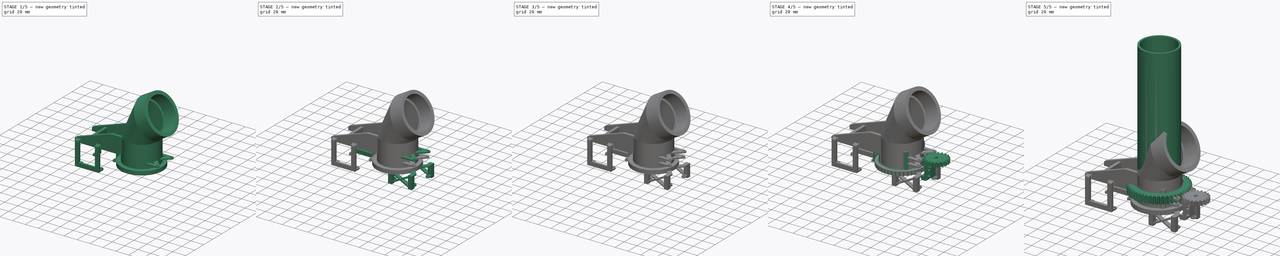
[diagram: build sequence overview — one tinted view per stage of 5, left to right]
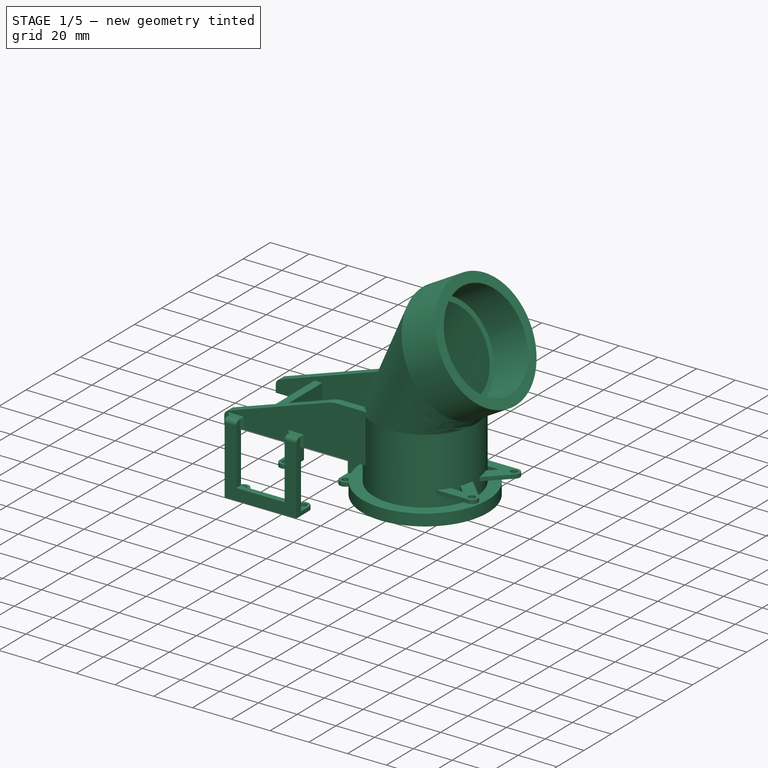
[diagram: stage 1 of 5 — iso view after this stage's code; geometry added in this stage tinted green]
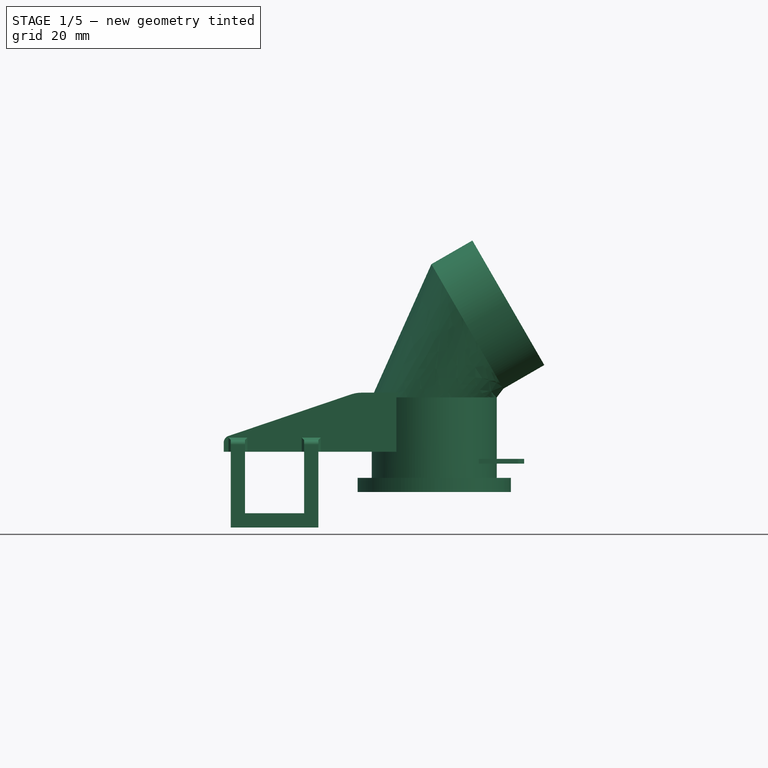
[diagram: stage 1 of 5 — front view after this stage's code; geometry added in this stage tinted green]
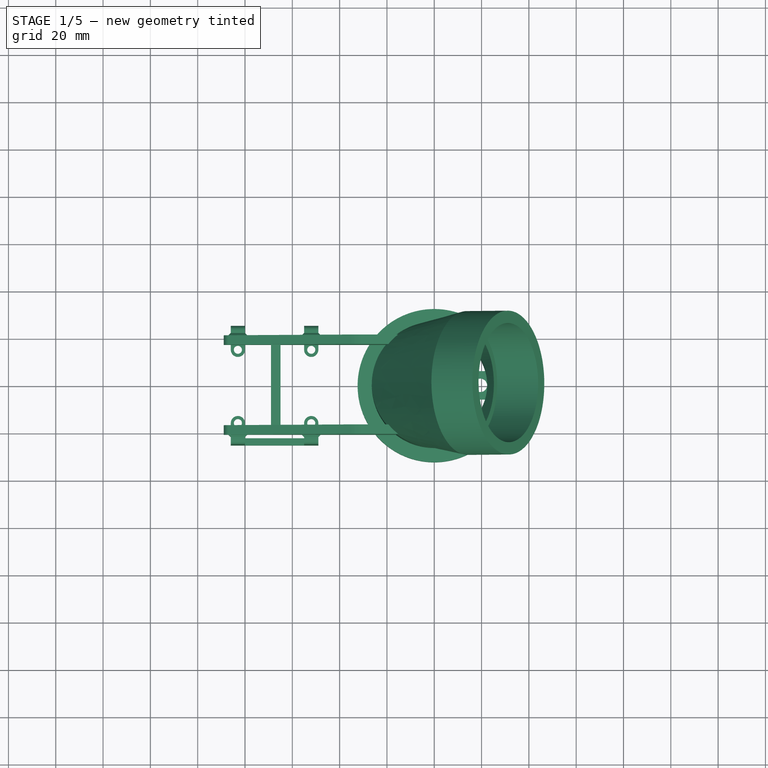
[diagram: stage 1 of 5 — top view after this stage's code; geometry added in this stage tinted green]
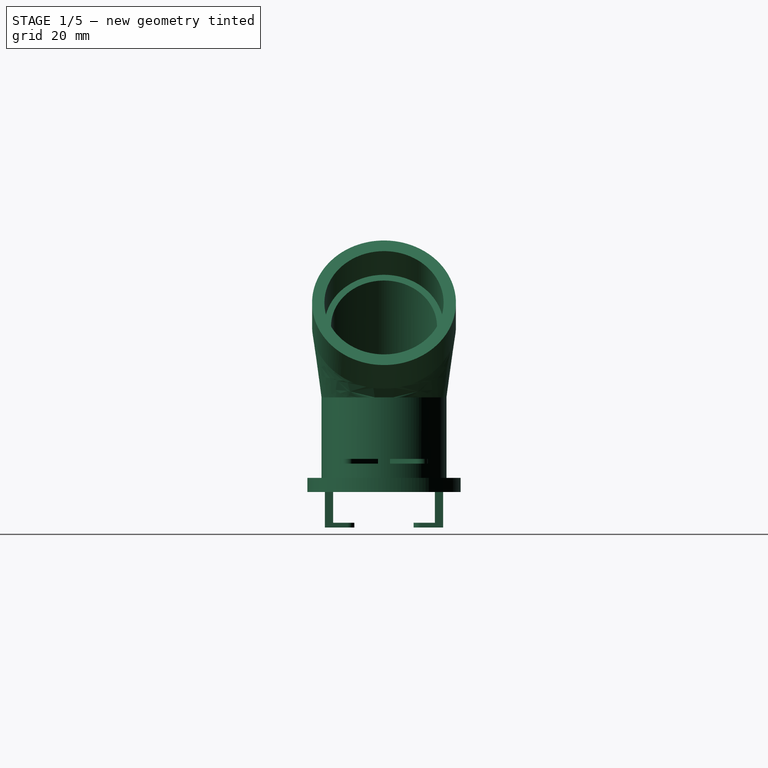
[diagram: stage 1 of 5 — right view after this stage's code; geometry added in this stage tinted green]
FCSTD DOCUMENT  (FreeCAD 0.20R29603 (Git))
Label: Pellet Sorter chute joint SX17
License: All rights reserved
LicenseURL: http://en.wikipedia.org/wiki/All_rights_reserved
objects: Sketcher::SketchObject×87, PartDesign::Pad×54, PartDesign::Body×28, PartDesign::Pocket×15, Part::Part2DObjectPython×11, PartDesign::Revolution×8, PartDesign::Mirrored×7, PartDesign::MultiTransform×7, PartDesign::AdditiveLoft×6, PartDesign::LinearPattern×4, PartDesign::Plane×3, PartDesign::Chamfer×3, App::Part×2, PartDesign::Fillet×2
note: 323 computed .brp shape members not serialized (recipe doc carries the construction recipe); baked Part::Feature solids carry a one-line shape summary decoded from their .brp

FEATURE [PartDesign::Body] Body028  label="Body021: Compound link cap v003"
  Group = -> [Sketch105,Pad057,Sketch106,Pad058,Sketch107,Pad059,MultiTransform003,LinearPattern002,Sketch108,Pad060,Mirrored003,MultiTransform004,Mirrored004]
  Origin = -> Origin031
  Placement = pos=(46.5,0,31) rot=(0,0,1;0rad)
  Tip = -> MultiTransform004
FEATURE [Sketcher::SketchObject] Sketch109
  FullyConstrained = true
  MapMode = 5
  Support = -> [XY_Plane032]
  sketch-geometry (3):
    g0: Circle CenterX=0 CenterY=0 CenterZ=0 NormalX=0 NormalY=0 NormalZ=1 AngleXU=0 Radius=26.4
    g1: Circle CenterX=0 CenterY=0 CenterZ=0 NormalX=0 NormalY=0 NormalZ=1 AngleXU=0 Radius=22.4
    g2: LineSegment StartX=22.4 StartY=0 StartZ=0 EndX=26.4 EndY=0 EndZ=0
  constraints (8):
    c: Coincident(g0,g-1)
    c: Coincident(g1,g0)
    c: PointOnObject(g2,g1)
    c: PointOnObject(g2,g0)
    c: Horizontal(g2)
    c: Distance(g2) = 4
    c: PointOnObject(g2,g-1)
    c: Diameter(g1) = 44.8
FEATURE [Sketcher::SketchObject] Sketch110  label="Sketch copy002"
  AttachmentOffset = pos=(0,0,40) rot=(0,0,1;0rad)
  FullyConstrained = true
  MapMode = 5
  Placement = pos=(0,0,40) rot=(0,0,1;0rad)
  Support = -> [XY_Plane032]
  sketch-geometry (3):
    g0: Circle CenterX=0 CenterY=0 CenterZ=0 NormalX=0 NormalY=0 NormalZ=1 AngleXU=0 Radius=26.4
    g1: Circle CenterX=0 CenterY=0 CenterZ=0 NormalX=0 NormalY=0 NormalZ=1 AngleXU=0 Radius=22.4
    g2: LineSegment StartX=22.4 StartY=0 StartZ=0 EndX=26.4 EndY=0 EndZ=0
  constraints (8):
    c: Coincident(g0,g-1)
    c: Coincident(g1,g0)
    c: PointOnObject(g2,g1)
    c: PointOnObject(g2,g0)
    c: Horizontal(g2)
    c: Distance(g2) = 4
    c: PointOnObject(g2,g-1)
    c: Diameter(g1) = 44.8
FEATURE [PartDesign::AdditiveLoft] AdditiveLoft004
  Closed = false
  Profile = -> Sketch109
  Ruled = false
  Sections = -> [Sketch110]
FEATURE [Sketcher::SketchObject] Sketch111  label="Sketch copy 004"
  AttachmentOffset = pos=(14,0,30) rot=(0,1,0;1.0472rad)
  FullyConstrained = true
  MapMode = 5
  Placement = pos=(14,0,70) rot=(0,1,0;1.0472rad)
  Support = -> [AdditiveLoft004]
  sketch-geometry (3):
    g0: Circle CenterX=0 CenterY=0 CenterZ=0 NormalX=0 NormalY=0 NormalZ=1 AngleXU=0 Radius=30.4
    g1: Circle CenterX=0 CenterY=0 CenterZ=0 NormalX=0 NormalY=0 NormalZ=1 AngleXU=0 Radius=22.4
    g2: LineSegment StartX=22.4 StartY=0 StartZ=0 EndX=30.4 EndY=0 EndZ=0
  constraints (8):
    c: Coincident(g0,g-1)
    c: Coincident(g1,g0)
    c: PointOnObject(g2,g1)
    c: PointOnObject(g2,g0)
    c: Horizontal(g2)
    c: Distance(g2) = 8
    c: PointOnObject(g2,g-1)
    c: Diameter(g1) = 44.8
FEATURE [PartDesign::AdditiveLoft] AdditiveLoft005
  BaseFeature = -> AdditiveLoft004
  Closed = false
  Profile = -> AdditiveLoft004 [Face3]
  Ruled = false
  Sections = -> [Sketch111]
FEATURE [PartDesign::Plane] DatumPlane002
  Length = 84.7255
  MapMode = 11
  Placement = pos=(14,0,70) rot=(0.447214,0.447214,0.774597;1.82348rad)
  ResizeMode = 0
  Support = -> [AdditiveLoft005]
  Width = 173.098
FEATURE [Sketcher::SketchObject] Sketch112
  FullyConstrained = true
  MapMode = 5
  Placement = pos=(14,0,70) rot=(0.447214,0.447214,0.774597;1.82348rad)
  Support = -> [DatumPlane002]
  sketch-geometry (2):
    g0: Circle CenterX=0 CenterY=0 CenterZ=0 NormalX=0 NormalY=0 NormalZ=1 AngleXU=0 Radius=25.2
    g1: Circle CenterX=0 CenterY=0 CenterZ=0 NormalX=0 NormalY=0 NormalZ=1 AngleXU=0 Radius=30.4
  constraints (4):
    c: Coincident(g0,g-1)
    c: Diameter(g0) = 50.4
    c: Coincident(g1,g0)
    c: Diameter(g1) = 60.8
FEATURE [PartDesign::Pad] Pad061
  BaseFeature = -> AdditiveLoft005
  Direction = (0.866025,0,0.5)
  Length = 20
  Length2 = 10
  Profile = -> Sketch112
  ReferenceAxis = -> Sketch112 [N_Axis]
  Type = 0
FEATURE [Sketcher::SketchObject] Sketch113
  FullyConstrained = true
  MapMode = 5
  Placement = pos=(0,0,0) rot=(0.57735,0.57735,0.57735;2.0944rad)
  Support = -> [YZ_Plane032]
  sketch-geometry (5):
    g0: LineSegment StartX=26.4 StartY=0 StartZ=0 EndX=0 EndY=0 EndZ=0
    g1: LineSegment StartX=26.4 StartY=0 StartZ=0 EndX=32.4 EndY=0 EndZ=0
    g2: LineSegment StartX=32.4 StartY=0 StartZ=0 EndX=32.4 EndY=6 EndZ=0
    g3: LineSegment StartX=26.4 StartY=0 StartZ=0 EndX=26.4 EndY=6 EndZ=0
    g4: LineSegment StartX=26.4 StartY=6 StartZ=0 EndX=32.4 EndY=6 EndZ=0
  constraints (14):
    c: PointOnObject(g0,g-1)
    c: Coincident(g0,g-1)
    c: Distance(g0) = 26.4
    c: Coincident(g1,g0)
    c: PointOnObject(g1,g-1)
    c: Distance(g1) = 6
    c: Coincident(g2,g1)
    c: Vertical(g2)
    c: Distance(g2) = 6
    c: Coincident(g3,g1)
    c: Vertical(g3)
    c: Coincident(g4,g3)
    c: Coincident(g4,g2)
    c: Horizontal(g4)
FEATURE [PartDesign::Revolution] Revolution008
  Angle = 360
  Axis = (-2e-16,3e-16,1)
  Base = (0,0,0)
  BaseFeature = -> Pad061
  Profile = -> Sketch113
  ReferenceAxis = -> Sketch113 [V_Axis]
  Reversed = true
FEATURE [Sketcher::SketchObject] Sketch114
  AttachmentOffset = pos=(0,0,-21) rot=(0,0,1;0rad)
  FullyConstrained = true
  MapMode = 5
  Placement = pos=(0,21,4.7e-15) rot=(1,0,0;1.5708rad)
  Support = -> [XZ_Plane032]
  sketch-geometry (9):
    g0: LineSegment StartX=-15 StartY=17 StartZ=0 EndX=-89 EndY=17 EndZ=0
    g1: LineSegment StartX=-89 StartY=17 StartZ=0 EndX=-89 EndY=20.8499 EndZ=0
    g2: LineSegment StartX=-86.9639 StartY=23.6908 StartZ=0 EndX=-35.3441 EndY=41.2047 EndZ=0
    g3: LineSegment StartX=-30.5247 StartY=42 StartZ=0 EndX=-15 EndY=42 EndZ=0
    g4: LineSegment StartX=-15 StartY=42 StartZ=0 EndX=-15 EndY=17 EndZ=0
    g5: ArcOfCircle CenterX=-86 CenterY=20.8499 CenterZ=0 NormalX=0 NormalY=0 NormalZ=1 AngleXU=0 Radius=3 StartAngle=1.89789 EndAngle=3.14159
    g6: GeomPoint X=-89 Y=23 Z=0
    g7: ArcOfCircle CenterX=-30.5247 CenterY=27 CenterZ=0 NormalX=0 NormalY=0 NormalZ=1 AngleXU=0 Radius=15 StartAngle=1.5708 EndAngle=1.89789
    g8: GeomPoint X=-33 Y=42 Z=0
  constraints (23):
    c: Horizontal(g0)
    c: Coincident(g1,g0)
    c: Vertical(g1)
    c: Horizontal(g3)
    c: Coincident(g4,g3)
    c: Coincident(g4,g0)
    c: Vertical(g4)
    c: PointOnObject(g6,g1)
    c: PointOnObject(g6,g2)
    c: Tangent(g1,g5) = 1.5708
    c: Tangent(g2,g5) = 1.5708
    c: PointOnObject(g8,g2)
    c: PointOnObject(g8,g3)
    c: Tangent(g2,g7) = 1.5708
    c: Tangent(g3,g7) = 1.5708
    c: Distance(g0) = 74
    c: DistanceX(g0,g-1) = 15
    c: DistanceY(g-1,g3) = 42
    c: Distance(g6,g0) = 6
    c: DistanceY(g-1,g0) = 17
    c: Distance(g8,g3) = 18
    c: Radius(g5) = 3
    c: Radius(g7) = 15
FEATURE [PartDesign::Pad] Pad062
  BaseFeature = -> Revolution008
  Direction = (0,-1,-2e-16)
  Length = 4
  Length2 = 10
  Profile = -> Sketch114
  ReferenceAxis = -> Sketch114 [N_Axis]
  Type = 0
FEATURE [Sketcher::SketchObject] Sketch115
  AttachmentOffset = pos=(0,0,21) rot=(0,0,1;0rad)
  FullyConstrained = true
  MapMode = 5
  Placement = pos=(0,-21,-4.7e-15) rot=(1,0,0;1.5708rad)
  Support = -> [XZ_Plane032]
  sketch-geometry (9):
    g0: LineSegment StartX=-15 StartY=17 StartZ=0 EndX=-89 EndY=17 EndZ=0
    g1: LineSegment StartX=-89 StartY=17 StartZ=0 EndX=-89 EndY=20.8499 EndZ=0
    g2: LineSegment StartX=-86.9639 StartY=23.6908 StartZ=0 EndX=-35.3441 EndY=41.2047 EndZ=0
    g3: LineSegment StartX=-30.5247 StartY=42 StartZ=0 EndX=-15 EndY=42 EndZ=0
    g4: LineSegment StartX=-15 StartY=42 StartZ=0 EndX=-15 EndY=17 EndZ=0
    g5: ArcOfCircle CenterX=-86 CenterY=20.8499 CenterZ=0 NormalX=0 NormalY=0 NormalZ=1 AngleXU=0 Radius=3 StartAngle=1.89789 EndAngle=3.14159
    g6: GeomPoint X=-89 Y=23 Z=0
    g7: ArcOfCircle CenterX=-30.5247 CenterY=27 CenterZ=0 NormalX=0 NormalY=0 NormalZ=1 AngleXU=0 Radius=15 StartAngle=1.5708 EndAngle=1.89789
    g8: GeomPoint X=-33 Y=42 Z=0
  constraints (23):
    c: Horizontal(g0)
    c: Coincident(g1,g0)
    c: Vertical(g1)
    c: Horizontal(g3)
    c: Coincident(g4,g3)
    c: Coincident(g4,g0)
    c: Vertical(g4)
    c: PointOnObject(g6,g1)
    c: PointOnObject(g6,g2)
    c: Tangent(g1,g5) = 1.5708
    c: Tangent(g2,g5) = 1.5708
    c: PointOnObject(g8,g2)
    c: PointOnObject(g8,g3)
    c: Tangent(g2,g7) = 1.5708
    c: Tangent(g3,g7) = 1.5708
    c: Distance(g0) = 74
    c: DistanceX(g0,g-1) = 15
    c: DistanceY(g-1,g3) = 42
    c: Distance(g6,g0) = 6
    c: DistanceY(g-1,g0) = 17
    c: Distance(g8,g3) = 18
    c: Radius(g5) = 3
    c: Radius(g7) = 15
FEATURE [PartDesign::Pad] Pad063
  BaseFeature = -> Pad062
  Direction = (0,-1,-2e-16)
  Length = 4
  Length2 = 10
  Profile = -> Sketch115
  ReferenceAxis = -> Sketch115 [N_Axis]
  Reversed = true
  Type = 0
FEATURE [Sketcher::SketchObject] Sketch116
  FullyConstrained = true
  MapMode = 5
  Placement = pos=(2e-16,17,4.8e-15) rot=(1,0,0;1.5708rad)
  Support = -> [Pad063]
  sketch-geometry (5):
    g0: LineSegment StartX=-69 StartY=28 StartZ=0 EndX=-69 EndY=18 EndZ=0
    g1: LineSegment StartX=-69 StartY=18 StartZ=0 EndX=-65 EndY=18 EndZ=0
    g2: LineSegment StartX=-65 StartY=18 StartZ=0 EndX=-65 EndY=28 EndZ=0
    g3: LineSegment StartX=-65 StartY=28 StartZ=0 EndX=-69 EndY=28 EndZ=0
    g4: GeomPoint X=-67 Y=23 Z=0
  constraints (13):
    c: Coincident(g0,g1)
    c: Coincident(g1,g2)
    c: Coincident(g2,g3)
    c: Coincident(g3,g0)
    c: Horizontal(g1)
    c: Horizontal(g3)
    c: Vertical(g0)
    c: Vertical(g2)
    c: Symmetric(g1,g0,g4)
    c: Distance(g3) = 4
    c: Distance(g2) = 10
    c: DistanceX(g4,g-1) = 67
    c: DistanceY(g-1,g4) = 23
FEATURE [PartDesign::Pad] Pad064
  BaseFeature = -> Pad063
  Direction = (0,-1,-2e-16)
  Length = 34
  Length2 = 10
  Profile = -> Sketch116
  ReferenceAxis = -> Sketch116 [N_Axis]
  Type = 0
FEATURE [Sketcher::SketchObject] Sketch117
  AttachmentOffset = pos=(0,0,-83) rot=(0,0,1;0rad)
  FullyConstrained = true
  MapMode = 5
  Placement = pos=(-83,1.84e-14,-1.84e-14) rot=(0.57735,0.57735,0.57735;2.0944rad)
  Support = -> [YZ_Plane032]
  sketch-geometry (6):
    g0: LineSegment StartX=21 StartY=17 StartZ=0 EndX=21.5 EndY=17 EndZ=0
    g1: LineSegment StartX=21.5 StartY=17 StartZ=0 EndX=21.5 EndY=-15 EndZ=0
    g2: LineSegment StartX=21.5 StartY=-15 StartZ=0 EndX=25 EndY=-15 EndZ=0
    g3: LineSegment StartX=25 StartY=-15 StartZ=0 EndX=25 EndY=22 EndZ=0
    g4: LineSegment StartX=25 StartY=22 StartZ=0 EndX=21 EndY=22 EndZ=0
    g5: LineSegment StartX=21 StartY=22 StartZ=0 EndX=21 EndY=17 EndZ=0
  constraints (18):
    c: DistanceX(g-1,g0) = 21
    c: DistanceY(g-1,g0) = 17
    c: Distance(g0) = 0.5
    c: Horizontal(g0)
    c: Coincident(g1,g0)
    c: Vertical(g1)
    c: Coincident(g2,g1)
    c: Horizontal(g2)
    c: Coincident(g3,g2)
    c: Vertical(g3)
    c: Coincident(g4,g3)
    c: Horizontal(g4)
    c: Coincident(g5,g4)
    c: Coincident(g5,g0)
    c: Vertical(g5)
    c: Distance(g1) = 32
    c: Distance(g5) = 5
    c: Distance(g4) = 4
FEATURE [PartDesign::Pad] Pad065
  BaseFeature = -> Pad064
  Direction = (1,-2e-16,3e-16)
  Length = 6
  Length2 = 10
  Midplane = true
  Profile = -> Sketch117
  ReferenceAxis = -> Sketch117 [N_Axis]
  Type = 0
FEATURE [PartDesign::Chamfer] Chamfer002
  Angle = 45
  Base = -> Pad065 [Edge42,Edge40,Edge41]
  BaseFeature = -> Pad065
  ChamferType = 0
  FlipDirection = false
  Size = 1
  Size2 = 1
  SupportTransform = false
  UseAllEdges = false
FEATURE [PartDesign::Fillet] Fillet001
  Base = -> Chamfer002 [Edge70]
  BaseFeature = -> Chamfer002
  Radius = 2
  SupportTransform = false
  UseAllEdges = false
FEATURE [Sketcher::SketchObject] Sketch118
  FullyConstrained = true
  MapMode = 5
  Placement = pos=(4.2e-15,-3.3e-15,-15) rot=(1,0,0;3.14159rad)
  Support = -> [Fillet001]
  sketch-geometry (5):
    g0: Circle CenterX=-83 CenterY=-15.5 CenterZ=0 NormalX=0 NormalY=0 NormalZ=1 AngleXU=0 Radius=1.7
    g1: ArcOfCircle CenterX=-83 CenterY=-15.5 CenterZ=0 NormalX=0 NormalY=0 NormalZ=1 AngleXU=0 Radius=3 StartAngle=0 EndAngle=3.14159
    g2: LineSegment StartX=-86 StartY=-15.5 StartZ=0 EndX=-86 EndY=-21.5 EndZ=0
    g3: LineSegment StartX=-80 StartY=-15.5 StartZ=0 EndX=-80 EndY=-21.5 EndZ=0
    g4: LineSegment StartX=-86 StartY=-21.5 StartZ=0 EndX=-80 EndY=-21.5 EndZ=0
  constraints (13):
    c: Diameter(g0) = 3.4
    c: Coincident(g1,g0)
    c: Vertical(g2)
    c: Vertical(g3)
    c: Coincident(g4,g2)
    c: Coincident(g4,g3)
    c: Horizontal(g4)
    c: Distance(g4) = 6
    c: Tangent(g1,g2) = -1.5708
    c: Tangent(g1,g3) = 1.5708
    c: DistanceX(g3) = -80
    c: DistanceY(g3) = -21.5
    c: Distance(g0,g4) = 6
FEATURE [PartDesign::LinearPattern] LinearPattern003
  Direction = -> Sketch118 [H_Axis]
  Length = 31
  Occurrences = 2
FEATURE [PartDesign::Mirrored] Mirrored005
  MirrorPlane = -> Sketch118 [H_Axis]
FEATURE [PartDesign::Pad] Pad066
  BaseFeature = -> Fillet001
  Direction = (3e-16,-2e-16,-1)
  Length = 2
  Length2 = 10
  Profile = -> Sketch118
  ReferenceAxis = -> Sketch118 [N_Axis]
  Reversed = true
  Type = 0
FEATURE [PartDesign::MultiTransform] MultiTransform005
  BaseFeature = -> Pad066
  Originals = -> [Pad066,Pad065,Chamfer002,Fillet001]
  Transformations = -> [LinearPattern003,Mirrored005]
FEATURE [Sketcher::SketchObject] Sketch119
  FullyConstrained = true
  MapMode = 5
  Placement = pos=(5.6e-15,-25,5.6e-15) rot=(1,0,0;1.5708rad)
  Support = -> [MultiTransform005]
  sketch-geometry (4):
    g0: LineSegment StartX=-55 StartY=-15 StartZ=0 EndX=-80 EndY=-15 EndZ=0
    g1: LineSegment StartX=-55 StartY=-9 StartZ=0 EndX=-80 EndY=-9 EndZ=0
    g2: LineSegment StartX=-80 StartY=-9 StartZ=0 EndX=-80 EndY=-15 EndZ=0
    g3: LineSegment StartX=-55 StartY=-9 StartZ=0 EndX=-55 EndY=-15 EndZ=0
  constraints (12):
    c: Horizontal(g0)
    c: Horizontal(g1)
    c: Coincident(g2,g1)
    c: Coincident(g2,g0)
    c: Vertical(g2)
    c: Coincident(g3,g1)
    c: Coincident(g3,g0)
    c: Vertical(g3)
    c: Distance(g1) = 25
    c: DistanceX(g1,g-1) = 55
    c: DistanceY(g0,g-1) = 15
    c: Distance(g2) = 6
FEATURE [PartDesign::Pad] Pad067
  BaseFeature = -> MultiTransform005
  Direction = (2e-16,-1,2e-16)
  Length = 3
  Length2 = 10
  Profile = -> Sketch119
  ReferenceAxis = -> Sketch119 [N_Axis]
  Reversed = true
  Type = 0
FEATURE [PartDesign::Body] Body029  label="Body: Bottom SX17 v1"
  Group = -> [Sketch109,Sketch110,Sketch111,AdditiveLoft004,AdditiveLoft005,DatumPlane002,Sketch112,Pad061,Sketch113,Revolution008,Sketch114,Sketch115,Pad062,Pad063,Sketch116,Pad064,Sketch117,Pad065,Chamfer002,Fillet001,Sketch118,Pad066,MultiTransform005,LinearPattern003,Mirrored005,Sketch119,Pad067,MultiTransform006,Mirrored006]
  Origin = -> Origin032
  Placement = pos=(0,0,-1) rot=(0,1,0;3.14159rad)
  Tip = -> MultiTransform006
FEATURE [Sketcher::SketchObject] Sketch120
  FullyConstrained = true
  MapMode = 5
  Support = -> [XY_Plane033]
  sketch-geometry (1):
    g0: Circle CenterX=0 CenterY=0 CenterZ=0 NormalX=0 NormalY=0 NormalZ=1 AngleXU=0 Radius=4.2
  constraints (2):
    c: Coincident(g0,g-1)
    c: Diameter(g0) = 8.4
FEATURE [PartDesign::Pad] Pad068
  Direction = (0,0,1)
  Length = 14
  Length2 = 10
  Profile = -> Sketch120
  ReferenceAxis = -> Sketch120 [N_Axis]
  Type = 0
FEATURE [Sketcher::SketchObject] Sketch121
  FullyConstrained = false
  MapMode = 5
  Placement = pos=(0,0,14) rot=(0,0,1;0rad)
  Support = -> [Pad068]
  sketch-geometry (50):
    g0: Circle CenterX=0 CenterY=0 CenterZ=0 NormalX=0 NormalY=0 NormalZ=1 AngleXU=0 Radius=4.2
    g1: Circle CenterX=19.5 CenterY=0 CenterZ=0 NormalX=0 NormalY=0 NormalZ=1 AngleXU=0 Radius=2.85
    g2: LineSegment StartX=0.620911 StartY=6 StartZ=0 EndX=6.88454 EndY=6 EndZ=0
    g3: LineSegment StartX=21.2574 StartY=-6 StartZ=0 EndX=14.717 EndY=-6 EndZ=0
    g4: ArcOfCircle CenterX=0 CenterY=0 CenterZ=0 NormalX=0 NormalY=0 NormalZ=1 AngleXU=0 Radius=6 StartAngle=2.70052 EndAngle=3.58267
    g5: ArcOfCircle CenterX=4 CenterY=-15.5 CenterZ=0 NormalX=0 NormalY=0 NormalZ=1 AngleXU=0 Radius=3 StartAngle=3.58267 EndAngle=4.71239
    g6: ArcOfCircle CenterX=35 CenterY=-15.5 CenterZ=0 NormalX=0 NormalY=0 NormalZ=1 AngleXU=0 Radius=3 StartAngle=4.71239 EndAngle=7.06858
    g7: ArcOfCircle CenterX=4 CenterY=15.5 CenterZ=0 NormalX=0 NormalY=0 NormalZ=1 AngleXU=0 Radius=3 StartAngle=1.5708 EndAngle=2.70052
    g8: ArcOfCircle CenterX=35 CenterY=15.5 CenterZ=0 NormalX=0 NormalY=0 NormalZ=1 AngleXU=0 Radius=3 StartAngle=5.49779 EndAngle=7.85398
    g9: LineSegment StartX=2.87614 StartY=-10.777 StartZ=0 EndX=6.88454 EndY=-6 EndZ=0
    g10: LineSegment StartX=37.1213 StartY=-13.3787 StartZ=0 EndX=25.2956 EndY=-1.55291 EndZ=0
    g11: LineSegment StartX=37.1213 StartY=13.3787 StartZ=0 EndX=25.2956 EndY=1.55291 EndZ=0
    g12: LineSegment StartX=28.7574 StartY=13.5 StartZ=0 EndX=21.2574 EndY=6 EndZ=0
    g13: LineSegment StartX=2.87614 StartY=10.777 StartZ=0 EndX=6.88454 EndY=6 EndZ=0
    g14: LineSegment StartX=4 StartY=15.5 StartZ=0 EndX=35 EndY=15.5 EndZ=0
    g15: LineSegment StartX=4 StartY=-15.5 StartZ=0 EndX=35 EndY=-15.5 EndZ=0
    g16: ArcOfCircle CenterX=19.5 CenterY=0 CenterZ=0 NormalX=0 NormalY=0 NormalZ=1 AngleXU=0 Radius=6 StartAngle=6.02139 EndAngle=6.54498
    g17: LineSegment StartX=14.717 StartY=6 StartZ=0 EndX=21.2574 EndY=6 EndZ=0
    g18: LineSegment StartX=6.88454 StartY=-6 StartZ=0 EndX=0.620911 EndY=-6 EndZ=0
    g19: LineSegment StartX=6.88454 StartY=6 StartZ=0 EndX=14.717 EndY=6 EndZ=0
    g20: LineSegment StartX=6.88454 StartY=-6 StartZ=0 EndX=14.717 EndY=-6 EndZ=0
    g21: LineSegment StartX=4 StartY=15.5 StartZ=0 EndX=4 EndY=0 EndZ=0
    g22: LineSegment StartX=4 StartY=0 StartZ=0 EndX=0 EndY=0 EndZ=0
    g23: LineSegment StartX=4 StartY=0 StartZ=0 EndX=4 EndY=-15.5 EndZ=0
    g24: LineSegment StartX=4 StartY=18.5 StartZ=0 EndX=35 EndY=18.5 EndZ=0
    g25: LineSegment StartX=8.42374 StartY=13.5 StartZ=0 EndX=28.7574 EndY=13.5 EndZ=0
    g26: LineSegment StartX=8.42374 StartY=-13.5 StartZ=0 EndX=28.7574 EndY=-13.5 EndZ=0
    g27: LineSegment StartX=4 StartY=-18.5 StartZ=0 EndX=35 EndY=-18.5 EndZ=0
    g28: LineSegment StartX=16.9913 StartY=13.5 StartZ=0 EndX=16.9913 EndY=18.5 EndZ=0
    g29: LineSegment StartX=15.1161 StartY=-13.5 StartZ=0 EndX=15.1161 EndY=-18.5 EndZ=0
    g30: LineSegment StartX=8.42374 StartY=-13.5 StartZ=0 EndX=14.717 EndY=-6 EndZ=0
    g31: LineSegment StartX=28.7574 StartY=-13.5 StartZ=0 EndX=21.2574 EndY=-6 EndZ=0
    g32: LineSegment StartX=8.42374 StartY=13.5 StartZ=0 EndX=14.717 EndY=6 EndZ=0
    g33: LineSegment StartX=22.4042 StartY=-7.14682 StartZ=0 EndX=26.6468 EndY=-2.90418 EndZ=0
    g34: LineSegment StartX=22.2854 StartY=7.02803 StartZ=0 EndX=26.528 EndY=2.78539 EndZ=0
    g35: LineSegment StartX=6.45935 StartY=6.50673 StartZ=0 EndX=11.0556 EndY=10.3635 EndZ=0
    g36: Circle CenterX=4 CenterY=15.5 CenterZ=0 NormalX=0 NormalY=0 NormalZ=1 AngleXU=0 Radius=1.7
    g37: Circle CenterX=35 CenterY=15.5 CenterZ=0 NormalX=0 NormalY=0 NormalZ=1 AngleXU=0 Radius=1.7
    g38: Circle CenterX=35 CenterY=-15.5 CenterZ=0 NormalX=0 NormalY=0 NormalZ=1 AngleXU=0 Radius=1.7
    g39: Circle CenterX=4 CenterY=-15.5 CenterZ=0 NormalX=0 NormalY=0 NormalZ=1 AngleXU=0 Radius=1.7
    g40: LineSegment StartX=-5.42575 StartY=2.56148 StartZ=0 EndX=1.28712 EndY=16.7807 EndZ=0
    g41: LineSegment StartX=-5.42575 StartY=-2.56148 StartZ=0 EndX=1.28712 EndY=-16.7807 EndZ=0
    g42: LineSegment StartX=0.620911 StartY=6 StartZ=0 EndX=2.87614 EndY=10.777 EndZ=0
    g43: LineSegment StartX=0.620911 StartY=-6 StartZ=0 EndX=2.87614 EndY=-10.777 EndZ=0
    g44: LineSegment StartX=-0.702088 StartY=12.5672 StartZ=0 EndX=2.91508 EndY=10.8595 EndZ=0
    g45: LineSegment StartX=1.82376 StartY=-8.54788 StartZ=0 EndX=-1.79341 EndY=-10.2555 EndZ=0
    g46: LineSegment StartX=0.620911 StartY=6 StartZ=0 EndX=0 EndY=6 EndZ=0
    g47: LineSegment StartX=0.620911 StartY=-6 StartZ=0 EndX=0 EndY=-6 EndZ=0
    g48: LineSegment StartX=2.87614 StartY=-10.777 StartZ=0 EndX=4 EndY=-15.5 EndZ=0
    g49: LineSegment StartX=4 StartY=-15.5 StartZ=0 EndX=8.42374 EndY=-13.5 EndZ=0
  constraints (131):
    c: Coincident(g0,g-1)
    c: Diameter(g0) = 8.4
    c: Diameter(g1) = 5.7
    c: Horizontal(g2)
    c: Horizontal(g3)
    c: Coincident(g4,g0)
    c: Distance(g1,g0) = 19.5
    c: Parallel(g12,g11)
    c: Tangent(g6,g10) = -1.5708
    c: Tangent(g8,g11) = 1.5708
    c: Diameter(g5) = 6
    c: Equal(g5,g6)
    c: Equal(g8,g5)
    c: Equal(g7,g5)
    c: Coincident(g12,g17)
    c: Coincident(g31,g3)
    c: Coincident(g14,g7)
    c: Coincident(g14,g8)
    c: Horizontal(g14)
    c: Distance(g14) = 31
    c: Coincident(g15,g5)
    c: Coincident(g15,g6)
    c: Horizontal(g15)
    c: Equal(g14,g15)
    c: Coincident(g16,g1)
    c: Coincident(g16,g11)
    c: Coincident(g16,g10)
    c: PointOnObject(g1,g-1)
    c: Coincident(g2,g13)
    c: Coincident(g17,g32)
    c: Coincident(g3,g30)
    c: Coincident(g18,g9)
    c: Horizontal(g18)
    c: Horizontal(g17)
    c: Coincident(g19,g2)
    c: Coincident(g19,g32)
    c: Horizontal(g19)
    c: Coincident(g20,g9)
    c: Coincident(g20,g3)
    c: Horizontal(g20)
    c: Coincident(g21,g7)
    c: PointOnObject(g21,g-1)
    c: Vertical(g21)
    c: Coincident(g22,g21)
    c: Coincident(g22,g0)
    c: Distance(g21) = 15.5
    c: Distance(g22) = 4
    c: Coincident(g23,g21)
    c: Coincident(g23,g5)
    c: Vertical(g23)
    c: Equal(g23,g21)
    c: Equal(g17,g3)
    c: Angle(g18,g9) = 0.872665
    c: Radius(g16) = 6
    c: Horizontal(g25)
    c: Horizontal(g26)
    c: PointOnObject(g28,g25)
    c: PointOnObject(g28,g24)
    c: Vertical(g28)
    c: Distance(g28) = 5
    c: PointOnObject(g29,g26)
    c: PointOnObject(g29,g27)
    c: Vertical(g29)
    c: Equal(g28,g29)
    c: Coincident(g30,g26)
    c: Tangent(g5,g27) = -1.5708
    c: Parallel(g30,g9)
    c: Coincident(g31,g26)
    c: Coincident(g12,g25)
    c: Coincident(g32,g25)
    c: Tangent(g7,g24) = 1.5708
    c: PointOnObject(g33,g31)
    c: PointOnObject(g33,g10)
    c: PointOnObject(g34,g12)
    c: PointOnObject(g34,g11)
    c: Perpendicular(g12,g34)
    c: Perpendicular(g31,g33)
    c: Distance(g34) = 6
    c: Equal(g34,g33)
    c: Parallel(g10,g31)
    c: Equal(g32,g30)
    c: Equal(g12,g31)
    c: Angle(g3,g31) = 2.35619
    c: PointOnObject(g35,g13)
    c: PointOnObject(g35,g32)
    c: Perpendicular(g32,g35)
    c: Equal(g34,g35)
    c: Tangent(g6,g27) = -1.5708
    c: Tangent(g8,g24) = 1.5708
    c: Coincident(g36,g7)
    c: Coincident(g37,g8)
    c: Coincident(g38,g6)
    c: Coincident(g39,g5)
    c: Equal(g36,g37)
    c: Equal(g37,g38)
    c: Equal(g39,g37)
    c: Diameter(g37) = 3.4
    c: Parallel(g40,g42)
    c: Parallel(g43,g41)
    c: PointOnObject(g44,g40)
    c: PointOnObject(g44,g42)
    c: PointOnObject(g45,g43)
    c: PointOnObject(g45,g41)
    c: Perpendicular(g42,g44)
    c: Perpendicular(g43,g45)
    c: Equal(g44,g45)
    c: Distance(g44) = 4
    c: Tangent(g4,g41) = -1.5708
    c: Coincident(g18,g43)
    c: Coincident(g9,g43)
    c: Coincident(g13,g42)
    c: Tangent(g7,g40) = 1.5708
    c: Coincident(g2,g42)
    c: Tangent(g4,g40) = 1.5708
    c: Distance(g2,g18) = 12
    c: Parallel(g13,g32)
    c: Diameter(g4) = 12
    c: Equal(g2,g18)
    c: Coincident(g46,g2)
    c: PointOnObject(g46,g-2)
    c: Coincident(g47,g18)
    c: PointOnObject(g47,g-2)
    c: Horizontal(g47)
    c: Horizontal(g46)
    c: Equal(g46,g47)
    c: Coincident(g48,g9)
    c: Coincident(g48,g5)
    c: Coincident(g49,g5)
    c: Coincident(g49,g26)
    c: Equal(g49,g48)
    c: Tangent(g5,g41) = -1.5708
FEATURE [PartDesign::Pad] Pad069
  BaseFeature = -> Pad068
  Direction = (0,0,1)
  Length = 2
  Length2 = 10
  Profile = -> Sketch121
  ReferenceAxis = -> Sketch121 [N_Axis]
  Reversed = true
  Type = 0
FEATURE [PartDesign::Body] Body030  label="Body020: Simple link"
  Group = -> [Sketch120,Pad068,Sketch121,Pad069]
  Origin = -> Origin033
  Placement = pos=(48,2e-15,28) rot=(1,0,0;3.14159rad)
  Tip = -> Pad069
FEATURE [Part::Part2DObjectPython] InvoluteGear008  # Draft 2D object (typed FeaturePython)
  ExternalGear = true
  HighPrecision = true
  Modules = 1.5
  NumberOfTeeth = 16
  PressureAngle = 20
FEATURE [Sketcher::SketchObject] Sketch122
  FullyConstrained = false
  sketch-geometry (160):
    g0: LineSegment StartX=10.6045 StartY=-1.20429 StartZ=0 EndX=11.2296 EndY=-1.27411 EndZ=0
    g1: BSplineCurve PolesCount=4 KnotsCount=2 Degree=3 IsPeriodic=0
    g2: BSplineCurve PolesCount=4 KnotsCount=2 Degree=3 IsPeriodic=0
    g3: ArcOfCircle CenterX=0.00178161 CenterY=0 CenterZ=0 NormalX=0 NormalY=0 NormalZ=1 AngleXU=-0.0369306 Radius=13.5 StartAngle=0 EndAngle=0.0738611
    g4: BSplineCurve PolesCount=4 KnotsCount=2 Degree=3 IsPeriodic=0
    g5: BSplineCurve PolesCount=4 KnotsCount=2 Degree=3 IsPeriodic=0
    g6: LineSegment StartX=11.2296 StartY=1.27411 StartZ=0 EndX=10.6045 EndY=1.20429 EndZ=0
    g7: ArcOfCircle CenterX=10.5411 CenterY=1.7632 CenterZ=0 NormalX=0 NormalY=0 NormalZ=1 AngleXU=-1.45772 Radius=0.5625 StartAngle=4.76636 EndAngle=6.28319
    g8: ArcOfCircle CenterX=-6.555e-13 CenterY=-1.547e-13 CenterZ=0 NormalX=0 NormalY=0 NormalZ=1 AngleXU=0.165662 Radius=10.125 StartAngle=0 EndAngle=0.0613746
    g9: ArcOfCircle CenterX=10.4134 CenterY=2.40491 CenterZ=0 NormalX=0 NormalY=0 NormalZ=1 AngleXU=-2.91594 Radius=0.5625 StartAngle=4.76636 EndAngle=6.28319
    g10: LineSegment StartX=10.2582 StartY=2.94556 StartZ=0 EndX=10.8624 EndY=3.12024 EndZ=0
    g11: BSplineCurve PolesCount=4 KnotsCount=2 Degree=3 IsPeriodic=0
    g12: BSplineCurve PolesCount=4 KnotsCount=2 Degree=3 IsPeriodic=0
    g13: ArcOfCircle CenterX=0.00164599 CenterY=0.000681792 CenterZ=0 NormalX=0 NormalY=0 NormalZ=1 AngleXU=0.355769 Radius=13.5 StartAngle=0 EndAngle=0.0738611
    g14: BSplineCurve PolesCount=4 KnotsCount=2 Degree=3 IsPeriodic=0
    g15: BSplineCurve PolesCount=4 KnotsCount=2 Degree=3 IsPeriodic=0
    g16: LineSegment StartX=9.88719 StartY=5.4745 StartZ=0 EndX=9.33644 EndY=5.17079 EndZ=0
    g17: ArcOfCircle CenterX=9.06392 CenterY=5.66287 CenterZ=0 NormalX=0 NormalY=0 NormalZ=1 AngleXU=-1.06502 Radius=0.5625 StartAngle=4.76636 EndAngle=6.28319
    g18: ArcOfCircle CenterX=-5.2163e-12 CenterY=-3.5052e-12 CenterZ=0 NormalX=0 NormalY=0 NormalZ=1 AngleXU=0.558361 Radius=10.125 StartAngle=0 EndAngle=0.0613746
    g19: ArcOfCircle CenterX=8.70042 CenterY=6.20688 CenterZ=0 NormalX=0 NormalY=0 NormalZ=1 AngleXU=-2.52324 Radius=0.5625 StartAngle=4.76636 EndAngle=6.28319
    g20: LineSegment StartX=8.35009 StartY=6.64697 StartZ=0 EndX=8.84144 EndY=7.03957 EndZ=0
    g21: BSplineCurve PolesCount=4 KnotsCount=2 Degree=3 IsPeriodic=0
    g22: BSplineCurve PolesCount=4 KnotsCount=2 Degree=3 IsPeriodic=0
    g23: ArcOfCircle CenterX=0.00125979 CenterY=0.00125979 CenterZ=0 NormalX=0 NormalY=0 NormalZ=1 AngleXU=0.748468 Radius=13.5 StartAngle=0 EndAngle=0.0738611
    g24: BSplineCurve PolesCount=4 KnotsCount=2 Degree=3 IsPeriodic=0
    g25: BSplineCurve PolesCount=4 KnotsCount=2 Degree=3 IsPeriodic=0
    g26: LineSegment StartX=7.03957 StartY=8.84144 StartZ=0 EndX=6.64697 EndY=8.35009 EndZ=0
    g27: ArcOfCircle CenterX=6.20688 CenterY=8.70042 CenterZ=0 NormalX=0 NormalY=0 NormalZ=1 AngleXU=-0.672318 Radius=0.5625 StartAngle=4.76636 EndAngle=6.28319
    g28: ArcOfCircle CenterX=-1.3824e-12 CenterY=-2.0979e-12 CenterZ=0 NormalX=0 NormalY=0 NormalZ=1 AngleXU=0.95106 Radius=10.125 StartAngle=0 EndAngle=0.0613746
    g29: ArcOfCircle CenterX=5.66287 CenterY=9.06392 CenterZ=0 NormalX=0 NormalY=0 NormalZ=1 AngleXU=-2.13054 Radius=0.5625 StartAngle=4.76636 EndAngle=6.28319
    g30: LineSegment StartX=5.17079 StartY=9.33644 StartZ=0 EndX=5.4745 EndY=9.88719 EndZ=0
    g31: BSplineCurve PolesCount=4 KnotsCount=2 Degree=3 IsPeriodic=0
    g32: BSplineCurve PolesCount=4 KnotsCount=2 Degree=3 IsPeriodic=0
    g33: ArcOfCircle CenterX=0.000681792 CenterY=0.00164599 CenterZ=0 NormalX=0 NormalY=0 NormalZ=1 AngleXU=1.14117 Radius=13.5 StartAngle=0 EndAngle=0.0738611
    g34: BSplineCurve PolesCount=4 KnotsCount=2 Degree=3 IsPeriodic=0
    g35: BSplineCurve PolesCount=4 KnotsCount=2 Degree=3 IsPeriodic=0
    g36: LineSegment StartX=3.12024 StartY=10.8624 StartZ=0 EndX=2.94556 EndY=10.2582 EndZ=0
    g37: ArcOfCircle CenterX=2.40491 CenterY=10.4134 CenterZ=0 NormalX=0 NormalY=0 NormalZ=1 AngleXU=-0.279619 Radius=0.5625 StartAngle=4.76636 EndAngle=6.28319
    g38: ArcOfCircle CenterX=-7.93e-14 CenterY=-5.8e-13 CenterZ=0 NormalX=0 NormalY=0 NormalZ=1 AngleXU=1.34376 Radius=10.125 StartAngle=0 EndAngle=0.0613746
    g39: ArcOfCircle CenterX=1.7632 CenterY=10.5411 CenterZ=0 NormalX=0 NormalY=0 NormalZ=1 AngleXU=-1.73784 Radius=0.5625 StartAngle=4.76636 EndAngle=6.28319
    g40: LineSegment StartX=1.20429 StartY=10.6045 StartZ=0 EndX=1.27411 EndY=11.2296 EndZ=0
    g41: BSplineCurve PolesCount=4 KnotsCount=2 Degree=3 IsPeriodic=0
    g42: BSplineCurve PolesCount=4 KnotsCount=2 Degree=3 IsPeriodic=0
    g43: ArcOfCircle CenterX=8e-16 CenterY=0.00178161 CenterZ=0 NormalX=0 NormalY=0 NormalZ=1 AngleXU=1.53387 Radius=13.5 StartAngle=0 EndAngle=0.0738611
    g44: BSplineCurve PolesCount=4 KnotsCount=2 Degree=3 IsPeriodic=0
    g45: BSplineCurve PolesCount=4 KnotsCount=2 Degree=3 IsPeriodic=0
    g46: LineSegment StartX=-1.27411 StartY=11.2296 StartZ=0 EndX=-1.20429 EndY=10.6045 EndZ=0
    g47: ArcOfCircle CenterX=-1.7632 CenterY=10.5411 CenterZ=0 NormalX=0 NormalY=0 NormalZ=1 AngleXU=0.11308 Radius=0.5625 StartAngle=4.76636 EndAngle=6.28319
    g48: ArcOfCircle CenterX=1.646e-13 CenterY=-7.052e-13 CenterZ=0 NormalX=0 NormalY=0 NormalZ=1 AngleXU=1.73646 Radius=10.125 StartAngle=0 EndAngle=0.0613746
    g49: ArcOfCircle CenterX=-2.40491 CenterY=10.4134 CenterZ=0 NormalX=0 NormalY=0 NormalZ=1 AngleXU=-1.34514 Radius=0.5625 StartAngle=4.76636 EndAngle=6.28319
    g50: LineSegment StartX=-2.94556 StartY=10.2582 StartZ=0 EndX=-3.12024 EndY=10.8624 EndZ=0
    g51: BSplineCurve PolesCount=4 KnotsCount=2 Degree=3 IsPeriodic=0
    g52: BSplineCurve PolesCount=4 KnotsCount=2 Degree=3 IsPeriodic=0
    g53: ArcOfCircle CenterX=-0.000681792 CenterY=0.00164599 CenterZ=0 NormalX=0 NormalY=0 NormalZ=1 AngleXU=1.92656 Radius=13.5 StartAngle=0 EndAngle=0.0738611
    g54: BSplineCurve PolesCount=4 KnotsCount=2 Degree=3 IsPeriodic=0
    g55: BSplineCurve PolesCount=4 KnotsCount=2 Degree=3 IsPeriodic=0
    g56: LineSegment StartX=-5.4745 StartY=9.88719 StartZ=0 EndX=-5.17079 EndY=9.33644 EndZ=0
    g57: ArcOfCircle CenterX=-5.66287 CenterY=9.06392 CenterZ=0 NormalX=0 NormalY=0 NormalZ=1 AngleXU=0.505779 Radius=0.5625 StartAngle=4.76636 EndAngle=6.28319
    g58: ArcOfCircle CenterX=-1.2381e-12 CenterY=1.8998e-12 CenterZ=0 NormalX=0 NormalY=0 NormalZ=1 AngleXU=2.12916 Radius=10.125 StartAngle=0 EndAngle=0.0613746
    g59: ArcOfCircle CenterX=-6.20688 CenterY=8.70042 CenterZ=0 NormalX=0 NormalY=0 NormalZ=1 AngleXU=-0.952445 Radius=0.5625 StartAngle=4.76636 EndAngle=6.28319
    g60: LineSegment StartX=-6.64697 StartY=8.35009 StartZ=0 EndX=-7.03957 EndY=8.84144 EndZ=0
    g61: BSplineCurve PolesCount=4 KnotsCount=2 Degree=3 IsPeriodic=0
    g62: BSplineCurve PolesCount=4 KnotsCount=2 Degree=3 IsPeriodic=0
    g63: ArcOfCircle CenterX=-0.00125979 CenterY=0.00125979 CenterZ=0 NormalX=0 NormalY=0 NormalZ=1 AngleXU=2.31926 Radius=13.5 StartAngle=0 EndAngle=0.0738611
    g64: BSplineCurve PolesCount=4 KnotsCount=2 Degree=3 IsPeriodic=0
    g65: BSplineCurve PolesCount=4 KnotsCount=2 Degree=3 IsPeriodic=0
    g66: LineSegment StartX=-8.84144 StartY=7.03957 StartZ=0 EndX=-8.35009 EndY=6.64697 EndZ=0
    g67: ArcOfCircle CenterX=-8.70042 CenterY=6.20688 CenterZ=0 NormalX=0 NormalY=0 NormalZ=1 AngleXU=0.898478 Radius=0.5625 StartAngle=4.76636 EndAngle=6.28319
    g68: ArcOfCircle CenterX=2.0979e-12 CenterY=-1.3824e-12 CenterZ=0 NormalX=0 NormalY=0 NormalZ=1 AngleXU=2.52186 Radius=10.125 StartAngle=0 EndAngle=0.0613746
    g69: ArcOfCircle CenterX=-9.06392 CenterY=5.66287 CenterZ=0 NormalX=0 NormalY=0 NormalZ=1 AngleXU=-0.559745 Radius=0.5625 StartAngle=4.76636 EndAngle=6.28319
    g70: LineSegment StartX=-9.33644 StartY=5.17079 StartZ=0 EndX=-9.88719 EndY=5.4745 EndZ=0
    g71: BSplineCurve PolesCount=4 KnotsCount=2 Degree=3 IsPeriodic=0
    g72: BSplineCurve PolesCount=4 KnotsCount=2 Degree=3 IsPeriodic=0
    g73: ArcOfCircle CenterX=-0.00164599 CenterY=0.000681792 CenterZ=0 NormalX=0 NormalY=0 NormalZ=1 AngleXU=2.71196 Radius=13.5 StartAngle=0 EndAngle=0.0738611
    g74: BSplineCurve PolesCount=4 KnotsCount=2 Degree=3 IsPeriodic=0
    g75: BSplineCurve PolesCount=4 KnotsCount=2 Degree=3 IsPeriodic=0
    g76: LineSegment StartX=-10.8624 StartY=3.12024 StartZ=0 EndX=-10.2582 EndY=2.94556 EndZ=0
    g77: ArcOfCircle CenterX=-10.4134 CenterY=2.40491 CenterZ=0 NormalX=0 NormalY=0 NormalZ=1 AngleXU=1.29118 Radius=0.5625 StartAngle=4.76636 EndAngle=6.28319
    g78: ArcOfCircle CenterX=5.8e-13 CenterY=-7.88e-14 CenterZ=0 NormalX=0 NormalY=0 NormalZ=1 AngleXU=2.91456 Radius=10.125 StartAngle=0 EndAngle=0.0613746
    g79: ArcOfCircle CenterX=-10.5411 CenterY=1.7632 CenterZ=0 NormalX=0 NormalY=0 NormalZ=1 AngleXU=-0.167046 Radius=0.5625 StartAngle=4.76636 EndAngle=6.28319
    g80: LineSegment StartX=-10.6045 StartY=1.20429 StartZ=0 EndX=-11.2296 EndY=1.27411 EndZ=0
    g81: BSplineCurve PolesCount=4 KnotsCount=2 Degree=3 IsPeriodic=0
    g82: BSplineCurve PolesCount=4 KnotsCount=2 Degree=3 IsPeriodic=0
    g83: ArcOfCircle CenterX=-0.00178161 CenterY=1.7e-15 CenterZ=0 NormalX=0 NormalY=0 NormalZ=1 AngleXU=3.10466 Radius=13.5 StartAngle=0 EndAngle=0.0738611
    g84: BSplineCurve PolesCount=4 KnotsCount=2 Degree=3 IsPeriodic=0
    g85: BSplineCurve PolesCount=4 KnotsCount=2 Degree=3 IsPeriodic=0
    g86: LineSegment StartX=-11.2296 StartY=-1.27411 StartZ=0 EndX=-10.6045 EndY=-1.20429 EndZ=0
    g87: ArcOfCircle CenterX=-10.5411 CenterY=-1.7632 CenterZ=0 NormalX=0 NormalY=0 NormalZ=1 AngleXU=1.68388 Radius=0.5625 StartAngle=4.76636 EndAngle=6.28319
    g88: ArcOfCircle CenterX=6.555e-13 CenterY=1.56e-13 CenterZ=0 NormalX=0 NormalY=0 NormalZ=1 AngleXU=-2.97593 Radius=10.125 StartAngle=0 EndAngle=0.0613746
    g89: ArcOfCircle CenterX=-10.4134 CenterY=-2.40491 CenterZ=0 NormalX=0 NormalY=0 NormalZ=1 AngleXU=0.225653 Radius=0.5625 StartAngle=4.76636 EndAngle=6.28319
    g90: LineSegment StartX=-10.2582 StartY=-2.94556 StartZ=0 EndX=-10.8624 EndY=-3.12024 EndZ=0
    g91: BSplineCurve PolesCount=4 KnotsCount=2 Degree=3 IsPeriodic=0
    g92: BSplineCurve PolesCount=4 KnotsCount=2 Degree=3 IsPeriodic=0
    g93: ArcOfCircle CenterX=-0.00164599 CenterY=-0.000681792 CenterZ=0 NormalX=0 NormalY=0 NormalZ=1 AngleXU=-2.78582 Radius=13.5 StartAngle=0 EndAngle=0.0738611
    g94: BSplineCurve PolesCount=4 KnotsCount=2 Degree=3 IsPeriodic=0
    g95: BSplineCurve PolesCount=4 KnotsCount=2 Degree=3 IsPeriodic=0
    g96: LineSegment StartX=-9.88719 StartY=-5.4745 StartZ=0 EndX=-9.33644 EndY=-5.17079 EndZ=0
    g97: ArcOfCircle CenterX=-9.06392 CenterY=-5.66287 CenterZ=0 NormalX=0 NormalY=0 NormalZ=1 AngleXU=2.07658 Radius=0.5625 StartAngle=4.76636 EndAngle=6.28319
    g98: ArcOfCircle CenterX=5.2163e-12 CenterY=3.507e-12 CenterZ=0 NormalX=0 NormalY=0 NormalZ=1 AngleXU=-2.58323 Radius=10.125 StartAngle=0 EndAngle=0.0613746
    g99: ArcOfCircle CenterX=-8.70042 CenterY=-6.20688 CenterZ=0 NormalX=0 NormalY=0 NormalZ=1 AngleXU=0.618352 Radius=0.5625 StartAngle=4.76636 EndAngle=6.28319
    g100: LineSegment StartX=-8.35009 StartY=-6.64697 StartZ=0 EndX=-8.84144 EndY=-7.03957 EndZ=0
    g101: BSplineCurve PolesCount=4 KnotsCount=2 Degree=3 IsPeriodic=0
    g102: BSplineCurve PolesCount=4 KnotsCount=2 Degree=3 IsPeriodic=0
    g103: ArcOfCircle CenterX=-0.00125979 CenterY=-0.00125979 CenterZ=0 NormalX=0 NormalY=0 NormalZ=1 AngleXU=-2.39313 Radius=13.5 StartAngle=0 EndAngle=0.0738611
    g104: BSplineCurve PolesCount=4 KnotsCount=2 Degree=3 IsPeriodic=0
    g105: BSplineCurve PolesCount=4 KnotsCount=2 Degree=3 IsPeriodic=0
    g106: LineSegment StartX=-7.03957 StartY=-8.84144 StartZ=0 EndX=-6.64697 EndY=-8.35009 EndZ=0
    g107: ArcOfCircle CenterX=-6.20688 CenterY=-8.70042 CenterZ=0 NormalX=0 NormalY=0 NormalZ=1 AngleXU=2.46927 Radius=0.5625 StartAngle=4.76636 EndAngle=6.28319
    g108: ArcOfCircle CenterX=2.2711e-12 CenterY=3.4159e-12 CenterZ=0 NormalX=0 NormalY=0 NormalZ=1 AngleXU=-2.19053 Radius=10.125 StartAngle=0 EndAngle=0.0613746
    g109: ArcOfCircle CenterX=-5.66287 CenterY=-9.06392 CenterZ=0 NormalX=0 NormalY=0 NormalZ=1 AngleXU=1.01105 Radius=0.5625 StartAngle=4.76636 EndAngle=6.28319
    g110: LineSegment StartX=-5.17079 StartY=-9.33644 StartZ=0 EndX=-5.4745 EndY=-9.88719 EndZ=0
    g111: BSplineCurve PolesCount=4 KnotsCount=2 Degree=3 IsPeriodic=0
    g112: BSplineCurve PolesCount=4 KnotsCount=2 Degree=3 IsPeriodic=0
    g113: ArcOfCircle CenterX=-0.000681792 CenterY=-0.00164599 CenterZ=0 NormalX=0 NormalY=0 NormalZ=1 AngleXU=-2.00043 Radius=13.5 StartAngle=0 EndAngle=0.0738611
    g114: BSplineCurve PolesCount=4 KnotsCount=2 Degree=3 IsPeriodic=0
    g115: BSplineCurve PolesCount=4 KnotsCount=2 Degree=3 IsPeriodic=0
    g116: LineSegment StartX=-3.12024 StartY=-10.8624 StartZ=0 EndX=-2.94556 EndY=-10.2582 EndZ=0
    g117: ArcOfCircle CenterX=-2.40491 CenterY=-10.4134 CenterZ=0 NormalX=0 NormalY=0 NormalZ=1 AngleXU=2.86197 Radius=0.5625 StartAngle=4.76636 EndAngle=6.28319
    g118: ArcOfCircle CenterX=1.452e-13 CenterY=6.519e-13 CenterZ=0 NormalX=0 NormalY=0 NormalZ=1 AngleXU=-1.79783 Radius=10.125 StartAngle=0 EndAngle=0.0613746
    g119: ArcOfCircle CenterX=-1.7632 CenterY=-10.5411 CenterZ=0 NormalX=0 NormalY=0 NormalZ=1 AngleXU=1.40375 Radius=0.5625 StartAngle=4.76636 EndAngle=6.28319
    g120: LineSegment StartX=-1.20429 StartY=-10.6045 StartZ=0 EndX=-1.27411 EndY=-11.2296 EndZ=0
    g121: BSplineCurve PolesCount=4 KnotsCount=2 Degree=3 IsPeriodic=0
    g122: BSplineCurve PolesCount=4 KnotsCount=2 Degree=3 IsPeriodic=0
    g123: ArcOfCircle CenterX=-2.5e-15 CenterY=-0.00178161 CenterZ=0 NormalX=0 NormalY=0 NormalZ=1 AngleXU=-1.60773 Radius=13.5 StartAngle=0 EndAngle=0.0738611
    g124: BSplineCurve PolesCount=4 KnotsCount=2 Degree=3 IsPeriodic=0
    g125: BSplineCurve PolesCount=4 KnotsCount=2 Degree=3 IsPeriodic=0
    g126: LineSegment StartX=1.27411 StartY=-11.2296 StartZ=0 EndX=1.20429 EndY=-10.6045 EndZ=0
    g127: ArcOfCircle CenterX=1.7632 CenterY=-10.5411 CenterZ=0 NormalX=0 NormalY=0 NormalZ=1 AngleXU=-3.02851 Radius=0.5625 StartAngle=4.76636 EndAngle=6.28319
    g128: ArcOfCircle CenterX=-1.564e-13 CenterY=6.555e-13 CenterZ=0 NormalX=0 NormalY=0 NormalZ=1 AngleXU=-1.40513 Radius=10.125 StartAngle=0 EndAngle=0.0613746
    g129: ArcOfCircle CenterX=2.40491 CenterY=-10.4134 CenterZ=0 NormalX=0 NormalY=0 NormalZ=1 AngleXU=1.79645 Radius=0.5625 StartAngle=4.76636 EndAngle=6.28319
    g130: LineSegment StartX=2.94556 StartY=-10.2582 StartZ=0 EndX=3.12024 EndY=-10.8624 EndZ=0
    g131: BSplineCurve PolesCount=4 KnotsCount=2 Degree=3 IsPeriodic=0
    g132: BSplineCurve PolesCount=4 KnotsCount=2 Degree=3 IsPeriodic=0
    g133: ArcOfCircle CenterX=0.000681792 CenterY=-0.00164599 CenterZ=0 NormalX=0 NormalY=0 NormalZ=1 AngleXU=-1.21503 Radius=13.5 StartAngle=0 EndAngle=0.0738611
    g134: BSplineCurve PolesCount=4 KnotsCount=2 Degree=3 IsPeriodic=0
    g135: BSplineCurve PolesCount=4 KnotsCount=2 Degree=3 IsPeriodic=0
    g136: LineSegment StartX=5.4745 StartY=-9.88719 StartZ=0 EndX=5.17079 EndY=-9.33644 EndZ=0
    g137: ArcOfCircle CenterX=5.66287 CenterY=-9.06392 CenterZ=0 NormalX=0 NormalY=0 NormalZ=1 AngleXU=-2.63581 Radius=0.5625 StartAngle=4.76636 EndAngle=6.28319
    g138: ArcOfCircle CenterX=-2.2959e-12 CenterY=3.368e-12 CenterZ=0 NormalX=0 NormalY=0 NormalZ=1 AngleXU=-1.01244 Radius=10.125 StartAngle=0 EndAngle=0.0613746
    g139: ArcOfCircle CenterX=6.20688 CenterY=-8.70042 CenterZ=0 NormalX=0 NormalY=0 NormalZ=1 AngleXU=2.18915 Radius=0.5625 StartAngle=4.76636 EndAngle=6.28319
    g140: LineSegment StartX=6.64697 StartY=-8.35009 StartZ=0 EndX=7.03957 EndY=-8.84144 EndZ=0
    g141: BSplineCurve PolesCount=4 KnotsCount=2 Degree=3 IsPeriodic=0
    g142: BSplineCurve PolesCount=4 KnotsCount=2 Degree=3 IsPeriodic=0
    g143: ArcOfCircle CenterX=0.00125979 CenterY=-0.00125979 CenterZ=0 NormalX=0 NormalY=0 NormalZ=1 AngleXU=-0.822329 Radius=13.5 StartAngle=0 EndAngle=0.0738611
    g144: BSplineCurve PolesCount=4 KnotsCount=2 Degree=3 IsPeriodic=0
    g145: BSplineCurve PolesCount=4 KnotsCount=2 Degree=3 IsPeriodic=0
    g146: LineSegment StartX=8.84144 StartY=-7.03957 StartZ=0 EndX=8.35009 EndY=-6.64697 EndZ=0
    g147: ArcOfCircle CenterX=8.70042 CenterY=-6.20688 CenterZ=0 NormalX=0 NormalY=0 NormalZ=1 AngleXU=-2.24311 Radius=0.5625 StartAngle=4.76636 EndAngle=6.28319
    g148: ArcOfCircle CenterX=2.3572e-12 CenterY=-1.6156e-12 CenterZ=0 NormalX=0 NormalY=0 NormalZ=1 AngleXU=-0.619736 Radius=10.125 StartAngle=0 EndAngle=0.0613746
    g149: ArcOfCircle CenterX=9.06392 CenterY=-5.66287 CenterZ=0 NormalX=0 NormalY=0 NormalZ=1 AngleXU=2.58185 Radius=0.5625 StartAngle=4.76636 EndAngle=6.28319
    g150: LineSegment StartX=9.33644 StartY=-5.17079 StartZ=0 EndX=9.88719 EndY=-5.4745 EndZ=0
    g151: BSplineCurve PolesCount=4 KnotsCount=2 Degree=3 IsPeriodic=0
    g152: BSplineCurve PolesCount=4 KnotsCount=2 Degree=3 IsPeriodic=0
    g153: ArcOfCircle CenterX=0.00164599 CenterY=-0.000681792 CenterZ=0 NormalX=0 NormalY=0 NormalZ=1 AngleXU=-0.42963 Radius=13.5 StartAngle=0 EndAngle=0.0738611
    g154: BSplineCurve PolesCount=4 KnotsCount=2 Degree=3 IsPeriodic=0
    g155: BSplineCurve PolesCount=4 KnotsCount=2 Degree=3 IsPeriodic=0
    g156: LineSegment StartX=10.8624 StartY=-3.12024 StartZ=0 EndX=10.2582 EndY=-2.94556 EndZ=0
    g157: ArcOfCircle CenterX=10.4134 CenterY=-2.40491 CenterZ=0 NormalX=0 NormalY=0 NormalZ=1 AngleXU=-1.85042 Radius=0.5625 StartAngle=4.76636 EndAngle=6.28319
    g158: ArcOfCircle CenterX=-6.519e-13 CenterY=1.443e-13 CenterZ=0 NormalX=0 NormalY=0 NormalZ=1 AngleXU=-0.227037 Radius=10.125 StartAngle=0 EndAngle=0.0613746
    g159: ArcOfCircle CenterX=10.5411 CenterY=-1.7632 CenterZ=0 NormalX=0 NormalY=0 NormalZ=1 AngleXU=2.97455 Radius=0.5625 StartAngle=4.76636 EndAngle=6.28319
  constraints (160):
    c: Coincident(g0,g1)
    c: Coincident(g1,g2)
    c: Coincident(g2,g3)
    c: Coincident(g3,g4)
    c: Coincident(g4,g5)
    c: Coincident(g5,g6)
    c: Coincident(g6,g7)
    c: Coincident(g7,g8)
    c: Coincident(g8,g9)
    c: Coincident(g9,g10)
    c: Coincident(g10,g11)
    c: Coincident(g11,g12)
    c: Coincident(g12,g13)
    c: Coincident(g13,g14)
    c: Coincident(g14,g15)
    c: Coincident(g15,g16)
    c: Coincident(g16,g17)
    c: Coincident(g17,g18)
    c: Coincident(g18,g19)
    c: Coincident(g19,g20)
    c: Coincident(g20,g21)
    c: Coincident(g21,g22)
    c: Coincident(g22,g23)
    c: Coincident(g23,g24)
    c: Coincident(g24,g25)
    c: Coincident(g25,g26)
    c: Coincident(g26,g27)
    c: Coincident(g27,g28)
    c: Coincident(g28,g29)
    c: Coincident(g29,g30)
    c: Coincident(g30,g31)
    c: Coincident(g31,g32)
    c: Coincident(g32,g33)
    c: Coincident(g33,g34)
    c: Coincident(g34,g35)
    c: Coincident(g35,g36)
    c: Coincident(g36,g37)
    c: Coincident(g37,g38)
    c: Coincident(g38,g39)
    c: Coincident(g39,g40)
    c: Coincident(g40,g41)
    c: Coincident(g41,g42)
    c: Coincident(g42,g43)
    c: Coincident(g43,g44)
    c: Coincident(g44,g45)
    c: Coincident(g45,g46)
    c: Coincident(g46,g47)
    c: Coincident(g47,g48)
    c: Coincident(g48,g49)
    c: Coincident(g49,g50)
    c: Coincident(g50,g51)
    c: Coincident(g51,g52)
    c: Coincident(g52,g53)
    c: Coincident(g53,g54)
    c: Coincident(g54,g55)
    c: Coincident(g55,g56)
    c: Coincident(g56,g57)
    c: Coincident(g57,g58)
    c: Coincident(g58,g59)
    c: Coincident(g59,g60)
    c: Coincident(g60,g61)
    c: Coincident(g61,g62)
    c: Coincident(g62,g63)
    c: Coincident(g63,g64)
    c: Coincident(g64,g65)
    c: Coincident(g65,g66)
    c: Coincident(g66,g67)
    c: Coincident(g67,g68)
    c: Coincident(g68,g69)
    c: Coincident(g69,g70)
    c: Coincident(g70,g71)
    c: Coincident(g71,g72)
    c: Coincident(g72,g73)
    c: Coincident(g73,g74)
    c: Coincident(g74,g75)
    c: Coincident(g75,g76)
    c: Coincident(g76,g77)
    c: Coincident(g77,g78)
    c: Coincident(g78,g79)
    c: Coincident(g79,g80)
    c: Coincident(g80,g81)
    c: Coincident(g81,g82)
    c: Coincident(g82,g83)
    c: Coincident(g83,g84)
    c: Coincident(g84,g85)
    c: Coincident(g85,g86)
    c: Coincident(g86,g87)
    c: Coincident(g87,g88)
    c: Coincident(g88,g89)
    c: Coincident(g89,g90)
    c: Coincident(g90,g91)
    c: Coincident(g91,g92)
    c: Coincident(g92,g93)
    c: Coincident(g93,g94)
    c: Coincident(g94,g95)
    c: Coincident(g95,g96)
    c: Coincident(g96,g97)
    c: Coincident(g97,g98)
    c: Coincident(g98,g99)
    c: Coincident(g99,g100)
    c: Coincident(g100,g101)
    c: Coincident(g101,g102)
    c: Coincident(g102,g103)
    c: Coincident(g103,g104)
    c: Coincident(g104,g105)
    c: Coincident(g105,g106)
    c: Coincident(g106,g107)
    c: Coincident(g107,g108)
    c: Coincident(g108,g109)
    c: Coincident(g109,g110)
    c: Coincident(g110,g111)
    c: Coincident(g111,g112)
    c: Coincident(g112,g113)
    c: Coincident(g113,g114)
    c: Coincident(g114,g115)
    c: Coincident(g115,g116)
    c: Coincident(g116,g117)
    c: Coincident(g117,g118)
    c: Coincident(g118,g119)
    c: Coincident(g119,g120)
    c: Coincident(g120,g121)
    c: Coincident(g121,g122)
    c: Coincident(g122,g123)
    c: Coincident(g123,g124)
    c: Coincident(g124,g125)
    c: Coincident(g125,g126)
    c: Coincident(g126,g127)
    c: Coincident(g127,g128)
    c: Coincident(g128,g129)
    c: Coincident(g129,g130)
    c: Coincident(g130,g131)
    c: Coincident(g131,g132)
    c: Coincident(g132,g133)
    c: Coincident(g133,g134)
    c: Coincident(g134,g135)
    c: Coincident(g135,g136)
    c: Coincident(g136,g137)
    c: Coincident(g137,g138)
    c: Coincident(g138,g139)
    c: Coincident(g139,g140)
    c: Coincident(g140,g141)
    c: Coincident(g141,g142)
    c: Coincident(g142,g143)
    c: Coincident(g143,g144)
    c: Coincident(g144,g145)
    c: Coincident(g145,g146)
    c: Coincident(g146,g147)
    c: Coincident(g147,g148)
    c: Coincident(g148,g149)
    c: Coincident(g149,g150)
    c: Coincident(g150,g151)
    c: Coincident(g151,g152)
    c: Coincident(g152,g153)
    c: Coincident(g153,g154)
    c: Coincident(g154,g155)
    c: Coincident(g155,g156)
    c: Coincident(g156,g157)
    c: Coincident(g157,g158)
    c: Coincident(g158,g159)
    c: Coincident(g159,g0)
FEATURE [PartDesign::Pad] Pad070
  Direction = (0,0,1)
  Length = 9
  Length2 = 10
  Profile = -> Sketch122
  ReferenceAxis = -> Sketch122 [N_Axis]
  Type = 0
FEATURE [Part::Part2DObjectPython] InvoluteGear009  # Draft 2D object (typed FeaturePython)
  ExternalGear = true
  HighPrecision = true
  Modules = 1.5
  NumberOfTeeth = 10
  PressureAngle = 20
FEATURE [Sketcher::SketchObject] Sketch123
  FullyConstrained = false
  sketch-geometry (100):
    g0: LineSegment StartX=6.07097 StartY=-1.05453 StartZ=0 EndX=6.96698 EndY=-1.20884 EndZ=0
    g1: BSplineCurve PolesCount=4 KnotsCount=2 Degree=3 IsPeriodic=0
    g2: BSplineCurve PolesCount=4 KnotsCount=2 Degree=3 IsPeriodic=0
    g3: ArcOfCircle CenterX=0.00229992 CenterY=0 CenterZ=0 NormalX=0 NormalY=0 NormalZ=1 AngleXU=-0.0488601 Radius=9 StartAngle=0 EndAngle=0.0977202
    g4: BSplineCurve PolesCount=4 KnotsCount=2 Degree=3 IsPeriodic=0
    g5: BSplineCurve PolesCount=4 KnotsCount=2 Degree=3 IsPeriodic=0
    g6: LineSegment StartX=6.96698 StartY=1.20884 StartZ=0 EndX=6.07097 EndY=1.05453 EndZ=0
    g7: ArcOfCircle CenterX=5.9747 CenterY=1.60873 CenterZ=0 NormalX=0 NormalY=0 NormalZ=1 AngleXU=-1.3988 Radius=0.5625 StartAngle=4.80717 EndAngle=6.28319
    g8: ArcOfCircle CenterX=-1.465e-13 CenterY=-4.59e-14 CenterZ=0 NormalX=0 NormalY=0 NormalZ=1 AngleXU=0.262644 Radius=5.625 StartAngle=0 EndAngle=0.103031
    g9: ArcOfCircle CenterX=5.77922 CenterY=2.21035 CenterZ=0 NormalX=0 NormalY=0 NormalZ=1 AngleXU=-2.78004 Radius=0.5625 StartAngle=4.80717 EndAngle=6.28319
    g10: LineSegment StartX=5.53136 StartY=2.7153 StartZ=0 EndX=6.34695 EndY=3.11712 EndZ=0
    g11: BSplineCurve PolesCount=4 KnotsCount=2 Degree=3 IsPeriodic=0
    g12: BSplineCurve PolesCount=4 KnotsCount=2 Degree=3 IsPeriodic=0
    g13: ArcOfCircle CenterX=0.00186068 CenterY=0.00135186 CenterZ=0 NormalX=0 NormalY=0 NormalZ=1 AngleXU=0.579458 Radius=9 StartAngle=0 EndAngle=0.0977202
    g14: BSplineCurve PolesCount=4 KnotsCount=2 Degree=3 IsPeriodic=0
    g15: BSplineCurve PolesCount=4 KnotsCount=2 Degree=3 IsPeriodic=0
    g16: LineSegment StartX=4.92587 StartY=5.07306 StartZ=0 EndX=4.29168 EndY=4.42156 EndZ=0
    g17: ArcOfCircle CenterX=3.88805 CenterY=4.81333 CenterZ=0 NormalX=0 NormalY=0 NormalZ=1 AngleXU=-0.770486 Radius=0.5625 StartAngle=4.80717 EndAngle=6.28319
    g18: ArcOfCircle CenterX=-5.358e-13 CenterY=-7.252e-13 CenterZ=0 NormalX=0 NormalY=0 NormalZ=1 AngleXU=0.890962 Radius=5.625 StartAngle=0 EndAngle=0.103031
    g19: ArcOfCircle CenterX=3.37628 CenterY=5.18516 CenterZ=0 NormalX=0 NormalY=0 NormalZ=1 AngleXU=-2.15172 Radius=0.5625 StartAngle=4.80717 EndAngle=6.28319
    g20: LineSegment StartX=2.87895 StartY=5.44797 StartZ=0 EndX=3.30259 EndY=6.25244 EndZ=0
    g21: BSplineCurve PolesCount=4 KnotsCount=2 Degree=3 IsPeriodic=0
    g22: BSplineCurve PolesCount=4 KnotsCount=2 Degree=3 IsPeriodic=0
    g23: ArcOfCircle CenterX=0.000710715 CenterY=0.00218735 CenterZ=0 NormalX=0 NormalY=0 NormalZ=1 AngleXU=1.20778 Radius=9 StartAngle=0 EndAngle=0.0977202
    g24: BSplineCurve PolesCount=4 KnotsCount=2 Degree=3 IsPeriodic=0
    g25: BSplineCurve PolesCount=4 KnotsCount=2 Degree=3 IsPeriodic=0
    g26: LineSegment StartX=1.00324 StartY=6.99955 StartZ=0 EndX=0.873118 EndY=6.09971 EndZ=0
    g27: ArcOfCircle CenterX=0.316293 CenterY=6.17941 CenterZ=0 NormalX=0 NormalY=0 NormalZ=1 AngleXU=-0.142167 Radius=0.5625 StartAngle=4.80717 EndAngle=6.28319
    g28: ArcOfCircle CenterX=2e-16 CenterY=-1.239e-12 CenterZ=0 NormalX=0 NormalY=0 NormalZ=1 AngleXU=1.51928 Radius=5.625 StartAngle=0 EndAngle=0.103031
    g29: ArcOfCircle CenterX=-0.316293 CenterY=6.17941 CenterZ=0 NormalX=0 NormalY=0 NormalZ=1 AngleXU=-1.52341 Radius=0.5625 StartAngle=4.80717 EndAngle=6.28319
    g30: LineSegment StartX=-0.873118 StartY=6.09971 StartZ=0 EndX=-1.00324 EndY=6.99955 EndZ=0
    g31: BSplineCurve PolesCount=4 KnotsCount=2 Degree=3 IsPeriodic=0
    g32: BSplineCurve PolesCount=4 KnotsCount=2 Degree=3 IsPeriodic=0
    g33: ArcOfCircle CenterX=-0.000710715 CenterY=0.00218735 CenterZ=0 NormalX=0 NormalY=0 NormalZ=1 AngleXU=1.8361 Radius=9 StartAngle=0 EndAngle=0.0977202
    g34: BSplineCurve PolesCount=4 KnotsCount=2 Degree=3 IsPeriodic=0
    g35: BSplineCurve PolesCount=4 KnotsCount=2 Degree=3 IsPeriodic=0
    g36: LineSegment StartX=-3.30259 StartY=6.25244 StartZ=0 EndX=-2.87895 EndY=5.44797 EndZ=0
    g37: ArcOfCircle CenterX=-3.37628 CenterY=5.18516 CenterZ=0 NormalX=0 NormalY=0 NormalZ=1 AngleXU=0.486151 Radius=0.5625 StartAngle=4.80717 EndAngle=6.28319
    g38: ArcOfCircle CenterX=1.836e-13 CenterY=-2.554e-13 CenterZ=0 NormalX=0 NormalY=0 NormalZ=1 AngleXU=2.1476 Radius=5.625 StartAngle=0 EndAngle=0.103031
    g39: ArcOfCircle CenterX=-3.88805 CenterY=4.81333 CenterZ=0 NormalX=0 NormalY=0 NormalZ=1 AngleXU=-0.895087 Radius=0.5625 StartAngle=4.80717 EndAngle=6.28319
    g40: LineSegment StartX=-4.29168 StartY=4.42156 StartZ=0 EndX=-4.92587 EndY=5.07306 EndZ=0
    g41: BSplineCurve PolesCount=4 KnotsCount=2 Degree=3 IsPeriodic=0
    g42: BSplineCurve PolesCount=4 KnotsCount=2 Degree=3 IsPeriodic=0
    g43: ArcOfCircle CenterX=-0.00186068 CenterY=0.00135186 CenterZ=0 NormalX=0 NormalY=0 NormalZ=1 AngleXU=2.46441 Radius=9 StartAngle=0 EndAngle=0.0977202
    g44: BSplineCurve PolesCount=4 KnotsCount=2 Degree=3 IsPeriodic=0
    g45: BSplineCurve PolesCount=4 KnotsCount=2 Degree=3 IsPeriodic=0
    g46: LineSegment StartX=-6.34695 StartY=3.11712 StartZ=0 EndX=-5.53136 EndY=2.7153 EndZ=0
    g47: ArcOfCircle CenterX=-5.77922 CenterY=2.21035 CenterZ=0 NormalX=0 NormalY=0 NormalZ=1 AngleXU=1.11447 Radius=0.5625 StartAngle=4.80717 EndAngle=6.28319
    g48: ArcOfCircle CenterX=-3.46e-14 CenterY=1.38e-14 CenterZ=0 NormalX=0 NormalY=0 NormalZ=1 AngleXU=2.77592 Radius=5.625 StartAngle=0 EndAngle=0.103031
    g49: ArcOfCircle CenterX=-5.9747 CenterY=1.60873 CenterZ=0 NormalX=0 NormalY=0 NormalZ=1 AngleXU=-0.266768 Radius=0.5625 StartAngle=4.80717 EndAngle=6.28319
    g50: LineSegment StartX=-6.07097 StartY=1.05453 StartZ=0 EndX=-6.96698 EndY=1.20884 EndZ=0
    g51: BSplineCurve PolesCount=4 KnotsCount=2 Degree=3 IsPeriodic=0
    g52: BSplineCurve PolesCount=4 KnotsCount=2 Degree=3 IsPeriodic=0
    g53: ArcOfCircle CenterX=-0.00229992 CenterY=1.1e-15 CenterZ=0 NormalX=0 NormalY=0 NormalZ=1 AngleXU=3.09273 Radius=9 StartAngle=0 EndAngle=0.0977202
    g54: BSplineCurve PolesCount=4 KnotsCount=2 Degree=3 IsPeriodic=0
    g55: BSplineCurve PolesCount=4 KnotsCount=2 Degree=3 IsPeriodic=0
    g56: LineSegment StartX=-6.96698 StartY=-1.20884 StartZ=0 EndX=-6.07097 EndY=-1.05453 EndZ=0
    g57: ArcOfCircle CenterX=-5.9747 CenterY=-1.60873 CenterZ=0 NormalX=0 NormalY=0 NormalZ=1 AngleXU=1.74279 Radius=0.5625 StartAngle=4.80717 EndAngle=6.28319
    g58: ArcOfCircle CenterX=1.072e-12 CenterY=3.464e-13 CenterZ=0 NormalX=0 NormalY=0 NormalZ=1 AngleXU=-2.87895 Radius=5.625 StartAngle=0 EndAngle=0.103031
    g59: ArcOfCircle CenterX=-5.77922 CenterY=-2.21035 CenterZ=0 NormalX=0 NormalY=0 NormalZ=1 AngleXU=0.36155 Radius=0.5625 StartAngle=4.80717 EndAngle=6.28319
    g60: LineSegment StartX=-5.53136 StartY=-2.7153 StartZ=0 EndX=-6.34695 EndY=-3.11712 EndZ=0
    g61: BSplineCurve PolesCount=4 KnotsCount=2 Degree=3 IsPeriodic=0
    g62: BSplineCurve PolesCount=4 KnotsCount=2 Degree=3 IsPeriodic=0
    g63: ArcOfCircle CenterX=-0.00186068 CenterY=-0.00135186 CenterZ=0 NormalX=0 NormalY=0 NormalZ=1 AngleXU=-2.56213 Radius=9 StartAngle=0 EndAngle=0.0977202
    g64: BSplineCurve PolesCount=4 KnotsCount=2 Degree=3 IsPeriodic=0
    g65: BSplineCurve PolesCount=4 KnotsCount=2 Degree=3 IsPeriodic=0
    g66: LineSegment StartX=-4.92587 StartY=-5.07306 StartZ=0 EndX=-4.29168 EndY=-4.42156 EndZ=0
    g67: ArcOfCircle CenterX=-3.88805 CenterY=-4.81333 CenterZ=0 NormalX=0 NormalY=0 NormalZ=1 AngleXU=2.37111 Radius=0.5625 StartAngle=4.80717 EndAngle=6.28319
    g68: ArcOfCircle CenterX=1.354e-13 CenterY=1.75e-13 CenterZ=0 NormalX=0 NormalY=0 NormalZ=1 AngleXU=-2.25063 Radius=5.625 StartAngle=0 EndAngle=0.103031
    g69: ArcOfCircle CenterX=-3.37628 CenterY=-5.18516 CenterZ=0 NormalX=0 NormalY=0 NormalZ=1 AngleXU=0.989869 Radius=0.5625 StartAngle=4.80717 EndAngle=6.28319
    g70: LineSegment StartX=-2.87895 StartY=-5.44797 StartZ=0 EndX=-3.30259 EndY=-6.25244 EndZ=0
    g71: BSplineCurve PolesCount=4 KnotsCount=2 Degree=3 IsPeriodic=0
    g72: BSplineCurve PolesCount=4 KnotsCount=2 Degree=3 IsPeriodic=0
    g73: ArcOfCircle CenterX=-0.000710715 CenterY=-0.00218735 CenterZ=0 NormalX=0 NormalY=0 NormalZ=1 AngleXU=-1.93382 Radius=9 StartAngle=0 EndAngle=0.0977202
    g74: BSplineCurve PolesCount=4 KnotsCount=2 Degree=3 IsPeriodic=0
    g75: BSplineCurve PolesCount=4 KnotsCount=2 Degree=3 IsPeriodic=0
    g76: LineSegment StartX=-1.00324 StartY=-6.99955 StartZ=0 EndX=-0.873118 EndY=-6.09971 EndZ=0
    g77: ArcOfCircle CenterX=-0.316293 CenterY=-6.17941 CenterZ=0 NormalX=0 NormalY=0 NormalZ=1 AngleXU=2.99943 Radius=0.5625 StartAngle=4.80717 EndAngle=6.28319
    g78: ArcOfCircle CenterX=-8e-16 CenterY=1.239e-12 CenterZ=0 NormalX=0 NormalY=0 NormalZ=1 AngleXU=-1.62231 Radius=5.625 StartAngle=0 EndAngle=0.103031
    g79: ArcOfCircle CenterX=0.316293 CenterY=-6.17941 CenterZ=0 NormalX=0 NormalY=0 NormalZ=1 AngleXU=1.61819 Radius=0.5625 StartAngle=4.80717 EndAngle=6.28319
    g80: LineSegment StartX=0.873118 StartY=-6.09971 StartZ=0 EndX=1.00324 EndY=-6.99955 EndZ=0
    g81: BSplineCurve PolesCount=4 KnotsCount=2 Degree=3 IsPeriodic=0
    g82: BSplineCurve PolesCount=4 KnotsCount=2 Degree=3 IsPeriodic=0
    g83: ArcOfCircle CenterX=0.000710715 CenterY=-0.00218735 CenterZ=0 NormalX=0 NormalY=0 NormalZ=1 AngleXU=-1.3055 Radius=9 StartAngle=0 EndAngle=0.0977202
    g84: BSplineCurve PolesCount=4 KnotsCount=2 Degree=3 IsPeriodic=0
    g85: BSplineCurve PolesCount=4 KnotsCount=2 Degree=3 IsPeriodic=0
    g86: LineSegment StartX=3.30259 StartY=-6.25244 StartZ=0 EndX=2.87895 EndY=-5.44797 EndZ=0
    g87: ArcOfCircle CenterX=3.37628 CenterY=-5.18516 CenterZ=0 NormalX=0 NormalY=0 NormalZ=1 AngleXU=-2.65544 Radius=0.5625 StartAngle=4.80717 EndAngle=6.28319
    g88: ArcOfCircle CenterX=-2.48e-13 CenterY=3.397e-13 CenterZ=0 NormalX=0 NormalY=0 NormalZ=1 AngleXU=-0.993993 Radius=5.625 StartAngle=0 EndAngle=0.103031
    g89: ArcOfCircle CenterX=3.88805 CenterY=-4.81333 CenterZ=0 NormalX=0 NormalY=0 NormalZ=1 AngleXU=2.24651 Radius=0.5625 StartAngle=4.80717 EndAngle=6.28319
    g90: LineSegment StartX=4.29168 StartY=-4.42156 StartZ=0 EndX=4.92587 EndY=-5.07306 EndZ=0
    g91: BSplineCurve PolesCount=4 KnotsCount=2 Degree=3 IsPeriodic=0
    g92: BSplineCurve PolesCount=4 KnotsCount=2 Degree=3 IsPeriodic=0
    g93: ArcOfCircle CenterX=0.00186068 CenterY=-0.00135186 CenterZ=0 NormalX=0 NormalY=0 NormalZ=1 AngleXU=-0.677179 Radius=9 StartAngle=0 EndAngle=0.0977202
    g94: BSplineCurve PolesCount=4 KnotsCount=2 Degree=3 IsPeriodic=0
    g95: BSplineCurve PolesCount=4 KnotsCount=2 Degree=3 IsPeriodic=0
    g96: LineSegment StartX=6.34695 StartY=-3.11712 StartZ=0 EndX=5.53136 EndY=-2.7153 EndZ=0
    g97: ArcOfCircle CenterX=5.77922 CenterY=-2.21035 CenterZ=0 NormalX=0 NormalY=0 NormalZ=1 AngleXU=-2.02712 Radius=0.5625 StartAngle=4.80717 EndAngle=6.28319
    g98: ArcOfCircle CenterX=1.918e-13 CenterY=-5.7e-14 CenterZ=0 NormalX=0 NormalY=0 NormalZ=1 AngleXU=-0.365675 Radius=5.625 StartAngle=0 EndAngle=0.103031
    g99: ArcOfCircle CenterX=5.9747 CenterY=-1.60873 CenterZ=0 NormalX=0 NormalY=0 NormalZ=1 AngleXU=2.87482 Radius=0.5625 StartAngle=4.80717 EndAngle=6.28319
  constraints (100):
    c: Coincident(g0,g1)
    c: Coincident(g1,g2)
    c: Coincident(g2,g3)
    c: Coincident(g3,g4)
    c: Coincident(g4,g5)
    c: Coincident(g5,g6)
    c: Coincident(g6,g7)
    c: Coincident(g7,g8)
    c: Coincident(g8,g9)
    c: Coincident(g9,g10)
    c: Coincident(g10,g11)
    c: Coincident(g11,g12)
    c: Coincident(g12,g13)
    c: Coincident(g13,g14)
    c: Coincident(g14,g15)
    c: Coincident(g15,g16)
    c: Coincident(g16,g17)
    c: Coincident(g17,g18)
    c: Coincident(g18,g19)
    c: Coincident(g19,g20)
    c: Coincident(g20,g21)
    c: Coincident(g21,g22)
    c: Coincident(g22,g23)
    c: Coincident(g23,g24)
    c: Coincident(g24,g25)
    c: Coincident(g25,g26)
    c: Coincident(g26,g27)
    c: Coincident(g27,g28)
    c: Coincident(g28,g29)
    c: Coincident(g29,g30)
    c: Coincident(g30,g31)
    c: Coincident(g31,g32)
    c: Coincident(g32,g33)
    c: Coincident(g33,g34)
    c: Coincident(g34,g35)
    c: Coincident(g35,g36)
    c: Coincident(g36,g37)
    c: Coincident(g37,g38)
    c: Coincident(g38,g39)
    c: Coincident(g39,g40)
    c: Coincident(g40,g41)
    c: Coincident(g41,g42)
    c: Coincident(g42,g43)
    c: Coincident(g43,g44)
    c: Coincident(g44,g45)
    c: Coincident(g45,g46)
    c: Coincident(g46,g47)
    c: Coincident(g47,g48)
    c: Coincident(g48,g49)
    c: Coincident(g49,g50)
    c: Coincident(g50,g51)
    c: Coincident(g51,g52)
    c: Coincident(g52,g53)
    c: Coincident(g53,g54)
    c: Coincident(g54,g55)
    c: Coincident(g55,g56)
    c: Coincident(g56,g57)
    c: Coincident(g57,g58)
    c: Coincident(g58,g59)
    c: Coincident(g59,g60)
    c: Coincident(g60,g61)
    c: Coincident(g61,g62)
    c: Coincident(g62,g63)
    c: Coincident(g63,g64)
    c: Coincident(g64,g65)
    c: Coincident(g65,g66)
    c: Coincident(g66,g67)
    c: Coincident(g67,g68)
    c: Coincident(g68,g69)
    c: Coincident(g69,g70)
    c: Coincident(g70,g71)
    c: Coincident(g71,g72)
    c: Coincident(g72,g73)
    c: Coincident(g73,g74)
    c: Coincident(g74,g75)
    c: Coincident(g75,g76)
    c: Coincident(g76,g77)
    c: Coincident(g77,g78)
    c: Coincident(g78,g79)
    c: Coincident(g79,g80)
    c: Coincident(g80,g81)
    c: Coincident(g81,g82)
    c: Coincident(g82,g83)
    c: Coincident(g83,g84)
    c: Coincident(g84,g85)
    c: Coincident(g85,g86)
    c: Coincident(g86,g87)
    c: Coincident(g87,g88)
    c: Coincident(g88,g89)
    c: Coincident(g89,g90)
    c: Coincident(g90,g91)
    c: Coincident(g91,g92)
    c: Coincident(g92,g93)
    c: Coincident(g93,g94)
    c: Coincident(g94,g95)
    c: Coincident(g95,g96)
    c: Coincident(g96,g97)
    c: Coincident(g97,g98)
    c: Coincident(g98,g99)
    c: Coincident(g99,g0)
FEATURE [PartDesign::Pad] Pad071
  Direction = (0,0,1)
  Length = 9
  Length2 = 10
  Profile = -> Sketch123
  ReferenceAxis = -> Sketch123 [N_Axis]
  Type = 0
FEATURE [Sketcher::SketchObject] Sketch124
  FullyConstrained = true
  MapMode = 5
  Placement = pos=(0,0,9) rot=(0,0,1;0rad)
  Support = -> [Pad071]
  sketch-geometry (3):
    g0: ArcOfCircle CenterX=0 CenterY=0 CenterZ=0 NormalX=0 NormalY=0 NormalZ=1 AngleXU=0 Radius=2.7 StartAngle=2.30742 EndAngle=7.11736
    g1: LineSegment StartX=-1.81384 StartY=2 StartZ=0 EndX=1.81384 EndY=2 EndZ=0
    g2: GeomPoint X=0 Y=-2.7 Z=0
  constraints (8):
    c: Coincident(g0,g-1)
    c: Horizontal(g1)
    c: PointOnObject(g2,g0)
    c: PointOnObject(g2,g-2)
    c: Coincident(g0,g1)
    c: Coincident(g0,g1)
    c: Distance(g2,g1) = 4.7
    c: Diameter(g0) = 5.4
FEATURE [PartDesign::Pocket] Pocket015
  BaseFeature = -> Pad071
  Direction = (0,0,-1)
  Length = 5
  Length2 = 5
  Profile = -> Sketch124
  ReferenceAxis = -> Sketch124 [N_Axis]
  Type = 1
FEATURE [PartDesign::Body] Body032  label="Body017: Pinion SX17 Simple"
  Group = -> [InvoluteGear009,Sketch123,Pad071,Sketch124,Pocket015]
  Origin = -> Origin035
  Placement = pos=(67.5,0,16) rot=(0,0,-1;1.5708rad)
  Tip = -> Pocket015
FEATURE [Sketcher::SketchObject] Sketch125
  FullyConstrained = true
  MapMode = 5
  Placement = pos=(0,0,9) rot=(0,0,1;0rad)
  Support = -> [Pad070]
  sketch-geometry (1):
    g0: Circle CenterX=0 CenterY=0 CenterZ=0 NormalX=0 NormalY=0 NormalZ=1 AngleXU=0 Radius=4.5
  constraints (2):
    c: Coincident(g0,g-1)
    c: Diameter(g0) = 9
FEATURE [PartDesign::Pocket] Pocket016
  BaseFeature = -> Pad070
  Direction = (0,0,-1)
  Length = 5
  Length2 = 5
  Profile = -> Sketch125
  ReferenceAxis = -> Sketch125 [N_Axis]
  Type = 1
FEATURE [PartDesign::Body] Body031  label="Body031: Simple Idler"
  Group = -> [InvoluteGear008,Sketch122,Pad070,Sketch125,Pocket016]
  Origin = -> Origin034
  Placement = pos=(48,0,16) rot=(0,0,1;0rad)
  Tip = -> Pocket016
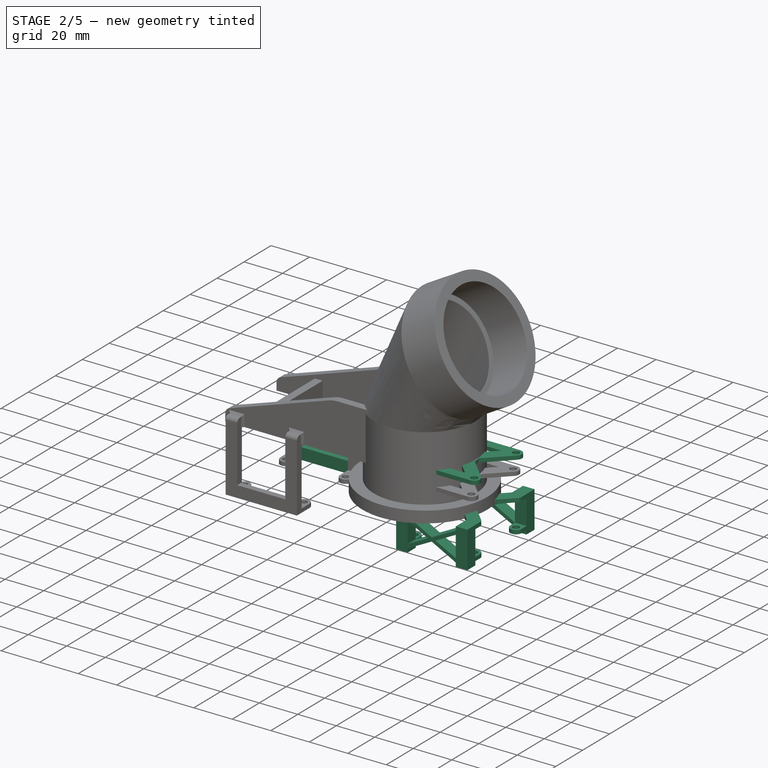
[diagram: stage 2 of 5 — iso view after this stage's code; geometry added in this stage tinted green]
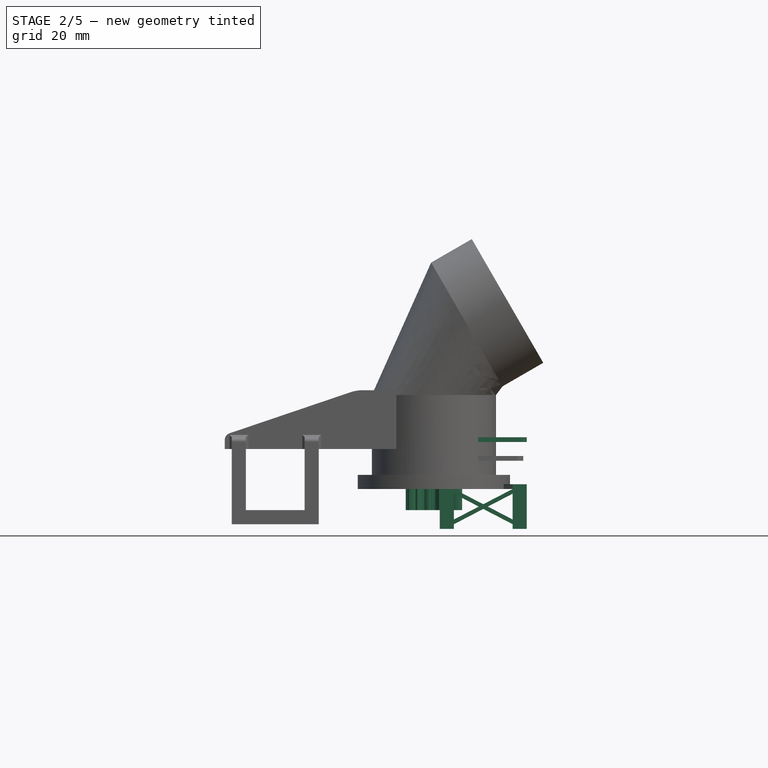
[diagram: stage 2 of 5 — front view after this stage's code; geometry added in this stage tinted green]
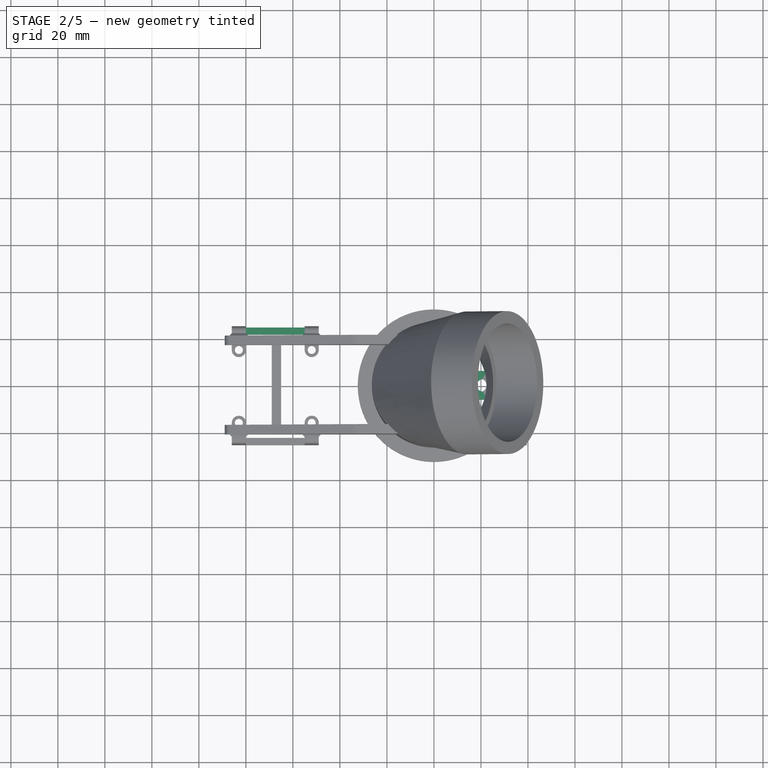
[diagram: stage 2 of 5 — top view after this stage's code; geometry added in this stage tinted green]
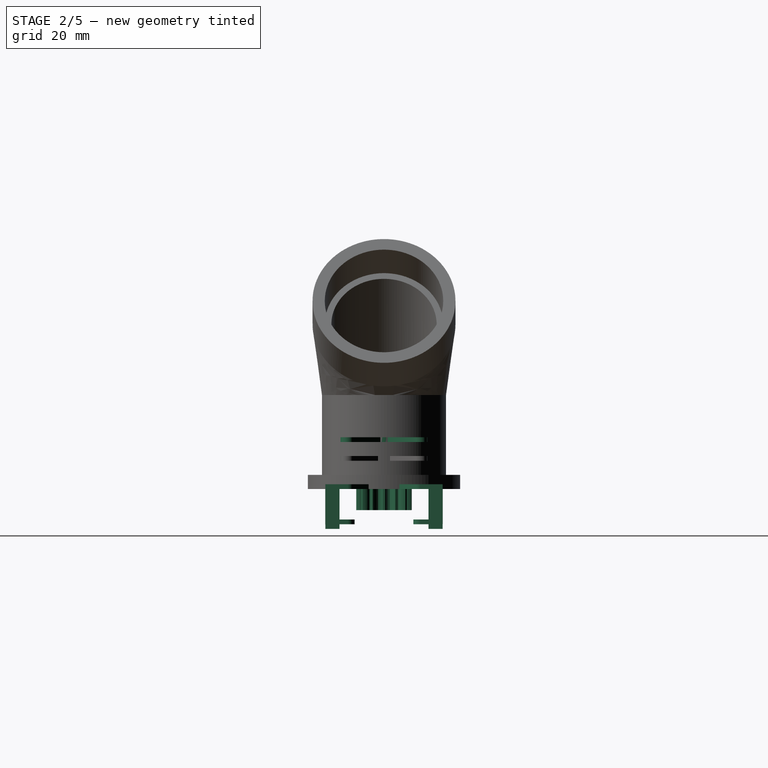
[diagram: stage 2 of 5 — right view after this stage's code; geometry added in this stage tinted green]
FEATURE [PartDesign::Body] Body023  label="Body020: Compound link v2"
  Group = -> [Sketch092,Pad046,Sketch093,Pad047]
  Origin = -> Origin026
  Placement = pos=(46.5,2e-15,36) rot=(1,0,0;3.14159rad)
  Tip = -> Pad047
FEATURE [Sketcher::SketchObject] Sketch094
  FullyConstrained = true
  MapMode = 5
  Support = -> [XY_Plane027]
  sketch-geometry (38):
    g0: Circle CenterX=0 CenterY=0 CenterZ=0 NormalX=0 NormalY=0 NormalZ=1 AngleXU=0 Radius=2.3
    g1: LineSegment StartX=3.4641 StartY=6 StartZ=0 EndX=21 EndY=6 EndZ=0
    g2: LineSegment StartX=3.4641 StartY=-6 StartZ=0 EndX=21 EndY=-6 EndZ=0
    g3: Circle CenterX=21 CenterY=0 CenterZ=0 NormalX=0 NormalY=0 NormalZ=1 AngleXU=0 Radius=2.85
    g4: ArcOfCircle CenterX=0 CenterY=0 CenterZ=0 NormalX=0 NormalY=0 NormalZ=1 AngleXU=0 Radius=6 StartAngle=2.61799 EndAngle=3.66519
    g5: LineSegment StartX=-5.19615 StartY=-3 StartZ=0 EndX=2.50026 EndY=-16.3306 EndZ=0
    g6: LineSegment StartX=3.4641 StartY=-6 StartZ=0 EndX=8.1117 EndY=-14.0499 EndZ=0
    g7: LineSegment StartX=3.4641 StartY=-6 StartZ=0 EndX=-1.73205 EndY=-9 EndZ=0
    g8: LineSegment StartX=2.50026 StartY=-16.3306 StartZ=0 EndX=2.50026 EndY=-24.9306 EndZ=0
    g9: LineSegment StartX=2.50026 StartY=-24.9306 StartZ=0 EndX=8.50026 EndY=-24.9306 EndZ=0
    g10: LineSegment StartX=8.50026 StartY=-24.9306 StartZ=0 EndX=8.50026 EndY=-15.5 EndZ=0
    g11: ArcOfCircle CenterX=5.6 CenterY=-15.5 CenterZ=0 NormalX=0 NormalY=0 NormalZ=1 AngleXU=0 Radius=2.90026 StartAngle=0 EndAngle=0.523599
    g12: LineSegment StartX=-5.19615 StartY=3 StartZ=0 EndX=2.50026 EndY=16.3306 EndZ=0
    g13: LineSegment StartX=2.50026 StartY=16.3306 StartZ=0 EndX=2.50026 EndY=24.9306 EndZ=0
    g14: LineSegment StartX=2.50026 StartY=24.9306 StartZ=0 EndX=8.50026 EndY=24.9306 EndZ=0
    g15: LineSegment StartX=3.4641 StartY=6 StartZ=0 EndX=8.1117 EndY=14.0499 EndZ=0
    g16: LineSegment StartX=8.50026 StartY=24.9306 StartZ=0 EndX=8.50026 EndY=15.5 EndZ=0
    g17: ArcOfCircle CenterX=5.6 CenterY=15.5 CenterZ=0 NormalX=0 NormalY=0 NormalZ=1 AngleXU=0 Radius=2.90026 StartAngle=5.75959 EndAngle=6.28319
    g18: LineSegment StartX=0 StartY=0 StartZ=0 EndX=3.4641 EndY=-6 EndZ=0
    g19: LineSegment StartX=0 StartY=0 StartZ=0 EndX=3.4641 EndY=6 EndZ=0
    g20: LineSegment StartX=22.7163 StartY=-6 StartZ=0 EndX=33.5003 EndY=-16.784 EndZ=0
    g21: LineSegment StartX=33.5003 StartY=-16.784 StartZ=0 EndX=33.5003 EndY=-24.9306 EndZ=0
    g22: LineSegment StartX=33.5003 StartY=-24.9306 StartZ=0 EndX=39.5003 EndY=-24.9306 EndZ=0
    g23: LineSegment StartX=39.5003 StartY=-24.9306 StartZ=0 EndX=39.5003 EndY=-15.5 EndZ=0
    g24: LineSegment StartX=26.7868 StartY=-1.58522 StartZ=0 EndX=38.6508 EndY=-13.4492 EndZ=0
    g25: ArcOfCircle CenterX=36.6 CenterY=-15.5 CenterZ=0 NormalX=0 NormalY=0 NormalZ=1 AngleXU=0 Radius=2.90026 StartAngle=2e-16 EndAngle=0.785398
    g26: LineSegment StartX=22.7163 StartY=6 StartZ=0 EndX=33.5003 EndY=16.784 EndZ=0
    g27: LineSegment StartX=33.5003 StartY=16.784 StartZ=0 EndX=33.5003 EndY=24.9306 EndZ=0
    g28: LineSegment StartX=33.5003 StartY=24.9306 StartZ=0 EndX=39.5003 EndY=24.9306 EndZ=0
    g29: LineSegment StartX=39.5003 StartY=24.9306 StartZ=0 EndX=39.5003 EndY=15.5 EndZ=0
    g30: LineSegment StartX=26.7868 StartY=1.58522 StartZ=0 EndX=38.6508 EndY=13.4492 EndZ=0
    g31: ArcOfCircle CenterX=36.6 CenterY=15.5 CenterZ=0 NormalX=0 NormalY=0 NormalZ=1 AngleXU=0 Radius=2.90026 StartAngle=5.49779 EndAngle=6.28319
    g32: ArcOfCircle CenterX=21 CenterY=0 CenterZ=0 NormalX=0 NormalY=0 NormalZ=1 AngleXU=0 Radius=6 StartAngle=6.01581 EndAngle=6.55056
    g33: LineSegment StartX=22.7163 StartY=-6 StartZ=0 EndX=26.9589 EndY=-1.75736 EndZ=0
    g34: LineSegment StartX=22.7163 StartY=6 StartZ=0 EndX=21 EndY=6 EndZ=0
    g35: LineSegment StartX=21 StartY=-6 StartZ=0 EndX=22.7163 EndY=-6 EndZ=0
    g36: LineSegment StartX=21 StartY=0 StartZ=0 EndX=21 EndY=6 EndZ=0
    g37: LineSegment StartX=21 StartY=0 StartZ=0 EndX=21 EndY=-6 EndZ=0
  constraints (105):
    c: Coincident(g0,g-1)
    c: Diameter(g0) = 4.6
    c: Horizontal(g2)
    c: PointOnObject(g3,g-1)
    c: Diameter(g3) = 5.7
    c: Coincident(g4,g0)
    c: Distance(g3,g0) = 21
    c: Distance(g1,g2) = 12
    c: Parallel(g5,g6)
    c: Coincident(g7,g6)
    c: PointOnObject(g7,g5)
    c: Perpendicular(g6,g7)
    c: Distance(g7) = 6
    c: Angle(g6,g2) = 1.0472
    c: Coincident(g8,g5)
    c: Vertical(g8)
    c: Coincident(g9,g8)
    c: Horizontal(g9)
    c: Coincident(g10,g9)
    c: Vertical(g10)
    c: Tangent(g11,g6) = 1.5708
    c: Tangent(g11,g10) = -1.5708
    c: DistanceX(g0,g11) = 5.6
    c: DistanceY(g11,g0) = 15.5
    c: Equal(g7,g9)
    c: Distance(g8) = 8.6
    c: Tangent(g4,g5) = -1.5708
    c: Coincident(g2,g6)
    c: Horizontal(g1)
    c: Coincident(g13,g12)
    c: Vertical(g13)
    c: Coincident(g14,g13)
    c: Horizontal(g14)
    c: Coincident(g16,g14)
    c: Vertical(g16)
    c: Coincident(g17,g15)
    c: Equal(g5,g12)
    c: Equal(g8,g13)
    c: Equal(g9,g14)
    c: Equal(g10,g16)
    c: Equal(g11,g17)
    c: Equal(g6,g15)
    c: Tangent(g17,g16) = 1.5708
    c: Parallel(g15,g12)
    c: Tangent(g4,g12) = 1.5708
    c: Coincident(g1,g15)
    c: Diameter(g4) = 12
    c: Coincident(g18,g0)
    c: Coincident(g18,g2)
    c: Coincident(g19,g0)
    c: Coincident(g19,g1)
    c: Equal(g19,g18)
    c: Coincident(g21,g20)
    c: Vertical(g21)
    c: Coincident(g22,g21)
    c: Horizontal(g22)
    c: Coincident(g23,g22)
    c: Vertical(g23)
    c: Coincident(g27,g26)
    c: Vertical(g27)
    c: Coincident(g28,g27)
    c: Horizontal(g28)
    c: Coincident(g29,g28)
    c: Vertical(g29)
    c: Distance(g25,g11) = 31
    c: Tangent(g25,g24) = 1.5708
    c: Tangent(g25,g23) = -1.5708
    c: Parallel(g24,g20)
    c: Parallel(g30,g26)
    c: Tangent(g31,g29) = 1.5708
    c: Tangent(g31,g30) = -1.5708
    c: Equal(g22,g9)
    c: DistanceY(g25,g11) = 0
    c: Coincident(g32,g24)
    c: Equal(g11,g25)
    c: Equal(g23,g10)
    c: PointOnObject(g33,g20)
    c: PointOnObject(g33,g24)
    c: Perpendicular(g33,g24)
    c: Distance(g33) = 6
    c: Coincident(g34,g26)
    c: Coincident(g34,g1)
    c: Coincident(g35,g2)
    c: Coincident(g35,g20)
    c: Equal(g34,g35)
    c: Horizontal(g34)
    c: Horizontal(g35)
    c: Coincident(g32,g3)
    c: Coincident(g30,g32)
    c: Diameter(g32) = 12
    c: Coincident(g36,g3)
    c: Coincident(g36,g1)
    c: Vertical(g36)
    c: Coincident(g37,g3)
    c: Coincident(g37,g2)
    c: Vertical(g37)
    c: Equal(g36,g37)
    c: Angle(g35,g20) = 2.35619
    c: Equal(g26,g20)
    c: Equal(g30,g24)
    c: Equal(g27,g21)
    c: Equal(g28,g22)
    c: Equal(g29,g23)
    c: Equal(g31,g25)
    c: PointOnObject(g33,g35)
FEATURE [PartDesign::Pad] Pad048
  Direction = (0,0,1)
  Length = 2
  Length2 = 10
  Profile = -> Sketch094
  ReferenceAxis = -> Sketch094 [N_Axis]
  Type = 0
FEATURE [Sketcher::SketchObject] Sketch095
  FullyConstrained = true
  MapMode = 5
  Support = -> [XY_Plane028]
  sketch-geometry (4):
    g0: Circle CenterX=0 CenterY=0 CenterZ=0 NormalX=0 NormalY=0 NormalZ=1 AngleXU=0 Radius=2.85
    g1: Circle CenterX=0 CenterY=0 CenterZ=0 NormalX=0 NormalY=0 NormalZ=1 AngleXU=0 Radius=3.85
    g2: GeomPoint X=2.85 Y=0 Z=0
    g3: GeomPoint X=3.85 Y=0 Z=0
  constraints (8):
    c: Coincident(g0,g-1)
    c: Coincident(g1,g0)
    c: PointOnObject(g2,g0)
    c: PointOnObject(g3,g1)
    c: PointOnObject(g2,g-1)
    c: PointOnObject(g3,g-1)
    c: Distance(g3,g2) = 1
    c: Diameter(g0) = 5.7
FEATURE [PartDesign::Pad] Pad049
  Direction = (0,0,1)
  Length = 9
  Length2 = 10
  Profile = -> Sketch095
  ReferenceAxis = -> Sketch095 [N_Axis]
  Type = 0
FEATURE [PartDesign::Body] Body025  label="Body025: Pinion standoff"
  Group = -> [Sketch095,Pad049]
  Origin = -> Origin028
  Placement = pos=(67.5,0,16) rot=(0,0,1;0rad)
  Tip = -> Pad049
FEATURE [Sketcher::SketchObject] Sketch097
  FullyConstrained = true
  MapMode = 5
  Placement = pos=(0,0,0) rot=(1,0,0;3.14159rad)
  Support = -> [Pad048]
  sketch-geometry (4):
    g0: LineSegment StartX=2.5 StartY=24.93 StartZ=0 EndX=8.5 EndY=24.93 EndZ=0
    g1: LineSegment StartX=8.5 StartY=24.93 StartZ=0 EndX=8.5 EndY=18.93 EndZ=0
    g2: LineSegment StartX=8.5 StartY=18.93 StartZ=0 EndX=2.5 EndY=18.93 EndZ=0
    g3: LineSegment StartX=2.5 StartY=18.93 StartZ=0 EndX=2.5 EndY=24.93 EndZ=0
  constraints (12):
    c: Coincident(g0,g1)
    c: Coincident(g1,g2)
    c: Coincident(g2,g3)
    c: Coincident(g3,g0)
    c: Horizontal(g0)
    c: Horizontal(g2)
    c: Vertical(g1)
    c: Vertical(g3)
    c: DistanceX(g-1,g0) = 2.5
    c: DistanceY(g-1,g0) = 24.93
    c: Distance(g0) = 6
    c: Distance(g1) = 6
FEATURE [PartDesign::Pad] Pad050
  BaseFeature = -> Pad048
  Direction = (0,0,-1)
  Length = 17
  Length2 = 10
  Profile = -> Sketch097
  ReferenceAxis = -> Sketch097 [N_Axis]
  Type = 0
FEATURE [Sketcher::SketchObject] Sketch098
  AttachmentOffset = pos=(0,0,-15) rot=(0,0,1;0rad)
  FullyConstrained = true
  MapMode = 5
  Placement = pos=(0,0,-15) rot=(0,0,1;0rad)
  Support = -> [XY_Plane027]
  sketch-geometry (5):
    g0: LineSegment StartX=2.5 StartY=-18.93 StartZ=0 EndX=2.5 EndY=-15.5 EndZ=0
    g1: LineSegment StartX=2.5 StartY=-18.93 StartZ=0 EndX=8.5 EndY=-18.93 EndZ=0
    g2: LineSegment StartX=8.5 StartY=-18.93 StartZ=0 EndX=8.5 EndY=-15.5 EndZ=0
    g3: ArcOfCircle CenterX=5.5 CenterY=-15.5 CenterZ=0 NormalX=0 NormalY=0 NormalZ=1 AngleXU=0 Radius=3 StartAngle=0 EndAngle=3.14159
    g4: Circle CenterX=5.5 CenterY=-15.5 CenterZ=0 NormalX=0 NormalY=0 NormalZ=1 AngleXU=0 Radius=1.7
  constraints (13):
    c: Vertical(g0)
    c: Coincident(g1,g0)
    c: Horizontal(g1)
    c: Coincident(g2,g1)
    c: Vertical(g2)
    c: Tangent(g3,g2) = -1.5708
    c: Tangent(g3,g0) = 1.5708
    c: Distance(g1) = 6
    c: DistanceX(g-1,g0) = 2.5
    c: DistanceY(g3,g-1) = 15.5
    c: Distance(g2) = 3.43
    c: Coincident(g4,g3)
    c: Diameter(g4) = 3.4
FEATURE [PartDesign::Pad] Pad051
  BaseFeature = -> Pad050
  Direction = (0,0,1)
  Length = 2
  Length2 = 10
  Profile = -> Sketch098
  ReferenceAxis = -> Sketch098 [N_Axis]
  Type = 0
FEATURE [PartDesign::LinearPattern] LinearPattern001
  Direction = -> Sketch098 [H_Axis]
  Length = 31
  Occurrences = 2
FEATURE [PartDesign::Mirrored] Mirrored001
  MirrorPlane = -> Sketch098 [H_Axis]
FEATURE [PartDesign::MultiTransform] MultiTransform001
  BaseFeature = -> Pad051
  Originals = -> [Pad051,Pad050]
  Transformations = -> [LinearPattern001,Mirrored001]
FEATURE [Sketcher::SketchObject] Sketch099
  FullyConstrained = true
  MapMode = 5
  Placement = pos=(0,-24.93,0) rot=(1,0,0;1.5708rad)
  Support = -> [MultiTransform001]
  sketch-geometry (20):
    g0: LineSegment StartX=8.5 StartY=0 StartZ=0 EndX=21 EndY=-6.5 EndZ=0
    g1: LineSegment StartX=33.5 StartY=-15 StartZ=0 EndX=21 EndY=-8.5 EndZ=0
    g2: LineSegment StartX=8.5 StartY=-15 StartZ=0 EndX=21 EndY=-8.5 EndZ=0
    g3: LineSegment StartX=8.5 StartY=-13 StartZ=0 EndX=19.0769 EndY=-7.5 EndZ=0
    g4: LineSegment StartX=8.5 StartY=0 StartZ=0 EndX=8.5 EndY=-2 EndZ=0
    g5: LineSegment StartX=8.5 StartY=-13 StartZ=0 EndX=8.5 EndY=-15 EndZ=0
    g6: LineSegment StartX=33.5 StartY=-15 StartZ=0 EndX=33.5 EndY=-13 EndZ=0
    g7: LineSegment StartX=33.5 StartY=-2 StartZ=0 EndX=33.5 EndY=0 EndZ=0
    g8: LineSegment StartX=8.5 StartY=0 StartZ=0 EndX=33.5 EndY=0 EndZ=0
    g9: LineSegment StartX=8.5 StartY=-15 StartZ=0 EndX=33.5 EndY=-15 EndZ=0
    g10: LineSegment StartX=8.5 StartY=-13 StartZ=0 EndX=8.5 EndY=-2 EndZ=0
    g11: LineSegment StartX=33.5 StartY=-2 StartZ=0 EndX=33.5 EndY=-13 EndZ=0
    g12: LineSegment StartX=21 StartY=-6.5 StartZ=0 EndX=33.5 EndY=0 EndZ=0
    g13: LineSegment StartX=22.9231 StartY=-7.5 StartZ=0 EndX=33.5 EndY=-13 EndZ=0
    g14: LineSegment StartX=19.0769 StartY=-7.5 StartZ=0 EndX=8.5 EndY=-2 EndZ=0
    g15: LineSegment StartX=22.9231 StartY=-7.5 StartZ=0 EndX=33.5 EndY=-2 EndZ=0
    g16: LineSegment StartX=19.0769 StartY=-7.5 StartZ=0 EndX=21 EndY=-6.5 EndZ=0
    g17: LineSegment StartX=21 StartY=-8.5 StartZ=0 EndX=22.9231 EndY=-7.5 EndZ=0
    g18: LineSegment StartX=22.9231 StartY=-7.5 StartZ=0 EndX=21 EndY=-6.5 EndZ=0
    g19: LineSegment StartX=21 StartY=-8.5 StartZ=0 EndX=19.0769 EndY=-7.5 EndZ=0
  constraints (52):
    c: PointOnObject(g0,g-1)
    c: PointOnObject(g12,g-1)
    c: Coincident(g4,g0)
    c: Coincident(g4,g14)
    c: Coincident(g5,g3)
    c: Coincident(g5,g2)
    c: Vertical(g5)
    c: Coincident(g6,g1)
    c: Coincident(g6,g13)
    c: Coincident(g7,g15)
    c: Coincident(g7,g12)
    c: Vertical(g7)
    c: Vertical(g4)
    c: DistanceX(g-1,g0) = 8.5
    c: Vertical(g6)
    c: Equal(g4,g5)
    c: Equal(g4,g7)
    c: Equal(g4,g6)
    c: Distance(g12,g0) = 25
    c: Coincident(g8,g0)
    c: Coincident(g8,g12)
    c: Coincident(g9,g2)
    c: Coincident(g9,g1)
    c: Coincident(g10,g3)
    c: Coincident(g10,g14)
    c: Vertical(g10)
    c: Coincident(g11,g15)
    c: Coincident(g11,g13)
    c: Vertical(g11)
    c: Equal(g11,g10)
    c: Distance(g12,g1) = 15
    c: Distance(g4) = 2
    c: Coincident(g0,g12)
    c: Coincident(g14,g3)
    c: Coincident(g2,g1)
    c: Coincident(g15,g13)
    c: Coincident(g16,g3)
    c: Coincident(g16,g0)
    c: Coincident(g17,g1)
    c: Coincident(g17,g13)
    c: Coincident(g18,g13)
    c: Coincident(g18,g0)
    c: Coincident(g19,g1)
    c: Coincident(g19,g3)
    c: Parallel(g0,g13)
    c: Parallel(g15,g2)
    c: Parallel(g3,g12)
    c: Parallel(g14,g1)
    c: Parallel(g1,g13)
    c: Parallel(g15,g12)
    c: Parallel(g18,g13)
    c: Parallel(g17,g15)
FEATURE [PartDesign::Pad] Pad052
  BaseFeature = -> MultiTransform001
  Direction = (0,-1,2e-16)
  Length = 6
  Length2 = 10
  Profile = -> Sketch099
  ReferenceAxis = -> Sketch099 [N_Axis]
  Reversed = true
  Type = 0
FEATURE [PartDesign::Mirrored] Mirrored002
  MirrorPlane = -> XZ_Plane027
FEATURE [PartDesign::MultiTransform] MultiTransform002
  BaseFeature = -> Pad052
  Originals = -> [Pad052]
  Transformations = -> [Mirrored002]
FEATURE [PartDesign::Body] Body024  label="Body021: Compound link cap v2"
  Group = -> [Sketch094,Pad048,Sketch097,Pad050,Sketch098,Pad051,MultiTransform001,LinearPattern001,Sketch099,Pad052,Mirrored001,MultiTransform002,Mirrored002]
  Origin = -> Origin027
  Placement = pos=(46.5,0,31) rot=(0,0,1;0rad)
  Tip = -> MultiTransform002
FEATURE [Part::Part2DObjectPython] InvoluteGear006  # Draft 2D object (typed FeaturePython)
  ExternalGear = true
  HighPrecision = true
  Modules = 1.5
  NumberOfTeeth = 18
  PressureAngle = 20
FEATURE [Part::Part2DObjectPython] InvoluteGear007  # Draft 2D object (typed FeaturePython)
  ExternalGear = true
  HighPrecision = true
  Modules = 1.5
  NumberOfTeeth = 14
  PressureAngle = 20
FEATURE [Sketcher::SketchObject] Sketch100
  FullyConstrained = false
  sketch-geometry (180):
    g0: LineSegment StartX=12.111 StartY=-1.24172 StartZ=0 EndX=12.6458 EndY=-1.2954 EndZ=0
    g1: BSplineCurve PolesCount=4 KnotsCount=2 Degree=3 IsPeriodic=0
    g2: BSplineCurve PolesCount=4 KnotsCount=2 Degree=3 IsPeriodic=0
    g3: ArcOfCircle CenterX=0.00170113 CenterY=0 CenterZ=0 NormalX=0 NormalY=0 NormalZ=1 AngleXU=-0.0340391 Radius=15 StartAngle=0 EndAngle=0.0680782
    g4: BSplineCurve PolesCount=4 KnotsCount=2 Degree=3 IsPeriodic=0
    g5: BSplineCurve PolesCount=4 KnotsCount=2 Degree=3 IsPeriodic=0
    g6: LineSegment StartX=12.6458 StartY=1.2954 StartZ=0 EndX=12.111 EndY=1.24172 EndZ=0
    g7: ArcOfCircle CenterX=12.0537 CenterY=1.80128 CenterZ=0 NormalX=0 NormalY=0 NormalZ=1 AngleXU=-1.46862 Radius=0.5625 StartAngle=4.75957 EndAngle=6.28319
    g8: ArcOfCircle CenterX=-7.4953e-12 CenterY=-1.3298e-12 CenterZ=0 NormalX=0 NormalY=0 NormalZ=1 AngleXU=0.148292 Radius=11.625 StartAngle=0 EndAngle=0.0524819
    g9: ArcOfCircle CenterX=11.9428 CenterY=2.42994 CenterZ=0 NormalX=0 NormalY=0 NormalZ=1 AngleXU=-2.94188 Radius=0.5625 StartAngle=4.75957 EndAngle=6.28319
    g10: LineSegment StartX=11.8053 StartY=2.97538 StartZ=0 EndX=12.3262 EndY=3.10782 EndZ=0
    g11: BSplineCurve PolesCount=4 KnotsCount=2 Degree=3 IsPeriodic=0
    g12: BSplineCurve PolesCount=4 KnotsCount=2 Degree=3 IsPeriodic=0
    g13: ArcOfCircle CenterX=0.00159854 CenterY=0.000581822 CenterZ=0 NormalX=0 NormalY=0 NormalZ=1 AngleXU=0.315027 Radius=15 StartAngle=0 EndAngle=0.0680782
    g14: BSplineCurve PolesCount=4 KnotsCount=2 Degree=3 IsPeriodic=0
    g15: BSplineCurve PolesCount=4 KnotsCount=2 Degree=3 IsPeriodic=0
    g16: LineSegment StartX=11.4401 StartY=5.54239 StartZ=0 EndX=10.9559 EndY=5.30905 EndZ=0
    g17: ArcOfCircle CenterX=10.7107 CenterY=5.81524 CenterZ=0 NormalX=0 NormalY=0 NormalZ=1 AngleXU=-1.11956 Radius=0.5625 StartAngle=4.75957 EndAngle=6.28319
    g18: ArcOfCircle CenterX=1.7293e-12 CenterY=9.801e-13 CenterZ=0 NormalX=0 NormalY=0 NormalZ=1 AngleXU=0.497358 Radius=11.625 StartAngle=0 EndAngle=0.0524819
    g19: ArcOfCircle CenterX=10.3915 CenterY=6.36807 CenterZ=0 NormalX=0 NormalY=0 NormalZ=1 AngleXU=-2.59282 Radius=0.5625 StartAngle=4.75957 EndAngle=6.28319
    g20: LineSegment StartX=10.0757 StartY=6.83361 StartZ=0 EndX=10.5199 EndY=7.1362 EndZ=0
    g21: BSplineCurve PolesCount=4 KnotsCount=2 Degree=3 IsPeriodic=0
    g22: BSplineCurve PolesCount=4 KnotsCount=2 Degree=3 IsPeriodic=0
    g23: ArcOfCircle CenterX=0.00130314 CenterY=0.00109347 CenterZ=0 NormalX=0 NormalY=0 NormalZ=1 AngleXU=0.664093 Radius=15 StartAngle=0 EndAngle=0.0680782
    g24: BSplineCurve PolesCount=4 KnotsCount=2 Degree=3 IsPeriodic=0
    g25: BSplineCurve PolesCount=4 KnotsCount=2 Degree=3 IsPeriodic=0
    g26: LineSegment StartX=8.85455 StartY=9.12087 StartZ=0 EndX=8.47942 EndY=8.73603 EndZ=0
    g27: ArcOfCircle CenterX=8.07579 CenterY=9.1278 CenterZ=0 NormalX=0 NormalY=0 NormalZ=1 AngleXU=-0.770493 Radius=0.5625 StartAngle=4.75957 EndAngle=6.28319
    g28: ArcOfCircle CenterX=-3.4226e-12 CenterY=-4.1149e-12 CenterZ=0 NormalX=0 NormalY=0 NormalZ=1 AngleXU=0.846424 Radius=11.625 StartAngle=0 EndAngle=0.0524819
    g29: ArcOfCircle CenterX=7.58678 CenterY=9.53813 CenterZ=0 NormalX=0 NormalY=0 NormalZ=1 AngleXU=-2.24375 Radius=0.5625 StartAngle=4.75957 EndAngle=6.28319
    g30: LineSegment StartX=7.13087 StartY=9.8676 StartZ=0 EndX=7.44473 EndY=10.3038 EndZ=0
    g31: BSplineCurve PolesCount=4 KnotsCount=2 Degree=3 IsPeriodic=0
    g32: BSplineCurve PolesCount=4 KnotsCount=2 Degree=3 IsPeriodic=0
    g33: ArcOfCircle CenterX=0.000850567 CenterY=0.00147322 CenterZ=0 NormalX=0 NormalY=0 NormalZ=1 AngleXU=1.01316 Radius=15 StartAngle=0 EndAngle=0.0680782
    g34: BSplineCurve PolesCount=4 KnotsCount=2 Degree=3 IsPeriodic=0
    g35: BSplineCurve PolesCount=4 KnotsCount=2 Degree=3 IsPeriodic=0
    g36: LineSegment StartX=5.20103 StartY=11.5993 StartZ=0 EndX=4.98015 EndY=11.1093 EndZ=0
    g37: ArcOfCircle CenterX=4.46687 CenterY=11.3394 CenterZ=0 NormalX=0 NormalY=0 NormalZ=1 AngleXU=-0.421427 Radius=0.5625 StartAngle=4.75957 EndAngle=6.28319
    g38: ArcOfCircle CenterX=-2.303e-12 CenterY=-6.3842e-12 CenterZ=0 NormalX=0 NormalY=0 NormalZ=1 AngleXU=1.19549 Radius=11.625 StartAngle=0 EndAngle=0.0524819
    g39: ArcOfCircle CenterX=3.86701 CenterY=11.5577 CenterZ=0 NormalX=0 NormalY=0 NormalZ=1 AngleXU=-1.89469 Radius=0.5625 StartAngle=4.75957 EndAngle=6.28319
    g40: LineSegment StartX=3.32591 StartY=11.7114 StartZ=0 EndX=3.47164 EndY=12.2287 EndZ=0
    g41: BSplineCurve PolesCount=4 KnotsCount=2 Degree=3 IsPeriodic=0
    g42: BSplineCurve PolesCount=4 KnotsCount=2 Degree=3 IsPeriodic=0
    g43: ArcOfCircle CenterX=0.000295399 CenterY=0.00167529 CenterZ=0 NormalX=0 NormalY=0 NormalZ=1 AngleXU=1.36222 Radius=15 StartAngle=0 EndAngle=0.0680782
    g44: BSplineCurve PolesCount=4 KnotsCount=2 Degree=3 IsPeriodic=0
    g45: BSplineCurve PolesCount=4 KnotsCount=2 Degree=3 IsPeriodic=0
    g46: LineSegment StartX=0.920191 StartY=12.6786 StartZ=0 EndX=0.880204 EndY=12.1427 EndZ=0
    g47: ArcOfCircle CenterX=0.319176 CenterY=12.1833 CenterZ=0 NormalX=0 NormalY=0 NormalZ=1 AngleXU=-0.0723615 Radius=0.5625 StartAngle=4.75957 EndAngle=6.28319
    g48: ArcOfCircle CenterX=1.2e-15 CenterY=1.0001e-12 CenterZ=0 NormalX=0 NormalY=0 NormalZ=1 AngleXU=1.54456 Radius=11.625 StartAngle=0 EndAngle=0.0524819
    g49: ArcOfCircle CenterX=-0.319176 CenterY=12.1833 CenterZ=0 NormalX=0 NormalY=0 NormalZ=1 AngleXU=-1.54562 Radius=0.5625 StartAngle=4.75957 EndAngle=6.28319
    g50: LineSegment StartX=-0.880204 StartY=12.1427 StartZ=0 EndX=-0.920191 EndY=12.6786 EndZ=0
    g51: BSplineCurve PolesCount=4 KnotsCount=2 Degree=3 IsPeriodic=0
    g52: BSplineCurve PolesCount=4 KnotsCount=2 Degree=3 IsPeriodic=0
    g53: ArcOfCircle CenterX=-0.000295399 CenterY=0.00167529 CenterZ=0 NormalX=0 NormalY=0 NormalZ=1 AngleXU=1.71129 Radius=15 StartAngle=0 EndAngle=0.0680782
    g54: BSplineCurve PolesCount=4 KnotsCount=2 Degree=3 IsPeriodic=0
    g55: BSplineCurve PolesCount=4 KnotsCount=2 Degree=3 IsPeriodic=0
    g56: LineSegment StartX=-3.47164 StartY=12.2287 StartZ=0 EndX=-3.32591 EndY=11.7114 EndZ=0
    g57: ArcOfCircle CenterX=-3.86701 CenterY=11.5577 CenterZ=0 NormalX=0 NormalY=0 NormalZ=1 AngleXU=0.276704 Radius=0.5625 StartAngle=4.75957 EndAngle=6.28319
    g58: ArcOfCircle CenterX=4.086e-13 CenterY=-9.965e-13 CenterZ=0 NormalX=0 NormalY=0 NormalZ=1 AngleXU=1.89362 Radius=11.625 StartAngle=0 EndAngle=0.0524819
    g59: ArcOfCircle CenterX=-4.46687 CenterY=11.3394 CenterZ=0 NormalX=0 NormalY=0 NormalZ=1 AngleXU=-1.19655 Radius=0.5625 StartAngle=4.75957 EndAngle=6.28319
    g60: LineSegment StartX=-4.98015 StartY=11.1093 StartZ=0 EndX=-5.20103 EndY=11.5993 EndZ=0
    g61: BSplineCurve PolesCount=4 KnotsCount=2 Degree=3 IsPeriodic=0
    g62: BSplineCurve PolesCount=4 KnotsCount=2 Degree=3 IsPeriodic=0
    g63: ArcOfCircle CenterX=-0.000850567 CenterY=0.00147322 CenterZ=0 NormalX=0 NormalY=0 NormalZ=1 AngleXU=2.06036 Radius=15 StartAngle=0 EndAngle=0.0680782
    g64: BSplineCurve PolesCount=4 KnotsCount=2 Degree=3 IsPeriodic=0
    g65: BSplineCurve PolesCount=4 KnotsCount=2 Degree=3 IsPeriodic=0
    g66: LineSegment StartX=-7.44473 StartY=10.3038 StartZ=0 EndX=-7.13087 EndY=9.8676 EndZ=0
    g67: ArcOfCircle CenterX=-7.58678 CenterY=9.53813 CenterZ=0 NormalX=0 NormalY=0 NormalZ=1 AngleXU=0.62577 Radius=0.5625 StartAngle=4.75957 EndAngle=6.28319
    g68: ArcOfCircle CenterX=-6.35e-14 CenterY=1.19e-13 CenterZ=0 NormalX=0 NormalY=0 NormalZ=1 AngleXU=2.24269 Radius=11.625 StartAngle=0 EndAngle=0.0524819
    g69: ArcOfCircle CenterX=-8.07579 CenterY=9.1278 CenterZ=0 NormalX=0 NormalY=0 NormalZ=1 AngleXU=-0.847488 Radius=0.5625 StartAngle=4.75957 EndAngle=6.28319
    g70: LineSegment StartX=-8.47942 StartY=8.73603 StartZ=0 EndX=-8.85455 EndY=9.12087 EndZ=0
    g71: BSplineCurve PolesCount=4 KnotsCount=2 Degree=3 IsPeriodic=0
    g72: BSplineCurve PolesCount=4 KnotsCount=2 Degree=3 IsPeriodic=0
    g73: ArcOfCircle CenterX=-0.00130314 CenterY=0.00109347 CenterZ=0 NormalX=0 NormalY=0 NormalZ=1 AngleXU=2.40942 Radius=15 StartAngle=0 EndAngle=0.0680782
    g74: BSplineCurve PolesCount=4 KnotsCount=2 Degree=3 IsPeriodic=0
    g75: BSplineCurve PolesCount=4 KnotsCount=2 Degree=3 IsPeriodic=0
    g76: LineSegment StartX=-10.5199 StartY=7.1362 StartZ=0 EndX=-10.0757 EndY=6.83361 EndZ=0
    g77: ArcOfCircle CenterX=-10.3915 CenterY=6.36807 CenterZ=0 NormalX=0 NormalY=0 NormalZ=1 AngleXU=0.974836 Radius=0.5625 StartAngle=4.75957 EndAngle=6.28319
    g78: ArcOfCircle CenterX=-2.8448e-12 CenterY=1.6298e-12 CenterZ=0 NormalX=0 NormalY=0 NormalZ=1 AngleXU=2.59175 Radius=11.625 StartAngle=0 EndAngle=0.0524819
    g79: ArcOfCircle CenterX=-10.7107 CenterY=5.81524 CenterZ=0 NormalX=0 NormalY=0 NormalZ=1 AngleXU=-0.498422 Radius=0.5625 StartAngle=4.75957 EndAngle=6.28319
    g80: LineSegment StartX=-10.9559 StartY=5.30905 StartZ=0 EndX=-11.4401 EndY=5.54239 EndZ=0
    g81: BSplineCurve PolesCount=4 KnotsCount=2 Degree=3 IsPeriodic=0
    g82: BSplineCurve PolesCount=4 KnotsCount=2 Degree=3 IsPeriodic=0
    g83: ArcOfCircle CenterX=-0.00159854 CenterY=0.000581822 CenterZ=0 NormalX=0 NormalY=0 NormalZ=1 AngleXU=2.75849 Radius=15 StartAngle=0 EndAngle=0.0680782
    g84: BSplineCurve PolesCount=4 KnotsCount=2 Degree=3 IsPeriodic=0
    g85: BSplineCurve PolesCount=4 KnotsCount=2 Degree=3 IsPeriodic=0
    g86: LineSegment StartX=-12.3262 StartY=3.10782 StartZ=0 EndX=-11.8053 EndY=2.97538 EndZ=0
    g87: ArcOfCircle CenterX=-11.9428 CenterY=2.42994 CenterZ=0 NormalX=0 NormalY=0 NormalZ=1 AngleXU=1.3239 Radius=0.5625 StartAngle=4.75957 EndAngle=6.28319
    g88: ArcOfCircle CenterX=6.7635e-12 CenterY=-1.1966e-12 CenterZ=0 NormalX=0 NormalY=0 NormalZ=1 AngleXU=2.94082 Radius=11.625 StartAngle=0 EndAngle=0.0524819
    g89: ArcOfCircle CenterX=-12.0537 CenterY=1.80128 CenterZ=0 NormalX=0 NormalY=0 NormalZ=1 AngleXU=-0.149357 Radius=0.5625 StartAngle=4.75957 EndAngle=6.28319
    g90: LineSegment StartX=-12.111 StartY=1.24172 StartZ=0 EndX=-12.6458 EndY=1.2954 EndZ=0
    g91: BSplineCurve PolesCount=4 KnotsCount=2 Degree=3 IsPeriodic=0
    g92: BSplineCurve PolesCount=4 KnotsCount=2 Degree=3 IsPeriodic=0
    g93: ArcOfCircle CenterX=-0.00170113 CenterY=1.9e-15 CenterZ=0 NormalX=0 NormalY=0 NormalZ=1 AngleXU=3.10755 Radius=15 StartAngle=0 EndAngle=0.0680782
    g94: BSplineCurve PolesCount=4 KnotsCount=2 Degree=3 IsPeriodic=0
    g95: BSplineCurve PolesCount=4 KnotsCount=2 Degree=3 IsPeriodic=0
    g96: LineSegment StartX=-12.6458 StartY=-1.2954 StartZ=0 EndX=-12.111 EndY=-1.24172 EndZ=0
    g97: ArcOfCircle CenterX=-12.0537 CenterY=-1.80128 CenterZ=0 NormalX=0 NormalY=0 NormalZ=1 AngleXU=1.67297 Radius=0.5625 StartAngle=4.75957 EndAngle=6.28319
    g98: ArcOfCircle CenterX=7.2875e-12 CenterY=1.2945e-12 CenterZ=0 NormalX=0 NormalY=0 NormalZ=1 AngleXU=-2.9933 Radius=11.625 StartAngle=0 EndAngle=0.0524819
    g99: ArcOfCircle CenterX=-11.9428 CenterY=-2.42994 CenterZ=0 NormalX=0 NormalY=0 NormalZ=1 AngleXU=0.199709 Radius=0.5625 StartAngle=4.75957 EndAngle=6.28319
    g100: LineSegment StartX=-11.8053 StartY=-2.97538 StartZ=0 EndX=-12.3262 EndY=-3.10782 EndZ=0
    g101: BSplineCurve PolesCount=4 KnotsCount=2 Degree=3 IsPeriodic=0
    g102: BSplineCurve PolesCount=4 KnotsCount=2 Degree=3 IsPeriodic=0
    g103: ArcOfCircle CenterX=-0.00159854 CenterY=-0.000581822 CenterZ=0 NormalX=0 NormalY=0 NormalZ=1 AngleXU=-2.82657 Radius=15 StartAngle=0 EndAngle=0.0680782
    g104: BSplineCurve PolesCount=4 KnotsCount=2 Degree=3 IsPeriodic=0
    g105: BSplineCurve PolesCount=4 KnotsCount=2 Degree=3 IsPeriodic=0
    g106: LineSegment StartX=-11.4401 StartY=-5.54239 StartZ=0 EndX=-10.9559 EndY=-5.30905 EndZ=0
    g107: ArcOfCircle CenterX=-10.7107 CenterY=-5.81524 CenterZ=0 NormalX=0 NormalY=0 NormalZ=1 AngleXU=2.02203 Radius=0.5625 StartAngle=4.75957 EndAngle=6.28319
    g108: ArcOfCircle CenterX=-1.7293e-12 CenterY=-9.801e-13 CenterZ=0 NormalX=0 NormalY=0 NormalZ=1 AngleXU=-2.64423 Radius=11.625 StartAngle=0 EndAngle=0.0524819
    g109: ArcOfCircle CenterX=-10.3915 CenterY=-6.36807 CenterZ=0 NormalX=0 NormalY=0 NormalZ=1 AngleXU=0.548775 Radius=0.5625 StartAngle=4.75957 EndAngle=6.28319
    g110: LineSegment StartX=-10.0757 StartY=-6.83361 StartZ=0 EndX=-10.5199 EndY=-7.1362 EndZ=0
    g111: BSplineCurve PolesCount=4 KnotsCount=2 Degree=3 IsPeriodic=0
    g112: BSplineCurve PolesCount=4 KnotsCount=2 Degree=3 IsPeriodic=0
    g113: ArcOfCircle CenterX=-0.00130314 CenterY=-0.00109347 CenterZ=0 NormalX=0 NormalY=0 NormalZ=1 AngleXU=-2.4775 Radius=15 StartAngle=0 EndAngle=0.0680782
    g114: BSplineCurve PolesCount=4 KnotsCount=2 Degree=3 IsPeriodic=0
    g115: BSplineCurve PolesCount=4 KnotsCount=2 Degree=3 IsPeriodic=0
    g116: LineSegment StartX=-8.85455 StartY=-9.12087 StartZ=0 EndX=-8.47942 EndY=-8.73603 EndZ=0
    g117: ArcOfCircle CenterX=-8.07579 CenterY=-9.1278 CenterZ=0 NormalX=0 NormalY=0 NormalZ=1 AngleXU=2.3711 Radius=0.5625 StartAngle=4.75957 EndAngle=6.28319
    g118: ArcOfCircle CenterX=3.4226e-12 CenterY=4.1149e-12 CenterZ=0 NormalX=0 NormalY=0 NormalZ=1 AngleXU=-2.29517 Radius=11.625 StartAngle=0 EndAngle=0.0524819
    g119: ArcOfCircle CenterX=-7.58678 CenterY=-9.53813 CenterZ=0 NormalX=0 NormalY=0 NormalZ=1 AngleXU=0.897841 Radius=0.5625 StartAngle=4.75957 EndAngle=6.28319
    g120: LineSegment StartX=-7.13087 StartY=-9.8676 StartZ=0 EndX=-7.44473 EndY=-10.3038 EndZ=0
    g121: BSplineCurve PolesCount=4 KnotsCount=2 Degree=3 IsPeriodic=0
    g122: BSplineCurve PolesCount=4 KnotsCount=2 Degree=3 IsPeriodic=0
    g123: ArcOfCircle CenterX=-0.000850567 CenterY=-0.00147322 CenterZ=0 NormalX=0 NormalY=0 NormalZ=1 AngleXU=-2.12843 Radius=15 StartAngle=0 EndAngle=0.0680782
    g124: BSplineCurve PolesCount=4 KnotsCount=2 Degree=3 IsPeriodic=0
    g125: BSplineCurve PolesCount=4 KnotsCount=2 Degree=3 IsPeriodic=0
    g126: LineSegment StartX=-5.20103 StartY=-11.5993 StartZ=0 EndX=-4.98015 EndY=-11.1093 EndZ=0
    g127: ArcOfCircle CenterX=-4.46687 CenterY=-11.3394 CenterZ=0 NormalX=0 NormalY=0 NormalZ=1 AngleXU=2.72017 Radius=0.5625 StartAngle=4.75957 EndAngle=6.28319
    g128: ArcOfCircle CenterX=1.4166e-12 CenterY=3.8884e-12 CenterZ=0 NormalX=0 NormalY=0 NormalZ=1 AngleXU=-1.9461 Radius=11.625 StartAngle=0 EndAngle=0.0524819
    g129: ArcOfCircle CenterX=-3.86701 CenterY=-11.5577 CenterZ=0 NormalX=0 NormalY=0 NormalZ=1 AngleXU=1.24691 Radius=0.5625 StartAngle=4.75957 EndAngle=6.28319
    g130: LineSegment StartX=-3.32591 StartY=-11.7114 StartZ=0 EndX=-3.47164 EndY=-12.2287 EndZ=0
    g131: BSplineCurve PolesCount=4 KnotsCount=2 Degree=3 IsPeriodic=0
    g132: BSplineCurve PolesCount=4 KnotsCount=2 Degree=3 IsPeriodic=0
    g133: ArcOfCircle CenterX=-0.000295399 CenterY=-0.00167529 CenterZ=0 NormalX=0 NormalY=0 NormalZ=1 AngleXU=-1.77937 Radius=15 StartAngle=0 EndAngle=0.0680782
    g134: BSplineCurve PolesCount=4 KnotsCount=2 Degree=3 IsPeriodic=0
    g135: BSplineCurve PolesCount=4 KnotsCount=2 Degree=3 IsPeriodic=0
    g136: LineSegment StartX=-0.920191 StartY=-12.6786 StartZ=0 EndX=-0.880204 EndY=-12.1427 EndZ=0
    g137: ArcOfCircle CenterX=-0.319176 CenterY=-12.1833 CenterZ=0 NormalX=0 NormalY=0 NormalZ=1 AngleXU=3.06923 Radius=0.5625 StartAngle=4.75957 EndAngle=6.28319
    g138: ArcOfCircle CenterX=-3e-16 CenterY=-1.0001e-12 CenterZ=0 NormalX=0 NormalY=0 NormalZ=1 AngleXU=-1.59704 Radius=11.625 StartAngle=0 EndAngle=0.0524819
    g139: ArcOfCircle CenterX=0.319176 CenterY=-12.1833 CenterZ=0 NormalX=0 NormalY=0 NormalZ=1 AngleXU=1.59597 Radius=0.5625 StartAngle=4.75957 EndAngle=6.28319
    g140: LineSegment StartX=0.880204 StartY=-12.1427 StartZ=0 EndX=0.920191 EndY=-12.6786 EndZ=0
    g141: BSplineCurve PolesCount=4 KnotsCount=2 Degree=3 IsPeriodic=0
    g142: BSplineCurve PolesCount=4 KnotsCount=2 Degree=3 IsPeriodic=0
    g143: ArcOfCircle CenterX=0.000295399 CenterY=-0.00167529 CenterZ=0 NormalX=0 NormalY=0 NormalZ=1 AngleXU=-1.4303 Radius=15 StartAngle=0 EndAngle=0.0680782
    g144: BSplineCurve PolesCount=4 KnotsCount=2 Degree=3 IsPeriodic=0
    g145: BSplineCurve PolesCount=4 KnotsCount=2 Degree=3 IsPeriodic=0
    g146: LineSegment StartX=3.47164 StartY=-12.2287 StartZ=0 EndX=3.32591 EndY=-11.7114 EndZ=0
    g147: ArcOfCircle CenterX=3.86701 CenterY=-11.5577 CenterZ=0 NormalX=0 NormalY=0 NormalZ=1 AngleXU=-2.86489 Radius=0.5625 StartAngle=4.75957 EndAngle=6.28319
    g148: ArcOfCircle CenterX=-8.764e-13 CenterY=2.4567e-12 CenterZ=0 NormalX=0 NormalY=0 NormalZ=1 AngleXU=-1.24797 Radius=11.625 StartAngle=0 EndAngle=0.0524819
    g149: ArcOfCircle CenterX=4.46687 CenterY=-11.3394 CenterZ=0 NormalX=0 NormalY=0 NormalZ=1 AngleXU=1.94504 Radius=0.5625 StartAngle=4.75957 EndAngle=6.28319
    g150: LineSegment StartX=4.98015 StartY=-11.1093 StartZ=0 EndX=5.20103 EndY=-11.5993 EndZ=0
    g151: BSplineCurve PolesCount=4 KnotsCount=2 Degree=3 IsPeriodic=0
    g152: BSplineCurve PolesCount=4 KnotsCount=2 Degree=3 IsPeriodic=0
    g153: ArcOfCircle CenterX=0.000850567 CenterY=-0.00147322 CenterZ=0 NormalX=0 NormalY=0 NormalZ=1 AngleXU=-1.08124 Radius=15 StartAngle=0 EndAngle=0.0680782
    g154: BSplineCurve PolesCount=4 KnotsCount=2 Degree=3 IsPeriodic=0
    g155: BSplineCurve PolesCount=4 KnotsCount=2 Degree=3 IsPeriodic=0
    g156: LineSegment StartX=7.44473 StartY=-10.3038 StartZ=0 EndX=7.13087 EndY=-9.8676 EndZ=0
    g157: ArcOfCircle CenterX=7.58678 CenterY=-9.53813 CenterZ=0 NormalX=0 NormalY=0 NormalZ=1 AngleXU=-2.51582 Radius=0.5625 StartAngle=4.75957 EndAngle=6.28319
    g158: ArcOfCircle CenterX=6.71e-14 CenterY=-1.155e-13 CenterZ=0 NormalX=0 NormalY=0 NormalZ=1 AngleXU=-0.898906 Radius=11.625 StartAngle=0 EndAngle=0.0524819
    g159: ArcOfCircle CenterX=8.07579 CenterY=-9.1278 CenterZ=0 NormalX=0 NormalY=0 NormalZ=1 AngleXU=2.2941 Radius=0.5625 StartAngle=4.75957 EndAngle=6.28319
    g160: LineSegment StartX=8.47942 StartY=-8.73603 StartZ=0 EndX=8.85455 EndY=-9.12087 EndZ=0
    g161: BSplineCurve PolesCount=4 KnotsCount=2 Degree=3 IsPeriodic=0
    g162: BSplineCurve PolesCount=4 KnotsCount=2 Degree=3 IsPeriodic=0
    g163: ArcOfCircle CenterX=0.00130314 CenterY=-0.00109347 CenterZ=0 NormalX=0 NormalY=0 NormalZ=1 AngleXU=-0.732171 Radius=15 StartAngle=0 EndAngle=0.0680782
    g164: BSplineCurve PolesCount=4 KnotsCount=2 Degree=3 IsPeriodic=0
    g165: BSplineCurve PolesCount=4 KnotsCount=2 Degree=3 IsPeriodic=0
    g166: LineSegment StartX=10.5199 StartY=-7.1362 StartZ=0 EndX=10.0757 EndY=-6.83361 EndZ=0
    g167: ArcOfCircle CenterX=10.3915 CenterY=-6.36807 CenterZ=0 NormalX=0 NormalY=0 NormalZ=1 AngleXU=-2.16676 Radius=0.5625 StartAngle=4.75957 EndAngle=6.28319
    g168: ArcOfCircle CenterX=-3.5527e-12 CenterY=2.053e-12 CenterZ=0 NormalX=0 NormalY=0 NormalZ=1 AngleXU=-0.54984 Radius=11.625 StartAngle=0 EndAngle=0.0524819
    g169: ArcOfCircle CenterX=10.7107 CenterY=-5.81524 CenterZ=0 NormalX=0 NormalY=0 NormalZ=1 AngleXU=2.64317 Radius=0.5625 StartAngle=4.75957 EndAngle=6.28319
    g170: LineSegment StartX=10.9559 StartY=-5.30905 StartZ=0 EndX=11.4401 EndY=-5.54239 EndZ=0
    g171: BSplineCurve PolesCount=4 KnotsCount=2 Degree=3 IsPeriodic=0
    g172: BSplineCurve PolesCount=4 KnotsCount=2 Degree=3 IsPeriodic=0
    g173: ArcOfCircle CenterX=0.00159854 CenterY=-0.000581822 CenterZ=0 NormalX=0 NormalY=0 NormalZ=1 AngleXU=-0.383105 Radius=15 StartAngle=0 EndAngle=0.0680782
    g174: BSplineCurve PolesCount=4 KnotsCount=2 Degree=3 IsPeriodic=0
    g175: BSplineCurve PolesCount=4 KnotsCount=2 Degree=3 IsPeriodic=0
    g176: LineSegment StartX=12.3262 StartY=-3.10782 StartZ=0 EndX=11.8053 EndY=-2.97538 EndZ=0
    g177: ArcOfCircle CenterX=11.9428 CenterY=-2.42994 CenterZ=0 NormalX=0 NormalY=0 NormalZ=1 AngleXU=-1.81769 Radius=0.5625 StartAngle=4.75957 EndAngle=6.28319
    g178: ArcOfCircle CenterX=-8.5985e-12 CenterY=1.5145e-12 CenterZ=0 NormalX=0 NormalY=0 NormalZ=1 AngleXU=-0.200774 Radius=11.625 StartAngle=0 EndAngle=0.0524819
    g179: ArcOfCircle CenterX=12.0537 CenterY=-1.80128 CenterZ=0 NormalX=0 NormalY=0 NormalZ=1 AngleXU=2.99224 Radius=0.5625 StartAngle=4.75957 EndAngle=6.28319
  constraints (180):
    c: Coincident(g0,g1)
    c: Coincident(g1,g2)
    c: Coincident(g2,g3)
    c: Coincident(g3,g4)
    c: Coincident(g4,g5)
    c: Coincident(g5,g6)
    c: Coincident(g6,g7)
    c: Coincident(g7,g8)
    c: Coincident(g8,g9)
    c: Coincident(g9,g10)
    c: Coincident(g10,g11)
    c: Coincident(g11,g12)
    c: Coincident(g12,g13)
    c: Coincident(g13,g14)
    c: Coincident(g14,g15)
    c: Coincident(g15,g16)
    c: Coincident(g16,g17)
    c: Coincident(g17,g18)
    c: Coincident(g18,g19)
    c: Coincident(g19,g20)
    c: Coincident(g20,g21)
    c: Coincident(g21,g22)
    c: Coincident(g22,g23)
    c: Coincident(g23,g24)
    c: Coincident(g24,g25)
    c: Coincident(g25,g26)
    c: Coincident(g26,g27)
    c: Coincident(g27,g28)
    c: Coincident(g28,g29)
    c: Coincident(g29,g30)
    c: Coincident(g30,g31)
    c: Coincident(g31,g32)
    c: Coincident(g32,g33)
    c: Coincident(g33,g34)
    c: Coincident(g34,g35)
    c: Coincident(g35,g36)
    c: Coincident(g36,g37)
    c: Coincident(g37,g38)
    c: Coincident(g38,g39)
    c: Coincident(g39,g40)
    c: Coincident(g40,g41)
    c: Coincident(g41,g42)
    c: Coincident(g42,g43)
    c: Coincident(g43,g44)
    c: Coincident(g44,g45)
    c: Coincident(g45,g46)
    c: Coincident(g46,g47)
    c: Coincident(g47,g48)
    c: Coincident(g48,g49)
    c: Coincident(g49,g50)
    c: Coincident(g50,g51)
    c: Coincident(g51,g52)
    c: Coincident(g52,g53)
    c: Coincident(g53,g54)
    c: Coincident(g54,g55)
    c: Coincident(g55,g56)
    c: Coincident(g56,g57)
    c: Coincident(g57,g58)
    c: Coincident(g58,g59)
    c: Coincident(g59,g60)
    c: Coincident(g60,g61)
    c: Coincident(g61,g62)
    c: Coincident(g62,g63)
    c: Coincident(g63,g64)
    c: Coincident(g64,g65)
    c: Coincident(g65,g66)
    c: Coincident(g66,g67)
    c: Coincident(g67,g68)
    c: Coincident(g68,g69)
    c: Coincident(g69,g70)
    c: Coincident(g70,g71)
    c: Coincident(g71,g72)
    c: Coincident(g72,g73)
    c: Coincident(g73,g74)
    c: Coincident(g74,g75)
    c: Coincident(g75,g76)
    c: Coincident(g76,g77)
    c: Coincident(g77,g78)
    c: Coincident(g78,g79)
    c: Coincident(g79,g80)
    c: Coincident(g80,g81)
    c: Coincident(g81,g82)
    c: Coincident(g82,g83)
    c: Coincident(g83,g84)
    c: Coincident(g84,g85)
    c: Coincident(g85,g86)
    c: Coincident(g86,g87)
    c: Coincident(g87,g88)
    c: Coincident(g88,g89)
    c: Coincident(g89,g90)
    c: Coincident(g90,g91)
    c: Coincident(g91,g92)
    c: Coincident(g92,g93)
    c: Coincident(g93,g94)
    c: Coincident(g94,g95)
    c: Coincident(g95,g96)
    c: Coincident(g96,g97)
    c: Coincident(g97,g98)
    c: Coincident(g98,g99)
    c: Coincident(g99,g100)
    c: Coincident(g100,g101)
    c: Coincident(g101,g102)
    c: Coincident(g102,g103)
    c: Coincident(g103,g104)
    c: Coincident(g104,g105)
    c: Coincident(g105,g106)
    c: Coincident(g106,g107)
    c: Coincident(g107,g108)
    c: Coincident(g108,g109)
    c: Coincident(g109,g110)
    c: Coincident(g110,g111)
    c: Coincident(g111,g112)
    c: Coincident(g112,g113)
    c: Coincident(g113,g114)
    c: Coincident(g114,g115)
    c: Coincident(g115,g116)
    c: Coincident(g116,g117)
    c: Coincident(g117,g118)
    c: Coincident(g118,g119)
    c: Coincident(g119,g120)
    c: Coincident(g120,g121)
    c: Coincident(g121,g122)
    c: Coincident(g122,g123)
    c: Coincident(g123,g124)
    c: Coincident(g124,g125)
    c: Coincident(g125,g126)
    c: Coincident(g126,g127)
    c: Coincident(g127,g128)
    c: Coincident(g128,g129)
    c: Coincident(g129,g130)
    c: Coincident(g130,g131)
    c: Coincident(g131,g132)
    c: Coincident(g132,g133)
    c: Coincident(g133,g134)
    c: Coincident(g134,g135)
    c: Coincident(g135,g136)
    c: Coincident(g136,g137)
    c: Coincident(g137,g138)
    c: Coincident(g138,g139)
    c: Coincident(g139,g140)
    c: Coincident(g140,g141)
    c: Coincident(g141,g142)
    c: Coincident(g142,g143)
    c: Coincident(g143,g144)
    c: Coincident(g144,g145)
    c: Coincident(g145,g146)
    c: Coincident(g146,g147)
    c: Coincident(g147,g148)
    c: Coincident(g148,g149)
    c: Coincident(g149,g150)
    c: Coincident(g150,g151)
    c: Coincident(g151,g152)
    c: Coincident(g152,g153)
    c: Coincident(g153,g154)
    c: Coincident(g154,g155)
    c: Coincident(g155,g156)
    c: Coincident(g156,g157)
    c: Coincident(g157,g158)
    c: Coincident(g158,g159)
    c: Coincident(g159,g160)
    c: Coincident(g160,g161)
    c: Coincident(g161,g162)
    c: Coincident(g162,g163)
    c: Coincident(g163,g164)
    c: Coincident(g164,g165)
    c: Coincident(g165,g166)
    c: Coincident(g166,g167)
    c: Coincident(g167,g168)
    c: Coincident(g168,g169)
    c: Coincident(g169,g170)
    c: Coincident(g170,g171)
    c: Coincident(g171,g172)
    c: Coincident(g172,g173)
    c: Coincident(g173,g174)
    c: Coincident(g174,g175)
    c: Coincident(g175,g176)
    c: Coincident(g176,g177)
    c: Coincident(g177,g178)
    c: Coincident(g178,g179)
    c: Coincident(g179,g0)
FEATURE [PartDesign::Pad] Pad053
  Direction = (0,0,1)
  Length = 6
  Length2 = 10
  Profile = -> Sketch100
  ReferenceAxis = -> Sketch100 [N_Axis]
  Type = 0
FEATURE [Sketcher::SketchObject] Sketch101
  FullyConstrained = false
  sketch-geometry (140):
    g0: LineSegment StartX=9.09629 StartY=-1.16244 StartZ=0 EndX=9.81171 EndY=-1.25268 EndZ=0
    g1: BSplineCurve PolesCount=4 KnotsCount=2 Degree=3 IsPeriodic=0
    g2: BSplineCurve PolesCount=4 KnotsCount=2 Degree=3 IsPeriodic=0
    g3: ArcOfCircle CenterX=0.00189391 CenterY=0 CenterZ=0 NormalX=0 NormalY=0 NormalZ=1 AngleXU=-0.0403084 Radius=12 StartAngle=0 EndAngle=0.0806169
    g4: BSplineCurve PolesCount=4 KnotsCount=2 Degree=3 IsPeriodic=0
    g5: BSplineCurve PolesCount=4 KnotsCount=2 Degree=3 IsPeriodic=0
    g6: LineSegment StartX=9.81171 StartY=1.25268 StartZ=0 EndX=9.09629 EndY=1.16244 EndZ=0
    g7: ArcOfCircle CenterX=9.02498 CenterY=1.7204 CenterZ=0 NormalX=0 NormalY=0 NormalZ=1 AngleXU=-1.44369 Radius=0.5625 StartAngle=4.77541 EndAngle=6.28319
    g8: ArcOfCircle CenterX=-4.1673e-12 CenterY=-9.411e-13 CenterZ=0 NormalX=0 NormalY=0 NormalZ=1 AngleXU=0.188252 Radius=8.625 StartAngle=0 EndAngle=0.0722944
    g9: ArcOfCircle CenterX=8.87769 CenterY=2.36576 CenterZ=0 NormalX=0 NormalY=0 NormalZ=1 AngleXU=-2.88292 Radius=0.5625 StartAngle=4.77541 EndAngle=6.28319
    g10: LineSegment StartX=8.69984 StartY=2.89941 StartZ=0 EndX=9.38356 EndY=3.12852 EndZ=0
    g11: BSplineCurve PolesCount=4 KnotsCount=2 Degree=3 IsPeriodic=0
    g12: BSplineCurve PolesCount=4 KnotsCount=2 Degree=3 IsPeriodic=0
    g13: ArcOfCircle CenterX=0.00170636 CenterY=0.000821738 CenterZ=0 NormalX=0 NormalY=0 NormalZ=1 AngleXU=0.408491 Radius=12 StartAngle=0 EndAngle=0.0806169
    g14: BSplineCurve PolesCount=4 KnotsCount=2 Degree=3 IsPeriodic=0
    g15: BSplineCurve PolesCount=4 KnotsCount=2 Degree=3 IsPeriodic=0
    g16: LineSegment StartX=8.29652 StartY=5.38576 StartZ=0 EndX=7.69111 EndY=4.99406 EndZ=0
    g17: ArcOfCircle CenterX=7.38477 CenterY=5.46583 CenterZ=0 NormalX=0 NormalY=0 NormalZ=1 AngleXU=-0.994892 Radius=0.5625 StartAngle=4.77541 EndAngle=6.28319
    g18: ArcOfCircle CenterX=-3.939e-13 CenterY=-2.953e-13 CenterZ=0 NormalX=0 NormalY=0 NormalZ=1 AngleXU=0.637051 Radius=8.625 StartAngle=0 EndAngle=0.0722944
    g19: ArcOfCircle CenterX=6.97205 CenterY=5.98336 CenterZ=0 NormalX=0 NormalY=0 NormalZ=1 AngleXU=-2.43412 Radius=0.5625 StartAngle=4.77541 EndAngle=6.28319
    g20: LineSegment StartX=6.58028 StartY=6.38699 StartZ=0 EndX=7.09688 EndY=6.89007 EndZ=0
    g21: BSplineCurve PolesCount=4 KnotsCount=2 Degree=3 IsPeriodic=0
    g22: BSplineCurve PolesCount=4 KnotsCount=2 Degree=3 IsPeriodic=0
    g23: ArcOfCircle CenterX=0.00118084 CenterY=0.00148072 CenterZ=0 NormalX=0 NormalY=0 NormalZ=1 AngleXU=0.857289 Radius=12 StartAngle=0 EndAngle=0.0806169
    g24: BSplineCurve PolesCount=4 KnotsCount=2 Degree=3 IsPeriodic=0
    g25: BSplineCurve PolesCount=4 KnotsCount=2 Degree=3 IsPeriodic=0
    g26: LineSegment StartX=5.13812 StartY=8.45213 StartZ=0 EndX=4.76261 EndY=7.83654 EndZ=0
    g27: ArcOfCircle CenterX=4.28192 CenterY=8.12867 CenterZ=0 NormalX=0 NormalY=0 NormalZ=1 AngleXU=-0.546093 Radius=0.5625 StartAngle=4.77541 EndAngle=6.28319
    g28: ArcOfCircle CenterX=-1.0791e-12 CenterY=-2.2586e-12 CenterZ=0 NormalX=0 NormalY=0 NormalZ=1 AngleXU=1.08585 Radius=8.625 StartAngle=0 EndAngle=0.0722944
    g29: ArcOfCircle CenterX=3.68552 CenterY=8.41588 CenterZ=0 NormalX=0 NormalY=0 NormalZ=1 AngleXU=-1.98532 Radius=0.5625 StartAngle=4.77541 EndAngle=6.28319
    g30: LineSegment StartX=3.15741 StartY=8.60956 StartZ=0 EndX=3.40458 EndY=9.28696 EndZ=0
    g31: BSplineCurve PolesCount=4 KnotsCount=2 Degree=3 IsPeriodic=0
    g32: BSplineCurve PolesCount=4 KnotsCount=2 Degree=3 IsPeriodic=0
    g33: ArcOfCircle CenterX=0.000421435 CenterY=0.00184643 CenterZ=0 NormalX=0 NormalY=0 NormalZ=1 AngleXU=1.30609 Radius=12 StartAngle=0 EndAngle=0.0806169
    g34: BSplineCurve PolesCount=4 KnotsCount=2 Degree=3 IsPeriodic=0
    g35: BSplineCurve PolesCount=4 KnotsCount=2 Degree=3 IsPeriodic=0
    g36: LineSegment StartX=0.962039 StartY=9.84445 StartZ=0 EndX=0.890817 EndY=9.12689 EndZ=0
    g37: ArcOfCircle CenterX=0.330977 CenterY=9.18154 CenterZ=0 NormalX=0 NormalY=0 NormalZ=1 AngleXU=-0.0972937 Radius=0.5625 StartAngle=4.77541 EndAngle=6.28319
    g38: ArcOfCircle CenterX=6e-16 CenterY=-2.8955e-12 CenterZ=0 NormalX=0 NormalY=0 NormalZ=1 AngleXU=1.53465 Radius=8.625 StartAngle=0 EndAngle=0.0722944
    g39: ArcOfCircle CenterX=-0.330977 CenterY=9.18154 CenterZ=0 NormalX=0 NormalY=0 NormalZ=1 AngleXU=-1.53652 Radius=0.5625 StartAngle=4.77541 EndAngle=6.28319
    g40: LineSegment StartX=-0.890817 StartY=9.12689 StartZ=0 EndX=-0.962039 EndY=9.84445 EndZ=0
    g41: BSplineCurve PolesCount=4 KnotsCount=2 Degree=3 IsPeriodic=0
    g42: BSplineCurve PolesCount=4 KnotsCount=2 Degree=3 IsPeriodic=0
    g43: ArcOfCircle CenterX=-0.000421435 CenterY=0.00184643 CenterZ=0 NormalX=0 NormalY=0 NormalZ=1 AngleXU=1.75489 Radius=12 StartAngle=0 EndAngle=0.0806169
    g44: BSplineCurve PolesCount=4 KnotsCount=2 Degree=3 IsPeriodic=0
    g45: BSplineCurve PolesCount=4 KnotsCount=2 Degree=3 IsPeriodic=0
    g46: LineSegment StartX=-3.40458 StartY=9.28696 StartZ=0 EndX=-3.15741 EndY=8.60956 EndZ=0
    g47: ArcOfCircle CenterX=-3.68552 CenterY=8.41588 CenterZ=0 NormalX=0 NormalY=0 NormalZ=1 AngleXU=0.351505 Radius=0.5625 StartAngle=4.77541 EndAngle=6.28319
    g48: ArcOfCircle CenterX=1.7746e-12 CenterY=-3.705e-12 CenterZ=0 NormalX=0 NormalY=0 NormalZ=1 AngleXU=1.98345 Radius=8.625 StartAngle=0 EndAngle=0.0722944
    g49: ArcOfCircle CenterX=-4.28192 CenterY=8.12867 CenterZ=0 NormalX=0 NormalY=0 NormalZ=1 AngleXU=-1.08772 Radius=0.5625 StartAngle=4.77541 EndAngle=6.28319
    g50: LineSegment StartX=-4.76261 StartY=7.83654 StartZ=0 EndX=-5.13812 EndY=8.45213 EndZ=0
    g51: BSplineCurve PolesCount=4 KnotsCount=2 Degree=3 IsPeriodic=0
    g52: BSplineCurve PolesCount=4 KnotsCount=2 Degree=3 IsPeriodic=0
    g53: ArcOfCircle CenterX=-0.00118084 CenterY=0.00148072 CenterZ=0 NormalX=0 NormalY=0 NormalZ=1 AngleXU=2.20369 Radius=12 StartAngle=0 EndAngle=0.0806169
    g54: BSplineCurve PolesCount=4 KnotsCount=2 Degree=3 IsPeriodic=0
    g55: BSplineCurve PolesCount=4 KnotsCount=2 Degree=3 IsPeriodic=0
    g56: LineSegment StartX=-7.09688 StartY=6.89007 StartZ=0 EndX=-6.58028 EndY=6.38699 EndZ=0
    g57: ArcOfCircle CenterX=-6.97205 CenterY=5.98336 CenterZ=0 NormalX=0 NormalY=0 NormalZ=1 AngleXU=0.800304 Radius=0.5625 StartAngle=4.77541 EndAngle=6.28319
    g58: ArcOfCircle CenterX=-1.0782e-12 CenterY=8.606e-13 CenterZ=0 NormalX=0 NormalY=0 NormalZ=1 AngleXU=2.43225 Radius=8.625 StartAngle=0 EndAngle=0.0722944
    g59: ArcOfCircle CenterX=-7.38477 CenterY=5.46583 CenterZ=0 NormalX=0 NormalY=0 NormalZ=1 AngleXU=-0.638924 Radius=0.5625 StartAngle=4.77541 EndAngle=6.28319
    g60: LineSegment StartX=-7.69111 StartY=4.99406 StartZ=0 EndX=-8.29652 EndY=5.38576 EndZ=0
    g61: BSplineCurve PolesCount=4 KnotsCount=2 Degree=3 IsPeriodic=0
    g62: BSplineCurve PolesCount=4 KnotsCount=2 Degree=3 IsPeriodic=0
    g63: ArcOfCircle CenterX=-0.00170636 CenterY=0.000821738 CenterZ=0 NormalX=0 NormalY=0 NormalZ=1 AngleXU=2.65249 Radius=12 StartAngle=0 EndAngle=0.0806169
    g64: BSplineCurve PolesCount=4 KnotsCount=2 Degree=3 IsPeriodic=0
    g65: BSplineCurve PolesCount=4 KnotsCount=2 Degree=3 IsPeriodic=0
    g66: LineSegment StartX=-9.38356 StartY=3.12852 StartZ=0 EndX=-8.69984 EndY=2.89941 EndZ=0
    g67: ArcOfCircle CenterX=-8.87769 CenterY=2.36576 CenterZ=0 NormalX=0 NormalY=0 NormalZ=1 AngleXU=1.2491 Radius=0.5625 StartAngle=4.77541 EndAngle=6.28319
    g68: ArcOfCircle CenterX=4.4533e-12 CenterY=-1.0291e-12 CenterZ=0 NormalX=0 NormalY=0 NormalZ=1 AngleXU=2.88105 Radius=8.625 StartAngle=0 EndAngle=0.0722944
    g69: ArcOfCircle CenterX=-9.02498 CenterY=1.7204 CenterZ=0 NormalX=0 NormalY=0 NormalZ=1 AngleXU=-0.190125 Radius=0.5625 StartAngle=4.77541 EndAngle=6.28319
    g70: LineSegment StartX=-9.09629 StartY=1.16244 StartZ=0 EndX=-9.81171 EndY=1.25268 EndZ=0
    g71: BSplineCurve PolesCount=4 KnotsCount=2 Degree=3 IsPeriodic=0
    g72: BSplineCurve PolesCount=4 KnotsCount=2 Degree=3 IsPeriodic=0
    g73: ArcOfCircle CenterX=-0.00189391 CenterY=1.4e-15 CenterZ=0 NormalX=0 NormalY=0 NormalZ=1 AngleXU=3.10128 Radius=12 StartAngle=0 EndAngle=0.0806169
    g74: BSplineCurve PolesCount=4 KnotsCount=2 Degree=3 IsPeriodic=0
    g75: BSplineCurve PolesCount=4 KnotsCount=2 Degree=3 IsPeriodic=0
    g76: LineSegment StartX=-9.81171 StartY=-1.25268 StartZ=0 EndX=-9.09629 EndY=-1.16244 EndZ=0
    g77: ArcOfCircle CenterX=-9.02498 CenterY=-1.7204 CenterZ=0 NormalX=0 NormalY=0 NormalZ=1 AngleXU=1.6979 Radius=0.5625 StartAngle=4.77541 EndAngle=6.28319
    g78: ArcOfCircle CenterX=2.7702e-12 CenterY=6.225e-13 CenterZ=0 NormalX=0 NormalY=0 NormalZ=1 AngleXU=-2.95334 Radius=8.625 StartAngle=0 EndAngle=0.0722944
    g79: ArcOfCircle CenterX=-8.87769 CenterY=-2.36576 CenterZ=0 NormalX=0 NormalY=0 NormalZ=1 AngleXU=0.258674 Radius=0.5625 StartAngle=4.77541 EndAngle=6.28319
    g80: LineSegment StartX=-8.69984 StartY=-2.89941 StartZ=0 EndX=-9.38356 EndY=-3.12852 EndZ=0
    g81: BSplineCurve PolesCount=4 KnotsCount=2 Degree=3 IsPeriodic=0
    g82: BSplineCurve PolesCount=4 KnotsCount=2 Degree=3 IsPeriodic=0
    g83: ArcOfCircle CenterX=-0.00170636 CenterY=-0.000821738 CenterZ=0 NormalX=0 NormalY=0 NormalZ=1 AngleXU=-2.7331 Radius=12 StartAngle=0 EndAngle=0.0806169
    g84: BSplineCurve PolesCount=4 KnotsCount=2 Degree=3 IsPeriodic=0
    g85: BSplineCurve PolesCount=4 KnotsCount=2 Degree=3 IsPeriodic=0
    g86: LineSegment StartX=-8.29652 StartY=-5.38576 StartZ=0 EndX=-7.69111 EndY=-4.99406 EndZ=0
    g87: ArcOfCircle CenterX=-7.38477 CenterY=-5.46583 CenterZ=0 NormalX=0 NormalY=0 NormalZ=1 AngleXU=2.1467 Radius=0.5625 StartAngle=4.77541 EndAngle=6.28319
    g88: ArcOfCircle CenterX=-1.2252e-12 CenterY=-9.85e-13 CenterZ=0 NormalX=0 NormalY=0 NormalZ=1 AngleXU=-2.50454 Radius=8.625 StartAngle=0 EndAngle=0.0722944
    g89: ArcOfCircle CenterX=-6.97205 CenterY=-5.98336 CenterZ=0 NormalX=0 NormalY=0 NormalZ=1 AngleXU=0.707473 Radius=0.5625 StartAngle=4.77541 EndAngle=6.28319
    g90: LineSegment StartX=-6.58028 StartY=-6.38699 StartZ=0 EndX=-7.09688 EndY=-6.89007 EndZ=0
    g91: BSplineCurve PolesCount=4 KnotsCount=2 Degree=3 IsPeriodic=0
    g92: BSplineCurve PolesCount=4 KnotsCount=2 Degree=3 IsPeriodic=0
    g93: ArcOfCircle CenterX=-0.00118084 CenterY=-0.00148072 CenterZ=0 NormalX=0 NormalY=0 NormalZ=1 AngleXU=-2.2843 Radius=12 StartAngle=0 EndAngle=0.0806169
    g94: BSplineCurve PolesCount=4 KnotsCount=2 Degree=3 IsPeriodic=0
    g95: BSplineCurve PolesCount=4 KnotsCount=2 Degree=3 IsPeriodic=0
    g96: LineSegment StartX=-5.13812 StartY=-8.45213 StartZ=0 EndX=-4.76261 EndY=-7.83654 EndZ=0
    g97: ArcOfCircle CenterX=-4.28192 CenterY=-8.12867 CenterZ=0 NormalX=0 NormalY=0 NormalZ=1 AngleXU=2.5955 Radius=0.5625 StartAngle=4.77541 EndAngle=6.28319
    g98: ArcOfCircle CenterX=6.128e-13 CenterY=1.2674e-12 CenterZ=0 NormalX=0 NormalY=0 NormalZ=1 AngleXU=-2.05574 Radius=8.625 StartAngle=0 EndAngle=0.0722944
    g99: ArcOfCircle CenterX=-3.68552 CenterY=-8.41588 CenterZ=0 NormalX=0 NormalY=0 NormalZ=1 AngleXU=1.15627 Radius=0.5625 StartAngle=4.77541 EndAngle=6.28319
    g100: LineSegment StartX=-3.15741 StartY=-8.60956 StartZ=0 EndX=-3.40458 EndY=-9.28696 EndZ=0
    g101: BSplineCurve PolesCount=4 KnotsCount=2 Degree=3 IsPeriodic=0
    g102: BSplineCurve PolesCount=4 KnotsCount=2 Degree=3 IsPeriodic=0
    g103: ArcOfCircle CenterX=-0.000421435 CenterY=-0.00184643 CenterZ=0 NormalX=0 NormalY=0 NormalZ=1 AngleXU=-1.8355 Radius=12 StartAngle=0 EndAngle=0.0806169
    g104: BSplineCurve PolesCount=4 KnotsCount=2 Degree=3 IsPeriodic=0
    g105: BSplineCurve PolesCount=4 KnotsCount=2 Degree=3 IsPeriodic=0
    g106: LineSegment StartX=-0.962039 StartY=-9.84445 StartZ=0 EndX=-0.890817 EndY=-9.12689 EndZ=0
    g107: ArcOfCircle CenterX=-0.330977 CenterY=-9.18154 CenterZ=0 NormalX=0 NormalY=0 NormalZ=1 AngleXU=3.0443 Radius=0.5625 StartAngle=4.77541 EndAngle=6.28319
    g108: ArcOfCircle CenterX=-1.8e-15 CenterY=2.8955e-12 CenterZ=0 NormalX=0 NormalY=0 NormalZ=1 AngleXU=-1.60694 Radius=8.625 StartAngle=0 EndAngle=0.0722944
    g109: ArcOfCircle CenterX=0.330977 CenterY=-9.18154 CenterZ=0 NormalX=0 NormalY=0 NormalZ=1 AngleXU=1.60507 Radius=0.5625 StartAngle=4.77541 EndAngle=6.28319
    g110: LineSegment StartX=0.890817 StartY=-9.12689 StartZ=0 EndX=0.962039 EndY=-9.84445 EndZ=0
    g111: BSplineCurve PolesCount=4 KnotsCount=2 Degree=3 IsPeriodic=0
    g112: BSplineCurve PolesCount=4 KnotsCount=2 Degree=3 IsPeriodic=0
    g113: ArcOfCircle CenterX=0.000421435 CenterY=-0.00184643 CenterZ=0 NormalX=0 NormalY=0 NormalZ=1 AngleXU=-1.38671 Radius=12 StartAngle=0 EndAngle=0.0806169
    g114: BSplineCurve PolesCount=4 KnotsCount=2 Degree=3 IsPeriodic=0
    g115: BSplineCurve PolesCount=4 KnotsCount=2 Degree=3 IsPeriodic=0
    g116: LineSegment StartX=3.40458 StartY=-9.28696 StartZ=0 EndX=3.15741 EndY=-8.60956 EndZ=0
    g117: ArcOfCircle CenterX=3.68552 CenterY=-8.41588 CenterZ=0 NormalX=0 NormalY=0 NormalZ=1 AngleXU=-2.79009 Radius=0.5625 StartAngle=4.77541 EndAngle=6.28319
    g118: ArcOfCircle CenterX=-5.97e-14 CenterY=1.159e-13 CenterZ=0 NormalX=0 NormalY=0 NormalZ=1 AngleXU=-1.15814 Radius=8.625 StartAngle=0 EndAngle=0.0722944
    g119: ArcOfCircle CenterX=4.28192 CenterY=-8.12867 CenterZ=0 NormalX=0 NormalY=0 NormalZ=1 AngleXU=2.05387 Radius=0.5625 StartAngle=4.77541 EndAngle=6.28319
    g120: LineSegment StartX=4.76261 StartY=-7.83654 StartZ=0 EndX=5.13812 EndY=-8.45213 EndZ=0
    g121: BSplineCurve PolesCount=4 KnotsCount=2 Degree=3 IsPeriodic=0
    g122: BSplineCurve PolesCount=4 KnotsCount=2 Degree=3 IsPeriodic=0
    g123: ArcOfCircle CenterX=0.00118084 CenterY=-0.00148072 CenterZ=0 NormalX=0 NormalY=0 NormalZ=1 AngleXU=-0.937906 Radius=12 StartAngle=0 EndAngle=0.0806169
    g124: BSplineCurve PolesCount=4 KnotsCount=2 Degree=3 IsPeriodic=0
    g125: BSplineCurve PolesCount=4 KnotsCount=2 Degree=3 IsPeriodic=0
    g126: LineSegment StartX=7.09688 StartY=-6.89007 StartZ=0 EndX=6.58028 EndY=-6.38699 EndZ=0
    g127: ArcOfCircle CenterX=6.97205 CenterY=-5.98336 CenterZ=0 NormalX=0 NormalY=0 NormalZ=1 AngleXU=-2.34129 Radius=0.5625 StartAngle=4.77541 EndAngle=6.28319
    g128: ArcOfCircle CenterX=-1.1942e-12 CenterY=9.646e-13 CenterZ=0 NormalX=0 NormalY=0 NormalZ=1 AngleXU=-0.709346 Radius=8.625 StartAngle=0 EndAngle=0.0722944
    g129: ArcOfCircle CenterX=7.38477 CenterY=-5.46583 CenterZ=0 NormalX=0 NormalY=0 NormalZ=1 AngleXU=2.50267 Radius=0.5625 StartAngle=4.77541 EndAngle=6.28319
    g130: LineSegment StartX=7.69111 StartY=-4.99406 StartZ=0 EndX=8.29652 EndY=-5.38576 EndZ=0
    g131: BSplineCurve PolesCount=4 KnotsCount=2 Degree=3 IsPeriodic=0
    g132: BSplineCurve PolesCount=4 KnotsCount=2 Degree=3 IsPeriodic=0
    g133: ArcOfCircle CenterX=0.00170636 CenterY=-0.000821738 CenterZ=0 NormalX=0 NormalY=0 NormalZ=1 AngleXU=-0.489107 Radius=12 StartAngle=0 EndAngle=0.0806169
    g134: BSplineCurve PolesCount=4 KnotsCount=2 Degree=3 IsPeriodic=0
    g135: BSplineCurve PolesCount=4 KnotsCount=2 Degree=3 IsPeriodic=0
    g136: LineSegment StartX=9.38356 StartY=-3.12852 StartZ=0 EndX=8.69984 EndY=-2.89941 EndZ=0
    g137: ArcOfCircle CenterX=8.87769 CenterY=-2.36576 CenterZ=0 NormalX=0 NormalY=0 NormalZ=1 AngleXU=-1.89249 Radius=0.5625 StartAngle=4.77541 EndAngle=6.28319
    g138: ArcOfCircle CenterX=-4.4533e-12 CenterY=1.0282e-12 CenterZ=0 NormalX=0 NormalY=0 NormalZ=1 AngleXU=-0.260547 Radius=8.625 StartAngle=0 EndAngle=0.0722944
    g139: ArcOfCircle CenterX=9.02498 CenterY=-1.7204 CenterZ=0 NormalX=0 NormalY=0 NormalZ=1 AngleXU=2.95147 Radius=0.5625 StartAngle=4.77541 EndAngle=6.28319
  constraints (140):
    c: Coincident(g0,g1)
    c: Coincident(g1,g2)
    c: Coincident(g2,g3)
    c: Coincident(g3,g4)
    c: Coincident(g4,g5)
    c: Coincident(g5,g6)
    c: Coincident(g6,g7)
    c: Coincident(g7,g8)
    c: Coincident(g8,g9)
    c: Coincident(g9,g10)
    c: Coincident(g10,g11)
    c: Coincident(g11,g12)
    c: Coincident(g12,g13)
    c: Coincident(g13,g14)
    c: Coincident(g14,g15)
    c: Coincident(g15,g16)
    c: Coincident(g16,g17)
    c: Coincident(g17,g18)
    c: Coincident(g18,g19)
    c: Coincident(g19,g20)
    c: Coincident(g20,g21)
    c: Coincident(g21,g22)
    c: Coincident(g22,g23)
    c: Coincident(g23,g24)
    c: Coincident(g24,g25)
    c: Coincident(g25,g26)
    c: Coincident(g26,g27)
    c: Coincident(g27,g28)
    c: Coincident(g28,g29)
    c: Coincident(g29,g30)
    c: Coincident(g30,g31)
    c: Coincident(g31,g32)
    c: Coincident(g32,g33)
    c: Coincident(g33,g34)
    c: Coincident(g34,g35)
    c: Coincident(g35,g36)
    c: Coincident(g36,g37)
    c: Coincident(g37,g38)
    c: Coincident(g38,g39)
    c: Coincident(g39,g40)
    c: Coincident(g40,g41)
    c: Coincident(g41,g42)
    c: Coincident(g42,g43)
    c: Coincident(g43,g44)
    c: Coincident(g44,g45)
    c: Coincident(g45,g46)
    c: Coincident(g46,g47)
    c: Coincident(g47,g48)
    c: Coincident(g48,g49)
    c: Coincident(g49,g50)
    c: Coincident(g50,g51)
    c: Coincident(g51,g52)
    c: Coincident(g52,g53)
    c: Coincident(g53,g54)
    c: Coincident(g54,g55)
    c: Coincident(g55,g56)
    c: Coincident(g56,g57)
    c: Coincident(g57,g58)
    c: Coincident(g58,g59)
    c: Coincident(g59,g60)
    c: Coincident(g60,g61)
    c: Coincident(g61,g62)
    c: Coincident(g62,g63)
    c: Coincident(g63,g64)
    c: Coincident(g64,g65)
    c: Coincident(g65,g66)
    c: Coincident(g66,g67)
    c: Coincident(g67,g68)
    c: Coincident(g68,g69)
    c: Coincident(g69,g70)
    c: Coincident(g70,g71)
    c: Coincident(g71,g72)
    c: Coincident(g72,g73)
    c: Coincident(g73,g74)
    c: Coincident(g74,g75)
    c: Coincident(g75,g76)
    c: Coincident(g76,g77)
    c: Coincident(g77,g78)
    c: Coincident(g78,g79)
    c: Coincident(g79,g80)
    c: Coincident(g80,g81)
    c: Coincident(g81,g82)
    c: Coincident(g82,g83)
    c: Coincident(g83,g84)
    c: Coincident(g84,g85)
    c: Coincident(g85,g86)
    c: Coincident(g86,g87)
    c: Coincident(g87,g88)
    c: Coincident(g88,g89)
    c: Coincident(g89,g90)
    c: Coincident(g90,g91)
    c: Coincident(g91,g92)
    c: Coincident(g92,g93)
    c: Coincident(g93,g94)
    c: Coincident(g94,g95)
    c: Coincident(g95,g96)
    c: Coincident(g96,g97)
    c: Coincident(g97,g98)
    c: Coincident(g98,g99)
    c: Coincident(g99,g100)
    c: Coincident(g100,g101)
    c: Coincident(g101,g102)
    c: Coincident(g102,g103)
    c: Coincident(g103,g104)
    c: Coincident(g104,g105)
    c: Coincident(g105,g106)
    c: Coincident(g106,g107)
    c: Coincident(g107,g108)
    c: Coincident(g108,g109)
    c: Coincident(g109,g110)
    c: Coincident(g110,g111)
    c: Coincident(g111,g112)
    c: Coincident(g112,g113)
    c: Coincident(g113,g114)
    c: Coincident(g114,g115)
    c: Coincident(g115,g116)
    c: Coincident(g116,g117)
    c: Coincident(g117,g118)
    c: Coincident(g118,g119)
    c: Coincident(g119,g120)
    c: Coincident(g120,g121)
    c: Coincident(g121,g122)
    c: Coincident(g122,g123)
    c: Coincident(g123,g124)
    c: Coincident(g124,g125)
    c: Coincident(g125,g126)
    c: Coincident(g126,g127)
    c: Coincident(g127,g128)
    c: Coincident(g128,g129)
    c: Coincident(g129,g130)
    c: Coincident(g130,g131)
    c: Coincident(g131,g132)
    c: Coincident(g132,g133)
    c: Coincident(g133,g134)
    c: Coincident(g134,g135)
    c: Coincident(g135,g136)
    c: Coincident(g136,g137)
    c: Coincident(g137,g138)
    c: Coincident(g138,g139)
    c: Coincident(g139,g0)
FEATURE [PartDesign::Pad] Pad054
  BaseFeature = -> Pad053
  Direction = (0,0,1)
  Length = 9
  Length2 = 10
  Profile = -> Sketch101
  ReferenceAxis = -> Sketch101 [N_Axis]
  Reversed = true
  Type = 0
FEATURE [Sketcher::SketchObject] Sketch102
  FullyConstrained = true
  MapMode = 5
  Placement = pos=(0,0,6) rot=(0,0,1;0rad)
  Support = -> [Pad054]
  sketch-geometry (1):
    g0: Circle CenterX=0 CenterY=0 CenterZ=0 NormalX=0 NormalY=0 NormalZ=1 AngleXU=0 Radius=4.5
  constraints (2):
    c: Coincident(g0,g-1)
    c: Diameter(g0) = 9
FEATURE [PartDesign::Pocket] Pocket014
  BaseFeature = -> Pad054
  Direction = (0,0,-1)
  Length = 5
  Length2 = 5
  Profile = -> Sketch102
  ReferenceAxis = -> Sketch102 [N_Axis]
  Type = 1
FEATURE [PartDesign::Body] Body026  label="Body019: Idler SX17 Compound v003"
  Group = -> [InvoluteGear006,InvoluteGear007,Sketch100,Sketch101,Pad053,Pad054,Sketch102,Pocket014]
  Origin = -> Origin029
  Placement = pos=(46.5,0,25) rot=(0,0,1;1.5708rad)
  Tip = -> Pocket014
FEATURE [Sketcher::SketchObject] Sketch103
  FullyConstrained = true
  MapMode = 5
  Support = -> [XY_Plane030]
  sketch-geometry (1):
    g0: Circle CenterX=0 CenterY=0 CenterZ=0 NormalX=0 NormalY=0 NormalZ=1 AngleXU=0 Radius=4.2
  constraints (2):
    c: Coincident(g0,g-1)
    c: Diameter(g0) = 8.4
FEATURE [PartDesign::Pad] Pad055
  Direction = (0,0,1)
  Length = 22
  Length2 = 10
  Profile = -> Sketch103
  ReferenceAxis = -> Sketch103 [N_Axis]
  Type = 0
FEATURE [Sketcher::SketchObject] Sketch104
  FullyConstrained = false
  MapMode = 5
  Placement = pos=(0,0,22) rot=(0,0,1;0rad)
  Support = -> [Pad055]
  sketch-geometry (50):
    g0: Circle CenterX=0 CenterY=0 CenterZ=0 NormalX=0 NormalY=0 NormalZ=1 AngleXU=0 Radius=4.2
    g1: Circle CenterX=21 CenterY=0 CenterZ=0 NormalX=0 NormalY=0 NormalZ=1 AngleXU=0 Radius=2.85
    g2: LineSegment StartX=1.16012 StartY=6 StartZ=0 EndX=8.24578 EndY=6 EndZ=0
    g3: LineSegment StartX=22.7574 StartY=-6 StartZ=0 EndX=16.0782 EndY=-6 EndZ=0
    g4: ArcOfCircle CenterX=0 CenterY=0 CenterZ=0 NormalX=0 NormalY=0 NormalZ=1 AngleXU=0 Radius=6 StartAngle=2.61718 EndAngle=3.666
    g5: ArcOfCircle CenterX=5.5 CenterY=-15.5 CenterZ=0 NormalX=0 NormalY=0 NormalZ=1 AngleXU=0 Radius=3 StartAngle=3.666 EndAngle=4.71239
    g6: ArcOfCircle CenterX=36.5 CenterY=-15.5 CenterZ=0 NormalX=0 NormalY=0 NormalZ=1 AngleXU=0 Radius=3 StartAngle=4.71239 EndAngle=7.06858
    g7: ArcOfCircle CenterX=5.5 CenterY=15.5 CenterZ=0 NormalX=0 NormalY=0 NormalZ=1 AngleXU=0 Radius=3 StartAngle=1.5708 EndAngle=2.61718
    g8: ArcOfCircle CenterX=36.5 CenterY=15.5 CenterZ=0 NormalX=0 NormalY=0 NormalZ=1 AngleXU=0 Radius=3 StartAngle=5.49779 EndAngle=7.85398
    g9: LineSegment StartX=4.05147 StartY=-10.9986 StartZ=0 EndX=8.24578 EndY=-6 EndZ=0
    g10: LineSegment StartX=38.6213 StartY=-13.3787 StartZ=0 EndX=26.7956 EndY=-1.55291 EndZ=0
    g11: LineSegment StartX=38.6213 StartY=13.3787 StartZ=0 EndX=26.7956 EndY=1.55291 EndZ=0
    g12: LineSegment StartX=30.2574 StartY=13.5 StartZ=0 EndX=22.7574 EndY=6 EndZ=0
    g13: LineSegment StartX=4.05147 StartY=10.9986 StartZ=0 EndX=8.24578 EndY=6 EndZ=0
    g14: LineSegment StartX=5.5 StartY=15.5 StartZ=0 EndX=36.5 EndY=15.5 EndZ=0
    g15: LineSegment StartX=5.5 StartY=-15.5 StartZ=0 EndX=36.5 EndY=-15.5 EndZ=0
    g16: ArcOfCircle CenterX=21 CenterY=0 CenterZ=0 NormalX=0 NormalY=0 NormalZ=1 AngleXU=0 Radius=6 StartAngle=6.02139 EndAngle=6.54498
    g17: LineSegment StartX=16.0782 StartY=6 StartZ=0 EndX=22.7574 EndY=6 EndZ=0
    g18: LineSegment StartX=8.24578 StartY=-6 StartZ=0 EndX=1.16012 EndY=-6 EndZ=0
    g19: LineSegment StartX=8.24578 StartY=6 StartZ=0 EndX=16.0782 EndY=6 EndZ=0
    g20: LineSegment StartX=8.24578 StartY=-6 StartZ=0 EndX=16.0782 EndY=-6 EndZ=0
    g21: LineSegment StartX=5.5 StartY=15.5 StartZ=0 EndX=5.5 EndY=0 EndZ=0
    g22: LineSegment StartX=5.5 StartY=0 StartZ=0 EndX=0 EndY=0 EndZ=0
    g23: LineSegment StartX=5.5 StartY=0 StartZ=0 EndX=5.5 EndY=-15.5 EndZ=0
    g24: LineSegment StartX=5.5 StartY=18.5 StartZ=0 EndX=36.5 EndY=18.5 EndZ=0
    g25: LineSegment StartX=9.78497 StartY=13.5 StartZ=0 EndX=30.2574 EndY=13.5 EndZ=0
    g26: LineSegment StartX=9.78497 StartY=-13.5 StartZ=0 EndX=30.2574 EndY=-13.5 EndZ=0
    g27: LineSegment StartX=5.5 StartY=-18.5 StartZ=0 EndX=36.5 EndY=-18.5 EndZ=0
    g28: LineSegment StartX=16.9913 StartY=13.5 StartZ=0 EndX=16.9913 EndY=18.5 EndZ=0
    g29: LineSegment StartX=15.1161 StartY=-13.5 StartZ=0 EndX=15.1161 EndY=-18.5 EndZ=0
    g30: LineSegment StartX=9.78497 StartY=-13.5 StartZ=0 EndX=16.0782 EndY=-6 EndZ=0
    g31: LineSegment StartX=30.2574 StartY=-13.5 StartZ=0 EndX=22.7574 EndY=-6 EndZ=0
    g32: LineSegment StartX=9.78497 StartY=13.5 StartZ=0 EndX=16.0782 EndY=6 EndZ=0
    g33: LineSegment StartX=26.9054 StartY=-10.148 StartZ=0 EndX=31.148 EndY=-5.90539 EndZ=0
    g34: LineSegment StartX=26.6961 StartY=9.93873 StartZ=0 EndX=30.9387 EndY=5.69609 EndZ=0
    g35: LineSegment StartX=7.82223 StartY=6.50476 StartZ=0 EndX=12.4185 EndY=10.3615 EndZ=0
    g36: Circle CenterX=5.5 CenterY=15.5 CenterZ=0 NormalX=0 NormalY=0 NormalZ=1 AngleXU=0 Radius=1.7
    g37: Circle CenterX=36.5 CenterY=15.5 CenterZ=0 NormalX=0 NormalY=0 NormalZ=1 AngleXU=0 Radius=1.7
    g38: Circle CenterX=36.5 CenterY=-15.5 CenterZ=0 NormalX=0 NormalY=0 NormalZ=1 AngleXU=0 Radius=1.7
    g39: Circle CenterX=5.5 CenterY=-15.5 CenterZ=0 NormalX=0 NormalY=0 NormalZ=1 AngleXU=0 Radius=1.7
    g40: LineSegment StartX=-5.19371 StartY=3.00422 StartZ=0 EndX=2.90314 EndY=17.0021 EndZ=0
    g41: LineSegment StartX=-5.19371 StartY=-3.00422 StartZ=0 EndX=2.90314 EndY=-17.0021 EndZ=0
    g42: LineSegment StartX=1.16012 StartY=6 StartZ=0 EndX=4.05147 EndY=10.9986 EndZ=0
    g43: LineSegment StartX=1.16012 StartY=-6 StartZ=0 EndX=4.05147 EndY=-10.9986 EndZ=0
    g44: LineSegment StartX=0.770344 StartY=13.3149 StartZ=0 EndX=4.23282 EndY=11.3121 EndZ=0
    g45: LineSegment StartX=2.44293 StartY=-8.21773 StartZ=0 EndX=-1.01955 EndY=-10.2205 EndZ=0
    g46: LineSegment StartX=1.16012 StartY=6 StartZ=0 EndX=0 EndY=6 EndZ=0
    g47: LineSegment StartX=1.16012 StartY=-6 StartZ=0 EndX=0 EndY=-6 EndZ=0
    g48: LineSegment StartX=4.05147 StartY=-10.9986 StartZ=0 EndX=5.5 EndY=-15.5 EndZ=0
    g49: LineSegment StartX=5.5 StartY=-15.5 StartZ=0 EndX=9.78497 EndY=-13.5 EndZ=0
  constraints (131):
    c: Coincident(g0,g-1)
    c: Diameter(g0) = 8.4
    c: Diameter(g1) = 5.7
    c: Horizontal(g2)
    c: Horizontal(g3)
    c: Coincident(g4,g0)
    c: Distance(g1,g0) = 21
    c: Parallel(g12,g11)
    c: Tangent(g6,g10) = -1.5708
    c: Tangent(g8,g11) = 1.5708
    c: Diameter(g5) = 6
    c: Equal(g5,g6)
    c: Equal(g8,g5)
    c: Equal(g7,g5)
    c: Coincident(g12,g17)
    c: Coincident(g31,g3)
    c: Coincident(g14,g7)
    c: Coincident(g14,g8)
    c: Horizontal(g14)
    c: Distance(g14) = 31
    c: Coincident(g15,g5)
    c: Coincident(g15,g6)
    c: Horizontal(g15)
    c: Equal(g14,g15)
    c: Coincident(g16,g1)
    c: Coincident(g16,g11)
    c: Coincident(g16,g10)
    c: PointOnObject(g1,g-1)
    c: Coincident(g2,g13)
    c: Coincident(g17,g32)
    c: Coincident(g3,g30)
    c: Coincident(g18,g9)
    c: Horizontal(g18)
    c: Horizontal(g17)
    c: Coincident(g19,g2)
    c: Coincident(g19,g32)
    c: Horizontal(g19)
    c: Coincident(g20,g9)
    c: Coincident(g20,g3)
    c: Horizontal(g20)
    c: Coincident(g21,g7)
    c: PointOnObject(g21,g-1)
    c: Vertical(g21)
    c: Coincident(g22,g21)
    c: Coincident(g22,g0)
    c: Distance(g21) = 15.5
    c: Distance(g22) = 5.5
    c: Coincident(g23,g21)
    c: Coincident(g23,g5)
    c: Vertical(g23)
    c: Equal(g23,g21)
    c: Equal(g17,g3)
    c: Angle(g18,g9) = 0.872665
    c: Radius(g16) = 6
    c: Horizontal(g25)
    c: Horizontal(g26)
    c: PointOnObject(g28,g25)
    c: PointOnObject(g28,g24)
    c: Vertical(g28)
    c: Distance(g28) = 5
    c: PointOnObject(g29,g26)
    c: PointOnObject(g29,g27)
    c: Vertical(g29)
    c: Equal(g28,g29)
    c: Coincident(g30,g26)
    c: Tangent(g5,g27) = -1.5708
    c: Parallel(g30,g9)
    c: Coincident(g31,g26)
    c: Coincident(g12,g25)
    c: Coincident(g32,g25)
    c: Tangent(g7,g24) = 1.5708
    c: PointOnObject(g33,g31)
    c: PointOnObject(g33,g10)
    c: PointOnObject(g34,g12)
    c: PointOnObject(g34,g11)
    c: Perpendicular(g12,g34)
    c: Perpendicular(g31,g33)
    c: Distance(g34) = 6
    c: Equal(g34,g33)
    c: Parallel(g10,g31)
    c: Equal(g32,g30)
    c: Equal(g12,g31)
    c: Angle(g3,g31) = 2.35619
    c: PointOnObject(g35,g13)
    c: PointOnObject(g35,g32)
    c: Perpendicular(g32,g35)
    c: Equal(g34,g35)
    c: Tangent(g6,g27) = -1.5708
    c: Tangent(g8,g24) = 1.5708
    c: Coincident(g36,g7)
    c: Coincident(g37,g8)
    c: Coincident(g38,g6)
    c: Coincident(g39,g5)
    c: Equal(g36,g37)
    c: Equal(g37,g38)
    c: Equal(g39,g37)
    c: Diameter(g37) = 3.4
    c: Parallel(g40,g42)
    c: Parallel(g43,g41)
    c: PointOnObject(g44,g40)
    c: PointOnObject(g44,g42)
    c: PointOnObject(g45,g43)
    c: PointOnObject(g45,g41)
    c: Perpendicular(g42,g44)
    c: Perpendicular(g43,g45)
    c: Equal(g44,g45)
    c: Distance(g44) = 4
    c: Tangent(g4,g41) = -1.5708
    c: Coincident(g18,g43)
    c: Coincident(g9,g43)
    c: Coincident(g13,g42)
    c: Tangent(g7,g40) = 1.5708
    c: Coincident(g2,g42)
    c: Tangent(g4,g40) = 1.5708
    c: Distance(g2,g18) = 12
    c: Parallel(g13,g32)
    c: Diameter(g4) = 12
    c: Equal(g2,g18)
    c: Coincident(g46,g2)
    c: PointOnObject(g46,g-2)
    c: Coincident(g47,g18)
    c: PointOnObject(g47,g-2)
    c: Horizontal(g47)
    c: Horizontal(g46)
    c: Equal(g46,g47)
    c: Coincident(g48,g9)
    c: Coincident(g48,g5)
    c: Coincident(g49,g5)
    c: Coincident(g49,g26)
    c: Equal(g49,g48)
    c: Tangent(g5,g41) = -1.5708
FEATURE [PartDesign::Pad] Pad056
  BaseFeature = -> Pad055
  Direction = (0,0,1)
  Length = 2
  Length2 = 10
  Profile = -> Sketch104
  ReferenceAxis = -> Sketch104 [N_Axis]
  Reversed = true
  Type = 0
FEATURE [PartDesign::Body] Body027  label="Body020: Compound link v003"
  Group = -> [Sketch103,Pad055,Sketch104,Pad056]
  Origin = -> Origin030
  Placement = pos=(46.5,2e-15,36) rot=(1,0,0;3.14159rad)
  Tip = -> Pad056
FEATURE [PartDesign::Mirrored] Mirrored004
  MirrorPlane = -> XZ_Plane031
FEATURE [Sketcher::SketchObject] Sketch105
  FullyConstrained = true
  MapMode = 5
  Support = -> [XY_Plane031]
  sketch-geometry (38):
    g0: Circle CenterX=0 CenterY=0 CenterZ=0 NormalX=0 NormalY=0 NormalZ=1 AngleXU=0 Radius=4.3
    g1: LineSegment StartX=3.4641 StartY=6 StartZ=0 EndX=21 EndY=6 EndZ=0
    g2: LineSegment StartX=3.4641 StartY=-6 StartZ=0 EndX=21 EndY=-6 EndZ=0
    g3: Circle CenterX=21 CenterY=0 CenterZ=0 NormalX=0 NormalY=0 NormalZ=1 AngleXU=0 Radius=2.85
    g4: ArcOfCircle CenterX=0 CenterY=0 CenterZ=0 NormalX=0 NormalY=0 NormalZ=1 AngleXU=0 Radius=6 StartAngle=2.61799 EndAngle=3.66519
    g5: LineSegment StartX=-5.19615 StartY=-3 StartZ=0 EndX=2.50026 EndY=-16.3306 EndZ=0
    g6: LineSegment StartX=3.4641 StartY=-6 StartZ=0 EndX=8.1117 EndY=-14.0499 EndZ=0
    g7: LineSegment StartX=3.4641 StartY=-6 StartZ=0 EndX=-1.73205 EndY=-9 EndZ=0
    g8: LineSegment StartX=2.50026 StartY=-16.3306 StartZ=0 EndX=2.50026 EndY=-24.9306 EndZ=0
    g9: LineSegment StartX=2.50026 StartY=-24.9306 StartZ=0 EndX=8.50026 EndY=-24.9306 EndZ=0
    g10: LineSegment StartX=8.50026 StartY=-24.9306 StartZ=0 EndX=8.50026 EndY=-15.5 EndZ=0
    g11: ArcOfCircle CenterX=5.6 CenterY=-15.5 CenterZ=0 NormalX=0 NormalY=0 NormalZ=1 AngleXU=0 Radius=2.90026 StartAngle=0 EndAngle=0.523599
    g12: LineSegment StartX=-5.19615 StartY=3 StartZ=0 EndX=2.50026 EndY=16.3306 EndZ=0
    g13: LineSegment StartX=2.50026 StartY=16.3306 StartZ=0 EndX=2.50026 EndY=24.9306 EndZ=0
    g14: LineSegment StartX=2.50026 StartY=24.9306 StartZ=0 EndX=8.50026 EndY=24.9306 EndZ=0
    g15: LineSegment StartX=3.4641 StartY=6 StartZ=0 EndX=8.1117 EndY=14.0499 EndZ=0
    g16: LineSegment StartX=8.50026 StartY=24.9306 StartZ=0 EndX=8.50026 EndY=15.5 EndZ=0
    g17: ArcOfCircle CenterX=5.6 CenterY=15.5 CenterZ=0 NormalX=0 NormalY=0 NormalZ=1 AngleXU=0 Radius=2.90026 StartAngle=5.75959 EndAngle=6.28319
    g18: LineSegment StartX=0 StartY=0 StartZ=0 EndX=3.4641 EndY=-6 EndZ=0
    g19: LineSegment StartX=0 StartY=0 StartZ=0 EndX=3.4641 EndY=6 EndZ=0
    g20: LineSegment StartX=22.7163 StartY=-6 StartZ=0 EndX=33.5003 EndY=-16.784 EndZ=0
    g21: LineSegment StartX=33.5003 StartY=-16.784 StartZ=0 EndX=33.5003 EndY=-24.9306 EndZ=0
    g22: LineSegment StartX=33.5003 StartY=-24.9306 StartZ=0 EndX=39.5003 EndY=-24.9306 EndZ=0
    g23: LineSegment StartX=39.5003 StartY=-24.9306 StartZ=0 EndX=39.5003 EndY=-15.5 EndZ=0
    g24: LineSegment StartX=26.7868 StartY=-1.58522 StartZ=0 EndX=38.6508 EndY=-13.4492 EndZ=0
    g25: ArcOfCircle CenterX=36.6 CenterY=-15.5 CenterZ=0 NormalX=0 NormalY=0 NormalZ=1 AngleXU=0 Radius=2.90026 StartAngle=2e-16 EndAngle=0.785398
    g26: LineSegment StartX=22.7163 StartY=6 StartZ=0 EndX=33.5003 EndY=16.784 EndZ=0
    g27: LineSegment StartX=33.5003 StartY=16.784 StartZ=0 EndX=33.5003 EndY=24.9306 EndZ=0
    g28: LineSegment StartX=33.5003 StartY=24.9306 StartZ=0 EndX=39.5003 EndY=24.9306 EndZ=0
    g29: LineSegment StartX=39.5003 StartY=24.9306 StartZ=0 EndX=39.5003 EndY=15.5 EndZ=0
    g30: LineSegment StartX=26.7868 StartY=1.58522 StartZ=0 EndX=38.6508 EndY=13.4492 EndZ=0
    g31: ArcOfCircle CenterX=36.6 CenterY=15.5 CenterZ=0 NormalX=0 NormalY=0 NormalZ=1 AngleXU=0 Radius=2.90026 StartAngle=5.49779 EndAngle=6.28319
    g32: ArcOfCircle CenterX=21 CenterY=0 CenterZ=0 NormalX=0 NormalY=0 NormalZ=1 AngleXU=0 Radius=6 StartAngle=6.01581 EndAngle=6.55056
    g33: LineSegment StartX=22.7163 StartY=-6 StartZ=0 EndX=26.9589 EndY=-1.75736 EndZ=0
    g34: LineSegment StartX=22.7163 StartY=6 StartZ=0 EndX=21 EndY=6 EndZ=0
    g35: LineSegment StartX=21 StartY=-6 StartZ=0 EndX=22.7163 EndY=-6 EndZ=0
    g36: LineSegment StartX=21 StartY=0 StartZ=0 EndX=21 EndY=6 EndZ=0
    g37: LineSegment StartX=21 StartY=0 StartZ=0 EndX=21 EndY=-6 EndZ=0
  constraints (105):
    c: Coincident(g0,g-1)
    c: Diameter(g0) = 8.6
    c: Horizontal(g2)
    c: PointOnObject(g3,g-1)
    c: Diameter(g3) = 5.7
    c: Coincident(g4,g0)
    c: Distance(g3,g0) = 21
    c: Distance(g1,g2) = 12
    c: Parallel(g5,g6)
    c: Coincident(g7,g6)
    c: PointOnObject(g7,g5)
    c: Perpendicular(g6,g7)
    c: Distance(g7) = 6
    c: Angle(g6,g2) = 1.0472
    c: Coincident(g8,g5)
    c: Vertical(g8)
    c: Coincident(g9,g8)
    c: Horizontal(g9)
    c: Coincident(g10,g9)
    c: Vertical(g10)
    c: Tangent(g11,g6) = 1.5708
    c: Tangent(g11,g10) = -1.5708
    c: DistanceX(g0,g11) = 5.6
    c: DistanceY(g11,g0) = 15.5
    c: Equal(g7,g9)
    c: Distance(g8) = 8.6
    c: Tangent(g4,g5) = -1.5708
    c: Coincident(g2,g6)
    c: Horizontal(g1)
    c: Coincident(g13,g12)
    c: Vertical(g13)
    c: Coincident(g14,g13)
    c: Horizontal(g14)
    c: Coincident(g16,g14)
    c: Vertical(g16)
    c: Coincident(g17,g15)
    c: Equal(g5,g12)
    c: Equal(g8,g13)
    c: Equal(g9,g14)
    c: Equal(g10,g16)
    c: Equal(g11,g17)
    c: Equal(g6,g15)
    c: Tangent(g17,g16) = 1.5708
    c: Parallel(g15,g12)
    c: Tangent(g4,g12) = 1.5708
    c: Coincident(g1,g15)
    c: Diameter(g4) = 12
    c: Coincident(g18,g0)
    c: Coincident(g18,g2)
    c: Coincident(g19,g0)
    c: Coincident(g19,g1)
    c: Equal(g19,g18)
    c: Coincident(g21,g20)
    c: Vertical(g21)
    c: Coincident(g22,g21)
    c: Horizontal(g22)
    c: Coincident(g23,g22)
    c: Vertical(g23)
    c: Coincident(g27,g26)
    c: Vertical(g27)
    c: Coincident(g28,g27)
    c: Horizontal(g28)
    c: Coincident(g29,g28)
    c: Vertical(g29)
    c: Distance(g25,g11) = 31
    c: Tangent(g25,g24) = 1.5708
    c: Tangent(g25,g23) = -1.5708
    c: Parallel(g24,g20)
    c: Parallel(g30,g26)
    c: Tangent(g31,g29) = 1.5708
    c: Tangent(g31,g30) = -1.5708
    c: Equal(g22,g9)
    c: DistanceY(g25,g11) = 0
    c: Coincident(g32,g24)
    c: Equal(g11,g25)
    c: Equal(g23,g10)
    c: PointOnObject(g33,g20)
    c: PointOnObject(g33,g24)
    c: Perpendicular(g33,g24)
    c: Distance(g33) = 6
    c: Coincident(g34,g26)
    c: Coincident(g34,g1)
    c: Coincident(g35,g2)
    c: Coincident(g35,g20)
    c: Equal(g34,g35)
    c: Horizontal(g34)
    c: Horizontal(g35)
    c: Coincident(g32,g3)
    c: Coincident(g30,g32)
    c: Diameter(g32) = 12
    c: Coincident(g36,g3)
    c: Coincident(g36,g1)
    c: Vertical(g36)
    c: Coincident(g37,g3)
    c: Coincident(g37,g2)
    c: Vertical(g37)
    c: Equal(g36,g37)
    c: Angle(g35,g20) = 2.35619
    c: Equal(g26,g20)
    c: Equal(g30,g24)
    c: Equal(g27,g21)
    c: Equal(g28,g22)
    c: Equal(g29,g23)
    c: Equal(g31,g25)
    c: PointOnObject(g33,g35)
FEATURE [PartDesign::Pad] Pad057
  Direction = (0,0,1)
  Length = 2
  Length2 = 10
  Profile = -> Sketch105
  ReferenceAxis = -> Sketch105 [N_Axis]
  Type = 0
FEATURE [Sketcher::SketchObject] Sketch106
  FullyConstrained = true
  MapMode = 5
  Placement = pos=(0,0,0) rot=(1,0,0;3.14159rad)
  Support = -> [Pad057]
  sketch-geometry (4):
    g0: LineSegment StartX=2.5 StartY=24.93 StartZ=0 EndX=8.5 EndY=24.93 EndZ=0
    g1: LineSegment StartX=8.5 StartY=24.93 StartZ=0 EndX=8.5 EndY=18.93 EndZ=0
    g2: LineSegment StartX=8.5 StartY=18.93 StartZ=0 EndX=2.5 EndY=18.93 EndZ=0
    g3: LineSegment StartX=2.5 StartY=18.93 StartZ=0 EndX=2.5 EndY=24.93 EndZ=0
  constraints (12):
    c: Coincident(g0,g1)
    c: Coincident(g1,g2)
    c: Coincident(g2,g3)
    c: Coincident(g3,g0)
    c: Horizontal(g0)
    c: Horizontal(g2)
    c: Vertical(g1)
    c: Vertical(g3)
    c: DistanceX(g-1,g0) = 2.5
    c: DistanceY(g-1,g0) = 24.93
    c: Distance(g0) = 6
    c: Distance(g1) = 6
FEATURE [PartDesign::Pad] Pad058
  BaseFeature = -> Pad057
  Direction = (0,0,-1)
  Length = 17
  Length2 = 10
  Profile = -> Sketch106
  ReferenceAxis = -> Sketch106 [N_Axis]
  Type = 0
FEATURE [Sketcher::SketchObject] Sketch107
  AttachmentOffset = pos=(0,0,-15) rot=(0,0,1;0rad)
  FullyConstrained = true
  MapMode = 5
  Placement = pos=(0,0,-15) rot=(0,0,1;0rad)
  Support = -> [XY_Plane031]
  sketch-geometry (5):
    g0: LineSegment StartX=2.5 StartY=-18.93 StartZ=0 EndX=2.5 EndY=-15.5 EndZ=0
    g1: LineSegment StartX=2.5 StartY=-18.93 StartZ=0 EndX=8.5 EndY=-18.93 EndZ=0
    g2: LineSegment StartX=8.5 StartY=-18.93 StartZ=0 EndX=8.5 EndY=-15.5 EndZ=0
    g3: ArcOfCircle CenterX=5.5 CenterY=-15.5 CenterZ=0 NormalX=0 NormalY=0 NormalZ=1 AngleXU=0 Radius=3 StartAngle=0 EndAngle=3.14159
    g4: Circle CenterX=5.5 CenterY=-15.5 CenterZ=0 NormalX=0 NormalY=0 NormalZ=1 AngleXU=0 Radius=1.7
  constraints (13):
    c: Vertical(g0)
    c: Coincident(g1,g0)
    c: Horizontal(g1)
    c: Coincident(g2,g1)
    c: Vertical(g2)
    c: Tangent(g3,g2) = -1.5708
    c: Tangent(g3,g0) = 1.5708
    c: Distance(g1) = 6
    c: DistanceX(g-1,g0) = 2.5
    c: DistanceY(g3,g-1) = 15.5
    c: Distance(g2) = 3.43
    c: Coincident(g4,g3)
    c: Diameter(g4) = 3.4
FEATURE [PartDesign::LinearPattern] LinearPattern002
  Direction = -> Sketch107 [H_Axis]
  Length = 31
  Occurrences = 2
FEATURE [PartDesign::Mirrored] Mirrored003
  MirrorPlane = -> Sketch107 [H_Axis]
FEATURE [PartDesign::Pad] Pad059
  BaseFeature = -> Pad058
  Direction = (0,0,1)
  Length = 2
  Length2 = 10
  Profile = -> Sketch107
  ReferenceAxis = -> Sketch107 [N_Axis]
  Type = 0
FEATURE [PartDesign::MultiTransform] MultiTransform003
  BaseFeature = -> Pad059
  Originals = -> [Pad059,Pad058]
  Transformations = -> [LinearPattern002,Mirrored003]
FEATURE [Sketcher::SketchObject] Sketch108
  FullyConstrained = true
  MapMode = 5
  Placement = pos=(0,-24.93,0) rot=(1,0,0;1.5708rad)
  Support = -> [MultiTransform003]
  sketch-geometry (20):
    g0: LineSegment StartX=8.5 StartY=0 StartZ=0 EndX=21 EndY=-6.5 EndZ=0
    g1: LineSegment StartX=33.5 StartY=-15 StartZ=0 EndX=21 EndY=-8.5 EndZ=0
    g2: LineSegment StartX=8.5 StartY=-15 StartZ=0 EndX=21 EndY=-8.5 EndZ=0
    g3: LineSegment StartX=8.5 StartY=-13 StartZ=0 EndX=19.0769 EndY=-7.5 EndZ=0
    g4: LineSegment StartX=8.5 StartY=0 StartZ=0 EndX=8.5 EndY=-2 EndZ=0
    g5: LineSegment StartX=8.5 StartY=-13 StartZ=0 EndX=8.5 EndY=-15 EndZ=0
    g6: LineSegment StartX=33.5 StartY=-15 StartZ=0 EndX=33.5 EndY=-13 EndZ=0
    g7: LineSegment StartX=33.5 StartY=-2 StartZ=0 EndX=33.5 EndY=0 EndZ=0
    g8: LineSegment StartX=8.5 StartY=0 StartZ=0 EndX=33.5 EndY=0 EndZ=0
    g9: LineSegment StartX=8.5 StartY=-15 StartZ=0 EndX=33.5 EndY=-15 EndZ=0
    g10: LineSegment StartX=8.5 StartY=-13 StartZ=0 EndX=8.5 EndY=-2 EndZ=0
    g11: LineSegment StartX=33.5 StartY=-2 StartZ=0 EndX=33.5 EndY=-13 EndZ=0
    g12: LineSegment StartX=21 StartY=-6.5 StartZ=0 EndX=33.5 EndY=0 EndZ=0
    g13: LineSegment StartX=22.9231 StartY=-7.5 StartZ=0 EndX=33.5 EndY=-13 EndZ=0
    g14: LineSegment StartX=19.0769 StartY=-7.5 StartZ=0 EndX=8.5 EndY=-2 EndZ=0
    g15: LineSegment StartX=22.9231 StartY=-7.5 StartZ=0 EndX=33.5 EndY=-2 EndZ=0
    g16: LineSegment StartX=19.0769 StartY=-7.5 StartZ=0 EndX=21 EndY=-6.5 EndZ=0
    g17: LineSegment StartX=21 StartY=-8.5 StartZ=0 EndX=22.9231 EndY=-7.5 EndZ=0
    g18: LineSegment StartX=22.9231 StartY=-7.5 StartZ=0 EndX=21 EndY=-6.5 EndZ=0
    g19: LineSegment StartX=21 StartY=-8.5 StartZ=0 EndX=19.0769 EndY=-7.5 EndZ=0
  constraints (52):
    c: PointOnObject(g0,g-1)
    c: PointOnObject(g12,g-1)
    c: Coincident(g4,g0)
    c: Coincident(g4,g14)
    c: Coincident(g5,g3)
    c: Coincident(g5,g2)
    c: Vertical(g5)
    c: Coincident(g6,g1)
    c: Coincident(g6,g13)
    c: Coincident(g7,g15)
    c: Coincident(g7,g12)
    c: Vertical(g7)
    c: Vertical(g4)
    c: DistanceX(g-1,g0) = 8.5
    c: Vertical(g6)
    c: Equal(g4,g5)
    c: Equal(g4,g7)
    c: Equal(g4,g6)
    c: Distance(g12,g0) = 25
    c: Coincident(g8,g0)
    c: Coincident(g8,g12)
    c: Coincident(g9,g2)
    c: Coincident(g9,g1)
    c: Coincident(g10,g3)
    c: Coincident(g10,g14)
    c: Vertical(g10)
    c: Coincident(g11,g15)
    c: Coincident(g11,g13)
    c: Vertical(g11)
    c: Equal(g11,g10)
    c: Distance(g12,g1) = 15
    c: Distance(g4) = 2
    c: Coincident(g0,g12)
    c: Coincident(g14,g3)
    c: Coincident(g2,g1)
    c: Coincident(g15,g13)
    c: Coincident(g16,g3)
    c: Coincident(g16,g0)
    c: Coincident(g17,g1)
    c: Coincident(g17,g13)
    c: Coincident(g18,g13)
    c: Coincident(g18,g0)
    c: Coincident(g19,g1)
    c: Coincident(g19,g3)
    c: Parallel(g0,g13)
    c: Parallel(g15,g2)
    c: Parallel(g3,g12)
    c: Parallel(g14,g1)
    c: Parallel(g1,g13)
    c: Parallel(g15,g12)
    c: Parallel(g18,g13)
    c: Parallel(g17,g15)
FEATURE [PartDesign::Pad] Pad060
  BaseFeature = -> MultiTransform003
  Direction = (0,-1,2e-16)
  Length = 6
  Length2 = 10
  Profile = -> Sketch108
  ReferenceAxis = -> Sketch108 [N_Axis]
  Reversed = true
  Type = 0
FEATURE [PartDesign::MultiTransform] MultiTransform004
  BaseFeature = -> Pad060
  Originals = -> [Pad060]
  Transformations = -> [Mirrored004]
FEATURE [PartDesign::Mirrored] Mirrored006
  MirrorPlane = -> XZ_Plane032
FEATURE [PartDesign::MultiTransform] MultiTransform006
  BaseFeature = -> Pad067
  Originals = -> [Pad067]
  Transformations = -> [Mirrored006]
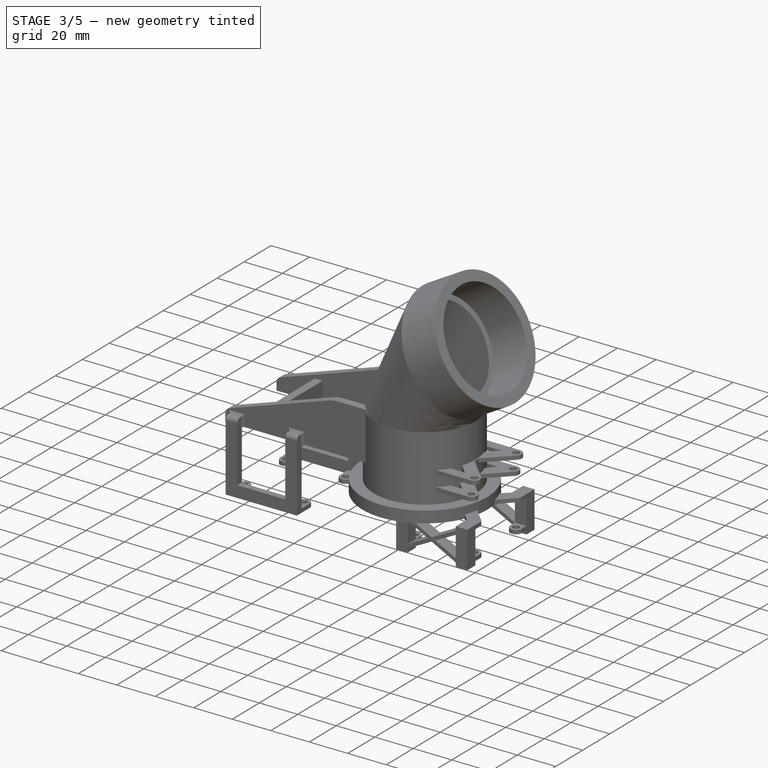
[diagram: stage 3 of 5 — iso view after this stage's code; geometry added in this stage tinted green]
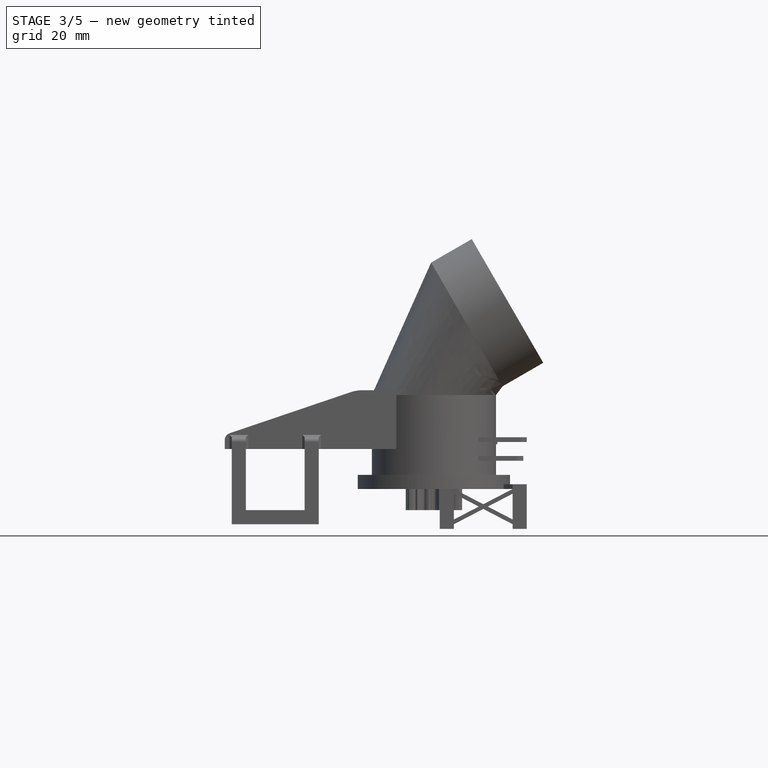
[diagram: stage 3 of 5 — front view after this stage's code; geometry added in this stage tinted green]
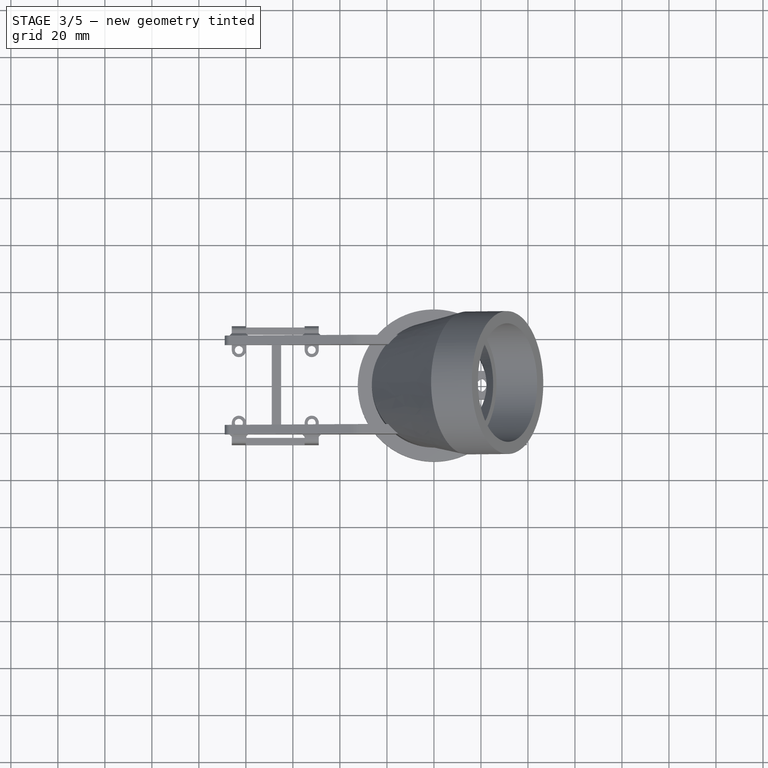
[diagram: stage 3 of 5 — top view after this stage's code; geometry added in this stage tinted green]
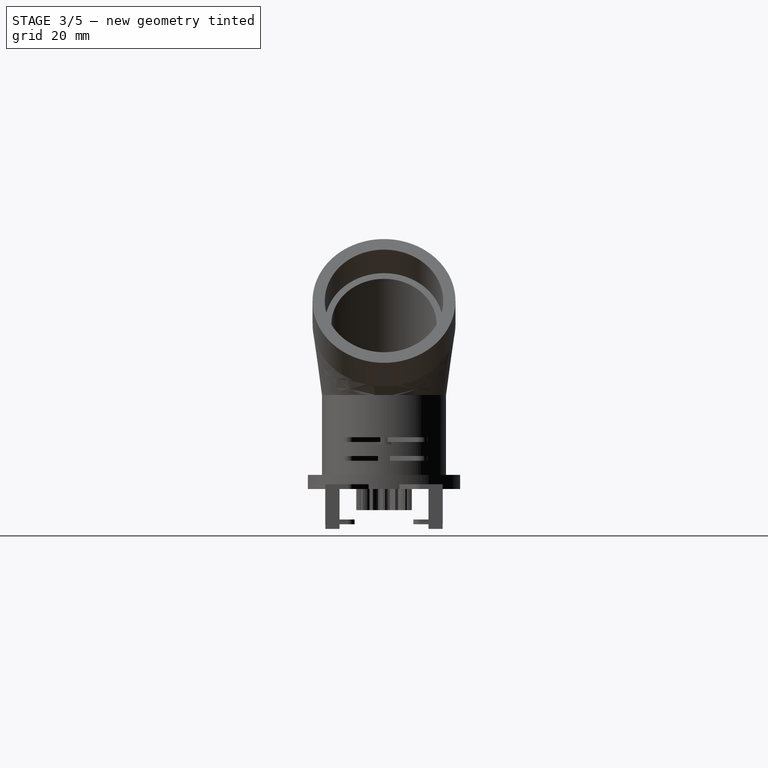
[diagram: stage 3 of 5 — right view after this stage's code; geometry added in this stage tinted green]
FEATURE [PartDesign::Body] Body008  label="Body008: Half clamp"
  Group = -> [Sketch033,Revolution001,Sketch035,Pad015,Sketch034,Pocket,Sketch037,Pocket001]
  Origin = -> Origin009
  Placement = pos=(0,0,-0.5) rot=(0,0,1;0rad)
  Tip = -> Pocket001
FEATURE [Sketcher::SketchObject] Sketch038
  FullyConstrained = true
  MapMode = 5
  Support = -> [XY_Plane011]
  sketch-geometry (3):
    g0: Circle CenterX=0 CenterY=0 CenterZ=0 NormalX=0 NormalY=0 NormalZ=1 AngleXU=0 Radius=26.4
    g1: Circle CenterX=0 CenterY=0 CenterZ=0 NormalX=0 NormalY=0 NormalZ=1 AngleXU=0 Radius=22.4
    g2: LineSegment StartX=22.4 StartY=0 StartZ=0 EndX=26.4 EndY=0 EndZ=0
  constraints (8):
    c: Coincident(g0,g-1)
    c: Coincident(g1,g0)
    c: PointOnObject(g2,g1)
    c: PointOnObject(g2,g0)
    c: Horizontal(g2)
    c: Distance(g2) = 4
    c: PointOnObject(g2,g-1)
    c: Diameter(g1) = 44.8
FEATURE [Sketcher::SketchObject] Sketch039  label="Sketch copy001"
  AttachmentOffset = pos=(0,0,40) rot=(0,0,1;0rad)
  FullyConstrained = true
  MapMode = 5
  Placement = pos=(0,0,40) rot=(0,0,1;0rad)
  Support = -> [XY_Plane011]
  sketch-geometry (3):
    g0: Circle CenterX=0 CenterY=0 CenterZ=0 NormalX=0 NormalY=0 NormalZ=1 AngleXU=0 Radius=26.4
    g1: Circle CenterX=0 CenterY=0 CenterZ=0 NormalX=0 NormalY=0 NormalZ=1 AngleXU=0 Radius=22.4
    g2: LineSegment StartX=22.4 StartY=0 StartZ=0 EndX=26.4 EndY=0 EndZ=0
  constraints (8):
    c: Coincident(g0,g-1)
    c: Coincident(g1,g0)
    c: PointOnObject(g2,g1)
    c: PointOnObject(g2,g0)
    c: Horizontal(g2)
    c: Distance(g2) = 4
    c: PointOnObject(g2,g-1)
    c: Diameter(g1) = 44.8
FEATURE [PartDesign::AdditiveLoft] AdditiveLoft002
  Closed = false
  Profile = -> Sketch038
  Ruled = false
  Sections = -> [Sketch039]
FEATURE [Sketcher::SketchObject] Sketch040  label="Sketch copy 003"
  AttachmentOffset = pos=(14,0,30) rot=(0,1,0;1.0472rad)
  FullyConstrained = true
  MapMode = 5
  Placement = pos=(14,0,70) rot=(0,1,0;1.0472rad)
  Support = -> [AdditiveLoft002]
  sketch-geometry (3):
    g0: Circle CenterX=0 CenterY=0 CenterZ=0 NormalX=0 NormalY=0 NormalZ=1 AngleXU=0 Radius=30.4
    g1: Circle CenterX=0 CenterY=0 CenterZ=0 NormalX=0 NormalY=0 NormalZ=1 AngleXU=0 Radius=22.4
    g2: LineSegment StartX=22.4 StartY=0 StartZ=0 EndX=30.4 EndY=0 EndZ=0
  constraints (8):
    c: Coincident(g0,g-1)
    c: Coincident(g1,g0)
    c: PointOnObject(g2,g1)
    c: PointOnObject(g2,g0)
    c: Horizontal(g2)
    c: Distance(g2) = 8
    c: PointOnObject(g2,g-1)
    c: Diameter(g1) = 44.8
FEATURE [PartDesign::AdditiveLoft] AdditiveLoft003
  BaseFeature = -> AdditiveLoft002
  Closed = false
  Profile = -> AdditiveLoft002 [Face3]
  Ruled = false
  Sections = -> [Sketch040]
FEATURE [PartDesign::Plane] DatumPlane001
  Length = 86.4878
  MapMode = 11
  Placement = pos=(14,0,70) rot=(0.447214,0.447214,0.774597;1.82348rad)
  ResizeMode = 0
  Support = -> [AdditiveLoft003]
  Width = 203.153
FEATURE [Sketcher::SketchObject] Sketch041
  FullyConstrained = true
  MapMode = 5
  Placement = pos=(14,0,70) rot=(0.447214,0.447214,0.774597;1.82348rad)
  Support = -> [DatumPlane001]
  sketch-geometry (2):
    g0: Circle CenterX=0 CenterY=0 CenterZ=0 NormalX=0 NormalY=0 NormalZ=1 AngleXU=0 Radius=25.2
    g1: Circle CenterX=0 CenterY=0 CenterZ=0 NormalX=0 NormalY=0 NormalZ=1 AngleXU=0 Radius=30.4
  constraints (4):
    c: Coincident(g0,g-1)
    c: Diameter(g0) = 50.4
    c: Coincident(g1,g0)
    c: Diameter(g1) = 60.8
FEATURE [PartDesign::Pad] Pad016
  BaseFeature = -> AdditiveLoft003
  Direction = (0.866025,2e-16,0.5)
  Length = 20
  Length2 = 10
  Profile = -> Sketch041
  ReferenceAxis = -> Sketch041 [N_Axis]
  Type = 0
FEATURE [Sketcher::SketchObject] Sketch042
  FullyConstrained = true
  MapMode = 5
  Placement = pos=(0,0,0) rot=(0.57735,0.57735,0.57735;2.0944rad)
  Support = -> [YZ_Plane011]
  sketch-geometry (5):
    g0: LineSegment StartX=26.4 StartY=0 StartZ=0 EndX=0 EndY=0 EndZ=0
    g1: LineSegment StartX=26.4 StartY=0 StartZ=0 EndX=32.4 EndY=0 EndZ=0
    g2: LineSegment StartX=32.4 StartY=0 StartZ=0 EndX=32.4 EndY=6 EndZ=0
    g3: LineSegment StartX=26.4 StartY=0 StartZ=0 EndX=26.4 EndY=6 EndZ=0
    g4: LineSegment StartX=26.4 StartY=6 StartZ=0 EndX=32.4 EndY=6 EndZ=0
  constraints (14):
    c: PointOnObject(g0,g-1)
    c: Coincident(g0,g-1)
    c: Distance(g0) = 26.4
    c: Coincident(g1,g0)
    c: PointOnObject(g1,g-1)
    c: Distance(g1) = 6
    c: Coincident(g2,g1)
    c: Vertical(g2)
    c: Distance(g2) = 6
    c: Coincident(g3,g1)
    c: Vertical(g3)
    c: Coincident(g4,g3)
    c: Coincident(g4,g2)
    c: Horizontal(g4)
FEATURE [PartDesign::Revolution] Revolution003
  Angle = 360
  Axis = (-2e-16,3e-16,1)
  Base = (0,0,0)
  BaseFeature = -> Pad016
  Profile = -> Sketch042
  ReferenceAxis = -> Sketch042 [V_Axis]
  Reversed = true
FEATURE [PartDesign::Body] Body017  label="Body017: Pinion SX17"
  Group = -> [InvoluteGear,Sketch075,Pad032]
  Origin = -> Origin020
  Placement = pos=(67.5,0,18) rot=(0,0,-1;1.5708rad)
  Tip = -> Pad032
FEATURE [Sketcher::SketchObject] Sketch076
  AttachmentOffset = pos=(0,0,-21) rot=(0,0,1;0rad)
  FullyConstrained = true
  MapMode = 5
  Placement = pos=(0,21,4.7e-15) rot=(1,0,0;1.5708rad)
  Support = -> [XZ_Plane011]
  sketch-geometry (9):
    g0: LineSegment StartX=-15 StartY=17 StartZ=0 EndX=-89 EndY=17 EndZ=0
    g1: LineSegment StartX=-89 StartY=17 StartZ=0 EndX=-89 EndY=20.8499 EndZ=0
    g2: LineSegment StartX=-86.9639 StartY=23.6908 StartZ=0 EndX=-35.3441 EndY=41.2047 EndZ=0
    g3: LineSegment StartX=-30.5247 StartY=42 StartZ=0 EndX=-15 EndY=42 EndZ=0
    g4: LineSegment StartX=-15 StartY=42 StartZ=0 EndX=-15 EndY=17 EndZ=0
    g5: ArcOfCircle CenterX=-86 CenterY=20.8499 CenterZ=0 NormalX=0 NormalY=0 NormalZ=1 AngleXU=0 Radius=3 StartAngle=1.89789 EndAngle=3.14159
    g6: GeomPoint X=-89 Y=23 Z=0
    g7: ArcOfCircle CenterX=-30.5247 CenterY=27 CenterZ=0 NormalX=0 NormalY=0 NormalZ=1 AngleXU=0 Radius=15 StartAngle=1.5708 EndAngle=1.89789
    g8: GeomPoint X=-33 Y=42 Z=0
  constraints (23):
    c: Horizontal(g0)
    c: Coincident(g1,g0)
    c: Vertical(g1)
    c: Horizontal(g3)
    c: Coincident(g4,g3)
    c: Coincident(g4,g0)
    c: Vertical(g4)
    c: PointOnObject(g6,g1)
    c: PointOnObject(g6,g2)
    c: Tangent(g1,g5) = 1.5708
    c: Tangent(g2,g5) = 1.5708
    c: PointOnObject(g8,g2)
    c: PointOnObject(g8,g3)
    c: Tangent(g2,g7) = 1.5708
    c: Tangent(g3,g7) = 1.5708
    c: Distance(g0) = 74
    c: DistanceX(g0,g-1) = 15
    c: DistanceY(g-1,g3) = 42
    c: Distance(g6,g0) = 6
    c: DistanceY(g-1,g0) = 17
    c: Distance(g8,g3) = 18
    c: Radius(g5) = 3
    c: Radius(g7) = 15
FEATURE [Sketcher::SketchObject] Sketch077
  AttachmentOffset = pos=(0,0,21) rot=(0,0,1;0rad)
  FullyConstrained = true
  MapMode = 5
  Placement = pos=(0,-21,-4.7e-15) rot=(1,0,0;1.5708rad)
  Support = -> [XZ_Plane011]
  sketch-geometry (9):
    g0: LineSegment StartX=-15 StartY=17 StartZ=0 EndX=-89 EndY=17 EndZ=0
    g1: LineSegment StartX=-89 StartY=17 StartZ=0 EndX=-89 EndY=20.8499 EndZ=0
    g2: LineSegment StartX=-86.9639 StartY=23.6908 StartZ=0 EndX=-35.3441 EndY=41.2047 EndZ=0
    g3: LineSegment StartX=-30.5247 StartY=42 StartZ=0 EndX=-15 EndY=42 EndZ=0
    g4: LineSegment StartX=-15 StartY=42 StartZ=0 EndX=-15 EndY=17 EndZ=0
    g5: ArcOfCircle CenterX=-86 CenterY=20.8499 CenterZ=0 NormalX=0 NormalY=0 NormalZ=1 AngleXU=0 Radius=3 StartAngle=1.89789 EndAngle=3.14159
    g6: GeomPoint X=-89 Y=23 Z=0
    g7: ArcOfCircle CenterX=-30.5247 CenterY=27 CenterZ=0 NormalX=0 NormalY=0 NormalZ=1 AngleXU=0 Radius=15 StartAngle=1.5708 EndAngle=1.89789
    g8: GeomPoint X=-33 Y=42 Z=0
  constraints (23):
    c: Horizontal(g0)
    c: Coincident(g1,g0)
    c: Vertical(g1)
    c: Horizontal(g3)
    c: Coincident(g4,g3)
    c: Coincident(g4,g0)
    c: Vertical(g4)
    c: PointOnObject(g6,g1)
    c: PointOnObject(g6,g2)
    c: Tangent(g1,g5) = 1.5708
    c: Tangent(g2,g5) = 1.5708
    c: PointOnObject(g8,g2)
    c: PointOnObject(g8,g3)
    c: Tangent(g2,g7) = 1.5708
    c: Tangent(g3,g7) = 1.5708
    c: Distance(g0) = 74
    c: DistanceX(g0,g-1) = 15
    c: DistanceY(g-1,g3) = 42
    c: Distance(g6,g0) = 6
    c: DistanceY(g-1,g0) = 17
    c: Distance(g8,g3) = 18
    c: Radius(g5) = 3
    c: Radius(g7) = 15
FEATURE [PartDesign::Pad] Pad033
  BaseFeature = -> Revolution003
  Direction = (0,-1,-2e-16)
  Length = 4
  Length2 = 10
  Profile = -> Sketch076
  ReferenceAxis = -> Sketch076 [N_Axis]
  Type = 0
FEATURE [PartDesign::Pad] Pad034
  BaseFeature = -> Pad033
  Direction = (0,-1,-2e-16)
  Length = 4
  Length2 = 10
  Profile = -> Sketch077
  ReferenceAxis = -> Sketch077 [N_Axis]
  Reversed = true
  Type = 0
FEATURE [PartDesign::Body] Body010  label="Body: Bottom SX17"
  Group = -> [Sketch038,Sketch039,Sketch040,AdditiveLoft002,AdditiveLoft003,DatumPlane001,Sketch041,Pad016,Sketch042,Revolution003,Sketch076,Sketch077,Pad033,Pad034,Sketch078,Pad035,Sketch079,Pad036,Chamfer,Fillet,Sketch080,Pad037,MultiTransform,LinearPattern,Mirrored]
  Origin = -> Origin011
  Placement = pos=(0,0,-1) rot=(0,1,0;3.14159rad)
  Tip = -> MultiTransform
FEATURE [Part::Part2DObjectPython] InvoluteGear001  # Draft 2D object (typed FeaturePython)
  ExternalGear = true
  HighPrecision = true
  Modules = 1.5
  NumberOfTeeth = 10
  PressureAngle = 20
FEATURE [Sketcher::SketchObject] Sketch081
  FullyConstrained = false
  sketch-geometry (100):
    g0: LineSegment StartX=6.07097 StartY=-1.05453 StartZ=0 EndX=6.96698 EndY=-1.20884 EndZ=0
    g1: BSplineCurve PolesCount=4 KnotsCount=2 Degree=3 IsPeriodic=0
    g2: BSplineCurve PolesCount=4 KnotsCount=2 Degree=3 IsPeriodic=0
    g3: ArcOfCircle CenterX=0.00229992 CenterY=0 CenterZ=0 NormalX=0 NormalY=0 NormalZ=1 AngleXU=-0.0488601 Radius=9 StartAngle=0 EndAngle=0.0977202
    g4: BSplineCurve PolesCount=4 KnotsCount=2 Degree=3 IsPeriodic=0
    g5: BSplineCurve PolesCount=4 KnotsCount=2 Degree=3 IsPeriodic=0
    g6: LineSegment StartX=6.96698 StartY=1.20884 StartZ=0 EndX=6.07097 EndY=1.05453 EndZ=0
    g7: ArcOfCircle CenterX=5.9747 CenterY=1.60873 CenterZ=0 NormalX=0 NormalY=0 NormalZ=1 AngleXU=-1.3988 Radius=0.5625 StartAngle=4.80717 EndAngle=6.28319
    g8: ArcOfCircle CenterX=-1.465e-13 CenterY=-4.59e-14 CenterZ=0 NormalX=0 NormalY=0 NormalZ=1 AngleXU=0.262644 Radius=5.625 StartAngle=0 EndAngle=0.103031
    g9: ArcOfCircle CenterX=5.77922 CenterY=2.21035 CenterZ=0 NormalX=0 NormalY=0 NormalZ=1 AngleXU=-2.78004 Radius=0.5625 StartAngle=4.80717 EndAngle=6.28319
    g10: LineSegment StartX=5.53136 StartY=2.7153 StartZ=0 EndX=6.34695 EndY=3.11712 EndZ=0
    g11: BSplineCurve PolesCount=4 KnotsCount=2 Degree=3 IsPeriodic=0
    g12: BSplineCurve PolesCount=4 KnotsCount=2 Degree=3 IsPeriodic=0
    g13: ArcOfCircle CenterX=0.00186068 CenterY=0.00135186 CenterZ=0 NormalX=0 NormalY=0 NormalZ=1 AngleXU=0.579458 Radius=9 StartAngle=0 EndAngle=0.0977202
    g14: BSplineCurve PolesCount=4 KnotsCount=2 Degree=3 IsPeriodic=0
    g15: BSplineCurve PolesCount=4 KnotsCount=2 Degree=3 IsPeriodic=0
    g16: LineSegment StartX=4.92587 StartY=5.07306 StartZ=0 EndX=4.29168 EndY=4.42156 EndZ=0
    g17: ArcOfCircle CenterX=3.88805 CenterY=4.81333 CenterZ=0 NormalX=0 NormalY=0 NormalZ=1 AngleXU=-0.770486 Radius=0.5625 StartAngle=4.80717 EndAngle=6.28319
    g18: ArcOfCircle CenterX=-5.358e-13 CenterY=-7.252e-13 CenterZ=0 NormalX=0 NormalY=0 NormalZ=1 AngleXU=0.890962 Radius=5.625 StartAngle=0 EndAngle=0.103031
    g19: ArcOfCircle CenterX=3.37628 CenterY=5.18516 CenterZ=0 NormalX=0 NormalY=0 NormalZ=1 AngleXU=-2.15172 Radius=0.5625 StartAngle=4.80717 EndAngle=6.28319
    g20: LineSegment StartX=2.87895 StartY=5.44797 StartZ=0 EndX=3.30259 EndY=6.25244 EndZ=0
    g21: BSplineCurve PolesCount=4 KnotsCount=2 Degree=3 IsPeriodic=0
    g22: BSplineCurve PolesCount=4 KnotsCount=2 Degree=3 IsPeriodic=0
    g23: ArcOfCircle CenterX=0.000710715 CenterY=0.00218735 CenterZ=0 NormalX=0 NormalY=0 NormalZ=1 AngleXU=1.20778 Radius=9 StartAngle=0 EndAngle=0.0977202
    g24: BSplineCurve PolesCount=4 KnotsCount=2 Degree=3 IsPeriodic=0
    g25: BSplineCurve PolesCount=4 KnotsCount=2 Degree=3 IsPeriodic=0
    g26: LineSegment StartX=1.00324 StartY=6.99955 StartZ=0 EndX=0.873118 EndY=6.09971 EndZ=0
    g27: ArcOfCircle CenterX=0.316293 CenterY=6.17941 CenterZ=0 NormalX=0 NormalY=0 NormalZ=1 AngleXU=-0.142167 Radius=0.5625 StartAngle=4.80717 EndAngle=6.28319
    g28: ArcOfCircle CenterX=2e-16 CenterY=-1.239e-12 CenterZ=0 NormalX=0 NormalY=0 NormalZ=1 AngleXU=1.51928 Radius=5.625 StartAngle=0 EndAngle=0.103031
    g29: ArcOfCircle CenterX=-0.316293 CenterY=6.17941 CenterZ=0 NormalX=0 NormalY=0 NormalZ=1 AngleXU=-1.52341 Radius=0.5625 StartAngle=4.80717 EndAngle=6.28319
    g30: LineSegment StartX=-0.873118 StartY=6.09971 StartZ=0 EndX=-1.00324 EndY=6.99955 EndZ=0
    g31: BSplineCurve PolesCount=4 KnotsCount=2 Degree=3 IsPeriodic=0
    g32: BSplineCurve PolesCount=4 KnotsCount=2 Degree=3 IsPeriodic=0
    g33: ArcOfCircle CenterX=-0.000710715 CenterY=0.00218735 CenterZ=0 NormalX=0 NormalY=0 NormalZ=1 AngleXU=1.8361 Radius=9 StartAngle=0 EndAngle=0.0977202
    g34: BSplineCurve PolesCount=4 KnotsCount=2 Degree=3 IsPeriodic=0
    g35: BSplineCurve PolesCount=4 KnotsCount=2 Degree=3 IsPeriodic=0
    g36: LineSegment StartX=-3.30259 StartY=6.25244 StartZ=0 EndX=-2.87895 EndY=5.44797 EndZ=0
    g37: ArcOfCircle CenterX=-3.37628 CenterY=5.18516 CenterZ=0 NormalX=0 NormalY=0 NormalZ=1 AngleXU=0.486151 Radius=0.5625 StartAngle=4.80717 EndAngle=6.28319
    g38: ArcOfCircle CenterX=1.836e-13 CenterY=-2.554e-13 CenterZ=0 NormalX=0 NormalY=0 NormalZ=1 AngleXU=2.1476 Radius=5.625 StartAngle=0 EndAngle=0.103031
    g39: ArcOfCircle CenterX=-3.88805 CenterY=4.81333 CenterZ=0 NormalX=0 NormalY=0 NormalZ=1 AngleXU=-0.895087 Radius=0.5625 StartAngle=4.80717 EndAngle=6.28319
    g40: LineSegment StartX=-4.29168 StartY=4.42156 StartZ=0 EndX=-4.92587 EndY=5.07306 EndZ=0
    g41: BSplineCurve PolesCount=4 KnotsCount=2 Degree=3 IsPeriodic=0
    g42: BSplineCurve PolesCount=4 KnotsCount=2 Degree=3 IsPeriodic=0
    g43: ArcOfCircle CenterX=-0.00186068 CenterY=0.00135186 CenterZ=0 NormalX=0 NormalY=0 NormalZ=1 AngleXU=2.46441 Radius=9 StartAngle=0 EndAngle=0.0977202
    g44: BSplineCurve PolesCount=4 KnotsCount=2 Degree=3 IsPeriodic=0
    g45: BSplineCurve PolesCount=4 KnotsCount=2 Degree=3 IsPeriodic=0
    g46: LineSegment StartX=-6.34695 StartY=3.11712 StartZ=0 EndX=-5.53136 EndY=2.7153 EndZ=0
    g47: ArcOfCircle CenterX=-5.77922 CenterY=2.21035 CenterZ=0 NormalX=0 NormalY=0 NormalZ=1 AngleXU=1.11447 Radius=0.5625 StartAngle=4.80717 EndAngle=6.28319
    g48: ArcOfCircle CenterX=-3.46e-14 CenterY=1.38e-14 CenterZ=0 NormalX=0 NormalY=0 NormalZ=1 AngleXU=2.77592 Radius=5.625 StartAngle=0 EndAngle=0.103031
    g49: ArcOfCircle CenterX=-5.9747 CenterY=1.60873 CenterZ=0 NormalX=0 NormalY=0 NormalZ=1 AngleXU=-0.266768 Radius=0.5625 StartAngle=4.80717 EndAngle=6.28319
    g50: LineSegment StartX=-6.07097 StartY=1.05453 StartZ=0 EndX=-6.96698 EndY=1.20884 EndZ=0
    g51: BSplineCurve PolesCount=4 KnotsCount=2 Degree=3 IsPeriodic=0
    g52: BSplineCurve PolesCount=4 KnotsCount=2 Degree=3 IsPeriodic=0
    g53: ArcOfCircle CenterX=-0.00229992 CenterY=1.1e-15 CenterZ=0 NormalX=0 NormalY=0 NormalZ=1 AngleXU=3.09273 Radius=9 StartAngle=0 EndAngle=0.0977202
    g54: BSplineCurve PolesCount=4 KnotsCount=2 Degree=3 IsPeriodic=0
    g55: BSplineCurve PolesCount=4 KnotsCount=2 Degree=3 IsPeriodic=0
    g56: LineSegment StartX=-6.96698 StartY=-1.20884 StartZ=0 EndX=-6.07097 EndY=-1.05453 EndZ=0
    g57: ArcOfCircle CenterX=-5.9747 CenterY=-1.60873 CenterZ=0 NormalX=0 NormalY=0 NormalZ=1 AngleXU=1.74279 Radius=0.5625 StartAngle=4.80717 EndAngle=6.28319
    g58: ArcOfCircle CenterX=1.072e-12 CenterY=3.464e-13 CenterZ=0 NormalX=0 NormalY=0 NormalZ=1 AngleXU=-2.87895 Radius=5.625 StartAngle=0 EndAngle=0.103031
    g59: ArcOfCircle CenterX=-5.77922 CenterY=-2.21035 CenterZ=0 NormalX=0 NormalY=0 NormalZ=1 AngleXU=0.36155 Radius=0.5625 StartAngle=4.80717 EndAngle=6.28319
    g60: LineSegment StartX=-5.53136 StartY=-2.7153 StartZ=0 EndX=-6.34695 EndY=-3.11712 EndZ=0
    g61: BSplineCurve PolesCount=4 KnotsCount=2 Degree=3 IsPeriodic=0
    g62: BSplineCurve PolesCount=4 KnotsCount=2 Degree=3 IsPeriodic=0
    g63: ArcOfCircle CenterX=-0.00186068 CenterY=-0.00135186 CenterZ=0 NormalX=0 NormalY=0 NormalZ=1 AngleXU=-2.56213 Radius=9 StartAngle=0 EndAngle=0.0977202
    g64: BSplineCurve PolesCount=4 KnotsCount=2 Degree=3 IsPeriodic=0
    g65: BSplineCurve PolesCount=4 KnotsCount=2 Degree=3 IsPeriodic=0
    g66: LineSegment StartX=-4.92587 StartY=-5.07306 StartZ=0 EndX=-4.29168 EndY=-4.42156 EndZ=0
    g67: ArcOfCircle CenterX=-3.88805 CenterY=-4.81333 CenterZ=0 NormalX=0 NormalY=0 NormalZ=1 AngleXU=2.37111 Radius=0.5625 StartAngle=4.80717 EndAngle=6.28319
    g68: ArcOfCircle CenterX=1.354e-13 CenterY=1.75e-13 CenterZ=0 NormalX=0 NormalY=0 NormalZ=1 AngleXU=-2.25063 Radius=5.625 StartAngle=0 EndAngle=0.103031
    g69: ArcOfCircle CenterX=-3.37628 CenterY=-5.18516 CenterZ=0 NormalX=0 NormalY=0 NormalZ=1 AngleXU=0.989869 Radius=0.5625 StartAngle=4.80717 EndAngle=6.28319
    g70: LineSegment StartX=-2.87895 StartY=-5.44797 StartZ=0 EndX=-3.30259 EndY=-6.25244 EndZ=0
    g71: BSplineCurve PolesCount=4 KnotsCount=2 Degree=3 IsPeriodic=0
    g72: BSplineCurve PolesCount=4 KnotsCount=2 Degree=3 IsPeriodic=0
    g73: ArcOfCircle CenterX=-0.000710715 CenterY=-0.00218735 CenterZ=0 NormalX=0 NormalY=0 NormalZ=1 AngleXU=-1.93382 Radius=9 StartAngle=0 EndAngle=0.0977202
    g74: BSplineCurve PolesCount=4 KnotsCount=2 Degree=3 IsPeriodic=0
    g75: BSplineCurve PolesCount=4 KnotsCount=2 Degree=3 IsPeriodic=0
    g76: LineSegment StartX=-1.00324 StartY=-6.99955 StartZ=0 EndX=-0.873118 EndY=-6.09971 EndZ=0
    g77: ArcOfCircle CenterX=-0.316293 CenterY=-6.17941 CenterZ=0 NormalX=0 NormalY=0 NormalZ=1 AngleXU=2.99943 Radius=0.5625 StartAngle=4.80717 EndAngle=6.28319
    g78: ArcOfCircle CenterX=-8e-16 CenterY=1.239e-12 CenterZ=0 NormalX=0 NormalY=0 NormalZ=1 AngleXU=-1.62231 Radius=5.625 StartAngle=0 EndAngle=0.103031
    g79: ArcOfCircle CenterX=0.316293 CenterY=-6.17941 CenterZ=0 NormalX=0 NormalY=0 NormalZ=1 AngleXU=1.61819 Radius=0.5625 StartAngle=4.80717 EndAngle=6.28319
    g80: LineSegment StartX=0.873118 StartY=-6.09971 StartZ=0 EndX=1.00324 EndY=-6.99955 EndZ=0
    g81: BSplineCurve PolesCount=4 KnotsCount=2 Degree=3 IsPeriodic=0
    g82: BSplineCurve PolesCount=4 KnotsCount=2 Degree=3 IsPeriodic=0
    g83: ArcOfCircle CenterX=0.000710715 CenterY=-0.00218735 CenterZ=0 NormalX=0 NormalY=0 NormalZ=1 AngleXU=-1.3055 Radius=9 StartAngle=0 EndAngle=0.0977202
    g84: BSplineCurve PolesCount=4 KnotsCount=2 Degree=3 IsPeriodic=0
    g85: BSplineCurve PolesCount=4 KnotsCount=2 Degree=3 IsPeriodic=0
    g86: LineSegment StartX=3.30259 StartY=-6.25244 StartZ=0 EndX=2.87895 EndY=-5.44797 EndZ=0
    g87: ArcOfCircle CenterX=3.37628 CenterY=-5.18516 CenterZ=0 NormalX=0 NormalY=0 NormalZ=1 AngleXU=-2.65544 Radius=0.5625 StartAngle=4.80717 EndAngle=6.28319
    g88: ArcOfCircle CenterX=-2.48e-13 CenterY=3.397e-13 CenterZ=0 NormalX=0 NormalY=0 NormalZ=1 AngleXU=-0.993993 Radius=5.625 StartAngle=0 EndAngle=0.103031
    g89: ArcOfCircle CenterX=3.88805 CenterY=-4.81333 CenterZ=0 NormalX=0 NormalY=0 NormalZ=1 AngleXU=2.24651 Radius=0.5625 StartAngle=4.80717 EndAngle=6.28319
    g90: LineSegment StartX=4.29168 StartY=-4.42156 StartZ=0 EndX=4.92587 EndY=-5.07306 EndZ=0
    g91: BSplineCurve PolesCount=4 KnotsCount=2 Degree=3 IsPeriodic=0
    g92: BSplineCurve PolesCount=4 KnotsCount=2 Degree=3 IsPeriodic=0
    g93: ArcOfCircle CenterX=0.00186068 CenterY=-0.00135186 CenterZ=0 NormalX=0 NormalY=0 NormalZ=1 AngleXU=-0.677179 Radius=9 StartAngle=0 EndAngle=0.0977202
    g94: BSplineCurve PolesCount=4 KnotsCount=2 Degree=3 IsPeriodic=0
    g95: BSplineCurve PolesCount=4 KnotsCount=2 Degree=3 IsPeriodic=0
    g96: LineSegment StartX=6.34695 StartY=-3.11712 StartZ=0 EndX=5.53136 EndY=-2.7153 EndZ=0
    g97: ArcOfCircle CenterX=5.77922 CenterY=-2.21035 CenterZ=0 NormalX=0 NormalY=0 NormalZ=1 AngleXU=-2.02712 Radius=0.5625 StartAngle=4.80717 EndAngle=6.28319
    g98: ArcOfCircle CenterX=1.918e-13 CenterY=-5.7e-14 CenterZ=0 NormalX=0 NormalY=0 NormalZ=1 AngleXU=-0.365675 Radius=5.625 StartAngle=0 EndAngle=0.103031
    g99: ArcOfCircle CenterX=5.9747 CenterY=-1.60873 CenterZ=0 NormalX=0 NormalY=0 NormalZ=1 AngleXU=2.87482 Radius=0.5625 StartAngle=4.80717 EndAngle=6.28319
  constraints (100):
    c: Coincident(g0,g1)
    c: Coincident(g1,g2)
    c: Coincident(g2,g3)
    c: Coincident(g3,g4)
    c: Coincident(g4,g5)
    c: Coincident(g5,g6)
    c: Coincident(g6,g7)
    c: Coincident(g7,g8)
    c: Coincident(g8,g9)
    c: Coincident(g9,g10)
    c: Coincident(g10,g11)
    c: Coincident(g11,g12)
    c: Coincident(g12,g13)
    c: Coincident(g13,g14)
    c: Coincident(g14,g15)
    c: Coincident(g15,g16)
    c: Coincident(g16,g17)
    c: Coincident(g17,g18)
    c: Coincident(g18,g19)
    c: Coincident(g19,g20)
    c: Coincident(g20,g21)
    c: Coincident(g21,g22)
    c: Coincident(g22,g23)
    c: Coincident(g23,g24)
    c: Coincident(g24,g25)
    c: Coincident(g25,g26)
    c: Coincident(g26,g27)
    c: Coincident(g27,g28)
    c: Coincident(g28,g29)
    c: Coincident(g29,g30)
    c: Coincident(g30,g31)
    c: Coincident(g31,g32)
    c: Coincident(g32,g33)
    c: Coincident(g33,g34)
    c: Coincident(g34,g35)
    c: Coincident(g35,g36)
    c: Coincident(g36,g37)
    c: Coincident(g37,g38)
    c: Coincident(g38,g39)
    c: Coincident(g39,g40)
    c: Coincident(g40,g41)
    c: Coincident(g41,g42)
    c: Coincident(g42,g43)
    c: Coincident(g43,g44)
    c: Coincident(g44,g45)
    c: Coincident(g45,g46)
    c: Coincident(g46,g47)
    c: Coincident(g47,g48)
    c: Coincident(g48,g49)
    c: Coincident(g49,g50)
    c: Coincident(g50,g51)
    c: Coincident(g51,g52)
    c: Coincident(g52,g53)
    c: Coincident(g53,g54)
    c: Coincident(g54,g55)
    c: Coincident(g55,g56)
    c: Coincident(g56,g57)
    c: Coincident(g57,g58)
    c: Coincident(g58,g59)
    c: Coincident(g59,g60)
    c: Coincident(g60,g61)
    c: Coincident(g61,g62)
    c: Coincident(g62,g63)
    c: Coincident(g63,g64)
    c: Coincident(g64,g65)
    c: Coincident(g65,g66)
    c: Coincident(g66,g67)
    c: Coincident(g67,g68)
    c: Coincident(g68,g69)
    c: Coincident(g69,g70)
    c: Coincident(g70,g71)
    c: Coincident(g71,g72)
    c: Coincident(g72,g73)
    c: Coincident(g73,g74)
    c: Coincident(g74,g75)
    c: Coincident(g75,g76)
    c: Coincident(g76,g77)
    c: Coincident(g77,g78)
    c: Coincident(g78,g79)
    c: Coincident(g79,g80)
    c: Coincident(g80,g81)
    c: Coincident(g81,g82)
    c: Coincident(g82,g83)
    c: Coincident(g83,g84)
    c: Coincident(g84,g85)
    c: Coincident(g85,g86)
    c: Coincident(g86,g87)
    c: Coincident(g87,g88)
    c: Coincident(g88,g89)
    c: Coincident(g89,g90)
    c: Coincident(g90,g91)
    c: Coincident(g91,g92)
    c: Coincident(g92,g93)
    c: Coincident(g93,g94)
    c: Coincident(g94,g95)
    c: Coincident(g95,g96)
    c: Coincident(g96,g97)
    c: Coincident(g97,g98)
    c: Coincident(g98,g99)
    c: Coincident(g99,g0)
FEATURE [PartDesign::Pad] Pad038
  Direction = (0,0,1)
  Length = 6
  Length2 = 10
  Profile = -> Sketch081
  ReferenceAxis = -> Sketch081 [N_Axis]
  Type = 0
FEATURE [Sketcher::SketchObject] Sketch082
  FullyConstrained = true
  MapMode = 5
  Placement = pos=(0,0,6) rot=(0,0,1;0rad)
  Support = -> [Pad038]
  sketch-geometry (3):
    g0: ArcOfCircle CenterX=0 CenterY=0 CenterZ=0 NormalX=0 NormalY=0 NormalZ=1 AngleXU=0 Radius=2.7 StartAngle=2.30742 EndAngle=7.11736
    g1: LineSegment StartX=-1.81384 StartY=2 StartZ=0 EndX=1.81384 EndY=2 EndZ=0
    g2: GeomPoint X=0 Y=-2.7 Z=0
  constraints (8):
    c: Coincident(g0,g-1)
    c: Horizontal(g1)
    c: PointOnObject(g2,g0)
    c: PointOnObject(g2,g-2)
    c: Coincident(g0,g1)
    c: Coincident(g0,g1)
    c: Distance(g2,g1) = 4.7
    c: Diameter(g0) = 5.4
FEATURE [PartDesign::Pocket] Pocket011
  BaseFeature = -> Pad038
  Direction = (0,0,-1)
  Length = 5
  Length2 = 5
  Profile = -> Sketch082
  ReferenceAxis = -> Sketch082 [N_Axis]
  Type = 1
FEATURE [PartDesign::Body] Body018  label="Body017: Pinion SX17 Compound"
  Group = -> [InvoluteGear001,Sketch081,Pad038,Sketch082,Pocket011]
  Origin = -> Origin021
  Placement = pos=(67.5,0,16) rot=(0,0,-1;1.5708rad)
  Tip = -> Pocket011
FEATURE [Part::Part2DObjectPython] InvoluteGear002  # Draft 2D object (typed FeaturePython)
  ExternalGear = true
  HighPrecision = true
  Modules = 1.5
  NumberOfTeeth = 18
  PressureAngle = 20
FEATURE [Part::Part2DObjectPython] InvoluteGear003  # Draft 2D object (typed FeaturePython)
  ExternalGear = true
  HighPrecision = true
  Modules = 1.5
  NumberOfTeeth = 14
  PressureAngle = 20
FEATURE [Sketcher::SketchObject] Sketch083
  FullyConstrained = false
  sketch-geometry (180):
    g0: LineSegment StartX=12.111 StartY=-1.24172 StartZ=0 EndX=12.6458 EndY=-1.2954 EndZ=0
    g1: BSplineCurve PolesCount=4 KnotsCount=2 Degree=3 IsPeriodic=0
    g2: BSplineCurve PolesCount=4 KnotsCount=2 Degree=3 IsPeriodic=0
    g3: ArcOfCircle CenterX=0.00170113 CenterY=0 CenterZ=0 NormalX=0 NormalY=0 NormalZ=1 AngleXU=-0.0340391 Radius=15 StartAngle=0 EndAngle=0.0680782
    g4: BSplineCurve PolesCount=4 KnotsCount=2 Degree=3 IsPeriodic=0
    g5: BSplineCurve PolesCount=4 KnotsCount=2 Degree=3 IsPeriodic=0
    g6: LineSegment StartX=12.6458 StartY=1.2954 StartZ=0 EndX=12.111 EndY=1.24172 EndZ=0
    g7: ArcOfCircle CenterX=12.0537 CenterY=1.80128 CenterZ=0 NormalX=0 NormalY=0 NormalZ=1 AngleXU=-1.46862 Radius=0.5625 StartAngle=4.75957 EndAngle=6.28319
    g8: ArcOfCircle CenterX=-7.4953e-12 CenterY=-1.3298e-12 CenterZ=0 NormalX=0 NormalY=0 NormalZ=1 AngleXU=0.148292 Radius=11.625 StartAngle=0 EndAngle=0.0524819
    g9: ArcOfCircle CenterX=11.9428 CenterY=2.42994 CenterZ=0 NormalX=0 NormalY=0 NormalZ=1 AngleXU=-2.94188 Radius=0.5625 StartAngle=4.75957 EndAngle=6.28319
    g10: LineSegment StartX=11.8053 StartY=2.97538 StartZ=0 EndX=12.3262 EndY=3.10782 EndZ=0
    g11: BSplineCurve PolesCount=4 KnotsCount=2 Degree=3 IsPeriodic=0
    g12: BSplineCurve PolesCount=4 KnotsCount=2 Degree=3 IsPeriodic=0
    g13: ArcOfCircle CenterX=0.00159854 CenterY=0.000581822 CenterZ=0 NormalX=0 NormalY=0 NormalZ=1 AngleXU=0.315027 Radius=15 StartAngle=0 EndAngle=0.0680782
    g14: BSplineCurve PolesCount=4 KnotsCount=2 Degree=3 IsPeriodic=0
    g15: BSplineCurve PolesCount=4 KnotsCount=2 Degree=3 IsPeriodic=0
    g16: LineSegment StartX=11.4401 StartY=5.54239 StartZ=0 EndX=10.9559 EndY=5.30905 EndZ=0
    g17: ArcOfCircle CenterX=10.7107 CenterY=5.81524 CenterZ=0 NormalX=0 NormalY=0 NormalZ=1 AngleXU=-1.11956 Radius=0.5625 StartAngle=4.75957 EndAngle=6.28319
    g18: ArcOfCircle CenterX=1.7293e-12 CenterY=9.801e-13 CenterZ=0 NormalX=0 NormalY=0 NormalZ=1 AngleXU=0.497358 Radius=11.625 StartAngle=0 EndAngle=0.0524819
    g19: ArcOfCircle CenterX=10.3915 CenterY=6.36807 CenterZ=0 NormalX=0 NormalY=0 NormalZ=1 AngleXU=-2.59282 Radius=0.5625 StartAngle=4.75957 EndAngle=6.28319
    g20: LineSegment StartX=10.0757 StartY=6.83361 StartZ=0 EndX=10.5199 EndY=7.1362 EndZ=0
    g21: BSplineCurve PolesCount=4 KnotsCount=2 Degree=3 IsPeriodic=0
    g22: BSplineCurve PolesCount=4 KnotsCount=2 Degree=3 IsPeriodic=0
    g23: ArcOfCircle CenterX=0.00130314 CenterY=0.00109347 CenterZ=0 NormalX=0 NormalY=0 NormalZ=1 AngleXU=0.664093 Radius=15 StartAngle=0 EndAngle=0.0680782
    g24: BSplineCurve PolesCount=4 KnotsCount=2 Degree=3 IsPeriodic=0
    g25: BSplineCurve PolesCount=4 KnotsCount=2 Degree=3 IsPeriodic=0
    g26: LineSegment StartX=8.85455 StartY=9.12087 StartZ=0 EndX=8.47942 EndY=8.73603 EndZ=0
    g27: ArcOfCircle CenterX=8.07579 CenterY=9.1278 CenterZ=0 NormalX=0 NormalY=0 NormalZ=1 AngleXU=-0.770493 Radius=0.5625 StartAngle=4.75957 EndAngle=6.28319
    g28: ArcOfCircle CenterX=-3.4226e-12 CenterY=-4.1149e-12 CenterZ=0 NormalX=0 NormalY=0 NormalZ=1 AngleXU=0.846424 Radius=11.625 StartAngle=0 EndAngle=0.0524819
    g29: ArcOfCircle CenterX=7.58678 CenterY=9.53813 CenterZ=0 NormalX=0 NormalY=0 NormalZ=1 AngleXU=-2.24375 Radius=0.5625 StartAngle=4.75957 EndAngle=6.28319
    g30: LineSegment StartX=7.13087 StartY=9.8676 StartZ=0 EndX=7.44473 EndY=10.3038 EndZ=0
    g31: BSplineCurve PolesCount=4 KnotsCount=2 Degree=3 IsPeriodic=0
    g32: BSplineCurve PolesCount=4 KnotsCount=2 Degree=3 IsPeriodic=0
    g33: ArcOfCircle CenterX=0.000850567 CenterY=0.00147322 CenterZ=0 NormalX=0 NormalY=0 NormalZ=1 AngleXU=1.01316 Radius=15 StartAngle=0 EndAngle=0.0680782
    g34: BSplineCurve PolesCount=4 KnotsCount=2 Degree=3 IsPeriodic=0
    g35: BSplineCurve PolesCount=4 KnotsCount=2 Degree=3 IsPeriodic=0
    g36: LineSegment StartX=5.20103 StartY=11.5993 StartZ=0 EndX=4.98015 EndY=11.1093 EndZ=0
    g37: ArcOfCircle CenterX=4.46687 CenterY=11.3394 CenterZ=0 NormalX=0 NormalY=0 NormalZ=1 AngleXU=-0.421427 Radius=0.5625 StartAngle=4.75957 EndAngle=6.28319
    g38: ArcOfCircle CenterX=-2.303e-12 CenterY=-6.3842e-12 CenterZ=0 NormalX=0 NormalY=0 NormalZ=1 AngleXU=1.19549 Radius=11.625 StartAngle=0 EndAngle=0.0524819
    g39: ArcOfCircle CenterX=3.86701 CenterY=11.5577 CenterZ=0 NormalX=0 NormalY=0 NormalZ=1 AngleXU=-1.89469 Radius=0.5625 StartAngle=4.75957 EndAngle=6.28319
    g40: LineSegment StartX=3.32591 StartY=11.7114 StartZ=0 EndX=3.47164 EndY=12.2287 EndZ=0
    g41: BSplineCurve PolesCount=4 KnotsCount=2 Degree=3 IsPeriodic=0
    g42: BSplineCurve PolesCount=4 KnotsCount=2 Degree=3 IsPeriodic=0
    g43: ArcOfCircle CenterX=0.000295399 CenterY=0.00167529 CenterZ=0 NormalX=0 NormalY=0 NormalZ=1 AngleXU=1.36222 Radius=15 StartAngle=0 EndAngle=0.0680782
    g44: BSplineCurve PolesCount=4 KnotsCount=2 Degree=3 IsPeriodic=0
    g45: BSplineCurve PolesCount=4 KnotsCount=2 Degree=3 IsPeriodic=0
    g46: LineSegment StartX=0.920191 StartY=12.6786 StartZ=0 EndX=0.880204 EndY=12.1427 EndZ=0
    g47: ArcOfCircle CenterX=0.319176 CenterY=12.1833 CenterZ=0 NormalX=0 NormalY=0 NormalZ=1 AngleXU=-0.0723615 Radius=0.5625 StartAngle=4.75957 EndAngle=6.28319
    g48: ArcOfCircle CenterX=1.2e-15 CenterY=1.0001e-12 CenterZ=0 NormalX=0 NormalY=0 NormalZ=1 AngleXU=1.54456 Radius=11.625 StartAngle=0 EndAngle=0.0524819
    g49: ArcOfCircle CenterX=-0.319176 CenterY=12.1833 CenterZ=0 NormalX=0 NormalY=0 NormalZ=1 AngleXU=-1.54562 Radius=0.5625 StartAngle=4.75957 EndAngle=6.28319
    g50: LineSegment StartX=-0.880204 StartY=12.1427 StartZ=0 EndX=-0.920191 EndY=12.6786 EndZ=0
    g51: BSplineCurve PolesCount=4 KnotsCount=2 Degree=3 IsPeriodic=0
    g52: BSplineCurve PolesCount=4 KnotsCount=2 Degree=3 IsPeriodic=0
    g53: ArcOfCircle CenterX=-0.000295399 CenterY=0.00167529 CenterZ=0 NormalX=0 NormalY=0 NormalZ=1 AngleXU=1.71129 Radius=15 StartAngle=0 EndAngle=0.0680782
    g54: BSplineCurve PolesCount=4 KnotsCount=2 Degree=3 IsPeriodic=0
    g55: BSplineCurve PolesCount=4 KnotsCount=2 Degree=3 IsPeriodic=0
    g56: LineSegment StartX=-3.47164 StartY=12.2287 StartZ=0 EndX=-3.32591 EndY=11.7114 EndZ=0
    g57: ArcOfCircle CenterX=-3.86701 CenterY=11.5577 CenterZ=0 NormalX=0 NormalY=0 NormalZ=1 AngleXU=0.276704 Radius=0.5625 StartAngle=4.75957 EndAngle=6.28319
    g58: ArcOfCircle CenterX=4.086e-13 CenterY=-9.965e-13 CenterZ=0 NormalX=0 NormalY=0 NormalZ=1 AngleXU=1.89362 Radius=11.625 StartAngle=0 EndAngle=0.0524819
    g59: ArcOfCircle CenterX=-4.46687 CenterY=11.3394 CenterZ=0 NormalX=0 NormalY=0 NormalZ=1 AngleXU=-1.19655 Radius=0.5625 StartAngle=4.75957 EndAngle=6.28319
    g60: LineSegment StartX=-4.98015 StartY=11.1093 StartZ=0 EndX=-5.20103 EndY=11.5993 EndZ=0
    g61: BSplineCurve PolesCount=4 KnotsCount=2 Degree=3 IsPeriodic=0
    g62: BSplineCurve PolesCount=4 KnotsCount=2 Degree=3 IsPeriodic=0
    g63: ArcOfCircle CenterX=-0.000850567 CenterY=0.00147322 CenterZ=0 NormalX=0 NormalY=0 NormalZ=1 AngleXU=2.06036 Radius=15 StartAngle=0 EndAngle=0.0680782
    g64: BSplineCurve PolesCount=4 KnotsCount=2 Degree=3 IsPeriodic=0
    g65: BSplineCurve PolesCount=4 KnotsCount=2 Degree=3 IsPeriodic=0
    g66: LineSegment StartX=-7.44473 StartY=10.3038 StartZ=0 EndX=-7.13087 EndY=9.8676 EndZ=0
    g67: ArcOfCircle CenterX=-7.58678 CenterY=9.53813 CenterZ=0 NormalX=0 NormalY=0 NormalZ=1 AngleXU=0.62577 Radius=0.5625 StartAngle=4.75957 EndAngle=6.28319
    g68: ArcOfCircle CenterX=-6.35e-14 CenterY=1.19e-13 CenterZ=0 NormalX=0 NormalY=0 NormalZ=1 AngleXU=2.24269 Radius=11.625 StartAngle=0 EndAngle=0.0524819
    g69: ArcOfCircle CenterX=-8.07579 CenterY=9.1278 CenterZ=0 NormalX=0 NormalY=0 NormalZ=1 AngleXU=-0.847488 Radius=0.5625 StartAngle=4.75957 EndAngle=6.28319
    g70: LineSegment StartX=-8.47942 StartY=8.73603 StartZ=0 EndX=-8.85455 EndY=9.12087 EndZ=0
    g71: BSplineCurve PolesCount=4 KnotsCount=2 Degree=3 IsPeriodic=0
    g72: BSplineCurve PolesCount=4 KnotsCount=2 Degree=3 IsPeriodic=0
    g73: ArcOfCircle CenterX=-0.00130314 CenterY=0.00109347 CenterZ=0 NormalX=0 NormalY=0 NormalZ=1 AngleXU=2.40942 Radius=15 StartAngle=0 EndAngle=0.0680782
    g74: BSplineCurve PolesCount=4 KnotsCount=2 Degree=3 IsPeriodic=0
    g75: BSplineCurve PolesCount=4 KnotsCount=2 Degree=3 IsPeriodic=0
    g76: LineSegment StartX=-10.5199 StartY=7.1362 StartZ=0 EndX=-10.0757 EndY=6.83361 EndZ=0
    g77: ArcOfCircle CenterX=-10.3915 CenterY=6.36807 CenterZ=0 NormalX=0 NormalY=0 NormalZ=1 AngleXU=0.974836 Radius=0.5625 StartAngle=4.75957 EndAngle=6.28319
    g78: ArcOfCircle CenterX=-2.8448e-12 CenterY=1.6298e-12 CenterZ=0 NormalX=0 NormalY=0 NormalZ=1 AngleXU=2.59175 Radius=11.625 StartAngle=0 EndAngle=0.0524819
    g79: ArcOfCircle CenterX=-10.7107 CenterY=5.81524 CenterZ=0 NormalX=0 NormalY=0 NormalZ=1 AngleXU=-0.498422 Radius=0.5625 StartAngle=4.75957 EndAngle=6.28319
    g80: LineSegment StartX=-10.9559 StartY=5.30905 StartZ=0 EndX=-11.4401 EndY=5.54239 EndZ=0
    g81: BSplineCurve PolesCount=4 KnotsCount=2 Degree=3 IsPeriodic=0
    g82: BSplineCurve PolesCount=4 KnotsCount=2 Degree=3 IsPeriodic=0
    g83: ArcOfCircle CenterX=-0.00159854 CenterY=0.000581822 CenterZ=0 NormalX=0 NormalY=0 NormalZ=1 AngleXU=2.75849 Radius=15 StartAngle=0 EndAngle=0.0680782
    g84: BSplineCurve PolesCount=4 KnotsCount=2 Degree=3 IsPeriodic=0
    g85: BSplineCurve PolesCount=4 KnotsCount=2 Degree=3 IsPeriodic=0
    g86: LineSegment StartX=-12.3262 StartY=3.10782 StartZ=0 EndX=-11.8053 EndY=2.97538 EndZ=0
    g87: ArcOfCircle CenterX=-11.9428 CenterY=2.42994 CenterZ=0 NormalX=0 NormalY=0 NormalZ=1 AngleXU=1.3239 Radius=0.5625 StartAngle=4.75957 EndAngle=6.28319
    g88: ArcOfCircle CenterX=6.7635e-12 CenterY=-1.1966e-12 CenterZ=0 NormalX=0 NormalY=0 NormalZ=1 AngleXU=2.94082 Radius=11.625 StartAngle=0 EndAngle=0.0524819
    g89: ArcOfCircle CenterX=-12.0537 CenterY=1.80128 CenterZ=0 NormalX=0 NormalY=0 NormalZ=1 AngleXU=-0.149357 Radius=0.5625 StartAngle=4.75957 EndAngle=6.28319
    g90: LineSegment StartX=-12.111 StartY=1.24172 StartZ=0 EndX=-12.6458 EndY=1.2954 EndZ=0
    g91: BSplineCurve PolesCount=4 KnotsCount=2 Degree=3 IsPeriodic=0
    g92: BSplineCurve PolesCount=4 KnotsCount=2 Degree=3 IsPeriodic=0
    g93: ArcOfCircle CenterX=-0.00170113 CenterY=1.9e-15 CenterZ=0 NormalX=0 NormalY=0 NormalZ=1 AngleXU=3.10755 Radius=15 StartAngle=0 EndAngle=0.0680782
    g94: BSplineCurve PolesCount=4 KnotsCount=2 Degree=3 IsPeriodic=0
    g95: BSplineCurve PolesCount=4 KnotsCount=2 Degree=3 IsPeriodic=0
    g96: LineSegment StartX=-12.6458 StartY=-1.2954 StartZ=0 EndX=-12.111 EndY=-1.24172 EndZ=0
    g97: ArcOfCircle CenterX=-12.0537 CenterY=-1.80128 CenterZ=0 NormalX=0 NormalY=0 NormalZ=1 AngleXU=1.67297 Radius=0.5625 StartAngle=4.75957 EndAngle=6.28319
    g98: ArcOfCircle CenterX=7.2875e-12 CenterY=1.2945e-12 CenterZ=0 NormalX=0 NormalY=0 NormalZ=1 AngleXU=-2.9933 Radius=11.625 StartAngle=0 EndAngle=0.0524819
    g99: ArcOfCircle CenterX=-11.9428 CenterY=-2.42994 CenterZ=0 NormalX=0 NormalY=0 NormalZ=1 AngleXU=0.199709 Radius=0.5625 StartAngle=4.75957 EndAngle=6.28319
    g100: LineSegment StartX=-11.8053 StartY=-2.97538 StartZ=0 EndX=-12.3262 EndY=-3.10782 EndZ=0
    g101: BSplineCurve PolesCount=4 KnotsCount=2 Degree=3 IsPeriodic=0
    g102: BSplineCurve PolesCount=4 KnotsCount=2 Degree=3 IsPeriodic=0
    g103: ArcOfCircle CenterX=-0.00159854 CenterY=-0.000581822 CenterZ=0 NormalX=0 NormalY=0 NormalZ=1 AngleXU=-2.82657 Radius=15 StartAngle=0 EndAngle=0.0680782
    g104: BSplineCurve PolesCount=4 KnotsCount=2 Degree=3 IsPeriodic=0
    g105: BSplineCurve PolesCount=4 KnotsCount=2 Degree=3 IsPeriodic=0
    g106: LineSegment StartX=-11.4401 StartY=-5.54239 StartZ=0 EndX=-10.9559 EndY=-5.30905 EndZ=0
    g107: ArcOfCircle CenterX=-10.7107 CenterY=-5.81524 CenterZ=0 NormalX=0 NormalY=0 NormalZ=1 AngleXU=2.02203 Radius=0.5625 StartAngle=4.75957 EndAngle=6.28319
    g108: ArcOfCircle CenterX=-1.7293e-12 CenterY=-9.801e-13 CenterZ=0 NormalX=0 NormalY=0 NormalZ=1 AngleXU=-2.64423 Radius=11.625 StartAngle=0 EndAngle=0.0524819
    g109: ArcOfCircle CenterX=-10.3915 CenterY=-6.36807 CenterZ=0 NormalX=0 NormalY=0 NormalZ=1 AngleXU=0.548775 Radius=0.5625 StartAngle=4.75957 EndAngle=6.28319
    g110: LineSegment StartX=-10.0757 StartY=-6.83361 StartZ=0 EndX=-10.5199 EndY=-7.1362 EndZ=0
    g111: BSplineCurve PolesCount=4 KnotsCount=2 Degree=3 IsPeriodic=0
    g112: BSplineCurve PolesCount=4 KnotsCount=2 Degree=3 IsPeriodic=0
    g113: ArcOfCircle CenterX=-0.00130314 CenterY=-0.00109347 CenterZ=0 NormalX=0 NormalY=0 NormalZ=1 AngleXU=-2.4775 Radius=15 StartAngle=0 EndAngle=0.0680782
    g114: BSplineCurve PolesCount=4 KnotsCount=2 Degree=3 IsPeriodic=0
    g115: BSplineCurve PolesCount=4 KnotsCount=2 Degree=3 IsPeriodic=0
    g116: LineSegment StartX=-8.85455 StartY=-9.12087 StartZ=0 EndX=-8.47942 EndY=-8.73603 EndZ=0
    g117: ArcOfCircle CenterX=-8.07579 CenterY=-9.1278 CenterZ=0 NormalX=0 NormalY=0 NormalZ=1 AngleXU=2.3711 Radius=0.5625 StartAngle=4.75957 EndAngle=6.28319
    g118: ArcOfCircle CenterX=3.4226e-12 CenterY=4.1149e-12 CenterZ=0 NormalX=0 NormalY=0 NormalZ=1 AngleXU=-2.29517 Radius=11.625 StartAngle=0 EndAngle=0.0524819
    g119: ArcOfCircle CenterX=-7.58678 CenterY=-9.53813 CenterZ=0 NormalX=0 NormalY=0 NormalZ=1 AngleXU=0.897841 Radius=0.5625 StartAngle=4.75957 EndAngle=6.28319
    g120: LineSegment StartX=-7.13087 StartY=-9.8676 StartZ=0 EndX=-7.44473 EndY=-10.3038 EndZ=0
    g121: BSplineCurve PolesCount=4 KnotsCount=2 Degree=3 IsPeriodic=0
    g122: BSplineCurve PolesCount=4 KnotsCount=2 Degree=3 IsPeriodic=0
    g123: ArcOfCircle CenterX=-0.000850567 CenterY=-0.00147322 CenterZ=0 NormalX=0 NormalY=0 NormalZ=1 AngleXU=-2.12843 Radius=15 StartAngle=0 EndAngle=0.0680782
    g124: BSplineCurve PolesCount=4 KnotsCount=2 Degree=3 IsPeriodic=0
    g125: BSplineCurve PolesCount=4 KnotsCount=2 Degree=3 IsPeriodic=0
    g126: LineSegment StartX=-5.20103 StartY=-11.5993 StartZ=0 EndX=-4.98015 EndY=-11.1093 EndZ=0
    g127: ArcOfCircle CenterX=-4.46687 CenterY=-11.3394 CenterZ=0 NormalX=0 NormalY=0 NormalZ=1 AngleXU=2.72017 Radius=0.5625 StartAngle=4.75957 EndAngle=6.28319
    g128: ArcOfCircle CenterX=1.4166e-12 CenterY=3.8884e-12 CenterZ=0 NormalX=0 NormalY=0 NormalZ=1 AngleXU=-1.9461 Radius=11.625 StartAngle=0 EndAngle=0.0524819
    g129: ArcOfCircle CenterX=-3.86701 CenterY=-11.5577 CenterZ=0 NormalX=0 NormalY=0 NormalZ=1 AngleXU=1.24691 Radius=0.5625 StartAngle=4.75957 EndAngle=6.28319
    g130: LineSegment StartX=-3.32591 StartY=-11.7114 StartZ=0 EndX=-3.47164 EndY=-12.2287 EndZ=0
    g131: BSplineCurve PolesCount=4 KnotsCount=2 Degree=3 IsPeriodic=0
    g132: BSplineCurve PolesCount=4 KnotsCount=2 Degree=3 IsPeriodic=0
    g133: ArcOfCircle CenterX=-0.000295399 CenterY=-0.00167529 CenterZ=0 NormalX=0 NormalY=0 NormalZ=1 AngleXU=-1.77937 Radius=15 StartAngle=0 EndAngle=0.0680782
    g134: BSplineCurve PolesCount=4 KnotsCount=2 Degree=3 IsPeriodic=0
    g135: BSplineCurve PolesCount=4 KnotsCount=2 Degree=3 IsPeriodic=0
    g136: LineSegment StartX=-0.920191 StartY=-12.6786 StartZ=0 EndX=-0.880204 EndY=-12.1427 EndZ=0
    g137: ArcOfCircle CenterX=-0.319176 CenterY=-12.1833 CenterZ=0 NormalX=0 NormalY=0 NormalZ=1 AngleXU=3.06923 Radius=0.5625 StartAngle=4.75957 EndAngle=6.28319
    g138: ArcOfCircle CenterX=-3e-16 CenterY=-1.0001e-12 CenterZ=0 NormalX=0 NormalY=0 NormalZ=1 AngleXU=-1.59704 Radius=11.625 StartAngle=0 EndAngle=0.0524819
    g139: ArcOfCircle CenterX=0.319176 CenterY=-12.1833 CenterZ=0 NormalX=0 NormalY=0 NormalZ=1 AngleXU=1.59597 Radius=0.5625 StartAngle=4.75957 EndAngle=6.28319
    g140: LineSegment StartX=0.880204 StartY=-12.1427 StartZ=0 EndX=0.920191 EndY=-12.6786 EndZ=0
    g141: BSplineCurve PolesCount=4 KnotsCount=2 Degree=3 IsPeriodic=0
    g142: BSplineCurve PolesCount=4 KnotsCount=2 Degree=3 IsPeriodic=0
    g143: ArcOfCircle CenterX=0.000295399 CenterY=-0.00167529 CenterZ=0 NormalX=0 NormalY=0 NormalZ=1 AngleXU=-1.4303 Radius=15 StartAngle=0 EndAngle=0.0680782
    g144: BSplineCurve PolesCount=4 KnotsCount=2 Degree=3 IsPeriodic=0
    g145: BSplineCurve PolesCount=4 KnotsCount=2 Degree=3 IsPeriodic=0
    g146: LineSegment StartX=3.47164 StartY=-12.2287 StartZ=0 EndX=3.32591 EndY=-11.7114 EndZ=0
    g147: ArcOfCircle CenterX=3.86701 CenterY=-11.5577 CenterZ=0 NormalX=0 NormalY=0 NormalZ=1 AngleXU=-2.86489 Radius=0.5625 StartAngle=4.75957 EndAngle=6.28319
    g148: ArcOfCircle CenterX=-8.764e-13 CenterY=2.4567e-12 CenterZ=0 NormalX=0 NormalY=0 NormalZ=1 AngleXU=-1.24797 Radius=11.625 StartAngle=0 EndAngle=0.0524819
    g149: ArcOfCircle CenterX=4.46687 CenterY=-11.3394 CenterZ=0 NormalX=0 NormalY=0 NormalZ=1 AngleXU=1.94504 Radius=0.5625 StartAngle=4.75957 EndAngle=6.28319
    g150: LineSegment StartX=4.98015 StartY=-11.1093 StartZ=0 EndX=5.20103 EndY=-11.5993 EndZ=0
    g151: BSplineCurve PolesCount=4 KnotsCount=2 Degree=3 IsPeriodic=0
    g152: BSplineCurve PolesCount=4 KnotsCount=2 Degree=3 IsPeriodic=0
    g153: ArcOfCircle CenterX=0.000850567 CenterY=-0.00147322 CenterZ=0 NormalX=0 NormalY=0 NormalZ=1 AngleXU=-1.08124 Radius=15 StartAngle=0 EndAngle=0.0680782
    g154: BSplineCurve PolesCount=4 KnotsCount=2 Degree=3 IsPeriodic=0
    g155: BSplineCurve PolesCount=4 KnotsCount=2 Degree=3 IsPeriodic=0
    g156: LineSegment StartX=7.44473 StartY=-10.3038 StartZ=0 EndX=7.13087 EndY=-9.8676 EndZ=0
    g157: ArcOfCircle CenterX=7.58678 CenterY=-9.53813 CenterZ=0 NormalX=0 NormalY=0 NormalZ=1 AngleXU=-2.51582 Radius=0.5625 StartAngle=4.75957 EndAngle=6.28319
    g158: ArcOfCircle CenterX=6.71e-14 CenterY=-1.155e-13 CenterZ=0 NormalX=0 NormalY=0 NormalZ=1 AngleXU=-0.898906 Radius=11.625 StartAngle=0 EndAngle=0.0524819
    g159: ArcOfCircle CenterX=8.07579 CenterY=-9.1278 CenterZ=0 NormalX=0 NormalY=0 NormalZ=1 AngleXU=2.2941 Radius=0.5625 StartAngle=4.75957 EndAngle=6.28319
    g160: LineSegment StartX=8.47942 StartY=-8.73603 StartZ=0 EndX=8.85455 EndY=-9.12087 EndZ=0
    g161: BSplineCurve PolesCount=4 KnotsCount=2 Degree=3 IsPeriodic=0
    g162: BSplineCurve PolesCount=4 KnotsCount=2 Degree=3 IsPeriodic=0
    g163: ArcOfCircle CenterX=0.00130314 CenterY=-0.00109347 CenterZ=0 NormalX=0 NormalY=0 NormalZ=1 AngleXU=-0.732171 Radius=15 StartAngle=0 EndAngle=0.0680782
    g164: BSplineCurve PolesCount=4 KnotsCount=2 Degree=3 IsPeriodic=0
    g165: BSplineCurve PolesCount=4 KnotsCount=2 Degree=3 IsPeriodic=0
    g166: LineSegment StartX=10.5199 StartY=-7.1362 StartZ=0 EndX=10.0757 EndY=-6.83361 EndZ=0
    g167: ArcOfCircle CenterX=10.3915 CenterY=-6.36807 CenterZ=0 NormalX=0 NormalY=0 NormalZ=1 AngleXU=-2.16676 Radius=0.5625 StartAngle=4.75957 EndAngle=6.28319
    g168: ArcOfCircle CenterX=-3.5527e-12 CenterY=2.053e-12 CenterZ=0 NormalX=0 NormalY=0 NormalZ=1 AngleXU=-0.54984 Radius=11.625 StartAngle=0 EndAngle=0.0524819
    g169: ArcOfCircle CenterX=10.7107 CenterY=-5.81524 CenterZ=0 NormalX=0 NormalY=0 NormalZ=1 AngleXU=2.64317 Radius=0.5625 StartAngle=4.75957 EndAngle=6.28319
    g170: LineSegment StartX=10.9559 StartY=-5.30905 StartZ=0 EndX=11.4401 EndY=-5.54239 EndZ=0
    g171: BSplineCurve PolesCount=4 KnotsCount=2 Degree=3 IsPeriodic=0
    g172: BSplineCurve PolesCount=4 KnotsCount=2 Degree=3 IsPeriodic=0
    g173: ArcOfCircle CenterX=0.00159854 CenterY=-0.000581822 CenterZ=0 NormalX=0 NormalY=0 NormalZ=1 AngleXU=-0.383105 Radius=15 StartAngle=0 EndAngle=0.0680782
    g174: BSplineCurve PolesCount=4 KnotsCount=2 Degree=3 IsPeriodic=0
    g175: BSplineCurve PolesCount=4 KnotsCount=2 Degree=3 IsPeriodic=0
    g176: LineSegment StartX=12.3262 StartY=-3.10782 StartZ=0 EndX=11.8053 EndY=-2.97538 EndZ=0
    g177: ArcOfCircle CenterX=11.9428 CenterY=-2.42994 CenterZ=0 NormalX=0 NormalY=0 NormalZ=1 AngleXU=-1.81769 Radius=0.5625 StartAngle=4.75957 EndAngle=6.28319
    g178: ArcOfCircle CenterX=-8.5985e-12 CenterY=1.5145e-12 CenterZ=0 NormalX=0 NormalY=0 NormalZ=1 AngleXU=-0.200774 Radius=11.625 StartAngle=0 EndAngle=0.0524819
    g179: ArcOfCircle CenterX=12.0537 CenterY=-1.80128 CenterZ=0 NormalX=0 NormalY=0 NormalZ=1 AngleXU=2.99224 Radius=0.5625 StartAngle=4.75957 EndAngle=6.28319
  constraints (180):
    c: Coincident(g0,g1)
    c: Coincident(g1,g2)
    c: Coincident(g2,g3)
    c: Coincident(g3,g4)
    c: Coincident(g4,g5)
    c: Coincident(g5,g6)
    c: Coincident(g6,g7)
    c: Coincident(g7,g8)
    c: Coincident(g8,g9)
    c: Coincident(g9,g10)
    c: Coincident(g10,g11)
    c: Coincident(g11,g12)
    c: Coincident(g12,g13)
    c: Coincident(g13,g14)
    c: Coincident(g14,g15)
    c: Coincident(g15,g16)
    c: Coincident(g16,g17)
    c: Coincident(g17,g18)
    c: Coincident(g18,g19)
    c: Coincident(g19,g20)
    c: Coincident(g20,g21)
    c: Coincident(g21,g22)
    c: Coincident(g22,g23)
    c: Coincident(g23,g24)
    c: Coincident(g24,g25)
    c: Coincident(g25,g26)
    c: Coincident(g26,g27)
    c: Coincident(g27,g28)
    c: Coincident(g28,g29)
    c: Coincident(g29,g30)
    c: Coincident(g30,g31)
    c: Coincident(g31,g32)
    c: Coincident(g32,g33)
    c: Coincident(g33,g34)
    c: Coincident(g34,g35)
    c: Coincident(g35,g36)
    c: Coincident(g36,g37)
    c: Coincident(g37,g38)
    c: Coincident(g38,g39)
    c: Coincident(g39,g40)
    c: Coincident(g40,g41)
    c: Coincident(g41,g42)
    c: Coincident(g42,g43)
    c: Coincident(g43,g44)
    c: Coincident(g44,g45)
    c: Coincident(g45,g46)
    c: Coincident(g46,g47)
    c: Coincident(g47,g48)
    c: Coincident(g48,g49)
    c: Coincident(g49,g50)
    c: Coincident(g50,g51)
    c: Coincident(g51,g52)
    c: Coincident(g52,g53)
    c: Coincident(g53,g54)
    c: Coincident(g54,g55)
    c: Coincident(g55,g56)
    c: Coincident(g56,g57)
    c: Coincident(g57,g58)
    c: Coincident(g58,g59)
    c: Coincident(g59,g60)
    c: Coincident(g60,g61)
    c: Coincident(g61,g62)
    c: Coincident(g62,g63)
    c: Coincident(g63,g64)
    c: Coincident(g64,g65)
    c: Coincident(g65,g66)
    c: Coincident(g66,g67)
    c: Coincident(g67,g68)
    c: Coincident(g68,g69)
    c: Coincident(g69,g70)
    c: Coincident(g70,g71)
    c: Coincident(g71,g72)
    c: Coincident(g72,g73)
    c: Coincident(g73,g74)
    c: Coincident(g74,g75)
    c: Coincident(g75,g76)
    c: Coincident(g76,g77)
    c: Coincident(g77,g78)
    c: Coincident(g78,g79)
    c: Coincident(g79,g80)
    c: Coincident(g80,g81)
    c: Coincident(g81,g82)
    c: Coincident(g82,g83)
    c: Coincident(g83,g84)
    c: Coincident(g84,g85)
    c: Coincident(g85,g86)
    c: Coincident(g86,g87)
    c: Coincident(g87,g88)
    c: Coincident(g88,g89)
    c: Coincident(g89,g90)
    c: Coincident(g90,g91)
    c: Coincident(g91,g92)
    c: Coincident(g92,g93)
    c: Coincident(g93,g94)
    c: Coincident(g94,g95)
    c: Coincident(g95,g96)
    c: Coincident(g96,g97)
    c: Coincident(g97,g98)
    c: Coincident(g98,g99)
    c: Coincident(g99,g100)
    c: Coincident(g100,g101)
    c: Coincident(g101,g102)
    c: Coincident(g102,g103)
    c: Coincident(g103,g104)
    c: Coincident(g104,g105)
    c: Coincident(g105,g106)
    c: Coincident(g106,g107)
    c: Coincident(g107,g108)
    c: Coincident(g108,g109)
    c: Coincident(g109,g110)
    c: Coincident(g110,g111)
    c: Coincident(g111,g112)
    c: Coincident(g112,g113)
    c: Coincident(g113,g114)
    c: Coincident(g114,g115)
    c: Coincident(g115,g116)
    c: Coincident(g116,g117)
    c: Coincident(g117,g118)
    c: Coincident(g118,g119)
    c: Coincident(g119,g120)
    c: Coincident(g120,g121)
    c: Coincident(g121,g122)
    c: Coincident(g122,g123)
    c: Coincident(g123,g124)
    c: Coincident(g124,g125)
    c: Coincident(g125,g126)
    c: Coincident(g126,g127)
    c: Coincident(g127,g128)
    c: Coincident(g128,g129)
    c: Coincident(g129,g130)
    c: Coincident(g130,g131)
    c: Coincident(g131,g132)
    c: Coincident(g132,g133)
    c: Coincident(g133,g134)
    c: Coincident(g134,g135)
    c: Coincident(g135,g136)
    c: Coincident(g136,g137)
    c: Coincident(g137,g138)
    c: Coincident(g138,g139)
    c: Coincident(g139,g140)
    c: Coincident(g140,g141)
    c: Coincident(g141,g142)
    c: Coincident(g142,g143)
    c: Coincident(g143,g144)
    c: Coincident(g144,g145)
    c: Coincident(g145,g146)
    c: Coincident(g146,g147)
    c: Coincident(g147,g148)
    c: Coincident(g148,g149)
    c: Coincident(g149,g150)
    c: Coincident(g150,g151)
    c: Coincident(g151,g152)
    c: Coincident(g152,g153)
    c: Coincident(g153,g154)
    c: Coincident(g154,g155)
    c: Coincident(g155,g156)
    c: Coincident(g156,g157)
    c: Coincident(g157,g158)
    c: Coincident(g158,g159)
    c: Coincident(g159,g160)
    c: Coincident(g160,g161)
    c: Coincident(g161,g162)
    c: Coincident(g162,g163)
    c: Coincident(g163,g164)
    c: Coincident(g164,g165)
    c: Coincident(g165,g166)
    c: Coincident(g166,g167)
    c: Coincident(g167,g168)
    c: Coincident(g168,g169)
    c: Coincident(g169,g170)
    c: Coincident(g170,g171)
    c: Coincident(g171,g172)
    c: Coincident(g172,g173)
    c: Coincident(g173,g174)
    c: Coincident(g174,g175)
    c: Coincident(g175,g176)
    c: Coincident(g176,g177)
    c: Coincident(g177,g178)
    c: Coincident(g178,g179)
    c: Coincident(g179,g0)
FEATURE [Sketcher::SketchObject] Sketch084
  FullyConstrained = false
  sketch-geometry (140):
    g0: LineSegment StartX=9.09629 StartY=-1.16244 StartZ=0 EndX=9.81171 EndY=-1.25268 EndZ=0
    g1: BSplineCurve PolesCount=4 KnotsCount=2 Degree=3 IsPeriodic=0
    g2: BSplineCurve PolesCount=4 KnotsCount=2 Degree=3 IsPeriodic=0
    g3: ArcOfCircle CenterX=0.00189391 CenterY=0 CenterZ=0 NormalX=0 NormalY=0 NormalZ=1 AngleXU=-0.0403084 Radius=12 StartAngle=0 EndAngle=0.0806169
    g4: BSplineCurve PolesCount=4 KnotsCount=2 Degree=3 IsPeriodic=0
    g5: BSplineCurve PolesCount=4 KnotsCount=2 Degree=3 IsPeriodic=0
    g6: LineSegment StartX=9.81171 StartY=1.25268 StartZ=0 EndX=9.09629 EndY=1.16244 EndZ=0
    g7: ArcOfCircle CenterX=9.02498 CenterY=1.7204 CenterZ=0 NormalX=0 NormalY=0 NormalZ=1 AngleXU=-1.44369 Radius=0.5625 StartAngle=4.77541 EndAngle=6.28319
    g8: ArcOfCircle CenterX=-4.1673e-12 CenterY=-9.411e-13 CenterZ=0 NormalX=0 NormalY=0 NormalZ=1 AngleXU=0.188252 Radius=8.625 StartAngle=0 EndAngle=0.0722944
    g9: ArcOfCircle CenterX=8.87769 CenterY=2.36576 CenterZ=0 NormalX=0 NormalY=0 NormalZ=1 AngleXU=-2.88292 Radius=0.5625 StartAngle=4.77541 EndAngle=6.28319
    g10: LineSegment StartX=8.69984 StartY=2.89941 StartZ=0 EndX=9.38356 EndY=3.12852 EndZ=0
    g11: BSplineCurve PolesCount=4 KnotsCount=2 Degree=3 IsPeriodic=0
    g12: BSplineCurve PolesCount=4 KnotsCount=2 Degree=3 IsPeriodic=0
    g13: ArcOfCircle CenterX=0.00170636 CenterY=0.000821738 CenterZ=0 NormalX=0 NormalY=0 NormalZ=1 AngleXU=0.408491 Radius=12 StartAngle=0 EndAngle=0.0806169
    g14: BSplineCurve PolesCount=4 KnotsCount=2 Degree=3 IsPeriodic=0
    g15: BSplineCurve PolesCount=4 KnotsCount=2 Degree=3 IsPeriodic=0
    g16: LineSegment StartX=8.29652 StartY=5.38576 StartZ=0 EndX=7.69111 EndY=4.99406 EndZ=0
    g17: ArcOfCircle CenterX=7.38477 CenterY=5.46583 CenterZ=0 NormalX=0 NormalY=0 NormalZ=1 AngleXU=-0.994892 Radius=0.5625 StartAngle=4.77541 EndAngle=6.28319
    g18: ArcOfCircle CenterX=-3.939e-13 CenterY=-2.953e-13 CenterZ=0 NormalX=0 NormalY=0 NormalZ=1 AngleXU=0.637051 Radius=8.625 StartAngle=0 EndAngle=0.0722944
    g19: ArcOfCircle CenterX=6.97205 CenterY=5.98336 CenterZ=0 NormalX=0 NormalY=0 NormalZ=1 AngleXU=-2.43412 Radius=0.5625 StartAngle=4.77541 EndAngle=6.28319
    g20: LineSegment StartX=6.58028 StartY=6.38699 StartZ=0 EndX=7.09688 EndY=6.89007 EndZ=0
    g21: BSplineCurve PolesCount=4 KnotsCount=2 Degree=3 IsPeriodic=0
    g22: BSplineCurve PolesCount=4 KnotsCount=2 Degree=3 IsPeriodic=0
    g23: ArcOfCircle CenterX=0.00118084 CenterY=0.00148072 CenterZ=0 NormalX=0 NormalY=0 NormalZ=1 AngleXU=0.857289 Radius=12 StartAngle=0 EndAngle=0.0806169
    g24: BSplineCurve PolesCount=4 KnotsCount=2 Degree=3 IsPeriodic=0
    g25: BSplineCurve PolesCount=4 KnotsCount=2 Degree=3 IsPeriodic=0
    g26: LineSegment StartX=5.13812 StartY=8.45213 StartZ=0 EndX=4.76261 EndY=7.83654 EndZ=0
    g27: ArcOfCircle CenterX=4.28192 CenterY=8.12867 CenterZ=0 NormalX=0 NormalY=0 NormalZ=1 AngleXU=-0.546093 Radius=0.5625 StartAngle=4.77541 EndAngle=6.28319
    g28: ArcOfCircle CenterX=-1.0791e-12 CenterY=-2.2586e-12 CenterZ=0 NormalX=0 NormalY=0 NormalZ=1 AngleXU=1.08585 Radius=8.625 StartAngle=0 EndAngle=0.0722944
    g29: ArcOfCircle CenterX=3.68552 CenterY=8.41588 CenterZ=0 NormalX=0 NormalY=0 NormalZ=1 AngleXU=-1.98532 Radius=0.5625 StartAngle=4.77541 EndAngle=6.28319
    g30: LineSegment StartX=3.15741 StartY=8.60956 StartZ=0 EndX=3.40458 EndY=9.28696 EndZ=0
    g31: BSplineCurve PolesCount=4 KnotsCount=2 Degree=3 IsPeriodic=0
    g32: BSplineCurve PolesCount=4 KnotsCount=2 Degree=3 IsPeriodic=0
    g33: ArcOfCircle CenterX=0.000421435 CenterY=0.00184643 CenterZ=0 NormalX=0 NormalY=0 NormalZ=1 AngleXU=1.30609 Radius=12 StartAngle=0 EndAngle=0.0806169
    g34: BSplineCurve PolesCount=4 KnotsCount=2 Degree=3 IsPeriodic=0
    g35: BSplineCurve PolesCount=4 KnotsCount=2 Degree=3 IsPeriodic=0
    g36: LineSegment StartX=0.962039 StartY=9.84445 StartZ=0 EndX=0.890817 EndY=9.12689 EndZ=0
    g37: ArcOfCircle CenterX=0.330977 CenterY=9.18154 CenterZ=0 NormalX=0 NormalY=0 NormalZ=1 AngleXU=-0.0972937 Radius=0.5625 StartAngle=4.77541 EndAngle=6.28319
    g38: ArcOfCircle CenterX=6e-16 CenterY=-2.8955e-12 CenterZ=0 NormalX=0 NormalY=0 NormalZ=1 AngleXU=1.53465 Radius=8.625 StartAngle=0 EndAngle=0.0722944
    g39: ArcOfCircle CenterX=-0.330977 CenterY=9.18154 CenterZ=0 NormalX=0 NormalY=0 NormalZ=1 AngleXU=-1.53652 Radius=0.5625 StartAngle=4.77541 EndAngle=6.28319
    g40: LineSegment StartX=-0.890817 StartY=9.12689 StartZ=0 EndX=-0.962039 EndY=9.84445 EndZ=0
    g41: BSplineCurve PolesCount=4 KnotsCount=2 Degree=3 IsPeriodic=0
    g42: BSplineCurve PolesCount=4 KnotsCount=2 Degree=3 IsPeriodic=0
    g43: ArcOfCircle CenterX=-0.000421435 CenterY=0.00184643 CenterZ=0 NormalX=0 NormalY=0 NormalZ=1 AngleXU=1.75489 Radius=12 StartAngle=0 EndAngle=0.0806169
    g44: BSplineCurve PolesCount=4 KnotsCount=2 Degree=3 IsPeriodic=0
    g45: BSplineCurve PolesCount=4 KnotsCount=2 Degree=3 IsPeriodic=0
    g46: LineSegment StartX=-3.40458 StartY=9.28696 StartZ=0 EndX=-3.15741 EndY=8.60956 EndZ=0
    g47: ArcOfCircle CenterX=-3.68552 CenterY=8.41588 CenterZ=0 NormalX=0 NormalY=0 NormalZ=1 AngleXU=0.351505 Radius=0.5625 StartAngle=4.77541 EndAngle=6.28319
    g48: ArcOfCircle CenterX=1.7746e-12 CenterY=-3.705e-12 CenterZ=0 NormalX=0 NormalY=0 NormalZ=1 AngleXU=1.98345 Radius=8.625 StartAngle=0 EndAngle=0.0722944
    g49: ArcOfCircle CenterX=-4.28192 CenterY=8.12867 CenterZ=0 NormalX=0 NormalY=0 NormalZ=1 AngleXU=-1.08772 Radius=0.5625 StartAngle=4.77541 EndAngle=6.28319
    g50: LineSegment StartX=-4.76261 StartY=7.83654 StartZ=0 EndX=-5.13812 EndY=8.45213 EndZ=0
    g51: BSplineCurve PolesCount=4 KnotsCount=2 Degree=3 IsPeriodic=0
    g52: BSplineCurve PolesCount=4 KnotsCount=2 Degree=3 IsPeriodic=0
    g53: ArcOfCircle CenterX=-0.00118084 CenterY=0.00148072 CenterZ=0 NormalX=0 NormalY=0 NormalZ=1 AngleXU=2.20369 Radius=12 StartAngle=0 EndAngle=0.0806169
    g54: BSplineCurve PolesCount=4 KnotsCount=2 Degree=3 IsPeriodic=0
    g55: BSplineCurve PolesCount=4 KnotsCount=2 Degree=3 IsPeriodic=0
    g56: LineSegment StartX=-7.09688 StartY=6.89007 StartZ=0 EndX=-6.58028 EndY=6.38699 EndZ=0
    g57: ArcOfCircle CenterX=-6.97205 CenterY=5.98336 CenterZ=0 NormalX=0 NormalY=0 NormalZ=1 AngleXU=0.800304 Radius=0.5625 StartAngle=4.77541 EndAngle=6.28319
    g58: ArcOfCircle CenterX=-1.0782e-12 CenterY=8.606e-13 CenterZ=0 NormalX=0 NormalY=0 NormalZ=1 AngleXU=2.43225 Radius=8.625 StartAngle=0 EndAngle=0.0722944
    g59: ArcOfCircle CenterX=-7.38477 CenterY=5.46583 CenterZ=0 NormalX=0 NormalY=0 NormalZ=1 AngleXU=-0.638924 Radius=0.5625 StartAngle=4.77541 EndAngle=6.28319
    g60: LineSegment StartX=-7.69111 StartY=4.99406 StartZ=0 EndX=-8.29652 EndY=5.38576 EndZ=0
    g61: BSplineCurve PolesCount=4 KnotsCount=2 Degree=3 IsPeriodic=0
    g62: BSplineCurve PolesCount=4 KnotsCount=2 Degree=3 IsPeriodic=0
    g63: ArcOfCircle CenterX=-0.00170636 CenterY=0.000821738 CenterZ=0 NormalX=0 NormalY=0 NormalZ=1 AngleXU=2.65249 Radius=12 StartAngle=0 EndAngle=0.0806169
    g64: BSplineCurve PolesCount=4 KnotsCount=2 Degree=3 IsPeriodic=0
    g65: BSplineCurve PolesCount=4 KnotsCount=2 Degree=3 IsPeriodic=0
    g66: LineSegment StartX=-9.38356 StartY=3.12852 StartZ=0 EndX=-8.69984 EndY=2.89941 EndZ=0
    g67: ArcOfCircle CenterX=-8.87769 CenterY=2.36576 CenterZ=0 NormalX=0 NormalY=0 NormalZ=1 AngleXU=1.2491 Radius=0.5625 StartAngle=4.77541 EndAngle=6.28319
    g68: ArcOfCircle CenterX=4.4533e-12 CenterY=-1.0291e-12 CenterZ=0 NormalX=0 NormalY=0 NormalZ=1 AngleXU=2.88105 Radius=8.625 StartAngle=0 EndAngle=0.0722944
    g69: ArcOfCircle CenterX=-9.02498 CenterY=1.7204 CenterZ=0 NormalX=0 NormalY=0 NormalZ=1 AngleXU=-0.190125 Radius=0.5625 StartAngle=4.77541 EndAngle=6.28319
    g70: LineSegment StartX=-9.09629 StartY=1.16244 StartZ=0 EndX=-9.81171 EndY=1.25268 EndZ=0
    g71: BSplineCurve PolesCount=4 KnotsCount=2 Degree=3 IsPeriodic=0
    g72: BSplineCurve PolesCount=4 KnotsCount=2 Degree=3 IsPeriodic=0
    g73: ArcOfCircle CenterX=-0.00189391 CenterY=1.4e-15 CenterZ=0 NormalX=0 NormalY=0 NormalZ=1 AngleXU=3.10128 Radius=12 StartAngle=0 EndAngle=0.0806169
    g74: BSplineCurve PolesCount=4 KnotsCount=2 Degree=3 IsPeriodic=0
    g75: BSplineCurve PolesCount=4 KnotsCount=2 Degree=3 IsPeriodic=0
    g76: LineSegment StartX=-9.81171 StartY=-1.25268 StartZ=0 EndX=-9.09629 EndY=-1.16244 EndZ=0
    g77: ArcOfCircle CenterX=-9.02498 CenterY=-1.7204 CenterZ=0 NormalX=0 NormalY=0 NormalZ=1 AngleXU=1.6979 Radius=0.5625 StartAngle=4.77541 EndAngle=6.28319
    g78: ArcOfCircle CenterX=2.7702e-12 CenterY=6.225e-13 CenterZ=0 NormalX=0 NormalY=0 NormalZ=1 AngleXU=-2.95334 Radius=8.625 StartAngle=0 EndAngle=0.0722944
    g79: ArcOfCircle CenterX=-8.87769 CenterY=-2.36576 CenterZ=0 NormalX=0 NormalY=0 NormalZ=1 AngleXU=0.258674 Radius=0.5625 StartAngle=4.77541 EndAngle=6.28319
    g80: LineSegment StartX=-8.69984 StartY=-2.89941 StartZ=0 EndX=-9.38356 EndY=-3.12852 EndZ=0
    g81: BSplineCurve PolesCount=4 KnotsCount=2 Degree=3 IsPeriodic=0
    g82: BSplineCurve PolesCount=4 KnotsCount=2 Degree=3 IsPeriodic=0
    g83: ArcOfCircle CenterX=-0.00170636 CenterY=-0.000821738 CenterZ=0 NormalX=0 NormalY=0 NormalZ=1 AngleXU=-2.7331 Radius=12 StartAngle=0 EndAngle=0.0806169
    g84: BSplineCurve PolesCount=4 KnotsCount=2 Degree=3 IsPeriodic=0
    g85: BSplineCurve PolesCount=4 KnotsCount=2 Degree=3 IsPeriodic=0
    g86: LineSegment StartX=-8.29652 StartY=-5.38576 StartZ=0 EndX=-7.69111 EndY=-4.99406 EndZ=0
    g87: ArcOfCircle CenterX=-7.38477 CenterY=-5.46583 CenterZ=0 NormalX=0 NormalY=0 NormalZ=1 AngleXU=2.1467 Radius=0.5625 StartAngle=4.77541 EndAngle=6.28319
    g88: ArcOfCircle CenterX=-1.2252e-12 CenterY=-9.85e-13 CenterZ=0 NormalX=0 NormalY=0 NormalZ=1 AngleXU=-2.50454 Radius=8.625 StartAngle=0 EndAngle=0.0722944
    g89: ArcOfCircle CenterX=-6.97205 CenterY=-5.98336 CenterZ=0 NormalX=0 NormalY=0 NormalZ=1 AngleXU=0.707473 Radius=0.5625 StartAngle=4.77541 EndAngle=6.28319
    g90: LineSegment StartX=-6.58028 StartY=-6.38699 StartZ=0 EndX=-7.09688 EndY=-6.89007 EndZ=0
    g91: BSplineCurve PolesCount=4 KnotsCount=2 Degree=3 IsPeriodic=0
    g92: BSplineCurve PolesCount=4 KnotsCount=2 Degree=3 IsPeriodic=0
    g93: ArcOfCircle CenterX=-0.00118084 CenterY=-0.00148072 CenterZ=0 NormalX=0 NormalY=0 NormalZ=1 AngleXU=-2.2843 Radius=12 StartAngle=0 EndAngle=0.0806169
    g94: BSplineCurve PolesCount=4 KnotsCount=2 Degree=3 IsPeriodic=0
    g95: BSplineCurve PolesCount=4 KnotsCount=2 Degree=3 IsPeriodic=0
    g96: LineSegment StartX=-5.13812 StartY=-8.45213 StartZ=0 EndX=-4.76261 EndY=-7.83654 EndZ=0
    g97: ArcOfCircle CenterX=-4.28192 CenterY=-8.12867 CenterZ=0 NormalX=0 NormalY=0 NormalZ=1 AngleXU=2.5955 Radius=0.5625 StartAngle=4.77541 EndAngle=6.28319
    g98: ArcOfCircle CenterX=6.128e-13 CenterY=1.2674e-12 CenterZ=0 NormalX=0 NormalY=0 NormalZ=1 AngleXU=-2.05574 Radius=8.625 StartAngle=0 EndAngle=0.0722944
    g99: ArcOfCircle CenterX=-3.68552 CenterY=-8.41588 CenterZ=0 NormalX=0 NormalY=0 NormalZ=1 AngleXU=1.15627 Radius=0.5625 StartAngle=4.77541 EndAngle=6.28319
    g100: LineSegment StartX=-3.15741 StartY=-8.60956 StartZ=0 EndX=-3.40458 EndY=-9.28696 EndZ=0
    g101: BSplineCurve PolesCount=4 KnotsCount=2 Degree=3 IsPeriodic=0
    g102: BSplineCurve PolesCount=4 KnotsCount=2 Degree=3 IsPeriodic=0
    g103: ArcOfCircle CenterX=-0.000421435 CenterY=-0.00184643 CenterZ=0 NormalX=0 NormalY=0 NormalZ=1 AngleXU=-1.8355 Radius=12 StartAngle=0 EndAngle=0.0806169
    g104: BSplineCurve PolesCount=4 KnotsCount=2 Degree=3 IsPeriodic=0
    g105: BSplineCurve PolesCount=4 KnotsCount=2 Degree=3 IsPeriodic=0
    g106: LineSegment StartX=-0.962039 StartY=-9.84445 StartZ=0 EndX=-0.890817 EndY=-9.12689 EndZ=0
    g107: ArcOfCircle CenterX=-0.330977 CenterY=-9.18154 CenterZ=0 NormalX=0 NormalY=0 NormalZ=1 AngleXU=3.0443 Radius=0.5625 StartAngle=4.77541 EndAngle=6.28319
    g108: ArcOfCircle CenterX=-1.8e-15 CenterY=2.8955e-12 CenterZ=0 NormalX=0 NormalY=0 NormalZ=1 AngleXU=-1.60694 Radius=8.625 StartAngle=0 EndAngle=0.0722944
    g109: ArcOfCircle CenterX=0.330977 CenterY=-9.18154 CenterZ=0 NormalX=0 NormalY=0 NormalZ=1 AngleXU=1.60507 Radius=0.5625 StartAngle=4.77541 EndAngle=6.28319
    g110: LineSegment StartX=0.890817 StartY=-9.12689 StartZ=0 EndX=0.962039 EndY=-9.84445 EndZ=0
    g111: BSplineCurve PolesCount=4 KnotsCount=2 Degree=3 IsPeriodic=0
    g112: BSplineCurve PolesCount=4 KnotsCount=2 Degree=3 IsPeriodic=0
    g113: ArcOfCircle CenterX=0.000421435 CenterY=-0.00184643 CenterZ=0 NormalX=0 NormalY=0 NormalZ=1 AngleXU=-1.38671 Radius=12 StartAngle=0 EndAngle=0.0806169
    g114: BSplineCurve PolesCount=4 KnotsCount=2 Degree=3 IsPeriodic=0
    g115: BSplineCurve PolesCount=4 KnotsCount=2 Degree=3 IsPeriodic=0
    g116: LineSegment StartX=3.40458 StartY=-9.28696 StartZ=0 EndX=3.15741 EndY=-8.60956 EndZ=0
    g117: ArcOfCircle CenterX=3.68552 CenterY=-8.41588 CenterZ=0 NormalX=0 NormalY=0 NormalZ=1 AngleXU=-2.79009 Radius=0.5625 StartAngle=4.77541 EndAngle=6.28319
    g118: ArcOfCircle CenterX=-5.97e-14 CenterY=1.159e-13 CenterZ=0 NormalX=0 NormalY=0 NormalZ=1 AngleXU=-1.15814 Radius=8.625 StartAngle=0 EndAngle=0.0722944
    g119: ArcOfCircle CenterX=4.28192 CenterY=-8.12867 CenterZ=0 NormalX=0 NormalY=0 NormalZ=1 AngleXU=2.05387 Radius=0.5625 StartAngle=4.77541 EndAngle=6.28319
    g120: LineSegment StartX=4.76261 StartY=-7.83654 StartZ=0 EndX=5.13812 EndY=-8.45213 EndZ=0
    g121: BSplineCurve PolesCount=4 KnotsCount=2 Degree=3 IsPeriodic=0
    g122: BSplineCurve PolesCount=4 KnotsCount=2 Degree=3 IsPeriodic=0
    g123: ArcOfCircle CenterX=0.00118084 CenterY=-0.00148072 CenterZ=0 NormalX=0 NormalY=0 NormalZ=1 AngleXU=-0.937906 Radius=12 StartAngle=0 EndAngle=0.0806169
    g124: BSplineCurve PolesCount=4 KnotsCount=2 Degree=3 IsPeriodic=0
    g125: BSplineCurve PolesCount=4 KnotsCount=2 Degree=3 IsPeriodic=0
    g126: LineSegment StartX=7.09688 StartY=-6.89007 StartZ=0 EndX=6.58028 EndY=-6.38699 EndZ=0
    g127: ArcOfCircle CenterX=6.97205 CenterY=-5.98336 CenterZ=0 NormalX=0 NormalY=0 NormalZ=1 AngleXU=-2.34129 Radius=0.5625 StartAngle=4.77541 EndAngle=6.28319
    g128: ArcOfCircle CenterX=-1.1942e-12 CenterY=9.646e-13 CenterZ=0 NormalX=0 NormalY=0 NormalZ=1 AngleXU=-0.709346 Radius=8.625 StartAngle=0 EndAngle=0.0722944
    g129: ArcOfCircle CenterX=7.38477 CenterY=-5.46583 CenterZ=0 NormalX=0 NormalY=0 NormalZ=1 AngleXU=2.50267 Radius=0.5625 StartAngle=4.77541 EndAngle=6.28319
    g130: LineSegment StartX=7.69111 StartY=-4.99406 StartZ=0 EndX=8.29652 EndY=-5.38576 EndZ=0
    g131: BSplineCurve PolesCount=4 KnotsCount=2 Degree=3 IsPeriodic=0
    g132: BSplineCurve PolesCount=4 KnotsCount=2 Degree=3 IsPeriodic=0
    g133: ArcOfCircle CenterX=0.00170636 CenterY=-0.000821738 CenterZ=0 NormalX=0 NormalY=0 NormalZ=1 AngleXU=-0.489107 Radius=12 StartAngle=0 EndAngle=0.0806169
    g134: BSplineCurve PolesCount=4 KnotsCount=2 Degree=3 IsPeriodic=0
    g135: BSplineCurve PolesCount=4 KnotsCount=2 Degree=3 IsPeriodic=0
    g136: LineSegment StartX=9.38356 StartY=-3.12852 StartZ=0 EndX=8.69984 EndY=-2.89941 EndZ=0
    g137: ArcOfCircle CenterX=8.87769 CenterY=-2.36576 CenterZ=0 NormalX=0 NormalY=0 NormalZ=1 AngleXU=-1.89249 Radius=0.5625 StartAngle=4.77541 EndAngle=6.28319
    g138: ArcOfCircle CenterX=-4.4533e-12 CenterY=1.0282e-12 CenterZ=0 NormalX=0 NormalY=0 NormalZ=1 AngleXU=-0.260547 Radius=8.625 StartAngle=0 EndAngle=0.0722944
    g139: ArcOfCircle CenterX=9.02498 CenterY=-1.7204 CenterZ=0 NormalX=0 NormalY=0 NormalZ=1 AngleXU=2.95147 Radius=0.5625 StartAngle=4.77541 EndAngle=6.28319
  constraints (140):
    c: Coincident(g0,g1)
    c: Coincident(g1,g2)
    c: Coincident(g2,g3)
    c: Coincident(g3,g4)
    c: Coincident(g4,g5)
    c: Coincident(g5,g6)
    c: Coincident(g6,g7)
    c: Coincident(g7,g8)
    c: Coincident(g8,g9)
    c: Coincident(g9,g10)
    c: Coincident(g10,g11)
    c: Coincident(g11,g12)
    c: Coincident(g12,g13)
    c: Coincident(g13,g14)
    c: Coincident(g14,g15)
    c: Coincident(g15,g16)
    c: Coincident(g16,g17)
    c: Coincident(g17,g18)
    c: Coincident(g18,g19)
    c: Coincident(g19,g20)
    c: Coincident(g20,g21)
    c: Coincident(g21,g22)
    c: Coincident(g22,g23)
    c: Coincident(g23,g24)
    c: Coincident(g24,g25)
    c: Coincident(g25,g26)
    c: Coincident(g26,g27)
    c: Coincident(g27,g28)
    c: Coincident(g28,g29)
    c: Coincident(g29,g30)
    c: Coincident(g30,g31)
    c: Coincident(g31,g32)
    c: Coincident(g32,g33)
    c: Coincident(g33,g34)
    c: Coincident(g34,g35)
    c: Coincident(g35,g36)
    c: Coincident(g36,g37)
    c: Coincident(g37,g38)
    c: Coincident(g38,g39)
    c: Coincident(g39,g40)
    c: Coincident(g40,g41)
    c: Coincident(g41,g42)
    c: Coincident(g42,g43)
    c: Coincident(g43,g44)
    c: Coincident(g44,g45)
    c: Coincident(g45,g46)
    c: Coincident(g46,g47)
    c: Coincident(g47,g48)
    c: Coincident(g48,g49)
    c: Coincident(g49,g50)
    c: Coincident(g50,g51)
    c: Coincident(g51,g52)
    c: Coincident(g52,g53)
    c: Coincident(g53,g54)
    c: Coincident(g54,g55)
    c: Coincident(g55,g56)
    c: Coincident(g56,g57)
    c: Coincident(g57,g58)
    c: Coincident(g58,g59)
    c: Coincident(g59,g60)
    c: Coincident(g60,g61)
    c: Coincident(g61,g62)
    c: Coincident(g62,g63)
    c: Coincident(g63,g64)
    c: Coincident(g64,g65)
    c: Coincident(g65,g66)
    c: Coincident(g66,g67)
    c: Coincident(g67,g68)
    c: Coincident(g68,g69)
    c: Coincident(g69,g70)
    c: Coincident(g70,g71)
    c: Coincident(g71,g72)
    c: Coincident(g72,g73)
    c: Coincident(g73,g74)
    c: Coincident(g74,g75)
    c: Coincident(g75,g76)
    c: Coincident(g76,g77)
    c: Coincident(g77,g78)
    c: Coincident(g78,g79)
    c: Coincident(g79,g80)
    c: Coincident(g80,g81)
    c: Coincident(g81,g82)
    c: Coincident(g82,g83)
    c: Coincident(g83,g84)
    c: Coincident(g84,g85)
    c: Coincident(g85,g86)
    c: Coincident(g86,g87)
    c: Coincident(g87,g88)
    c: Coincident(g88,g89)
    c: Coincident(g89,g90)
    c: Coincident(g90,g91)
    c: Coincident(g91,g92)
    c: Coincident(g92,g93)
    c: Coincident(g93,g94)
    c: Coincident(g94,g95)
    c: Coincident(g95,g96)
    c: Coincident(g96,g97)
    c: Coincident(g97,g98)
    c: Coincident(g98,g99)
    c: Coincident(g99,g100)
    c: Coincident(g100,g101)
    c: Coincident(g101,g102)
    c: Coincident(g102,g103)
    c: Coincident(g103,g104)
    c: Coincident(g104,g105)
    c: Coincident(g105,g106)
    c: Coincident(g106,g107)
    c: Coincident(g107,g108)
    c: Coincident(g108,g109)
    c: Coincident(g109,g110)
    c: Coincident(g110,g111)
    c: Coincident(g111,g112)
    c: Coincident(g112,g113)
    c: Coincident(g113,g114)
    c: Coincident(g114,g115)
    c: Coincident(g115,g116)
    c: Coincident(g116,g117)
    c: Coincident(g117,g118)
    c: Coincident(g118,g119)
    c: Coincident(g119,g120)
    c: Coincident(g120,g121)
    c: Coincident(g121,g122)
    c: Coincident(g122,g123)
    c: Coincident(g123,g124)
    c: Coincident(g124,g125)
    c: Coincident(g125,g126)
    c: Coincident(g126,g127)
    c: Coincident(g127,g128)
    c: Coincident(g128,g129)
    c: Coincident(g129,g130)
    c: Coincident(g130,g131)
    c: Coincident(g131,g132)
    c: Coincident(g132,g133)
    c: Coincident(g133,g134)
    c: Coincident(g134,g135)
    c: Coincident(g135,g136)
    c: Coincident(g136,g137)
    c: Coincident(g137,g138)
    c: Coincident(g138,g139)
    c: Coincident(g139,g0)
FEATURE [PartDesign::Pad] Pad039
  Direction = (0,0,1)
  Length = 8
  Length2 = 10
  Profile = -> Sketch083
  ReferenceAxis = -> Sketch083 [N_Axis]
  Type = 0
FEATURE [PartDesign::Pad] Pad040
  BaseFeature = -> Pad039
  Direction = (0,0,1)
  Length = 8
  Length2 = 10
  Profile = -> Sketch084
  ReferenceAxis = -> Sketch084 [N_Axis]
  Reversed = true
  Type = 0
FEATURE [Sketcher::SketchObject] Sketch085
  FullyConstrained = true
  MapMode = 5
  Placement = pos=(0,0,8) rot=(0,0,1;0rad)
  Support = -> [Pad040]
  sketch-geometry (1):
    g0: Circle CenterX=0 CenterY=0 CenterZ=0 NormalX=0 NormalY=0 NormalZ=1 AngleXU=0 Radius=2.5
  constraints (2):
    c: Coincident(g0,g-1)
    c: Diameter(g0) = 5
FEATURE [PartDesign::Pocket] Pocket012
  BaseFeature = -> Pad040
  Direction = (0,0,-1)
  Length = 5
  Length2 = 5
  Profile = -> Sketch085
  ReferenceAxis = -> Sketch085 [N_Axis]
  Type = 1
FEATURE [PartDesign::Body] Body019  label="Body019: Idler SX17 Compound"
  Group = -> [InvoluteGear002,InvoluteGear003,Sketch083,Sketch084,Pad039,Pad040,Sketch085,Pocket012]
  Origin = -> Origin022
  Placement = pos=(46.5,0,25) rot=(0,0,1;1.5708rad)
  Tip = -> Pocket012
FEATURE [Sketcher::SketchObject] Sketch086
  FullyConstrained = true
  MapMode = 5
  Support = -> [XY_Plane023]
  sketch-geometry (1):
    g0: Circle CenterX=0 CenterY=0 CenterZ=0 NormalX=0 NormalY=0 NormalZ=1 AngleXU=0 Radius=2.1
  constraints (2):
    c: Coincident(g0,g-1)
    c: Diameter(g0) = 4.2
FEATURE [PartDesign::Pad] Pad041
  Direction = (0,0,1)
  Length = 21
  Length2 = 10
  Profile = -> Sketch086
  ReferenceAxis = -> Sketch086 [N_Axis]
  Type = 0
FEATURE [Sketcher::SketchObject] Sketch087
  FullyConstrained = true
  MapMode = 5
  Placement = pos=(0,0,21) rot=(0,0,1;0rad)
  Support = -> [Pad041]
  sketch-geometry (6):
    g0: Circle CenterX=0 CenterY=0 CenterZ=0 NormalX=0 NormalY=0 NormalZ=1 AngleXU=0 Radius=2.1
    g1: Circle CenterX=21 CenterY=2e-16 CenterZ=0 NormalX=0 NormalY=0 NormalZ=1 AngleXU=0 Radius=2.9
    g2: LineSegment StartX=-7e-16 StartY=6 StartZ=0 EndX=21 EndY=6 EndZ=0
    g3: LineSegment StartX=21 StartY=-6 StartZ=0 EndX=0 EndY=-6 EndZ=0
    g4: ArcOfCircle CenterX=0 CenterY=0 CenterZ=0 NormalX=0 NormalY=0 NormalZ=1 AngleXU=0 Radius=6 StartAngle=1.5708 EndAngle=4.71239
    g5: ArcOfCircle CenterX=21 CenterY=2e-16 CenterZ=0 NormalX=0 NormalY=0 NormalZ=1 AngleXU=0 Radius=6 StartAngle=4.71239 EndAngle=7.85398
  constraints (13):
    c: Coincident(g0,g-1)
    c: Diameter(g0) = 4.2
    c: Diameter(g1) = 5.8
    c: Horizontal(g2)
    c: Horizontal(g3)
    c: Coincident(g4,g0)
    c: Coincident(g5,g1)
    c: Tangent(g5,g3) = 1.5708
    c: Tangent(g5,g2) = 1.5708
    c: Tangent(g4,g2) = 1.5708
    c: Tangent(g4,g3) = 1.5708
    c: Distance(g2,g3) = 12
    c: Distance(g1,g0) = 21
FEATURE [PartDesign::Pad] Pad042
  BaseFeature = -> Pad041
  Direction = (0,0,1)
  Length = 2
  Length2 = 10
  Profile = -> Sketch087
  ReferenceAxis = -> Sketch087 [N_Axis]
  Reversed = true
  Type = 0
FEATURE [PartDesign::Body] Body020  label="Body020: Compound link"
  Group = -> [Sketch086,Pad041,Sketch087,Pad042]
  Origin = -> Origin023
  Placement = pos=(46.5,0,14.5) rot=(0,0,1;0rad)
  Tip = -> Pad042
FEATURE [Sketcher::SketchObject] Sketch088
  FullyConstrained = true
  MapMode = 5
  Support = -> [XY_Plane024]
  sketch-geometry (6):
    g0: Circle CenterX=0 CenterY=0 CenterZ=0 NormalX=0 NormalY=0 NormalZ=1 AngleXU=0 Radius=2.3
    g1: LineSegment StartX=2.076e-12 StartY=6 StartZ=0 EndX=21 EndY=6 EndZ=0
    g2: LineSegment StartX=-1.1e-15 StartY=-6 StartZ=0 EndX=21 EndY=-6 EndZ=0
    g3: Circle CenterX=21 CenterY=0 CenterZ=0 NormalX=0 NormalY=0 NormalZ=1 AngleXU=0 Radius=2.9
    g4: ArcOfCircle CenterX=0 CenterY=0 CenterZ=0 NormalX=0 NormalY=0 NormalZ=1 AngleXU=0 Radius=6 StartAngle=1.5708 EndAngle=4.71239
    g5: ArcOfCircle CenterX=21 CenterY=0 CenterZ=0 NormalX=0 NormalY=0 NormalZ=1 AngleXU=0 Radius=6 StartAngle=4.71239 EndAngle=7.85398
  constraints (13):
    c: Coincident(g0,g-1)
    c: Diameter(g0) = 4.6
    c: Horizontal(g2)
    c: PointOnObject(g3,g-1)
    c: Diameter(g3) = 5.8
    c: Coincident(g4,g0)
    c: Coincident(g5,g3)
    c: Tangent(g4,g2) = -1.5708
    c: Tangent(g4,g1) = 1.5708
    c: Distance(g3,g0) = 21
    c: Tangent(g1,g5) = 1.5708
    c: Tangent(g5,g2) = -1.5708
    c: Distance(g1,g2) = 12
FEATURE [PartDesign::Pad] Pad043
  Direction = (0,0,1)
  Length = 2
  Length2 = 10
  Profile = -> Sketch088
  ReferenceAxis = -> Sketch088 [N_Axis]
  Type = 0
FEATURE [PartDesign::Body] Body021  label="Body021: Compound link cap"
  Group = -> [Sketch088,Pad043]
  Origin = -> Origin024
  Placement = pos=(46.5,0,14.5) rot=(0,0,1;0rad)
  Tip = -> Pad043
FEATURE [Part::Part2DObjectPython] InvoluteGear004  # Draft 2D object (typed FeaturePython)
  ExternalGear = true
  HighPrecision = true
  Modules = 1.5
  NumberOfTeeth = 18
  PressureAngle = 20
FEATURE [Part::Part2DObjectPython] InvoluteGear005  # Draft 2D object (typed FeaturePython)
  ExternalGear = true
  HighPrecision = true
  Modules = 1.5
  NumberOfTeeth = 14
  PressureAngle = 20
FEATURE [Sketcher::SketchObject] Sketch089
  FullyConstrained = false
  sketch-geometry (180):
    g0: LineSegment StartX=12.111 StartY=-1.24172 StartZ=0 EndX=12.6458 EndY=-1.2954 EndZ=0
    g1: BSplineCurve PolesCount=4 KnotsCount=2 Degree=3 IsPeriodic=0
    g2: BSplineCurve PolesCount=4 KnotsCount=2 Degree=3 IsPeriodic=0
    g3: ArcOfCircle CenterX=0.00170113 CenterY=0 CenterZ=0 NormalX=0 NormalY=0 NormalZ=1 AngleXU=-0.0340391 Radius=15 StartAngle=0 EndAngle=0.0680782
    g4: BSplineCurve PolesCount=4 KnotsCount=2 Degree=3 IsPeriodic=0
    g5: BSplineCurve PolesCount=4 KnotsCount=2 Degree=3 IsPeriodic=0
    g6: LineSegment StartX=12.6458 StartY=1.2954 StartZ=0 EndX=12.111 EndY=1.24172 EndZ=0
    g7: ArcOfCircle CenterX=12.0537 CenterY=1.80128 CenterZ=0 NormalX=0 NormalY=0 NormalZ=1 AngleXU=-1.46862 Radius=0.5625 StartAngle=4.75957 EndAngle=6.28319
    g8: ArcOfCircle CenterX=-7.4953e-12 CenterY=-1.3298e-12 CenterZ=0 NormalX=0 NormalY=0 NormalZ=1 AngleXU=0.148292 Radius=11.625 StartAngle=0 EndAngle=0.0524819
    g9: ArcOfCircle CenterX=11.9428 CenterY=2.42994 CenterZ=0 NormalX=0 NormalY=0 NormalZ=1 AngleXU=-2.94188 Radius=0.5625 StartAngle=4.75957 EndAngle=6.28319
    g10: LineSegment StartX=11.8053 StartY=2.97538 StartZ=0 EndX=12.3262 EndY=3.10782 EndZ=0
    g11: BSplineCurve PolesCount=4 KnotsCount=2 Degree=3 IsPeriodic=0
    g12: BSplineCurve PolesCount=4 KnotsCount=2 Degree=3 IsPeriodic=0
    g13: ArcOfCircle CenterX=0.00159854 CenterY=0.000581822 CenterZ=0 NormalX=0 NormalY=0 NormalZ=1 AngleXU=0.315027 Radius=15 StartAngle=0 EndAngle=0.0680782
    g14: BSplineCurve PolesCount=4 KnotsCount=2 Degree=3 IsPeriodic=0
    g15: BSplineCurve PolesCount=4 KnotsCount=2 Degree=3 IsPeriodic=0
    g16: LineSegment StartX=11.4401 StartY=5.54239 StartZ=0 EndX=10.9559 EndY=5.30905 EndZ=0
    g17: ArcOfCircle CenterX=10.7107 CenterY=5.81524 CenterZ=0 NormalX=0 NormalY=0 NormalZ=1 AngleXU=-1.11956 Radius=0.5625 StartAngle=4.75957 EndAngle=6.28319
    g18: ArcOfCircle CenterX=1.7293e-12 CenterY=9.801e-13 CenterZ=0 NormalX=0 NormalY=0 NormalZ=1 AngleXU=0.497358 Radius=11.625 StartAngle=0 EndAngle=0.0524819
    g19: ArcOfCircle CenterX=10.3915 CenterY=6.36807 CenterZ=0 NormalX=0 NormalY=0 NormalZ=1 AngleXU=-2.59282 Radius=0.5625 StartAngle=4.75957 EndAngle=6.28319
    g20: LineSegment StartX=10.0757 StartY=6.83361 StartZ=0 EndX=10.5199 EndY=7.1362 EndZ=0
    g21: BSplineCurve PolesCount=4 KnotsCount=2 Degree=3 IsPeriodic=0
    g22: BSplineCurve PolesCount=4 KnotsCount=2 Degree=3 IsPeriodic=0
    g23: ArcOfCircle CenterX=0.00130314 CenterY=0.00109347 CenterZ=0 NormalX=0 NormalY=0 NormalZ=1 AngleXU=0.664093 Radius=15 StartAngle=0 EndAngle=0.0680782
    g24: BSplineCurve PolesCount=4 KnotsCount=2 Degree=3 IsPeriodic=0
    g25: BSplineCurve PolesCount=4 KnotsCount=2 Degree=3 IsPeriodic=0
    g26: LineSegment StartX=8.85455 StartY=9.12087 StartZ=0 EndX=8.47942 EndY=8.73603 EndZ=0
    g27: ArcOfCircle CenterX=8.07579 CenterY=9.1278 CenterZ=0 NormalX=0 NormalY=0 NormalZ=1 AngleXU=-0.770493 Radius=0.5625 StartAngle=4.75957 EndAngle=6.28319
    g28: ArcOfCircle CenterX=-3.4226e-12 CenterY=-4.1149e-12 CenterZ=0 NormalX=0 NormalY=0 NormalZ=1 AngleXU=0.846424 Radius=11.625 StartAngle=0 EndAngle=0.0524819
    g29: ArcOfCircle CenterX=7.58678 CenterY=9.53813 CenterZ=0 NormalX=0 NormalY=0 NormalZ=1 AngleXU=-2.24375 Radius=0.5625 StartAngle=4.75957 EndAngle=6.28319
    g30: LineSegment StartX=7.13087 StartY=9.8676 StartZ=0 EndX=7.44473 EndY=10.3038 EndZ=0
    g31: BSplineCurve PolesCount=4 KnotsCount=2 Degree=3 IsPeriodic=0
    g32: BSplineCurve PolesCount=4 KnotsCount=2 Degree=3 IsPeriodic=0
    g33: ArcOfCircle CenterX=0.000850567 CenterY=0.00147322 CenterZ=0 NormalX=0 NormalY=0 NormalZ=1 AngleXU=1.01316 Radius=15 StartAngle=0 EndAngle=0.0680782
    g34: BSplineCurve PolesCount=4 KnotsCount=2 Degree=3 IsPeriodic=0
    g35: BSplineCurve PolesCount=4 KnotsCount=2 Degree=3 IsPeriodic=0
    g36: LineSegment StartX=5.20103 StartY=11.5993 StartZ=0 EndX=4.98015 EndY=11.1093 EndZ=0
    g37: ArcOfCircle CenterX=4.46687 CenterY=11.3394 CenterZ=0 NormalX=0 NormalY=0 NormalZ=1 AngleXU=-0.421427 Radius=0.5625 StartAngle=4.75957 EndAngle=6.28319
    g38: ArcOfCircle CenterX=-2.303e-12 CenterY=-6.3842e-12 CenterZ=0 NormalX=0 NormalY=0 NormalZ=1 AngleXU=1.19549 Radius=11.625 StartAngle=0 EndAngle=0.0524819
    g39: ArcOfCircle CenterX=3.86701 CenterY=11.5577 CenterZ=0 NormalX=0 NormalY=0 NormalZ=1 AngleXU=-1.89469 Radius=0.5625 StartAngle=4.75957 EndAngle=6.28319
    g40: LineSegment StartX=3.32591 StartY=11.7114 StartZ=0 EndX=3.47164 EndY=12.2287 EndZ=0
    g41: BSplineCurve PolesCount=4 KnotsCount=2 Degree=3 IsPeriodic=0
    g42: BSplineCurve PolesCount=4 KnotsCount=2 Degree=3 IsPeriodic=0
    g43: ArcOfCircle CenterX=0.000295399 CenterY=0.00167529 CenterZ=0 NormalX=0 NormalY=0 NormalZ=1 AngleXU=1.36222 Radius=15 StartAngle=0 EndAngle=0.0680782
    g44: BSplineCurve PolesCount=4 KnotsCount=2 Degree=3 IsPeriodic=0
    g45: BSplineCurve PolesCount=4 KnotsCount=2 Degree=3 IsPeriodic=0
    g46: LineSegment StartX=0.920191 StartY=12.6786 StartZ=0 EndX=0.880204 EndY=12.1427 EndZ=0
    g47: ArcOfCircle CenterX=0.319176 CenterY=12.1833 CenterZ=0 NormalX=0 NormalY=0 NormalZ=1 AngleXU=-0.0723615 Radius=0.5625 StartAngle=4.75957 EndAngle=6.28319
    g48: ArcOfCircle CenterX=1.2e-15 CenterY=1.0001e-12 CenterZ=0 NormalX=0 NormalY=0 NormalZ=1 AngleXU=1.54456 Radius=11.625 StartAngle=0 EndAngle=0.0524819
    g49: ArcOfCircle CenterX=-0.319176 CenterY=12.1833 CenterZ=0 NormalX=0 NormalY=0 NormalZ=1 AngleXU=-1.54562 Radius=0.5625 StartAngle=4.75957 EndAngle=6.28319
    g50: LineSegment StartX=-0.880204 StartY=12.1427 StartZ=0 EndX=-0.920191 EndY=12.6786 EndZ=0
    g51: BSplineCurve PolesCount=4 KnotsCount=2 Degree=3 IsPeriodic=0
    g52: BSplineCurve PolesCount=4 KnotsCount=2 Degree=3 IsPeriodic=0
    g53: ArcOfCircle CenterX=-0.000295399 CenterY=0.00167529 CenterZ=0 NormalX=0 NormalY=0 NormalZ=1 AngleXU=1.71129 Radius=15 StartAngle=0 EndAngle=0.0680782
    g54: BSplineCurve PolesCount=4 KnotsCount=2 Degree=3 IsPeriodic=0
    g55: BSplineCurve PolesCount=4 KnotsCount=2 Degree=3 IsPeriodic=0
    g56: LineSegment StartX=-3.47164 StartY=12.2287 StartZ=0 EndX=-3.32591 EndY=11.7114 EndZ=0
    g57: ArcOfCircle CenterX=-3.86701 CenterY=11.5577 CenterZ=0 NormalX=0 NormalY=0 NormalZ=1 AngleXU=0.276704 Radius=0.5625 StartAngle=4.75957 EndAngle=6.28319
    g58: ArcOfCircle CenterX=4.086e-13 CenterY=-9.965e-13 CenterZ=0 NormalX=0 NormalY=0 NormalZ=1 AngleXU=1.89362 Radius=11.625 StartAngle=0 EndAngle=0.0524819
    g59: ArcOfCircle CenterX=-4.46687 CenterY=11.3394 CenterZ=0 NormalX=0 NormalY=0 NormalZ=1 AngleXU=-1.19655 Radius=0.5625 StartAngle=4.75957 EndAngle=6.28319
    g60: LineSegment StartX=-4.98015 StartY=11.1093 StartZ=0 EndX=-5.20103 EndY=11.5993 EndZ=0
    g61: BSplineCurve PolesCount=4 KnotsCount=2 Degree=3 IsPeriodic=0
    g62: BSplineCurve PolesCount=4 KnotsCount=2 Degree=3 IsPeriodic=0
    g63: ArcOfCircle CenterX=-0.000850567 CenterY=0.00147322 CenterZ=0 NormalX=0 NormalY=0 NormalZ=1 AngleXU=2.06036 Radius=15 StartAngle=0 EndAngle=0.0680782
    g64: BSplineCurve PolesCount=4 KnotsCount=2 Degree=3 IsPeriodic=0
    g65: BSplineCurve PolesCount=4 KnotsCount=2 Degree=3 IsPeriodic=0
    g66: LineSegment StartX=-7.44473 StartY=10.3038 StartZ=0 EndX=-7.13087 EndY=9.8676 EndZ=0
    g67: ArcOfCircle CenterX=-7.58678 CenterY=9.53813 CenterZ=0 NormalX=0 NormalY=0 NormalZ=1 AngleXU=0.62577 Radius=0.5625 StartAngle=4.75957 EndAngle=6.28319
    g68: ArcOfCircle CenterX=-6.35e-14 CenterY=1.19e-13 CenterZ=0 NormalX=0 NormalY=0 NormalZ=1 AngleXU=2.24269 Radius=11.625 StartAngle=0 EndAngle=0.0524819
    g69: ArcOfCircle CenterX=-8.07579 CenterY=9.1278 CenterZ=0 NormalX=0 NormalY=0 NormalZ=1 AngleXU=-0.847488 Radius=0.5625 StartAngle=4.75957 EndAngle=6.28319
    g70: LineSegment StartX=-8.47942 StartY=8.73603 StartZ=0 EndX=-8.85455 EndY=9.12087 EndZ=0
    g71: BSplineCurve PolesCount=4 KnotsCount=2 Degree=3 IsPeriodic=0
    g72: BSplineCurve PolesCount=4 KnotsCount=2 Degree=3 IsPeriodic=0
    g73: ArcOfCircle CenterX=-0.00130314 CenterY=0.00109347 CenterZ=0 NormalX=0 NormalY=0 NormalZ=1 AngleXU=2.40942 Radius=15 StartAngle=0 EndAngle=0.0680782
    g74: BSplineCurve PolesCount=4 KnotsCount=2 Degree=3 IsPeriodic=0
    g75: BSplineCurve PolesCount=4 KnotsCount=2 Degree=3 IsPeriodic=0
    g76: LineSegment StartX=-10.5199 StartY=7.1362 StartZ=0 EndX=-10.0757 EndY=6.83361 EndZ=0
    g77: ArcOfCircle CenterX=-10.3915 CenterY=6.36807 CenterZ=0 NormalX=0 NormalY=0 NormalZ=1 AngleXU=0.974836 Radius=0.5625 StartAngle=4.75957 EndAngle=6.28319
    g78: ArcOfCircle CenterX=-2.8448e-12 CenterY=1.6298e-12 CenterZ=0 NormalX=0 NormalY=0 NormalZ=1 AngleXU=2.59175 Radius=11.625 StartAngle=0 EndAngle=0.0524819
    g79: ArcOfCircle CenterX=-10.7107 CenterY=5.81524 CenterZ=0 NormalX=0 NormalY=0 NormalZ=1 AngleXU=-0.498422 Radius=0.5625 StartAngle=4.75957 EndAngle=6.28319
    g80: LineSegment StartX=-10.9559 StartY=5.30905 StartZ=0 EndX=-11.4401 EndY=5.54239 EndZ=0
    g81: BSplineCurve PolesCount=4 KnotsCount=2 Degree=3 IsPeriodic=0
    g82: BSplineCurve PolesCount=4 KnotsCount=2 Degree=3 IsPeriodic=0
    g83: ArcOfCircle CenterX=-0.00159854 CenterY=0.000581822 CenterZ=0 NormalX=0 NormalY=0 NormalZ=1 AngleXU=2.75849 Radius=15 StartAngle=0 EndAngle=0.0680782
    g84: BSplineCurve PolesCount=4 KnotsCount=2 Degree=3 IsPeriodic=0
    g85: BSplineCurve PolesCount=4 KnotsCount=2 Degree=3 IsPeriodic=0
    g86: LineSegment StartX=-12.3262 StartY=3.10782 StartZ=0 EndX=-11.8053 EndY=2.97538 EndZ=0
    g87: ArcOfCircle CenterX=-11.9428 CenterY=2.42994 CenterZ=0 NormalX=0 NormalY=0 NormalZ=1 AngleXU=1.3239 Radius=0.5625 StartAngle=4.75957 EndAngle=6.28319
    g88: ArcOfCircle CenterX=6.7635e-12 CenterY=-1.1966e-12 CenterZ=0 NormalX=0 NormalY=0 NormalZ=1 AngleXU=2.94082 Radius=11.625 StartAngle=0 EndAngle=0.0524819
    g89: ArcOfCircle CenterX=-12.0537 CenterY=1.80128 CenterZ=0 NormalX=0 NormalY=0 NormalZ=1 AngleXU=-0.149357 Radius=0.5625 StartAngle=4.75957 EndAngle=6.28319
    g90: LineSegment StartX=-12.111 StartY=1.24172 StartZ=0 EndX=-12.6458 EndY=1.2954 EndZ=0
    g91: BSplineCurve PolesCount=4 KnotsCount=2 Degree=3 IsPeriodic=0
    g92: BSplineCurve PolesCount=4 KnotsCount=2 Degree=3 IsPeriodic=0
    g93: ArcOfCircle CenterX=-0.00170113 CenterY=1.9e-15 CenterZ=0 NormalX=0 NormalY=0 NormalZ=1 AngleXU=3.10755 Radius=15 StartAngle=0 EndAngle=0.0680782
    g94: BSplineCurve PolesCount=4 KnotsCount=2 Degree=3 IsPeriodic=0
    g95: BSplineCurve PolesCount=4 KnotsCount=2 Degree=3 IsPeriodic=0
    g96: LineSegment StartX=-12.6458 StartY=-1.2954 StartZ=0 EndX=-12.111 EndY=-1.24172 EndZ=0
    g97: ArcOfCircle CenterX=-12.0537 CenterY=-1.80128 CenterZ=0 NormalX=0 NormalY=0 NormalZ=1 AngleXU=1.67297 Radius=0.5625 StartAngle=4.75957 EndAngle=6.28319
    g98: ArcOfCircle CenterX=7.2875e-12 CenterY=1.2945e-12 CenterZ=0 NormalX=0 NormalY=0 NormalZ=1 AngleXU=-2.9933 Radius=11.625 StartAngle=0 EndAngle=0.0524819
    g99: ArcOfCircle CenterX=-11.9428 CenterY=-2.42994 CenterZ=0 NormalX=0 NormalY=0 NormalZ=1 AngleXU=0.199709 Radius=0.5625 StartAngle=4.75957 EndAngle=6.28319
    g100: LineSegment StartX=-11.8053 StartY=-2.97538 StartZ=0 EndX=-12.3262 EndY=-3.10782 EndZ=0
    g101: BSplineCurve PolesCount=4 KnotsCount=2 Degree=3 IsPeriodic=0
    g102: BSplineCurve PolesCount=4 KnotsCount=2 Degree=3 IsPeriodic=0
    g103: ArcOfCircle CenterX=-0.00159854 CenterY=-0.000581822 CenterZ=0 NormalX=0 NormalY=0 NormalZ=1 AngleXU=-2.82657 Radius=15 StartAngle=0 EndAngle=0.0680782
    g104: BSplineCurve PolesCount=4 KnotsCount=2 Degree=3 IsPeriodic=0
    g105: BSplineCurve PolesCount=4 KnotsCount=2 Degree=3 IsPeriodic=0
    g106: LineSegment StartX=-11.4401 StartY=-5.54239 StartZ=0 EndX=-10.9559 EndY=-5.30905 EndZ=0
    g107: ArcOfCircle CenterX=-10.7107 CenterY=-5.81524 CenterZ=0 NormalX=0 NormalY=0 NormalZ=1 AngleXU=2.02203 Radius=0.5625 StartAngle=4.75957 EndAngle=6.28319
    g108: ArcOfCircle CenterX=-1.7293e-12 CenterY=-9.801e-13 CenterZ=0 NormalX=0 NormalY=0 NormalZ=1 AngleXU=-2.64423 Radius=11.625 StartAngle=0 EndAngle=0.0524819
    g109: ArcOfCircle CenterX=-10.3915 CenterY=-6.36807 CenterZ=0 NormalX=0 NormalY=0 NormalZ=1 AngleXU=0.548775 Radius=0.5625 StartAngle=4.75957 EndAngle=6.28319
    g110: LineSegment StartX=-10.0757 StartY=-6.83361 StartZ=0 EndX=-10.5199 EndY=-7.1362 EndZ=0
    g111: BSplineCurve PolesCount=4 KnotsCount=2 Degree=3 IsPeriodic=0
    g112: BSplineCurve PolesCount=4 KnotsCount=2 Degree=3 IsPeriodic=0
    g113: ArcOfCircle CenterX=-0.00130314 CenterY=-0.00109347 CenterZ=0 NormalX=0 NormalY=0 NormalZ=1 AngleXU=-2.4775 Radius=15 StartAngle=0 EndAngle=0.0680782
    g114: BSplineCurve PolesCount=4 KnotsCount=2 Degree=3 IsPeriodic=0
    g115: BSplineCurve PolesCount=4 KnotsCount=2 Degree=3 IsPeriodic=0
    g116: LineSegment StartX=-8.85455 StartY=-9.12087 StartZ=0 EndX=-8.47942 EndY=-8.73603 EndZ=0
    g117: ArcOfCircle CenterX=-8.07579 CenterY=-9.1278 CenterZ=0 NormalX=0 NormalY=0 NormalZ=1 AngleXU=2.3711 Radius=0.5625 StartAngle=4.75957 EndAngle=6.28319
    g118: ArcOfCircle CenterX=3.4226e-12 CenterY=4.1149e-12 CenterZ=0 NormalX=0 NormalY=0 NormalZ=1 AngleXU=-2.29517 Radius=11.625 StartAngle=0 EndAngle=0.0524819
    g119: ArcOfCircle CenterX=-7.58678 CenterY=-9.53813 CenterZ=0 NormalX=0 NormalY=0 NormalZ=1 AngleXU=0.897841 Radius=0.5625 StartAngle=4.75957 EndAngle=6.28319
    g120: LineSegment StartX=-7.13087 StartY=-9.8676 StartZ=0 EndX=-7.44473 EndY=-10.3038 EndZ=0
    g121: BSplineCurve PolesCount=4 KnotsCount=2 Degree=3 IsPeriodic=0
    g122: BSplineCurve PolesCount=4 KnotsCount=2 Degree=3 IsPeriodic=0
    g123: ArcOfCircle CenterX=-0.000850567 CenterY=-0.00147322 CenterZ=0 NormalX=0 NormalY=0 NormalZ=1 AngleXU=-2.12843 Radius=15 StartAngle=0 EndAngle=0.0680782
    g124: BSplineCurve PolesCount=4 KnotsCount=2 Degree=3 IsPeriodic=0
    g125: BSplineCurve PolesCount=4 KnotsCount=2 Degree=3 IsPeriodic=0
    g126: LineSegment StartX=-5.20103 StartY=-11.5993 StartZ=0 EndX=-4.98015 EndY=-11.1093 EndZ=0
    g127: ArcOfCircle CenterX=-4.46687 CenterY=-11.3394 CenterZ=0 NormalX=0 NormalY=0 NormalZ=1 AngleXU=2.72017 Radius=0.5625 StartAngle=4.75957 EndAngle=6.28319
    g128: ArcOfCircle CenterX=1.4166e-12 CenterY=3.8884e-12 CenterZ=0 NormalX=0 NormalY=0 NormalZ=1 AngleXU=-1.9461 Radius=11.625 StartAngle=0 EndAngle=0.0524819
    g129: ArcOfCircle CenterX=-3.86701 CenterY=-11.5577 CenterZ=0 NormalX=0 NormalY=0 NormalZ=1 AngleXU=1.24691 Radius=0.5625 StartAngle=4.75957 EndAngle=6.28319
    g130: LineSegment StartX=-3.32591 StartY=-11.7114 StartZ=0 EndX=-3.47164 EndY=-12.2287 EndZ=0
    g131: BSplineCurve PolesCount=4 KnotsCount=2 Degree=3 IsPeriodic=0
    g132: BSplineCurve PolesCount=4 KnotsCount=2 Degree=3 IsPeriodic=0
    g133: ArcOfCircle CenterX=-0.000295399 CenterY=-0.00167529 CenterZ=0 NormalX=0 NormalY=0 NormalZ=1 AngleXU=-1.77937 Radius=15 StartAngle=0 EndAngle=0.0680782
    g134: BSplineCurve PolesCount=4 KnotsCount=2 Degree=3 IsPeriodic=0
    g135: BSplineCurve PolesCount=4 KnotsCount=2 Degree=3 IsPeriodic=0
    g136: LineSegment StartX=-0.920191 StartY=-12.6786 StartZ=0 EndX=-0.880204 EndY=-12.1427 EndZ=0
    g137: ArcOfCircle CenterX=-0.319176 CenterY=-12.1833 CenterZ=0 NormalX=0 NormalY=0 NormalZ=1 AngleXU=3.06923 Radius=0.5625 StartAngle=4.75957 EndAngle=6.28319
    g138: ArcOfCircle CenterX=-3e-16 CenterY=-1.0001e-12 CenterZ=0 NormalX=0 NormalY=0 NormalZ=1 AngleXU=-1.59704 Radius=11.625 StartAngle=0 EndAngle=0.0524819
    g139: ArcOfCircle CenterX=0.319176 CenterY=-12.1833 CenterZ=0 NormalX=0 NormalY=0 NormalZ=1 AngleXU=1.59597 Radius=0.5625 StartAngle=4.75957 EndAngle=6.28319
    g140: LineSegment StartX=0.880204 StartY=-12.1427 StartZ=0 EndX=0.920191 EndY=-12.6786 EndZ=0
    g141: BSplineCurve PolesCount=4 KnotsCount=2 Degree=3 IsPeriodic=0
    g142: BSplineCurve PolesCount=4 KnotsCount=2 Degree=3 IsPeriodic=0
    g143: ArcOfCircle CenterX=0.000295399 CenterY=-0.00167529 CenterZ=0 NormalX=0 NormalY=0 NormalZ=1 AngleXU=-1.4303 Radius=15 StartAngle=0 EndAngle=0.0680782
    g144: BSplineCurve PolesCount=4 KnotsCount=2 Degree=3 IsPeriodic=0
    g145: BSplineCurve PolesCount=4 KnotsCount=2 Degree=3 IsPeriodic=0
    g146: LineSegment StartX=3.47164 StartY=-12.2287 StartZ=0 EndX=3.32591 EndY=-11.7114 EndZ=0
    g147: ArcOfCircle CenterX=3.86701 CenterY=-11.5577 CenterZ=0 NormalX=0 NormalY=0 NormalZ=1 AngleXU=-2.86489 Radius=0.5625 StartAngle=4.75957 EndAngle=6.28319
    g148: ArcOfCircle CenterX=-8.764e-13 CenterY=2.4567e-12 CenterZ=0 NormalX=0 NormalY=0 NormalZ=1 AngleXU=-1.24797 Radius=11.625 StartAngle=0 EndAngle=0.0524819
    g149: ArcOfCircle CenterX=4.46687 CenterY=-11.3394 CenterZ=0 NormalX=0 NormalY=0 NormalZ=1 AngleXU=1.94504 Radius=0.5625 StartAngle=4.75957 EndAngle=6.28319
    g150: LineSegment StartX=4.98015 StartY=-11.1093 StartZ=0 EndX=5.20103 EndY=-11.5993 EndZ=0
    g151: BSplineCurve PolesCount=4 KnotsCount=2 Degree=3 IsPeriodic=0
    g152: BSplineCurve PolesCount=4 KnotsCount=2 Degree=3 IsPeriodic=0
    g153: ArcOfCircle CenterX=0.000850567 CenterY=-0.00147322 CenterZ=0 NormalX=0 NormalY=0 NormalZ=1 AngleXU=-1.08124 Radius=15 StartAngle=0 EndAngle=0.0680782
    g154: BSplineCurve PolesCount=4 KnotsCount=2 Degree=3 IsPeriodic=0
    g155: BSplineCurve PolesCount=4 KnotsCount=2 Degree=3 IsPeriodic=0
    g156: LineSegment StartX=7.44473 StartY=-10.3038 StartZ=0 EndX=7.13087 EndY=-9.8676 EndZ=0
    g157: ArcOfCircle CenterX=7.58678 CenterY=-9.53813 CenterZ=0 NormalX=0 NormalY=0 NormalZ=1 AngleXU=-2.51582 Radius=0.5625 StartAngle=4.75957 EndAngle=6.28319
    g158: ArcOfCircle CenterX=6.71e-14 CenterY=-1.155e-13 CenterZ=0 NormalX=0 NormalY=0 NormalZ=1 AngleXU=-0.898906 Radius=11.625 StartAngle=0 EndAngle=0.0524819
    g159: ArcOfCircle CenterX=8.07579 CenterY=-9.1278 CenterZ=0 NormalX=0 NormalY=0 NormalZ=1 AngleXU=2.2941 Radius=0.5625 StartAngle=4.75957 EndAngle=6.28319
    g160: LineSegment StartX=8.47942 StartY=-8.73603 StartZ=0 EndX=8.85455 EndY=-9.12087 EndZ=0
    g161: BSplineCurve PolesCount=4 KnotsCount=2 Degree=3 IsPeriodic=0
    g162: BSplineCurve PolesCount=4 KnotsCount=2 Degree=3 IsPeriodic=0
    g163: ArcOfCircle CenterX=0.00130314 CenterY=-0.00109347 CenterZ=0 NormalX=0 NormalY=0 NormalZ=1 AngleXU=-0.732171 Radius=15 StartAngle=0 EndAngle=0.0680782
    g164: BSplineCurve PolesCount=4 KnotsCount=2 Degree=3 IsPeriodic=0
    g165: BSplineCurve PolesCount=4 KnotsCount=2 Degree=3 IsPeriodic=0
    g166: LineSegment StartX=10.5199 StartY=-7.1362 StartZ=0 EndX=10.0757 EndY=-6.83361 EndZ=0
    g167: ArcOfCircle CenterX=10.3915 CenterY=-6.36807 CenterZ=0 NormalX=0 NormalY=0 NormalZ=1 AngleXU=-2.16676 Radius=0.5625 StartAngle=4.75957 EndAngle=6.28319
    g168: ArcOfCircle CenterX=-3.5527e-12 CenterY=2.053e-12 CenterZ=0 NormalX=0 NormalY=0 NormalZ=1 AngleXU=-0.54984 Radius=11.625 StartAngle=0 EndAngle=0.0524819
    g169: ArcOfCircle CenterX=10.7107 CenterY=-5.81524 CenterZ=0 NormalX=0 NormalY=0 NormalZ=1 AngleXU=2.64317 Radius=0.5625 StartAngle=4.75957 EndAngle=6.28319
    g170: LineSegment StartX=10.9559 StartY=-5.30905 StartZ=0 EndX=11.4401 EndY=-5.54239 EndZ=0
    g171: BSplineCurve PolesCount=4 KnotsCount=2 Degree=3 IsPeriodic=0
    g172: BSplineCurve PolesCount=4 KnotsCount=2 Degree=3 IsPeriodic=0
    g173: ArcOfCircle CenterX=0.00159854 CenterY=-0.000581822 CenterZ=0 NormalX=0 NormalY=0 NormalZ=1 AngleXU=-0.383105 Radius=15 StartAngle=0 EndAngle=0.0680782
    g174: BSplineCurve PolesCount=4 KnotsCount=2 Degree=3 IsPeriodic=0
    g175: BSplineCurve PolesCount=4 KnotsCount=2 Degree=3 IsPeriodic=0
    g176: LineSegment StartX=12.3262 StartY=-3.10782 StartZ=0 EndX=11.8053 EndY=-2.97538 EndZ=0
    g177: ArcOfCircle CenterX=11.9428 CenterY=-2.42994 CenterZ=0 NormalX=0 NormalY=0 NormalZ=1 AngleXU=-1.81769 Radius=0.5625 StartAngle=4.75957 EndAngle=6.28319
    g178: ArcOfCircle CenterX=-8.5985e-12 CenterY=1.5145e-12 CenterZ=0 NormalX=0 NormalY=0 NormalZ=1 AngleXU=-0.200774 Radius=11.625 StartAngle=0 EndAngle=0.0524819
    g179: ArcOfCircle CenterX=12.0537 CenterY=-1.80128 CenterZ=0 NormalX=0 NormalY=0 NormalZ=1 AngleXU=2.99224 Radius=0.5625 StartAngle=4.75957 EndAngle=6.28319
  constraints (180):
    c: Coincident(g0,g1)
    c: Coincident(g1,g2)
    c: Coincident(g2,g3)
    c: Coincident(g3,g4)
    c: Coincident(g4,g5)
    c: Coincident(g5,g6)
    c: Coincident(g6,g7)
    c: Coincident(g7,g8)
    c: Coincident(g8,g9)
    c: Coincident(g9,g10)
    c: Coincident(g10,g11)
    c: Coincident(g11,g12)
    c: Coincident(g12,g13)
    c: Coincident(g13,g14)
    c: Coincident(g14,g15)
    c: Coincident(g15,g16)
    c: Coincident(g16,g17)
    c: Coincident(g17,g18)
    c: Coincident(g18,g19)
    c: Coincident(g19,g20)
    c: Coincident(g20,g21)
    c: Coincident(g21,g22)
    c: Coincident(g22,g23)
    c: Coincident(g23,g24)
    c: Coincident(g24,g25)
    c: Coincident(g25,g26)
    c: Coincident(g26,g27)
    c: Coincident(g27,g28)
    c: Coincident(g28,g29)
    c: Coincident(g29,g30)
    c: Coincident(g30,g31)
    c: Coincident(g31,g32)
    c: Coincident(g32,g33)
    c: Coincident(g33,g34)
    c: Coincident(g34,g35)
    c: Coincident(g35,g36)
    c: Coincident(g36,g37)
    c: Coincident(g37,g38)
    c: Coincident(g38,g39)
    c: Coincident(g39,g40)
    c: Coincident(g40,g41)
    c: Coincident(g41,g42)
    c: Coincident(g42,g43)
    c: Coincident(g43,g44)
    c: Coincident(g44,g45)
    c: Coincident(g45,g46)
    c: Coincident(g46,g47)
    c: Coincident(g47,g48)
    c: Coincident(g48,g49)
    c: Coincident(g49,g50)
    c: Coincident(g50,g51)
    c: Coincident(g51,g52)
    c: Coincident(g52,g53)
    c: Coincident(g53,g54)
    c: Coincident(g54,g55)
    c: Coincident(g55,g56)
    c: Coincident(g56,g57)
    c: Coincident(g57,g58)
    c: Coincident(g58,g59)
    c: Coincident(g59,g60)
    c: Coincident(g60,g61)
    c: Coincident(g61,g62)
    c: Coincident(g62,g63)
    c: Coincident(g63,g64)
    c: Coincident(g64,g65)
    c: Coincident(g65,g66)
    c: Coincident(g66,g67)
    c: Coincident(g67,g68)
    c: Coincident(g68,g69)
    c: Coincident(g69,g70)
    c: Coincident(g70,g71)
    c: Coincident(g71,g72)
    c: Coincident(g72,g73)
    c: Coincident(g73,g74)
    c: Coincident(g74,g75)
    c: Coincident(g75,g76)
    c: Coincident(g76,g77)
    c: Coincident(g77,g78)
    c: Coincident(g78,g79)
    c: Coincident(g79,g80)
    c: Coincident(g80,g81)
    c: Coincident(g81,g82)
    c: Coincident(g82,g83)
    c: Coincident(g83,g84)
    c: Coincident(g84,g85)
    c: Coincident(g85,g86)
    c: Coincident(g86,g87)
    c: Coincident(g87,g88)
    c: Coincident(g88,g89)
    c: Coincident(g89,g90)
    c: Coincident(g90,g91)
    c: Coincident(g91,g92)
    c: Coincident(g92,g93)
    c: Coincident(g93,g94)
    c: Coincident(g94,g95)
    c: Coincident(g95,g96)
    c: Coincident(g96,g97)
    c: Coincident(g97,g98)
    c: Coincident(g98,g99)
    c: Coincident(g99,g100)
    c: Coincident(g100,g101)
    c: Coincident(g101,g102)
    c: Coincident(g102,g103)
    c: Coincident(g103,g104)
    c: Coincident(g104,g105)
    c: Coincident(g105,g106)
    c: Coincident(g106,g107)
    c: Coincident(g107,g108)
    c: Coincident(g108,g109)
    c: Coincident(g109,g110)
    c: Coincident(g110,g111)
    c: Coincident(g111,g112)
    c: Coincident(g112,g113)
    c: Coincident(g113,g114)
    c: Coincident(g114,g115)
    c: Coincident(g115,g116)
    c: Coincident(g116,g117)
    c: Coincident(g117,g118)
    c: Coincident(g118,g119)
    c: Coincident(g119,g120)
    c: Coincident(g120,g121)
    c: Coincident(g121,g122)
    c: Coincident(g122,g123)
    c: Coincident(g123,g124)
    c: Coincident(g124,g125)
    c: Coincident(g125,g126)
    c: Coincident(g126,g127)
    c: Coincident(g127,g128)
    c: Coincident(g128,g129)
    c: Coincident(g129,g130)
    c: Coincident(g130,g131)
    c: Coincident(g131,g132)
    c: Coincident(g132,g133)
    c: Coincident(g133,g134)
    c: Coincident(g134,g135)
    c: Coincident(g135,g136)
    c: Coincident(g136,g137)
    c: Coincident(g137,g138)
    c: Coincident(g138,g139)
    c: Coincident(g139,g140)
    c: Coincident(g140,g141)
    c: Coincident(g141,g142)
    c: Coincident(g142,g143)
    c: Coincident(g143,g144)
    c: Coincident(g144,g145)
    c: Coincident(g145,g146)
    c: Coincident(g146,g147)
    c: Coincident(g147,g148)
    c: Coincident(g148,g149)
    c: Coincident(g149,g150)
    c: Coincident(g150,g151)
    c: Coincident(g151,g152)
    c: Coincident(g152,g153)
    c: Coincident(g153,g154)
    c: Coincident(g154,g155)
    c: Coincident(g155,g156)
    c: Coincident(g156,g157)
    c: Coincident(g157,g158)
    c: Coincident(g158,g159)
    c: Coincident(g159,g160)
    c: Coincident(g160,g161)
    c: Coincident(g161,g162)
    c: Coincident(g162,g163)
    c: Coincident(g163,g164)
    c: Coincident(g164,g165)
    c: Coincident(g165,g166)
    c: Coincident(g166,g167)
    c: Coincident(g167,g168)
    c: Coincident(g168,g169)
    c: Coincident(g169,g170)
    c: Coincident(g170,g171)
    c: Coincident(g171,g172)
    c: Coincident(g172,g173)
    c: Coincident(g173,g174)
    c: Coincident(g174,g175)
    c: Coincident(g175,g176)
    c: Coincident(g176,g177)
    c: Coincident(g177,g178)
    c: Coincident(g178,g179)
    c: Coincident(g179,g0)
FEATURE [PartDesign::Pad] Pad044
  Direction = (0,0,1)
  Length = 6
  Length2 = 10
  Profile = -> Sketch089
  ReferenceAxis = -> Sketch089 [N_Axis]
  Type = 0
FEATURE [Sketcher::SketchObject] Sketch090
  FullyConstrained = false
  sketch-geometry (140):
    g0: LineSegment StartX=9.09629 StartY=-1.16244 StartZ=0 EndX=9.81171 EndY=-1.25268 EndZ=0
    g1: BSplineCurve PolesCount=4 KnotsCount=2 Degree=3 IsPeriodic=0
    g2: BSplineCurve PolesCount=4 KnotsCount=2 Degree=3 IsPeriodic=0
    g3: ArcOfCircle CenterX=0.00189391 CenterY=0 CenterZ=0 NormalX=0 NormalY=0 NormalZ=1 AngleXU=-0.0403084 Radius=12 StartAngle=0 EndAngle=0.0806169
    g4: BSplineCurve PolesCount=4 KnotsCount=2 Degree=3 IsPeriodic=0
    g5: BSplineCurve PolesCount=4 KnotsCount=2 Degree=3 IsPeriodic=0
    g6: LineSegment StartX=9.81171 StartY=1.25268 StartZ=0 EndX=9.09629 EndY=1.16244 EndZ=0
    g7: ArcOfCircle CenterX=9.02498 CenterY=1.7204 CenterZ=0 NormalX=0 NormalY=0 NormalZ=1 AngleXU=-1.44369 Radius=0.5625 StartAngle=4.77541 EndAngle=6.28319
    g8: ArcOfCircle CenterX=-4.1673e-12 CenterY=-9.411e-13 CenterZ=0 NormalX=0 NormalY=0 NormalZ=1 AngleXU=0.188252 Radius=8.625 StartAngle=0 EndAngle=0.0722944
    g9: ArcOfCircle CenterX=8.87769 CenterY=2.36576 CenterZ=0 NormalX=0 NormalY=0 NormalZ=1 AngleXU=-2.88292 Radius=0.5625 StartAngle=4.77541 EndAngle=6.28319
    g10: LineSegment StartX=8.69984 StartY=2.89941 StartZ=0 EndX=9.38356 EndY=3.12852 EndZ=0
    g11: BSplineCurve PolesCount=4 KnotsCount=2 Degree=3 IsPeriodic=0
    g12: BSplineCurve PolesCount=4 KnotsCount=2 Degree=3 IsPeriodic=0
    g13: ArcOfCircle CenterX=0.00170636 CenterY=0.000821738 CenterZ=0 NormalX=0 NormalY=0 NormalZ=1 AngleXU=0.408491 Radius=12 StartAngle=0 EndAngle=0.0806169
    g14: BSplineCurve PolesCount=4 KnotsCount=2 Degree=3 IsPeriodic=0
    g15: BSplineCurve PolesCount=4 KnotsCount=2 Degree=3 IsPeriodic=0
    g16: LineSegment StartX=8.29652 StartY=5.38576 StartZ=0 EndX=7.69111 EndY=4.99406 EndZ=0
    g17: ArcOfCircle CenterX=7.38477 CenterY=5.46583 CenterZ=0 NormalX=0 NormalY=0 NormalZ=1 AngleXU=-0.994892 Radius=0.5625 StartAngle=4.77541 EndAngle=6.28319
    g18: ArcOfCircle CenterX=-3.939e-13 CenterY=-2.953e-13 CenterZ=0 NormalX=0 NormalY=0 NormalZ=1 AngleXU=0.637051 Radius=8.625 StartAngle=0 EndAngle=0.0722944
    g19: ArcOfCircle CenterX=6.97205 CenterY=5.98336 CenterZ=0 NormalX=0 NormalY=0 NormalZ=1 AngleXU=-2.43412 Radius=0.5625 StartAngle=4.77541 EndAngle=6.28319
    g20: LineSegment StartX=6.58028 StartY=6.38699 StartZ=0 EndX=7.09688 EndY=6.89007 EndZ=0
    g21: BSplineCurve PolesCount=4 KnotsCount=2 Degree=3 IsPeriodic=0
    g22: BSplineCurve PolesCount=4 KnotsCount=2 Degree=3 IsPeriodic=0
    g23: ArcOfCircle CenterX=0.00118084 CenterY=0.00148072 CenterZ=0 NormalX=0 NormalY=0 NormalZ=1 AngleXU=0.857289 Radius=12 StartAngle=0 EndAngle=0.0806169
    g24: BSplineCurve PolesCount=4 KnotsCount=2 Degree=3 IsPeriodic=0
    g25: BSplineCurve PolesCount=4 KnotsCount=2 Degree=3 IsPeriodic=0
    g26: LineSegment StartX=5.13812 StartY=8.45213 StartZ=0 EndX=4.76261 EndY=7.83654 EndZ=0
    g27: ArcOfCircle CenterX=4.28192 CenterY=8.12867 CenterZ=0 NormalX=0 NormalY=0 NormalZ=1 AngleXU=-0.546093 Radius=0.5625 StartAngle=4.77541 EndAngle=6.28319
    g28: ArcOfCircle CenterX=-1.0791e-12 CenterY=-2.2586e-12 CenterZ=0 NormalX=0 NormalY=0 NormalZ=1 AngleXU=1.08585 Radius=8.625 StartAngle=0 EndAngle=0.0722944
    g29: ArcOfCircle CenterX=3.68552 CenterY=8.41588 CenterZ=0 NormalX=0 NormalY=0 NormalZ=1 AngleXU=-1.98532 Radius=0.5625 StartAngle=4.77541 EndAngle=6.28319
    g30: LineSegment StartX=3.15741 StartY=8.60956 StartZ=0 EndX=3.40458 EndY=9.28696 EndZ=0
    g31: BSplineCurve PolesCount=4 KnotsCount=2 Degree=3 IsPeriodic=0
    g32: BSplineCurve PolesCount=4 KnotsCount=2 Degree=3 IsPeriodic=0
    g33: ArcOfCircle CenterX=0.000421435 CenterY=0.00184643 CenterZ=0 NormalX=0 NormalY=0 NormalZ=1 AngleXU=1.30609 Radius=12 StartAngle=0 EndAngle=0.0806169
    g34: BSplineCurve PolesCount=4 KnotsCount=2 Degree=3 IsPeriodic=0
    g35: BSplineCurve PolesCount=4 KnotsCount=2 Degree=3 IsPeriodic=0
    g36: LineSegment StartX=0.962039 StartY=9.84445 StartZ=0 EndX=0.890817 EndY=9.12689 EndZ=0
    g37: ArcOfCircle CenterX=0.330977 CenterY=9.18154 CenterZ=0 NormalX=0 NormalY=0 NormalZ=1 AngleXU=-0.0972937 Radius=0.5625 StartAngle=4.77541 EndAngle=6.28319
    g38: ArcOfCircle CenterX=6e-16 CenterY=-2.8955e-12 CenterZ=0 NormalX=0 NormalY=0 NormalZ=1 AngleXU=1.53465 Radius=8.625 StartAngle=0 EndAngle=0.0722944
    g39: ArcOfCircle CenterX=-0.330977 CenterY=9.18154 CenterZ=0 NormalX=0 NormalY=0 NormalZ=1 AngleXU=-1.53652 Radius=0.5625 StartAngle=4.77541 EndAngle=6.28319
    g40: LineSegment StartX=-0.890817 StartY=9.12689 StartZ=0 EndX=-0.962039 EndY=9.84445 EndZ=0
    g41: BSplineCurve PolesCount=4 KnotsCount=2 Degree=3 IsPeriodic=0
    g42: BSplineCurve PolesCount=4 KnotsCount=2 Degree=3 IsPeriodic=0
    g43: ArcOfCircle CenterX=-0.000421435 CenterY=0.00184643 CenterZ=0 NormalX=0 NormalY=0 NormalZ=1 AngleXU=1.75489 Radius=12 StartAngle=0 EndAngle=0.0806169
    g44: BSplineCurve PolesCount=4 KnotsCount=2 Degree=3 IsPeriodic=0
    g45: BSplineCurve PolesCount=4 KnotsCount=2 Degree=3 IsPeriodic=0
    g46: LineSegment StartX=-3.40458 StartY=9.28696 StartZ=0 EndX=-3.15741 EndY=8.60956 EndZ=0
    g47: ArcOfCircle CenterX=-3.68552 CenterY=8.41588 CenterZ=0 NormalX=0 NormalY=0 NormalZ=1 AngleXU=0.351505 Radius=0.5625 StartAngle=4.77541 EndAngle=6.28319
    g48: ArcOfCircle CenterX=1.7746e-12 CenterY=-3.705e-12 CenterZ=0 NormalX=0 NormalY=0 NormalZ=1 AngleXU=1.98345 Radius=8.625 StartAngle=0 EndAngle=0.0722944
    g49: ArcOfCircle CenterX=-4.28192 CenterY=8.12867 CenterZ=0 NormalX=0 NormalY=0 NormalZ=1 AngleXU=-1.08772 Radius=0.5625 StartAngle=4.77541 EndAngle=6.28319
    g50: LineSegment StartX=-4.76261 StartY=7.83654 StartZ=0 EndX=-5.13812 EndY=8.45213 EndZ=0
    g51: BSplineCurve PolesCount=4 KnotsCount=2 Degree=3 IsPeriodic=0
    g52: BSplineCurve PolesCount=4 KnotsCount=2 Degree=3 IsPeriodic=0
    g53: ArcOfCircle CenterX=-0.00118084 CenterY=0.00148072 CenterZ=0 NormalX=0 NormalY=0 NormalZ=1 AngleXU=2.20369 Radius=12 StartAngle=0 EndAngle=0.0806169
    g54: BSplineCurve PolesCount=4 KnotsCount=2 Degree=3 IsPeriodic=0
    g55: BSplineCurve PolesCount=4 KnotsCount=2 Degree=3 IsPeriodic=0
    g56: LineSegment StartX=-7.09688 StartY=6.89007 StartZ=0 EndX=-6.58028 EndY=6.38699 EndZ=0
    g57: ArcOfCircle CenterX=-6.97205 CenterY=5.98336 CenterZ=0 NormalX=0 NormalY=0 NormalZ=1 AngleXU=0.800304 Radius=0.5625 StartAngle=4.77541 EndAngle=6.28319
    g58: ArcOfCircle CenterX=-1.0782e-12 CenterY=8.606e-13 CenterZ=0 NormalX=0 NormalY=0 NormalZ=1 AngleXU=2.43225 Radius=8.625 StartAngle=0 EndAngle=0.0722944
    g59: ArcOfCircle CenterX=-7.38477 CenterY=5.46583 CenterZ=0 NormalX=0 NormalY=0 NormalZ=1 AngleXU=-0.638924 Radius=0.5625 StartAngle=4.77541 EndAngle=6.28319
    g60: LineSegment StartX=-7.69111 StartY=4.99406 StartZ=0 EndX=-8.29652 EndY=5.38576 EndZ=0
    g61: BSplineCurve PolesCount=4 KnotsCount=2 Degree=3 IsPeriodic=0
    g62: BSplineCurve PolesCount=4 KnotsCount=2 Degree=3 IsPeriodic=0
    g63: ArcOfCircle CenterX=-0.00170636 CenterY=0.000821738 CenterZ=0 NormalX=0 NormalY=0 NormalZ=1 AngleXU=2.65249 Radius=12 StartAngle=0 EndAngle=0.0806169
    g64: BSplineCurve PolesCount=4 KnotsCount=2 Degree=3 IsPeriodic=0
    g65: BSplineCurve PolesCount=4 KnotsCount=2 Degree=3 IsPeriodic=0
    g66: LineSegment StartX=-9.38356 StartY=3.12852 StartZ=0 EndX=-8.69984 EndY=2.89941 EndZ=0
    g67: ArcOfCircle CenterX=-8.87769 CenterY=2.36576 CenterZ=0 NormalX=0 NormalY=0 NormalZ=1 AngleXU=1.2491 Radius=0.5625 StartAngle=4.77541 EndAngle=6.28319
    g68: ArcOfCircle CenterX=4.4533e-12 CenterY=-1.0291e-12 CenterZ=0 NormalX=0 NormalY=0 NormalZ=1 AngleXU=2.88105 Radius=8.625 StartAngle=0 EndAngle=0.0722944
    g69: ArcOfCircle CenterX=-9.02498 CenterY=1.7204 CenterZ=0 NormalX=0 NormalY=0 NormalZ=1 AngleXU=-0.190125 Radius=0.5625 StartAngle=4.77541 EndAngle=6.28319
    g70: LineSegment StartX=-9.09629 StartY=1.16244 StartZ=0 EndX=-9.81171 EndY=1.25268 EndZ=0
    g71: BSplineCurve PolesCount=4 KnotsCount=2 Degree=3 IsPeriodic=0
    g72: BSplineCurve PolesCount=4 KnotsCount=2 Degree=3 IsPeriodic=0
    g73: ArcOfCircle CenterX=-0.00189391 CenterY=1.4e-15 CenterZ=0 NormalX=0 NormalY=0 NormalZ=1 AngleXU=3.10128 Radius=12 StartAngle=0 EndAngle=0.0806169
    g74: BSplineCurve PolesCount=4 KnotsCount=2 Degree=3 IsPeriodic=0
    g75: BSplineCurve PolesCount=4 KnotsCount=2 Degree=3 IsPeriodic=0
    g76: LineSegment StartX=-9.81171 StartY=-1.25268 StartZ=0 EndX=-9.09629 EndY=-1.16244 EndZ=0
    g77: ArcOfCircle CenterX=-9.02498 CenterY=-1.7204 CenterZ=0 NormalX=0 NormalY=0 NormalZ=1 AngleXU=1.6979 Radius=0.5625 StartAngle=4.77541 EndAngle=6.28319
    g78: ArcOfCircle CenterX=2.7702e-12 CenterY=6.225e-13 CenterZ=0 NormalX=0 NormalY=0 NormalZ=1 AngleXU=-2.95334 Radius=8.625 StartAngle=0 EndAngle=0.0722944
    g79: ArcOfCircle CenterX=-8.87769 CenterY=-2.36576 CenterZ=0 NormalX=0 NormalY=0 NormalZ=1 AngleXU=0.258674 Radius=0.5625 StartAngle=4.77541 EndAngle=6.28319
    g80: LineSegment StartX=-8.69984 StartY=-2.89941 StartZ=0 EndX=-9.38356 EndY=-3.12852 EndZ=0
    g81: BSplineCurve PolesCount=4 KnotsCount=2 Degree=3 IsPeriodic=0
    g82: BSplineCurve PolesCount=4 KnotsCount=2 Degree=3 IsPeriodic=0
    g83: ArcOfCircle CenterX=-0.00170636 CenterY=-0.000821738 CenterZ=0 NormalX=0 NormalY=0 NormalZ=1 AngleXU=-2.7331 Radius=12 StartAngle=0 EndAngle=0.0806169
    g84: BSplineCurve PolesCount=4 KnotsCount=2 Degree=3 IsPeriodic=0
    g85: BSplineCurve PolesCount=4 KnotsCount=2 Degree=3 IsPeriodic=0
    g86: LineSegment StartX=-8.29652 StartY=-5.38576 StartZ=0 EndX=-7.69111 EndY=-4.99406 EndZ=0
    g87: ArcOfCircle CenterX=-7.38477 CenterY=-5.46583 CenterZ=0 NormalX=0 NormalY=0 NormalZ=1 AngleXU=2.1467 Radius=0.5625 StartAngle=4.77541 EndAngle=6.28319
    g88: ArcOfCircle CenterX=-1.2252e-12 CenterY=-9.85e-13 CenterZ=0 NormalX=0 NormalY=0 NormalZ=1 AngleXU=-2.50454 Radius=8.625 StartAngle=0 EndAngle=0.0722944
    g89: ArcOfCircle CenterX=-6.97205 CenterY=-5.98336 CenterZ=0 NormalX=0 NormalY=0 NormalZ=1 AngleXU=0.707473 Radius=0.5625 StartAngle=4.77541 EndAngle=6.28319
    g90: LineSegment StartX=-6.58028 StartY=-6.38699 StartZ=0 EndX=-7.09688 EndY=-6.89007 EndZ=0
    g91: BSplineCurve PolesCount=4 KnotsCount=2 Degree=3 IsPeriodic=0
    g92: BSplineCurve PolesCount=4 KnotsCount=2 Degree=3 IsPeriodic=0
    g93: ArcOfCircle CenterX=-0.00118084 CenterY=-0.00148072 CenterZ=0 NormalX=0 NormalY=0 NormalZ=1 AngleXU=-2.2843 Radius=12 StartAngle=0 EndAngle=0.0806169
    g94: BSplineCurve PolesCount=4 KnotsCount=2 Degree=3 IsPeriodic=0
    g95: BSplineCurve PolesCount=4 KnotsCount=2 Degree=3 IsPeriodic=0
    g96: LineSegment StartX=-5.13812 StartY=-8.45213 StartZ=0 EndX=-4.76261 EndY=-7.83654 EndZ=0
    g97: ArcOfCircle CenterX=-4.28192 CenterY=-8.12867 CenterZ=0 NormalX=0 NormalY=0 NormalZ=1 AngleXU=2.5955 Radius=0.5625 StartAngle=4.77541 EndAngle=6.28319
    g98: ArcOfCircle CenterX=6.128e-13 CenterY=1.2674e-12 CenterZ=0 NormalX=0 NormalY=0 NormalZ=1 AngleXU=-2.05574 Radius=8.625 StartAngle=0 EndAngle=0.0722944
    g99: ArcOfCircle CenterX=-3.68552 CenterY=-8.41588 CenterZ=0 NormalX=0 NormalY=0 NormalZ=1 AngleXU=1.15627 Radius=0.5625 StartAngle=4.77541 EndAngle=6.28319
    g100: LineSegment StartX=-3.15741 StartY=-8.60956 StartZ=0 EndX=-3.40458 EndY=-9.28696 EndZ=0
    g101: BSplineCurve PolesCount=4 KnotsCount=2 Degree=3 IsPeriodic=0
    g102: BSplineCurve PolesCount=4 KnotsCount=2 Degree=3 IsPeriodic=0
    g103: ArcOfCircle CenterX=-0.000421435 CenterY=-0.00184643 CenterZ=0 NormalX=0 NormalY=0 NormalZ=1 AngleXU=-1.8355 Radius=12 StartAngle=0 EndAngle=0.0806169
    g104: BSplineCurve PolesCount=4 KnotsCount=2 Degree=3 IsPeriodic=0
    g105: BSplineCurve PolesCount=4 KnotsCount=2 Degree=3 IsPeriodic=0
    g106: LineSegment StartX=-0.962039 StartY=-9.84445 StartZ=0 EndX=-0.890817 EndY=-9.12689 EndZ=0
    g107: ArcOfCircle CenterX=-0.330977 CenterY=-9.18154 CenterZ=0 NormalX=0 NormalY=0 NormalZ=1 AngleXU=3.0443 Radius=0.5625 StartAngle=4.77541 EndAngle=6.28319
    g108: ArcOfCircle CenterX=-1.8e-15 CenterY=2.8955e-12 CenterZ=0 NormalX=0 NormalY=0 NormalZ=1 AngleXU=-1.60694 Radius=8.625 StartAngle=0 EndAngle=0.0722944
    g109: ArcOfCircle CenterX=0.330977 CenterY=-9.18154 CenterZ=0 NormalX=0 NormalY=0 NormalZ=1 AngleXU=1.60507 Radius=0.5625 StartAngle=4.77541 EndAngle=6.28319
    g110: LineSegment StartX=0.890817 StartY=-9.12689 StartZ=0 EndX=0.962039 EndY=-9.84445 EndZ=0
    g111: BSplineCurve PolesCount=4 KnotsCount=2 Degree=3 IsPeriodic=0
    g112: BSplineCurve PolesCount=4 KnotsCount=2 Degree=3 IsPeriodic=0
    g113: ArcOfCircle CenterX=0.000421435 CenterY=-0.00184643 CenterZ=0 NormalX=0 NormalY=0 NormalZ=1 AngleXU=-1.38671 Radius=12 StartAngle=0 EndAngle=0.0806169
    g114: BSplineCurve PolesCount=4 KnotsCount=2 Degree=3 IsPeriodic=0
    g115: BSplineCurve PolesCount=4 KnotsCount=2 Degree=3 IsPeriodic=0
    g116: LineSegment StartX=3.40458 StartY=-9.28696 StartZ=0 EndX=3.15741 EndY=-8.60956 EndZ=0
    g117: ArcOfCircle CenterX=3.68552 CenterY=-8.41588 CenterZ=0 NormalX=0 NormalY=0 NormalZ=1 AngleXU=-2.79009 Radius=0.5625 StartAngle=4.77541 EndAngle=6.28319
    g118: ArcOfCircle CenterX=-5.97e-14 CenterY=1.159e-13 CenterZ=0 NormalX=0 NormalY=0 NormalZ=1 AngleXU=-1.15814 Radius=8.625 StartAngle=0 EndAngle=0.0722944
    g119: ArcOfCircle CenterX=4.28192 CenterY=-8.12867 CenterZ=0 NormalX=0 NormalY=0 NormalZ=1 AngleXU=2.05387 Radius=0.5625 StartAngle=4.77541 EndAngle=6.28319
    g120: LineSegment StartX=4.76261 StartY=-7.83654 StartZ=0 EndX=5.13812 EndY=-8.45213 EndZ=0
    g121: BSplineCurve PolesCount=4 KnotsCount=2 Degree=3 IsPeriodic=0
    g122: BSplineCurve PolesCount=4 KnotsCount=2 Degree=3 IsPeriodic=0
    g123: ArcOfCircle CenterX=0.00118084 CenterY=-0.00148072 CenterZ=0 NormalX=0 NormalY=0 NormalZ=1 AngleXU=-0.937906 Radius=12 StartAngle=0 EndAngle=0.0806169
    g124: BSplineCurve PolesCount=4 KnotsCount=2 Degree=3 IsPeriodic=0
    g125: BSplineCurve PolesCount=4 KnotsCount=2 Degree=3 IsPeriodic=0
    g126: LineSegment StartX=7.09688 StartY=-6.89007 StartZ=0 EndX=6.58028 EndY=-6.38699 EndZ=0
    g127: ArcOfCircle CenterX=6.97205 CenterY=-5.98336 CenterZ=0 NormalX=0 NormalY=0 NormalZ=1 AngleXU=-2.34129 Radius=0.5625 StartAngle=4.77541 EndAngle=6.28319
    g128: ArcOfCircle CenterX=-1.1942e-12 CenterY=9.646e-13 CenterZ=0 NormalX=0 NormalY=0 NormalZ=1 AngleXU=-0.709346 Radius=8.625 StartAngle=0 EndAngle=0.0722944
    g129: ArcOfCircle CenterX=7.38477 CenterY=-5.46583 CenterZ=0 NormalX=0 NormalY=0 NormalZ=1 AngleXU=2.50267 Radius=0.5625 StartAngle=4.77541 EndAngle=6.28319
    g130: LineSegment StartX=7.69111 StartY=-4.99406 StartZ=0 EndX=8.29652 EndY=-5.38576 EndZ=0
    g131: BSplineCurve PolesCount=4 KnotsCount=2 Degree=3 IsPeriodic=0
    g132: BSplineCurve PolesCount=4 KnotsCount=2 Degree=3 IsPeriodic=0
    g133: ArcOfCircle CenterX=0.00170636 CenterY=-0.000821738 CenterZ=0 NormalX=0 NormalY=0 NormalZ=1 AngleXU=-0.489107 Radius=12 StartAngle=0 EndAngle=0.0806169
    g134: BSplineCurve PolesCount=4 KnotsCount=2 Degree=3 IsPeriodic=0
    g135: BSplineCurve PolesCount=4 KnotsCount=2 Degree=3 IsPeriodic=0
    g136: LineSegment StartX=9.38356 StartY=-3.12852 StartZ=0 EndX=8.69984 EndY=-2.89941 EndZ=0
    g137: ArcOfCircle CenterX=8.87769 CenterY=-2.36576 CenterZ=0 NormalX=0 NormalY=0 NormalZ=1 AngleXU=-1.89249 Radius=0.5625 StartAngle=4.77541 EndAngle=6.28319
    g138: ArcOfCircle CenterX=-4.4533e-12 CenterY=1.0282e-12 CenterZ=0 NormalX=0 NormalY=0 NormalZ=1 AngleXU=-0.260547 Radius=8.625 StartAngle=0 EndAngle=0.0722944
    g139: ArcOfCircle CenterX=9.02498 CenterY=-1.7204 CenterZ=0 NormalX=0 NormalY=0 NormalZ=1 AngleXU=2.95147 Radius=0.5625 StartAngle=4.77541 EndAngle=6.28319
  constraints (140):
    c: Coincident(g0,g1)
    c: Coincident(g1,g2)
    c: Coincident(g2,g3)
    c: Coincident(g3,g4)
    c: Coincident(g4,g5)
    c: Coincident(g5,g6)
    c: Coincident(g6,g7)
    c: Coincident(g7,g8)
    c: Coincident(g8,g9)
    c: Coincident(g9,g10)
    c: Coincident(g10,g11)
    c: Coincident(g11,g12)
    c: Coincident(g12,g13)
    c: Coincident(g13,g14)
    c: Coincident(g14,g15)
    c: Coincident(g15,g16)
    c: Coincident(g16,g17)
    c: Coincident(g17,g18)
    c: Coincident(g18,g19)
    c: Coincident(g19,g20)
    c: Coincident(g20,g21)
    c: Coincident(g21,g22)
    c: Coincident(g22,g23)
    c: Coincident(g23,g24)
    c: Coincident(g24,g25)
    c: Coincident(g25,g26)
    c: Coincident(g26,g27)
    c: Coincident(g27,g28)
    c: Coincident(g28,g29)
    c: Coincident(g29,g30)
    c: Coincident(g30,g31)
    c: Coincident(g31,g32)
    c: Coincident(g32,g33)
    c: Coincident(g33,g34)
    c: Coincident(g34,g35)
    c: Coincident(g35,g36)
    c: Coincident(g36,g37)
    c: Coincident(g37,g38)
    c: Coincident(g38,g39)
    c: Coincident(g39,g40)
    c: Coincident(g40,g41)
    c: Coincident(g41,g42)
    c: Coincident(g42,g43)
    c: Coincident(g43,g44)
    c: Coincident(g44,g45)
    c: Coincident(g45,g46)
    c: Coincident(g46,g47)
    c: Coincident(g47,g48)
    c: Coincident(g48,g49)
    c: Coincident(g49,g50)
    c: Coincident(g50,g51)
    c: Coincident(g51,g52)
    c: Coincident(g52,g53)
    c: Coincident(g53,g54)
    c: Coincident(g54,g55)
    c: Coincident(g55,g56)
    c: Coincident(g56,g57)
    c: Coincident(g57,g58)
    c: Coincident(g58,g59)
    c: Coincident(g59,g60)
    c: Coincident(g60,g61)
    c: Coincident(g61,g62)
    c: Coincident(g62,g63)
    c: Coincident(g63,g64)
    c: Coincident(g64,g65)
    c: Coincident(g65,g66)
    c: Coincident(g66,g67)
    c: Coincident(g67,g68)
    c: Coincident(g68,g69)
    c: Coincident(g69,g70)
    c: Coincident(g70,g71)
    c: Coincident(g71,g72)
    c: Coincident(g72,g73)
    c: Coincident(g73,g74)
    c: Coincident(g74,g75)
    c: Coincident(g75,g76)
    c: Coincident(g76,g77)
    c: Coincident(g77,g78)
    c: Coincident(g78,g79)
    c: Coincident(g79,g80)
    c: Coincident(g80,g81)
    c: Coincident(g81,g82)
    c: Coincident(g82,g83)
    c: Coincident(g83,g84)
    c: Coincident(g84,g85)
    c: Coincident(g85,g86)
    c: Coincident(g86,g87)
    c: Coincident(g87,g88)
    c: Coincident(g88,g89)
    c: Coincident(g89,g90)
    c: Coincident(g90,g91)
    c: Coincident(g91,g92)
    c: Coincident(g92,g93)
    c: Coincident(g93,g94)
    c: Coincident(g94,g95)
    c: Coincident(g95,g96)
    c: Coincident(g96,g97)
    c: Coincident(g97,g98)
    c: Coincident(g98,g99)
    c: Coincident(g99,g100)
    c: Coincident(g100,g101)
    c: Coincident(g101,g102)
    c: Coincident(g102,g103)
    c: Coincident(g103,g104)
    c: Coincident(g104,g105)
    c: Coincident(g105,g106)
    c: Coincident(g106,g107)
    c: Coincident(g107,g108)
    c: Coincident(g108,g109)
    c: Coincident(g109,g110)
    c: Coincident(g110,g111)
    c: Coincident(g111,g112)
    c: Coincident(g112,g113)
    c: Coincident(g113,g114)
    c: Coincident(g114,g115)
    c: Coincident(g115,g116)
    c: Coincident(g116,g117)
    c: Coincident(g117,g118)
    c: Coincident(g118,g119)
    c: Coincident(g119,g120)
    c: Coincident(g120,g121)
    c: Coincident(g121,g122)
    c: Coincident(g122,g123)
    c: Coincident(g123,g124)
    c: Coincident(g124,g125)
    c: Coincident(g125,g126)
    c: Coincident(g126,g127)
    c: Coincident(g127,g128)
    c: Coincident(g128,g129)
    c: Coincident(g129,g130)
    c: Coincident(g130,g131)
    c: Coincident(g131,g132)
    c: Coincident(g132,g133)
    c: Coincident(g133,g134)
    c: Coincident(g134,g135)
    c: Coincident(g135,g136)
    c: Coincident(g136,g137)
    c: Coincident(g137,g138)
    c: Coincident(g138,g139)
    c: Coincident(g139,g0)
FEATURE [PartDesign::Pad] Pad045
  BaseFeature = -> Pad044
  Direction = (0,0,1)
  Length = 9
  Length2 = 10
  Profile = -> Sketch090
  ReferenceAxis = -> Sketch090 [N_Axis]
  Reversed = true
  Type = 0
FEATURE [Sketcher::SketchObject] Sketch091
  FullyConstrained = true
  MapMode = 5
  Placement = pos=(0,0,6) rot=(0,0,1;0rad)
  Support = -> [Pad045]
  sketch-geometry (1):
    g0: Circle CenterX=0 CenterY=0 CenterZ=0 NormalX=0 NormalY=0 NormalZ=1 AngleXU=0 Radius=2.5
  constraints (2):
    c: Coincident(g0,g-1)
    c: Diameter(g0) = 5
FEATURE [PartDesign::Pocket] Pocket013
  BaseFeature = -> Pad045
  Direction = (0,0,-1)
  Length = 5
  Length2 = 5
  Profile = -> Sketch091
  ReferenceAxis = -> Sketch091 [N_Axis]
  Type = 1
FEATURE [PartDesign::Body] Body022  label="Body019: Idler SX17 Compound v2"
  Group = -> [InvoluteGear004,InvoluteGear005,Sketch089,Sketch090,Pad044,Pad045,Sketch091,Pocket013]
  Origin = -> Origin025
  Placement = pos=(46.5,0,25) rot=(0,0,1;1.5708rad)
  Tip = -> Pocket013
FEATURE [Sketcher::SketchObject] Sketch092
  FullyConstrained = true
  MapMode = 5
  Support = -> [XY_Plane026]
  sketch-geometry (1):
    g0: Circle CenterX=0 CenterY=0 CenterZ=0 NormalX=0 NormalY=0 NormalZ=1 AngleXU=0 Radius=2.2
  constraints (2):
    c: Coincident(g0,g-1)
    c: Diameter(g0) = 4.4
FEATURE [PartDesign::Pad] Pad046
  Direction = (0,0,1)
  Length = 22
  Length2 = 10
  Profile = -> Sketch092
  ReferenceAxis = -> Sketch092 [N_Axis]
  Type = 0
FEATURE [Sketcher::SketchObject] Sketch093
  FullyConstrained = false
  MapMode = 5
  Placement = pos=(0,0,22) rot=(0,0,1;0rad)
  Support = -> [Pad046]
  sketch-geometry (50):
    g0: Circle CenterX=0 CenterY=0 CenterZ=0 NormalX=0 NormalY=0 NormalZ=1 AngleXU=0 Radius=2.15
    g1: Circle CenterX=21 CenterY=0 CenterZ=0 NormalX=0 NormalY=0 NormalZ=1 AngleXU=0 Radius=2.85
    g2: LineSegment StartX=1.16012 StartY=6 StartZ=0 EndX=8.24578 EndY=6 EndZ=0
    g3: LineSegment StartX=22.7574 StartY=-6 StartZ=0 EndX=16.0782 EndY=-6 EndZ=0
    g4: ArcOfCircle CenterX=0 CenterY=0 CenterZ=0 NormalX=0 NormalY=0 NormalZ=1 AngleXU=0 Radius=6 StartAngle=2.61718 EndAngle=3.666
    g5: ArcOfCircle CenterX=5.5 CenterY=-15.5 CenterZ=0 NormalX=0 NormalY=0 NormalZ=1 AngleXU=0 Radius=3 StartAngle=3.666 EndAngle=4.71239
    g6: ArcOfCircle CenterX=36.5 CenterY=-15.5 CenterZ=0 NormalX=0 NormalY=0 NormalZ=1 AngleXU=0 Radius=3 StartAngle=4.71239 EndAngle=7.06858
    g7: ArcOfCircle CenterX=5.5 CenterY=15.5 CenterZ=0 NormalX=0 NormalY=0 NormalZ=1 AngleXU=0 Radius=3 StartAngle=1.5708 EndAngle=2.61718
    g8: ArcOfCircle CenterX=36.5 CenterY=15.5 CenterZ=0 NormalX=0 NormalY=0 NormalZ=1 AngleXU=0 Radius=3 StartAngle=5.49779 EndAngle=7.85398
    g9: LineSegment StartX=4.05147 StartY=-10.9986 StartZ=0 EndX=8.24578 EndY=-6 EndZ=0
    g10: LineSegment StartX=38.6213 StartY=-13.3787 StartZ=0 EndX=26.7956 EndY=-1.55291 EndZ=0
    g11: LineSegment StartX=38.6213 StartY=13.3787 StartZ=0 EndX=26.7956 EndY=1.55291 EndZ=0
    g12: LineSegment StartX=30.2574 StartY=13.5 StartZ=0 EndX=22.7574 EndY=6 EndZ=0
    g13: LineSegment StartX=4.05147 StartY=10.9986 StartZ=0 EndX=8.24578 EndY=6 EndZ=0
    g14: LineSegment StartX=5.5 StartY=15.5 StartZ=0 EndX=36.5 EndY=15.5 EndZ=0
    g15: LineSegment StartX=5.5 StartY=-15.5 StartZ=0 EndX=36.5 EndY=-15.5 EndZ=0
    g16: ArcOfCircle CenterX=21 CenterY=0 CenterZ=0 NormalX=0 NormalY=0 NormalZ=1 AngleXU=0 Radius=6 StartAngle=6.02139 EndAngle=6.54498
    g17: LineSegment StartX=16.0782 StartY=6 StartZ=0 EndX=22.7574 EndY=6 EndZ=0
    g18: LineSegment StartX=8.24578 StartY=-6 StartZ=0 EndX=1.16012 EndY=-6 EndZ=0
    g19: LineSegment StartX=8.24578 StartY=6 StartZ=0 EndX=16.0782 EndY=6 EndZ=0
    g20: LineSegment StartX=8.24578 StartY=-6 StartZ=0 EndX=16.0782 EndY=-6 EndZ=0
    g21: LineSegment StartX=5.5 StartY=15.5 StartZ=0 EndX=5.5 EndY=0 EndZ=0
    g22: LineSegment StartX=5.5 StartY=0 StartZ=0 EndX=0 EndY=0 EndZ=0
    g23: LineSegment StartX=5.5 StartY=0 StartZ=0 EndX=5.5 EndY=-15.5 EndZ=0
    g24: LineSegment StartX=5.5 StartY=18.5 StartZ=0 EndX=36.5 EndY=18.5 EndZ=0
    g25: LineSegment StartX=9.78497 StartY=13.5 StartZ=0 EndX=30.2574 EndY=13.5 EndZ=0
    g26: LineSegment StartX=9.78497 StartY=-13.5 StartZ=0 EndX=30.2574 EndY=-13.5 EndZ=0
    g27: LineSegment StartX=5.5 StartY=-18.5 StartZ=0 EndX=36.5 EndY=-18.5 EndZ=0
    g28: LineSegment StartX=16.9913 StartY=13.5 StartZ=0 EndX=16.9913 EndY=18.5 EndZ=0
    g29: LineSegment StartX=15.1161 StartY=-13.5 StartZ=0 EndX=15.1161 EndY=-18.5 EndZ=0
    g30: LineSegment StartX=9.78497 StartY=-13.5 StartZ=0 EndX=16.0782 EndY=-6 EndZ=0
    g31: LineSegment StartX=30.2574 StartY=-13.5 StartZ=0 EndX=22.7574 EndY=-6 EndZ=0
    g32: LineSegment StartX=9.78497 StartY=13.5 StartZ=0 EndX=16.0782 EndY=6 EndZ=0
    g33: LineSegment StartX=26.9054 StartY=-10.148 StartZ=0 EndX=31.148 EndY=-5.90539 EndZ=0
    g34: LineSegment StartX=26.6961 StartY=9.93873 StartZ=0 EndX=30.9387 EndY=5.69609 EndZ=0
    g35: LineSegment StartX=7.82223 StartY=6.50476 StartZ=0 EndX=12.4185 EndY=10.3615 EndZ=0
    g36: Circle CenterX=5.5 CenterY=15.5 CenterZ=0 NormalX=0 NormalY=0 NormalZ=1 AngleXU=0 Radius=1.7
    g37: Circle CenterX=36.5 CenterY=15.5 CenterZ=0 NormalX=0 NormalY=0 NormalZ=1 AngleXU=0 Radius=1.7
    g38: Circle CenterX=36.5 CenterY=-15.5 CenterZ=0 NormalX=0 NormalY=0 NormalZ=1 AngleXU=0 Radius=1.7
    g39: Circle CenterX=5.5 CenterY=-15.5 CenterZ=0 NormalX=0 NormalY=0 NormalZ=1 AngleXU=0 Radius=1.7
    g40: LineSegment StartX=-5.19371 StartY=3.00422 StartZ=0 EndX=2.90314 EndY=17.0021 EndZ=0
    g41: LineSegment StartX=-5.19371 StartY=-3.00422 StartZ=0 EndX=2.90314 EndY=-17.0021 EndZ=0
    g42: LineSegment StartX=1.16012 StartY=6 StartZ=0 EndX=4.05147 EndY=10.9986 EndZ=0
    g43: LineSegment StartX=1.16012 StartY=-6 StartZ=0 EndX=4.05147 EndY=-10.9986 EndZ=0
    g44: LineSegment StartX=0.770344 StartY=13.3149 StartZ=0 EndX=4.23282 EndY=11.3121 EndZ=0
    g45: LineSegment StartX=2.44293 StartY=-8.21773 StartZ=0 EndX=-1.01955 EndY=-10.2205 EndZ=0
    g46: LineSegment StartX=1.16012 StartY=6 StartZ=0 EndX=0 EndY=6 EndZ=0
    g47: LineSegment StartX=1.16012 StartY=-6 StartZ=0 EndX=0 EndY=-6 EndZ=0
    g48: LineSegment StartX=4.05147 StartY=-10.9986 StartZ=0 EndX=5.5 EndY=-15.5 EndZ=0
    g49: LineSegment StartX=5.5 StartY=-15.5 StartZ=0 EndX=9.78497 EndY=-13.5 EndZ=0
  constraints (131):
    c: Coincident(g0,g-1)
    c: Diameter(g0) = 4.3
    c: Diameter(g1) = 5.7
    c: Horizontal(g2)
    c: Horizontal(g3)
    c: Coincident(g4,g0)
    c: Distance(g1,g0) = 21
    c: Parallel(g12,g11)
    c: Tangent(g6,g10) = -1.5708
    c: Tangent(g8,g11) = 1.5708
    c: Diameter(g5) = 6
    c: Equal(g5,g6)
    c: Equal(g8,g5)
    c: Equal(g7,g5)
    c: Coincident(g12,g17)
    c: Coincident(g31,g3)
    c: Coincident(g14,g7)
    c: Coincident(g14,g8)
    c: Horizontal(g14)
    c: Distance(g14) = 31
    c: Coincident(g15,g5)
    c: Coincident(g15,g6)
    c: Horizontal(g15)
    c: Equal(g14,g15)
    c: Coincident(g16,g1)
    c: Coincident(g16,g11)
    c: Coincident(g16,g10)
    c: PointOnObject(g1,g-1)
    c: Coincident(g2,g13)
    c: Coincident(g17,g32)
    c: Coincident(g3,g30)
    c: Coincident(g18,g9)
    c: Horizontal(g18)
    c: Horizontal(g17)
    c: Coincident(g19,g2)
    c: Coincident(g19,g32)
    c: Horizontal(g19)
    c: Coincident(g20,g9)
    c: Coincident(g20,g3)
    c: Horizontal(g20)
    c: Coincident(g21,g7)
    c: PointOnObject(g21,g-1)
    c: Vertical(g21)
    c: Coincident(g22,g21)
    c: Coincident(g22,g0)
    c: Distance(g21) = 15.5
    c: Distance(g22) = 5.5
    c: Coincident(g23,g21)
    c: Coincident(g23,g5)
    c: Vertical(g23)
    c: Equal(g23,g21)
    c: Equal(g17,g3)
    c: Angle(g18,g9) = 0.872665
    c: Radius(g16) = 6
    c: Horizontal(g25)
    c: Horizontal(g26)
    c: PointOnObject(g28,g25)
    c: PointOnObject(g28,g24)
    c: Vertical(g28)
    c: Distance(g28) = 5
    c: PointOnObject(g29,g26)
    c: PointOnObject(g29,g27)
    c: Vertical(g29)
    c: Equal(g28,g29)
    c: Coincident(g30,g26)
    c: Tangent(g5,g27) = -1.5708
    c: Parallel(g30,g9)
    c: Coincident(g31,g26)
    c: Coincident(g12,g25)
    c: Coincident(g32,g25)
    c: Tangent(g7,g24) = 1.5708
    c: PointOnObject(g33,g31)
    c: PointOnObject(g33,g10)
    c: PointOnObject(g34,g12)
    c: PointOnObject(g34,g11)
    c: Perpendicular(g12,g34)
    c: Perpendicular(g31,g33)
    c: Distance(g34) = 6
    c: Equal(g34,g33)
    c: Parallel(g10,g31)
    c: Equal(g32,g30)
    c: Equal(g12,g31)
    c: Angle(g3,g31) = 2.35619
    c: PointOnObject(g35,g13)
    c: PointOnObject(g35,g32)
    c: Perpendicular(g32,g35)
    c: Equal(g34,g35)
    c: Tangent(g6,g27) = -1.5708
    c: Tangent(g8,g24) = 1.5708
    c: Coincident(g36,g7)
    c: Coincident(g37,g8)
    c: Coincident(g38,g6)
    c: Coincident(g39,g5)
    c: Equal(g36,g37)
    c: Equal(g37,g38)
    c: Equal(g39,g37)
    c: Diameter(g37) = 3.4
    c: Parallel(g40,g42)
    c: Parallel(g43,g41)
    c: PointOnObject(g44,g40)
    c: PointOnObject(g44,g42)
    c: PointOnObject(g45,g43)
    c: PointOnObject(g45,g41)
    c: Perpendicular(g42,g44)
    c: Perpendicular(g43,g45)
    c: Equal(g44,g45)
    c: Distance(g44) = 4
    c: Tangent(g4,g41) = -1.5708
    c: Coincident(g18,g43)
    c: Coincident(g9,g43)
    c: Coincident(g13,g42)
    c: Tangent(g7,g40) = 1.5708
    c: Coincident(g2,g42)
    c: Tangent(g4,g40) = 1.5708
    c: Distance(g2,g18) = 12
    c: Parallel(g13,g32)
    c: Diameter(g4) = 12
    c: Equal(g2,g18)
    c: Coincident(g46,g2)
    c: PointOnObject(g46,g-2)
    c: Coincident(g47,g18)
    c: PointOnObject(g47,g-2)
    c: Horizontal(g47)
    c: Horizontal(g46)
    c: Equal(g46,g47)
    c: Coincident(g48,g9)
    c: Coincident(g48,g5)
    c: Coincident(g49,g5)
    c: Coincident(g49,g26)
    c: Equal(g49,g48)
    c: Tangent(g5,g41) = -1.5708
FEATURE [PartDesign::Pad] Pad047
  BaseFeature = -> Pad046
  Direction = (0,0,1)
  Length = 2
  Length2 = 10
  Profile = -> Sketch093
  ReferenceAxis = -> Sketch093 [N_Axis]
  Reversed = true
  Type = 0
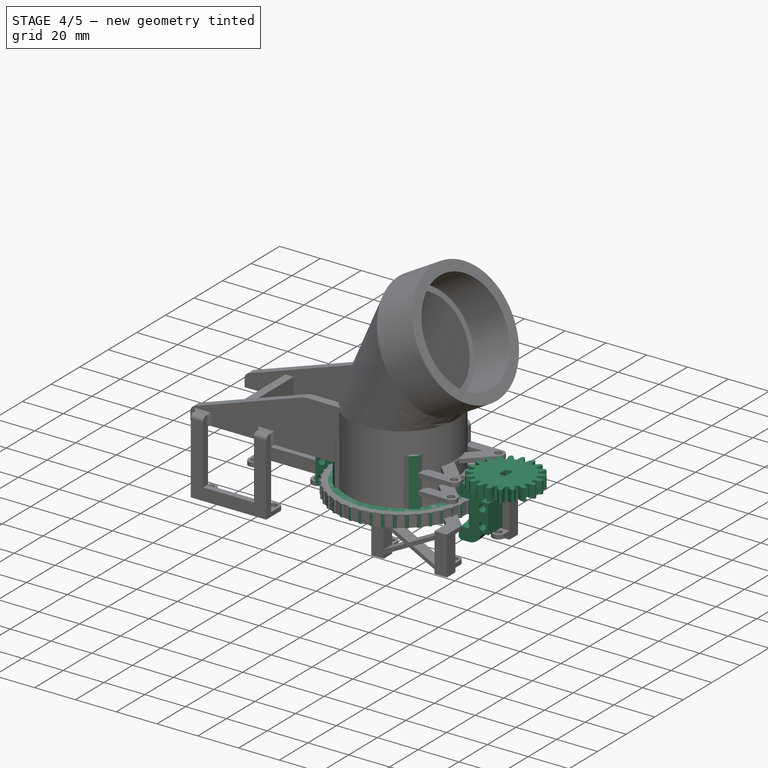
[diagram: stage 4 of 5 — iso view after this stage's code; geometry added in this stage tinted green]
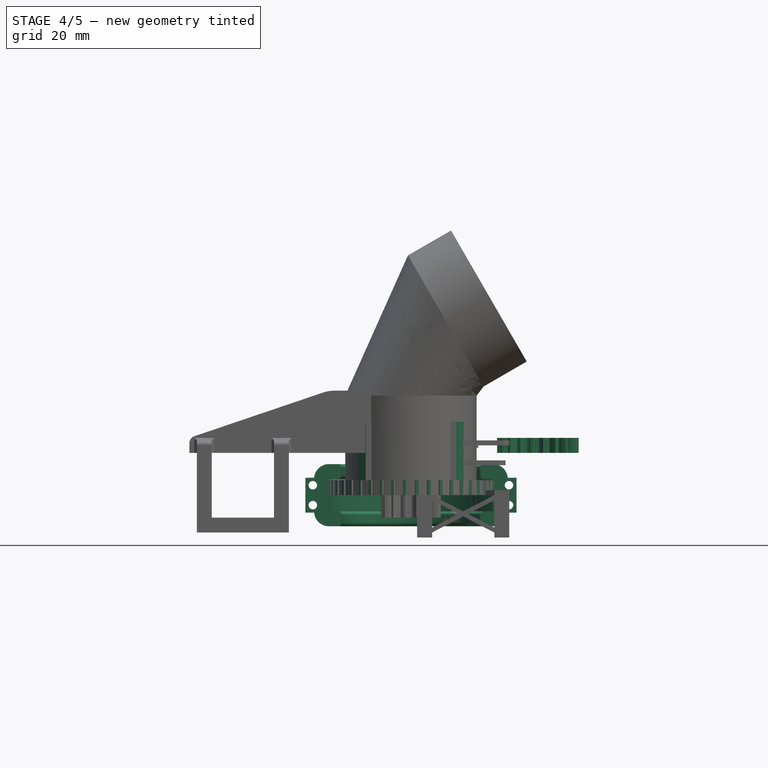
[diagram: stage 4 of 5 — front view after this stage's code; geometry added in this stage tinted green]
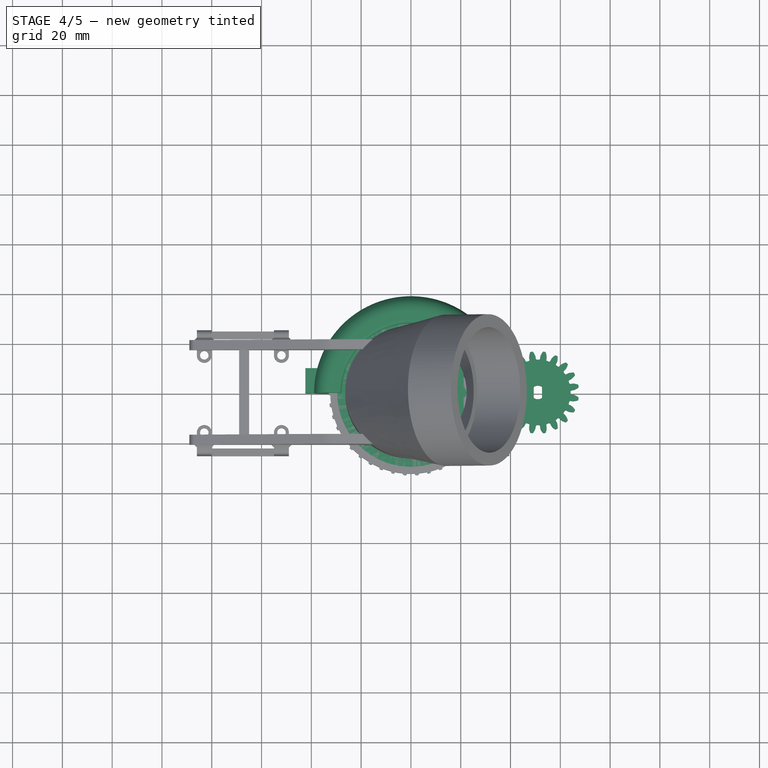
[diagram: stage 4 of 5 — top view after this stage's code; geometry added in this stage tinted green]
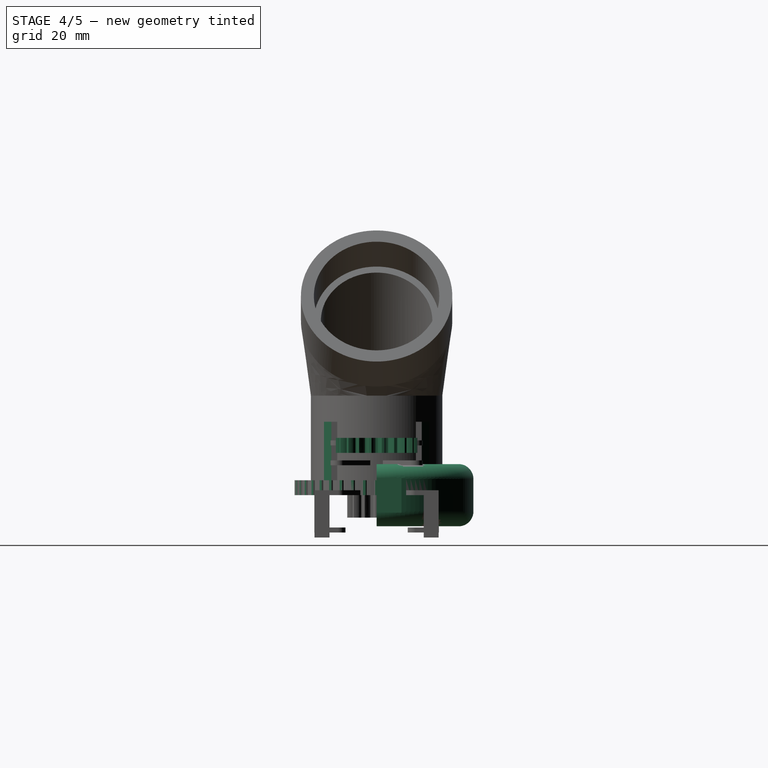
[diagram: stage 4 of 5 — right view after this stage's code; geometry added in this stage tinted green]
FEATURE [PartDesign::Body] Body012  label="Body008: Half clamp001"
  Group = -> [Sketch053,Revolution004,Sketch055,Pad024,Sketch054,Pocket003,Sketch056,Pocket004]
  Origin = -> Origin013
  Placement = pos=(0,0,-0.5) rot=(1,0,0;3.14159rad)
  Tip = -> Pocket004
FEATURE [App::Part] Part  label="Part: Clamp V0"
  Group = -> [Body012,Body008,Body009]
  Origin = -> Origin014
  Placement = pos=(0,0,0) rot=(0,0,1;3.49066rad)
FEATURE [Sketcher::SketchObject] Sketch060
  FullyConstrained = true
  MapMode = 5
  Placement = pos=(0,0,0) rot=(1,0,0;1.5708rad)
  Support = -> [XZ_Plane016]
  sketch-geometry (6):
    g0: LineSegment StartX=1.5 StartY=0 StartZ=0 EndX=1.5 EndY=23 EndZ=0
    g1: LineSegment StartX=1.5 StartY=23 StartZ=0 EndX=2.75 EndY=23 EndZ=0
    g2: LineSegment StartX=2.75 StartY=23 StartZ=0 EndX=2.75 EndY=26 EndZ=0
    g3: LineSegment StartX=2.75 StartY=26 StartZ=0 EndX=0 EndY=26 EndZ=0
    g4: LineSegment StartX=1.5 StartY=0 StartZ=0 EndX=0 EndY=0 EndZ=0
    g5: LineSegment StartX=0 StartY=26 StartZ=0 EndX=0 EndY=0 EndZ=0
  constraints (17):
    c: PointOnObject(g0,g-1)
    c: Vertical(g0)
    c: DistanceX(g-1,g0) = 1.5
    c: Coincident(g1,g0)
    c: Horizontal(g1)
    c: Coincident(g2,g1)
    c: Vertical(g2)
    c: Coincident(g3,g2)
    c: Horizontal(g3)
    c: Distance(g2) = 3
    c: PointOnObject(g3,g-2)
    c: Coincident(g4,g0)
    c: Coincident(g4,g-1)
    c: Coincident(g5,g3)
    c: Coincident(g5,g4)
    c: Distance(g3) = 2.75
    c: Distance(g3,g4) = 26
FEATURE [PartDesign::Revolution] Revolution006
  Angle = 360
  Axis = (0,-2e-16,1)
  Base = (0,0,0)
  Placement = pos=(0,0,0) rot=(1,0,0;1.5708rad)
  Profile = -> Sketch060
  ReferenceAxis = -> Sketch060 [V_Axis]
  Reversed = true
FEATURE [PartDesign::Body] Body014  label="Body009: Screw (M3 cut)001"
  Group = -> [Sketch060,Revolution006]
  Origin = -> Origin016
  Placement = pos=(-39.5,-12,3.5) rot=(-1,0,0;1.5708rad)
  Tip = -> Revolution006
FEATURE [Sketcher::SketchObject] Sketch062
  FullyConstrained = true
  MapMode = 5
  Placement = pos=(0,0,0) rot=(0.57735,0.57735,0.57735;2.0944rad)
  Support = -> [YZ_Plane017]
  sketch-geometry (23):
    g0: LineSegment StartX=0 StartY=0 StartZ=0 EndX=32.9 EndY=0 EndZ=0
    g1: LineSegment StartX=32.9 StartY=0 StartZ=0 EndX=32.9 EndY=6.5 EndZ=0
    g2: LineSegment StartX=32.9 StartY=6.5 StartZ=0 EndX=29.4 EndY=6.5 EndZ=0
    g3: LineSegment StartX=27.9 StartY=8 StartZ=0 EndX=27.9 EndY=11 EndZ=0
    g4: LineSegment StartX=29.4 StartY=12.5 StartZ=0 EndX=32.9 EndY=12.5 EndZ=0
    g5: LineSegment StartX=38.9 StartY=6.5 StartZ=0 EndX=38.9 EndY=0 EndZ=0
    g6: ArcOfCircle CenterX=29.4 CenterY=8 CenterZ=0 NormalX=0 NormalY=0 NormalZ=1 AngleXU=0 Radius=1.5 StartAngle=3.14159 EndAngle=4.71239
    g7: GeomPoint X=27.9 Y=6.5 Z=0
    g8: ArcOfCircle CenterX=29.4 CenterY=11 CenterZ=0 NormalX=0 NormalY=0 NormalZ=1 AngleXU=0 Radius=1.5 StartAngle=1.5708 EndAngle=3.14159
    g9: GeomPoint X=27.9 Y=12.5 Z=0
    g10: ArcOfCircle CenterX=32.9 CenterY=6.5 CenterZ=0 NormalX=0 NormalY=0 NormalZ=1 AngleXU=0 Radius=6 StartAngle=0 EndAngle=1.5708
    g11: GeomPoint X=38.9 Y=12.5 Z=0
    g12: LineSegment StartX=38.9 StartY=0 StartZ=0 EndX=38.9 EndY=-6.5 EndZ=0
    g13: LineSegment StartX=32.9 StartY=-12.5 StartZ=0 EndX=29.4 EndY=-12.5 EndZ=0
    g14: LineSegment StartX=27.9 StartY=-11 StartZ=0 EndX=27.9 EndY=-8 EndZ=0
    g15: LineSegment StartX=29.4 StartY=-6.5 StartZ=0 EndX=32.9 EndY=-6.5 EndZ=0
    g16: LineSegment StartX=32.9 StartY=-6.5 StartZ=0 EndX=32.9 EndY=0 EndZ=0
    g17: ArcOfCircle CenterX=29.4 CenterY=-11 CenterZ=0 NormalX=0 NormalY=0 NormalZ=1 AngleXU=0 Radius=1.5 StartAngle=3.14159 EndAngle=4.71239
    g18: GeomPoint X=27.9 Y=-12.5 Z=0
    g19: ArcOfCircle CenterX=32.9 CenterY=-6.5 CenterZ=0 NormalX=0 NormalY=0 NormalZ=1 AngleXU=0 Radius=6 StartAngle=4.71239 EndAngle=6.28319
    g20: GeomPoint X=38.9 Y=-12.5 Z=0
    g21: ArcOfCircle CenterX=29.4 CenterY=-8 CenterZ=0 NormalX=0 NormalY=0 NormalZ=1 AngleXU=0 Radius=1.5 StartAngle=1.5708 EndAngle=3.14159
    g22: GeomPoint X=27.9 Y=-6.5 Z=0
  constraints (56):
    c: Coincident(g0,g-1)
    c: PointOnObject(g0,g-1)
    c: Distance(g0) = 32.9
    c: Coincident(g1,g0)
    c: Vertical(g1)
    c: Coincident(g2,g1)
    c: Horizontal(g2)
    c: Distance(g1) = 6.5
    c: Distance(g2,g7) = 5
    c: Vertical(g3)
    c: Distance(g9,g7) = 6
    c: Horizontal(g4)
    c: PointOnObject(g5,g-1)
    c: Vertical(g5)
    c: Distance(g5,g1) = 6
    c: PointOnObject(g7,g2)
    c: PointOnObject(g7,g3)
    c: Tangent(g2,g6) = 1.5708
    c: Tangent(g3,g6) = 1.5708
    c: PointOnObject(g9,g3)
    c: PointOnObject(g9,g4)
    c: Tangent(g3,g8) = 1.5708
    c: Tangent(g4,g8) = 1.5708
    c: PointOnObject(g11,g4)
    c: PointOnObject(g11,g5)
    c: Tangent(g4,g10) = 1.5708
    c: Tangent(g5,g10) = 1.5708
    c: Radius(g6) = 1.5
    c: Radius(g8) = 1.5
    c: Radius(g10) = 6
    c: Coincident(g12,g5)
    c: Vertical(g12)
    c: Horizontal(g13)
    c: Vertical(g14)
    c: Horizontal(g15)
    c: Coincident(g16,g15)
    c: Coincident(g16,g1)
    c: Vertical(g16)
    c: PointOnObject(g18,g14)
    c: PointOnObject(g18,g13)
    c: Tangent(g14,g17) = 1.5708
    c: Tangent(g13,g17) = 1.5708
    c: PointOnObject(g20,g13)
    c: PointOnObject(g20,g12)
    c: Tangent(g13,g19) = 1.5708
    c: Tangent(g12,g19) = 1.5708
    c: PointOnObject(g22,g14)
    c: PointOnObject(g22,g15)
    c: Tangent(g14,g21) = 1.5708
    c: Tangent(g15,g21) = 1.5708
    c: Equal(g5,g12)
    c: Equal(g1,g16)
    c: Equal(g10,g19)
    c: Equal(g8,g17)
    c: Equal(g3,g14)
    c: Equal(g2,g15)
FEATURE [PartDesign::Revolution] Revolution007
  Angle = 180
  Axis = (-2e-16,3e-16,1)
  Base = (0,0,0)
  Midplane = true
  Placement = pos=(0,0,0) rot=(0.57735,0.57735,0.57735;2.0944rad)
  Profile = -> Sketch062
  ReferenceAxis = -> Sketch062 [V_Axis]
FEATURE [Sketcher::SketchObject] Sketch063
  FullyConstrained = true
  MapMode = 5
  Placement = pos=(0,1e-16,0) rot=(0.57735,0.57735,-0.57735;2.0944rad)
  Support = -> [Revolution007]
  sketch-geometry (11):
    g0: Circle CenterX=4 CenterY=39.4 CenterZ=0 NormalX=0 NormalY=0 NormalZ=1 AngleXU=0 Radius=1.7
    g1: LineSegment StartX=4 StartY=39.4 StartZ=0 EndX=4 EndY=0 EndZ=0
    g2: LineSegment StartX=4 StartY=0 StartZ=0 EndX=0 EndY=0 EndZ=0
    g3: Circle CenterX=-4 CenterY=39.4 CenterZ=0 NormalX=0 NormalY=0 NormalZ=1 AngleXU=0 Radius=1.7
    g4: Circle CenterX=-4 CenterY=-39.4 CenterZ=0 NormalX=0 NormalY=0 NormalZ=1 AngleXU=0 Radius=1.7
    g5: Circle CenterX=4 CenterY=-39.4 CenterZ=0 NormalX=0 NormalY=0 NormalZ=1 AngleXU=0 Radius=1.7
    g6: LineSegment StartX=4 StartY=0 StartZ=0 EndX=4 EndY=-39.4 EndZ=0
    g7: LineSegment StartX=-4 StartY=39.4 StartZ=0 EndX=0 EndY=39.4 EndZ=0
    g8: LineSegment StartX=0 StartY=39.4 StartZ=0 EndX=4 EndY=39.4 EndZ=0
    g9: LineSegment StartX=-4 StartY=-39.4 StartZ=0 EndX=0 EndY=-39.4 EndZ=0
    g10: LineSegment StartX=0 StartY=-39.4 StartZ=0 EndX=4 EndY=-39.4 EndZ=0
  constraints (29):
    c: Diameter(g0) = 3.4
    c: Coincident(g1,g0)
    c: PointOnObject(g1,g-1)
    c: Vertical(g1)
    c: Coincident(g2,g1)
    c: Coincident(g2,g-1)
    c: Distance(g1) = 39.4
    c: Distance(g2) = 4
    c: Equal(g0,g3)
    c: Equal(g0,g5)
    c: Equal(g0,g4)
    c: Coincident(g6,g1)
    c: Coincident(g6,g5)
    c: Vertical(g6)
    c: Equal(g6,g1)
    c: Coincident(g7,g3)
    c: PointOnObject(g7,g-2)
    c: Horizontal(g7)
    c: Coincident(g8,g7)
    c: Coincident(g8,g0)
    c: Horizontal(g8)
    c: Coincident(g9,g4)
    c: PointOnObject(g9,g-2)
    c: Horizontal(g9)
    c: Coincident(g10,g9)
    c: Coincident(g10,g5)
    c: Horizontal(g10)
    c: Equal(g2,g9)
    c: Equal(g7,g2)
FEATURE [Sketcher::SketchObject] Sketch064
  FullyConstrained = true
  MapMode = 5
  Placement = pos=(0,1e-16,0) rot=(0.57735,0.57735,-0.57735;2.0944rad)
  Support = -> [Revolution007]
  sketch-geometry (11):
    g0: LineSegment StartX=7 StartY=36.4 StartZ=0 EndX=-7 EndY=36.4 EndZ=0
    g1: LineSegment StartX=-7 StartY=36.4 StartZ=0 EndX=-7 EndY=42.4 EndZ=0
    g2: LineSegment StartX=-7 StartY=42.4 StartZ=0 EndX=7 EndY=42.4 EndZ=0
    g3: LineSegment StartX=7 StartY=42.4 StartZ=0 EndX=7 EndY=36.4 EndZ=0
    g4: LineSegment StartX=-7 StartY=-36.4 StartZ=0 EndX=-7 EndY=-42.4 EndZ=0
    g5: LineSegment StartX=-7 StartY=-42.4 StartZ=0 EndX=7 EndY=-42.4 EndZ=0
    g6: LineSegment StartX=7 StartY=-42.4 StartZ=0 EndX=7 EndY=-36.4 EndZ=0
    g7: LineSegment StartX=7 StartY=-36.4 StartZ=0 EndX=-7 EndY=-36.4 EndZ=0
    g8: LineSegment StartX=-7 StartY=36.4 StartZ=0 EndX=-7 EndY=0 EndZ=0
    g9: LineSegment StartX=-7 StartY=0 StartZ=0 EndX=0 EndY=0 EndZ=0
    g10: LineSegment StartX=-7 StartY=0 StartZ=0 EndX=-7 EndY=-36.4 EndZ=0
  constraints (31):
    c: Horizontal(g0)
    c: Coincident(g1,g0)
    c: Vertical(g1)
    c: Coincident(g2,g1)
    c: Horizontal(g2)
    c: Coincident(g3,g2)
    c: Coincident(g3,g0)
    c: Vertical(g3)
    c: Distance(g0,g-2) = 7
    c: Distance(g2) = 14
    c: Distance(g3) = 6
    c: DistanceY(g-1,g0) = 36.4
    c: Vertical(g4)
    c: Coincident(g5,g4)
    c: Horizontal(g5)
    c: Coincident(g6,g5)
    c: Vertical(g6)
    c: Coincident(g7,g6)
    c: Coincident(g7,g4)
    c: Horizontal(g7)
    c: Equal(g3,g6)
    c: Equal(g2,g5)
    c: Coincident(g8,g0)
    c: PointOnObject(g8,g-1)
    c: Vertical(g8)
    c: Coincident(g9,g8)
    c: Coincident(g9,g-1)
    c: Coincident(g10,g8)
    c: Coincident(g10,g4)
    c: Vertical(g10)
    c: Equal(g8,g10)
FEATURE [PartDesign::Pad] Pad026
  BaseFeature = -> Revolution007
  Direction = (-3e-16,-1,1e-16)
  Length = 10
  Length2 = 10
  Placement = pos=(0,0,0) rot=(0.57735,0.57735,0.57735;2.0944rad)
  Profile = -> Sketch064
  ReferenceAxis = -> Sketch064 [N_Axis]
  Reversed = true
  Type = 0
FEATURE [PartDesign::Pocket] Pocket007
  BaseFeature = -> Pad026
  Direction = (3e-16,1,-1e-16)
  Length = 5
  Length2 = 5
  Placement = pos=(0,0,0) rot=(0.57735,0.57735,0.57735;2.0944rad)
  Profile = -> Sketch063
  ReferenceAxis = -> Sketch063 [N_Axis]
  Type = 1
FEATURE [PartDesign::Body] Body015  label="Body008: Half clamp003"
  Group = -> [Sketch062,Revolution007,Sketch064,Pad026,Sketch063,Pocket007,Sketch065,Pocket008]
  Origin = -> Origin017
  Placement = pos=(0,0,-0.5) rot=(1,0,0;3.14159rad)
  Tip = -> Pocket008
FEATURE [App::Part] Part001  label="Part: Clamp V1"
  Group = -> [Body015,Body014]
  Origin = -> Origin018
  Placement = pos=(0,0,0) rot=(0,0,1;3.49066rad)
FEATURE [Sketcher::SketchObject] Sketch066  label="Sketch046: Pinion original001"
  AttachmentOffset = pos=(51,0,20) rot=(0,0,1;0.15708rad)
  FullyConstrained = false
  MapMode = 5
  Placement = pos=(51,0,20) rot=(0,0,1;0.15708rad)
  Support = -> [XY_Plane019]
  sketch-geometry (200):
    g0: LineSegment StartX=13.6163 StartY=-1.27608 StartZ=0 EndX=14.0608 EndY=-1.31661 EndZ=0
    g1: BSplineCurve PolesCount=4 KnotsCount=2 Degree=3 IsPeriodic=0
    g2: BSplineCurve PolesCount=4 KnotsCount=2 Degree=3 IsPeriodic=0
    g3: ArcOfCircle CenterX=0.00164238 CenterY=0 CenterZ=0 NormalX=0 NormalY=0 NormalZ=1 AngleXU=-0.0315477 Radius=16.5 StartAngle=0 EndAngle=0.0630955
    g4: BSplineCurve PolesCount=4 KnotsCount=2 Degree=3 IsPeriodic=0
    g5: BSplineCurve PolesCount=4 KnotsCount=2 Degree=3 IsPeriodic=0
    g6: LineSegment StartX=14.0608 StartY=1.31661 StartZ=0 EndX=13.6163 EndY=1.27608 EndZ=0
    g7: ArcOfCircle CenterX=13.5638 CenterY=1.83612 CenterZ=0 NormalX=0 NormalY=0 NormalZ=1 AngleXU=-1.47735 Radius=0.5625 StartAngle=4.75431 EndAngle=6.28319
    g8: ArcOfCircle CenterX=-7.006e-12 CenterY=-1.115e-12 CenterZ=0 NormalX=0 NormalY=0 NormalZ=1 AngleXU=0.134517 Radius=13.125 StartAngle=0 EndAngle=0.0451253
    g9: ArcOfCircle CenterX=13.4673 CenterY=2.44518 CenterZ=0 NormalX=0 NormalY=0 NormalZ=1 AngleXU=-2.96279 Radius=0.5625 StartAngle=4.75431 EndAngle=6.28319
    g10: LineSegment StartX=13.3442 StartY=2.99404 StartZ=0 EndX=13.7795 EndY=3.09285 EndZ=0
    g11: BSplineCurve PolesCount=4 KnotsCount=2 Degree=3 IsPeriodic=0
    g12: BSplineCurve PolesCount=4 KnotsCount=2 Degree=3 IsPeriodic=0
    g13: ArcOfCircle CenterX=0.00156199 CenterY=0.000507522 CenterZ=0 NormalX=0 NormalY=0 NormalZ=1 AngleXU=0.282612 Radius=16.5 StartAngle=0 EndAngle=0.0630955
    g14: BSplineCurve PolesCount=4 KnotsCount=2 Degree=3 IsPeriodic=0
    g15: BSplineCurve PolesCount=4 KnotsCount=2 Degree=3 IsPeriodic=0
    g16: LineSegment StartX=12.9657 StartY=5.59719 StartZ=0 EndX=12.5555 EndY=5.42128 EndZ=0
    g17: ArcOfCircle CenterX=12.3325 CenterY=5.9377 CenterZ=0 NormalX=0 NormalY=0 NormalZ=1 AngleXU=-1.16319 Radius=0.5625 StartAngle=4.75431 EndAngle=6.28319
    g18: ArcOfCircle CenterX=-1.2971e-11 CenterY=-6.6005e-12 CenterZ=0 NormalX=0 NormalY=0 NormalZ=1 AngleXU=0.448676 Radius=13.125 StartAngle=0 EndAngle=0.0451253
    g19: ArcOfCircle CenterX=12.0526 CenterY=6.48714 CenterZ=0 NormalX=0 NormalY=0 NormalZ=1 AngleXU=-2.64864 Radius=0.5625 StartAngle=4.75431 EndAngle=6.28319
    g20: LineSegment StartX=11.7659 StartY=6.97108 StartZ=0 EndX=12.1493 EndY=7.19956 EndZ=0
    g21: BSplineCurve PolesCount=4 KnotsCount=2 Degree=3 IsPeriodic=0
    g22: BSplineCurve PolesCount=4 KnotsCount=2 Degree=3 IsPeriodic=0
    g23: ArcOfCircle CenterX=0.00132871 CenterY=0.000965365 CenterZ=0 NormalX=0 NormalY=0 NormalZ=1 AngleXU=0.596771 Radius=16.5 StartAngle=0 EndAngle=0.0630955
    g24: BSplineCurve PolesCount=4 KnotsCount=2 Degree=3 IsPeriodic=0
    g25: BSplineCurve PolesCount=4 KnotsCount=2 Degree=3 IsPeriodic=0
    g26: LineSegment StartX=10.6015 StartY=9.32988 StartZ=0 EndX=10.2657 EndY=9.03581 EndZ=0
    g27: ArcOfCircle CenterX=9.89409 CenterY=9.45805 CenterZ=0 NormalX=0 NormalY=0 NormalZ=1 AngleXU=-0.849033 Radius=0.5625 StartAngle=4.75431 EndAngle=6.28319
    g28: ArcOfCircle CenterX=-7.1285e-12 CenterY=-7.1285e-12 CenterZ=0 NormalX=0 NormalY=0 NormalZ=1 AngleXU=0.762836 Radius=13.125 StartAngle=0 EndAngle=0.0451253
    g29: ArcOfCircle CenterX=9.45805 CenterY=9.89409 CenterZ=0 NormalX=0 NormalY=0 NormalZ=1 AngleXU=-2.33448 Radius=0.5625 StartAngle=4.75431 EndAngle=6.28319
    g30: LineSegment StartX=9.03581 StartY=10.2657 StartZ=0 EndX=9.32988 EndY=10.6015 EndZ=0
    g31: BSplineCurve PolesCount=4 KnotsCount=2 Degree=3 IsPeriodic=0
    g32: BSplineCurve PolesCount=4 KnotsCount=2 Degree=3 IsPeriodic=0
    g33: ArcOfCircle CenterX=0.000965365 CenterY=0.00132871 CenterZ=0 NormalX=0 NormalY=0 NormalZ=1 AngleXU=0.91093 Radius=16.5 StartAngle=0 EndAngle=0.0630955
    g34: BSplineCurve PolesCount=4 KnotsCount=2 Degree=3 IsPeriodic=0
    g35: BSplineCurve PolesCount=4 KnotsCount=2 Degree=3 IsPeriodic=0
    g36: LineSegment StartX=7.19956 StartY=12.1493 StartZ=0 EndX=6.97108 EndY=11.7659 EndZ=0
    g37: ArcOfCircle CenterX=6.48714 CenterY=12.0526 CenterZ=0 NormalX=0 NormalY=0 NormalZ=1 AngleXU=-0.534874 Radius=0.5625 StartAngle=4.75431 EndAngle=6.28319
    g38: ArcOfCircle CenterX=-8.5838e-12 CenterY=-1.69216e-11 CenterZ=0 NormalX=0 NormalY=0 NormalZ=1 AngleXU=1.07699 Radius=13.125 StartAngle=0 EndAngle=0.0451253
    g39: ArcOfCircle CenterX=5.9377 CenterY=12.3325 CenterZ=0 NormalX=0 NormalY=0 NormalZ=1 AngleXU=-2.02032 Radius=0.5625 StartAngle=4.75431 EndAngle=6.28319
    g40: LineSegment StartX=5.42128 StartY=12.5555 StartZ=0 EndX=5.59719 EndY=12.9657 EndZ=0
    g41: BSplineCurve PolesCount=4 KnotsCount=2 Degree=3 IsPeriodic=0
    g42: BSplineCurve PolesCount=4 KnotsCount=2 Degree=3 IsPeriodic=0
    g43: ArcOfCircle CenterX=0.000507522 CenterY=0.00156199 CenterZ=0 NormalX=0 NormalY=0 NormalZ=1 AngleXU=1.22509 Radius=16.5 StartAngle=0 EndAngle=0.0630955
    g44: BSplineCurve PolesCount=4 KnotsCount=2 Degree=3 IsPeriodic=0
    g45: BSplineCurve PolesCount=4 KnotsCount=2 Degree=3 IsPeriodic=0
    g46: LineSegment StartX=3.09285 StartY=13.7795 StartZ=0 EndX=2.99404 EndY=13.3442 EndZ=0
    g47: ArcOfCircle CenterX=2.44518 CenterY=13.4673 CenterZ=0 NormalX=0 NormalY=0 NormalZ=1 AngleXU=-0.220715 Radius=0.5625 StartAngle=4.75431 EndAngle=6.28319
    g48: ArcOfCircle CenterX=-2.508e-13 CenterY=-1.5667e-12 CenterZ=0 NormalX=0 NormalY=0 NormalZ=1 AngleXU=1.39115 Radius=13.125 StartAngle=0 EndAngle=0.0451253
    g49: ArcOfCircle CenterX=1.83612 CenterY=13.5638 CenterZ=0 NormalX=0 NormalY=0 NormalZ=1 AngleXU=-1.70616 Radius=0.5625 StartAngle=4.75431 EndAngle=6.28319
    g50: LineSegment StartX=1.27608 StartY=13.6163 StartZ=0 EndX=1.31661 EndY=14.0608 EndZ=0
    g51: BSplineCurve PolesCount=4 KnotsCount=2 Degree=3 IsPeriodic=0
    g52: BSplineCurve PolesCount=4 KnotsCount=2 Degree=3 IsPeriodic=0
    g53: ArcOfCircle CenterX=1e-15 CenterY=0.00164238 CenterZ=0 NormalX=0 NormalY=0 NormalZ=1 AngleXU=1.53925 Radius=16.5 StartAngle=0 EndAngle=0.0630955
    g54: BSplineCurve PolesCount=4 KnotsCount=2 Degree=3 IsPeriodic=0
    g55: BSplineCurve PolesCount=4 KnotsCount=2 Degree=3 IsPeriodic=0
    g56: LineSegment StartX=-1.31661 StartY=14.0608 StartZ=0 EndX=-1.27608 EndY=13.6163 EndZ=0
    g57: ArcOfCircle CenterX=-1.83612 CenterY=13.5638 CenterZ=0 NormalX=0 NormalY=0 NormalZ=1 AngleXU=0.0934445 Radius=0.5625 StartAngle=4.75431 EndAngle=6.28319
    g58: ArcOfCircle CenterX=1.1159e-12 CenterY=-7.006e-12 CenterZ=0 NormalX=0 NormalY=0 NormalZ=1 AngleXU=1.70531 Radius=13.125 StartAngle=0 EndAngle=0.0451253
    g59: ArcOfCircle CenterX=-2.44518 CenterY=13.4673 CenterZ=0 NormalX=0 NormalY=0 NormalZ=1 AngleXU=-1.392 Radius=0.5625 StartAngle=4.75431 EndAngle=6.28319
    g60: LineSegment StartX=-2.99404 StartY=13.3442 StartZ=0 EndX=-3.09285 EndY=13.7795 EndZ=0
    g61: BSplineCurve PolesCount=4 KnotsCount=2 Degree=3 IsPeriodic=0
    g62: BSplineCurve PolesCount=4 KnotsCount=2 Degree=3 IsPeriodic=0
    g63: ArcOfCircle CenterX=-0.000507522 CenterY=0.00156199 CenterZ=0 NormalX=0 NormalY=0 NormalZ=1 AngleXU=1.85341 Radius=16.5 StartAngle=0 EndAngle=0.0630955
    g64: BSplineCurve PolesCount=4 KnotsCount=2 Degree=3 IsPeriodic=0
    g65: BSplineCurve PolesCount=4 KnotsCount=2 Degree=3 IsPeriodic=0
    g66: LineSegment StartX=-5.59719 StartY=12.9657 StartZ=0 EndX=-5.42128 EndY=12.5555 EndZ=0
    g67: ArcOfCircle CenterX=-5.9377 CenterY=12.3325 CenterZ=0 NormalX=0 NormalY=0 NormalZ=1 AngleXU=0.407604 Radius=0.5625 StartAngle=4.75431 EndAngle=6.28319
    g68: ArcOfCircle CenterX=1.2945e-12 CenterY=-2.5731e-12 CenterZ=0 NormalX=0 NormalY=0 NormalZ=1 AngleXU=2.01947 Radius=13.125 StartAngle=0 EndAngle=0.0451253
    g69: ArcOfCircle CenterX=-6.48714 CenterY=12.0526 CenterZ=0 NormalX=0 NormalY=0 NormalZ=1 AngleXU=-1.07784 Radius=0.5625 StartAngle=4.75431 EndAngle=6.28319
    g70: LineSegment StartX=-6.97108 StartY=11.7659 StartZ=0 EndX=-7.19956 EndY=12.1493 EndZ=0
    g71: BSplineCurve PolesCount=4 KnotsCount=2 Degree=3 IsPeriodic=0
    g72: BSplineCurve PolesCount=4 KnotsCount=2 Degree=3 IsPeriodic=0
    g73: ArcOfCircle CenterX=-0.000965365 CenterY=0.00132871 CenterZ=0 NormalX=0 NormalY=0 NormalZ=1 AngleXU=2.16757 Radius=16.5 StartAngle=0 EndAngle=0.0630955
    g74: BSplineCurve PolesCount=4 KnotsCount=2 Degree=3 IsPeriodic=0
    g75: BSplineCurve PolesCount=4 KnotsCount=2 Degree=3 IsPeriodic=0
    g76: LineSegment StartX=-9.32988 StartY=10.6015 StartZ=0 EndX=-9.03581 EndY=10.2657 EndZ=0
    g77: ArcOfCircle CenterX=-9.45805 CenterY=9.89409 CenterZ=0 NormalX=0 NormalY=0 NormalZ=1 AngleXU=0.721763 Radius=0.5625 StartAngle=4.75431 EndAngle=6.28319
    g78: ArcOfCircle CenterX=6.5121e-12 CenterY=-6.5112e-12 CenterZ=0 NormalX=0 NormalY=0 NormalZ=1 AngleXU=2.33363 Radius=13.125 StartAngle=0 EndAngle=0.0451253
    g79: ArcOfCircle CenterX=-9.89409 CenterY=9.45805 CenterZ=0 NormalX=0 NormalY=0 NormalZ=1 AngleXU=-0.76368 Radius=0.5625 StartAngle=4.75431 EndAngle=6.28319
    g80: LineSegment StartX=-10.2657 StartY=9.03581 StartZ=0 EndX=-10.6015 EndY=9.32988 EndZ=0
    g81: BSplineCurve PolesCount=4 KnotsCount=2 Degree=3 IsPeriodic=0
    g82: BSplineCurve PolesCount=4 KnotsCount=2 Degree=3 IsPeriodic=0
    g83: ArcOfCircle CenterX=-0.00132871 CenterY=0.000965365 CenterZ=0 NormalX=0 NormalY=0 NormalZ=1 AngleXU=2.48173 Radius=16.5 StartAngle=0 EndAngle=0.0630955
    g84: BSplineCurve PolesCount=4 KnotsCount=2 Degree=3 IsPeriodic=0
    g85: BSplineCurve PolesCount=4 KnotsCount=2 Degree=3 IsPeriodic=0
    g86: LineSegment StartX=-12.1493 StartY=7.19956 StartZ=0 EndX=-11.7659 EndY=6.97108 EndZ=0
    g87: ArcOfCircle CenterX=-12.0526 CenterY=6.48714 CenterZ=0 NormalX=0 NormalY=0 NormalZ=1 AngleXU=1.03592 Radius=0.5625 StartAngle=4.75431 EndAngle=6.28319
    g88: ArcOfCircle CenterX=3.9115e-12 CenterY=-1.9722e-12 CenterZ=0 NormalX=0 NormalY=0 NormalZ=1 AngleXU=2.64779 Radius=13.125 StartAngle=0 EndAngle=0.0451253
    g89: ArcOfCircle CenterX=-12.3325 CenterY=5.9377 CenterZ=0 NormalX=0 NormalY=0 NormalZ=1 AngleXU=-0.44952 Radius=0.5625 StartAngle=4.75431 EndAngle=6.28319
    g90: LineSegment StartX=-12.5555 StartY=5.42128 StartZ=0 EndX=-12.9657 EndY=5.59719 EndZ=0
    g91: BSplineCurve PolesCount=4 KnotsCount=2 Degree=3 IsPeriodic=0
    g92: BSplineCurve PolesCount=4 KnotsCount=2 Degree=3 IsPeriodic=0
    g93: ArcOfCircle CenterX=-0.00156199 CenterY=0.000507522 CenterZ=0 NormalX=0 NormalY=0 NormalZ=1 AngleXU=2.79589 Radius=16.5 StartAngle=0 EndAngle=0.0630955
    g94: BSplineCurve PolesCount=4 KnotsCount=2 Degree=3 IsPeriodic=0
    g95: BSplineCurve PolesCount=4 KnotsCount=2 Degree=3 IsPeriodic=0
    g96: LineSegment StartX=-13.7795 StartY=3.09285 StartZ=0 EndX=-13.3442 EndY=2.99404 EndZ=0
    g97: ArcOfCircle CenterX=-13.4673 CenterY=2.44518 CenterZ=0 NormalX=0 NormalY=0 NormalZ=1 AngleXU=1.35008 Radius=0.5625 StartAngle=4.75431 EndAngle=6.28319
    g98: ArcOfCircle CenterX=1.5667e-12 CenterY=-2.499e-13 CenterZ=0 NormalX=0 NormalY=0 NormalZ=1 AngleXU=2.96195 Radius=13.125 StartAngle=0 EndAngle=0.0451253
    g99: ArcOfCircle CenterX=-13.5638 CenterY=1.83612 CenterZ=0 NormalX=0 NormalY=0 NormalZ=1 AngleXU=-0.135361 Radius=0.5625 StartAngle=4.75431 EndAngle=6.28319
    g100: LineSegment StartX=-13.6163 StartY=1.27608 StartZ=0 EndX=-14.0608 EndY=1.31661 EndZ=0
    g101: BSplineCurve PolesCount=4 KnotsCount=2 Degree=3 IsPeriodic=0
    g102: BSplineCurve PolesCount=4 KnotsCount=2 Degree=3 IsPeriodic=0
    g103: ArcOfCircle CenterX=-0.00164238 CenterY=2e-15 CenterZ=0 NormalX=0 NormalY=0 NormalZ=1 AngleXU=3.11004 Radius=16.5 StartAngle=0 EndAngle=0.0630955
    g104: BSplineCurve PolesCount=4 KnotsCount=2 Degree=3 IsPeriodic=0
    g105: BSplineCurve PolesCount=4 KnotsCount=2 Degree=3 IsPeriodic=0
    g106: LineSegment StartX=-14.0608 StartY=-1.31661 StartZ=0 EndX=-13.6163 EndY=-1.27608 EndZ=0
    g107: ArcOfCircle CenterX=-13.5638 CenterY=-1.83612 CenterZ=0 NormalX=0 NormalY=0 NormalZ=1 AngleXU=1.66424 Radius=0.5625 StartAngle=4.75431 EndAngle=6.28319
    g108: ArcOfCircle CenterX=6.9518e-12 CenterY=1.1091e-12 CenterZ=0 NormalX=0 NormalY=0 NormalZ=1 AngleXU=-3.00708 Radius=13.125 StartAngle=0 EndAngle=0.0451253
    g109: ArcOfCircle CenterX=-13.4673 CenterY=-2.44518 CenterZ=0 NormalX=0 NormalY=0 NormalZ=1 AngleXU=0.178798 Radius=0.5625 StartAngle=4.75431 EndAngle=6.28319
    g110: LineSegment StartX=-13.3442 StartY=-2.99404 StartZ=0 EndX=-13.7795 EndY=-3.09285 EndZ=0
    g111: BSplineCurve PolesCount=4 KnotsCount=2 Degree=3 IsPeriodic=0
    g112: BSplineCurve PolesCount=4 KnotsCount=2 Degree=3 IsPeriodic=0
    g113: ArcOfCircle CenterX=-0.00156199 CenterY=-0.000507522 CenterZ=0 NormalX=0 NormalY=0 NormalZ=1 AngleXU=-2.85898 Radius=16.5 StartAngle=0 EndAngle=0.0630955
    g114: BSplineCurve PolesCount=4 KnotsCount=2 Degree=3 IsPeriodic=0
    g115: BSplineCurve PolesCount=4 KnotsCount=2 Degree=3 IsPeriodic=0
    g116: LineSegment StartX=-12.9657 StartY=-5.59719 StartZ=0 EndX=-12.5555 EndY=-5.42128 EndZ=0
    g117: ArcOfCircle CenterX=-12.3325 CenterY=-5.9377 CenterZ=0 NormalX=0 NormalY=0 NormalZ=1 AngleXU=1.9784 Radius=0.5625 StartAngle=4.75431 EndAngle=6.28319
    g118: ArcOfCircle CenterX=8.5691e-12 CenterY=4.3703e-12 CenterZ=0 NormalX=0 NormalY=0 NormalZ=1 AngleXU=-2.69292 Radius=13.125 StartAngle=0 EndAngle=0.0451253
    g119: ArcOfCircle CenterX=-12.0526 CenterY=-6.48714 CenterZ=0 NormalX=0 NormalY=0 NormalZ=1 AngleXU=0.492957 Radius=0.5625 StartAngle=4.75431 EndAngle=6.28319
    g120: LineSegment StartX=-11.7659 StartY=-6.97108 StartZ=0 EndX=-12.1493 EndY=-7.19956 EndZ=0
    g121: BSplineCurve PolesCount=4 KnotsCount=2 Degree=3 IsPeriodic=0
    g122: BSplineCurve PolesCount=4 KnotsCount=2 Degree=3 IsPeriodic=0
    g123: ArcOfCircle CenterX=-0.00132871 CenterY=-0.000965365 CenterZ=0 NormalX=0 NormalY=0 NormalZ=1 AngleXU=-2.54482 Radius=16.5 StartAngle=0 EndAngle=0.0630955
    g124: BSplineCurve PolesCount=4 KnotsCount=2 Degree=3 IsPeriodic=0
    g125: BSplineCurve PolesCount=4 KnotsCount=2 Degree=3 IsPeriodic=0
    g126: LineSegment StartX=-10.6015 StartY=-9.32988 StartZ=0 EndX=-10.2657 EndY=-9.03581 EndZ=0
    g127: ArcOfCircle CenterX=-9.89409 CenterY=-9.45805 CenterZ=0 NormalX=0 NormalY=0 NormalZ=1 AngleXU=2.29256 Radius=0.5625 StartAngle=4.75431 EndAngle=6.28319
    g128: ArcOfCircle CenterX=6.5112e-12 CenterY=6.5121e-12 CenterZ=0 NormalX=0 NormalY=0 NormalZ=1 AngleXU=-2.37876 Radius=13.125 StartAngle=0 EndAngle=0.0451253
    g129: ArcOfCircle CenterX=-9.45805 CenterY=-9.89409 CenterZ=0 NormalX=0 NormalY=0 NormalZ=1 AngleXU=0.807117 Radius=0.5625 StartAngle=4.75431 EndAngle=6.28319
    g130: LineSegment StartX=-9.03581 StartY=-10.2657 StartZ=0 EndX=-9.32988 EndY=-10.6015 EndZ=0
    g131: BSplineCurve PolesCount=4 KnotsCount=2 Degree=3 IsPeriodic=0
    g132: BSplineCurve PolesCount=4 KnotsCount=2 Degree=3 IsPeriodic=0
    g133: ArcOfCircle CenterX=-0.000965365 CenterY=-0.00132871 CenterZ=0 NormalX=0 NormalY=0 NormalZ=1 AngleXU=-2.23066 Radius=16.5 StartAngle=0 EndAngle=0.0630955
    g134: BSplineCurve PolesCount=4 KnotsCount=2 Degree=3 IsPeriodic=0
    g135: BSplineCurve PolesCount=4 KnotsCount=2 Degree=3 IsPeriodic=0
    g136: LineSegment StartX=-7.19956 StartY=-12.1493 StartZ=0 EndX=-6.97108 EndY=-11.7659 EndZ=0
    g137: ArcOfCircle CenterX=-6.48714 CenterY=-12.0526 CenterZ=0 NormalX=0 NormalY=0 NormalZ=1 AngleXU=2.60672 Radius=0.5625 StartAngle=4.75431 EndAngle=6.28319
    g138: ArcOfCircle CenterX=1.9722e-12 CenterY=3.9115e-12 CenterZ=0 NormalX=0 NormalY=0 NormalZ=1 AngleXU=-2.0646 Radius=13.125 StartAngle=0 EndAngle=0.0451253
    g139: ArcOfCircle CenterX=-5.9377 CenterY=-12.3325 CenterZ=0 NormalX=0 NormalY=0 NormalZ=1 AngleXU=1.12128 Radius=0.5625 StartAngle=4.75431 EndAngle=6.28319
    g140: LineSegment StartX=-5.42128 StartY=-12.5555 StartZ=0 EndX=-5.59719 EndY=-12.9657 EndZ=0
    g141: BSplineCurve PolesCount=4 KnotsCount=2 Degree=3 IsPeriodic=0
    g142: BSplineCurve PolesCount=4 KnotsCount=2 Degree=3 IsPeriodic=0
    g143: ArcOfCircle CenterX=-0.000507522 CenterY=-0.00156199 CenterZ=0 NormalX=0 NormalY=0 NormalZ=1 AngleXU=-1.9165 Radius=16.5 StartAngle=0 EndAngle=0.0630955
    g144: BSplineCurve PolesCount=4 KnotsCount=2 Degree=3 IsPeriodic=0
    g145: BSplineCurve PolesCount=4 KnotsCount=2 Degree=3 IsPeriodic=0
    g146: LineSegment StartX=-3.09285 StartY=-13.7795 StartZ=0 EndX=-2.99404 EndY=-13.3442 EndZ=0
    g147: ArcOfCircle CenterX=-2.44518 CenterY=-13.4673 CenterZ=0 NormalX=0 NormalY=0 NormalZ=1 AngleXU=2.92088 Radius=0.5625 StartAngle=4.75431 EndAngle=6.28319
    g148: ArcOfCircle CenterX=1.0851e-12 CenterY=6.831e-12 CenterZ=0 NormalX=0 NormalY=0 NormalZ=1 AngleXU=-1.75044 Radius=13.125 StartAngle=0 EndAngle=0.0451253
    g149: ArcOfCircle CenterX=-1.83612 CenterY=-13.5638 CenterZ=0 NormalX=0 NormalY=0 NormalZ=1 AngleXU=1.43544 Radius=0.5625 StartAngle=4.75431 EndAngle=6.28319
    g150: LineSegment StartX=-1.27608 StartY=-13.6163 StartZ=0 EndX=-1.31661 EndY=-14.0608 EndZ=0
    g151: BSplineCurve PolesCount=4 KnotsCount=2 Degree=3 IsPeriodic=0
    g152: BSplineCurve PolesCount=4 KnotsCount=2 Degree=3 IsPeriodic=0
    g153: ArcOfCircle CenterX=-3e-15 CenterY=-0.00164238 CenterZ=0 NormalX=0 NormalY=0 NormalZ=1 AngleXU=-1.60234 Radius=16.5 StartAngle=0 EndAngle=0.0630955
    g154: BSplineCurve PolesCount=4 KnotsCount=2 Degree=3 IsPeriodic=0
    g155: BSplineCurve PolesCount=4 KnotsCount=2 Degree=3 IsPeriodic=0
    g156: LineSegment StartX=1.31661 StartY=-14.0608 StartZ=0 EndX=1.27608 EndY=-13.6163 EndZ=0
    g157: ArcOfCircle CenterX=1.83612 CenterY=-13.5638 CenterZ=0 NormalX=0 NormalY=0 NormalZ=1 AngleXU=-3.04815 Radius=0.5625 StartAngle=4.75431 EndAngle=6.28319
    g158: ArcOfCircle CenterX=-2.337e-13 CenterY=1.4317e-12 CenterZ=0 NormalX=0 NormalY=0 NormalZ=1 AngleXU=-1.43628 Radius=13.125 StartAngle=0 EndAngle=0.0451253
    g159: ArcOfCircle CenterX=2.44518 CenterY=-13.4673 CenterZ=0 NormalX=0 NormalY=0 NormalZ=1 AngleXU=1.74959 Radius=0.5625 StartAngle=4.75431 EndAngle=6.28319
    g160: LineSegment StartX=2.99404 StartY=-13.3442 StartZ=0 EndX=3.09285 EndY=-13.7795 EndZ=0
    g161: BSplineCurve PolesCount=4 KnotsCount=2 Degree=3 IsPeriodic=0
    g162: BSplineCurve PolesCount=4 KnotsCount=2 Degree=3 IsPeriodic=0
    g163: ArcOfCircle CenterX=0.000507522 CenterY=-0.00156199 CenterZ=0 NormalX=0 NormalY=0 NormalZ=1 AngleXU=-1.28818 Radius=16.5 StartAngle=0 EndAngle=0.0630955
    g164: BSplineCurve PolesCount=4 KnotsCount=2 Degree=3 IsPeriodic=0
    g165: BSplineCurve PolesCount=4 KnotsCount=2 Degree=3 IsPeriodic=0
    g166: LineSegment StartX=5.59719 StartY=-12.9657 StartZ=0 EndX=5.42128 EndY=-12.5555 EndZ=0
    g167: ArcOfCircle CenterX=5.9377 CenterY=-12.3325 CenterZ=0 NormalX=0 NormalY=0 NormalZ=1 AngleXU=-2.73399 Radius=0.5625 StartAngle=4.75431 EndAngle=6.28319
    g168: ArcOfCircle CenterX=-1.2963e-12 CenterY=2.5731e-12 CenterZ=0 NormalX=0 NormalY=0 NormalZ=1 AngleXU=-1.12212 Radius=13.125 StartAngle=0 EndAngle=0.0451253
    g169: ArcOfCircle CenterX=6.48714 CenterY=-12.0526 CenterZ=0 NormalX=0 NormalY=0 NormalZ=1 AngleXU=2.06375 Radius=0.5625 StartAngle=4.75431 EndAngle=6.28319
    g170: LineSegment StartX=6.97108 StartY=-11.7659 StartZ=0 EndX=7.19956 EndY=-12.1493 EndZ=0
    g171: BSplineCurve PolesCount=4 KnotsCount=2 Degree=3 IsPeriodic=0
    g172: BSplineCurve PolesCount=4 KnotsCount=2 Degree=3 IsPeriodic=0
    g173: ArcOfCircle CenterX=0.000965365 CenterY=-0.00132871 CenterZ=0 NormalX=0 NormalY=0 NormalZ=1 AngleXU=-0.974026 Radius=16.5 StartAngle=0 EndAngle=0.0630955
    g174: BSplineCurve PolesCount=4 KnotsCount=2 Degree=3 IsPeriodic=0
    g175: BSplineCurve PolesCount=4 KnotsCount=2 Degree=3 IsPeriodic=0
    g176: LineSegment StartX=9.32988 StartY=-10.6015 StartZ=0 EndX=9.03581 EndY=-10.2657 EndZ=0
    g177: ArcOfCircle CenterX=9.45805 CenterY=-9.89409 CenterZ=0 NormalX=0 NormalY=0 NormalZ=1 AngleXU=-2.41983 Radius=0.5625 StartAngle=4.75431 EndAngle=6.28319
    g178: ArcOfCircle CenterX=-1.40181e-11 CenterY=1.40528e-11 CenterZ=0 NormalX=0 NormalY=0 NormalZ=1 AngleXU=-0.807961 Radius=13.125 StartAngle=0 EndAngle=0.0451253
    g179: ArcOfCircle CenterX=9.89409 CenterY=-9.45805 CenterZ=0 NormalX=0 NormalY=0 NormalZ=1 AngleXU=2.37791 Radius=0.5625 StartAngle=4.75431 EndAngle=6.28319
    g180: LineSegment StartX=10.2657 StartY=-9.03581 StartZ=0 EndX=10.6015 EndY=-9.32988 EndZ=0
    g181: BSplineCurve PolesCount=4 KnotsCount=2 Degree=3 IsPeriodic=0
    g182: BSplineCurve PolesCount=4 KnotsCount=2 Degree=3 IsPeriodic=0
    g183: ArcOfCircle CenterX=0.00132871 CenterY=-0.000965365 CenterZ=0 NormalX=0 NormalY=0 NormalZ=1 AngleXU=-0.659866 Radius=16.5 StartAngle=0 EndAngle=0.0630955
    g184: BSplineCurve PolesCount=4 KnotsCount=2 Degree=3 IsPeriodic=0
    g185: BSplineCurve PolesCount=4 KnotsCount=2 Degree=3 IsPeriodic=0
    g186: LineSegment StartX=12.1493 StartY=-7.19956 StartZ=0 EndX=11.7659 EndY=-6.97108 EndZ=0
    g187: ArcOfCircle CenterX=12.0526 CenterY=-6.48714 CenterZ=0 NormalX=0 NormalY=0 NormalZ=1 AngleXU=-2.10567 Radius=0.5625 StartAngle=4.75431 EndAngle=6.28319
    g188: ArcOfCircle CenterX=-1.2971e-11 CenterY=6.5969e-12 CenterZ=0 NormalX=0 NormalY=0 NormalZ=1 AngleXU=-0.493802 Radius=13.125 StartAngle=0 EndAngle=0.0451253
    g189: ArcOfCircle CenterX=12.3325 CenterY=-5.9377 CenterZ=0 NormalX=0 NormalY=0 NormalZ=1 AngleXU=2.69207 Radius=0.5625 StartAngle=4.75431 EndAngle=6.28319
    g190: LineSegment StartX=12.5555 StartY=-5.42128 StartZ=0 EndX=12.9657 EndY=-5.59719 EndZ=0
    g191: BSplineCurve PolesCount=4 KnotsCount=2 Degree=3 IsPeriodic=0
    g192: BSplineCurve PolesCount=4 KnotsCount=2 Degree=3 IsPeriodic=0
    g193: ArcOfCircle CenterX=0.00156199 CenterY=-0.000507522 CenterZ=0 NormalX=0 NormalY=0 NormalZ=1 AngleXU=-0.345707 Radius=16.5 StartAngle=0 EndAngle=0.0630955
    g194: BSplineCurve PolesCount=4 KnotsCount=2 Degree=3 IsPeriodic=0
    g195: BSplineCurve PolesCount=4 KnotsCount=2 Degree=3 IsPeriodic=0
    g196: LineSegment StartX=13.7795 StartY=-3.09285 StartZ=0 EndX=13.3442 EndY=-2.99404 EndZ=0
    g197: ArcOfCircle CenterX=13.4673 CenterY=-2.44518 CenterZ=0 NormalX=0 NormalY=0 NormalZ=1 AngleXU=-1.79151 Radius=0.5625 StartAngle=4.75431 EndAngle=6.28319
    g198: ArcOfCircle CenterX=-1.5667e-12 CenterY=2.481e-13 CenterZ=0 NormalX=0 NormalY=0 NormalZ=1 AngleXU=-0.179642 Radius=13.125 StartAngle=0 EndAngle=0.0451253
    g199: ArcOfCircle CenterX=13.5638 CenterY=-1.83612 CenterZ=0 NormalX=0 NormalY=0 NormalZ=1 AngleXU=3.00623 Radius=0.5625 StartAngle=4.75431 EndAngle=6.28319
  constraints (200):
    c: Coincident(g0,g1)
    c: Coincident(g1,g2)
    c: Coincident(g2,g3)
    c: Coincident(g3,g4)
    c: Coincident(g4,g5)
    c: Coincident(g5,g6)
    c: Coincident(g6,g7)
    c: Coincident(g7,g8)
    c: Coincident(g8,g9)
    c: Coincident(g9,g10)
    c: Coincident(g10,g11)
    c: Coincident(g11,g12)
    c: Coincident(g12,g13)
    c: Coincident(g13,g14)
    c: Coincident(g14,g15)
    c: Coincident(g15,g16)
    c: Coincident(g16,g17)
    c: Coincident(g17,g18)
    c: Coincident(g18,g19)
    c: Coincident(g19,g20)
    c: Coincident(g20,g21)
    c: Coincident(g21,g22)
    c: Coincident(g22,g23)
    c: Coincident(g23,g24)
    c: Coincident(g24,g25)
    c: Coincident(g25,g26)
    c: Coincident(g26,g27)
    c: Coincident(g27,g28)
    c: Coincident(g28,g29)
    c: Coincident(g29,g30)
    c: Coincident(g30,g31)
    c: Coincident(g31,g32)
    c: Coincident(g32,g33)
    c: Coincident(g33,g34)
    c: Coincident(g34,g35)
    c: Coincident(g35,g36)
    c: Coincident(g36,g37)
    c: Coincident(g37,g38)
    c: Coincident(g38,g39)
    c: Coincident(g39,g40)
    c: Coincident(g40,g41)
    c: Coincident(g41,g42)
    c: Coincident(g42,g43)
    c: Coincident(g43,g44)
    c: Coincident(g44,g45)
    c: Coincident(g45,g46)
    c: Coincident(g46,g47)
    c: Coincident(g47,g48)
    c: Coincident(g48,g49)
    c: Coincident(g49,g50)
    c: Coincident(g50,g51)
    c: Coincident(g51,g52)
    c: Coincident(g52,g53)
    c: Coincident(g53,g54)
    c: Coincident(g54,g55)
    c: Coincident(g55,g56)
    c: Coincident(g56,g57)
    c: Coincident(g57,g58)
    c: Coincident(g58,g59)
    c: Coincident(g59,g60)
    c: Coincident(g60,g61)
    c: Coincident(g61,g62)
    c: Coincident(g62,g63)
    c: Coincident(g63,g64)
    c: Coincident(g64,g65)
    c: Coincident(g65,g66)
    c: Coincident(g66,g67)
    c: Coincident(g67,g68)
    c: Coincident(g68,g69)
    c: Coincident(g69,g70)
    c: Coincident(g70,g71)
    c: Coincident(g71,g72)
    c: Coincident(g72,g73)
    c: Coincident(g73,g74)
    c: Coincident(g74,g75)
    c: Coincident(g75,g76)
    c: Coincident(g76,g77)
    c: Coincident(g77,g78)
    c: Coincident(g78,g79)
    c: Coincident(g79,g80)
    c: Coincident(g80,g81)
    c: Coincident(g81,g82)
    c: Coincident(g82,g83)
    c: Coincident(g83,g84)
    c: Coincident(g84,g85)
    c: Coincident(g85,g86)
    c: Coincident(g86,g87)
    c: Coincident(g87,g88)
    c: Coincident(g88,g89)
    c: Coincident(g89,g90)
    c: Coincident(g90,g91)
    c: Coincident(g91,g92)
    c: Coincident(g92,g93)
    c: Coincident(g93,g94)
    c: Coincident(g94,g95)
    c: Coincident(g95,g96)
    c: Coincident(g96,g97)
    c: Coincident(g97,g98)
    c: Coincident(g98,g99)
    c: Coincident(g99,g100)
    c: Coincident(g100,g101)
    c: Coincident(g101,g102)
    c: Coincident(g102,g103)
    c: Coincident(g103,g104)
    c: Coincident(g104,g105)
    c: Coincident(g105,g106)
    c: Coincident(g106,g107)
    c: Coincident(g107,g108)
    c: Coincident(g108,g109)
    c: Coincident(g109,g110)
    c: Coincident(g110,g111)
    c: Coincident(g111,g112)
    c: Coincident(g112,g113)
    c: Coincident(g113,g114)
    c: Coincident(g114,g115)
    c: Coincident(g115,g116)
    c: Coincident(g116,g117)
    c: Coincident(g117,g118)
    c: Coincident(g118,g119)
    c: Coincident(g119,g120)
    c: Coincident(g120,g121)
    c: Coincident(g121,g122)
    c: Coincident(g122,g123)
    c: Coincident(g123,g124)
    c: Coincident(g124,g125)
    c: Coincident(g125,g126)
    c: Coincident(g126,g127)
    c: Coincident(g127,g128)
    c: Coincident(g128,g129)
    c: Coincident(g129,g130)
    c: Coincident(g130,g131)
    c: Coincident(g131,g132)
    c: Coincident(g132,g133)
    c: Coincident(g133,g134)
    c: Coincident(g134,g135)
    c: Coincident(g135,g136)
    c: Coincident(g136,g137)
    c: Coincident(g137,g138)
    c: Coincident(g138,g139)
    c: Coincident(g139,g140)
    c: Coincident(g140,g141)
    c: Coincident(g141,g142)
    c: Coincident(g142,g143)
    c: Coincident(g143,g144)
    c: Coincident(g144,g145)
    c: Coincident(g145,g146)
    c: Coincident(g146,g147)
    c: Coincident(g147,g148)
    c: Coincident(g148,g149)
    c: Coincident(g149,g150)
    c: Coincident(g150,g151)
    c: Coincident(g151,g152)
    c: Coincident(g152,g153)
    c: Coincident(g153,g154)
    c: Coincident(g154,g155)
    c: Coincident(g155,g156)
    c: Coincident(g156,g157)
    c: Coincident(g157,g158)
    c: Coincident(g158,g159)
    c: Coincident(g159,g160)
    c: Coincident(g160,g161)
    c: Coincident(g161,g162)
    c: Coincident(g162,g163)
    c: Coincident(g163,g164)
    c: Coincident(g164,g165)
    c: Coincident(g165,g166)
    c: Coincident(g166,g167)
    c: Coincident(g167,g168)
    c: Coincident(g168,g169)
    c: Coincident(g169,g170)
    c: Coincident(g170,g171)
    c: Coincident(g171,g172)
    c: Coincident(g172,g173)
    c: Coincident(g173,g174)
    c: Coincident(g174,g175)
    c: Coincident(g175,g176)
    c: Coincident(g176,g177)
    c: Coincident(g177,g178)
    c: Coincident(g178,g179)
    c: Coincident(g179,g180)
    c: Coincident(g180,g181)
    c: Coincident(g181,g182)
    c: Coincident(g182,g183)
    c: Coincident(g183,g184)
    c: Coincident(g184,g185)
    c: Coincident(g185,g186)
    c: Coincident(g186,g187)
    c: Coincident(g187,g188)
    c: Coincident(g188,g189)
    c: Coincident(g189,g190)
    c: Coincident(g190,g191)
    c: Coincident(g191,g192)
    c: Coincident(g192,g193)
    c: Coincident(g193,g194)
    c: Coincident(g194,g195)
    c: Coincident(g195,g196)
    c: Coincident(g196,g197)
    c: Coincident(g197,g198)
    c: Coincident(g198,g199)
    c: Coincident(g199,g0)
FEATURE [PartDesign::Pad] Pad027
  Direction = (0,0,1)
  Length = 6
  Length2 = 10
  Midplane = true
  Profile = -> Sketch066
  ReferenceAxis = -> Sketch066 [N_Axis]
  Type = 0
FEATURE [Sketcher::SketchObject] Sketch068
  FullyConstrained = true
  MapMode = 5
  Placement = pos=(0,0,23) rot=(0,0,1;0rad)
  Support = -> [Pad027]
  sketch-geometry (6):
    g0: ArcOfCircle CenterX=51 CenterY=0 CenterZ=0 NormalX=0 NormalY=0 NormalZ=1 AngleXU=0 Radius=2.75 StartAngle=0.927295 EndAngle=2.2143
    g1: LineSegment StartX=49.35 StartY=2.2 StartZ=0 EndX=49.35 EndY=-2.2 EndZ=0
    g2: LineSegment StartX=52.65 StartY=2.2 StartZ=0 EndX=52.65 EndY=-2.2 EndZ=0
    g3: LineSegment StartX=49.35 StartY=0 StartZ=0 EndX=51 EndY=0 EndZ=0
    g4: LineSegment StartX=51 StartY=0 StartZ=0 EndX=52.65 EndY=0 EndZ=0
    g5: ArcOfCircle CenterX=51 CenterY=0 CenterZ=0 NormalX=0 NormalY=0 NormalZ=1 AngleXU=0 Radius=2.75 StartAngle=4.06889 EndAngle=5.35589
  constraints (19):
    c: PointOnObject(g0,g-1)
    c: Vertical(g1)
    c: Vertical(g2)
    c: Distance(g2,g1) = 3.3
    c: Diameter(g0) = 5.5
    c: Distance(g0,g-1) = 51
    c: PointOnObject(g3,g1)
    c: Coincident(g3,g0)
    c: Horizontal(g3)
    c: Coincident(g4,g0)
    c: PointOnObject(g4,g2)
    c: Horizontal(g4)
    c: Equal(g4,g3)
    c: Coincident(g5,g2)
    c: Coincident(g0,g2)
    c: Equal(g0,g5)
    c: Coincident(g0,g1)
    c: Coincident(g5,g1)
    c: Coincident(g0,g5)
FEATURE [Sketcher::SketchObject] Sketch069
  FullyConstrained = true
  MapMode = 5
  Support = -> [XY_Plane005]
  sketch-geometry (5):
    g0: LineSegment StartX=-21.15 StartY=21.15 StartZ=0 EndX=-21.15 EndY=-21.15 EndZ=0
    g1: LineSegment StartX=-21.15 StartY=-21.15 StartZ=0 EndX=21.15 EndY=-21.15 EndZ=0
    g2: LineSegment StartX=21.15 StartY=-21.15 StartZ=0 EndX=21.15 EndY=21.15 EndZ=0
    g3: LineSegment StartX=21.15 StartY=21.15 StartZ=0 EndX=-21.15 EndY=21.15 EndZ=0
    g4: GeomPoint X=0 Y=0 Z=0
  constraints (12):
    c: Coincident(g0,g1)
    c: Coincident(g1,g2)
    c: Coincident(g2,g3)
    c: Coincident(g3,g0)
    c: Horizontal(g1)
    c: Horizontal(g3)
    c: Vertical(g0)
    c: Vertical(g2)
    c: Symmetric(g1,g0,g4)
    c: Coincident(g4,g-1)
    c: Equal(g3,g2)
    c: Distance(g2) = 42.3
FEATURE [PartDesign::Pad] Pad028
  Direction = (0,0,1)
  Length = 29.5
  Length2 = 10
  Profile = -> Sketch069
  ReferenceAxis = -> Sketch069 [N_Axis]
  Type = 0
FEATURE [PartDesign::Chamfer] Chamfer001
  Angle = 45
  Base = -> Pad028 [Edge2,Edge5,Edge8,Edge1]
  BaseFeature = -> Pad028
  ChamferType = 0
  FlipDirection = false
  Size = 3
  Size2 = 1
  SupportTransform = false
  UseAllEdges = false
FEATURE [PartDesign::Pocket] Pocket009
  BaseFeature = -> Pad027
  Direction = (0,0,-1)
  Length = 5
  Length2 = 5
  Profile = -> Sketch068
  ReferenceAxis = -> Sketch068 [N_Axis]
  Type = 1
FEATURE [PartDesign::Body] Body016  label="Body011: Pinion V1"
  Group = -> [Sketch068,Sketch066,Pad027,Pocket009]
  Origin = -> Origin019
  Placement = pos=(16,0,0) rot=(0,0,1;0rad)
  Tip = -> Pocket009
FEATURE [Sketcher::SketchObject] Sketch070
  FullyConstrained = true
  MapMode = 5
  Placement = pos=(0,0,29.5) rot=(0,0,1;0rad)
  Support = -> [Chamfer001]
  sketch-geometry (10):
    g0: Circle CenterX=15.5 CenterY=-15.5 CenterZ=0 NormalX=0 NormalY=0 NormalZ=1 AngleXU=0 Radius=1.5
    g1: Circle CenterX=-15.5 CenterY=-15.5 CenterZ=0 NormalX=0 NormalY=0 NormalZ=1 AngleXU=0 Radius=1.5
    g2: Circle CenterX=-15.5 CenterY=15.5 CenterZ=0 NormalX=0 NormalY=0 NormalZ=1 AngleXU=0 Radius=1.5
    g3: Circle CenterX=15.5 CenterY=15.5 CenterZ=0 NormalX=0 NormalY=0 NormalZ=1 AngleXU=0 Radius=1.5
    g4: LineSegment StartX=0 StartY=0 StartZ=0 EndX=15.5 EndY=0 EndZ=0
    g5: LineSegment StartX=0 StartY=0 StartZ=0 EndX=-15.5 EndY=0 EndZ=0
    g6: LineSegment StartX=-15.5 StartY=0 StartZ=0 EndX=-15.5 EndY=15.5 EndZ=0
    g7: LineSegment StartX=-15.5 StartY=0 StartZ=0 EndX=-15.5 EndY=-15.5 EndZ=0
    g8: LineSegment StartX=15.5 StartY=0 StartZ=0 EndX=15.5 EndY=-15.5 EndZ=0
    g9: LineSegment StartX=15.5 StartY=0 StartZ=0 EndX=15.5 EndY=15.5 EndZ=0
  constraints (26):
    c: Equal(g2,g3)
    c: Equal(g3,g1)
    c: Equal(g3,g0)
    c: Coincident(g4,g-1)
    c: PointOnObject(g4,g-1)
    c: Coincident(g5,g4)
    c: PointOnObject(g5,g-1)
    c: Coincident(g6,g5)
    c: Coincident(g6,g2)
    c: Vertical(g6)
    c: Coincident(g7,g5)
    c: Coincident(g7,g1)
    c: Coincident(g8,g4)
    c: Coincident(g8,g0)
    c: Vertical(g8)
    c: Coincident(g9,g4)
    c: Coincident(g9,g3)
    c: Vertical(g9)
    c: Equal(g4,g5)
    c: Equal(g9,g6)
    c: Equal(g9,g8)
    c: Equal(g9,g7)
    c: Vertical(g7)
    c: Diameter(g3) = 3
    c: Distance(g4,g5) = 31
    c: Distance(g3,g0) = 31
FEATURE [PartDesign::Pocket] Pocket010
  BaseFeature = -> Chamfer001
  Direction = (0,0,-1)
  Length = 4
  Length2 = 5
  Profile = -> Sketch070
  ReferenceAxis = -> Sketch070 [N_Axis]
  Type = 0
FEATURE [Sketcher::SketchObject] Sketch071
  FullyConstrained = true
  MapMode = 5
  Placement = pos=(0,0,29.5) rot=(0,0,1;0rad)
  Support = -> [Pocket010]
  sketch-geometry (1):
    g0: Circle CenterX=0 CenterY=0 CenterZ=0 NormalX=0 NormalY=0 NormalZ=1 AngleXU=0 Radius=11
  constraints (2):
    c: Coincident(g0,g-1)
    c: Diameter(g0) = 22
FEATURE [PartDesign::Pad] Pad029
  BaseFeature = -> Pocket010
  Direction = (0,0,1)
  Length = 2
  Length2 = 10
  Profile = -> Sketch071
  ReferenceAxis = -> Sketch071 [N_Axis]
  Type = 0
FEATURE [Sketcher::SketchObject] Sketch072
  FullyConstrained = true
  MapMode = 5
  Placement = pos=(0,0,31.5) rot=(0,0,1;0rad)
  Support = -> [Pad029]
  sketch-geometry (1):
    g0: Circle CenterX=0 CenterY=0 CenterZ=0 NormalX=0 NormalY=0 NormalZ=1 AngleXU=0 Radius=2.5
  constraints (2):
    c: Coincident(g0,g-1)
    c: Diameter(g0) = 5
FEATURE [PartDesign::Pad] Pad030
  BaseFeature = -> Pad029
  Direction = (0,0,1)
  Length = 2
  Length2 = 10
  Profile = -> Sketch072
  ReferenceAxis = -> Sketch072 [N_Axis]
  Type = 0
FEATURE [Sketcher::SketchObject] Sketch073
  FullyConstrained = true
  MapMode = 5
  Placement = pos=(0,0,33.5) rot=(0,0,1;0rad)
  Support = -> [Pad030]
  sketch-geometry (3):
    g0: ArcOfCircle CenterX=0 CenterY=0 CenterZ=0 NormalX=0 NormalY=0 NormalZ=1 AngleXU=0 Radius=2.5 StartAngle=5.35589 EndAngle=10.3521
    g1: LineSegment StartX=-1.5 StartY=-2 StartZ=0 EndX=1.5 EndY=-2 EndZ=0
    g2: LineSegment StartX=0 StartY=0 StartZ=0 EndX=0 EndY=2.5 EndZ=0
  constraints (9):
    c: Coincident(g0,g-1)
    c: Diameter(g0) = 5
    c: Horizontal(g1)
    c: Coincident(g2,g0)
    c: PointOnObject(g2,g0)
    c: Vertical(g2)
    c: Distance(g2,g1) = 4.5
    c: Coincident(g0,g1)
    c: Coincident(g0,g1)
FEATURE [PartDesign::Pad] Pad031
  BaseFeature = -> Pad030
  Direction = (0,0,1)
  Length = 20
  Length2 = 10
  Profile = -> Sketch073
  ReferenceAxis = -> Sketch073 [N_Axis]
  Type = 0
FEATURE [PartDesign::Body] Body004  label="Body002: SX17 Motor"
  Group = -> [Sketch069,Pad028,Chamfer001,Sketch070,Pocket010,Sketch071,Pad029,Sketch072,Pad030,Sketch073,Pad031]
  Origin = -> Origin005
  Placement = pos=(67.5,-1.5e-14,-18) rot=(0,0,1;1.5708rad)
  Tip = -> Pad031
FEATURE [Part::Part2DObjectPython] InvoluteGear  # Draft 2D object (typed FeaturePython)
  ExternalGear = true
  HighPrecision = true
  Modules = 1.5
  NumberOfTeeth = 42
  PressureAngle = 20
FEATURE [Sketcher::SketchObject] Sketch075
  FullyConstrained = false
  sketch-geometry (339):
    g0: BSplineCurve PolesCount=4 KnotsCount=2 Degree=3 IsPeriodic=0
    g1: BSplineCurve PolesCount=4 KnotsCount=2 Degree=3 IsPeriodic=0
    g2: ArcOfCircle CenterX=0.000808179 CenterY=0 CenterZ=0 NormalX=0 NormalY=0 NormalZ=1 AngleXU=-0.0173572 Radius=33 StartAngle=0 EndAngle=0.0347145
    g3: BSplineCurve PolesCount=4 KnotsCount=2 Degree=3 IsPeriodic=0
    g4: BSplineCurve PolesCount=4 KnotsCount=2 Degree=3 IsPeriodic=0
    g5: ArcOfCircle CenterX=30.1153 CenterY=2.06517 CenterZ=0 NormalX=0 NormalY=0 NormalZ=1 AngleXU=-1.8493 Radius=0.561801 StartAngle=5.00674 EndAngle=6.28319
    g6: ArcOfCircle CenterX=0 CenterY=0 CenterZ=0 NormalX=0 NormalY=0 NormalZ=1 AngleXU=0.0694653 Radius=29.625 StartAngle=3.18117e-07 EndAngle=0.0106698
    g7: ArcOfCircle CenterX=30.0874 CenterY=2.44648 CenterZ=0 NormalX=0 NormalY=0 NormalZ=1 AngleXU=-3.00782 Radius=0.562477 StartAngle=5.0069 EndAngle=6.28319
    g8: BSplineCurve PolesCount=4 KnotsCount=2 Degree=3 IsPeriodic=0
    g9: BSplineCurve PolesCount=4 KnotsCount=2 Degree=3 IsPeriodic=0
    g10: ArcOfCircle CenterX=0.000799153 CenterY=0.000120453 CenterZ=0 NormalX=0 NormalY=0 NormalZ=1 AngleXU=0.132242 Radius=33 StartAngle=0 EndAngle=0.0347145
    g11: BSplineCurve PolesCount=4 KnotsCount=2 Degree=3 IsPeriodic=0
    g12: BSplineCurve PolesCount=4 KnotsCount=2 Degree=3 IsPeriodic=0
    g13: ArcOfCircle CenterX=29.4718 CenterY=6.53066 CenterZ=0 NormalX=0 NormalY=0 NormalZ=1 AngleXU=-1.6997 Radius=0.562488 StartAngle=5.00674 EndAngle=6.28319
    g14: ArcOfCircle CenterX=0 CenterY=0 CenterZ=0 NormalX=0 NormalY=0 NormalZ=1 AngleXU=0.219065 Radius=29.625 StartAngle=6.28319 EndAngle=6.29385
    g15: ArcOfCircle CenterX=29.3867 CenterY=6.90344 CenterZ=0 NormalX=0 NormalY=0 NormalZ=1 AngleXU=-2.85822 Radius=0.56249 StartAngle=5.0069 EndAngle=6.28319
    g16: BSplineCurve PolesCount=4 KnotsCount=2 Degree=3 IsPeriodic=0
    g17: BSplineCurve PolesCount=4 KnotsCount=2 Degree=3 IsPeriodic=0
    g18: ArcOfCircle CenterX=0.000772274 CenterY=0.000238215 CenterZ=0 NormalX=0 NormalY=0 NormalZ=1 AngleXU=0.281842 Radius=33 StartAngle=0 EndAngle=0.0347145
    g19: BSplineCurve PolesCount=4 KnotsCount=2 Degree=3 IsPeriodic=0
    g20: BSplineCurve PolesCount=4 KnotsCount=2 Degree=3 IsPeriodic=0
    g21: ArcOfCircle CenterX=28.1694 CenterY=10.8503 CenterZ=0 NormalX=0 NormalY=0 NormalZ=1 AngleXU=-1.5501 Radius=0.562617 StartAngle=5.00674 EndAngle=6.28319
    g22: ArcOfCircle CenterX=0 CenterY=0 CenterZ=0 NormalX=0 NormalY=0 NormalZ=1 AngleXU=0.368665 Radius=29.625 StartAngle=6.28318 EndAngle=6.29385
    g23: ArcOfCircle CenterX=28.0296 CenterY=11.2062 CenterZ=0 NormalX=0 NormalY=0 NormalZ=1 AngleXU=-2.70863 Radius=0.5625 StartAngle=5.0069 EndAngle=6.28319
    g24: BSplineCurve PolesCount=4 KnotsCount=2 Degree=3 IsPeriodic=0
    g25: BSplineCurve PolesCount=4 KnotsCount=2 Degree=3 IsPeriodic=0
    g26: ArcOfCircle CenterX=0.000728144 CenterY=0.000350656 CenterZ=0 NormalX=0 NormalY=0 NormalZ=1 AngleXU=0.431442 Radius=33 StartAngle=0 EndAngle=0.0347145
    g27: BSplineCurve PolesCount=4 KnotsCount=2 Degree=3 IsPeriodic=0
    g28: BSplineCurve PolesCount=4 KnotsCount=2 Degree=3 IsPeriodic=0
    g29: ArcOfCircle CenterX=26.2376 CenterY=14.9275 CenterZ=0 NormalX=0 NormalY=0 NormalZ=1 AngleXU=-1.4005 Radius=0.562566 StartAngle=5.00674 EndAngle=6.28319
    g30: ArcOfCircle CenterX=0 CenterY=0 CenterZ=0 NormalX=0 NormalY=0 NormalZ=1 AngleXU=0.518264 Radius=29.625 StartAngle=6.28318 EndAngle=6.29385
    g31: ArcOfCircle CenterX=26.0463 CenterY=15.2586 CenterZ=0 NormalX=0 NormalY=0 NormalZ=1 AngleXU=-2.55903 Radius=0.5625 StartAngle=5.0069 EndAngle=6.28319
    g32: BSplineCurve PolesCount=4 KnotsCount=2 Degree=3 IsPeriodic=0
    g33: BSplineCurve PolesCount=4 KnotsCount=2 Degree=3 IsPeriodic=0
    g34: ArcOfCircle CenterX=0.000667749 CenterY=0.000455264 CenterZ=0 NormalX=0 NormalY=0 NormalZ=1 AngleXU=0.581041 Radius=33 StartAngle=0 EndAngle=0.0347145
    g35: BSplineCurve PolesCount=4 KnotsCount=2 Degree=3 IsPeriodic=0
    g36: BSplineCurve PolesCount=4 KnotsCount=2 Degree=3 IsPeriodic=0
    g37: ArcOfCircle CenterX=23.7196 CenterY=18.6713 CenterZ=0 NormalX=0 NormalY=0 NormalZ=1 AngleXU=-1.2509 Radius=0.5625 StartAngle=5.00674 EndAngle=6.28319
    g38: ArcOfCircle CenterX=-3.06803e-10 CenterY=-2.44818e-10 CenterZ=0 NormalX=0 NormalY=0 NormalZ=1 AngleXU=0.667864 Radius=29.625 StartAngle=0 EndAngle=0.010669
    g39: ArcOfCircle CenterX=23.4812 CenterY=18.9702 CenterZ=0 NormalX=0 NormalY=0 NormalZ=1 AngleXU=-2.40943 Radius=0.5625 StartAngle=5.0069 EndAngle=6.28319
    g40: BSplineCurve PolesCount=4 KnotsCount=2 Degree=3 IsPeriodic=0
    g41: BSplineCurve PolesCount=4 KnotsCount=2 Degree=3 IsPeriodic=0
    g42: ArcOfCircle CenterX=0.000592437 CenterY=0.000549702 CenterZ=0 NormalX=0 NormalY=0 NormalZ=1 AngleXU=0.730641 Radius=33 StartAngle=0 EndAngle=0.0347145
    g43: BSplineCurve PolesCount=4 KnotsCount=2 Degree=3 IsPeriodic=0
    g44: BSplineCurve PolesCount=4 KnotsCount=2 Degree=3 IsPeriodic=0
    g45: ArcOfCircle CenterX=20.6719 CenterY=21.9979 CenterZ=0 NormalX=0 NormalY=0 NormalZ=1 AngleXU=-1.1013 Radius=0.5625 StartAngle=5.00674 EndAngle=6.28319
    g46: ArcOfCircle CenterX=-3.74731e-10 CenterY=-4.03299e-10 CenterZ=0 NormalX=0 NormalY=0 NormalZ=1 AngleXU=0.817464 Radius=29.625 StartAngle=0 EndAngle=0.010669
    g47: ArcOfCircle CenterX=20.3916 CenterY=22.258 CenterZ=0 NormalX=0 NormalY=0 NormalZ=1 AngleXU=-2.25983 Radius=0.5625 StartAngle=5.0069 EndAngle=6.28319
    g48: BSplineCurve PolesCount=4 KnotsCount=2 Degree=3 IsPeriodic=0
    g49: BSplineCurve PolesCount=4 KnotsCount=2 Degree=3 IsPeriodic=0
    g50: ArcOfCircle CenterX=0.000503892 CenterY=0.00063186 CenterZ=0 NormalX=0 NormalY=0 NormalZ=1 AngleXU=0.880241 Radius=33 StartAngle=0 EndAngle=0.0347145
    g51: BSplineCurve PolesCount=4 KnotsCount=2 Degree=3 IsPeriodic=0
    g52: BSplineCurve PolesCount=4 KnotsCount=2 Degree=3 IsPeriodic=0
    g53: ArcOfCircle CenterX=17.1624 CenterY=24.8332 CenterZ=0 NormalX=0 NormalY=0 NormalZ=1 AngleXU=-0.9517 Radius=0.5625 StartAngle=5.00674 EndAngle=6.28319
    g54: ArcOfCircle CenterX=-1.64528e-10 CenterY=-2.41297e-10 CenterZ=0 NormalX=0 NormalY=0 NormalZ=1 AngleXU=0.967063 Radius=29.625 StartAngle=0 EndAngle=0.010669
    g55: ArcOfCircle CenterX=16.8465 CenterY=25.0486 CenterZ=0 NormalX=0 NormalY=0 NormalZ=1 AngleXU=-2.11023 Radius=0.5625 StartAngle=5.0069 EndAngle=6.28319
    g56: BSplineCurve PolesCount=4 KnotsCount=2 Degree=3 IsPeriodic=0
    g57: BSplineCurve PolesCount=4 KnotsCount=2 Degree=3 IsPeriodic=0
    g58: ArcOfCircle CenterX=0.00040409 CenterY=0.000699904 CenterZ=0 NormalX=0 NormalY=0 NormalZ=1 AngleXU=1.02984 Radius=33 StartAngle=0 EndAngle=0.0347145
    g59: BSplineCurve PolesCount=4 KnotsCount=2 Degree=3 IsPeriodic=0
    g60: BSplineCurve PolesCount=4 KnotsCount=2 Degree=3 IsPeriodic=0
    g61: ArcOfCircle CenterX=13.2695 CenterY=27.1138 CenterZ=0 NormalX=0 NormalY=0 NormalZ=1 AngleXU=-0.802101 Radius=0.5625 StartAngle=5.00674 EndAngle=6.28319
    g62: ArcOfCircle CenterX=-2.08895e-10 CenterY=-4.33026e-10 CenterZ=0 NormalX=0 NormalY=0 NormalZ=1 AngleXU=1.11666 Radius=29.625 StartAngle=0 EndAngle=0.010669
    g63: ArcOfCircle CenterX=12.925 CenterY=27.2797 CenterZ=0 NormalX=0 NormalY=0 NormalZ=1 AngleXU=-1.96063 Radius=0.5625 StartAngle=5.0069 EndAngle=6.28319
    g64: BSplineCurve PolesCount=4 KnotsCount=2 Degree=3 IsPeriodic=0
    g65: BSplineCurve PolesCount=4 KnotsCount=2 Degree=3 IsPeriodic=0
    g66: ArcOfCircle CenterX=0.000295261 CenterY=0.000752313 CenterZ=0 NormalX=0 NormalY=0 NormalZ=1 AngleXU=1.17944 Radius=33 StartAngle=0 EndAngle=0.0347145
    g67: BSplineCurve PolesCount=4 KnotsCount=2 Degree=3 IsPeriodic=0
    g68: BSplineCurve PolesCount=4 KnotsCount=2 Degree=3 IsPeriodic=0
    g69: ArcOfCircle CenterX=9.08019 CenterY=28.7887 CenterZ=0 NormalX=0 NormalY=0 NormalZ=1 AngleXU=-0.652501 Radius=0.5625 StartAngle=5.00674 EndAngle=6.28319
    g70: ArcOfCircle CenterX=-1.84022e-11 CenterY=-5.90603e-11 CenterZ=0 NormalX=0 NormalY=0 NormalZ=1 AngleXU=1.26626 Radius=29.625 StartAngle=0 EndAngle=0.010669
    g71: ArcOfCircle CenterX=8.71482 CenterY=28.9014 CenterZ=0 NormalX=0 NormalY=0 NormalZ=1 AngleXU=-1.81103 Radius=0.5625 StartAngle=5.0069 EndAngle=6.28319
    g72: BSplineCurve PolesCount=4 KnotsCount=2 Degree=3 IsPeriodic=0
    g73: BSplineCurve PolesCount=4 KnotsCount=2 Degree=3 IsPeriodic=0
    g74: ArcOfCircle CenterX=0.000179837 CenterY=0.000787917 CenterZ=0 NormalX=0 NormalY=0 NormalZ=1 AngleXU=1.32904 Radius=33 StartAngle=0 EndAngle=0.0347145
    g75: BSplineCurve PolesCount=4 KnotsCount=2 Degree=3 IsPeriodic=0
    g76: BSplineCurve PolesCount=4 KnotsCount=2 Degree=3 IsPeriodic=0
    g77: ArcOfCircle CenterX=4.68804 CenterY=29.8205 CenterZ=0 NormalX=0 NormalY=0 NormalZ=1 AngleXU=-0.502901 Radius=0.5625 StartAngle=5.00674 EndAngle=6.28319
    g78: ArcOfCircle CenterX=-5.66955e-11 CenterY=-3.76813e-10 CenterZ=0 NormalX=0 NormalY=0 NormalZ=1 AngleXU=1.41586 Radius=29.625 StartAngle=0 EndAngle=0.010669
    g79: ArcOfCircle CenterX=4.30996 CenterY=29.8774 CenterZ=0 NormalX=0 NormalY=0 NormalZ=1 AngleXU=-1.66143 Radius=0.5625 StartAngle=5.0069 EndAngle=6.28319
    g80: BSplineCurve PolesCount=4 KnotsCount=2 Degree=3 IsPeriodic=0
    g81: BSplineCurve PolesCount=4 KnotsCount=2 Degree=3 IsPeriodic=0
    g82: ArcOfCircle CenterX=6.03953e-05 CenterY=0.000805919 CenterZ=0 NormalX=0 NormalY=0 NormalZ=1 AngleXU=1.47864 Radius=33 StartAngle=0 EndAngle=0.0347145
    g83: BSplineCurve PolesCount=4 KnotsCount=2 Degree=3 IsPeriodic=0
    g84: BSplineCurve PolesCount=4 KnotsCount=2 Degree=3 IsPeriodic=0
    g85: ArcOfCircle CenterX=0.191174 CenterY=30.1861 CenterZ=0 NormalX=0 NormalY=0 NormalZ=1 AngleXU=-0.353302 Radius=0.5625 StartAngle=5.00674 EndAngle=6.28319
    g86: ArcOfCircle CenterX=-3.352e-13 CenterY=-3.31166e-10 CenterZ=0 NormalX=0 NormalY=0 NormalZ=1 AngleXU=1.56546 Radius=29.625 StartAngle=0 EndAngle=0.010669
    g87: ArcOfCircle CenterX=-0.191185 CenterY=30.1861 CenterZ=0 NormalX=0 NormalY=0 NormalZ=1 AngleXU=-1.51183 Radius=0.5625 StartAngle=5.0069 EndAngle=6.28319
    g88: BSplineCurve PolesCount=4 KnotsCount=2 Degree=3 IsPeriodic=0
    g89: BSplineCurve PolesCount=4 KnotsCount=2 Degree=3 IsPeriodic=0
    g90: ArcOfCircle CenterX=-6.03953e-05 CenterY=0.000805919 CenterZ=0 NormalX=0 NormalY=0 NormalZ=1 AngleXU=1.62824 Radius=33 StartAngle=0 EndAngle=0.0347145
    g91: BSplineCurve PolesCount=4 KnotsCount=2 Degree=3 IsPeriodic=0
    g92: BSplineCurve PolesCount=4 KnotsCount=2 Degree=3 IsPeriodic=0
    g93: ArcOfCircle CenterX=-4.30997 CenterY=29.8774 CenterZ=0 NormalX=0 NormalY=0 NormalZ=1 AngleXU=-0.203702 Radius=0.5625 StartAngle=5.00674 EndAngle=6.28319
    g94: ArcOfCircle CenterX=-9.2242e-12 CenterY=6.04583e-11 CenterZ=0 NormalX=0 NormalY=0 NormalZ=1 AngleXU=1.71506 Radius=29.625 StartAngle=0 EndAngle=0.010669
    g95: ArcOfCircle CenterX=-4.68805 CenterY=29.8205 CenterZ=0 NormalX=0 NormalY=0 NormalZ=1 AngleXU=-1.36223 Radius=0.5625 StartAngle=5.0069 EndAngle=6.28319
    g96: BSplineCurve PolesCount=4 KnotsCount=2 Degree=3 IsPeriodic=0
    g97: BSplineCurve PolesCount=4 KnotsCount=2 Degree=3 IsPeriodic=0
    g98: ArcOfCircle CenterX=-0.000179837 CenterY=0.000787917 CenterZ=0 NormalX=0 NormalY=0 NormalZ=1 AngleXU=1.77784 Radius=33 StartAngle=0 EndAngle=0.0347145
    g99: BSplineCurve PolesCount=4 KnotsCount=2 Degree=3 IsPeriodic=0
    g100: BSplineCurve PolesCount=4 KnotsCount=2 Degree=3 IsPeriodic=0
    g101: ArcOfCircle CenterX=-8.71483 CenterY=28.9014 CenterZ=0 NormalX=0 NormalY=0 NormalZ=1 AngleXU=-0.0541024 Radius=0.5625 StartAngle=5.00674 EndAngle=6.28319
    g102: ArcOfCircle CenterX=1.02936e-10 CenterY=-3.34353e-10 CenterZ=0 NormalX=0 NormalY=0 NormalZ=1 AngleXU=1.86466 Radius=29.625 StartAngle=0 EndAngle=0.010669
    g103: ArcOfCircle CenterX=-9.0802 CenterY=28.7887 CenterZ=0 NormalX=0 NormalY=0 NormalZ=1 AngleXU=-1.21263 Radius=0.5625 StartAngle=5.0069 EndAngle=6.28319
    g104: BSplineCurve PolesCount=4 KnotsCount=2 Degree=3 IsPeriodic=0
    g105: BSplineCurve PolesCount=4 KnotsCount=2 Degree=3 IsPeriodic=0
    g106: ArcOfCircle CenterX=-0.000295261 CenterY=0.000752313 CenterZ=0 NormalX=0 NormalY=0 NormalZ=1 AngleXU=1.92744 Radius=33 StartAngle=0 EndAngle=0.0347145
    g107: BSplineCurve PolesCount=4 KnotsCount=2 Degree=3 IsPeriodic=0
    g108: BSplineCurve PolesCount=4 KnotsCount=2 Degree=3 IsPeriodic=0
    g109: ArcOfCircle CenterX=-12.925 CenterY=27.2797 CenterZ=0 NormalX=0 NormalY=0 NormalZ=1 AngleXU=0.0954972 Radius=0.5625 StartAngle=5.00674 EndAngle=6.28319
    g110: ArcOfCircle CenterX=-1.35086e-10 CenterY=2.80378e-10 CenterZ=0 NormalX=0 NormalY=0 NormalZ=1 AngleXU=2.01426 Radius=29.625 StartAngle=0 EndAngle=0.010669
    g111: ArcOfCircle CenterX=-13.2695 CenterY=27.1138 CenterZ=0 NormalX=0 NormalY=0 NormalZ=1 AngleXU=-1.06303 Radius=0.5625 StartAngle=5.0069 EndAngle=6.28319
    g112: BSplineCurve PolesCount=4 KnotsCount=2 Degree=3 IsPeriodic=0
    g113: BSplineCurve PolesCount=4 KnotsCount=2 Degree=3 IsPeriodic=0
    g114: ArcOfCircle CenterX=-0.00040409 CenterY=0.000699904 CenterZ=0 NormalX=0 NormalY=0 NormalZ=1 AngleXU=2.07704 Radius=33 StartAngle=0 EndAngle=0.0347145
    g115: BSplineCurve PolesCount=4 KnotsCount=2 Degree=3 IsPeriodic=0
    g116: BSplineCurve PolesCount=4 KnotsCount=2 Degree=3 IsPeriodic=0
    g117: ArcOfCircle CenterX=-16.8465 CenterY=25.0486 CenterZ=0 NormalX=0 NormalY=0 NormalZ=1 AngleXU=0.245097 Radius=0.5625 StartAngle=5.00674 EndAngle=6.28319
    g118: ArcOfCircle CenterX=-1.20799e-10 CenterY=1.76854e-10 CenterZ=0 NormalX=0 NormalY=0 NormalZ=1 AngleXU=2.16386 Radius=29.625 StartAngle=0 EndAngle=0.010669
    g119: ArcOfCircle CenterX=-17.1624 CenterY=24.8332 CenterZ=0 NormalX=0 NormalY=0 NormalZ=1 AngleXU=-0.913429 Radius=0.5625 StartAngle=5.0069 EndAngle=6.28319
    g120: BSplineCurve PolesCount=4 KnotsCount=2 Degree=3 IsPeriodic=0
    g121: BSplineCurve PolesCount=4 KnotsCount=2 Degree=3 IsPeriodic=0
    g122: ArcOfCircle CenterX=-0.000503892 CenterY=0.00063186 CenterZ=0 NormalX=0 NormalY=0 NormalZ=1 AngleXU=2.22664 Radius=33 StartAngle=0 EndAngle=0.0347145
    g123: BSplineCurve PolesCount=4 KnotsCount=2 Degree=3 IsPeriodic=0
    g124: BSplineCurve PolesCount=4 KnotsCount=2 Degree=3 IsPeriodic=0
    g125: ArcOfCircle CenterX=-20.3916 CenterY=22.258 CenterZ=0 NormalX=0 NormalY=0 NormalZ=1 AngleXU=0.394697 Radius=0.5625 StartAngle=5.00674 EndAngle=6.28319
    g126: ArcOfCircle CenterX=-1.07523e-11 CenterY=1.07523e-11 CenterZ=0 NormalX=0 NormalY=0 NormalZ=1 AngleXU=2.31346 Radius=29.625 StartAngle=0 EndAngle=0.010669
    g127: ArcOfCircle CenterX=-20.6719 CenterY=21.9979 CenterZ=0 NormalX=0 NormalY=0 NormalZ=1 AngleXU=-0.76383 Radius=0.5625 StartAngle=5.0069 EndAngle=6.28319
    g128: BSplineCurve PolesCount=4 KnotsCount=2 Degree=3 IsPeriodic=0
    g129: BSplineCurve PolesCount=4 KnotsCount=2 Degree=3 IsPeriodic=0
    g130: ArcOfCircle CenterX=-0.000592437 CenterY=0.000549702 CenterZ=0 NormalX=0 NormalY=0 NormalZ=1 AngleXU=2.37624 Radius=33 StartAngle=0 EndAngle=0.0347145
    g131: BSplineCurve PolesCount=4 KnotsCount=2 Degree=3 IsPeriodic=0
    g132: BSplineCurve PolesCount=4 KnotsCount=2 Degree=3 IsPeriodic=0
    g133: ArcOfCircle CenterX=-23.4812 CenterY=18.9702 CenterZ=0 NormalX=0 NormalY=0 NormalZ=1 AngleXU=0.544296 Radius=0.5625 StartAngle=5.00674 EndAngle=6.28319
    g134: ArcOfCircle CenterX=3.06803e-10 CenterY=-2.44818e-10 CenterZ=0 NormalX=0 NormalY=0 NormalZ=1 AngleXU=2.46306 Radius=29.625 StartAngle=0 EndAngle=0.010669
    g135: ArcOfCircle CenterX=-23.7196 CenterY=18.6713 CenterZ=0 NormalX=0 NormalY=0 NormalZ=1 AngleXU=-0.61423 Radius=0.5625 StartAngle=5.0069 EndAngle=6.28319
    g136: BSplineCurve PolesCount=4 KnotsCount=2 Degree=3 IsPeriodic=0
    g137: BSplineCurve PolesCount=4 KnotsCount=2 Degree=3 IsPeriodic=0
    g138: ArcOfCircle CenterX=-0.000667749 CenterY=0.000455264 CenterZ=0 NormalX=0 NormalY=0 NormalZ=1 AngleXU=2.52584 Radius=33 StartAngle=0 EndAngle=0.0347145
    g139: BSplineCurve PolesCount=4 KnotsCount=2 Degree=3 IsPeriodic=0
    g140: BSplineCurve PolesCount=4 KnotsCount=2 Degree=3 IsPeriodic=0
    g141: ArcOfCircle CenterX=-26.0463 CenterY=15.2586 CenterZ=0 NormalX=0 NormalY=0 NormalZ=1 AngleXU=0.693896 Radius=0.5625 StartAngle=5.00674 EndAngle=6.28319
    g142: ArcOfCircle CenterX=1.60726e-10 CenterY=-9.30749e-11 CenterZ=0 NormalX=0 NormalY=0 NormalZ=1 AngleXU=2.61266 Radius=29.625 StartAngle=0 EndAngle=0.010669
    g143: ArcOfCircle CenterX=-26.2375 CenterY=14.9275 CenterZ=0 NormalX=0 NormalY=0 NormalZ=1 AngleXU=-0.46463 Radius=0.5625 StartAngle=5.0069 EndAngle=6.28319
    g144: BSplineCurve PolesCount=4 KnotsCount=2 Degree=3 IsPeriodic=0
    g145: BSplineCurve PolesCount=4 KnotsCount=2 Degree=3 IsPeriodic=0
    g146: ArcOfCircle CenterX=-0.000728144 CenterY=0.000350656 CenterZ=0 NormalX=0 NormalY=0 NormalZ=1 AngleXU=2.67544 Radius=33 StartAngle=0 EndAngle=0.0347145
    g147: BSplineCurve PolesCount=4 KnotsCount=2 Degree=3 IsPeriodic=0
    g148: BSplineCurve PolesCount=4 KnotsCount=2 Degree=3 IsPeriodic=0
    g149: ArcOfCircle CenterX=-28.0296 CenterY=11.2062 CenterZ=0 NormalX=0 NormalY=0 NormalZ=1 AngleXU=0.843495 Radius=0.5625 StartAngle=5.00674 EndAngle=6.28319
    g150: ArcOfCircle CenterX=3.5687e-11 CenterY=-1.4321e-11 CenterZ=0 NormalX=0 NormalY=0 NormalZ=1 AngleXU=2.76226 Radius=29.625 StartAngle=0 EndAngle=0.010669
    g151: ArcOfCircle CenterX=-28.1693 CenterY=10.8503 CenterZ=0 NormalX=0 NormalY=0 NormalZ=1 AngleXU=-0.315031 Radius=0.5625 StartAngle=5.0069 EndAngle=6.28319
    g152: BSplineCurve PolesCount=4 KnotsCount=2 Degree=3 IsPeriodic=0
    g153: BSplineCurve PolesCount=4 KnotsCount=2 Degree=3 IsPeriodic=0
    g154: ArcOfCircle CenterX=-0.000772274 CenterY=0.000238215 CenterZ=0 NormalX=0 NormalY=0 NormalZ=1 AngleXU=2.82504 Radius=33 StartAngle=0 EndAngle=0.0347145
    g155: BSplineCurve PolesCount=4 KnotsCount=2 Degree=3 IsPeriodic=0
    g156: BSplineCurve PolesCount=4 KnotsCount=2 Degree=3 IsPeriodic=0
    g157: ArcOfCircle CenterX=-29.3867 CenterY=6.90342 CenterZ=0 NormalX=0 NormalY=0 NormalZ=1 AngleXU=0.993095 Radius=0.5625 StartAngle=5.00674 EndAngle=6.28319
    g158: ArcOfCircle CenterX=-4.10143e-11 CenterY=9.1323e-12 CenterZ=0 NormalX=0 NormalY=0 NormalZ=1 AngleXU=2.91186 Radius=29.625 StartAngle=0 EndAngle=0.010669
    g159: ArcOfCircle CenterX=-29.4718 CenterY=6.53065 CenterZ=0 NormalX=0 NormalY=0 NormalZ=1 AngleXU=-0.165431 Radius=0.5625 StartAngle=5.0069 EndAngle=6.28319
    g160: BSplineCurve PolesCount=4 KnotsCount=2 Degree=3 IsPeriodic=0
    g161: BSplineCurve PolesCount=4 KnotsCount=2 Degree=3 IsPeriodic=0
    g162: ArcOfCircle CenterX=-0.000799153 CenterY=0.000120453 CenterZ=0 NormalX=0 NormalY=0 NormalZ=1 AngleXU=2.97464 Radius=33 StartAngle=0 EndAngle=0.0347145
    g163: BSplineCurve PolesCount=4 KnotsCount=2 Degree=3 IsPeriodic=0
    g164: BSplineCurve PolesCount=4 KnotsCount=2 Degree=3 IsPeriodic=0
    g165: ArcOfCircle CenterX=-30.0874 CenterY=2.44645 CenterZ=0 NormalX=0 NormalY=0 NormalZ=1 AngleXU=1.14269 Radius=0.5625 StartAngle=5.00674 EndAngle=6.28319
    g166: ArcOfCircle CenterX=3.505e-10 CenterY=-2.63682e-11 CenterZ=0 NormalX=0 NormalY=0 NormalZ=1 AngleXU=3.06146 Radius=29.625 StartAngle=0 EndAngle=0.010669
    g167: ArcOfCircle CenterX=-30.116 CenterY=2.06516 CenterZ=0 NormalX=0 NormalY=0 NormalZ=1 AngleXU=-0.0158314 Radius=0.5625 StartAngle=5.0069 EndAngle=6.28319
    g168: BSplineCurve PolesCount=4 KnotsCount=2 Degree=3 IsPeriodic=0
    g169: BSplineCurve PolesCount=4 KnotsCount=2 Degree=3 IsPeriodic=0
    g170: ArcOfCircle CenterX=-0.000808179 CenterY=4e-15 CenterZ=0 NormalX=0 NormalY=0 NormalZ=1 AngleXU=3.12424 Radius=33 StartAngle=0 EndAngle=0.0347145
    g171: BSplineCurve PolesCount=4 KnotsCount=2 Degree=3 IsPeriodic=0
    g172: BSplineCurve PolesCount=4 KnotsCount=2 Degree=3 IsPeriodic=0
    g173: ArcOfCircle CenterX=-30.116 CenterY=-2.06517 CenterZ=0 NormalX=0 NormalY=0 NormalZ=1 AngleXU=1.29229 Radius=0.5625 StartAngle=5.00674 EndAngle=6.28319
    g174: ArcOfCircle CenterX=6.88448e-10 CenterY=5.13565e-11 CenterZ=0 NormalX=0 NormalY=0 NormalZ=1 AngleXU=-3.07213 Radius=29.625 StartAngle=0 EndAngle=0.010669
    g175: ArcOfCircle CenterX=-30.0874 CenterY=-2.44646 CenterZ=0 NormalX=0 NormalY=0 NormalZ=1 AngleXU=0.133768 Radius=0.5625 StartAngle=5.0069 EndAngle=6.28319
    g176: BSplineCurve PolesCount=4 KnotsCount=2 Degree=3 IsPeriodic=0
    g177: BSplineCurve PolesCount=4 KnotsCount=2 Degree=3 IsPeriodic=0
    g178: ArcOfCircle CenterX=-0.000799153 CenterY=-0.000120453 CenterZ=0 NormalX=0 NormalY=0 NormalZ=1 AngleXU=-3.00935 Radius=33 StartAngle=0 EndAngle=0.0347145
    g179: BSplineCurve PolesCount=4 KnotsCount=2 Degree=3 IsPeriodic=0
    g180: BSplineCurve PolesCount=4 KnotsCount=2 Degree=3 IsPeriodic=0
    g181: ArcOfCircle CenterX=-29.4718 CenterY=-6.53066 CenterZ=0 NormalX=0 NormalY=0 NormalZ=1 AngleXU=1.44189 Radius=0.5625 StartAngle=5.00674 EndAngle=6.28319
    g182: ArcOfCircle CenterX=2.8261e-10 CenterY=6.43792e-11 CenterZ=0 NormalX=0 NormalY=0 NormalZ=1 AngleXU=-2.92253 Radius=29.625 StartAngle=0 EndAngle=0.010669
    g183: ArcOfCircle CenterX=-29.3867 CenterY=-6.90343 CenterZ=0 NormalX=0 NormalY=0 NormalZ=1 AngleXU=0.283368 Radius=0.5625 StartAngle=5.0069 EndAngle=6.28319
    g184: BSplineCurve PolesCount=4 KnotsCount=2 Degree=3 IsPeriodic=0
    g185: BSplineCurve PolesCount=4 KnotsCount=2 Degree=3 IsPeriodic=0
    g186: ArcOfCircle CenterX=-0.000772274 CenterY=-0.000238215 CenterZ=0 NormalX=0 NormalY=0 NormalZ=1 AngleXU=-2.85975 Radius=33 StartAngle=0 EndAngle=0.0347145
    g187: BSplineCurve PolesCount=4 KnotsCount=2 Degree=3 IsPeriodic=0
    g188: BSplineCurve PolesCount=4 KnotsCount=2 Degree=3 IsPeriodic=0
    g189: ArcOfCircle CenterX=-28.1693 CenterY=-10.8503 CenterZ=0 NormalX=0 NormalY=0 NormalZ=1 AngleXU=1.59149 Radius=0.5625 StartAngle=5.00674 EndAngle=6.28319
    g190: ArcOfCircle CenterX=4.01158e-10 CenterY=1.57026e-10 CenterZ=0 NormalX=0 NormalY=0 NormalZ=1 AngleXU=-2.77293 Radius=29.625 StartAngle=0 EndAngle=0.010669
    g191: ArcOfCircle CenterX=-28.0296 CenterY=-11.2062 CenterZ=0 NormalX=0 NormalY=0 NormalZ=1 AngleXU=0.432968 Radius=0.5625 StartAngle=5.0069 EndAngle=6.28319
    g192: BSplineCurve PolesCount=4 KnotsCount=2 Degree=3 IsPeriodic=0
    g193: BSplineCurve PolesCount=4 KnotsCount=2 Degree=3 IsPeriodic=0
    g194: ArcOfCircle CenterX=-0.000728144 CenterY=-0.000350656 CenterZ=0 NormalX=0 NormalY=0 NormalZ=1 AngleXU=-2.71015 Radius=33 StartAngle=0 EndAngle=0.0347145
    g195: BSplineCurve PolesCount=4 KnotsCount=2 Degree=3 IsPeriodic=0
    g196: BSplineCurve PolesCount=4 KnotsCount=2 Degree=3 IsPeriodic=0
    g197: ArcOfCircle CenterX=-26.2375 CenterY=-14.9275 CenterZ=0 NormalX=0 NormalY=0 NormalZ=1 AngleXU=1.74109 Radius=0.5625 StartAngle=5.00674 EndAngle=6.28319
    g198: ArcOfCircle CenterX=3.19195e-10 CenterY=1.84372e-10 CenterZ=0 NormalX=0 NormalY=0 NormalZ=1 AngleXU=-2.62333 Radius=29.625 StartAngle=0 EndAngle=0.010669
    g199: ArcOfCircle CenterX=-26.0463 CenterY=-15.2586 CenterZ=0 NormalX=0 NormalY=0 NormalZ=1 AngleXU=0.582567 Radius=0.5625 StartAngle=5.0069 EndAngle=6.28319
    g200: BSplineCurve PolesCount=4 KnotsCount=2 Degree=3 IsPeriodic=0
    g201: BSplineCurve PolesCount=4 KnotsCount=2 Degree=3 IsPeriodic=0
    g202: ArcOfCircle CenterX=-0.000667749 CenterY=-0.000455264 CenterZ=0 NormalX=0 NormalY=0 NormalZ=1 AngleXU=-2.56055 Radius=33 StartAngle=0 EndAngle=0.0347145
    g203: BSplineCurve PolesCount=4 KnotsCount=2 Degree=3 IsPeriodic=0
    g204: BSplineCurve PolesCount=4 KnotsCount=2 Degree=3 IsPeriodic=0
    g205: ArcOfCircle CenterX=-23.7196 CenterY=-18.6713 CenterZ=0 NormalX=0 NormalY=0 NormalZ=1 AngleXU=1.89069 Radius=0.5625 StartAngle=5.00674 EndAngle=6.28319
    g206: ArcOfCircle CenterX=3.06803e-10 CenterY=2.44818e-10 CenterZ=0 NormalX=0 NormalY=0 NormalZ=1 AngleXU=-2.47373 Radius=29.625 StartAngle=0 EndAngle=0.010669
    g207: ArcOfCircle CenterX=-23.4812 CenterY=-18.9702 CenterZ=0 NormalX=0 NormalY=0 NormalZ=1 AngleXU=0.732167 Radius=0.5625 StartAngle=5.0069 EndAngle=6.28319
    g208: BSplineCurve PolesCount=4 KnotsCount=2 Degree=3 IsPeriodic=0
    g209: BSplineCurve PolesCount=4 KnotsCount=2 Degree=3 IsPeriodic=0
    g210: ArcOfCircle CenterX=-0.000592437 CenterY=-0.000549702 CenterZ=0 NormalX=0 NormalY=0 NormalZ=1 AngleXU=-2.41095 Radius=33 StartAngle=0 EndAngle=0.0347145
    g211: BSplineCurve PolesCount=4 KnotsCount=2 Degree=3 IsPeriodic=0
    g212: BSplineCurve PolesCount=4 KnotsCount=2 Degree=3 IsPeriodic=0
    g213: ArcOfCircle CenterX=-20.6719 CenterY=-21.9979 CenterZ=0 NormalX=0 NormalY=0 NormalZ=1 AngleXU=2.04029 Radius=0.5625 StartAngle=5.00674 EndAngle=6.28319
    g214: ArcOfCircle CenterX=6.68116e-10 CenterY=7.19847e-10 CenterZ=0 NormalX=0 NormalY=0 NormalZ=1 AngleXU=-2.32413 Radius=29.625 StartAngle=0 EndAngle=0.010669
    g215: ArcOfCircle CenterX=-20.3916 CenterY=-22.258 CenterZ=0 NormalX=0 NormalY=0 NormalZ=1 AngleXU=0.881766 Radius=0.5625 StartAngle=5.0069 EndAngle=6.28319
    g216: BSplineCurve PolesCount=4 KnotsCount=2 Degree=3 IsPeriodic=0
    g217: BSplineCurve PolesCount=4 KnotsCount=2 Degree=3 IsPeriodic=0
    g218: ArcOfCircle CenterX=-0.000503892 CenterY=-0.00063186 CenterZ=0 NormalX=0 NormalY=0 NormalZ=1 AngleXU=-2.26135 Radius=33 StartAngle=0 EndAngle=0.0347145
    g219: BSplineCurve PolesCount=4 KnotsCount=2 Degree=3 IsPeriodic=0
    g220: BSplineCurve PolesCount=4 KnotsCount=2 Degree=3 IsPeriodic=0
    g221: ArcOfCircle CenterX=-17.1624 CenterY=-24.8332 CenterZ=0 NormalX=0 NormalY=0 NormalZ=1 AngleXU=2.18989 Radius=0.5625 StartAngle=5.00674 EndAngle=6.28319
    g222: ArcOfCircle CenterX=2.43642e-10 CenterY=3.57346e-10 CenterZ=0 NormalX=0 NormalY=0 NormalZ=1 AngleXU=-2.17453 Radius=29.625 StartAngle=0 EndAngle=0.010669
    g223: ArcOfCircle CenterX=-16.8465 CenterY=-25.0486 CenterZ=0 NormalX=0 NormalY=0 NormalZ=1 AngleXU=1.03137 Radius=0.5625 StartAngle=5.0069 EndAngle=6.28319
    g224: BSplineCurve PolesCount=4 KnotsCount=2 Degree=3 IsPeriodic=0
    g225: BSplineCurve PolesCount=4 KnotsCount=2 Degree=3 IsPeriodic=0
    g226: ArcOfCircle CenterX=-0.00040409 CenterY=-0.000699904 CenterZ=0 NormalX=0 NormalY=0 NormalZ=1 AngleXU=-2.11175 Radius=33 StartAngle=0 EndAngle=0.0347145
    g227: BSplineCurve PolesCount=4 KnotsCount=2 Degree=3 IsPeriodic=0
    g228: BSplineCurve PolesCount=4 KnotsCount=2 Degree=3 IsPeriodic=0
    g229: ArcOfCircle CenterX=-13.2695 CenterY=-27.1138 CenterZ=0 NormalX=0 NormalY=0 NormalZ=1 AngleXU=2.33949 Radius=0.5625 StartAngle=5.00674 EndAngle=6.28319
    g230: ArcOfCircle CenterX=2.11231e-10 CenterY=4.3786e-10 CenterZ=0 NormalX=0 NormalY=0 NormalZ=1 AngleXU=-2.02493 Radius=29.625 StartAngle=0 EndAngle=0.010669
    g231: ArcOfCircle CenterX=-12.925 CenterY=-27.2797 CenterZ=0 NormalX=0 NormalY=0 NormalZ=1 AngleXU=1.18097 Radius=0.5625 StartAngle=5.0069 EndAngle=6.28319
    g232: BSplineCurve PolesCount=4 KnotsCount=2 Degree=3 IsPeriodic=0
    g233: BSplineCurve PolesCount=4 KnotsCount=2 Degree=3 IsPeriodic=0
    g234: ArcOfCircle CenterX=-0.000295261 CenterY=-0.000752313 CenterZ=0 NormalX=0 NormalY=0 NormalZ=1 AngleXU=-1.96215 Radius=33 StartAngle=0 EndAngle=0.0347145
    g235: BSplineCurve PolesCount=4 KnotsCount=2 Degree=3 IsPeriodic=0
    g236: BSplineCurve PolesCount=4 KnotsCount=2 Degree=3 IsPeriodic=0
    g237: ArcOfCircle CenterX=-9.08019 CenterY=-28.7887 CenterZ=0 NormalX=0 NormalY=0 NormalZ=1 AngleXU=2.48909 Radius=0.5625 StartAngle=5.00674 EndAngle=6.28319
    g238: ArcOfCircle CenterX=1.84057e-11 CenterY=5.90603e-11 CenterZ=0 NormalX=0 NormalY=0 NormalZ=1 AngleXU=-1.87533 Radius=29.625 StartAngle=0 EndAngle=0.010669
    g239: ArcOfCircle CenterX=-8.71482 CenterY=-28.9014 CenterZ=0 NormalX=0 NormalY=0 NormalZ=1 AngleXU=1.33057 Radius=0.5625 StartAngle=5.0069 EndAngle=6.28319
    g240: BSplineCurve PolesCount=4 KnotsCount=2 Degree=3 IsPeriodic=0
    g241: BSplineCurve PolesCount=4 KnotsCount=2 Degree=3 IsPeriodic=0
    g242: ArcOfCircle CenterX=-0.000179837 CenterY=-0.000787917 CenterZ=0 NormalX=0 NormalY=0 NormalZ=1 AngleXU=-1.81255 Radius=33 StartAngle=0 EndAngle=0.0347145
    g243: BSplineCurve PolesCount=4 KnotsCount=2 Degree=3 IsPeriodic=0
    g244: BSplineCurve PolesCount=4 KnotsCount=2 Degree=3 IsPeriodic=0
    g245: ArcOfCircle CenterX=-4.68804 CenterY=-29.8205 CenterZ=0 NormalX=0 NormalY=0 NormalZ=1 AngleXU=2.63869 Radius=0.5625 StartAngle=5.00674 EndAngle=6.28319
    g246: ArcOfCircle CenterX=7.8977e-12 CenterY=5.08837e-11 CenterZ=0 NormalX=0 NormalY=0 NormalZ=1 AngleXU=-1.72573 Radius=29.625 StartAngle=0 EndAngle=0.010669
    g247: ArcOfCircle CenterX=-4.30996 CenterY=-29.8774 CenterZ=0 NormalX=0 NormalY=0 NormalZ=1 AngleXU=1.48017 Radius=0.5625 StartAngle=5.0069 EndAngle=6.28319
    g248: BSplineCurve PolesCount=4 KnotsCount=2 Degree=3 IsPeriodic=0
    g249: BSplineCurve PolesCount=4 KnotsCount=2 Degree=3 IsPeriodic=0
    g250: ArcOfCircle CenterX=-6.03953e-05 CenterY=-0.000805919 CenterZ=0 NormalX=0 NormalY=0 NormalZ=1 AngleXU=-1.66295 Radius=33 StartAngle=0 EndAngle=0.0347145
    g251: BSplineCurve PolesCount=4 KnotsCount=2 Degree=3 IsPeriodic=0
    g252: BSplineCurve PolesCount=4 KnotsCount=2 Degree=3 IsPeriodic=0
    g253: ArcOfCircle CenterX=-0.191174 CenterY=-30.1861 CenterZ=0 NormalX=0 NormalY=0 NormalZ=1 AngleXU=2.78829 Radius=0.5625 StartAngle=5.00674 EndAngle=6.28319
    g254: ArcOfCircle CenterX=1.2e-14 CenterY=-6.3132e-12 CenterZ=0 NormalX=0 NormalY=0 NormalZ=1 AngleXU=-1.57613 Radius=29.625 StartAngle=0 EndAngle=0.010669
    g255: ArcOfCircle CenterX=0.191185 CenterY=-30.1861 CenterZ=0 NormalX=0 NormalY=0 NormalZ=1 AngleXU=1.62976 Radius=0.5625 StartAngle=5.0069 EndAngle=6.28319
    g256: BSplineCurve PolesCount=4 KnotsCount=2 Degree=3 IsPeriodic=0
    g257: BSplineCurve PolesCount=4 KnotsCount=2 Degree=3 IsPeriodic=0
    g258: ArcOfCircle CenterX=6.03953e-05 CenterY=-0.000805919 CenterZ=0 NormalX=0 NormalY=0 NormalZ=1 AngleXU=-1.51335 Radius=33 StartAngle=0 EndAngle=0.0347145
    g259: BSplineCurve PolesCount=4 KnotsCount=2 Degree=3 IsPeriodic=0
    g260: BSplineCurve PolesCount=4 KnotsCount=2 Degree=3 IsPeriodic=0
    g261: ArcOfCircle CenterX=4.30997 CenterY=-29.8774 CenterZ=0 NormalX=0 NormalY=0 NormalZ=1 AngleXU=2.93789 Radius=0.5625 StartAngle=5.00674 EndAngle=6.28319
    g262: ArcOfCircle CenterX=9.1909e-12 CenterY=-6.02167e-11 CenterZ=0 NormalX=0 NormalY=0 NormalZ=1 AngleXU=-1.42653 Radius=29.625 StartAngle=0 EndAngle=0.010669
    g263: ArcOfCircle CenterX=4.68805 CenterY=-29.8205 CenterZ=0 NormalX=0 NormalY=0 NormalZ=1 AngleXU=1.77936 Radius=0.5625 StartAngle=5.0069 EndAngle=6.28319
    g264: BSplineCurve PolesCount=4 KnotsCount=2 Degree=3 IsPeriodic=0
    g265: BSplineCurve PolesCount=4 KnotsCount=2 Degree=3 IsPeriodic=0
    g266: ArcOfCircle CenterX=0.000179837 CenterY=-0.000787917 CenterZ=0 NormalX=0 NormalY=0 NormalZ=1 AngleXU=-1.36375 Radius=33 StartAngle=0 EndAngle=0.0347145
    g267: BSplineCurve PolesCount=4 KnotsCount=2 Degree=3 IsPeriodic=0
    g268: BSplineCurve PolesCount=4 KnotsCount=2 Degree=3 IsPeriodic=0
    g269: ArcOfCircle CenterX=8.71483 CenterY=-28.9014 CenterZ=0 NormalX=0 NormalY=0 NormalZ=1 AngleXU=3.08749 Radius=0.5625 StartAngle=5.00674 EndAngle=6.28319
    g270: ArcOfCircle CenterX=-1.0294e-10 CenterY=3.34353e-10 CenterZ=0 NormalX=0 NormalY=0 NormalZ=1 AngleXU=-1.27693 Radius=29.625 StartAngle=0 EndAngle=0.010669
    g271: ArcOfCircle CenterX=9.0802 CenterY=-28.7887 CenterZ=0 NormalX=0 NormalY=0 NormalZ=1 AngleXU=1.92896 Radius=0.5625 StartAngle=5.0069 EndAngle=6.28319
    g272: BSplineCurve PolesCount=4 KnotsCount=2 Degree=3 IsPeriodic=0
    g273: BSplineCurve PolesCount=4 KnotsCount=2 Degree=3 IsPeriodic=0
    g274: ArcOfCircle CenterX=0.000295261 CenterY=-0.000752313 CenterZ=0 NormalX=0 NormalY=0 NormalZ=1 AngleXU=-1.21415 Radius=33 StartAngle=0 EndAngle=0.0347145
    g275: BSplineCurve PolesCount=4 KnotsCount=2 Degree=3 IsPeriodic=0
    g276: BSplineCurve PolesCount=4 KnotsCount=2 Degree=3 IsPeriodic=0
    g277: ArcOfCircle CenterX=12.925 CenterY=-27.2797 CenterZ=0 NormalX=0 NormalY=0 NormalZ=1 AngleXU=-3.0461 Radius=0.5625 StartAngle=5.00674 EndAngle=6.28319
    g278: ArcOfCircle CenterX=1.35093e-10 CenterY=-2.80375e-10 CenterZ=0 NormalX=0 NormalY=0 NormalZ=1 AngleXU=-1.12733 Radius=29.625 StartAngle=0 EndAngle=0.010669
    g279: ArcOfCircle CenterX=13.2695 CenterY=-27.1138 CenterZ=0 NormalX=0 NormalY=0 NormalZ=1 AngleXU=2.07856 Radius=0.5625 StartAngle=5.0069 EndAngle=6.28319
    g280: BSplineCurve PolesCount=4 KnotsCount=2 Degree=3 IsPeriodic=0
    g281: BSplineCurve PolesCount=4 KnotsCount=2 Degree=3 IsPeriodic=0
    g282: ArcOfCircle CenterX=0.00040409 CenterY=-0.000699904 CenterZ=0 NormalX=0 NormalY=0 NormalZ=1 AngleXU=-1.06455 Radius=33 StartAngle=0 EndAngle=0.0347145
    g283: BSplineCurve PolesCount=4 KnotsCount=2 Degree=3 IsPeriodic=0
    g284: BSplineCurve PolesCount=4 KnotsCount=2 Degree=3 IsPeriodic=0
    g285: ArcOfCircle CenterX=16.8465 CenterY=-25.0486 CenterZ=0 NormalX=0 NormalY=0 NormalZ=1 AngleXU=-2.8965 Radius=0.5625 StartAngle=5.00674 EndAngle=6.28319
    g286: ArcOfCircle CenterX=-1.90186e-10 CenterY=2.79279e-10 CenterZ=0 NormalX=0 NormalY=0 NormalZ=1 AngleXU=-0.977732 Radius=29.625 StartAngle=0 EndAngle=0.010669
    g287: ArcOfCircle CenterX=17.1624 CenterY=-24.8332 CenterZ=0 NormalX=0 NormalY=0 NormalZ=1 AngleXU=2.22816 Radius=0.5625 StartAngle=5.0069 EndAngle=6.28319
    g288: BSplineCurve PolesCount=4 KnotsCount=2 Degree=3 IsPeriodic=0
    g289: BSplineCurve PolesCount=4 KnotsCount=2 Degree=3 IsPeriodic=0
    g290: ArcOfCircle CenterX=0.000503892 CenterY=-0.00063186 CenterZ=0 NormalX=0 NormalY=0 NormalZ=1 AngleXU=-0.914955 Radius=33 StartAngle=0 EndAngle=0.0347145
    g291: BSplineCurve PolesCount=4 KnotsCount=2 Degree=3 IsPeriodic=0
    g292: BSplineCurve PolesCount=4 KnotsCount=2 Degree=3 IsPeriodic=0
    g293: ArcOfCircle CenterX=20.3916 CenterY=-22.258 CenterZ=0 NormalX=0 NormalY=0 NormalZ=1 AngleXU=-2.7469 Radius=0.5625 StartAngle=5.00674 EndAngle=6.28319
    g294: ArcOfCircle CenterX=1.07487e-11 CenterY=-1.07523e-11 CenterZ=0 NormalX=0 NormalY=0 NormalZ=1 AngleXU=-0.828133 Radius=29.625 StartAngle=0 EndAngle=0.010669
    g295: ArcOfCircle CenterX=20.6719 CenterY=-21.9979 CenterZ=0 NormalX=0 NormalY=0 NormalZ=1 AngleXU=2.37776 Radius=0.5625 StartAngle=5.0069 EndAngle=6.28319
    g296: BSplineCurve PolesCount=4 KnotsCount=2 Degree=3 IsPeriodic=0
    g297: BSplineCurve PolesCount=4 KnotsCount=2 Degree=3 IsPeriodic=0
    g298: ArcOfCircle CenterX=0.000592437 CenterY=-0.000549702 CenterZ=0 NormalX=0 NormalY=0 NormalZ=1 AngleXU=-0.765355 Radius=33 StartAngle=0 EndAngle=0.0347145
    g299: BSplineCurve PolesCount=4 KnotsCount=2 Degree=3 IsPeriodic=0
    g300: BSplineCurve PolesCount=4 KnotsCount=2 Degree=3 IsPeriodic=0
    g301: ArcOfCircle CenterX=23.4812 CenterY=-18.9702 CenterZ=0 NormalX=0 NormalY=0 NormalZ=1 AngleXU=-2.5973 Radius=0.5625 StartAngle=5.00674 EndAngle=6.28319
    g302: ArcOfCircle CenterX=-3.06796e-10 CenterY=2.44825e-10 CenterZ=0 NormalX=0 NormalY=0 NormalZ=1 AngleXU=-0.678533 Radius=29.625 StartAngle=0 EndAngle=0.010669
    g303: ArcOfCircle CenterX=23.7196 CenterY=-18.6713 CenterZ=0 NormalX=0 NormalY=0 NormalZ=1 AngleXU=2.52736 Radius=0.5625 StartAngle=5.0069 EndAngle=6.28319
    g304: BSplineCurve PolesCount=4 KnotsCount=2 Degree=3 IsPeriodic=0
    g305: BSplineCurve PolesCount=4 KnotsCount=2 Degree=3 IsPeriodic=0
    g306: ArcOfCircle CenterX=0.000667749 CenterY=-0.000455264 CenterZ=0 NormalX=0 NormalY=0 NormalZ=1 AngleXU=-0.615756 Radius=33 StartAngle=0 EndAngle=0.0347145
    g307: BSplineCurve PolesCount=4 KnotsCount=2 Degree=3 IsPeriodic=0
    g308: BSplineCurve PolesCount=4 KnotsCount=2 Degree=3 IsPeriodic=0
    g309: ArcOfCircle CenterX=26.0463 CenterY=-15.2586 CenterZ=0 NormalX=0 NormalY=0 NormalZ=1 AngleXU=-2.4477 Radius=0.5625 StartAngle=5.00674 EndAngle=6.28319
    g310: ArcOfCircle CenterX=1.46377e-10 CenterY=-8.40945e-11 CenterZ=0 NormalX=0 NormalY=0 NormalZ=1 AngleXU=-0.528933 Radius=29.625 StartAngle=0 EndAngle=0.010669
    g311: ArcOfCircle CenterX=26.2375 CenterY=-14.9275 CenterZ=0 NormalX=0 NormalY=0 NormalZ=1 AngleXU=2.67696 Radius=0.5625 StartAngle=5.0069 EndAngle=6.28319
    g312: BSplineCurve PolesCount=4 KnotsCount=2 Degree=3 IsPeriodic=0
    g313: BSplineCurve PolesCount=4 KnotsCount=2 Degree=3 IsPeriodic=0
    g314: ArcOfCircle CenterX=0.000728144 CenterY=-0.000350656 CenterZ=0 NormalX=0 NormalY=0 NormalZ=1 AngleXU=-0.466156 Radius=33 StartAngle=0 EndAngle=0.0347145
    g315: BSplineCurve PolesCount=4 KnotsCount=2 Degree=3 IsPeriodic=0
    g316: BSplineCurve PolesCount=4 KnotsCount=2 Degree=3 IsPeriodic=0
    g317: ArcOfCircle CenterX=28.0296 CenterY=-11.2062 CenterZ=0 NormalX=0 NormalY=0 NormalZ=1 AngleXU=-2.2981 Radius=0.5625 StartAngle=5.00674 EndAngle=6.28319
    g318: ArcOfCircle CenterX=-3.5687e-11 CenterY=1.43174e-11 CenterZ=0 NormalX=0 NormalY=0 NormalZ=1 AngleXU=-0.379334 Radius=29.625 StartAngle=0 EndAngle=0.010669
    g319: ArcOfCircle CenterX=28.1693 CenterY=-10.8503 CenterZ=0 NormalX=0 NormalY=0 NormalZ=1 AngleXU=2.82656 Radius=0.5625 StartAngle=5.0069 EndAngle=6.28319
    g320: BSplineCurve PolesCount=4 KnotsCount=2 Degree=3 IsPeriodic=0
    g321: BSplineCurve PolesCount=4 KnotsCount=2 Degree=3 IsPeriodic=0
    g322: ArcOfCircle CenterX=0.000772274 CenterY=-0.000238215 CenterZ=0 NormalX=0 NormalY=0 NormalZ=1 AngleXU=-0.316557 Radius=33 StartAngle=0 EndAngle=0.0347145
    g323: BSplineCurve PolesCount=4 KnotsCount=2 Degree=3 IsPeriodic=0
    g324: BSplineCurve PolesCount=4 KnotsCount=2 Degree=3 IsPeriodic=0
    g325: ArcOfCircle CenterX=29.3867 CenterY=-6.90342 CenterZ=0 NormalX=0 NormalY=0 NormalZ=1 AngleXU=-2.1485 Radius=0.5625 StartAngle=5.00674 EndAngle=6.28319
    g326: ArcOfCircle CenterX=4.10143e-11 CenterY=-9.1234e-12 CenterZ=0 NormalX=0 NormalY=0 NormalZ=1 AngleXU=-0.229734 Radius=29.625 StartAngle=0 EndAngle=0.010669
    g327: ArcOfCircle CenterX=29.4718 CenterY=-6.53065 CenterZ=0 NormalX=0 NormalY=0 NormalZ=1 AngleXU=2.97616 Radius=0.5625 StartAngle=5.0069 EndAngle=6.28319
    g328: BSplineCurve PolesCount=4 KnotsCount=2 Degree=3 IsPeriodic=0
    g329: BSplineCurve PolesCount=4 KnotsCount=2 Degree=3 IsPeriodic=0
    g330: ArcOfCircle CenterX=0.000799153 CenterY=-0.000120453 CenterZ=0 NormalX=0 NormalY=0 NormalZ=1 AngleXU=-0.166957 Radius=33 StartAngle=0 EndAngle=0.0347145
    g331: BSplineCurve PolesCount=4 KnotsCount=2 Degree=3 IsPeriodic=0
    g332: BSplineCurve PolesCount=4 KnotsCount=2 Degree=3 IsPeriodic=0
    g333: ArcOfCircle CenterX=30.0874 CenterY=-2.44645 CenterZ=0 NormalX=0 NormalY=0 NormalZ=1 AngleXU=-1.9989 Radius=0.5625 StartAngle=5.00674 EndAngle=6.28319
    g334: ArcOfCircle CenterX=-3.50374e-10 CenterY=2.63556e-11 CenterZ=0 NormalX=0 NormalY=0 NormalZ=1 AngleXU=-0.0801343 Radius=29.625 StartAngle=0 EndAngle=0.010669
    g335: ArcOfCircle CenterX=30.116 CenterY=-2.06516 CenterZ=0 NormalX=0 NormalY=0 NormalZ=1 AngleXU=3.12576 Radius=0.5625 StartAngle=5.0069 EndAngle=6.28319
    g336: ArcOfCircle CenterX=0 CenterY=0 CenterZ=0 NormalX=0 NormalY=0 NormalZ=1 AngleXU=0 Radius=2.7 StartAngle=2.30742 EndAngle=7.11736
    g337: LineSegment StartX=-1.81384 StartY=2 StartZ=0 EndX=1.81384 EndY=2 EndZ=0
    g338: LineSegment StartX=0 StartY=-2.7 StartZ=0 EndX=0 EndY=2 EndZ=0
  constraints (351):
    c: Coincident(g0,g1)
    c: Coincident(g1,g2)
    c: Coincident(g2,g3)
    c: Coincident(g3,g4)
    c: Coincident(g4,g5)
    c: Coincident(g5,g6)
    c: Coincident(g6,g7)
    c: Coincident(g7,g8)
    c: Coincident(g8,g9)
    c: Coincident(g9,g10)
    c: Coincident(g10,g11)
    c: Coincident(g11,g12)
    c: Coincident(g12,g13)
    c: Coincident(g13,g14)
    c: Coincident(g14,g15)
    c: Coincident(g15,g16)
    c: Coincident(g16,g17)
    c: Coincident(g17,g18)
    c: Coincident(g18,g19)
    c: Coincident(g19,g20)
    c: Coincident(g20,g21)
    c: Coincident(g21,g22)
    c: Coincident(g22,g23)
    c: Coincident(g23,g24)
    c: Coincident(g24,g25)
    c: Coincident(g25,g26)
    c: Coincident(g26,g27)
    c: Coincident(g27,g28)
    c: Coincident(g28,g29)
    c: Coincident(g29,g30)
    c: Coincident(g30,g31)
    c: Coincident(g31,g32)
    c: Coincident(g32,g33)
    c: Coincident(g33,g34)
    c: Coincident(g34,g35)
    c: Coincident(g35,g36)
    c: Coincident(g36,g37)
    c: Coincident(g37,g38)
    c: Coincident(g38,g39)
    c: Coincident(g39,g40)
    c: Coincident(g40,g41)
    c: Coincident(g41,g42)
    c: Coincident(g42,g43)
    c: Coincident(g43,g44)
    c: Coincident(g44,g45)
    c: Coincident(g45,g46)
    c: Coincident(g46,g47)
    c: Coincident(g47,g48)
    c: Coincident(g48,g49)
    c: Coincident(g49,g50)
    c: Coincident(g50,g51)
    c: Coincident(g51,g52)
    c: Coincident(g52,g53)
    c: Coincident(g53,g54)
    c: Coincident(g54,g55)
    c: Coincident(g55,g56)
    c: Coincident(g56,g57)
    c: Coincident(g57,g58)
    c: Coincident(g58,g59)
    c: Coincident(g59,g60)
    c: Coincident(g60,g61)
    c: Coincident(g61,g62)
    c: Coincident(g62,g63)
    c: Coincident(g63,g64)
    c: Coincident(g64,g65)
    c: Coincident(g65,g66)
    c: Coincident(g66,g67)
    c: Coincident(g67,g68)
    c: Coincident(g68,g69)
    c: Coincident(g69,g70)
    c: Coincident(g70,g71)
    c: Coincident(g71,g72)
    c: Coincident(g72,g73)
    c: Coincident(g73,g74)
    c: Coincident(g74,g75)
    c: Coincident(g75,g76)
    c: Coincident(g76,g77)
    c: Coincident(g77,g78)
    c: Coincident(g78,g79)
    c: Coincident(g79,g80)
    c: Coincident(g80,g81)
    c: Coincident(g81,g82)
    c: Coincident(g82,g83)
    c: Coincident(g83,g84)
    c: Coincident(g84,g85)
    c: Coincident(g85,g86)
    c: Coincident(g86,g87)
    c: Coincident(g87,g88)
    c: Coincident(g88,g89)
    c: Coincident(g89,g90)
    c: Coincident(g90,g91)
    c: Coincident(g91,g92)
    c: Coincident(g92,g93)
    c: Coincident(g93,g94)
    c: Coincident(g94,g95)
    c: Coincident(g95,g96)
    c: Coincident(g96,g97)
    c: Coincident(g97,g98)
    c: Coincident(g98,g99)
    c: Coincident(g99,g100)
    c: Coincident(g100,g101)
    c: Coincident(g101,g102)
    c: Coincident(g102,g103)
    c: Coincident(g103,g104)
    c: Coincident(g104,g105)
    c: Coincident(g105,g106)
    c: Coincident(g106,g107)
    c: Coincident(g107,g108)
    c: Coincident(g108,g109)
    c: Coincident(g109,g110)
    c: Coincident(g110,g111)
    c: Coincident(g111,g112)
    c: Coincident(g112,g113)
    c: Coincident(g113,g114)
    c: Coincident(g114,g115)
    c: Coincident(g115,g116)
    c: Coincident(g116,g117)
    c: Coincident(g117,g118)
    c: Coincident(g118,g119)
    c: Coincident(g119,g120)
    c: Coincident(g120,g121)
    c: Coincident(g121,g122)
    c: Coincident(g122,g123)
    c: Coincident(g123,g124)
    c: Coincident(g124,g125)
    c: Coincident(g125,g126)
    c: Coincident(g126,g127)
    c: Coincident(g127,g128)
    c: Coincident(g128,g129)
    c: Coincident(g129,g130)
    c: Coincident(g130,g131)
    c: Coincident(g131,g132)
    c: Coincident(g132,g133)
    c: Coincident(g133,g134)
    c: Coincident(g134,g135)
    c: Coincident(g135,g136)
    c: Coincident(g136,g137)
    c: Coincident(g137,g138)
    c: Coincident(g138,g139)
    c: Coincident(g139,g140)
    c: Coincident(g140,g141)
    c: Coincident(g141,g142)
    c: Coincident(g142,g143)
    c: Coincident(g143,g144)
    c: Coincident(g144,g145)
    c: Coincident(g145,g146)
    c: Coincident(g146,g147)
    c: Coincident(g147,g148)
    c: Coincident(g148,g149)
    c: Coincident(g149,g150)
    c: Coincident(g150,g151)
    c: Coincident(g151,g152)
    c: Coincident(g152,g153)
    c: Coincident(g153,g154)
    c: Coincident(g154,g155)
    c: Coincident(g155,g156)
    c: Coincident(g156,g157)
    c: Coincident(g157,g158)
    c: Coincident(g158,g159)
    c: Coincident(g159,g160)
    c: Coincident(g160,g161)
    c: Coincident(g161,g162)
    c: Coincident(g162,g163)
    c: Coincident(g163,g164)
    c: Coincident(g164,g165)
    c: Coincident(g165,g166)
    c: Coincident(g166,g167)
    c: Coincident(g167,g168)
    c: Coincident(g168,g169)
    c: Coincident(g169,g170)
    c: Coincident(g170,g171)
    c: Coincident(g171,g172)
    c: Coincident(g172,g173)
    c: Coincident(g173,g174)
    c: Coincident(g174,g175)
    c: Coincident(g175,g176)
    c: Coincident(g176,g177)
    c: Coincident(g177,g178)
    c: Coincident(g178,g179)
    c: Coincident(g179,g180)
    c: Coincident(g180,g181)
    c: Coincident(g181,g182)
    c: Coincident(g182,g183)
    c: Coincident(g183,g184)
    c: Coincident(g184,g185)
    c: Coincident(g185,g186)
    c: Coincident(g186,g187)
    c: Coincident(g187,g188)
    c: Coincident(g188,g189)
    c: Coincident(g189,g190)
    c: Coincident(g190,g191)
    c: Coincident(g191,g192)
    c: Coincident(g192,g193)
    c: Coincident(g193,g194)
    c: Coincident(g194,g195)
    c: Coincident(g195,g196)
    c: Coincident(g196,g197)
    c: Coincident(g197,g198)
    c: Coincident(g198,g199)
    c: Coincident(g199,g200)
    c: Coincident(g200,g201)
    c: Coincident(g201,g202)
    c: Coincident(g202,g203)
    c: Coincident(g203,g204)
    c: Coincident(g204,g205)
    c: Coincident(g205,g206)
    c: Coincident(g206,g207)
    c: Coincident(g207,g208)
    c: Coincident(g208,g209)
    c: Coincident(g209,g210)
    c: Coincident(g210,g211)
    c: Coincident(g211,g212)
    c: Coincident(g212,g213)
    c: Coincident(g213,g214)
    c: Coincident(g214,g215)
    c: Coincident(g215,g216)
    c: Coincident(g216,g217)
    c: Coincident(g217,g218)
    c: Coincident(g218,g219)
    c: Coincident(g219,g220)
    c: Coincident(g220,g221)
    c: Coincident(g221,g222)
    c: Coincident(g222,g223)
    c: Coincident(g223,g224)
    c: Coincident(g224,g225)
    c: Coincident(g225,g226)
    c: Coincident(g226,g227)
    c: Coincident(g227,g228)
    c: Coincident(g228,g229)
    c: Coincident(g229,g230)
    c: Coincident(g230,g231)
    c: Coincident(g231,g232)
    c: Coincident(g232,g233)
    c: Coincident(g233,g234)
    c: Coincident(g234,g235)
    c: Coincident(g235,g236)
    c: Coincident(g236,g237)
    c: Coincident(g237,g238)
    c: Coincident(g238,g239)
    c: Coincident(g239,g240)
    c: Coincident(g240,g241)
    c: Coincident(g241,g242)
    c: Coincident(g242,g243)
    c: Coincident(g243,g244)
    c: Coincident(g244,g245)
    c: Coincident(g245,g246)
    c: Coincident(g246,g247)
    c: Coincident(g247,g248)
    c: Coincident(g248,g249)
    c: Coincident(g249,g250)
    c: Coincident(g250,g251)
    c: Coincident(g251,g252)
    c: Coincident(g252,g253)
    c: Coincident(g253,g254)
    c: Coincident(g254,g255)
    c: Coincident(g255,g256)
    c: Coincident(g256,g257)
    c: Coincident(g257,g258)
    c: Coincident(g258,g259)
    c: Coincident(g259,g260)
    c: Coincident(g260,g261)
    c: Coincident(g261,g262)
    c: Coincident(g262,g263)
    c: Coincident(g263,g264)
    c: Coincident(g264,g265)
    c: Coincident(g265,g266)
    c: Coincident(g266,g267)
    c: Coincident(g267,g268)
    c: Coincident(g268,g269)
    c: Coincident(g269,g270)
    c: Coincident(g270,g271)
    c: Coincident(g271,g272)
    c: Coincident(g272,g273)
    c: Coincident(g273,g274)
    c: Coincident(g274,g275)
    c: Coincident(g275,g276)
    c: Coincident(g276,g277)
    c: Coincident(g277,g278)
    c: Coincident(g278,g279)
    c: Coincident(g279,g280)
    c: Coincident(g280,g281)
    c: Coincident(g281,g282)
    c: Coincident(g282,g283)
    c: Coincident(g283,g284)
    c: Coincident(g284,g285)
    c: Coincident(g285,g286)
    c: Coincident(g286,g287)
    c: Coincident(g287,g288)
    c: Coincident(g288,g289)
    c: Coincident(g289,g290)
    c: Coincident(g290,g291)
    c: Coincident(g291,g292)
    c: Coincident(g292,g293)
    c: Coincident(g293,g294)
    c: Coincident(g294,g295)
    c: Coincident(g295,g296)
    c: Coincident(g296,g297)
    c: Coincident(g297,g298)
    c: Coincident(g298,g299)
    c: Coincident(g299,g300)
    c: Coincident(g300,g301)
    c: Coincident(g301,g302)
    c: Coincident(g302,g303)
    c: Coincident(g303,g304)
    c: Coincident(g304,g305)
    c: Coincident(g305,g306)
    c: Coincident(g306,g307)
    c: Coincident(g307,g308)
    c: Coincident(g308,g309)
    c: Coincident(g309,g310)
    c: Coincident(g310,g311)
    c: Coincident(g311,g312)
    c: Coincident(g312,g313)
    c: Coincident(g313,g314)
    c: Coincident(g314,g315)
    c: Coincident(g315,g316)
    c: Coincident(g316,g317)
    c: Coincident(g317,g318)
    c: Coincident(g318,g319)
    c: Coincident(g319,g320)
    c: Coincident(g320,g321)
    c: Coincident(g321,g322)
    c: Coincident(g322,g323)
    c: Coincident(g323,g324)
    c: Coincident(g324,g325)
    c: Coincident(g325,g326)
    c: Coincident(g326,g327)
    c: Coincident(g327,g328)
    c: Coincident(g328,g329)
    c: Coincident(g329,g330)
    c: Coincident(g330,g331)
    c: Coincident(g331,g332)
    c: Coincident(g332,g333)
    c: Coincident(g333,g334)
    c: Coincident(g334,g335)
    c: Coincident(g335,g0)
    c: Diameter(g336) = 5.4
    c: Horizontal(g337)
    c: Coincident(g336,g6)
    c: Coincident(g6,g14)
    c: Coincident(g22,g6)
    c: Coincident(g6,g30)
    c: PointOnObject(g6,g-2)
    c: PointOnObject(g338,g336)
    c: PointOnObject(g338,g-2)
    c: PointOnObject(g338,g337)
    c: PointOnObject(g338,g-2)
    c: Distance(g338) = 4.7
    c: PointOnObject(g6,g-1)
    c: Coincident(g336,g337)
    c: Coincident(g336,g337)
FEATURE [PartDesign::Pad] Pad032
  Direction = (0,0,1)
  Length = 6
  Length2 = 10
  Profile = -> Sketch075
  ReferenceAxis = -> Sketch075 [N_Axis]
  Type = 0
FEATURE [Sketcher::SketchObject] Sketch078
  FullyConstrained = true
  MapMode = 5
  Placement = pos=(2e-16,17,4.8e-15) rot=(1,0,0;1.5708rad)
  Support = -> [Pad034]
  sketch-geometry (5):
    g0: LineSegment StartX=-69 StartY=28 StartZ=0 EndX=-69 EndY=18 EndZ=0
    g1: LineSegment StartX=-69 StartY=18 StartZ=0 EndX=-65 EndY=18 EndZ=0
    g2: LineSegment StartX=-65 StartY=18 StartZ=0 EndX=-65 EndY=28 EndZ=0
    g3: LineSegment StartX=-65 StartY=28 StartZ=0 EndX=-69 EndY=28 EndZ=0
    g4: GeomPoint X=-67 Y=23 Z=0
  constraints (13):
    c: Coincident(g0,g1)
    c: Coincident(g1,g2)
    c: Coincident(g2,g3)
    c: Coincident(g3,g0)
    c: Horizontal(g1)
    c: Horizontal(g3)
    c: Vertical(g0)
    c: Vertical(g2)
    c: Symmetric(g1,g0,g4)
    c: Distance(g3) = 4
    c: Distance(g2) = 10
    c: DistanceX(g4,g-1) = 67
    c: DistanceY(g-1,g4) = 23
FEATURE [PartDesign::Pad] Pad035
  BaseFeature = -> Pad034
  Direction = (0,-1,-2e-16)
  Length = 34
  Length2 = 10
  Profile = -> Sketch078
  ReferenceAxis = -> Sketch078 [N_Axis]
  Type = 0
FEATURE [Sketcher::SketchObject] Sketch079
  AttachmentOffset = pos=(0,0,-83) rot=(0,0,1;0rad)
  FullyConstrained = true
  MapMode = 5
  Placement = pos=(-83,1.84e-14,-1.84e-14) rot=(0.57735,0.57735,0.57735;2.0944rad)
  Support = -> [YZ_Plane011]
  sketch-geometry (6):
    g0: LineSegment StartX=21 StartY=17 StartZ=0 EndX=21.5 EndY=17 EndZ=0
    g1: LineSegment StartX=21.5 StartY=17 StartZ=0 EndX=21.5 EndY=-15 EndZ=0
    g2: LineSegment StartX=21.5 StartY=-15 StartZ=0 EndX=25 EndY=-15 EndZ=0
    g3: LineSegment StartX=25 StartY=-15 StartZ=0 EndX=25 EndY=22 EndZ=0
    g4: LineSegment StartX=25 StartY=22 StartZ=0 EndX=21 EndY=22 EndZ=0
    g5: LineSegment StartX=21 StartY=22 StartZ=0 EndX=21 EndY=17 EndZ=0
  constraints (18):
    c: DistanceX(g-1,g0) = 21
    c: DistanceY(g-1,g0) = 17
    c: Distance(g0) = 0.5
    c: Horizontal(g0)
    c: Coincident(g1,g0)
    c: Vertical(g1)
    c: Coincident(g2,g1)
    c: Horizontal(g2)
    c: Coincident(g3,g2)
    c: Vertical(g3)
    c: Coincident(g4,g3)
    c: Horizontal(g4)
    c: Coincident(g5,g4)
    c: Coincident(g5,g0)
    c: Vertical(g5)
    c: Distance(g1) = 32
    c: Distance(g5) = 5
    c: Distance(g4) = 4
FEATURE [PartDesign::Pad] Pad036
  BaseFeature = -> Pad035
  Direction = (1,-2e-16,3e-16)
  Length = 6
  Length2 = 10
  Midplane = true
  Profile = -> Sketch079
  ReferenceAxis = -> Sketch079 [N_Axis]
  Type = 0
FEATURE [PartDesign::Chamfer] Chamfer
  Angle = 45
  Base = -> Pad036 [Edge42,Edge40,Edge41]
  BaseFeature = -> Pad036
  ChamferType = 0
  FlipDirection = false
  Size = 1
  Size2 = 1
  SupportTransform = false
  UseAllEdges = false
FEATURE [PartDesign::Fillet] Fillet
  Base = -> Chamfer [Edge70]
  BaseFeature = -> Chamfer
  Radius = 2
  SupportTransform = false
  UseAllEdges = false
FEATURE [Sketcher::SketchObject] Sketch080
  FullyConstrained = true
  MapMode = 5
  Placement = pos=(4.2e-15,-3.3e-15,-15) rot=(1,0,0;3.14159rad)
  Support = -> [Fillet]
  sketch-geometry (5):
    g0: Circle CenterX=-83 CenterY=-15.5 CenterZ=0 NormalX=0 NormalY=0 NormalZ=1 AngleXU=0 Radius=1.7
    g1: ArcOfCircle CenterX=-83 CenterY=-15.5 CenterZ=0 NormalX=0 NormalY=0 NormalZ=1 AngleXU=0 Radius=3 StartAngle=0 EndAngle=3.14159
    g2: LineSegment StartX=-86 StartY=-15.5 StartZ=0 EndX=-86 EndY=-21.5 EndZ=0
    g3: LineSegment StartX=-80 StartY=-15.5 StartZ=0 EndX=-80 EndY=-21.5 EndZ=0
    g4: LineSegment StartX=-86 StartY=-21.5 StartZ=0 EndX=-80 EndY=-21.5 EndZ=0
  constraints (13):
    c: Diameter(g0) = 3.4
    c: Coincident(g1,g0)
    c: Vertical(g2)
    c: Vertical(g3)
    c: Coincident(g4,g2)
    c: Coincident(g4,g3)
    c: Horizontal(g4)
    c: Distance(g4) = 6
    c: Tangent(g1,g2) = -1.5708
    c: Tangent(g1,g3) = 1.5708
    c: DistanceX(g3) = -80
    c: DistanceY(g3) = -21.5
    c: Distance(g0,g4) = 6
FEATURE [PartDesign::Pad] Pad037
  BaseFeature = -> Fillet
  Direction = (3e-16,-2e-16,-1)
  Length = 2
  Length2 = 10
  Profile = -> Sketch080
  ReferenceAxis = -> Sketch080 [N_Axis]
  Reversed = true
  Type = 0
FEATURE [PartDesign::LinearPattern] LinearPattern
  Direction = -> Sketch080 [H_Axis]
  Length = 31
  Occurrences = 2
FEATURE [PartDesign::Mirrored] Mirrored
  MirrorPlane = -> Sketch080 [H_Axis]
FEATURE [PartDesign::MultiTransform] MultiTransform
  BaseFeature = -> Pad037
  Originals = -> [Pad037,Pad036,Chamfer,Fillet]
  Transformations = -> [LinearPattern,Mirrored]
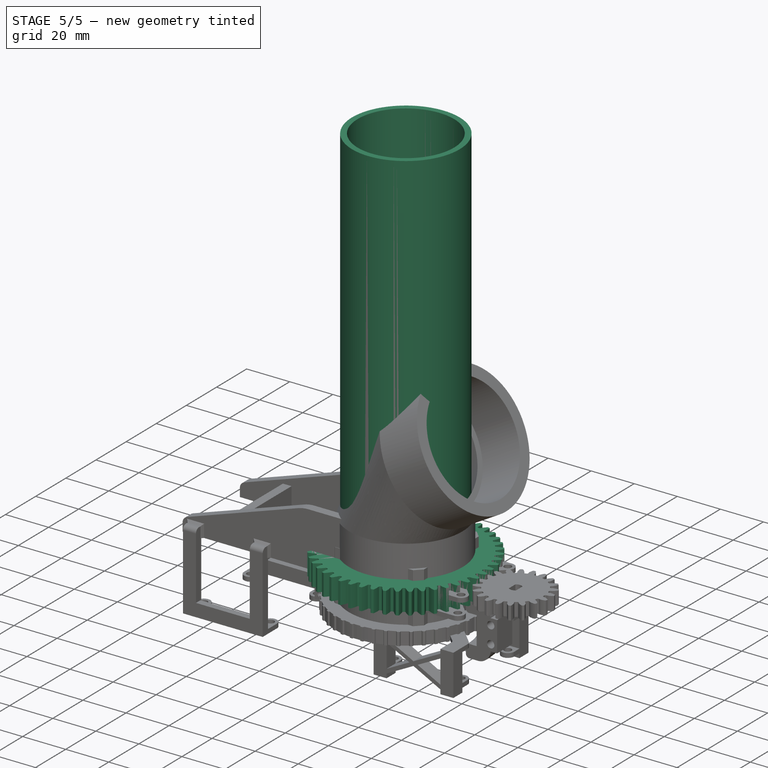
[diagram: stage 5 of 5 — iso view after this stage's code; geometry added in this stage tinted green]
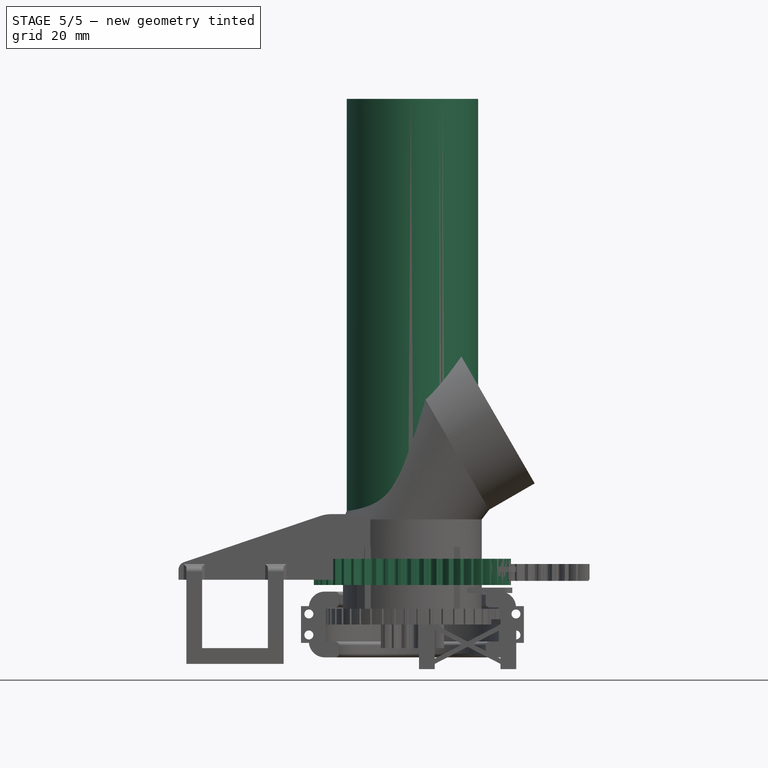
[diagram: stage 5 of 5 — front view after this stage's code; geometry added in this stage tinted green]
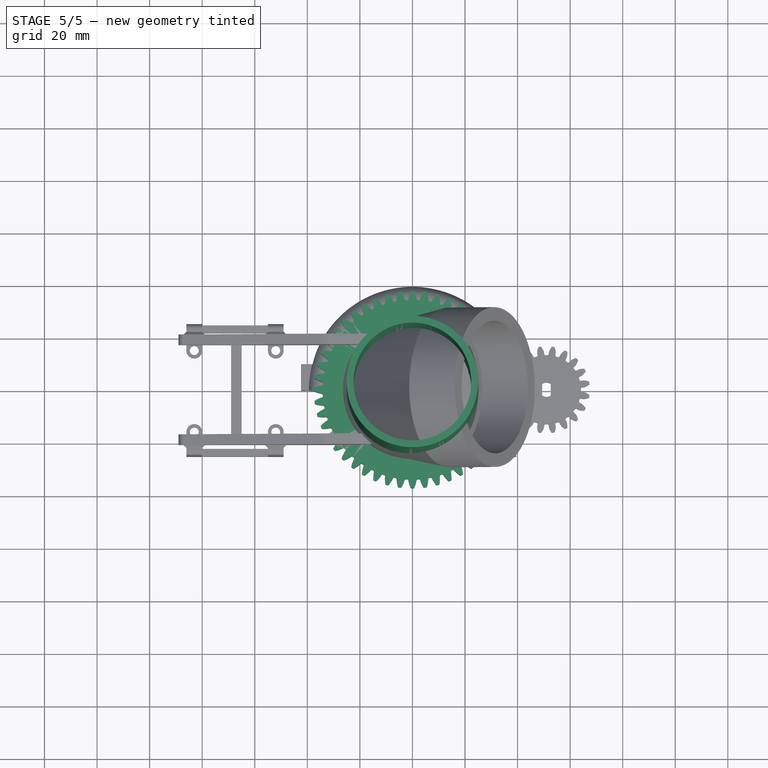
[diagram: stage 5 of 5 — top view after this stage's code; geometry added in this stage tinted green]
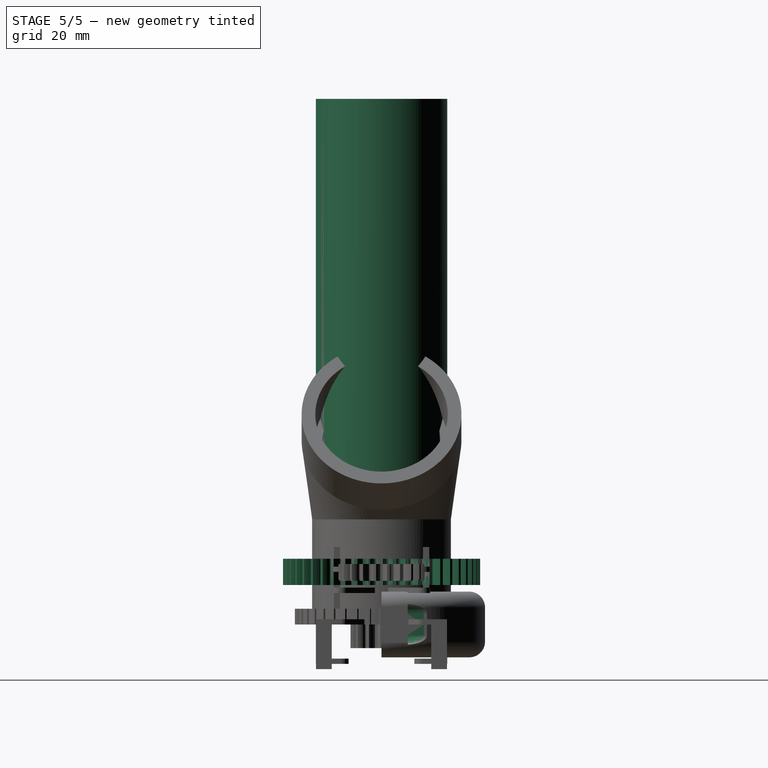
[diagram: stage 5 of 5 — right view after this stage's code; geometry added in this stage tinted green]
FEATURE [Sketcher::SketchObject] Sketch
  FullyConstrained = true
  MapMode = 5
  Support = -> [XY_Plane]
  sketch-geometry (3):
    g0: Circle CenterX=0 CenterY=0 CenterZ=0 NormalX=0 NormalY=0 NormalZ=1 AngleXU=0 Radius=26.4
    g1: Circle CenterX=0 CenterY=0 CenterZ=0 NormalX=0 NormalY=0 NormalZ=1 AngleXU=0 Radius=22.4
    g2: LineSegment StartX=22.4 StartY=0 StartZ=0 EndX=26.4 EndY=0 EndZ=0
  constraints (8):
    c: Coincident(g0,g-1)
    c: Coincident(g1,g0)
    c: PointOnObject(g2,g1)
    c: PointOnObject(g2,g0)
    c: Horizontal(g2)
    c: Distance(g2) = 4
    c: PointOnObject(g2,g-1)
    c: Diameter(g1) = 44.8
FEATURE [Sketcher::SketchObject] Sketch022  label="Sketch copy"
  AttachmentOffset = pos=(0,0,40) rot=(0,0,1;0rad)
  FullyConstrained = true
  MapMode = 5
  Placement = pos=(0,0,40) rot=(0,0,1;0rad)
  Support = -> [XY_Plane]
  sketch-geometry (3):
    g0: Circle CenterX=0 CenterY=0 CenterZ=0 NormalX=0 NormalY=0 NormalZ=1 AngleXU=0 Radius=26.4
    g1: Circle CenterX=0 CenterY=0 CenterZ=0 NormalX=0 NormalY=0 NormalZ=1 AngleXU=0 Radius=22.4
    g2: LineSegment StartX=22.4 StartY=0 StartZ=0 EndX=26.4 EndY=0 EndZ=0
  constraints (8):
    c: Coincident(g0,g-1)
    c: Coincident(g1,g0)
    c: PointOnObject(g2,g1)
    c: PointOnObject(g2,g0)
    c: Horizontal(g2)
    c: Distance(g2) = 4
    c: PointOnObject(g2,g-1)
    c: Diameter(g1) = 44.8
FEATURE [PartDesign::AdditiveLoft] AdditiveLoft
  Closed = false
  Profile = -> Sketch
  Ruled = false
  Sections = -> [Sketch022]
FEATURE [Sketcher::SketchObject] Sketch023  label="Sketch copy 2"
  AttachmentOffset = pos=(14,0,30) rot=(0,1,0;1.0472rad)
  FullyConstrained = true
  MapMode = 5
  Placement = pos=(14,0,70) rot=(0,1,0;1.0472rad)
  Support = -> [AdditiveLoft]
  sketch-geometry (3):
    g0: Circle CenterX=0 CenterY=0 CenterZ=0 NormalX=0 NormalY=0 NormalZ=1 AngleXU=0 Radius=30.4
    g1: Circle CenterX=0 CenterY=0 CenterZ=0 NormalX=0 NormalY=0 NormalZ=1 AngleXU=0 Radius=22.4
    g2: LineSegment StartX=22.4 StartY=0 StartZ=0 EndX=30.4 EndY=0 EndZ=0
  constraints (8):
    c: Coincident(g0,g-1)
    c: Coincident(g1,g0)
    c: PointOnObject(g2,g1)
    c: PointOnObject(g2,g0)
    c: Horizontal(g2)
    c: Distance(g2) = 8
    c: PointOnObject(g2,g-1)
    c: Diameter(g1) = 44.8
FEATURE [PartDesign::AdditiveLoft] AdditiveLoft001
  BaseFeature = -> AdditiveLoft
  Closed = false
  Profile = -> AdditiveLoft [Face3]
  Ruled = false
  Sections = -> [Sketch023]
FEATURE [Sketcher::SketchObject] Sketch024
  FullyConstrained = true
  MapMode = 5
  Support = -> [XY_Plane006]
  sketch-geometry (3):
    g0: Circle CenterX=0 CenterY=0 CenterZ=0 NormalX=0 NormalY=0 NormalZ=1 AngleXU=0 Radius=25
    g1: Circle CenterX=0 CenterY=0 CenterZ=0 NormalX=0 NormalY=0 NormalZ=1 AngleXU=0 Radius=22.4
    g2: LineSegment StartX=22.4 StartY=0 StartZ=0 EndX=25 EndY=0 EndZ=0
  constraints (8):
    c: Coincident(g0,g-1)
    c: Diameter(g0) = 50
    c: Coincident(g1,g0)
    c: PointOnObject(g2,g1)
    c: PointOnObject(g2,g0)
    c: Horizontal(g2)
    c: Distance(g2) = 2.6
    c: PointOnObject(g2,g-1)
FEATURE [PartDesign::Pad] Pad
  Direction = (0,0,1)
  Length = 200
  Length2 = 10
  Profile = -> Sketch024
  ReferenceAxis = -> Sketch024 [N_Axis]
  Type = 0
FEATURE [PartDesign::Body] Body005  label="Body003: Pipe top"
  Group = -> [Sketch024,Pad]
  Origin = -> Origin006
  Placement = pos=(16.3013,0,71.7654) rot=(0,1,0;1.0472rad)
  Tip = -> Pad
FEATURE [Sketcher::SketchObject] Sketch025
  FullyConstrained = true
  MapMode = 5
  Support = -> [XY_Plane007]
  sketch-geometry (3):
    g0: Circle CenterX=0 CenterY=0 CenterZ=0 NormalX=0 NormalY=0 NormalZ=1 AngleXU=0 Radius=25
    g1: Circle CenterX=0 CenterY=0 CenterZ=0 NormalX=0 NormalY=0 NormalZ=1 AngleXU=0 Radius=22.4
    g2: LineSegment StartX=22.4 StartY=0 StartZ=0 EndX=25 EndY=0 EndZ=0
  constraints (8):
    c: Coincident(g0,g-1)
    c: Diameter(g0) = 50
    c: Coincident(g1,g0)
    c: PointOnObject(g2,g1)
    c: PointOnObject(g2,g0)
    c: Horizontal(g2)
    c: Distance(g2) = 2.6
    c: PointOnObject(g2,g-1)
FEATURE [PartDesign::Pad] Pad012
  Direction = (0,0,1)
  Length = 200
  Length2 = 10
  Profile = -> Sketch025
  ReferenceAxis = -> Sketch025 [N_Axis]
  Type = 0
FEATURE [PartDesign::Body] Body006  label="Body003: Pipe bottom"
  Group = -> [Sketch025,Pad012]
  Origin = -> Origin007
  Placement = pos=(-200.399,0,-176.899) rot=(0,1,0;1.0472rad)
  Tip = -> Pad012
FEATURE [PartDesign::Plane] DatumPlane
  Length = 96.6141
  MapMode = 11
  Placement = pos=(14,0,70) rot=(0.447214,0.447214,0.774597;1.82348rad)
  ResizeMode = 0
  Support = -> [AdditiveLoft001]
  Width = 177.335
FEATURE [Sketcher::SketchObject] Sketch027
  FullyConstrained = true
  MapMode = 5
  Placement = pos=(14,0,70) rot=(0.447214,0.447214,0.774597;1.82348rad)
  Support = -> [DatumPlane]
  sketch-geometry (2):
    g0: Circle CenterX=0 CenterY=0 CenterZ=0 NormalX=0 NormalY=0 NormalZ=1 AngleXU=0 Radius=25.2
    g1: Circle CenterX=0 CenterY=0 CenterZ=0 NormalX=0 NormalY=0 NormalZ=1 AngleXU=0 Radius=30.4
  constraints (4):
    c: Coincident(g0,g-1)
    c: Diameter(g0) = 50.4
    c: Coincident(g1,g0)
    c: Diameter(g1) = 60.8
FEATURE [PartDesign::Pad] Pad013
  BaseFeature = -> AdditiveLoft001
  Direction = (0.866025,0,0.5)
  Length = 20
  Length2 = 10
  Profile = -> Sketch027
  ReferenceAxis = -> Sketch027 [N_Axis]
  Type = 0
FEATURE [Sketcher::SketchObject] Sketch032
  FullyConstrained = true
  MapMode = 5
  Placement = pos=(0,0,0) rot=(0.57735,0.57735,0.57735;2.0944rad)
  Support = -> [YZ_Plane]
  sketch-geometry (5):
    g0: LineSegment StartX=26.4 StartY=0 StartZ=0 EndX=0 EndY=0 EndZ=0
    g1: LineSegment StartX=26.4 StartY=0 StartZ=0 EndX=32.4 EndY=0 EndZ=0
    g2: LineSegment StartX=32.4 StartY=0 StartZ=0 EndX=32.4 EndY=6 EndZ=0
    g3: LineSegment StartX=26.4 StartY=0 StartZ=0 EndX=26.4 EndY=6 EndZ=0
    g4: LineSegment StartX=26.4 StartY=6 StartZ=0 EndX=32.4 EndY=6 EndZ=0
  constraints (14):
    c: PointOnObject(g0,g-1)
    c: Coincident(g0,g-1)
    c: Distance(g0) = 26.4
    c: Coincident(g1,g0)
    c: PointOnObject(g1,g-1)
    c: Distance(g1) = 6
    c: Coincident(g2,g1)
    c: Vertical(g2)
    c: Distance(g2) = 6
    c: Coincident(g3,g1)
    c: Vertical(g3)
    c: Coincident(g4,g3)
    c: Coincident(g4,g2)
    c: Horizontal(g4)
FEATURE [PartDesign::Revolution] Revolution
  Angle = 360
  Axis = (-2e-16,3e-16,1)
  Base = (0,0,0)
  BaseFeature = -> Pad013
  Profile = -> Sketch032
  ReferenceAxis = -> Sketch032 [V_Axis]
  Reversed = true
FEATURE [Sketcher::SketchObject] Sketch033
  FullyConstrained = true
  MapMode = 5
  Placement = pos=(0,0,0) rot=(0.57735,0.57735,0.57735;2.0944rad)
  Support = -> [YZ_Plane009]
  sketch-geometry (23):
    g0: LineSegment StartX=0 StartY=0 StartZ=0 EndX=33.4 EndY=0 EndZ=0
    g1: LineSegment StartX=33.4 StartY=0 StartZ=0 EndX=33.4 EndY=6.5 EndZ=0
    g2: LineSegment StartX=33.4 StartY=6.5 StartZ=0 EndX=29.9 EndY=6.5 EndZ=0
    g3: LineSegment StartX=28.4 StartY=8 StartZ=0 EndX=28.4 EndY=11 EndZ=0
    g4: LineSegment StartX=29.9 StartY=12.5 StartZ=0 EndX=33.4 EndY=12.5 EndZ=0
    g5: LineSegment StartX=39.4 StartY=6.5 StartZ=0 EndX=39.4 EndY=0 EndZ=0
    g6: ArcOfCircle CenterX=29.9 CenterY=8 CenterZ=0 NormalX=0 NormalY=0 NormalZ=1 AngleXU=0 Radius=1.5 StartAngle=3.14159 EndAngle=4.71239
    g7: GeomPoint X=28.4 Y=6.5 Z=0
    g8: ArcOfCircle CenterX=29.9 CenterY=11 CenterZ=0 NormalX=0 NormalY=0 NormalZ=1 AngleXU=0 Radius=1.5 StartAngle=1.5708 EndAngle=3.14159
    g9: GeomPoint X=28.4 Y=12.5 Z=0
    g10: ArcOfCircle CenterX=33.4 CenterY=6.5 CenterZ=0 NormalX=0 NormalY=0 NormalZ=1 AngleXU=0 Radius=6 StartAngle=0 EndAngle=1.5708
    g11: GeomPoint X=39.4 Y=12.5 Z=0
    g12: LineSegment StartX=39.4 StartY=0 StartZ=0 EndX=39.4 EndY=-6.5 EndZ=0
    g13: LineSegment StartX=33.4 StartY=-12.5 StartZ=0 EndX=29.9 EndY=-12.5 EndZ=0
    g14: LineSegment StartX=28.4 StartY=-11 StartZ=0 EndX=28.4 EndY=-8 EndZ=0
    g15: LineSegment StartX=29.9 StartY=-6.5 StartZ=0 EndX=33.4 EndY=-6.5 EndZ=0
    g16: LineSegment StartX=33.4 StartY=-6.5 StartZ=0 EndX=33.4 EndY=0 EndZ=0
    g17: ArcOfCircle CenterX=29.9 CenterY=-11 CenterZ=0 NormalX=0 NormalY=0 NormalZ=1 AngleXU=0 Radius=1.5 StartAngle=3.14159 EndAngle=4.71239
    g18: GeomPoint X=28.4 Y=-12.5 Z=0
    g19: ArcOfCircle CenterX=33.4 CenterY=-6.5 CenterZ=0 NormalX=0 NormalY=0 NormalZ=1 AngleXU=0 Radius=6 StartAngle=4.71239 EndAngle=6.28319
    g20: GeomPoint X=39.4 Y=-12.5 Z=0
    g21: ArcOfCircle CenterX=29.9 CenterY=-8 CenterZ=0 NormalX=0 NormalY=0 NormalZ=1 AngleXU=0 Radius=1.5 StartAngle=1.5708 EndAngle=3.14159
    g22: GeomPoint X=28.4 Y=-6.5 Z=0
  constraints (56):
    c: Coincident(g0,g-1)
    c: PointOnObject(g0,g-1)
    c: Distance(g0) = 33.4
    c: Coincident(g1,g0)
    c: Vertical(g1)
    c: Coincident(g2,g1)
    c: Horizontal(g2)
    c: Distance(g1) = 6.5
    c: Distance(g2,g7) = 5
    c: Vertical(g3)
    c: Distance(g9,g7) = 6
    c: Horizontal(g4)
    c: PointOnObject(g5,g-1)
    c: Vertical(g5)
    c: Distance(g5,g1) = 6
    c: PointOnObject(g7,g2)
    c: PointOnObject(g7,g3)
    c: Tangent(g2,g6) = 1.5708
    c: Tangent(g3,g6) = 1.5708
    c: PointOnObject(g9,g3)
    c: PointOnObject(g9,g4)
    c: Tangent(g3,g8) = 1.5708
    c: Tangent(g4,g8) = 1.5708
    c: PointOnObject(g11,g4)
    c: PointOnObject(g11,g5)
    c: Tangent(g4,g10) = 1.5708
    c: Tangent(g5,g10) = 1.5708
    c: Radius(g6) = 1.5
    c: Radius(g8) = 1.5
    c: Radius(g10) = 6
    c: Coincident(g12,g5)
    c: Vertical(g12)
    c: Horizontal(g13)
    c: Vertical(g14)
    c: Horizontal(g15)
    c: Coincident(g16,g15)
    c: Coincident(g16,g1)
    c: Vertical(g16)
    c: PointOnObject(g18,g14)
    c: PointOnObject(g18,g13)
    c: Tangent(g14,g17) = 1.5708
    c: Tangent(g13,g17) = 1.5708
    c: PointOnObject(g20,g13)
    c: PointOnObject(g20,g12)
    c: Tangent(g13,g19) = 1.5708
    c: Tangent(g12,g19) = 1.5708
    c: PointOnObject(g22,g14)
    c: PointOnObject(g22,g15)
    c: Tangent(g14,g21) = 1.5708
    c: Tangent(g15,g21) = 1.5708
    c: Equal(g5,g12)
    c: Equal(g1,g16)
    c: Equal(g10,g19)
    c: Equal(g8,g17)
    c: Equal(g3,g14)
    c: Equal(g2,g15)
FEATURE [PartDesign::Revolution] Revolution001
  Angle = 180
  Axis = (-2e-16,3e-16,1)
  Base = (0,0,0)
  Midplane = true
  Placement = pos=(0,0,0) rot=(0.57735,0.57735,0.57735;2.0944rad)
  Profile = -> Sketch033
  ReferenceAxis = -> Sketch033 [V_Axis]
FEATURE [Sketcher::SketchObject] Sketch034
  FullyConstrained = true
  MapMode = 5
  Placement = pos=(0,1e-16,0) rot=(0.57735,0.57735,-0.57735;2.0944rad)
  Support = -> [Revolution001]
  sketch-geometry (11):
    g0: Circle CenterX=4 CenterY=39.4 CenterZ=0 NormalX=0 NormalY=0 NormalZ=1 AngleXU=0 Radius=1.7
    g1: LineSegment StartX=4 StartY=39.4 StartZ=0 EndX=4 EndY=0 EndZ=0
    g2: LineSegment StartX=4 StartY=0 StartZ=0 EndX=0 EndY=0 EndZ=0
    g3: Circle CenterX=-4 CenterY=39.4 CenterZ=0 NormalX=0 NormalY=0 NormalZ=1 AngleXU=0 Radius=1.7
    g4: Circle CenterX=-4 CenterY=-39.4 CenterZ=0 NormalX=0 NormalY=0 NormalZ=1 AngleXU=0 Radius=1.7
    g5: Circle CenterX=4 CenterY=-39.4 CenterZ=0 NormalX=0 NormalY=0 NormalZ=1 AngleXU=0 Radius=1.7
    g6: LineSegment StartX=4 StartY=0 StartZ=0 EndX=4 EndY=-39.4 EndZ=0
    g7: LineSegment StartX=-4 StartY=39.4 StartZ=0 EndX=0 EndY=39.4 EndZ=0
    g8: LineSegment StartX=0 StartY=39.4 StartZ=0 EndX=4 EndY=39.4 EndZ=0
    g9: LineSegment StartX=-4 StartY=-39.4 StartZ=0 EndX=0 EndY=-39.4 EndZ=0
    g10: LineSegment StartX=0 StartY=-39.4 StartZ=0 EndX=4 EndY=-39.4 EndZ=0
  constraints (29):
    c: Diameter(g0) = 3.4
    c: Coincident(g1,g0)
    c: PointOnObject(g1,g-1)
    c: Vertical(g1)
    c: Coincident(g2,g1)
    c: Coincident(g2,g-1)
    c: Distance(g1) = 39.4
    c: Distance(g2) = 4
    c: Equal(g0,g3)
    c: Equal(g0,g5)
    c: Equal(g0,g4)
    c: Coincident(g6,g1)
    c: Coincident(g6,g5)
    c: Vertical(g6)
    c: Equal(g6,g1)
    c: Coincident(g7,g3)
    c: PointOnObject(g7,g-2)
    c: Horizontal(g7)
    c: Coincident(g8,g7)
    c: Coincident(g8,g0)
    c: Horizontal(g8)
    c: Coincident(g9,g4)
    c: PointOnObject(g9,g-2)
    c: Horizontal(g9)
    c: Coincident(g10,g9)
    c: Coincident(g10,g5)
    c: Horizontal(g10)
    c: Equal(g2,g9)
    c: Equal(g7,g2)
FEATURE [Sketcher::SketchObject] Sketch035
  FullyConstrained = true
  MapMode = 5
  Placement = pos=(0,1e-16,0) rot=(0.57735,0.57735,-0.57735;2.0944rad)
  Support = -> [Revolution001]
  sketch-geometry (11):
    g0: LineSegment StartX=7 StartY=36.4 StartZ=0 EndX=-7 EndY=36.4 EndZ=0
    g1: LineSegment StartX=-7 StartY=36.4 StartZ=0 EndX=-7 EndY=42.4 EndZ=0
    g2: LineSegment StartX=-7 StartY=42.4 StartZ=0 EndX=7 EndY=42.4 EndZ=0
    g3: LineSegment StartX=7 StartY=42.4 StartZ=0 EndX=7 EndY=36.4 EndZ=0
    g4: LineSegment StartX=-7 StartY=-36.4 StartZ=0 EndX=-7 EndY=-42.4 EndZ=0
    g5: LineSegment StartX=-7 StartY=-42.4 StartZ=0 EndX=7 EndY=-42.4 EndZ=0
    g6: LineSegment StartX=7 StartY=-42.4 StartZ=0 EndX=7 EndY=-36.4 EndZ=0
    g7: LineSegment StartX=7 StartY=-36.4 StartZ=0 EndX=-7 EndY=-36.4 EndZ=0
    g8: LineSegment StartX=-7 StartY=36.4 StartZ=0 EndX=-7 EndY=0 EndZ=0
    g9: LineSegment StartX=-7 StartY=0 StartZ=0 EndX=0 EndY=0 EndZ=0
    g10: LineSegment StartX=-7 StartY=0 StartZ=0 EndX=-7 EndY=-36.4 EndZ=0
  constraints (31):
    c: Horizontal(g0)
    c: Coincident(g1,g0)
    c: Vertical(g1)
    c: Coincident(g2,g1)
    c: Horizontal(g2)
    c: Coincident(g3,g2)
    c: Coincident(g3,g0)
    c: Vertical(g3)
    c: Distance(g0,g-2) = 7
    c: Distance(g2) = 14
    c: Distance(g3) = 6
    c: DistanceY(g-1,g0) = 36.4
    c: Vertical(g4)
    c: Coincident(g5,g4)
    c: Horizontal(g5)
    c: Coincident(g6,g5)
    c: Vertical(g6)
    c: Coincident(g7,g6)
    c: Coincident(g7,g4)
    c: Horizontal(g7)
    c: Equal(g3,g6)
    c: Equal(g2,g5)
    c: Coincident(g8,g0)
    c: PointOnObject(g8,g-1)
    c: Vertical(g8)
    c: Coincident(g9,g8)
    c: Coincident(g9,g-1)
    c: Coincident(g10,g8)
    c: Coincident(g10,g4)
    c: Vertical(g10)
    c: Equal(g8,g10)
FEATURE [PartDesign::Pad] Pad015
  BaseFeature = -> Revolution001
  Direction = (-3e-16,-1,1e-16)
  Length = 10
  Length2 = 10
  Placement = pos=(0,0,0) rot=(0.57735,0.57735,0.57735;2.0944rad)
  Profile = -> Sketch035
  ReferenceAxis = -> Sketch035 [N_Axis]
  Reversed = true
  Type = 0
FEATURE [PartDesign::Pocket] Pocket
  BaseFeature = -> Pad015
  Direction = (3e-16,1,-1e-16)
  Length = 5
  Length2 = 5
  Placement = pos=(0,0,0) rot=(0.57735,0.57735,0.57735;2.0944rad)
  Profile = -> Sketch034
  ReferenceAxis = -> Sketch034 [N_Axis]
  Type = 1
FEATURE [Sketcher::SketchObject] Sketch036
  FullyConstrained = true
  MapMode = 5
  Placement = pos=(0,0,0) rot=(1,0,0;1.5708rad)
  Support = -> [XZ_Plane010]
  sketch-geometry (6):
    g0: LineSegment StartX=1.5 StartY=0 StartZ=0 EndX=1.5 EndY=23 EndZ=0
    g1: LineSegment StartX=1.5 StartY=23 StartZ=0 EndX=2.75 EndY=23 EndZ=0
    g2: LineSegment StartX=2.75 StartY=23 StartZ=0 EndX=2.75 EndY=26 EndZ=0
    g3: LineSegment StartX=2.75 StartY=26 StartZ=0 EndX=0 EndY=26 EndZ=0
    g4: LineSegment StartX=1.5 StartY=0 StartZ=0 EndX=0 EndY=0 EndZ=0
    g5: LineSegment StartX=0 StartY=26 StartZ=0 EndX=0 EndY=0 EndZ=0
  constraints (17):
    c: PointOnObject(g0,g-1)
    c: Vertical(g0)
    c: DistanceX(g-1,g0) = 1.5
    c: Coincident(g1,g0)
    c: Horizontal(g1)
    c: Coincident(g2,g1)
    c: Vertical(g2)
    c: Coincident(g3,g2)
    c: Horizontal(g3)
    c: Distance(g2) = 3
    c: PointOnObject(g3,g-2)
    c: Coincident(g4,g0)
    c: Coincident(g4,g-1)
    c: Coincident(g5,g3)
    c: Coincident(g5,g4)
    c: Distance(g3) = 2.75
    c: Distance(g3,g4) = 26
FEATURE [PartDesign::Revolution] Revolution002
  Angle = 360
  Axis = (0,-2e-16,1)
  Base = (0,0,0)
  Placement = pos=(0,0,0) rot=(1,0,0;1.5708rad)
  Profile = -> Sketch036
  ReferenceAxis = -> Sketch036 [V_Axis]
  Reversed = true
FEATURE [PartDesign::Body] Body009  label="Body009: Screw (M3 cut)"
  Group = -> [Sketch036,Revolution002]
  Origin = -> Origin010
  Placement = pos=(-39.5,-12,3.5) rot=(-1,0,0;1.5708rad)
  Tip = -> Revolution002
FEATURE [Sketcher::SketchObject] Sketch037
  FullyConstrained = true
  MapMode = 5
  Placement = pos=(4.4e-15,10,-1.1e-15) rot=(0.57735,0.57735,0.57735;4.18879rad)
  Support = -> [Pocket]
  sketch-geometry (12):
    g0: LineSegment StartX=-4 StartY=0 StartZ=0 EndX=-4 EndY=39.4 EndZ=0
    g1: LineSegment StartX=-4 StartY=43.4 StartZ=0 EndX=4 EndY=43.4 EndZ=0
    g2: LineSegment StartX=-4 StartY=35.4 StartZ=0 EndX=4 EndY=35.4 EndZ=0
    g3: ArcOfCircle CenterX=-4 CenterY=39.4 CenterZ=0 NormalX=0 NormalY=0 NormalZ=1 AngleXU=0 Radius=4 StartAngle=1.5708 EndAngle=4.71239
    g4: ArcOfCircle CenterX=4 CenterY=39.4 CenterZ=0 NormalX=0 NormalY=0 NormalZ=1 AngleXU=0 Radius=4 StartAngle=4.71239 EndAngle=7.85398
    g5: LineSegment StartX=-4 StartY=0 StartZ=0 EndX=0 EndY=0 EndZ=0
    g6: LineSegment StartX=-4 StartY=0 StartZ=0 EndX=-4 EndY=-39.4 EndZ=0
    g7: LineSegment StartX=-4 StartY=-35.4 StartZ=0 EndX=4 EndY=-35.4 EndZ=0
    g8: LineSegment StartX=-4 StartY=-43.4 StartZ=0 EndX=4 EndY=-43.4 EndZ=0
    g9: ArcOfCircle CenterX=4 CenterY=-39.4 CenterZ=0 NormalX=0 NormalY=0 NormalZ=1 AngleXU=0 Radius=4 StartAngle=4.71239 EndAngle=7.85398
    g10: ArcOfCircle CenterX=-4 CenterY=-39.4 CenterZ=0 NormalX=0 NormalY=0 NormalZ=1 AngleXU=0 Radius=4 StartAngle=1.5708 EndAngle=4.71239
    g11: LineSegment StartX=-4 StartY=-39.4 StartZ=0 EndX=4 EndY=-39.4 EndZ=0
  constraints (33):
    c: PointOnObject(g0,g-1)
    c: Vertical(g0)
    c: Distance(g0) = 39.4
    c: Horizontal(g1)
    c: Horizontal(g2)
    c: Coincident(g4,g2)
    c: Coincident(g4,g1)
    c: Equal(g3,g4)
    c: Equal(g1,g2)
    c: Tangent(g3,g1) = 1.5708
    c: Distance(g1,g2) = 8
    c: Tangent(g3,g2) = -1.5708
    c: Coincident(g3,g0)
    c: Distance(g4,g3) = 8
    c: Coincident(g5,g0)
    c: Coincident(g5,g-1)
    c: Distance(g5) = 4
    c: Coincident(g6,g0)
    c: Vertical(g6)
    c: Equal(g0,g6)
    c: Horizontal(g7)
    c: Horizontal(g8)
    c: Coincident(g9,g8)
    c: Coincident(g10,g7)
    c: Equal(g7,g8)
    c: Tangent(g9,g7) = 1.5708
    c: Tangent(g10,g8) = -1.5708
    c: Coincident(g10,g6)
    c: Coincident(g11,g10)
    c: Coincident(g11,g9)
    c: Horizontal(g11)
    c: Distance(g11) = 8
    c: Equal(g9,g4)
FEATURE [PartDesign::Pocket] Pocket001
  BaseFeature = -> Pocket
  Direction = (-4e-16,-1,6e-16)
  Length = 6
  Length2 = 5
  Placement = pos=(0,0,0) rot=(0.57735,0.57735,0.57735;2.0944rad)
  Profile = -> Sketch037
  ReferenceAxis = -> Sketch037 [N_Axis]
  Reversed = true
  Type = 1
FEATURE [Sketcher::SketchObject] Sketch044
  AttachmentOffset = pos=(0,0,-20) rot=(0,0,1;0rad)
  FullyConstrained = false
  MapMode = 11
  Placement = pos=(0,0,20) rot=(0,0,1;1.5708rad)
  Support = -> [Revolution]
  sketch-geometry (385):
    g0: BSplineCurve PolesCount=4 KnotsCount=2 Degree=3 IsPeriodic=0
    g1: BSplineCurve PolesCount=4 KnotsCount=2 Degree=3 IsPeriodic=0
    g2: ArcOfCircle CenterX=0.00055013 CenterY=0 CenterZ=0 NormalX=0 NormalY=0 NormalZ=1 AngleXU=-0.0154527 Radius=37.5 StartAngle=0 EndAngle=0.0309054
    g3: BSplineCurve PolesCount=4 KnotsCount=2 Degree=3 IsPeriodic=0
    g4: BSplineCurve PolesCount=4 KnotsCount=2 Degree=3 IsPeriodic=0
    g5: ArcOfCircle CenterX=34.6235 CenterY=2.09232 CenterZ=0 NormalX=0 NormalY=0 NormalZ=1 AngleXU=-1.85633 Radius=0.5625 StartAngle=5.00512 EndAngle=6.28319
    g6: ArcOfCircle CenterX=-2.68773e-10 CenterY=-1.836e-11 CenterZ=0 NormalX=0 NormalY=0 NormalZ=1 AngleXU=0.0612332 Radius=34.125 StartAngle=0 EndAngle=0.00843337
    g7: ArcOfCircle CenterX=34.6004 CenterY=2.44486 CenterZ=0 NormalX=0 NormalY=0 NormalZ=1 AngleXU=-3.01788 Radius=0.5625 StartAngle=5.0052 EndAngle=6.28319
    g8: BSplineCurve PolesCount=4 KnotsCount=2 Degree=3 IsPeriodic=0
    g9: BSplineCurve PolesCount=4 KnotsCount=2 Degree=3 IsPeriodic=0
    g10: ArcOfCircle CenterX=0.000545423 CenterY=7.18064e-05 CenterZ=0 NormalX=0 NormalY=0 NormalZ=1 AngleXU=0.115447 Radius=37.5 StartAngle=0 EndAngle=0.0309054
    g11: BSplineCurve PolesCount=4 KnotsCount=2 Degree=3 IsPeriodic=0
    g12: BSplineCurve PolesCount=4 KnotsCount=2 Degree=3 IsPeriodic=0
    g13: ArcOfCircle CenterX=34.0542 CenterY=6.5937 CenterZ=0 NormalX=0 NormalY=0 NormalZ=1 AngleXU=-1.72543 Radius=0.5625 StartAngle=5.00512 EndAngle=6.28319
    g14: ArcOfCircle CenterX=2.04675e-10 CenterY=3.91447e-11 CenterZ=0 NormalX=0 NormalY=0 NormalZ=1 AngleXU=0.192133 Radius=34.125 StartAngle=0 EndAngle=0.00843337
    g15: ArcOfCircle CenterX=33.9853 CenterY=6.9402 CenterZ=0 NormalX=0 NormalY=0 NormalZ=1 AngleXU=-2.88698 Radius=0.5625 StartAngle=5.0052 EndAngle=6.28319
    g16: BSplineCurve PolesCount=4 KnotsCount=2 Degree=3 IsPeriodic=0
    g17: BSplineCurve PolesCount=4 KnotsCount=2 Degree=3 IsPeriodic=0
    g18: ArcOfCircle CenterX=0.000531385 CenterY=0.000142384 CenterZ=0 NormalX=0 NormalY=0 NormalZ=1 AngleXU=0.246347 Radius=37.5 StartAngle=0 EndAngle=0.0309054
    g19: BSplineCurve PolesCount=4 KnotsCount=2 Degree=3 IsPeriodic=0
    g20: BSplineCurve PolesCount=4 KnotsCount=2 Degree=3 IsPeriodic=0
    g21: ArcOfCircle CenterX=32.9022 CenterY=10.9823 CenterZ=0 NormalX=0 NormalY=0 NormalZ=1 AngleXU=-1.59453 Radius=0.5625 StartAngle=5.00512 EndAngle=6.28319
    g22: ArcOfCircle CenterX=-3.25322e-10 CenterY=-1.1129e-10 CenterZ=0 NormalX=0 NormalY=0 NormalZ=1 AngleXU=0.323033 Radius=34.125 StartAngle=0 EndAngle=0.00843337
    g23: ArcOfCircle CenterX=32.7887 CenterY=11.3168 CenterZ=0 NormalX=0 NormalY=0 NormalZ=1 AngleXU=-2.75609 Radius=0.5625 StartAngle=5.0052 EndAngle=6.28319
    g24: BSplineCurve PolesCount=4 KnotsCount=2 Degree=3 IsPeriodic=0
    g25: BSplineCurve PolesCount=4 KnotsCount=2 Degree=3 IsPeriodic=0
    g26: ArcOfCircle CenterX=0.000508254 CenterY=0.000210526 CenterZ=0 NormalX=0 NormalY=0 NormalZ=1 AngleXU=0.377246 Radius=37.5 StartAngle=0 EndAngle=0.0309054
    g27: BSplineCurve PolesCount=4 KnotsCount=2 Degree=3 IsPeriodic=0
    g28: BSplineCurve PolesCount=4 KnotsCount=2 Degree=3 IsPeriodic=0
    g29: ArcOfCircle CenterX=31.1873 CenterY=15.1829 CenterZ=0 NormalX=0 NormalY=0 NormalZ=1 AngleXU=-1.46363 Radius=0.5625 StartAngle=5.00512 EndAngle=6.28319
    g30: ArcOfCircle CenterX=-8.864e-12 CenterY=-5.0084e-12 CenterZ=0 NormalX=0 NormalY=0 NormalZ=1 AngleXU=0.453932 Radius=34.125 StartAngle=0 EndAngle=0.00843337
    g31: ArcOfCircle CenterX=31.031 CenterY=15.4998 CenterZ=0 NormalX=0 NormalY=0 NormalZ=1 AngleXU=-2.62519 Radius=0.5625 StartAngle=5.0052 EndAngle=6.28319
    g32: BSplineCurve PolesCount=4 KnotsCount=2 Degree=3 IsPeriodic=0
    g33: BSplineCurve PolesCount=4 KnotsCount=2 Degree=3 IsPeriodic=0
    g34: ArcOfCircle CenterX=0.000476426 CenterY=0.000275065 CenterZ=0 NormalX=0 NormalY=0 NormalZ=1 AngleXU=0.508146 Radius=37.5 StartAngle=0 EndAngle=0.0309054
    g35: BSplineCurve PolesCount=4 KnotsCount=2 Degree=3 IsPeriodic=0
    g36: BSplineCurve PolesCount=4 KnotsCount=2 Degree=3 IsPeriodic=0
    g37: ArcOfCircle CenterX=28.9387 CenterY=19.1238 CenterZ=0 NormalX=0 NormalY=0 NormalZ=1 AngleXU=-1.33273 Radius=0.5625 StartAngle=5.00512 EndAngle=6.28319
    g38: ArcOfCircle CenterX=-1.03163e-09 CenterY=-6.8988e-10 CenterZ=0 NormalX=0 NormalY=0 NormalZ=1 AngleXU=0.584832 Radius=34.125 StartAngle=0 EndAngle=0.00843337
    g39: ArcOfCircle CenterX=28.7424 CenterY=19.4175 CenterZ=0 NormalX=0 NormalY=0 NormalZ=1 AngleXU=-2.49429 Radius=0.5625 StartAngle=5.0052 EndAngle=6.28319
    g40: BSplineCurve PolesCount=4 KnotsCount=2 Degree=3 IsPeriodic=0
    g41: BSplineCurve PolesCount=4 KnotsCount=2 Degree=3 IsPeriodic=0
    g42: ArcOfCircle CenterX=0.000436447 CenterY=0.000334898 CenterZ=0 NormalX=0 NormalY=0 NormalZ=1 AngleXU=0.639046 Radius=37.5 StartAngle=0 EndAngle=0.0309054
    g43: BSplineCurve PolesCount=4 KnotsCount=2 Degree=3 IsPeriodic=0
    g44: BSplineCurve PolesCount=4 KnotsCount=2 Degree=3 IsPeriodic=0
    g45: ArcOfCircle CenterX=26.195 CenterY=22.7374 CenterZ=0 NormalX=0 NormalY=0 NormalZ=1 AngleXU=-1.20183 Radius=0.5625 StartAngle=5.00512 EndAngle=6.28319
    g46: ArcOfCircle CenterX=2.95604e-11 CenterY=2.54623e-11 CenterZ=0 NormalX=0 NormalY=0 NormalZ=1 AngleXU=0.715732 Radius=34.125 StartAngle=0 EndAngle=0.00843337
    g47: ArcOfCircle CenterX=25.962 CenterY=23.003 CenterZ=0 NormalX=0 NormalY=0 NormalZ=1 AngleXU=-2.36339 Radius=0.5625 StartAngle=5.0052 EndAngle=6.28319
    g48: BSplineCurve PolesCount=4 KnotsCount=2 Degree=3 IsPeriodic=0
    g49: BSplineCurve PolesCount=4 KnotsCount=2 Degree=3 IsPeriodic=0
    g50: ArcOfCircle CenterX=0.000389001 CenterY=0.000389001 CenterZ=0 NormalX=0 NormalY=0 NormalZ=1 AngleXU=0.769945 Radius=37.5 StartAngle=0 EndAngle=0.0309054
    g51: BSplineCurve PolesCount=4 KnotsCount=2 Degree=3 IsPeriodic=0
    g52: BSplineCurve PolesCount=4 KnotsCount=2 Degree=3 IsPeriodic=0
    g53: ArcOfCircle CenterX=23.003 CenterY=25.962 CenterZ=0 NormalX=0 NormalY=0 NormalZ=1 AngleXU=-1.07094 Radius=0.5625 StartAngle=5.00512 EndAngle=6.28319
    g54: ArcOfCircle CenterX=-3.53197e-10 CenterY=-4.04512e-10 CenterZ=0 NormalX=0 NormalY=0 NormalZ=1 AngleXU=0.846631 Radius=34.125 StartAngle=0 EndAngle=0.00843337
    g55: ArcOfCircle CenterX=22.7374 CenterY=26.195 CenterZ=0 NormalX=0 NormalY=0 NormalZ=1 AngleXU=-2.23249 Radius=0.5625 StartAngle=5.0052 EndAngle=6.28319
    g56: BSplineCurve PolesCount=4 KnotsCount=2 Degree=3 IsPeriodic=0
    g57: BSplineCurve PolesCount=4 KnotsCount=2 Degree=3 IsPeriodic=0
    g58: ArcOfCircle CenterX=0.000334898 CenterY=0.000436447 CenterZ=0 NormalX=0 NormalY=0 NormalZ=1 AngleXU=0.900845 Radius=37.5 StartAngle=0 EndAngle=0.0309054
    g59: BSplineCurve PolesCount=4 KnotsCount=2 Degree=3 IsPeriodic=0
    g60: BSplineCurve PolesCount=4 KnotsCount=2 Degree=3 IsPeriodic=0
    g61: ArcOfCircle CenterX=19.4175 CenterY=28.7424 CenterZ=0 NormalX=0 NormalY=0 NormalZ=1 AngleXU=-0.940036 Radius=0.5625 StartAngle=5.00512 EndAngle=6.28319
    g62: ArcOfCircle CenterX=-1.85794e-10 CenterY=-2.79529e-10 CenterZ=0 NormalX=0 NormalY=0 NormalZ=1 AngleXU=0.977531 Radius=34.125 StartAngle=0 EndAngle=0.00843337
    g63: ArcOfCircle CenterX=19.1238 CenterY=28.9387 CenterZ=0 NormalX=0 NormalY=0 NormalZ=1 AngleXU=-2.10159 Radius=0.5625 StartAngle=5.0052 EndAngle=6.28319
    g64: BSplineCurve PolesCount=4 KnotsCount=2 Degree=3 IsPeriodic=0
    g65: BSplineCurve PolesCount=4 KnotsCount=2 Degree=3 IsPeriodic=0
    g66: ArcOfCircle CenterX=0.000275065 CenterY=0.000476426 CenterZ=0 NormalX=0 NormalY=0 NormalZ=1 AngleXU=1.03174 Radius=37.5 StartAngle=0 EndAngle=0.0309054
    g67: BSplineCurve PolesCount=4 KnotsCount=2 Degree=3 IsPeriodic=0
    g68: BSplineCurve PolesCount=4 KnotsCount=2 Degree=3 IsPeriodic=0
    g69: ArcOfCircle CenterX=15.4998 CenterY=31.031 CenterZ=0 NormalX=0 NormalY=0 NormalZ=1 AngleXU=-0.809136 Radius=0.5625 StartAngle=5.00512 EndAngle=6.28319
    g70: ArcOfCircle CenterX=-3.91406e-10 CenterY=-7.94751e-10 CenterZ=0 NormalX=0 NormalY=0 NormalZ=1 AngleXU=1.10843 Radius=34.125 StartAngle=0 EndAngle=0.00843337
    g71: ArcOfCircle CenterX=15.1829 CenterY=31.1873 CenterZ=0 NormalX=0 NormalY=0 NormalZ=1 AngleXU=-1.97069 Radius=0.5625 StartAngle=5.0052 EndAngle=6.28319
    g72: BSplineCurve PolesCount=4 KnotsCount=2 Degree=3 IsPeriodic=0
    g73: BSplineCurve PolesCount=4 KnotsCount=2 Degree=3 IsPeriodic=0
    g74: ArcOfCircle CenterX=0.000210526 CenterY=0.000508254 CenterZ=0 NormalX=0 NormalY=0 NormalZ=1 AngleXU=1.16264 Radius=37.5 StartAngle=0 EndAngle=0.0309054
    g75: BSplineCurve PolesCount=4 KnotsCount=2 Degree=3 IsPeriodic=0
    g76: BSplineCurve PolesCount=4 KnotsCount=2 Degree=3 IsPeriodic=0
    g77: ArcOfCircle CenterX=11.3168 CenterY=32.7887 CenterZ=0 NormalX=0 NormalY=0 NormalZ=1 AngleXU=-0.678236 Radius=0.5625 StartAngle=5.00512 EndAngle=6.28319
    g78: ArcOfCircle CenterX=4.31839e-10 CenterY=1.27155e-09 CenterZ=0 NormalX=0 NormalY=0 NormalZ=1 AngleXU=1.23933 Radius=34.125 StartAngle=0 EndAngle=0.00843337
    g79: ArcOfCircle CenterX=10.9823 CenterY=32.9022 CenterZ=0 NormalX=0 NormalY=0 NormalZ=1 AngleXU=-1.83979 Radius=0.5625 StartAngle=5.0052 EndAngle=6.28319
    g80: BSplineCurve PolesCount=4 KnotsCount=2 Degree=3 IsPeriodic=0
    g81: BSplineCurve PolesCount=4 KnotsCount=2 Degree=3 IsPeriodic=0
    g82: ArcOfCircle CenterX=0.000142384 CenterY=0.000531385 CenterZ=0 NormalX=0 NormalY=0 NormalZ=1 AngleXU=1.29354 Radius=37.5 StartAngle=0 EndAngle=0.0309054
    g83: BSplineCurve PolesCount=4 KnotsCount=2 Degree=3 IsPeriodic=0
    g84: BSplineCurve PolesCount=4 KnotsCount=2 Degree=3 IsPeriodic=0
    g85: ArcOfCircle CenterX=6.9402 CenterY=33.9853 CenterZ=0 NormalX=0 NormalY=0 NormalZ=1 AngleXU=-0.547336 Radius=0.5625 StartAngle=5.00512 EndAngle=6.28319
    g86: ArcOfCircle CenterX=-1.27546e-10 CenterY=-6.46505e-10 CenterZ=0 NormalX=0 NormalY=0 NormalZ=1 AngleXU=1.37023 Radius=34.125 StartAngle=0 EndAngle=0.00843337
    g87: ArcOfCircle CenterX=6.5937 CenterY=34.0542 CenterZ=0 NormalX=0 NormalY=0 NormalZ=1 AngleXU=-1.70889 Radius=0.5625 StartAngle=5.0052 EndAngle=6.28319
    g88: BSplineCurve PolesCount=4 KnotsCount=2 Degree=3 IsPeriodic=0
    g89: BSplineCurve PolesCount=4 KnotsCount=2 Degree=3 IsPeriodic=0
    g90: ArcOfCircle CenterX=7.18064e-05 CenterY=0.000545423 CenterZ=0 NormalX=0 NormalY=0 NormalZ=1 AngleXU=1.42444 Radius=37.5 StartAngle=0 EndAngle=0.0309054
    g91: BSplineCurve PolesCount=4 KnotsCount=2 Degree=3 IsPeriodic=0
    g92: BSplineCurve PolesCount=4 KnotsCount=2 Degree=3 IsPeriodic=0
    g93: ArcOfCircle CenterX=2.44485 CenterY=34.6004 CenterZ=0 NormalX=0 NormalY=0 NormalZ=1 AngleXU=-0.416437 Radius=0.5625 StartAngle=5.00512 EndAngle=6.28319
    g94: ArcOfCircle CenterX=-1.60243e-11 CenterY=-2.46239e-10 CenterZ=0 NormalX=0 NormalY=0 NormalZ=1 AngleXU=1.50113 Radius=34.125 StartAngle=0 EndAngle=0.00843337
    g95: ArcOfCircle CenterX=2.09232 CenterY=34.6235 CenterZ=0 NormalX=0 NormalY=0 NormalZ=1 AngleXU=-1.57799 Radius=0.5625 StartAngle=5.0052 EndAngle=6.28319
    g96: BSplineCurve PolesCount=4 KnotsCount=2 Degree=3 IsPeriodic=0
    g97: BSplineCurve PolesCount=4 KnotsCount=2 Degree=3 IsPeriodic=0
    g98: ArcOfCircle CenterX=2.3e-15 CenterY=0.00055013 CenterZ=0 NormalX=0 NormalY=0 NormalZ=1 AngleXU=1.55534 Radius=37.5 StartAngle=0 EndAngle=0.0309054
    g99: BSplineCurve PolesCount=4 KnotsCount=2 Degree=3 IsPeriodic=0
    g100: BSplineCurve PolesCount=4 KnotsCount=2 Degree=3 IsPeriodic=0
    g101: ArcOfCircle CenterX=-2.09232 CenterY=34.6235 CenterZ=0 NormalX=0 NormalY=0 NormalZ=1 AngleXU=-0.285537 Radius=0.5625 StartAngle=5.00512 EndAngle=6.28319
    g102: ArcOfCircle CenterX=1.8145e-11 CenterY=-2.65462e-10 CenterZ=0 NormalX=0 NormalY=0 NormalZ=1 AngleXU=1.63203 Radius=34.125 StartAngle=0 EndAngle=0.00843337
    g103: ArcOfCircle CenterX=-2.44486 CenterY=34.6004 CenterZ=0 NormalX=0 NormalY=0 NormalZ=1 AngleXU=-1.44709 Radius=0.5625 StartAngle=5.0052 EndAngle=6.28319
    g104: BSplineCurve PolesCount=4 KnotsCount=2 Degree=3 IsPeriodic=0
    g105: BSplineCurve PolesCount=4 KnotsCount=2 Degree=3 IsPeriodic=0
    g106: ArcOfCircle CenterX=-7.18064e-05 CenterY=0.000545423 CenterZ=0 NormalX=0 NormalY=0 NormalZ=1 AngleXU=1.68624 Radius=37.5 StartAngle=0 EndAngle=0.0309054
    g107: BSplineCurve PolesCount=4 KnotsCount=2 Degree=3 IsPeriodic=0
    g108: BSplineCurve PolesCount=4 KnotsCount=2 Degree=3 IsPeriodic=0
    g109: ArcOfCircle CenterX=-6.5937 CenterY=34.0542 CenterZ=0 NormalX=0 NormalY=0 NormalZ=1 AngleXU=-0.154637 Radius=0.5625 StartAngle=5.00512 EndAngle=6.28319
    g110: ArcOfCircle CenterX=1.27237e-10 CenterY=-6.31854e-10 CenterZ=0 NormalX=0 NormalY=0 NormalZ=1 AngleXU=1.76293 Radius=34.125 StartAngle=0 EndAngle=0.00843337
    g111: ArcOfCircle CenterX=-6.9402 CenterY=33.9853 CenterZ=0 NormalX=0 NormalY=0 NormalZ=1 AngleXU=-1.31619 Radius=0.5625 StartAngle=5.0052 EndAngle=6.28319
    g112: BSplineCurve PolesCount=4 KnotsCount=2 Degree=3 IsPeriodic=0
    g113: BSplineCurve PolesCount=4 KnotsCount=2 Degree=3 IsPeriodic=0
    g114: ArcOfCircle CenterX=-0.000142384 CenterY=0.000531385 CenterZ=0 NormalX=0 NormalY=0 NormalZ=1 AngleXU=1.81714 Radius=37.5 StartAngle=0 EndAngle=0.0309054
    g115: BSplineCurve PolesCount=4 KnotsCount=2 Degree=3 IsPeriodic=0
    g116: BSplineCurve PolesCount=4 KnotsCount=2 Degree=3 IsPeriodic=0
    g117: ArcOfCircle CenterX=-10.9823 CenterY=32.9022 CenterZ=0 NormalX=0 NormalY=0 NormalZ=1 AngleXU=-0.0237377 Radius=0.5625 StartAngle=5.00512 EndAngle=6.28319
    g118: ArcOfCircle CenterX=1.11293e-10 CenterY=-3.25322e-10 CenterZ=0 NormalX=0 NormalY=0 NormalZ=1 AngleXU=1.89383 Radius=34.125 StartAngle=0 EndAngle=0.00843337
    g119: ArcOfCircle CenterX=-11.3168 CenterY=32.7887 CenterZ=0 NormalX=0 NormalY=0 NormalZ=1 AngleXU=-1.18529 Radius=0.5625 StartAngle=5.0052 EndAngle=6.28319
    g120: BSplineCurve PolesCount=4 KnotsCount=2 Degree=3 IsPeriodic=0
    g121: BSplineCurve PolesCount=4 KnotsCount=2 Degree=3 IsPeriodic=0
    g122: ArcOfCircle CenterX=-0.000210526 CenterY=0.000508254 CenterZ=0 NormalX=0 NormalY=0 NormalZ=1 AngleXU=1.94804 Radius=37.5 StartAngle=0 EndAngle=0.0309054
    g123: BSplineCurve PolesCount=4 KnotsCount=2 Degree=3 IsPeriodic=0
    g124: BSplineCurve PolesCount=4 KnotsCount=2 Degree=3 IsPeriodic=0
    g125: ArcOfCircle CenterX=-15.1829 CenterY=31.1873 CenterZ=0 NormalX=0 NormalY=0 NormalZ=1 AngleXU=0.107162 Radius=0.5625 StartAngle=5.00512 EndAngle=6.28319
    g126: ArcOfCircle CenterX=-1.54728e-10 CenterY=3.14866e-10 CenterZ=0 NormalX=0 NormalY=0 NormalZ=1 AngleXU=2.02473 Radius=34.125 StartAngle=0 EndAngle=0.00843337
    g127: ArcOfCircle CenterX=-15.4998 CenterY=31.031 CenterZ=0 NormalX=0 NormalY=0 NormalZ=1 AngleXU=-1.05439 Radius=0.5625 StartAngle=5.0052 EndAngle=6.28319
    g128: BSplineCurve PolesCount=4 KnotsCount=2 Degree=3 IsPeriodic=0
    g129: BSplineCurve PolesCount=4 KnotsCount=2 Degree=3 IsPeriodic=0
    g130: ArcOfCircle CenterX=-0.000275065 CenterY=0.000476426 CenterZ=0 NormalX=0 NormalY=0 NormalZ=1 AngleXU=2.07894 Radius=37.5 StartAngle=0 EndAngle=0.0309054
    g131: BSplineCurve PolesCount=4 KnotsCount=2 Degree=3 IsPeriodic=0
    g132: BSplineCurve PolesCount=4 KnotsCount=2 Degree=3 IsPeriodic=0
    g133: ArcOfCircle CenterX=-19.1238 CenterY=28.9387 CenterZ=0 NormalX=0 NormalY=0 NormalZ=1 AngleXU=0.238062 Radius=0.5625 StartAngle=5.00512 EndAngle=6.28319
    g134: ArcOfCircle CenterX=6.90749e-10 CenterY=-1.03292e-09 CenterZ=0 NormalX=0 NormalY=0 NormalZ=1 AngleXU=2.15563 Radius=34.125 StartAngle=0 EndAngle=0.00843337
    g135: ArcOfCircle CenterX=-19.4175 CenterY=28.7424 CenterZ=0 NormalX=0 NormalY=0 NormalZ=1 AngleXU=-0.923489 Radius=0.5625 StartAngle=5.0052 EndAngle=6.28319
    g136: BSplineCurve PolesCount=4 KnotsCount=2 Degree=3 IsPeriodic=0
    g137: BSplineCurve PolesCount=4 KnotsCount=2 Degree=3 IsPeriodic=0
    g138: ArcOfCircle CenterX=-0.000334898 CenterY=0.000436447 CenterZ=0 NormalX=0 NormalY=0 NormalZ=1 AngleXU=2.20984 Radius=37.5 StartAngle=0 EndAngle=0.0309054
    g139: BSplineCurve PolesCount=4 KnotsCount=2 Degree=3 IsPeriodic=0
    g140: BSplineCurve PolesCount=4 KnotsCount=2 Degree=3 IsPeriodic=0
    g141: ArcOfCircle CenterX=-22.7374 CenterY=26.195 CenterZ=0 NormalX=0 NormalY=0 NormalZ=1 AngleXU=0.368961 Radius=0.5625 StartAngle=5.00512 EndAngle=6.28319
    g142: ArcOfCircle CenterX=1.67743e-10 CenterY=-1.90312e-10 CenterZ=0 NormalX=0 NormalY=0 NormalZ=1 AngleXU=2.28653 Radius=34.125 StartAngle=0 EndAngle=0.00843337
    g143: ArcOfCircle CenterX=-23.003 CenterY=25.962 CenterZ=0 NormalX=0 NormalY=0 NormalZ=1 AngleXU=-0.79259 Radius=0.5625 StartAngle=5.0052 EndAngle=6.28319
    g144: BSplineCurve PolesCount=4 KnotsCount=2 Degree=3 IsPeriodic=0
    g145: BSplineCurve PolesCount=4 KnotsCount=2 Degree=3 IsPeriodic=0
    g146: ArcOfCircle CenterX=-0.000389001 CenterY=0.000389001 CenterZ=0 NormalX=0 NormalY=0 NormalZ=1 AngleXU=2.34074 Radius=37.5 StartAngle=0 EndAngle=0.0309054
    g147: BSplineCurve PolesCount=4 KnotsCount=2 Degree=3 IsPeriodic=0
    g148: BSplineCurve PolesCount=4 KnotsCount=2 Degree=3 IsPeriodic=0
    g149: ArcOfCircle CenterX=-25.962 CenterY=23.003 CenterZ=0 NormalX=0 NormalY=0 NormalZ=1 AngleXU=0.499861 Radius=0.5625 StartAngle=5.00512 EndAngle=6.28319
    g150: ArcOfCircle CenterX=1.05493e-09 CenterY=-9.23169e-10 CenterZ=0 NormalX=0 NormalY=0 NormalZ=1 AngleXU=2.41743 Radius=34.125 StartAngle=0 EndAngle=0.00843337
    g151: ArcOfCircle CenterX=-26.195 CenterY=22.7374 CenterZ=0 NormalX=0 NormalY=0 NormalZ=1 AngleXU=-0.66169 Radius=0.5625 StartAngle=5.0052 EndAngle=6.28319
    g152: BSplineCurve PolesCount=4 KnotsCount=2 Degree=3 IsPeriodic=0
    g153: BSplineCurve PolesCount=4 KnotsCount=2 Degree=3 IsPeriodic=0
    g154: ArcOfCircle CenterX=-0.000436447 CenterY=0.000334898 CenterZ=0 NormalX=0 NormalY=0 NormalZ=1 AngleXU=2.47164 Radius=37.5 StartAngle=0 EndAngle=0.0309054
    g155: BSplineCurve PolesCount=4 KnotsCount=2 Degree=3 IsPeriodic=0
    g156: BSplineCurve PolesCount=4 KnotsCount=2 Degree=3 IsPeriodic=0
    g157: ArcOfCircle CenterX=-28.7424 CenterY=19.4175 CenterZ=0 NormalX=0 NormalY=0 NormalZ=1 AngleXU=0.630761 Radius=0.5625 StartAngle=5.00512 EndAngle=6.28319
    g158: ArcOfCircle CenterX=5.54044e-10 CenterY=-3.69205e-10 CenterZ=0 NormalX=0 NormalY=0 NormalZ=1 AngleXU=2.54833 Radius=34.125 StartAngle=0 EndAngle=0.00843337
    g159: ArcOfCircle CenterX=-28.9387 CenterY=19.1238 CenterZ=0 NormalX=0 NormalY=0 NormalZ=1 AngleXU=-0.53079 Radius=0.5625 StartAngle=5.0052 EndAngle=6.28319
    g160: BSplineCurve PolesCount=4 KnotsCount=2 Degree=3 IsPeriodic=0
    g161: BSplineCurve PolesCount=4 KnotsCount=2 Degree=3 IsPeriodic=0
    g162: ArcOfCircle CenterX=-0.000476426 CenterY=0.000275065 CenterZ=0 NormalX=0 NormalY=0 NormalZ=1 AngleXU=2.60254 Radius=37.5 StartAngle=0 EndAngle=0.0309054
    g163: BSplineCurve PolesCount=4 KnotsCount=2 Degree=3 IsPeriodic=0
    g164: BSplineCurve PolesCount=4 KnotsCount=2 Degree=3 IsPeriodic=0
    g165: ArcOfCircle CenterX=-31.031 CenterY=15.4998 CenterZ=0 NormalX=0 NormalY=0 NormalZ=1 AngleXU=0.76166 Radius=0.5625 StartAngle=5.00512 EndAngle=6.28319
    g166: ArcOfCircle CenterX=7.94754e-10 CenterY=-3.91399e-10 CenterZ=0 NormalX=0 NormalY=0 NormalZ=1 AngleXU=2.67923 Radius=34.125 StartAngle=0 EndAngle=0.00843337
    g167: ArcOfCircle CenterX=-31.1873 CenterY=15.1829 CenterZ=0 NormalX=0 NormalY=0 NormalZ=1 AngleXU=-0.399891 Radius=0.5625 StartAngle=5.0052 EndAngle=6.28319
    g168: BSplineCurve PolesCount=4 KnotsCount=2 Degree=3 IsPeriodic=0
    g169: BSplineCurve PolesCount=4 KnotsCount=2 Degree=3 IsPeriodic=0
    g170: ArcOfCircle CenterX=-0.000508254 CenterY=0.000210526 CenterZ=0 NormalX=0 NormalY=0 NormalZ=1 AngleXU=2.73344 Radius=37.5 StartAngle=0 EndAngle=0.0309054
    g171: BSplineCurve PolesCount=4 KnotsCount=2 Degree=3 IsPeriodic=0
    g172: BSplineCurve PolesCount=4 KnotsCount=2 Degree=3 IsPeriodic=0
    g173: ArcOfCircle CenterX=-32.7887 CenterY=11.3168 CenterZ=0 NormalX=0 NormalY=0 NormalZ=1 AngleXU=0.89256 Radius=0.5625 StartAngle=5.00512 EndAngle=6.28319
    g174: ArcOfCircle CenterX=2.89013e-11 CenterY=-9.603e-12 CenterZ=0 NormalX=0 NormalY=0 NormalZ=1 AngleXU=2.81013 Radius=34.125 StartAngle=0 EndAngle=0.00843337
    g175: ArcOfCircle CenterX=-32.9022 CenterY=10.9823 CenterZ=0 NormalX=0 NormalY=0 NormalZ=1 AngleXU=-0.268991 Radius=0.5625 StartAngle=5.0052 EndAngle=6.28319
    g176: BSplineCurve PolesCount=4 KnotsCount=2 Degree=3 IsPeriodic=0
    g177: BSplineCurve PolesCount=4 KnotsCount=2 Degree=3 IsPeriodic=0
    g178: ArcOfCircle CenterX=-0.000531385 CenterY=0.000142384 CenterZ=0 NormalX=0 NormalY=0 NormalZ=1 AngleXU=2.86434 Radius=37.5 StartAngle=0 EndAngle=0.0309054
    g179: BSplineCurve PolesCount=4 KnotsCount=2 Degree=3 IsPeriodic=0
    g180: BSplineCurve PolesCount=4 KnotsCount=2 Degree=3 IsPeriodic=0
    g181: ArcOfCircle CenterX=-33.9853 CenterY=6.9402 CenterZ=0 NormalX=0 NormalY=0 NormalZ=1 AngleXU=1.02346 Radius=0.5625 StartAngle=5.00512 EndAngle=6.28319
    g182: ArcOfCircle CenterX=6.46505e-10 CenterY=-1.27544e-10 CenterZ=0 NormalX=0 NormalY=0 NormalZ=1 AngleXU=2.94103 Radius=34.125 StartAngle=0 EndAngle=0.00843337
    g183: ArcOfCircle CenterX=-34.0542 CenterY=6.5937 CenterZ=0 NormalX=0 NormalY=0 NormalZ=1 AngleXU=-0.138091 Radius=0.5625 StartAngle=5.0052 EndAngle=6.28319
    g184: BSplineCurve PolesCount=4 KnotsCount=2 Degree=3 IsPeriodic=0
    g185: BSplineCurve PolesCount=4 KnotsCount=2 Degree=3 IsPeriodic=0
    g186: ArcOfCircle CenterX=-0.000545423 CenterY=7.18064e-05 CenterZ=0 NormalX=0 NormalY=0 NormalZ=1 AngleXU=2.99524 Radius=37.5 StartAngle=0 EndAngle=0.0309054
    g187: BSplineCurve PolesCount=4 KnotsCount=2 Degree=3 IsPeriodic=0
    g188: BSplineCurve PolesCount=4 KnotsCount=2 Degree=3 IsPeriodic=0
    g189: ArcOfCircle CenterX=-34.6004 CenterY=2.44485 CenterZ=0 NormalX=0 NormalY=0 NormalZ=1 AngleXU=1.15436 Radius=0.5625 StartAngle=5.00512 EndAngle=6.28319
    g190: ArcOfCircle CenterX=-1.11145e-09 CenterY=7.3815e-11 CenterZ=0 NormalX=0 NormalY=0 NormalZ=1 AngleXU=3.07193 Radius=34.125 StartAngle=0 EndAngle=0.00843337
    g191: ArcOfCircle CenterX=-34.6235 CenterY=2.09232 CenterZ=0 NormalX=0 NormalY=0 NormalZ=1 AngleXU=-0.00719154 Radius=0.5625 StartAngle=5.0052 EndAngle=6.28319
    g192: BSplineCurve PolesCount=4 KnotsCount=2 Degree=3 IsPeriodic=0
    g193: BSplineCurve PolesCount=4 KnotsCount=2 Degree=3 IsPeriodic=0
    g194: ArcOfCircle CenterX=-0.00055013 CenterY=4.6e-15 CenterZ=0 NormalX=0 NormalY=0 NormalZ=1 AngleXU=3.12614 Radius=37.5 StartAngle=0 EndAngle=0.0309054
    g195: BSplineCurve PolesCount=4 KnotsCount=2 Degree=3 IsPeriodic=0
    g196: BSplineCurve PolesCount=4 KnotsCount=2 Degree=3 IsPeriodic=0
    g197: ArcOfCircle CenterX=-34.6235 CenterY=-2.09232 CenterZ=0 NormalX=0 NormalY=0 NormalZ=1 AngleXU=1.28526 Radius=0.5625 StartAngle=5.00512 EndAngle=6.28319
    g198: ArcOfCircle CenterX=2.65462e-10 CenterY=1.81468e-11 CenterZ=0 NormalX=0 NormalY=0 NormalZ=1 AngleXU=-3.08036 Radius=34.125 StartAngle=0 EndAngle=0.00843337
    g199: ArcOfCircle CenterX=-34.6004 CenterY=-2.44486 CenterZ=0 NormalX=0 NormalY=0 NormalZ=1 AngleXU=0.123708 Radius=0.5625 StartAngle=5.0052 EndAngle=6.28319
    g200: BSplineCurve PolesCount=4 KnotsCount=2 Degree=3 IsPeriodic=0
    g201: BSplineCurve PolesCount=4 KnotsCount=2 Degree=3 IsPeriodic=0
    g202: ArcOfCircle CenterX=-0.000545423 CenterY=-7.18064e-05 CenterZ=0 NormalX=0 NormalY=0 NormalZ=1 AngleXU=-3.02615 Radius=37.5 StartAngle=0 EndAngle=0.0309054
    g203: BSplineCurve PolesCount=4 KnotsCount=2 Degree=3 IsPeriodic=0
    g204: BSplineCurve PolesCount=4 KnotsCount=2 Degree=3 IsPeriodic=0
    g205: ArcOfCircle CenterX=-34.0542 CenterY=-6.5937 CenterZ=0 NormalX=0 NormalY=0 NormalZ=1 AngleXU=1.41616 Radius=0.5625 StartAngle=5.00512 EndAngle=6.28319
    g206: ArcOfCircle CenterX=2.18616e-10 CenterY=4.42419e-11 CenterZ=0 NormalX=0 NormalY=0 NormalZ=1 AngleXU=-2.94946 Radius=34.125 StartAngle=0 EndAngle=0.00843337
    g207: ArcOfCircle CenterX=-33.9853 CenterY=-6.9402 CenterZ=0 NormalX=0 NormalY=0 NormalZ=1 AngleXU=0.254608 Radius=0.5625 StartAngle=5.0052 EndAngle=6.28319
    g208: BSplineCurve PolesCount=4 KnotsCount=2 Degree=3 IsPeriodic=0
    g209: BSplineCurve PolesCount=4 KnotsCount=2 Degree=3 IsPeriodic=0
    g210: ArcOfCircle CenterX=-0.000531385 CenterY=-0.000142384 CenterZ=0 NormalX=0 NormalY=0 NormalZ=1 AngleXU=-2.89525 Radius=37.5 StartAngle=0 EndAngle=0.0309054
    g211: BSplineCurve PolesCount=4 KnotsCount=2 Degree=3 IsPeriodic=0
    g212: BSplineCurve PolesCount=4 KnotsCount=2 Degree=3 IsPeriodic=0
    g213: ArcOfCircle CenterX=-32.9022 CenterY=-10.9823 CenterZ=0 NormalX=0 NormalY=0 NormalZ=1 AngleXU=1.54706 Radius=0.5625 StartAngle=5.00512 EndAngle=6.28319
    g214: ArcOfCircle CenterX=7.59513e-10 CenterY=2.58765e-10 CenterZ=0 NormalX=0 NormalY=0 NormalZ=1 AngleXU=-2.81856 Radius=34.125 StartAngle=0 EndAngle=0.00843337
    g215: ArcOfCircle CenterX=-32.7887 CenterY=-11.3168 CenterZ=0 NormalX=0 NormalY=0 NormalZ=1 AngleXU=0.385508 Radius=0.5625 StartAngle=5.0052 EndAngle=6.28319
    g216: BSplineCurve PolesCount=4 KnotsCount=2 Degree=3 IsPeriodic=0
    g217: BSplineCurve PolesCount=4 KnotsCount=2 Degree=3 IsPeriodic=0
    g218: ArcOfCircle CenterX=-0.000508254 CenterY=-0.000210526 CenterZ=0 NormalX=0 NormalY=0 NormalZ=1 AngleXU=-2.76435 Radius=37.5 StartAngle=0 EndAngle=0.0309054
    g219: BSplineCurve PolesCount=4 KnotsCount=2 Degree=3 IsPeriodic=0
    g220: BSplineCurve PolesCount=4 KnotsCount=2 Degree=3 IsPeriodic=0
    g221: ArcOfCircle CenterX=-31.1873 CenterY=-15.1829 CenterZ=0 NormalX=0 NormalY=0 NormalZ=1 AngleXU=1.67796 Radius=0.5625 StartAngle=5.00512 EndAngle=6.28319
    g222: ArcOfCircle CenterX=8.8569e-12 CenterY=5.0262e-12 CenterZ=0 NormalX=0 NormalY=0 NormalZ=1 AngleXU=-2.68766 Radius=34.125 StartAngle=0 EndAngle=0.00843337
    g223: ArcOfCircle CenterX=-31.031 CenterY=-15.4998 CenterZ=0 NormalX=0 NormalY=0 NormalZ=1 AngleXU=0.516407 Radius=0.5625 StartAngle=5.0052 EndAngle=6.28319
    g224: BSplineCurve PolesCount=4 KnotsCount=2 Degree=3 IsPeriodic=0
    g225: BSplineCurve PolesCount=4 KnotsCount=2 Degree=3 IsPeriodic=0
    g226: ArcOfCircle CenterX=-0.000476426 CenterY=-0.000275065 CenterZ=0 NormalX=0 NormalY=0 NormalZ=1 AngleXU=-2.63345 Radius=37.5 StartAngle=0 EndAngle=0.0309054
    g227: BSplineCurve PolesCount=4 KnotsCount=2 Degree=3 IsPeriodic=0
    g228: BSplineCurve PolesCount=4 KnotsCount=2 Degree=3 IsPeriodic=0
    g229: ArcOfCircle CenterX=-28.9387 CenterY=-19.1238 CenterZ=0 NormalX=0 NormalY=0 NormalZ=1 AngleXU=1.80886 Radius=0.5625 StartAngle=5.00512 EndAngle=6.28319
    g230: ArcOfCircle CenterX=1.1243e-09 CenterY=7.52088e-10 CenterZ=0 NormalX=0 NormalY=0 NormalZ=1 AngleXU=-2.55676 Radius=34.125 StartAngle=0 EndAngle=0.00843337
    g231: ArcOfCircle CenterX=-28.7424 CenterY=-19.4175 CenterZ=0 NormalX=0 NormalY=0 NormalZ=1 AngleXU=0.647307 Radius=0.5625 StartAngle=5.0052 EndAngle=6.28319
    g232: BSplineCurve PolesCount=4 KnotsCount=2 Degree=3 IsPeriodic=0
    g233: BSplineCurve PolesCount=4 KnotsCount=2 Degree=3 IsPeriodic=0
    g234: ArcOfCircle CenterX=-0.000436447 CenterY=-0.000334898 CenterZ=0 NormalX=0 NormalY=0 NormalZ=1 AngleXU=-2.50255 Radius=37.5 StartAngle=0 EndAngle=0.0309054
    g235: BSplineCurve PolesCount=4 KnotsCount=2 Degree=3 IsPeriodic=0
    g236: BSplineCurve PolesCount=4 KnotsCount=2 Degree=3 IsPeriodic=0
    g237: ArcOfCircle CenterX=-26.195 CenterY=-22.7374 CenterZ=0 NormalX=0 NormalY=0 NormalZ=1 AngleXU=1.93976 Radius=0.5625 StartAngle=5.00512 EndAngle=6.28319
    g238: ArcOfCircle CenterX=1.90312e-10 CenterY=1.67743e-10 CenterZ=0 NormalX=0 NormalY=0 NormalZ=1 AngleXU=-2.42586 Radius=34.125 StartAngle=0 EndAngle=0.00843337
    g239: ArcOfCircle CenterX=-25.962 CenterY=-23.003 CenterZ=0 NormalX=0 NormalY=0 NormalZ=1 AngleXU=0.778207 Radius=0.5625 StartAngle=5.0052 EndAngle=6.28319
    g240: BSplineCurve PolesCount=4 KnotsCount=2 Degree=3 IsPeriodic=0
    g241: BSplineCurve PolesCount=4 KnotsCount=2 Degree=3 IsPeriodic=0
    g242: ArcOfCircle CenterX=-0.000389001 CenterY=-0.000389001 CenterZ=0 NormalX=0 NormalY=0 NormalZ=1 AngleXU=-2.37165 Radius=37.5 StartAngle=0 EndAngle=0.0309054
    g243: BSplineCurve PolesCount=4 KnotsCount=2 Degree=3 IsPeriodic=0
    g244: BSplineCurve PolesCount=4 KnotsCount=2 Degree=3 IsPeriodic=0
    g245: ArcOfCircle CenterX=-23.003 CenterY=-25.962 CenterZ=0 NormalX=0 NormalY=0 NormalZ=1 AngleXU=2.07066 Radius=0.5625 StartAngle=5.00512 EndAngle=6.28319
    g246: ArcOfCircle CenterX=2.7438e-10 CenterY=3.1376e-10 CenterZ=0 NormalX=0 NormalY=0 NormalZ=1 AngleXU=-2.29496 Radius=34.125 StartAngle=0 EndAngle=0.00843337
    g247: ArcOfCircle CenterX=-22.7374 CenterY=-26.195 CenterZ=0 NormalX=0 NormalY=0 NormalZ=1 AngleXU=0.909106 Radius=0.5625 StartAngle=5.0052 EndAngle=6.28319
    g248: BSplineCurve PolesCount=4 KnotsCount=2 Degree=3 IsPeriodic=0
    g249: BSplineCurve PolesCount=4 KnotsCount=2 Degree=3 IsPeriodic=0
    g250: ArcOfCircle CenterX=-0.000334898 CenterY=-0.000436447 CenterZ=0 NormalX=0 NormalY=0 NormalZ=1 AngleXU=-2.24075 Radius=37.5 StartAngle=0 EndAngle=0.0309054
    g251: BSplineCurve PolesCount=4 KnotsCount=2 Degree=3 IsPeriodic=0
    g252: BSplineCurve PolesCount=4 KnotsCount=2 Degree=3 IsPeriodic=0
    g253: ArcOfCircle CenterX=-19.4175 CenterY=-28.7424 CenterZ=0 NormalX=0 NormalY=0 NormalZ=1 AngleXU=2.20156 Radius=0.5625 StartAngle=5.00512 EndAngle=6.28319
    g254: ArcOfCircle CenterX=1.85787e-10 CenterY=2.79536e-10 CenterZ=0 NormalX=0 NormalY=0 NormalZ=1 AngleXU=-2.16406 Radius=34.125 StartAngle=0 EndAngle=0.00843337
    g255: ArcOfCircle CenterX=-19.1238 CenterY=-28.9387 CenterZ=0 NormalX=0 NormalY=0 NormalZ=1 AngleXU=1.04001 Radius=0.5625 StartAngle=5.0052 EndAngle=6.28319
    g256: BSplineCurve PolesCount=4 KnotsCount=2 Degree=3 IsPeriodic=0
    g257: BSplineCurve PolesCount=4 KnotsCount=2 Degree=3 IsPeriodic=0
    g258: ArcOfCircle CenterX=-0.000275065 CenterY=-0.000476426 CenterZ=0 NormalX=0 NormalY=0 NormalZ=1 AngleXU=-2.10985 Radius=37.5 StartAngle=0 EndAngle=0.0309054
    g259: BSplineCurve PolesCount=4 KnotsCount=2 Degree=3 IsPeriodic=0
    g260: BSplineCurve PolesCount=4 KnotsCount=2 Degree=3 IsPeriodic=0
    g261: ArcOfCircle CenterX=-15.4998 CenterY=-31.031 CenterZ=0 NormalX=0 NormalY=0 NormalZ=1 AngleXU=2.33246 Radius=0.5625 StartAngle=5.00512 EndAngle=6.28319
    g262: ArcOfCircle CenterX=3.91395e-10 CenterY=7.94754e-10 CenterZ=0 NormalX=0 NormalY=0 NormalZ=1 AngleXU=-2.03316 Radius=34.125 StartAngle=0 EndAngle=0.00843337
    g263: ArcOfCircle CenterX=-15.1829 CenterY=-31.1873 CenterZ=0 NormalX=0 NormalY=0 NormalZ=1 AngleXU=1.17091 Radius=0.5625 StartAngle=5.0052 EndAngle=6.28319
    g264: BSplineCurve PolesCount=4 KnotsCount=2 Degree=3 IsPeriodic=0
    g265: BSplineCurve PolesCount=4 KnotsCount=2 Degree=3 IsPeriodic=0
    g266: ArcOfCircle CenterX=-0.000210526 CenterY=-0.000508254 CenterZ=0 NormalX=0 NormalY=0 NormalZ=1 AngleXU=-1.97895 Radius=37.5 StartAngle=0 EndAngle=0.0309054
    g267: BSplineCurve PolesCount=4 KnotsCount=2 Degree=3 IsPeriodic=0
    g268: BSplineCurve PolesCount=4 KnotsCount=2 Degree=3 IsPeriodic=0
    g269: ArcOfCircle CenterX=-11.3168 CenterY=-32.7887 CenterZ=0 NormalX=0 NormalY=0 NormalZ=1 AngleXU=2.46336 Radius=0.5625 StartAngle=5.00512 EndAngle=6.28319
    g270: ArcOfCircle CenterX=1.09755e-10 CenterY=3.26253e-10 CenterZ=0 NormalX=0 NormalY=0 NormalZ=1 AngleXU=-1.90226 Radius=34.125 StartAngle=0 EndAngle=0.00843337
    g271: ArcOfCircle CenterX=-10.9823 CenterY=-32.9022 CenterZ=0 NormalX=0 NormalY=0 NormalZ=1 AngleXU=1.30181 Radius=0.5625 StartAngle=5.0052 EndAngle=6.28319
    g272: BSplineCurve PolesCount=4 KnotsCount=2 Degree=3 IsPeriodic=0
    g273: BSplineCurve PolesCount=4 KnotsCount=2 Degree=3 IsPeriodic=0
    g274: ArcOfCircle CenterX=-0.000142384 CenterY=-0.000531385 CenterZ=0 NormalX=0 NormalY=0 NormalZ=1 AngleXU=-1.84805 Radius=37.5 StartAngle=0 EndAngle=0.0309054
    g275: BSplineCurve PolesCount=4 KnotsCount=2 Degree=3 IsPeriodic=0
    g276: BSplineCurve PolesCount=4 KnotsCount=2 Degree=3 IsPeriodic=0
    g277: ArcOfCircle CenterX=-6.9402 CenterY=-33.9853 CenterZ=0 NormalX=0 NormalY=0 NormalZ=1 AngleXU=2.59426 Radius=0.5625 StartAngle=5.00512 EndAngle=6.28319
    g278: ArcOfCircle CenterX=4.23062e-11 CenterY=2.13625e-10 CenterZ=0 NormalX=0 NormalY=0 NormalZ=1 AngleXU=-1.77136 Radius=34.125 StartAngle=0 EndAngle=0.00843337
    g279: ArcOfCircle CenterX=-6.5937 CenterY=-34.0542 CenterZ=0 NormalX=0 NormalY=0 NormalZ=1 AngleXU=1.43271 Radius=0.5625 StartAngle=5.0052 EndAngle=6.28319
    g280: BSplineCurve PolesCount=4 KnotsCount=2 Degree=3 IsPeriodic=0
    g281: BSplineCurve PolesCount=4 KnotsCount=2 Degree=3 IsPeriodic=0
    g282: ArcOfCircle CenterX=-7.18064e-05 CenterY=-0.000545423 CenterZ=0 NormalX=0 NormalY=0 NormalZ=1 AngleXU=-1.71715 Radius=37.5 StartAngle=0 EndAngle=0.0309054
    g283: BSplineCurve PolesCount=4 KnotsCount=2 Degree=3 IsPeriodic=0
    g284: BSplineCurve PolesCount=4 KnotsCount=2 Degree=3 IsPeriodic=0
    g285: ArcOfCircle CenterX=-2.44485 CenterY=-34.6004 CenterZ=0 NormalX=0 NormalY=0 NormalZ=1 AngleXU=2.72516 Radius=0.5625 StartAngle=5.00512 EndAngle=6.28319
    g286: ArcOfCircle CenterX=-7.38318e-11 CenterY=-1.11145e-09 CenterZ=0 NormalX=0 NormalY=0 NormalZ=1 AngleXU=-1.64046 Radius=34.125 StartAngle=0 EndAngle=0.00843337
    g287: ArcOfCircle CenterX=-2.09232 CenterY=-34.6235 CenterZ=0 NormalX=0 NormalY=0 NormalZ=1 AngleXU=1.5636 Radius=0.5625 StartAngle=5.0052 EndAngle=6.28319
    g288: BSplineCurve PolesCount=4 KnotsCount=2 Degree=3 IsPeriodic=0
    g289: BSplineCurve PolesCount=4 KnotsCount=2 Degree=3 IsPeriodic=0
    g290: ArcOfCircle CenterX=-6.9e-15 CenterY=-0.00055013 CenterZ=0 NormalX=0 NormalY=0 NormalZ=1 AngleXU=-1.58625 Radius=37.5 StartAngle=0 EndAngle=0.0309054
    g291: BSplineCurve PolesCount=4 KnotsCount=2 Degree=3 IsPeriodic=0
    g292: BSplineCurve PolesCount=4 KnotsCount=2 Degree=3 IsPeriodic=0
    g293: ArcOfCircle CenterX=2.09232 CenterY=-34.6235 CenterZ=0 NormalX=0 NormalY=0 NormalZ=1 AngleXU=2.85606 Radius=0.5625 StartAngle=5.00512 EndAngle=6.28319
    g294: ArcOfCircle CenterX=-1.83662e-11 CenterY=2.68773e-10 CenterZ=0 NormalX=0 NormalY=0 NormalZ=1 AngleXU=-1.50956 Radius=34.125 StartAngle=0 EndAngle=0.00843337
    g295: ArcOfCircle CenterX=2.44486 CenterY=-34.6004 CenterZ=0 NormalX=0 NormalY=0 NormalZ=1 AngleXU=1.6945 Radius=0.5625 StartAngle=5.0052 EndAngle=6.28319
    g296: BSplineCurve PolesCount=4 KnotsCount=2 Degree=3 IsPeriodic=0
    g297: BSplineCurve PolesCount=4 KnotsCount=2 Degree=3 IsPeriodic=0
    g298: ArcOfCircle CenterX=7.18064e-05 CenterY=-0.000545423 CenterZ=0 NormalX=0 NormalY=0 NormalZ=1 AngleXU=-1.45535 Radius=37.5 StartAngle=0 EndAngle=0.0309054
    g299: BSplineCurve PolesCount=4 KnotsCount=2 Degree=3 IsPeriodic=0
    g300: BSplineCurve PolesCount=4 KnotsCount=2 Degree=3 IsPeriodic=0
    g301: ArcOfCircle CenterX=6.5937 CenterY=-34.0542 CenterZ=0 NormalX=0 NormalY=0 NormalZ=1 AngleXU=2.98696 Radius=0.5625 StartAngle=5.00512 EndAngle=6.28319
    g302: ArcOfCircle CenterX=-4.42437e-11 CenterY=2.18616e-10 CenterZ=0 NormalX=0 NormalY=0 NormalZ=1 AngleXU=-1.37866 Radius=34.125 StartAngle=0 EndAngle=0.00843337
    g303: ArcOfCircle CenterX=6.9402 CenterY=-33.9853 CenterZ=0 NormalX=0 NormalY=0 NormalZ=1 AngleXU=1.8254 Radius=0.5625 StartAngle=5.0052 EndAngle=6.28319
    g304: BSplineCurve PolesCount=4 KnotsCount=2 Degree=3 IsPeriodic=0
    g305: BSplineCurve PolesCount=4 KnotsCount=2 Degree=3 IsPeriodic=0
    g306: ArcOfCircle CenterX=0.000142384 CenterY=-0.000531385 CenterZ=0 NormalX=0 NormalY=0 NormalZ=1 AngleXU=-1.32445 Radius=37.5 StartAngle=0 EndAngle=0.0309054
    g307: BSplineCurve PolesCount=4 KnotsCount=2 Degree=3 IsPeriodic=0
    g308: BSplineCurve PolesCount=4 KnotsCount=2 Degree=3 IsPeriodic=0
    g309: ArcOfCircle CenterX=10.9823 CenterY=-32.9022 CenterZ=0 NormalX=0 NormalY=0 NormalZ=1 AngleXU=3.11785 Radius=0.5625 StartAngle=5.00512 EndAngle=6.28319
    g310: ArcOfCircle CenterX=-2.79338e-10 CenterY=8.20115e-10 CenterZ=0 NormalX=0 NormalY=0 NormalZ=1 AngleXU=-1.24776 Radius=34.125 StartAngle=0 EndAngle=0.00843337
    g311: ArcOfCircle CenterX=11.3168 CenterY=-32.7887 CenterZ=0 NormalX=0 NormalY=0 NormalZ=1 AngleXU=1.9563 Radius=0.5625 StartAngle=5.0052 EndAngle=6.28319
    g312: BSplineCurve PolesCount=4 KnotsCount=2 Degree=3 IsPeriodic=0
    g313: BSplineCurve PolesCount=4 KnotsCount=2 Degree=3 IsPeriodic=0
    g314: ArcOfCircle CenterX=0.000210526 CenterY=-0.000508254 CenterZ=0 NormalX=0 NormalY=0 NormalZ=1 AngleXU=-1.19355 Radius=37.5 StartAngle=0 EndAngle=0.0309054
    g315: BSplineCurve PolesCount=4 KnotsCount=2 Degree=3 IsPeriodic=0
    g316: BSplineCurve PolesCount=4 KnotsCount=2 Degree=3 IsPeriodic=0
    g317: ArcOfCircle CenterX=15.1829 CenterY=-31.1873 CenterZ=0 NormalX=0 NormalY=0 NormalZ=1 AngleXU=-3.03443 Radius=0.5625 StartAngle=5.00512 EndAngle=6.28319
    g318: ArcOfCircle CenterX=1.03722e-10 CenterY=-2.12523e-10 CenterZ=0 NormalX=0 NormalY=0 NormalZ=1 AngleXU=-1.11686 Radius=34.125 StartAngle=0 EndAngle=0.00843337
    g319: ArcOfCircle CenterX=15.4998 CenterY=-31.031 CenterZ=0 NormalX=0 NormalY=0 NormalZ=1 AngleXU=2.0872 Radius=0.5625 StartAngle=5.0052 EndAngle=6.28319
    g320: BSplineCurve PolesCount=4 KnotsCount=2 Degree=3 IsPeriodic=0
    g321: BSplineCurve PolesCount=4 KnotsCount=2 Degree=3 IsPeriodic=0
    g322: ArcOfCircle CenterX=0.000275065 CenterY=-0.000476426 CenterZ=0 NormalX=0 NormalY=0 NormalZ=1 AngleXU=-1.06265 Radius=37.5 StartAngle=0 EndAngle=0.0309054
    g323: BSplineCurve PolesCount=4 KnotsCount=2 Degree=3 IsPeriodic=0
    g324: BSplineCurve PolesCount=4 KnotsCount=2 Degree=3 IsPeriodic=0
    g325: ArcOfCircle CenterX=19.1238 CenterY=-28.9387 CenterZ=0 NormalX=0 NormalY=0 NormalZ=1 AngleXU=-2.90353 Radius=0.5625 StartAngle=5.00512 EndAngle=6.28319
    g326: ArcOfCircle CenterX=-3.0907e-10 CenterY=4.61881e-10 CenterZ=0 NormalX=0 NormalY=0 NormalZ=1 AngleXU=-0.985964 Radius=34.125 StartAngle=0 EndAngle=0.00843337
    g327: ArcOfCircle CenterX=19.4175 CenterY=-28.7424 CenterZ=0 NormalX=0 NormalY=0 NormalZ=1 AngleXU=2.2181 Radius=0.5625 StartAngle=5.0052 EndAngle=6.28319
    g328: BSplineCurve PolesCount=4 KnotsCount=2 Degree=3 IsPeriodic=0
    g329: BSplineCurve PolesCount=4 KnotsCount=2 Degree=3 IsPeriodic=0
    g330: ArcOfCircle CenterX=0.000334898 CenterY=-0.000436447 CenterZ=0 NormalX=0 NormalY=0 NormalZ=1 AngleXU=-0.931751 Radius=37.5 StartAngle=0 EndAngle=0.0309054
    g331: BSplineCurve PolesCount=4 KnotsCount=2 Degree=3 IsPeriodic=0
    g332: BSplineCurve PolesCount=4 KnotsCount=2 Degree=3 IsPeriodic=0
    g333: ArcOfCircle CenterX=22.7374 CenterY=-26.195 CenterZ=0 NormalX=0 NormalY=0 NormalZ=1 AngleXU=-2.77263 Radius=0.5625 StartAngle=5.00512 EndAngle=6.28319
    g334: ArcOfCircle CenterX=-6.52477e-10 CenterY=7.42118e-10 CenterZ=0 NormalX=0 NormalY=0 NormalZ=1 AngleXU=-0.855065 Radius=34.125 StartAngle=0 EndAngle=0.00843337
    g335: ArcOfCircle CenterX=23.003 CenterY=-25.962 CenterZ=0 NormalX=0 NormalY=0 NormalZ=1 AngleXU=2.349 Radius=0.5625 StartAngle=5.0052 EndAngle=6.28319
    g336: BSplineCurve PolesCount=4 KnotsCount=2 Degree=3 IsPeriodic=0
    g337: BSplineCurve PolesCount=4 KnotsCount=2 Degree=3 IsPeriodic=0
    g338: ArcOfCircle CenterX=0.000389001 CenterY=-0.000389001 CenterZ=0 NormalX=0 NormalY=0 NormalZ=1 AngleXU=-0.800851 Radius=37.5 StartAngle=0 EndAngle=0.0309054
    g339: BSplineCurve PolesCount=4 KnotsCount=2 Degree=3 IsPeriodic=0
    g340: BSplineCurve PolesCount=4 KnotsCount=2 Degree=3 IsPeriodic=0
    g341: ArcOfCircle CenterX=25.962 CenterY=-23.003 CenterZ=0 NormalX=0 NormalY=0 NormalZ=1 AngleXU=-2.64173 Radius=0.5625 StartAngle=5.00512 EndAngle=6.28319
    g342: ArcOfCircle CenterX=-5.25992e-10 CenterY=4.59721e-10 CenterZ=0 NormalX=0 NormalY=0 NormalZ=1 AngleXU=-0.724165 Radius=34.125 StartAngle=0 EndAngle=0.00843337
    g343: ArcOfCircle CenterX=26.195 CenterY=-22.7374 CenterZ=0 NormalX=0 NormalY=0 NormalZ=1 AngleXU=2.4799 Radius=0.5625 StartAngle=5.0052 EndAngle=6.28319
    g344: BSplineCurve PolesCount=4 KnotsCount=2 Degree=3 IsPeriodic=0
    g345: BSplineCurve PolesCount=4 KnotsCount=2 Degree=3 IsPeriodic=0
    g346: ArcOfCircle CenterX=0.000436447 CenterY=-0.000334898 CenterZ=0 NormalX=0 NormalY=0 NormalZ=1 AngleXU=-0.669951 Radius=37.5 StartAngle=0 EndAngle=0.0309054
    g347: BSplineCurve PolesCount=4 KnotsCount=2 Degree=3 IsPeriodic=0
    g348: BSplineCurve PolesCount=4 KnotsCount=2 Degree=3 IsPeriodic=0
    g349: ArcOfCircle CenterX=28.7424 CenterY=-19.4175 CenterZ=0 NormalX=0 NormalY=0 NormalZ=1 AngleXU=-2.51083 Radius=0.5625 StartAngle=5.00512 EndAngle=6.28319
    g350: ArcOfCircle CenterX=-6.77945e-10 CenterY=4.52129e-10 CenterZ=0 NormalX=0 NormalY=0 NormalZ=1 AngleXU=-0.593265 Radius=34.125 StartAngle=0 EndAngle=0.00843337
    g351: ArcOfCircle CenterX=28.9387 CenterY=-19.1238 CenterZ=0 NormalX=0 NormalY=0 NormalZ=1 AngleXU=2.6108 Radius=0.5625 StartAngle=5.0052 EndAngle=6.28319
    g352: BSplineCurve PolesCount=4 KnotsCount=2 Degree=3 IsPeriodic=0
    g353: BSplineCurve PolesCount=4 KnotsCount=2 Degree=3 IsPeriodic=0
    g354: ArcOfCircle CenterX=0.000476426 CenterY=-0.000275065 CenterZ=0 NormalX=0 NormalY=0 NormalZ=1 AngleXU=-0.539051 Radius=37.5 StartAngle=0 EndAngle=0.0309054
    g355: BSplineCurve PolesCount=4 KnotsCount=2 Degree=3 IsPeriodic=0
    g356: BSplineCurve PolesCount=4 KnotsCount=2 Degree=3 IsPeriodic=0
    g357: ArcOfCircle CenterX=31.031 CenterY=-15.4998 CenterZ=0 NormalX=0 NormalY=0 NormalZ=1 AngleXU=-2.37993 Radius=0.5625 StartAngle=5.00512 EndAngle=6.28319
    g358: ArcOfCircle CenterX=-8.35048e-10 CenterY=4.1116e-10 CenterZ=0 NormalX=0 NormalY=0 NormalZ=1 AngleXU=-0.462366 Radius=34.125 StartAngle=0 EndAngle=0.00843337
    g359: ArcOfCircle CenterX=31.1873 CenterY=-15.1829 CenterZ=0 NormalX=0 NormalY=0 NormalZ=1 AngleXU=2.7417 Radius=0.5625 StartAngle=5.0052 EndAngle=6.28319
    g360: BSplineCurve PolesCount=4 KnotsCount=2 Degree=3 IsPeriodic=0
    g361: BSplineCurve PolesCount=4 KnotsCount=2 Degree=3 IsPeriodic=0
    g362: ArcOfCircle CenterX=0.000508254 CenterY=-0.000210526 CenterZ=0 NormalX=0 NormalY=0 NormalZ=1 AngleXU=-0.408152 Radius=37.5 StartAngle=0 EndAngle=0.0309054
    g363: BSplineCurve PolesCount=4 KnotsCount=2 Degree=3 IsPeriodic=0
    g364: BSplineCurve PolesCount=4 KnotsCount=2 Degree=3 IsPeriodic=0
    g365: ArcOfCircle CenterX=32.7887 CenterY=-11.3168 CenterZ=0 NormalX=0 NormalY=0 NormalZ=1 AngleXU=-2.24903 Radius=0.5625 StartAngle=5.00512 EndAngle=6.28319
    g366: ArcOfCircle CenterX=-4.17142e-10 CenterY=1.40676e-10 CenterZ=0 NormalX=0 NormalY=0 NormalZ=1 AngleXU=-0.331466 Radius=34.125 StartAngle=0 EndAngle=0.00843337
    g367: ArcOfCircle CenterX=32.9022 CenterY=-10.9823 CenterZ=0 NormalX=0 NormalY=0 NormalZ=1 AngleXU=2.8726 Radius=0.5625 StartAngle=5.0052 EndAngle=6.28319
    g368: BSplineCurve PolesCount=4 KnotsCount=2 Degree=3 IsPeriodic=0
    g369: BSplineCurve PolesCount=4 KnotsCount=2 Degree=3 IsPeriodic=0
    g370: ArcOfCircle CenterX=0.000531385 CenterY=-0.000142384 CenterZ=0 NormalX=0 NormalY=0 NormalZ=1 AngleXU=-0.277252 Radius=37.5 StartAngle=0 EndAngle=0.0309054
    g371: BSplineCurve PolesCount=4 KnotsCount=2 Degree=3 IsPeriodic=0
    g372: BSplineCurve PolesCount=4 KnotsCount=2 Degree=3 IsPeriodic=0
    g373: ArcOfCircle CenterX=33.9853 CenterY=-6.9402 CenterZ=0 NormalX=0 NormalY=0 NormalZ=1 AngleXU=-2.11813 Radius=0.5625 StartAngle=5.00512 EndAngle=6.28319
    g374: ArcOfCircle CenterX=-2.13625e-10 CenterY=4.23044e-11 CenterZ=0 NormalX=0 NormalY=0 NormalZ=1 AngleXU=-0.200566 Radius=34.125 StartAngle=0 EndAngle=0.00843337
    g375: ArcOfCircle CenterX=34.0542 CenterY=-6.5937 CenterZ=0 NormalX=0 NormalY=0 NormalZ=1 AngleXU=3.0035 Radius=0.5625 StartAngle=5.0052 EndAngle=6.28319
    g376: BSplineCurve PolesCount=4 KnotsCount=2 Degree=3 IsPeriodic=0
    g377: BSplineCurve PolesCount=4 KnotsCount=2 Degree=3 IsPeriodic=0
    g378: ArcOfCircle CenterX=0.000545423 CenterY=-7.18064e-05 CenterZ=0 NormalX=0 NormalY=0 NormalZ=1 AngleXU=-0.146352 Radius=37.5 StartAngle=0 EndAngle=0.0309054
    g379: BSplineCurve PolesCount=4 KnotsCount=2 Degree=3 IsPeriodic=0
    g380: BSplineCurve PolesCount=4 KnotsCount=2 Degree=3 IsPeriodic=0
    g381: ArcOfCircle CenterX=34.6004 CenterY=-2.44485 CenterZ=0 NormalX=0 NormalY=0 NormalZ=1 AngleXU=-1.98723 Radius=0.5625 StartAngle=5.00512 EndAngle=6.28319
    g382: ArcOfCircle CenterX=1.11145e-09 CenterY=-7.38345e-11 CenterZ=0 NormalX=0 NormalY=0 NormalZ=1 AngleXU=-0.0696665 Radius=34.125 StartAngle=0 EndAngle=0.00843337
    g383: ArcOfCircle CenterX=34.6235 CenterY=-2.09232 CenterZ=0 NormalX=0 NormalY=0 NormalZ=1 AngleXU=3.1344 Radius=0.5625 StartAngle=5.0052 EndAngle=6.28319
    g384: Circle CenterX=0 CenterY=0 CenterZ=0 NormalX=0 NormalY=0 NormalZ=1 AngleXU=0 Radius=26.4
  constraints (387):
    c: Coincident(g0,g1)
    c: Coincident(g1,g2)
    c: Coincident(g2,g3)
    c: Coincident(g3,g4)
    c: Coincident(g4,g5)
    c: Coincident(g5,g6)
    c: Coincident(g6,g7)
    c: Coincident(g7,g8)
    c: Coincident(g8,g9)
    c: Coincident(g9,g10)
    c: Coincident(g10,g11)
    c: Coincident(g11,g12)
    c: Coincident(g12,g13)
    c: Coincident(g13,g14)
    c: Coincident(g14,g15)
    c: Coincident(g15,g16)
    c: Coincident(g16,g17)
    c: Coincident(g17,g18)
    c: Coincident(g18,g19)
    c: Coincident(g19,g20)
    c: Coincident(g20,g21)
    c: Coincident(g21,g22)
    c: Coincident(g22,g23)
    c: Coincident(g23,g24)
    c: Coincident(g24,g25)
    c: Coincident(g25,g26)
    c: Coincident(g26,g27)
    c: Coincident(g27,g28)
    c: Coincident(g28,g29)
    c: Coincident(g29,g30)
    c: Coincident(g30,g31)
    c: Coincident(g31,g32)
    c: Coincident(g32,g33)
    c: Coincident(g33,g34)
    c: Coincident(g34,g35)
    c: Coincident(g35,g36)
    c: Coincident(g36,g37)
    c: Coincident(g37,g38)
    c: Coincident(g38,g39)
    c: Coincident(g39,g40)
    c: Coincident(g40,g41)
    c: Coincident(g41,g42)
    c: Coincident(g42,g43)
    c: Coincident(g43,g44)
    c: Coincident(g44,g45)
    c: Coincident(g45,g46)
    c: Coincident(g46,g47)
    c: Coincident(g47,g48)
    c: Coincident(g48,g49)
    c: Coincident(g49,g50)
    c: Coincident(g50,g51)
    c: Coincident(g51,g52)
    c: Coincident(g52,g53)
    c: Coincident(g53,g54)
    c: Coincident(g54,g55)
    c: Coincident(g55,g56)
    c: Coincident(g56,g57)
    c: Coincident(g57,g58)
    c: Coincident(g58,g59)
    c: Coincident(g59,g60)
    c: Coincident(g60,g61)
    c: Coincident(g61,g62)
    c: Coincident(g62,g63)
    c: Coincident(g63,g64)
    c: Coincident(g64,g65)
    c: Coincident(g65,g66)
    c: Coincident(g66,g67)
    c: Coincident(g67,g68)
    c: Coincident(g68,g69)
    c: Coincident(g69,g70)
    c: Coincident(g70,g71)
    c: Coincident(g71,g72)
    c: Coincident(g72,g73)
    c: Coincident(g73,g74)
    c: Coincident(g74,g75)
    c: Coincident(g75,g76)
    c: Coincident(g76,g77)
    c: Coincident(g77,g78)
    c: Coincident(g78,g79)
    c: Coincident(g79,g80)
    c: Coincident(g80,g81)
    c: Coincident(g81,g82)
    c: Coincident(g82,g83)
    c: Coincident(g83,g84)
    c: Coincident(g84,g85)
    c: Coincident(g85,g86)
    c: Coincident(g86,g87)
    c: Coincident(g87,g88)
    c: Coincident(g88,g89)
    c: Coincident(g89,g90)
    c: Coincident(g90,g91)
    c: Coincident(g91,g92)
    c: Coincident(g92,g93)
    c: Coincident(g93,g94)
    c: Coincident(g94,g95)
    c: Coincident(g95,g96)
    c: Coincident(g96,g97)
    c: Coincident(g97,g98)
    c: Coincident(g98,g99)
    c: Coincident(g99,g100)
    c: Coincident(g100,g101)
    c: Coincident(g101,g102)
    c: Coincident(g102,g103)
    c: Coincident(g103,g104)
    c: Coincident(g104,g105)
    c: Coincident(g105,g106)
    c: Coincident(g106,g107)
    c: Coincident(g107,g108)
    c: Coincident(g108,g109)
    c: Coincident(g109,g110)
    c: Coincident(g110,g111)
    c: Coincident(g111,g112)
    c: Coincident(g112,g113)
    c: Coincident(g113,g114)
    c: Coincident(g114,g115)
    c: Coincident(g115,g116)
    c: Coincident(g116,g117)
    c: Coincident(g117,g118)
    c: Coincident(g118,g119)
    c: Coincident(g119,g120)
    c: Coincident(g120,g121)
    c: Coincident(g121,g122)
    c: Coincident(g122,g123)
    c: Coincident(g123,g124)
    c: Coincident(g124,g125)
    c: Coincident(g125,g126)
    c: Coincident(g126,g127)
    c: Coincident(g127,g128)
    c: Coincident(g128,g129)
    c: Coincident(g129,g130)
    c: Coincident(g130,g131)
    c: Coincident(g131,g132)
    c: Coincident(g132,g133)
    c: Coincident(g133,g134)
    c: Coincident(g134,g135)
    c: Coincident(g135,g136)
    c: Coincident(g136,g137)
    c: Coincident(g137,g138)
    c: Coincident(g138,g139)
    c: Coincident(g139,g140)
    c: Coincident(g140,g141)
    c: Coincident(g141,g142)
    c: Coincident(g142,g143)
    c: Coincident(g143,g144)
    c: Coincident(g144,g145)
    c: Coincident(g145,g146)
    c: Coincident(g146,g147)
    c: Coincident(g147,g148)
    c: Coincident(g148,g149)
    c: Coincident(g149,g150)
    c: Coincident(g150,g151)
    c: Coincident(g151,g152)
    c: Coincident(g152,g153)
    c: Coincident(g153,g154)
    c: Coincident(g154,g155)
    c: Coincident(g155,g156)
    c: Coincident(g156,g157)
    c: Coincident(g157,g158)
    c: Coincident(g158,g159)
    c: Coincident(g159,g160)
    c: Coincident(g160,g161)
    c: Coincident(g161,g162)
    c: Coincident(g162,g163)
    c: Coincident(g163,g164)
    c: Coincident(g164,g165)
    c: Coincident(g165,g166)
    c: Coincident(g166,g167)
    c: Coincident(g167,g168)
    c: Coincident(g168,g169)
    c: Coincident(g169,g170)
    c: Coincident(g170,g171)
    c: Coincident(g171,g172)
    c: Coincident(g172,g173)
    c: Coincident(g173,g174)
    c: Coincident(g174,g175)
    c: Coincident(g175,g176)
    c: Coincident(g176,g177)
    c: Coincident(g177,g178)
    c: Coincident(g178,g179)
    c: Coincident(g179,g180)
    c: Coincident(g180,g181)
    c: Coincident(g181,g182)
    c: Coincident(g182,g183)
    c: Coincident(g183,g184)
    c: Coincident(g184,g185)
    c: Coincident(g185,g186)
    c: Coincident(g186,g187)
    c: Coincident(g187,g188)
    c: Coincident(g188,g189)
    c: Coincident(g189,g190)
    c: Coincident(g190,g191)
    c: Coincident(g191,g192)
    c: Coincident(g192,g193)
    c: Coincident(g193,g194)
    c: Coincident(g194,g195)
    c: Coincident(g195,g196)
    c: Coincident(g196,g197)
    c: Coincident(g197,g198)
    c: Coincident(g198,g199)
    c: Coincident(g199,g200)
    c: Coincident(g200,g201)
    c: Coincident(g201,g202)
    c: Coincident(g202,g203)
    c: Coincident(g203,g204)
    c: Coincident(g204,g205)
    c: Coincident(g205,g206)
    c: Coincident(g206,g207)
    c: Coincident(g207,g208)
    c: Coincident(g208,g209)
    c: Coincident(g209,g210)
    c: Coincident(g210,g211)
    c: Coincident(g211,g212)
    c: Coincident(g212,g213)
    c: Coincident(g213,g214)
    c: Coincident(g214,g215)
    c: Coincident(g215,g216)
    c: Coincident(g216,g217)
    c: Coincident(g217,g218)
    c: Coincident(g218,g219)
    c: Coincident(g219,g220)
    c: Coincident(g220,g221)
    c: Coincident(g221,g222)
    c: Coincident(g222,g223)
    c: Coincident(g223,g224)
    c: Coincident(g224,g225)
    c: Coincident(g225,g226)
    c: Coincident(g226,g227)
    c: Coincident(g227,g228)
    c: Coincident(g228,g229)
    c: Coincident(g229,g230)
    c: Coincident(g230,g231)
    c: Coincident(g231,g232)
    c: Coincident(g232,g233)
    c: Coincident(g233,g234)
    c: Coincident(g234,g235)
    c: Coincident(g235,g236)
    c: Coincident(g236,g237)
    c: Coincident(g237,g238)
    c: Coincident(g238,g239)
    c: Coincident(g239,g240)
    c: Coincident(g240,g241)
    c: Coincident(g241,g242)
    c: Coincident(g242,g243)
    c: Coincident(g243,g244)
    c: Coincident(g244,g245)
    c: Coincident(g245,g246)
    c: Coincident(g246,g247)
    c: Coincident(g247,g248)
    c: Coincident(g248,g249)
    c: Coincident(g249,g250)
    c: Coincident(g250,g251)
    c: Coincident(g251,g252)
    c: Coincident(g252,g253)
    c: Coincident(g253,g254)
    c: Coincident(g254,g255)
    c: Coincident(g255,g256)
    c: Coincident(g256,g257)
    c: Coincident(g257,g258)
    c: Coincident(g258,g259)
    c: Coincident(g259,g260)
    c: Coincident(g260,g261)
    c: Coincident(g261,g262)
    c: Coincident(g262,g263)
    c: Coincident(g263,g264)
    c: Coincident(g264,g265)
    c: Coincident(g265,g266)
    c: Coincident(g266,g267)
    c: Coincident(g267,g268)
    c: Coincident(g268,g269)
    c: Coincident(g269,g270)
    c: Coincident(g270,g271)
    c: Coincident(g271,g272)
    c: Coincident(g272,g273)
    c: Coincident(g273,g274)
    c: Coincident(g274,g275)
    c: Coincident(g275,g276)
    c: Coincident(g276,g277)
    c: Coincident(g277,g278)
    c: Coincident(g278,g279)
    c: Coincident(g279,g280)
    c: Coincident(g280,g281)
    c: Coincident(g281,g282)
    c: Coincident(g282,g283)
    c: Coincident(g283,g284)
    c: Coincident(g284,g285)
    c: Coincident(g285,g286)
    c: Coincident(g286,g287)
    c: Coincident(g287,g288)
    c: Coincident(g288,g289)
    c: Coincident(g289,g290)
    c: Coincident(g290,g291)
    c: Coincident(g291,g292)
    c: Coincident(g292,g293)
    c: Coincident(g293,g294)
    c: Coincident(g294,g295)
    c: Coincident(g295,g296)
    c: Coincident(g296,g297)
    c: Coincident(g297,g298)
    c: Coincident(g298,g299)
    c: Coincident(g299,g300)
    c: Coincident(g300,g301)
    c: Coincident(g301,g302)
    c: Coincident(g302,g303)
    c: Coincident(g303,g304)
    c: Coincident(g304,g305)
    c: Coincident(g305,g306)
    c: Coincident(g306,g307)
    c: Coincident(g307,g308)
    c: Coincident(g308,g309)
    c: Coincident(g309,g310)
    c: Coincident(g310,g311)
    c: Coincident(g311,g312)
    c: Coincident(g312,g313)
    c: Coincident(g313,g314)
    c: Coincident(g314,g315)
    c: Coincident(g315,g316)
    c: Coincident(g316,g317)
    c: Coincident(g317,g318)
    c: Coincident(g318,g319)
    c: Coincident(g319,g320)
    c: Coincident(g320,g321)
    c: Coincident(g321,g322)
    c: Coincident(g322,g323)
    c: Coincident(g323,g324)
    c: Coincident(g324,g325)
    c: Coincident(g325,g326)
    c: Coincident(g326,g327)
    c: Coincident(g327,g328)
    c: Coincident(g328,g329)
    c: Coincident(g329,g330)
    c: Coincident(g330,g331)
    c: Coincident(g331,g332)
    c: Coincident(g332,g333)
    c: Coincident(g333,g334)
    c: Coincident(g334,g335)
    c: Coincident(g335,g336)
    c: Coincident(g336,g337)
    c: Coincident(g337,g338)
    c: Coincident(g338,g339)
    c: Coincident(g339,g340)
    c: Coincident(g340,g341)
    c: Coincident(g341,g342)
    c: Coincident(g342,g343)
    c: Coincident(g343,g344)
    c: Coincident(g344,g345)
    c: Coincident(g345,g346)
    c: Coincident(g346,g347)
    c: Coincident(g347,g348)
    c: Coincident(g348,g349)
    c: Coincident(g349,g350)
    c: Coincident(g350,g351)
    c: Coincident(g351,g352)
    c: Coincident(g352,g353)
    c: Coincident(g353,g354)
    c: Coincident(g354,g355)
    c: Coincident(g355,g356)
    c: Coincident(g356,g357)
    c: Coincident(g357,g358)
    c: Coincident(g358,g359)
    c: Coincident(g359,g360)
    c: Coincident(g360,g361)
    c: Coincident(g361,g362)
    c: Coincident(g362,g363)
    c: Coincident(g363,g364)
    c: Coincident(g364,g365)
    c: Coincident(g365,g366)
    c: Coincident(g366,g367)
    c: Coincident(g367,g368)
    c: Coincident(g368,g369)
    c: Coincident(g369,g370)
    c: Coincident(g370,g371)
    c: Coincident(g371,g372)
    c: Coincident(g372,g373)
    c: Coincident(g373,g374)
    c: Coincident(g374,g375)
    c: Coincident(g375,g376)
    c: Coincident(g376,g377)
    c: Coincident(g377,g378)
    c: Coincident(g378,g379)
    c: Coincident(g379,g380)
    c: Coincident(g380,g381)
    c: Coincident(g381,g382)
    c: Coincident(g382,g383)
    c: Coincident(g383,g0)
    c: Diameter(g384) = 52.8
    c: PointOnObject(g384,g-2)
    c: PointOnObject(g384,g-1)
FEATURE [Sketcher::SketchObject] Sketch046  label="Sketch046: Pinion original"
  AttachmentOffset = pos=(51,0,20) rot=(0,0,1;0.15708rad)
  FullyConstrained = false
  MapMode = 5
  Placement = pos=(51,0,20) rot=(0,0,1;0.15708rad)
  Support = -> [XY_Plane012]
  sketch-geometry (200):
    g0: LineSegment StartX=13.6163 StartY=-1.27608 StartZ=0 EndX=14.0608 EndY=-1.31661 EndZ=0
    g1: BSplineCurve PolesCount=4 KnotsCount=2 Degree=3 IsPeriodic=0
    g2: BSplineCurve PolesCount=4 KnotsCount=2 Degree=3 IsPeriodic=0
    g3: ArcOfCircle CenterX=0.00164238 CenterY=0 CenterZ=0 NormalX=0 NormalY=0 NormalZ=1 AngleXU=-0.0315477 Radius=16.5 StartAngle=0 EndAngle=0.0630955
    g4: BSplineCurve PolesCount=4 KnotsCount=2 Degree=3 IsPeriodic=0
    g5: BSplineCurve PolesCount=4 KnotsCount=2 Degree=3 IsPeriodic=0
    g6: LineSegment StartX=14.0608 StartY=1.31661 StartZ=0 EndX=13.6163 EndY=1.27608 EndZ=0
    g7: ArcOfCircle CenterX=13.5638 CenterY=1.83612 CenterZ=0 NormalX=0 NormalY=0 NormalZ=1 AngleXU=-1.47735 Radius=0.5625 StartAngle=4.75431 EndAngle=6.28319
    g8: ArcOfCircle CenterX=-7.006e-12 CenterY=-1.115e-12 CenterZ=0 NormalX=0 NormalY=0 NormalZ=1 AngleXU=0.134517 Radius=13.125 StartAngle=0 EndAngle=0.0451253
    g9: ArcOfCircle CenterX=13.4673 CenterY=2.44518 CenterZ=0 NormalX=0 NormalY=0 NormalZ=1 AngleXU=-2.96279 Radius=0.5625 StartAngle=4.75431 EndAngle=6.28319
    g10: LineSegment StartX=13.3442 StartY=2.99404 StartZ=0 EndX=13.7795 EndY=3.09285 EndZ=0
    g11: BSplineCurve PolesCount=4 KnotsCount=2 Degree=3 IsPeriodic=0
    g12: BSplineCurve PolesCount=4 KnotsCount=2 Degree=3 IsPeriodic=0
    g13: ArcOfCircle CenterX=0.00156199 CenterY=0.000507522 CenterZ=0 NormalX=0 NormalY=0 NormalZ=1 AngleXU=0.282612 Radius=16.5 StartAngle=0 EndAngle=0.0630955
    g14: BSplineCurve PolesCount=4 KnotsCount=2 Degree=3 IsPeriodic=0
    g15: BSplineCurve PolesCount=4 KnotsCount=2 Degree=3 IsPeriodic=0
    g16: LineSegment StartX=12.9657 StartY=5.59719 StartZ=0 EndX=12.5555 EndY=5.42128 EndZ=0
    g17: ArcOfCircle CenterX=12.3325 CenterY=5.9377 CenterZ=0 NormalX=0 NormalY=0 NormalZ=1 AngleXU=-1.16319 Radius=0.5625 StartAngle=4.75431 EndAngle=6.28319
    g18: ArcOfCircle CenterX=-1.2971e-11 CenterY=-6.6005e-12 CenterZ=0 NormalX=0 NormalY=0 NormalZ=1 AngleXU=0.448676 Radius=13.125 StartAngle=0 EndAngle=0.0451253
    g19: ArcOfCircle CenterX=12.0526 CenterY=6.48714 CenterZ=0 NormalX=0 NormalY=0 NormalZ=1 AngleXU=-2.64864 Radius=0.5625 StartAngle=4.75431 EndAngle=6.28319
    g20: LineSegment StartX=11.7659 StartY=6.97108 StartZ=0 EndX=12.1493 EndY=7.19956 EndZ=0
    g21: BSplineCurve PolesCount=4 KnotsCount=2 Degree=3 IsPeriodic=0
    g22: BSplineCurve PolesCount=4 KnotsCount=2 Degree=3 IsPeriodic=0
    g23: ArcOfCircle CenterX=0.00132871 CenterY=0.000965365 CenterZ=0 NormalX=0 NormalY=0 NormalZ=1 AngleXU=0.596771 Radius=16.5 StartAngle=0 EndAngle=0.0630955
    g24: BSplineCurve PolesCount=4 KnotsCount=2 Degree=3 IsPeriodic=0
    g25: BSplineCurve PolesCount=4 KnotsCount=2 Degree=3 IsPeriodic=0
    g26: LineSegment StartX=10.6015 StartY=9.32988 StartZ=0 EndX=10.2657 EndY=9.03581 EndZ=0
    g27: ArcOfCircle CenterX=9.89409 CenterY=9.45805 CenterZ=0 NormalX=0 NormalY=0 NormalZ=1 AngleXU=-0.849033 Radius=0.5625 StartAngle=4.75431 EndAngle=6.28319
    g28: ArcOfCircle CenterX=-7.1285e-12 CenterY=-7.1285e-12 CenterZ=0 NormalX=0 NormalY=0 NormalZ=1 AngleXU=0.762836 Radius=13.125 StartAngle=0 EndAngle=0.0451253
    g29: ArcOfCircle CenterX=9.45805 CenterY=9.89409 CenterZ=0 NormalX=0 NormalY=0 NormalZ=1 AngleXU=-2.33448 Radius=0.5625 StartAngle=4.75431 EndAngle=6.28319
    g30: LineSegment StartX=9.03581 StartY=10.2657 StartZ=0 EndX=9.32988 EndY=10.6015 EndZ=0
    g31: BSplineCurve PolesCount=4 KnotsCount=2 Degree=3 IsPeriodic=0
    g32: BSplineCurve PolesCount=4 KnotsCount=2 Degree=3 IsPeriodic=0
    g33: ArcOfCircle CenterX=0.000965365 CenterY=0.00132871 CenterZ=0 NormalX=0 NormalY=0 NormalZ=1 AngleXU=0.91093 Radius=16.5 StartAngle=0 EndAngle=0.0630955
    g34: BSplineCurve PolesCount=4 KnotsCount=2 Degree=3 IsPeriodic=0
    g35: BSplineCurve PolesCount=4 KnotsCount=2 Degree=3 IsPeriodic=0
    g36: LineSegment StartX=7.19956 StartY=12.1493 StartZ=0 EndX=6.97108 EndY=11.7659 EndZ=0
    g37: ArcOfCircle CenterX=6.48714 CenterY=12.0526 CenterZ=0 NormalX=0 NormalY=0 NormalZ=1 AngleXU=-0.534874 Radius=0.5625 StartAngle=4.75431 EndAngle=6.28319
    g38: ArcOfCircle CenterX=-8.5838e-12 CenterY=-1.69216e-11 CenterZ=0 NormalX=0 NormalY=0 NormalZ=1 AngleXU=1.07699 Radius=13.125 StartAngle=0 EndAngle=0.0451253
    g39: ArcOfCircle CenterX=5.9377 CenterY=12.3325 CenterZ=0 NormalX=0 NormalY=0 NormalZ=1 AngleXU=-2.02032 Radius=0.5625 StartAngle=4.75431 EndAngle=6.28319
    g40: LineSegment StartX=5.42128 StartY=12.5555 StartZ=0 EndX=5.59719 EndY=12.9657 EndZ=0
    g41: BSplineCurve PolesCount=4 KnotsCount=2 Degree=3 IsPeriodic=0
    g42: BSplineCurve PolesCount=4 KnotsCount=2 Degree=3 IsPeriodic=0
    g43: ArcOfCircle CenterX=0.000507522 CenterY=0.00156199 CenterZ=0 NormalX=0 NormalY=0 NormalZ=1 AngleXU=1.22509 Radius=16.5 StartAngle=0 EndAngle=0.0630955
    g44: BSplineCurve PolesCount=4 KnotsCount=2 Degree=3 IsPeriodic=0
    g45: BSplineCurve PolesCount=4 KnotsCount=2 Degree=3 IsPeriodic=0
    g46: LineSegment StartX=3.09285 StartY=13.7795 StartZ=0 EndX=2.99404 EndY=13.3442 EndZ=0
    g47: ArcOfCircle CenterX=2.44518 CenterY=13.4673 CenterZ=0 NormalX=0 NormalY=0 NormalZ=1 AngleXU=-0.220715 Radius=0.5625 StartAngle=4.75431 EndAngle=6.28319
    g48: ArcOfCircle CenterX=-2.508e-13 CenterY=-1.5667e-12 CenterZ=0 NormalX=0 NormalY=0 NormalZ=1 AngleXU=1.39115 Radius=13.125 StartAngle=0 EndAngle=0.0451253
    g49: ArcOfCircle CenterX=1.83612 CenterY=13.5638 CenterZ=0 NormalX=0 NormalY=0 NormalZ=1 AngleXU=-1.70616 Radius=0.5625 StartAngle=4.75431 EndAngle=6.28319
    g50: LineSegment StartX=1.27608 StartY=13.6163 StartZ=0 EndX=1.31661 EndY=14.0608 EndZ=0
    g51: BSplineCurve PolesCount=4 KnotsCount=2 Degree=3 IsPeriodic=0
    g52: BSplineCurve PolesCount=4 KnotsCount=2 Degree=3 IsPeriodic=0
    g53: ArcOfCircle CenterX=1e-15 CenterY=0.00164238 CenterZ=0 NormalX=0 NormalY=0 NormalZ=1 AngleXU=1.53925 Radius=16.5 StartAngle=0 EndAngle=0.0630955
    g54: BSplineCurve PolesCount=4 KnotsCount=2 Degree=3 IsPeriodic=0
    g55: BSplineCurve PolesCount=4 KnotsCount=2 Degree=3 IsPeriodic=0
    g56: LineSegment StartX=-1.31661 StartY=14.0608 StartZ=0 EndX=-1.27608 EndY=13.6163 EndZ=0
    g57: ArcOfCircle CenterX=-1.83612 CenterY=13.5638 CenterZ=0 NormalX=0 NormalY=0 NormalZ=1 AngleXU=0.0934445 Radius=0.5625 StartAngle=4.75431 EndAngle=6.28319
    g58: ArcOfCircle CenterX=1.1159e-12 CenterY=-7.006e-12 CenterZ=0 NormalX=0 NormalY=0 NormalZ=1 AngleXU=1.70531 Radius=13.125 StartAngle=0 EndAngle=0.0451253
    g59: ArcOfCircle CenterX=-2.44518 CenterY=13.4673 CenterZ=0 NormalX=0 NormalY=0 NormalZ=1 AngleXU=-1.392 Radius=0.5625 StartAngle=4.75431 EndAngle=6.28319
    g60: LineSegment StartX=-2.99404 StartY=13.3442 StartZ=0 EndX=-3.09285 EndY=13.7795 EndZ=0
    g61: BSplineCurve PolesCount=4 KnotsCount=2 Degree=3 IsPeriodic=0
    g62: BSplineCurve PolesCount=4 KnotsCount=2 Degree=3 IsPeriodic=0
    g63: ArcOfCircle CenterX=-0.000507522 CenterY=0.00156199 CenterZ=0 NormalX=0 NormalY=0 NormalZ=1 AngleXU=1.85341 Radius=16.5 StartAngle=0 EndAngle=0.0630955
    g64: BSplineCurve PolesCount=4 KnotsCount=2 Degree=3 IsPeriodic=0
    g65: BSplineCurve PolesCount=4 KnotsCount=2 Degree=3 IsPeriodic=0
    g66: LineSegment StartX=-5.59719 StartY=12.9657 StartZ=0 EndX=-5.42128 EndY=12.5555 EndZ=0
    g67: ArcOfCircle CenterX=-5.9377 CenterY=12.3325 CenterZ=0 NormalX=0 NormalY=0 NormalZ=1 AngleXU=0.407604 Radius=0.5625 StartAngle=4.75431 EndAngle=6.28319
    g68: ArcOfCircle CenterX=1.2945e-12 CenterY=-2.5731e-12 CenterZ=0 NormalX=0 NormalY=0 NormalZ=1 AngleXU=2.01947 Radius=13.125 StartAngle=0 EndAngle=0.0451253
    g69: ArcOfCircle CenterX=-6.48714 CenterY=12.0526 CenterZ=0 NormalX=0 NormalY=0 NormalZ=1 AngleXU=-1.07784 Radius=0.5625 StartAngle=4.75431 EndAngle=6.28319
    g70: LineSegment StartX=-6.97108 StartY=11.7659 StartZ=0 EndX=-7.19956 EndY=12.1493 EndZ=0
    g71: BSplineCurve PolesCount=4 KnotsCount=2 Degree=3 IsPeriodic=0
    g72: BSplineCurve PolesCount=4 KnotsCount=2 Degree=3 IsPeriodic=0
    g73: ArcOfCircle CenterX=-0.000965365 CenterY=0.00132871 CenterZ=0 NormalX=0 NormalY=0 NormalZ=1 AngleXU=2.16757 Radius=16.5 StartAngle=0 EndAngle=0.0630955
    g74: BSplineCurve PolesCount=4 KnotsCount=2 Degree=3 IsPeriodic=0
    g75: BSplineCurve PolesCount=4 KnotsCount=2 Degree=3 IsPeriodic=0
    g76: LineSegment StartX=-9.32988 StartY=10.6015 StartZ=0 EndX=-9.03581 EndY=10.2657 EndZ=0
    g77: ArcOfCircle CenterX=-9.45805 CenterY=9.89409 CenterZ=0 NormalX=0 NormalY=0 NormalZ=1 AngleXU=0.721763 Radius=0.5625 StartAngle=4.75431 EndAngle=6.28319
    g78: ArcOfCircle CenterX=6.5121e-12 CenterY=-6.5112e-12 CenterZ=0 NormalX=0 NormalY=0 NormalZ=1 AngleXU=2.33363 Radius=13.125 StartAngle=0 EndAngle=0.0451253
    g79: ArcOfCircle CenterX=-9.89409 CenterY=9.45805 CenterZ=0 NormalX=0 NormalY=0 NormalZ=1 AngleXU=-0.76368 Radius=0.5625 StartAngle=4.75431 EndAngle=6.28319
    g80: LineSegment StartX=-10.2657 StartY=9.03581 StartZ=0 EndX=-10.6015 EndY=9.32988 EndZ=0
    g81: BSplineCurve PolesCount=4 KnotsCount=2 Degree=3 IsPeriodic=0
    g82: BSplineCurve PolesCount=4 KnotsCount=2 Degree=3 IsPeriodic=0
    g83: ArcOfCircle CenterX=-0.00132871 CenterY=0.000965365 CenterZ=0 NormalX=0 NormalY=0 NormalZ=1 AngleXU=2.48173 Radius=16.5 StartAngle=0 EndAngle=0.0630955
    g84: BSplineCurve PolesCount=4 KnotsCount=2 Degree=3 IsPeriodic=0
    g85: BSplineCurve PolesCount=4 KnotsCount=2 Degree=3 IsPeriodic=0
    g86: LineSegment StartX=-12.1493 StartY=7.19956 StartZ=0 EndX=-11.7659 EndY=6.97108 EndZ=0
    g87: ArcOfCircle CenterX=-12.0526 CenterY=6.48714 CenterZ=0 NormalX=0 NormalY=0 NormalZ=1 AngleXU=1.03592 Radius=0.5625 StartAngle=4.75431 EndAngle=6.28319
    g88: ArcOfCircle CenterX=3.9115e-12 CenterY=-1.9722e-12 CenterZ=0 NormalX=0 NormalY=0 NormalZ=1 AngleXU=2.64779 Radius=13.125 StartAngle=0 EndAngle=0.0451253
    g89: ArcOfCircle CenterX=-12.3325 CenterY=5.9377 CenterZ=0 NormalX=0 NormalY=0 NormalZ=1 AngleXU=-0.44952 Radius=0.5625 StartAngle=4.75431 EndAngle=6.28319
    g90: LineSegment StartX=-12.5555 StartY=5.42128 StartZ=0 EndX=-12.9657 EndY=5.59719 EndZ=0
    g91: BSplineCurve PolesCount=4 KnotsCount=2 Degree=3 IsPeriodic=0
    g92: BSplineCurve PolesCount=4 KnotsCount=2 Degree=3 IsPeriodic=0
    g93: ArcOfCircle CenterX=-0.00156199 CenterY=0.000507522 CenterZ=0 NormalX=0 NormalY=0 NormalZ=1 AngleXU=2.79589 Radius=16.5 StartAngle=0 EndAngle=0.0630955
    g94: BSplineCurve PolesCount=4 KnotsCount=2 Degree=3 IsPeriodic=0
    g95: BSplineCurve PolesCount=4 KnotsCount=2 Degree=3 IsPeriodic=0
    g96: LineSegment StartX=-13.7795 StartY=3.09285 StartZ=0 EndX=-13.3442 EndY=2.99404 EndZ=0
    g97: ArcOfCircle CenterX=-13.4673 CenterY=2.44518 CenterZ=0 NormalX=0 NormalY=0 NormalZ=1 AngleXU=1.35008 Radius=0.5625 StartAngle=4.75431 EndAngle=6.28319
    g98: ArcOfCircle CenterX=1.5667e-12 CenterY=-2.499e-13 CenterZ=0 NormalX=0 NormalY=0 NormalZ=1 AngleXU=2.96195 Radius=13.125 StartAngle=0 EndAngle=0.0451253
    g99: ArcOfCircle CenterX=-13.5638 CenterY=1.83612 CenterZ=0 NormalX=0 NormalY=0 NormalZ=1 AngleXU=-0.135361 Radius=0.5625 StartAngle=4.75431 EndAngle=6.28319
    g100: LineSegment StartX=-13.6163 StartY=1.27608 StartZ=0 EndX=-14.0608 EndY=1.31661 EndZ=0
    g101: BSplineCurve PolesCount=4 KnotsCount=2 Degree=3 IsPeriodic=0
    g102: BSplineCurve PolesCount=4 KnotsCount=2 Degree=3 IsPeriodic=0
    g103: ArcOfCircle CenterX=-0.00164238 CenterY=2e-15 CenterZ=0 NormalX=0 NormalY=0 NormalZ=1 AngleXU=3.11004 Radius=16.5 StartAngle=0 EndAngle=0.0630955
    g104: BSplineCurve PolesCount=4 KnotsCount=2 Degree=3 IsPeriodic=0
    g105: BSplineCurve PolesCount=4 KnotsCount=2 Degree=3 IsPeriodic=0
    g106: LineSegment StartX=-14.0608 StartY=-1.31661 StartZ=0 EndX=-13.6163 EndY=-1.27608 EndZ=0
    g107: ArcOfCircle CenterX=-13.5638 CenterY=-1.83612 CenterZ=0 NormalX=0 NormalY=0 NormalZ=1 AngleXU=1.66424 Radius=0.5625 StartAngle=4.75431 EndAngle=6.28319
    g108: ArcOfCircle CenterX=6.9518e-12 CenterY=1.1091e-12 CenterZ=0 NormalX=0 NormalY=0 NormalZ=1 AngleXU=-3.00708 Radius=13.125 StartAngle=0 EndAngle=0.0451253
    g109: ArcOfCircle CenterX=-13.4673 CenterY=-2.44518 CenterZ=0 NormalX=0 NormalY=0 NormalZ=1 AngleXU=0.178798 Radius=0.5625 StartAngle=4.75431 EndAngle=6.28319
    g110: LineSegment StartX=-13.3442 StartY=-2.99404 StartZ=0 EndX=-13.7795 EndY=-3.09285 EndZ=0
    g111: BSplineCurve PolesCount=4 KnotsCount=2 Degree=3 IsPeriodic=0
    g112: BSplineCurve PolesCount=4 KnotsCount=2 Degree=3 IsPeriodic=0
    g113: ArcOfCircle CenterX=-0.00156199 CenterY=-0.000507522 CenterZ=0 NormalX=0 NormalY=0 NormalZ=1 AngleXU=-2.85898 Radius=16.5 StartAngle=0 EndAngle=0.0630955
    g114: BSplineCurve PolesCount=4 KnotsCount=2 Degree=3 IsPeriodic=0
    g115: BSplineCurve PolesCount=4 KnotsCount=2 Degree=3 IsPeriodic=0
    g116: LineSegment StartX=-12.9657 StartY=-5.59719 StartZ=0 EndX=-12.5555 EndY=-5.42128 EndZ=0
    g117: ArcOfCircle CenterX=-12.3325 CenterY=-5.9377 CenterZ=0 NormalX=0 NormalY=0 NormalZ=1 AngleXU=1.9784 Radius=0.5625 StartAngle=4.75431 EndAngle=6.28319
    g118: ArcOfCircle CenterX=8.5691e-12 CenterY=4.3703e-12 CenterZ=0 NormalX=0 NormalY=0 NormalZ=1 AngleXU=-2.69292 Radius=13.125 StartAngle=0 EndAngle=0.0451253
    g119: ArcOfCircle CenterX=-12.0526 CenterY=-6.48714 CenterZ=0 NormalX=0 NormalY=0 NormalZ=1 AngleXU=0.492957 Radius=0.5625 StartAngle=4.75431 EndAngle=6.28319
    g120: LineSegment StartX=-11.7659 StartY=-6.97108 StartZ=0 EndX=-12.1493 EndY=-7.19956 EndZ=0
    g121: BSplineCurve PolesCount=4 KnotsCount=2 Degree=3 IsPeriodic=0
    g122: BSplineCurve PolesCount=4 KnotsCount=2 Degree=3 IsPeriodic=0
    g123: ArcOfCircle CenterX=-0.00132871 CenterY=-0.000965365 CenterZ=0 NormalX=0 NormalY=0 NormalZ=1 AngleXU=-2.54482 Radius=16.5 StartAngle=0 EndAngle=0.0630955
    g124: BSplineCurve PolesCount=4 KnotsCount=2 Degree=3 IsPeriodic=0
    g125: BSplineCurve PolesCount=4 KnotsCount=2 Degree=3 IsPeriodic=0
    g126: LineSegment StartX=-10.6015 StartY=-9.32988 StartZ=0 EndX=-10.2657 EndY=-9.03581 EndZ=0
    g127: ArcOfCircle CenterX=-9.89409 CenterY=-9.45805 CenterZ=0 NormalX=0 NormalY=0 NormalZ=1 AngleXU=2.29256 Radius=0.5625 StartAngle=4.75431 EndAngle=6.28319
    g128: ArcOfCircle CenterX=6.5112e-12 CenterY=6.5121e-12 CenterZ=0 NormalX=0 NormalY=0 NormalZ=1 AngleXU=-2.37876 Radius=13.125 StartAngle=0 EndAngle=0.0451253
    g129: ArcOfCircle CenterX=-9.45805 CenterY=-9.89409 CenterZ=0 NormalX=0 NormalY=0 NormalZ=1 AngleXU=0.807117 Radius=0.5625 StartAngle=4.75431 EndAngle=6.28319
    g130: LineSegment StartX=-9.03581 StartY=-10.2657 StartZ=0 EndX=-9.32988 EndY=-10.6015 EndZ=0
    g131: BSplineCurve PolesCount=4 KnotsCount=2 Degree=3 IsPeriodic=0
    g132: BSplineCurve PolesCount=4 KnotsCount=2 Degree=3 IsPeriodic=0
    g133: ArcOfCircle CenterX=-0.000965365 CenterY=-0.00132871 CenterZ=0 NormalX=0 NormalY=0 NormalZ=1 AngleXU=-2.23066 Radius=16.5 StartAngle=0 EndAngle=0.0630955
    g134: BSplineCurve PolesCount=4 KnotsCount=2 Degree=3 IsPeriodic=0
    g135: BSplineCurve PolesCount=4 KnotsCount=2 Degree=3 IsPeriodic=0
    g136: LineSegment StartX=-7.19956 StartY=-12.1493 StartZ=0 EndX=-6.97108 EndY=-11.7659 EndZ=0
    g137: ArcOfCircle CenterX=-6.48714 CenterY=-12.0526 CenterZ=0 NormalX=0 NormalY=0 NormalZ=1 AngleXU=2.60672 Radius=0.5625 StartAngle=4.75431 EndAngle=6.28319
    g138: ArcOfCircle CenterX=1.9722e-12 CenterY=3.9115e-12 CenterZ=0 NormalX=0 NormalY=0 NormalZ=1 AngleXU=-2.0646 Radius=13.125 StartAngle=0 EndAngle=0.0451253
    g139: ArcOfCircle CenterX=-5.9377 CenterY=-12.3325 CenterZ=0 NormalX=0 NormalY=0 NormalZ=1 AngleXU=1.12128 Radius=0.5625 StartAngle=4.75431 EndAngle=6.28319
    g140: LineSegment StartX=-5.42128 StartY=-12.5555 StartZ=0 EndX=-5.59719 EndY=-12.9657 EndZ=0
    g141: BSplineCurve PolesCount=4 KnotsCount=2 Degree=3 IsPeriodic=0
    g142: BSplineCurve PolesCount=4 KnotsCount=2 Degree=3 IsPeriodic=0
    g143: ArcOfCircle CenterX=-0.000507522 CenterY=-0.00156199 CenterZ=0 NormalX=0 NormalY=0 NormalZ=1 AngleXU=-1.9165 Radius=16.5 StartAngle=0 EndAngle=0.0630955
    g144: BSplineCurve PolesCount=4 KnotsCount=2 Degree=3 IsPeriodic=0
    g145: BSplineCurve PolesCount=4 KnotsCount=2 Degree=3 IsPeriodic=0
    g146: LineSegment StartX=-3.09285 StartY=-13.7795 StartZ=0 EndX=-2.99404 EndY=-13.3442 EndZ=0
    g147: ArcOfCircle CenterX=-2.44518 CenterY=-13.4673 CenterZ=0 NormalX=0 NormalY=0 NormalZ=1 AngleXU=2.92088 Radius=0.5625 StartAngle=4.75431 EndAngle=6.28319
    g148: ArcOfCircle CenterX=1.0851e-12 CenterY=6.831e-12 CenterZ=0 NormalX=0 NormalY=0 NormalZ=1 AngleXU=-1.75044 Radius=13.125 StartAngle=0 EndAngle=0.0451253
    g149: ArcOfCircle CenterX=-1.83612 CenterY=-13.5638 CenterZ=0 NormalX=0 NormalY=0 NormalZ=1 AngleXU=1.43544 Radius=0.5625 StartAngle=4.75431 EndAngle=6.28319
    g150: LineSegment StartX=-1.27608 StartY=-13.6163 StartZ=0 EndX=-1.31661 EndY=-14.0608 EndZ=0
    g151: BSplineCurve PolesCount=4 KnotsCount=2 Degree=3 IsPeriodic=0
    g152: BSplineCurve PolesCount=4 KnotsCount=2 Degree=3 IsPeriodic=0
    g153: ArcOfCircle CenterX=-3e-15 CenterY=-0.00164238 CenterZ=0 NormalX=0 NormalY=0 NormalZ=1 AngleXU=-1.60234 Radius=16.5 StartAngle=0 EndAngle=0.0630955
    g154: BSplineCurve PolesCount=4 KnotsCount=2 Degree=3 IsPeriodic=0
    g155: BSplineCurve PolesCount=4 KnotsCount=2 Degree=3 IsPeriodic=0
    g156: LineSegment StartX=1.31661 StartY=-14.0608 StartZ=0 EndX=1.27608 EndY=-13.6163 EndZ=0
    g157: ArcOfCircle CenterX=1.83612 CenterY=-13.5638 CenterZ=0 NormalX=0 NormalY=0 NormalZ=1 AngleXU=-3.04815 Radius=0.5625 StartAngle=4.75431 EndAngle=6.28319
    g158: ArcOfCircle CenterX=-2.337e-13 CenterY=1.4317e-12 CenterZ=0 NormalX=0 NormalY=0 NormalZ=1 AngleXU=-1.43628 Radius=13.125 StartAngle=0 EndAngle=0.0451253
    g159: ArcOfCircle CenterX=2.44518 CenterY=-13.4673 CenterZ=0 NormalX=0 NormalY=0 NormalZ=1 AngleXU=1.74959 Radius=0.5625 StartAngle=4.75431 EndAngle=6.28319
    g160: LineSegment StartX=2.99404 StartY=-13.3442 StartZ=0 EndX=3.09285 EndY=-13.7795 EndZ=0
    g161: BSplineCurve PolesCount=4 KnotsCount=2 Degree=3 IsPeriodic=0
    g162: BSplineCurve PolesCount=4 KnotsCount=2 Degree=3 IsPeriodic=0
    g163: ArcOfCircle CenterX=0.000507522 CenterY=-0.00156199 CenterZ=0 NormalX=0 NormalY=0 NormalZ=1 AngleXU=-1.28818 Radius=16.5 StartAngle=0 EndAngle=0.0630955
    g164: BSplineCurve PolesCount=4 KnotsCount=2 Degree=3 IsPeriodic=0
    g165: BSplineCurve PolesCount=4 KnotsCount=2 Degree=3 IsPeriodic=0
    g166: LineSegment StartX=5.59719 StartY=-12.9657 StartZ=0 EndX=5.42128 EndY=-12.5555 EndZ=0
    g167: ArcOfCircle CenterX=5.9377 CenterY=-12.3325 CenterZ=0 NormalX=0 NormalY=0 NormalZ=1 AngleXU=-2.73399 Radius=0.5625 StartAngle=4.75431 EndAngle=6.28319
    g168: ArcOfCircle CenterX=-1.2963e-12 CenterY=2.5731e-12 CenterZ=0 NormalX=0 NormalY=0 NormalZ=1 AngleXU=-1.12212 Radius=13.125 StartAngle=0 EndAngle=0.0451253
    g169: ArcOfCircle CenterX=6.48714 CenterY=-12.0526 CenterZ=0 NormalX=0 NormalY=0 NormalZ=1 AngleXU=2.06375 Radius=0.5625 StartAngle=4.75431 EndAngle=6.28319
    g170: LineSegment StartX=6.97108 StartY=-11.7659 StartZ=0 EndX=7.19956 EndY=-12.1493 EndZ=0
    g171: BSplineCurve PolesCount=4 KnotsCount=2 Degree=3 IsPeriodic=0
    g172: BSplineCurve PolesCount=4 KnotsCount=2 Degree=3 IsPeriodic=0
    g173: ArcOfCircle CenterX=0.000965365 CenterY=-0.00132871 CenterZ=0 NormalX=0 NormalY=0 NormalZ=1 AngleXU=-0.974026 Radius=16.5 StartAngle=0 EndAngle=0.0630955
    g174: BSplineCurve PolesCount=4 KnotsCount=2 Degree=3 IsPeriodic=0
    g175: BSplineCurve PolesCount=4 KnotsCount=2 Degree=3 IsPeriodic=0
    g176: LineSegment StartX=9.32988 StartY=-10.6015 StartZ=0 EndX=9.03581 EndY=-10.2657 EndZ=0
    g177: ArcOfCircle CenterX=9.45805 CenterY=-9.89409 CenterZ=0 NormalX=0 NormalY=0 NormalZ=1 AngleXU=-2.41983 Radius=0.5625 StartAngle=4.75431 EndAngle=6.28319
    g178: ArcOfCircle CenterX=-1.40181e-11 CenterY=1.40528e-11 CenterZ=0 NormalX=0 NormalY=0 NormalZ=1 AngleXU=-0.807961 Radius=13.125 StartAngle=0 EndAngle=0.0451253
    g179: ArcOfCircle CenterX=9.89409 CenterY=-9.45805 CenterZ=0 NormalX=0 NormalY=0 NormalZ=1 AngleXU=2.37791 Radius=0.5625 StartAngle=4.75431 EndAngle=6.28319
    g180: LineSegment StartX=10.2657 StartY=-9.03581 StartZ=0 EndX=10.6015 EndY=-9.32988 EndZ=0
    g181: BSplineCurve PolesCount=4 KnotsCount=2 Degree=3 IsPeriodic=0
    g182: BSplineCurve PolesCount=4 KnotsCount=2 Degree=3 IsPeriodic=0
    g183: ArcOfCircle CenterX=0.00132871 CenterY=-0.000965365 CenterZ=0 NormalX=0 NormalY=0 NormalZ=1 AngleXU=-0.659866 Radius=16.5 StartAngle=0 EndAngle=0.0630955
    g184: BSplineCurve PolesCount=4 KnotsCount=2 Degree=3 IsPeriodic=0
    g185: BSplineCurve PolesCount=4 KnotsCount=2 Degree=3 IsPeriodic=0
    g186: LineSegment StartX=12.1493 StartY=-7.19956 StartZ=0 EndX=11.7659 EndY=-6.97108 EndZ=0
    g187: ArcOfCircle CenterX=12.0526 CenterY=-6.48714 CenterZ=0 NormalX=0 NormalY=0 NormalZ=1 AngleXU=-2.10567 Radius=0.5625 StartAngle=4.75431 EndAngle=6.28319
    g188: ArcOfCircle CenterX=-1.2971e-11 CenterY=6.5969e-12 CenterZ=0 NormalX=0 NormalY=0 NormalZ=1 AngleXU=-0.493802 Radius=13.125 StartAngle=0 EndAngle=0.0451253
    g189: ArcOfCircle CenterX=12.3325 CenterY=-5.9377 CenterZ=0 NormalX=0 NormalY=0 NormalZ=1 AngleXU=2.69207 Radius=0.5625 StartAngle=4.75431 EndAngle=6.28319
    g190: LineSegment StartX=12.5555 StartY=-5.42128 StartZ=0 EndX=12.9657 EndY=-5.59719 EndZ=0
    g191: BSplineCurve PolesCount=4 KnotsCount=2 Degree=3 IsPeriodic=0
    g192: BSplineCurve PolesCount=4 KnotsCount=2 Degree=3 IsPeriodic=0
    g193: ArcOfCircle CenterX=0.00156199 CenterY=-0.000507522 CenterZ=0 NormalX=0 NormalY=0 NormalZ=1 AngleXU=-0.345707 Radius=16.5 StartAngle=0 EndAngle=0.0630955
    g194: BSplineCurve PolesCount=4 KnotsCount=2 Degree=3 IsPeriodic=0
    g195: BSplineCurve PolesCount=4 KnotsCount=2 Degree=3 IsPeriodic=0
    g196: LineSegment StartX=13.7795 StartY=-3.09285 StartZ=0 EndX=13.3442 EndY=-2.99404 EndZ=0
    g197: ArcOfCircle CenterX=13.4673 CenterY=-2.44518 CenterZ=0 NormalX=0 NormalY=0 NormalZ=1 AngleXU=-1.79151 Radius=0.5625 StartAngle=4.75431 EndAngle=6.28319
    g198: ArcOfCircle CenterX=-1.5667e-12 CenterY=2.481e-13 CenterZ=0 NormalX=0 NormalY=0 NormalZ=1 AngleXU=-0.179642 Radius=13.125 StartAngle=0 EndAngle=0.0451253
    g199: ArcOfCircle CenterX=13.5638 CenterY=-1.83612 CenterZ=0 NormalX=0 NormalY=0 NormalZ=1 AngleXU=3.00623 Radius=0.5625 StartAngle=4.75431 EndAngle=6.28319
  constraints (200):
    c: Coincident(g0,g1)
    c: Coincident(g1,g2)
    c: Coincident(g2,g3)
    c: Coincident(g3,g4)
    c: Coincident(g4,g5)
    c: Coincident(g5,g6)
    c: Coincident(g6,g7)
    c: Coincident(g7,g8)
    c: Coincident(g8,g9)
    c: Coincident(g9,g10)
    c: Coincident(g10,g11)
    c: Coincident(g11,g12)
    c: Coincident(g12,g13)
    c: Coincident(g13,g14)
    c: Coincident(g14,g15)
    c: Coincident(g15,g16)
    c: Coincident(g16,g17)
    c: Coincident(g17,g18)
    c: Coincident(g18,g19)
    c: Coincident(g19,g20)
    c: Coincident(g20,g21)
    c: Coincident(g21,g22)
    c: Coincident(g22,g23)
    c: Coincident(g23,g24)
    c: Coincident(g24,g25)
    c: Coincident(g25,g26)
    c: Coincident(g26,g27)
    c: Coincident(g27,g28)
    c: Coincident(g28,g29)
    c: Coincident(g29,g30)
    c: Coincident(g30,g31)
    c: Coincident(g31,g32)
    c: Coincident(g32,g33)
    c: Coincident(g33,g34)
    c: Coincident(g34,g35)
    c: Coincident(g35,g36)
    c: Coincident(g36,g37)
    c: Coincident(g37,g38)
    c: Coincident(g38,g39)
    c: Coincident(g39,g40)
    c: Coincident(g40,g41)
    c: Coincident(g41,g42)
    c: Coincident(g42,g43)
    c: Coincident(g43,g44)
    c: Coincident(g44,g45)
    c: Coincident(g45,g46)
    c: Coincident(g46,g47)
    c: Coincident(g47,g48)
    c: Coincident(g48,g49)
    c: Coincident(g49,g50)
    c: Coincident(g50,g51)
    c: Coincident(g51,g52)
    c: Coincident(g52,g53)
    c: Coincident(g53,g54)
    c: Coincident(g54,g55)
    c: Coincident(g55,g56)
    c: Coincident(g56,g57)
    c: Coincident(g57,g58)
    c: Coincident(g58,g59)
    c: Coincident(g59,g60)
    c: Coincident(g60,g61)
    c: Coincident(g61,g62)
    c: Coincident(g62,g63)
    c: Coincident(g63,g64)
    c: Coincident(g64,g65)
    c: Coincident(g65,g66)
    c: Coincident(g66,g67)
    c: Coincident(g67,g68)
    c: Coincident(g68,g69)
    c: Coincident(g69,g70)
    c: Coincident(g70,g71)
    c: Coincident(g71,g72)
    c: Coincident(g72,g73)
    c: Coincident(g73,g74)
    c: Coincident(g74,g75)
    c: Coincident(g75,g76)
    c: Coincident(g76,g77)
    c: Coincident(g77,g78)
    c: Coincident(g78,g79)
    c: Coincident(g79,g80)
    c: Coincident(g80,g81)
    c: Coincident(g81,g82)
    c: Coincident(g82,g83)
    c: Coincident(g83,g84)
    c: Coincident(g84,g85)
    c: Coincident(g85,g86)
    c: Coincident(g86,g87)
    c: Coincident(g87,g88)
    c: Coincident(g88,g89)
    c: Coincident(g89,g90)
    c: Coincident(g90,g91)
    c: Coincident(g91,g92)
    c: Coincident(g92,g93)
    c: Coincident(g93,g94)
    c: Coincident(g94,g95)
    c: Coincident(g95,g96)
    c: Coincident(g96,g97)
    c: Coincident(g97,g98)
    c: Coincident(g98,g99)
    c: Coincident(g99,g100)
    c: Coincident(g100,g101)
    c: Coincident(g101,g102)
    c: Coincident(g102,g103)
    c: Coincident(g103,g104)
    c: Coincident(g104,g105)
    c: Coincident(g105,g106)
    c: Coincident(g106,g107)
    c: Coincident(g107,g108)
    c: Coincident(g108,g109)
    c: Coincident(g109,g110)
    c: Coincident(g110,g111)
    c: Coincident(g111,g112)
    c: Coincident(g112,g113)
    c: Coincident(g113,g114)
    c: Coincident(g114,g115)
    c: Coincident(g115,g116)
    c: Coincident(g116,g117)
    c: Coincident(g117,g118)
    c: Coincident(g118,g119)
    c: Coincident(g119,g120)
    c: Coincident(g120,g121)
    c: Coincident(g121,g122)
    c: Coincident(g122,g123)
    c: Coincident(g123,g124)
    c: Coincident(g124,g125)
    c: Coincident(g125,g126)
    c: Coincident(g126,g127)
    c: Coincident(g127,g128)
    c: Coincident(g128,g129)
    c: Coincident(g129,g130)
    c: Coincident(g130,g131)
    c: Coincident(g131,g132)
    c: Coincident(g132,g133)
    c: Coincident(g133,g134)
    c: Coincident(g134,g135)
    c: Coincident(g135,g136)
    c: Coincident(g136,g137)
    c: Coincident(g137,g138)
    c: Coincident(g138,g139)
    c: Coincident(g139,g140)
    c: Coincident(g140,g141)
    c: Coincident(g141,g142)
    c: Coincident(g142,g143)
    c: Coincident(g143,g144)
    c: Coincident(g144,g145)
    c: Coincident(g145,g146)
    c: Coincident(g146,g147)
    c: Coincident(g147,g148)
    c: Coincident(g148,g149)
    c: Coincident(g149,g150)
    c: Coincident(g150,g151)
    c: Coincident(g151,g152)
    c: Coincident(g152,g153)
    c: Coincident(g153,g154)
    c: Coincident(g154,g155)
    c: Coincident(g155,g156)
    c: Coincident(g156,g157)
    c: Coincident(g157,g158)
    c: Coincident(g158,g159)
    c: Coincident(g159,g160)
    c: Coincident(g160,g161)
    c: Coincident(g161,g162)
    c: Coincident(g162,g163)
    c: Coincident(g163,g164)
    c: Coincident(g164,g165)
    c: Coincident(g165,g166)
    c: Coincident(g166,g167)
    c: Coincident(g167,g168)
    c: Coincident(g168,g169)
    c: Coincident(g169,g170)
    c: Coincident(g170,g171)
    c: Coincident(g171,g172)
    c: Coincident(g172,g173)
    c: Coincident(g173,g174)
    c: Coincident(g174,g175)
    c: Coincident(g175,g176)
    c: Coincident(g176,g177)
    c: Coincident(g177,g178)
    c: Coincident(g178,g179)
    c: Coincident(g179,g180)
    c: Coincident(g180,g181)
    c: Coincident(g181,g182)
    c: Coincident(g182,g183)
    c: Coincident(g183,g184)
    c: Coincident(g184,g185)
    c: Coincident(g185,g186)
    c: Coincident(g186,g187)
    c: Coincident(g187,g188)
    c: Coincident(g188,g189)
    c: Coincident(g189,g190)
    c: Coincident(g190,g191)
    c: Coincident(g191,g192)
    c: Coincident(g192,g193)
    c: Coincident(g193,g194)
    c: Coincident(g194,g195)
    c: Coincident(g195,g196)
    c: Coincident(g196,g197)
    c: Coincident(g197,g198)
    c: Coincident(g198,g199)
    c: Coincident(g199,g0)
FEATURE [Part::Part2DObjectPython] Clone2D  label="Sketch046 (2D): Pinion scaled draft 0.98"  # Draft 2D object (typed FeaturePython)
  Fuse = false
  Objects = -> [Sketch046]
  Placement = pos=(51,0,19.6) rot=(0,0,1;0.15708rad)
  Scale = (0.98,0.98,0.98)
FEATURE [Sketcher::SketchObject] Sketch047
  FullyConstrained = false
  Placement = pos=(0,0,19.6) rot=(0.036318,-0.99934,0;0rad)
  sketch-geometry (200):
    g0: LineSegment StartX=64.3753 StartY=0.852293 StartZ=0 EndX=64.8118 EndY=0.881211 EndZ=0
    g1: BSplineCurve PolesCount=4 KnotsCount=2 Degree=3 IsPeriodic=0
    g2: BSplineCurve PolesCount=4 KnotsCount=2 Degree=3 IsPeriodic=0
    g3: ArcOfCircle CenterX=51.0016 CenterY=0.000251786 CenterZ=0 NormalX=0 NormalY=0 NormalZ=1 AngleXU=0.125532 Radius=16.17 StartAngle=0 EndAngle=0.0630955
    g4: BSplineCurve PolesCount=4 KnotsCount=2 Degree=3 IsPeriodic=0
    g5: BSplineCurve PolesCount=4 KnotsCount=2 Degree=3 IsPeriodic=0
    g6: LineSegment StartX=64.4081 StartY=3.42999 StartZ=0 EndX=63.984 EndY=3.32261 EndZ=0
    g7: ArcOfCircle CenterX=63.8474 CenterY=3.85665 CenterZ=0 NormalX=0 NormalY=0 NormalZ=1 AngleXU=-1.32027 Radius=0.55125 StartAngle=4.75431 EndAngle=6.28319
    g8: ArcOfCircle CenterX=51 CenterY=-2.1529e-12 CenterZ=0 NormalX=0 NormalY=0 NormalZ=1 AngleXU=0.291597 Radius=12.8625 StartAngle=0 EndAngle=0.0451253
    g9: ArcOfCircle CenterX=63.6606 CenterY=4.4314 CenterZ=0 NormalX=0 NormalY=0 NormalZ=1 AngleXU=-2.80571 Radius=0.55125 StartAngle=4.75431 EndAngle=6.28319
    g10: LineSegment StartX=63.4573 StartY=4.94377 StartZ=0 EndX=63.8635 EndY=5.10615 EndZ=0
    g11: BSplineCurve PolesCount=4 KnotsCount=2 Degree=3 IsPeriodic=0
    g12: BSplineCurve PolesCount=4 KnotsCount=2 Degree=3 IsPeriodic=0
    g13: ArcOfCircle CenterX=51.0014 CenterY=0.000730711 CenterZ=0 NormalX=0 NormalY=0 NormalZ=1 AngleXU=0.439691 Radius=16.17 StartAngle=0 EndAngle=0.0630955
    g14: BSplineCurve PolesCount=4 KnotsCount=2 Degree=3 IsPeriodic=0
    g15: BSplineCurve PolesCount=4 KnotsCount=2 Degree=3 IsPeriodic=0
    g16: LineSegment StartX=62.6919 StartY=7.40543 StartZ=0 EndX=62.3218 EndY=7.17228 EndZ=0
    g17: ArcOfCircle CenterX=62.0268 CenterY=7.63795 CenterZ=0 NormalX=0 NormalY=0 NormalZ=1 AngleXU=-1.00611 Radius=0.55125 StartAngle=4.75431 EndAngle=6.28319
    g18: ArcOfCircle CenterX=51 CenterY=-8.3773e-12 CenterZ=0 NormalX=0 NormalY=0 NormalZ=1 AngleXU=0.605756 Radius=12.8625 StartAngle=0 EndAngle=0.0451253
    g19: ArcOfCircle CenterX=61.6716 CenterY=8.12686 CenterZ=0 NormalX=0 NormalY=0 NormalZ=1 AngleXU=-2.49156 Radius=0.55125 StartAngle=4.75431 EndAngle=6.28319
    g20: LineSegment StartX=61.3199 StartY=8.55132 StartZ=0 EndX=61.656 EndY=8.83126 EndZ=0
    g21: BSplineCurve PolesCount=4 KnotsCount=2 Degree=3 IsPeriodic=0
    g22: BSplineCurve PolesCount=4 KnotsCount=2 Degree=3 IsPeriodic=0
    g23: ArcOfCircle CenterX=51.0011 CenterY=0.00113811 CenterZ=0 NormalX=0 NormalY=0 NormalZ=1 AngleXU=0.75385 Radius=16.17 StartAngle=0 EndAngle=0.0630955
    g24: BSplineCurve PolesCount=4 KnotsCount=2 Degree=3 IsPeriodic=0
    g25: BSplineCurve PolesCount=4 KnotsCount=2 Degree=3 IsPeriodic=0
    g26: LineSegment StartX=59.8313 StartY=10.656 StartZ=0 EndX=59.5513 EndY=10.3199 EndZ=0
    g27: ArcOfCircle CenterX=59.1269 CenterY=10.6716 CenterZ=0 NormalX=0 NormalY=0 NormalZ=1 AngleXU=-0.691954 Radius=0.55125 StartAngle=4.75431 EndAngle=6.28319
    g28: ArcOfCircle CenterX=51 CenterY=-7.9936e-12 CenterZ=0 NormalX=0 NormalY=0 NormalZ=1 AngleXU=0.919915 Radius=12.8625 StartAngle=0 EndAngle=0.0451253
    g29: ArcOfCircle CenterX=58.638 CenterY=11.0268 CenterZ=0 NormalX=0 NormalY=0 NormalZ=1 AngleXU=-2.1774 Radius=0.55125 StartAngle=4.75431 EndAngle=6.28319
    g30: LineSegment StartX=58.1723 StartY=11.3218 StartZ=0 EndX=58.4054 EndY=11.6919 EndZ=0
    g31: BSplineCurve PolesCount=4 KnotsCount=2 Degree=3 IsPeriodic=0
    g32: BSplineCurve PolesCount=4 KnotsCount=2 Degree=3 IsPeriodic=0
    g33: ArcOfCircle CenterX=51.0007 CenterY=0.0014341 CenterZ=0 NormalX=0 NormalY=0 NormalZ=1 AngleXU=1.06801 Radius=16.17 StartAngle=0 EndAngle=0.0630955
    g34: BSplineCurve PolesCount=4 KnotsCount=2 Degree=3 IsPeriodic=0
    g35: BSplineCurve PolesCount=4 KnotsCount=2 Degree=3 IsPeriodic=0
    g36: LineSegment StartX=56.1061 StartY=12.8635 StartZ=0 EndX=55.9438 EndY=12.4573 EndZ=0
    g37: ArcOfCircle CenterX=55.4314 CenterY=12.6606 CenterZ=0 NormalX=0 NormalY=0 NormalZ=1 AngleXU=-0.377794 Radius=0.55125 StartAngle=4.75431 EndAngle=6.28319
    g38: ArcOfCircle CenterX=51 CenterY=-1.76925e-11 CenterZ=0 NormalX=0 NormalY=0 NormalZ=1 AngleXU=1.23407 Radius=12.8625 StartAngle=0 EndAngle=0.0451253
    g39: ArcOfCircle CenterX=54.8567 CenterY=12.8474 CenterZ=0 NormalX=0 NormalY=0 NormalZ=1 AngleXU=-1.86324 Radius=0.55125 StartAngle=4.75431 EndAngle=6.28319
    g40: LineSegment StartX=54.3226 StartY=12.984 StartZ=0 EndX=54.43 EndY=13.4081 EndZ=0
    g41: BSplineCurve PolesCount=4 KnotsCount=2 Degree=3 IsPeriodic=0
    g42: BSplineCurve PolesCount=4 KnotsCount=2 Degree=3 IsPeriodic=0
    g43: ArcOfCircle CenterX=51.0003 CenterY=0.00158971 CenterZ=0 NormalX=0 NormalY=0 NormalZ=1 AngleXU=1.38217 Radius=16.17 StartAngle=0 EndAngle=0.0630955
    g44: BSplineCurve PolesCount=4 KnotsCount=2 Degree=3 IsPeriodic=0
    g45: BSplineCurve PolesCount=4 KnotsCount=2 Degree=3 IsPeriodic=0
    g46: LineSegment StartX=51.8812 StartY=13.8118 StartZ=0 EndX=51.8523 EndY=13.3753 EndZ=0
    g47: ArcOfCircle CenterX=51.3022 CenterY=13.4103 CenterZ=0 NormalX=0 NormalY=0 NormalZ=1 AngleXU=-0.0636351 Radius=0.55125 StartAngle=4.75431 EndAngle=6.28319
    g48: ArcOfCircle CenterX=51 CenterY=-1.5561e-12 CenterZ=0 NormalX=0 NormalY=0 NormalZ=1 AngleXU=1.54823 Radius=12.8625 StartAngle=0 EndAngle=0.0451253
    g49: ArcOfCircle CenterX=50.6978 CenterY=13.4103 CenterZ=0 NormalX=0 NormalY=0 NormalZ=1 AngleXU=-1.54908 Radius=0.55125 StartAngle=4.75431 EndAngle=6.28319
    g50: LineSegment StartX=50.1477 StartY=13.3753 StartZ=0 EndX=50.1188 EndY=13.8118 EndZ=0
    g51: BSplineCurve PolesCount=4 KnotsCount=2 Degree=3 IsPeriodic=0
    g52: BSplineCurve PolesCount=4 KnotsCount=2 Degree=3 IsPeriodic=0
    g53: ArcOfCircle CenterX=50.9997 CenterY=0.00158971 CenterZ=0 NormalX=0 NormalY=0 NormalZ=1 AngleXU=1.69633 Radius=16.17 StartAngle=0 EndAngle=0.0630955
    g54: BSplineCurve PolesCount=4 KnotsCount=2 Degree=3 IsPeriodic=0
    g55: BSplineCurve PolesCount=4 KnotsCount=2 Degree=3 IsPeriodic=0
    g56: LineSegment StartX=47.57 StartY=13.4081 StartZ=0 EndX=47.6774 EndY=12.984 EndZ=0
    g57: ArcOfCircle CenterX=47.1433 CenterY=12.8474 CenterZ=0 NormalX=0 NormalY=0 NormalZ=1 AngleXU=0.250524 Radius=0.55125 StartAngle=4.75431 EndAngle=6.28319
    g58: ArcOfCircle CenterX=51 CenterY=-6.608e-12 CenterZ=0 NormalX=0 NormalY=0 NormalZ=1 AngleXU=1.86239 Radius=12.8625 StartAngle=0 EndAngle=0.0451253
    g59: ArcOfCircle CenterX=46.5686 CenterY=12.6606 CenterZ=0 NormalX=0 NormalY=0 NormalZ=1 AngleXU=-1.23492 Radius=0.55125 StartAngle=4.75431 EndAngle=6.28319
    g60: LineSegment StartX=46.0562 StartY=12.4573 StartZ=0 EndX=45.8939 EndY=12.8635 EndZ=0
    g61: BSplineCurve PolesCount=4 KnotsCount=2 Degree=3 IsPeriodic=0
    g62: BSplineCurve PolesCount=4 KnotsCount=2 Degree=3 IsPeriodic=0
    g63: ArcOfCircle CenterX=50.9993 CenterY=0.0014341 CenterZ=0 NormalX=0 NormalY=0 NormalZ=1 AngleXU=2.01049 Radius=16.17 StartAngle=0 EndAngle=0.0630955
    g64: BSplineCurve PolesCount=4 KnotsCount=2 Degree=3 IsPeriodic=0
    g65: BSplineCurve PolesCount=4 KnotsCount=2 Degree=3 IsPeriodic=0
    g66: LineSegment StartX=43.5946 StartY=11.6919 StartZ=0 EndX=43.8277 EndY=11.3218 EndZ=0
    g67: ArcOfCircle CenterX=43.362 CenterY=11.0268 CenterZ=0 NormalX=0 NormalY=0 NormalZ=1 AngleXU=0.564683 Radius=0.55125 StartAngle=4.75431 EndAngle=6.28319
    g68: ArcOfCircle CenterX=51 CenterY=-2.2951e-12 CenterZ=0 NormalX=0 NormalY=0 NormalZ=1 AngleXU=2.17655 Radius=12.8625 StartAngle=0 EndAngle=0.0451253
    g69: ArcOfCircle CenterX=42.8731 CenterY=10.6716 CenterZ=0 NormalX=0 NormalY=0 NormalZ=1 AngleXU=-0.920759 Radius=0.55125 StartAngle=4.75431 EndAngle=6.28319
    g70: LineSegment StartX=42.4487 StartY=10.3199 StartZ=0 EndX=42.1687 EndY=10.656 EndZ=0
    g71: BSplineCurve PolesCount=4 KnotsCount=2 Degree=3 IsPeriodic=0
    g72: BSplineCurve PolesCount=4 KnotsCount=2 Degree=3 IsPeriodic=0
    g73: ArcOfCircle CenterX=50.9989 CenterY=0.00113811 CenterZ=0 NormalX=0 NormalY=0 NormalZ=1 AngleXU=2.32465 Radius=16.17 StartAngle=0 EndAngle=0.0630955
    g74: BSplineCurve PolesCount=4 KnotsCount=2 Degree=3 IsPeriodic=0
    g75: BSplineCurve PolesCount=4 KnotsCount=2 Degree=3 IsPeriodic=0
    g76: LineSegment StartX=40.344 StartY=8.83126 StartZ=0 EndX=40.6801 EndY=8.55132 EndZ=0
    g77: ArcOfCircle CenterX=40.3284 CenterY=8.12686 CenterZ=0 NormalX=0 NormalY=0 NormalZ=1 AngleXU=0.878843 Radius=0.55125 StartAngle=4.75431 EndAngle=6.28319
    g78: ArcOfCircle CenterX=51 CenterY=-5.3042e-12 CenterZ=0 NormalX=0 NormalY=0 NormalZ=1 AngleXU=2.49071 Radius=12.8625 StartAngle=0 EndAngle=0.0451253
    g79: ArcOfCircle CenterX=39.9732 CenterY=7.63795 CenterZ=0 NormalX=0 NormalY=0 NormalZ=1 AngleXU=-0.6066 Radius=0.55125 StartAngle=4.75431 EndAngle=6.28319
    g80: LineSegment StartX=39.6782 StartY=7.17228 StartZ=0 EndX=39.3081 EndY=7.40543 EndZ=0
    g81: BSplineCurve PolesCount=4 KnotsCount=2 Degree=3 IsPeriodic=0
    g82: BSplineCurve PolesCount=4 KnotsCount=2 Degree=3 IsPeriodic=0
    g83: ArcOfCircle CenterX=50.9986 CenterY=0.000730711 CenterZ=0 NormalX=0 NormalY=0 NormalZ=1 AngleXU=2.63881 Radius=16.17 StartAngle=0 EndAngle=0.0630955
    g84: BSplineCurve PolesCount=4 KnotsCount=2 Degree=3 IsPeriodic=0
    g85: BSplineCurve PolesCount=4 KnotsCount=2 Degree=3 IsPeriodic=0
    g86: LineSegment StartX=38.1365 StartY=5.10615 StartZ=0 EndX=38.5427 EndY=4.94377 EndZ=0
    g87: ArcOfCircle CenterX=38.3394 CenterY=4.4314 CenterZ=0 NormalX=0 NormalY=0 NormalZ=1 AngleXU=1.193 Radius=0.55125 StartAngle=4.75431 EndAngle=6.28319
    g88: ArcOfCircle CenterX=51 CenterY=-1.311e-12 CenterZ=0 NormalX=0 NormalY=0 NormalZ=1 AngleXU=2.80487 Radius=12.8625 StartAngle=0 EndAngle=0.0451253
    g89: ArcOfCircle CenterX=38.1526 CenterY=3.85665 CenterZ=0 NormalX=0 NormalY=0 NormalZ=1 AngleXU=-0.292441 Radius=0.55125 StartAngle=4.75431 EndAngle=6.28319
    g90: LineSegment StartX=38.016 StartY=3.32261 StartZ=0 EndX=37.5919 EndY=3.42999 EndZ=0
    g91: BSplineCurve PolesCount=4 KnotsCount=2 Degree=3 IsPeriodic=0
    g92: BSplineCurve PolesCount=4 KnotsCount=2 Degree=3 IsPeriodic=0
    g93: ArcOfCircle CenterX=50.9984 CenterY=0.000251786 CenterZ=0 NormalX=0 NormalY=0 NormalZ=1 AngleXU=2.95297 Radius=16.17 StartAngle=0 EndAngle=0.0630955
    g94: BSplineCurve PolesCount=4 KnotsCount=2 Degree=3 IsPeriodic=0
    g95: BSplineCurve PolesCount=4 KnotsCount=2 Degree=3 IsPeriodic=0
    g96: LineSegment StartX=37.1882 StartY=0.881211 StartZ=0 EndX=37.6247 EndY=0.852293 EndZ=0
    g97: ArcOfCircle CenterX=37.5897 CenterY=0.302159 CenterZ=0 NormalX=0 NormalY=0 NormalZ=1 AngleXU=1.50716 Radius=0.55125 StartAngle=4.75431 EndAngle=6.28319
    g98: ArcOfCircle CenterX=51 CenterY=-1.8e-15 CenterZ=0 NormalX=0 NormalY=0 NormalZ=1 AngleXU=3.11903 Radius=12.8625 StartAngle=0 EndAngle=0.0451253
    g99: ArcOfCircle CenterX=37.5897 CenterY=-0.302159 CenterZ=0 NormalX=0 NormalY=0 NormalZ=1 AngleXU=0.0217186 Radius=0.55125 StartAngle=4.75431 EndAngle=6.28319
    g100: LineSegment StartX=37.6247 StartY=-0.852293 StartZ=0 EndX=37.1882 EndY=-0.881211 EndZ=0
    g101: BSplineCurve PolesCount=4 KnotsCount=2 Degree=3 IsPeriodic=0
    g102: BSplineCurve PolesCount=4 KnotsCount=2 Degree=3 IsPeriodic=0
    g103: ArcOfCircle CenterX=50.9984 CenterY=-0.000251786 CenterZ=0 NormalX=0 NormalY=0 NormalZ=1 AngleXU=-3.01606 Radius=16.17 StartAngle=0 EndAngle=0.0630955
    g104: BSplineCurve PolesCount=4 KnotsCount=2 Degree=3 IsPeriodic=0
    g105: BSplineCurve PolesCount=4 KnotsCount=2 Degree=3 IsPeriodic=0
    g106: LineSegment StartX=37.5919 StartY=-3.42999 StartZ=0 EndX=38.016 EndY=-3.32261 EndZ=0
    g107: ArcOfCircle CenterX=38.1526 CenterY=-3.85665 CenterZ=0 NormalX=0 NormalY=0 NormalZ=1 AngleXU=1.82132 Radius=0.55125 StartAngle=4.75431 EndAngle=6.28319
    g108: ArcOfCircle CenterX=51 CenterY=2.1387e-12 CenterZ=0 NormalX=0 NormalY=0 NormalZ=1 AngleXU=-2.85 Radius=12.8625 StartAngle=0 EndAngle=0.0451253
    g109: ArcOfCircle CenterX=38.3394 CenterY=-4.4314 CenterZ=0 NormalX=0 NormalY=0 NormalZ=1 AngleXU=0.335878 Radius=0.55125 StartAngle=4.75431 EndAngle=6.28319
    g110: LineSegment StartX=38.5427 StartY=-4.94377 StartZ=0 EndX=38.1365 EndY=-5.10615 EndZ=0
    g111: BSplineCurve PolesCount=4 KnotsCount=2 Degree=3 IsPeriodic=0
    g112: BSplineCurve PolesCount=4 KnotsCount=2 Degree=3 IsPeriodic=0
    g113: ArcOfCircle CenterX=50.9986 CenterY=-0.000730711 CenterZ=0 NormalX=0 NormalY=0 NormalZ=1 AngleXU=-2.7019 Radius=16.17 StartAngle=0 EndAngle=0.0630955
    g114: BSplineCurve PolesCount=4 KnotsCount=2 Degree=3 IsPeriodic=0
    g115: BSplineCurve PolesCount=4 KnotsCount=2 Degree=3 IsPeriodic=0
    g116: LineSegment StartX=39.3081 StartY=-7.40543 StartZ=0 EndX=39.6782 EndY=-7.17228 EndZ=0
    g117: ArcOfCircle CenterX=39.9732 CenterY=-7.63795 CenterZ=0 NormalX=0 NormalY=0 NormalZ=1 AngleXU=2.13548 Radius=0.55125 StartAngle=4.75431 EndAngle=6.28319
    g118: ArcOfCircle CenterX=51 CenterY=5.5422e-12 CenterZ=0 NormalX=0 NormalY=0 NormalZ=1 AngleXU=-2.53584 Radius=12.8625 StartAngle=0 EndAngle=0.0451253
    g119: ArcOfCircle CenterX=40.3284 CenterY=-8.12686 CenterZ=0 NormalX=0 NormalY=0 NormalZ=1 AngleXU=0.650037 Radius=0.55125 StartAngle=4.75431 EndAngle=6.28319
    g120: LineSegment StartX=40.6801 StartY=-8.55132 StartZ=0 EndX=40.344 EndY=-8.83126 EndZ=0
    g121: BSplineCurve PolesCount=4 KnotsCount=2 Degree=3 IsPeriodic=0
    g122: BSplineCurve PolesCount=4 KnotsCount=2 Degree=3 IsPeriodic=0
    g123: ArcOfCircle CenterX=50.9989 CenterY=-0.00113811 CenterZ=0 NormalX=0 NormalY=0 NormalZ=1 AngleXU=-2.38774 Radius=16.17 StartAngle=0 EndAngle=0.0630955
    g124: BSplineCurve PolesCount=4 KnotsCount=2 Degree=3 IsPeriodic=0
    g125: BSplineCurve PolesCount=4 KnotsCount=2 Degree=3 IsPeriodic=0
    g126: LineSegment StartX=42.1687 StartY=-10.656 StartZ=0 EndX=42.4487 EndY=-10.3199 EndZ=0
    g127: ArcOfCircle CenterX=42.8731 CenterY=-10.6716 CenterZ=0 NormalX=0 NormalY=0 NormalZ=1 AngleXU=2.44964 Radius=0.55125 StartAngle=4.75431 EndAngle=6.28319
    g128: ArcOfCircle CenterX=51 CenterY=7.3044e-12 CenterZ=0 NormalX=0 NormalY=0 NormalZ=1 AngleXU=-2.22168 Radius=12.8625 StartAngle=0 EndAngle=0.0451253
    g129: ArcOfCircle CenterX=43.362 CenterY=-11.0268 CenterZ=0 NormalX=0 NormalY=0 NormalZ=1 AngleXU=0.964196 Radius=0.55125 StartAngle=4.75431 EndAngle=6.28319
    g130: LineSegment StartX=43.8277 StartY=-11.3218 StartZ=0 EndX=43.5946 EndY=-11.6919 EndZ=0
    g131: BSplineCurve PolesCount=4 KnotsCount=2 Degree=3 IsPeriodic=0
    g132: BSplineCurve PolesCount=4 KnotsCount=2 Degree=3 IsPeriodic=0
    g133: ArcOfCircle CenterX=50.9993 CenterY=-0.0014341 CenterZ=0 NormalX=0 NormalY=0 NormalZ=1 AngleXU=-2.07358 Radius=16.17 StartAngle=0 EndAngle=0.0630955
    g134: BSplineCurve PolesCount=4 KnotsCount=2 Degree=3 IsPeriodic=0
    g135: BSplineCurve PolesCount=4 KnotsCount=2 Degree=3 IsPeriodic=0
    g136: LineSegment StartX=45.8939 StartY=-12.8635 StartZ=0 EndX=46.0562 EndY=-12.4573 EndZ=0
    g137: ArcOfCircle CenterX=46.5686 CenterY=-12.6606 CenterZ=0 NormalX=0 NormalY=0 NormalZ=1 AngleXU=2.7638 Radius=0.55125 StartAngle=4.75431 EndAngle=6.28319
    g138: ArcOfCircle CenterX=51 CenterY=4.0856e-12 CenterZ=0 NormalX=0 NormalY=0 NormalZ=1 AngleXU=-1.90752 Radius=12.8625 StartAngle=0 EndAngle=0.0451253
    g139: ArcOfCircle CenterX=47.1433 CenterY=-12.8474 CenterZ=0 NormalX=0 NormalY=0 NormalZ=1 AngleXU=1.27836 Radius=0.55125 StartAngle=4.75431 EndAngle=6.28319
    g140: LineSegment StartX=47.6774 StartY=-12.984 StartZ=0 EndX=47.57 EndY=-13.4081 EndZ=0
    g141: BSplineCurve PolesCount=4 KnotsCount=2 Degree=3 IsPeriodic=0
    g142: BSplineCurve PolesCount=4 KnotsCount=2 Degree=3 IsPeriodic=0
    g143: ArcOfCircle CenterX=50.9997 CenterY=-0.00158971 CenterZ=0 NormalX=0 NormalY=0 NormalZ=1 AngleXU=-1.75942 Radius=16.17 StartAngle=0 EndAngle=0.0630955
    g144: BSplineCurve PolesCount=4 KnotsCount=2 Degree=3 IsPeriodic=0
    g145: BSplineCurve PolesCount=4 KnotsCount=2 Degree=3 IsPeriodic=0
    g146: LineSegment StartX=50.1188 StartY=-13.8118 StartZ=0 EndX=50.1477 EndY=-13.3753 EndZ=0
    g147: ArcOfCircle CenterX=50.6978 CenterY=-13.4103 CenterZ=0 NormalX=0 NormalY=0 NormalZ=1 AngleXU=3.07796 Radius=0.55125 StartAngle=4.75431 EndAngle=6.28319
    g148: ArcOfCircle CenterX=51 CenterY=6.7786e-12 CenterZ=0 NormalX=0 NormalY=0 NormalZ=1 AngleXU=-1.59336 Radius=12.8625 StartAngle=0 EndAngle=0.0451253
    g149: ArcOfCircle CenterX=51.3022 CenterY=-13.4103 CenterZ=0 NormalX=0 NormalY=0 NormalZ=1 AngleXU=1.59251 Radius=0.55125 StartAngle=4.75431 EndAngle=6.28319
    g150: LineSegment StartX=51.8523 StartY=-13.3753 StartZ=0 EndX=51.8812 EndY=-13.8118 EndZ=0
    g151: BSplineCurve PolesCount=4 KnotsCount=2 Degree=3 IsPeriodic=0
    g152: BSplineCurve PolesCount=4 KnotsCount=2 Degree=3 IsPeriodic=0
    g153: ArcOfCircle CenterX=51.0003 CenterY=-0.00158971 CenterZ=0 NormalX=0 NormalY=0 NormalZ=1 AngleXU=-1.44526 Radius=16.17 StartAngle=0 EndAngle=0.0630955
    g154: BSplineCurve PolesCount=4 KnotsCount=2 Degree=3 IsPeriodic=0
    g155: BSplineCurve PolesCount=4 KnotsCount=2 Degree=3 IsPeriodic=0
    g156: LineSegment StartX=54.43 StartY=-13.4081 StartZ=0 EndX=54.3226 EndY=-12.984 EndZ=0
    g157: ArcOfCircle CenterX=54.8567 CenterY=-12.8474 CenterZ=0 NormalX=0 NormalY=0 NormalZ=1 AngleXU=-2.89107 Radius=0.55125 StartAngle=4.75431 EndAngle=6.28319
    g158: ArcOfCircle CenterX=51 CenterY=1.35e-12 CenterZ=0 NormalX=0 NormalY=0 NormalZ=1 AngleXU=-1.2792 Radius=12.8625 StartAngle=0 EndAngle=0.0451253
    g159: ArcOfCircle CenterX=55.4314 CenterY=-12.6606 CenterZ=0 NormalX=0 NormalY=0 NormalZ=1 AngleXU=1.90667 Radius=0.55125 StartAngle=4.75431 EndAngle=6.28319
    g160: LineSegment StartX=55.9438 StartY=-12.4573 StartZ=0 EndX=56.1061 EndY=-12.8635 EndZ=0
    g161: BSplineCurve PolesCount=4 KnotsCount=2 Degree=3 IsPeriodic=0
    g162: BSplineCurve PolesCount=4 KnotsCount=2 Degree=3 IsPeriodic=0
    g163: ArcOfCircle CenterX=51.0007 CenterY=-0.0014341 CenterZ=0 NormalX=0 NormalY=0 NormalZ=1 AngleXU=-1.13111 Radius=16.17 StartAngle=0 EndAngle=0.0630955
    g164: BSplineCurve PolesCount=4 KnotsCount=2 Degree=3 IsPeriodic=0
    g165: BSplineCurve PolesCount=4 KnotsCount=2 Degree=3 IsPeriodic=0
    g166: LineSegment StartX=58.4054 StartY=-11.6919 StartZ=0 EndX=58.1723 EndY=-11.3218 EndZ=0
    g167: ArcOfCircle CenterX=58.638 CenterY=-11.0268 CenterZ=0 NormalX=0 NormalY=0 NormalZ=1 AngleXU=-2.57691 Radius=0.55125 StartAngle=4.75431 EndAngle=6.28319
    g168: ArcOfCircle CenterX=51 CenterY=2.2951e-12 CenterZ=0 NormalX=0 NormalY=0 NormalZ=1 AngleXU=-0.96504 Radius=12.8625 StartAngle=0 EndAngle=0.0451253
    g169: ArcOfCircle CenterX=59.1269 CenterY=-10.6716 CenterZ=0 NormalX=0 NormalY=0 NormalZ=1 AngleXU=2.22083 Radius=0.55125 StartAngle=4.75431 EndAngle=6.28319
    g170: LineSegment StartX=59.5513 StartY=-10.3199 StartZ=0 EndX=59.8313 EndY=-10.656 EndZ=0
    g171: BSplineCurve PolesCount=4 KnotsCount=2 Degree=3 IsPeriodic=0
    g172: BSplineCurve PolesCount=4 KnotsCount=2 Degree=3 IsPeriodic=0
    g173: ArcOfCircle CenterX=51.0011 CenterY=-0.00113811 CenterZ=0 NormalX=0 NormalY=0 NormalZ=1 AngleXU=-0.816946 Radius=16.17 StartAngle=0 EndAngle=0.0630955
    g174: BSplineCurve PolesCount=4 KnotsCount=2 Degree=3 IsPeriodic=0
    g175: BSplineCurve PolesCount=4 KnotsCount=2 Degree=3 IsPeriodic=0
    g176: LineSegment StartX=61.656 StartY=-8.83126 StartZ=0 EndX=61.3199 EndY=-8.55132 EndZ=0
    g177: ArcOfCircle CenterX=61.6716 CenterY=-8.12686 CenterZ=0 NormalX=0 NormalY=0 NormalZ=1 AngleXU=-2.26275 Radius=0.55125 StartAngle=4.75431 EndAngle=6.28319
    g178: ArcOfCircle CenterX=51 CenterY=1.14539e-11 CenterZ=0 NormalX=0 NormalY=0 NormalZ=1 AngleXU=-0.650881 Radius=12.8625 StartAngle=0 EndAngle=0.0451253
    g179: ArcOfCircle CenterX=62.0268 CenterY=-7.63795 CenterZ=0 NormalX=0 NormalY=0 NormalZ=1 AngleXU=2.53499 Radius=0.55125 StartAngle=4.75431 EndAngle=6.28319
    g180: LineSegment StartX=62.3218 StartY=-7.17228 StartZ=0 EndX=62.6919 EndY=-7.40543 EndZ=0
    g181: BSplineCurve PolesCount=4 KnotsCount=2 Degree=3 IsPeriodic=0
    g182: BSplineCurve PolesCount=4 KnotsCount=2 Degree=3 IsPeriodic=0
    g183: ArcOfCircle CenterX=51.0014 CenterY=-0.000730711 CenterZ=0 NormalX=0 NormalY=0 NormalZ=1 AngleXU=-0.502787 Radius=16.17 StartAngle=0 EndAngle=0.0630955
    g184: BSplineCurve PolesCount=4 KnotsCount=2 Degree=3 IsPeriodic=0
    g185: BSplineCurve PolesCount=4 KnotsCount=2 Degree=3 IsPeriodic=0
    g186: LineSegment StartX=63.8635 StartY=-5.10615 StartZ=0 EndX=63.4573 EndY=-4.94377 EndZ=0
    g187: ArcOfCircle CenterX=63.6606 CenterY=-4.4314 CenterZ=0 NormalX=0 NormalY=0 NormalZ=1 AngleXU=-1.94859 Radius=0.55125 StartAngle=4.75431 EndAngle=6.28319
    g188: ArcOfCircle CenterX=51 CenterY=4.3983e-12 CenterZ=0 NormalX=0 NormalY=0 NormalZ=1 AngleXU=-0.336722 Radius=12.8625 StartAngle=0 EndAngle=0.0451253
    g189: ArcOfCircle CenterX=63.8474 CenterY=-3.85665 CenterZ=0 NormalX=0 NormalY=0 NormalZ=1 AngleXU=2.84915 Radius=0.55125 StartAngle=4.75431 EndAngle=6.28319
    g190: LineSegment StartX=63.984 StartY=-3.32261 StartZ=0 EndX=64.4081 EndY=-3.42999 EndZ=0
    g191: BSplineCurve PolesCount=4 KnotsCount=2 Degree=3 IsPeriodic=0
    g192: BSplineCurve PolesCount=4 KnotsCount=2 Degree=3 IsPeriodic=0
    g193: ArcOfCircle CenterX=51.0016 CenterY=-0.000251786 CenterZ=0 NormalX=0 NormalY=0 NormalZ=1 AngleXU=-0.188627 Radius=16.17 StartAngle=0 EndAngle=0.0630955
    g194: BSplineCurve PolesCount=4 KnotsCount=2 Degree=3 IsPeriodic=0
    g195: BSplineCurve PolesCount=4 KnotsCount=2 Degree=3 IsPeriodic=0
    g196: LineSegment StartX=64.8118 StartY=-0.881211 StartZ=0 EndX=64.3753 EndY=-0.852293 EndZ=0
    g197: ArcOfCircle CenterX=64.4103 CenterY=-0.302159 CenterZ=0 NormalX=0 NormalY=0 NormalZ=1 AngleXU=-1.63443 Radius=0.55125 StartAngle=4.75431 EndAngle=6.28319
    g198: ArcOfCircle CenterX=51 CenterY=0 CenterZ=0 NormalX=0 NormalY=0 NormalZ=1 AngleXU=-0.0225627 Radius=12.8625 StartAngle=0 EndAngle=0.0451253
    g199: ArcOfCircle CenterX=64.4103 CenterY=0.302159 CenterZ=0 NormalX=0 NormalY=0 NormalZ=1 AngleXU=-3.11987 Radius=0.55125 StartAngle=4.75431 EndAngle=6.28319
  constraints (200):
    c: Coincident(g0,g1)
    c: Coincident(g1,g2)
    c: Coincident(g2,g3)
    c: Coincident(g3,g4)
    c: Coincident(g4,g5)
    c: Coincident(g5,g6)
    c: Coincident(g6,g7)
    c: Coincident(g7,g8)
    c: Coincident(g8,g9)
    c: Coincident(g9,g10)
    c: Coincident(g10,g11)
    c: Coincident(g11,g12)
    c: Coincident(g12,g13)
    c: Coincident(g13,g14)
    c: Coincident(g14,g15)
    c: Coincident(g15,g16)
    c: Coincident(g16,g17)
    c: Coincident(g17,g18)
    c: Coincident(g18,g19)
    c: Coincident(g19,g20)
    c: Coincident(g20,g21)
    c: Coincident(g21,g22)
    c: Coincident(g22,g23)
    c: Coincident(g23,g24)
    c: Coincident(g24,g25)
    c: Coincident(g25,g26)
    c: Coincident(g26,g27)
    c: Coincident(g27,g28)
    c: Coincident(g28,g29)
    c: Coincident(g29,g30)
    c: Coincident(g30,g31)
    c: Coincident(g31,g32)
    c: Coincident(g32,g33)
    c: Coincident(g33,g34)
    c: Coincident(g34,g35)
    c: Coincident(g35,g36)
    c: Coincident(g36,g37)
    c: Coincident(g37,g38)
    c: Coincident(g38,g39)
    c: Coincident(g39,g40)
    c: Coincident(g40,g41)
    c: Coincident(g41,g42)
    c: Coincident(g42,g43)
    c: Coincident(g43,g44)
    c: Coincident(g44,g45)
    c: Coincident(g45,g46)
    c: Coincident(g46,g47)
    c: Coincident(g47,g48)
    c: Coincident(g48,g49)
    c: Coincident(g49,g50)
    c: Coincident(g50,g51)
    c: Coincident(g51,g52)
    c: Coincident(g52,g53)
    c: Coincident(g53,g54)
    c: Coincident(g54,g55)
    c: Coincident(g55,g56)
    c: Coincident(g56,g57)
    c: Coincident(g57,g58)
    c: Coincident(g58,g59)
    c: Coincident(g59,g60)
    c: Coincident(g60,g61)
    c: Coincident(g61,g62)
    c: Coincident(g62,g63)
    c: Coincident(g63,g64)
    c: Coincident(g64,g65)
    c: Coincident(g65,g66)
    c: Coincident(g66,g67)
    c: Coincident(g67,g68)
    c: Coincident(g68,g69)
    c: Coincident(g69,g70)
    c: Coincident(g70,g71)
    c: Coincident(g71,g72)
    c: Coincident(g72,g73)
    c: Coincident(g73,g74)
    c: Coincident(g74,g75)
    c: Coincident(g75,g76)
    c: Coincident(g76,g77)
    c: Coincident(g77,g78)
    c: Coincident(g78,g79)
    c: Coincident(g79,g80)
    c: Coincident(g80,g81)
    c: Coincident(g81,g82)
    c: Coincident(g82,g83)
    c: Coincident(g83,g84)
    c: Coincident(g84,g85)
    c: Coincident(g85,g86)
    c: Coincident(g86,g87)
    c: Coincident(g87,g88)
    c: Coincident(g88,g89)
    c: Coincident(g89,g90)
    c: Coincident(g90,g91)
    c: Coincident(g91,g92)
    c: Coincident(g92,g93)
    c: Coincident(g93,g94)
    c: Coincident(g94,g95)
    c: Coincident(g95,g96)
    c: Coincident(g96,g97)
    c: Coincident(g97,g98)
    c: Coincident(g98,g99)
    c: Coincident(g99,g100)
    c: Coincident(g100,g101)
    c: Coincident(g101,g102)
    c: Coincident(g102,g103)
    c: Coincident(g103,g104)
    c: Coincident(g104,g105)
    c: Coincident(g105,g106)
    c: Coincident(g106,g107)
    c: Coincident(g107,g108)
    c: Coincident(g108,g109)
    c: Coincident(g109,g110)
    c: Coincident(g110,g111)
    c: Coincident(g111,g112)
    c: Coincident(g112,g113)
    c: Coincident(g113,g114)
    c: Coincident(g114,g115)
    c: Coincident(g115,g116)
    c: Coincident(g116,g117)
    c: Coincident(g117,g118)
    c: Coincident(g118,g119)
    c: Coincident(g119,g120)
    c: Coincident(g120,g121)
    c: Coincident(g121,g122)
    c: Coincident(g122,g123)
    c: Coincident(g123,g124)
    c: Coincident(g124,g125)
    c: Coincident(g125,g126)
    c: Coincident(g126,g127)
    c: Coincident(g127,g128)
    c: Coincident(g128,g129)
    c: Coincident(g129,g130)
    c: Coincident(g130,g131)
    c: Coincident(g131,g132)
    c: Coincident(g132,g133)
    c: Coincident(g133,g134)
    c: Coincident(g134,g135)
    c: Coincident(g135,g136)
    c: Coincident(g136,g137)
    c: Coincident(g137,g138)
    c: Coincident(g138,g139)
    c: Coincident(g139,g140)
    c: Coincident(g140,g141)
    c: Coincident(g141,g142)
    c: Coincident(g142,g143)
    c: Coincident(g143,g144)
    c: Coincident(g144,g145)
    c: Coincident(g145,g146)
    c: Coincident(g146,g147)
    c: Coincident(g147,g148)
    c: Coincident(g148,g149)
    c: Coincident(g149,g150)
    c: Coincident(g150,g151)
    c: Coincident(g151,g152)
    c: Coincident(g152,g153)
    c: Coincident(g153,g154)
    c: Coincident(g154,g155)
    c: Coincident(g155,g156)
    c: Coincident(g156,g157)
    c: Coincident(g157,g158)
    c: Coincident(g158,g159)
    c: Coincident(g159,g160)
    c: Coincident(g160,g161)
    c: Coincident(g161,g162)
    c: Coincident(g162,g163)
    c: Coincident(g163,g164)
    c: Coincident(g164,g165)
    c: Coincident(g165,g166)
    c: Coincident(g166,g167)
    c: Coincident(g167,g168)
    c: Coincident(g168,g169)
    c: Coincident(g169,g170)
    c: Coincident(g170,g171)
    c: Coincident(g171,g172)
    c: Coincident(g172,g173)
    c: Coincident(g173,g174)
    c: Coincident(g174,g175)
    c: Coincident(g175,g176)
    c: Coincident(g176,g177)
    c: Coincident(g177,g178)
    c: Coincident(g178,g179)
    c: Coincident(g179,g180)
    c: Coincident(g180,g181)
    c: Coincident(g181,g182)
    c: Coincident(g182,g183)
    c: Coincident(g183,g184)
    c: Coincident(g184,g185)
    c: Coincident(g185,g186)
    c: Coincident(g186,g187)
    c: Coincident(g187,g188)
    c: Coincident(g188,g189)
    c: Coincident(g189,g190)
    c: Coincident(g190,g191)
    c: Coincident(g191,g192)
    c: Coincident(g192,g193)
    c: Coincident(g193,g194)
    c: Coincident(g194,g195)
    c: Coincident(g195,g196)
    c: Coincident(g196,g197)
    c: Coincident(g197,g198)
    c: Coincident(g198,g199)
    c: Coincident(g199,g0)
FEATURE [PartDesign::Pad] Pad017
  Direction = (0,0,1)
  Length = 6
  Length2 = 10
  Midplane = true
  Placement = pos=(0,0,19.6) rot=(0.036318,-0.99934,0;0rad)
  Profile = -> Sketch047
  ReferenceAxis = -> Sketch047 [N_Axis]
  Type = 0
FEATURE [Sketcher::SketchObject] Sketch048
  FullyConstrained = true
  MapMode = 5
  Placement = pos=(0,0,22.6) rot=(0,0,1;0rad)
  Support = -> [Pad017]
  sketch-geometry (6):
    g0: ArcOfCircle CenterX=51 CenterY=0 CenterZ=0 NormalX=0 NormalY=0 NormalZ=1 AngleXU=0 Radius=2.75 StartAngle=0.927295 EndAngle=2.2143
    g1: LineSegment StartX=49.35 StartY=2.2 StartZ=0 EndX=49.35 EndY=-2.2 EndZ=0
    g2: LineSegment StartX=52.65 StartY=2.2 StartZ=0 EndX=52.65 EndY=-2.2 EndZ=0
    g3: LineSegment StartX=49.35 StartY=0 StartZ=0 EndX=51 EndY=0 EndZ=0
    g4: LineSegment StartX=51 StartY=0 StartZ=0 EndX=52.65 EndY=0 EndZ=0
    g5: ArcOfCircle CenterX=51 CenterY=0 CenterZ=0 NormalX=0 NormalY=0 NormalZ=1 AngleXU=0 Radius=2.75 StartAngle=4.06889 EndAngle=5.35589
  constraints (19):
    c: PointOnObject(g0,g-1)
    c: Vertical(g1)
    c: Vertical(g2)
    c: Distance(g2,g1) = 3.3
    c: Diameter(g0) = 5.5
    c: Distance(g0,g-1) = 51
    c: PointOnObject(g3,g1)
    c: Coincident(g3,g0)
    c: Horizontal(g3)
    c: Coincident(g4,g0)
    c: PointOnObject(g4,g2)
    c: Horizontal(g4)
    c: Equal(g4,g3)
    c: Coincident(g5,g2)
    c: Coincident(g0,g2)
    c: Equal(g0,g5)
    c: Coincident(g0,g1)
    c: Coincident(g5,g1)
    c: Coincident(g0,g5)
FEATURE [PartDesign::Pocket] Pocket002
  BaseFeature = -> Pad017
  Direction = (0,0,-1)
  Length = 5
  Length2 = 5
  Placement = pos=(0,0,19.6) rot=(0.036318,-0.99934,0;0rad)
  Profile = -> Sketch048
  ReferenceAxis = -> Sketch048 [N_Axis]
  Type = 1
FEATURE [PartDesign::Body] Body011  label="Body011: Pinion V0"
  Group = -> [Sketch046,Clone2D,Sketch047,Pad017,Sketch048,Pocket002]
  Origin = -> Origin012
  Tip = -> Pocket002
FEATURE [PartDesign::Pad] Pad018
  BaseFeature = -> Revolution
  Direction = (0,0,1)
  Length = 10
  Length2 = 10
  Midplane = true
  Profile = -> Sketch044
  ReferenceAxis = -> Sketch044 [N_Axis]
  Type = 0
FEATURE [PartDesign::Body] Body  label="Body: Top"
  Group = -> [Sketch,Sketch022,Sketch023,AdditiveLoft,AdditiveLoft001,DatumPlane,Sketch027,Pad013,Sketch032,Revolution,Sketch044,Pad018]
  Origin = -> Origin
  Tip = -> Pad018
FEATURE [Sketcher::SketchObject] Sketch053
  FullyConstrained = true
  MapMode = 5
  Placement = pos=(0,0,0) rot=(0.57735,0.57735,0.57735;2.0944rad)
  Support = -> [YZ_Plane013]
  sketch-geometry (23):
    g0: LineSegment StartX=0 StartY=0 StartZ=0 EndX=33.4 EndY=0 EndZ=0
    g1: LineSegment StartX=33.4 StartY=0 StartZ=0 EndX=33.4 EndY=6.5 EndZ=0
    g2: LineSegment StartX=33.4 StartY=6.5 StartZ=0 EndX=29.9 EndY=6.5 EndZ=0
    g3: LineSegment StartX=28.4 StartY=8 StartZ=0 EndX=28.4 EndY=11 EndZ=0
    g4: LineSegment StartX=29.9 StartY=12.5 StartZ=0 EndX=33.4 EndY=12.5 EndZ=0
    g5: LineSegment StartX=39.4 StartY=6.5 StartZ=0 EndX=39.4 EndY=0 EndZ=0
    g6: ArcOfCircle CenterX=29.9 CenterY=8 CenterZ=0 NormalX=0 NormalY=0 NormalZ=1 AngleXU=0 Radius=1.5 StartAngle=3.14159 EndAngle=4.71239
    g7: GeomPoint X=28.4 Y=6.5 Z=0
    g8: ArcOfCircle CenterX=29.9 CenterY=11 CenterZ=0 NormalX=0 NormalY=0 NormalZ=1 AngleXU=0 Radius=1.5 StartAngle=1.5708 EndAngle=3.14159
    g9: GeomPoint X=28.4 Y=12.5 Z=0
    g10: ArcOfCircle CenterX=33.4 CenterY=6.5 CenterZ=0 NormalX=0 NormalY=0 NormalZ=1 AngleXU=0 Radius=6 StartAngle=0 EndAngle=1.5708
    g11: GeomPoint X=39.4 Y=12.5 Z=0
    g12: LineSegment StartX=39.4 StartY=0 StartZ=0 EndX=39.4 EndY=-6.5 EndZ=0
    g13: LineSegment StartX=33.4 StartY=-12.5 StartZ=0 EndX=29.9 EndY=-12.5 EndZ=0
    g14: LineSegment StartX=28.4 StartY=-11 StartZ=0 EndX=28.4 EndY=-8 EndZ=0
    g15: LineSegment StartX=29.9 StartY=-6.5 StartZ=0 EndX=33.4 EndY=-6.5 EndZ=0
    g16: LineSegment StartX=33.4 StartY=-6.5 StartZ=0 EndX=33.4 EndY=0 EndZ=0
    g17: ArcOfCircle CenterX=29.9 CenterY=-11 CenterZ=0 NormalX=0 NormalY=0 NormalZ=1 AngleXU=0 Radius=1.5 StartAngle=3.14159 EndAngle=4.71239
    g18: GeomPoint X=28.4 Y=-12.5 Z=0
    g19: ArcOfCircle CenterX=33.4 CenterY=-6.5 CenterZ=0 NormalX=0 NormalY=0 NormalZ=1 AngleXU=0 Radius=6 StartAngle=4.71239 EndAngle=6.28319
    g20: GeomPoint X=39.4 Y=-12.5 Z=0
    g21: ArcOfCircle CenterX=29.9 CenterY=-8 CenterZ=0 NormalX=0 NormalY=0 NormalZ=1 AngleXU=0 Radius=1.5 StartAngle=1.5708 EndAngle=3.14159
    g22: GeomPoint X=28.4 Y=-6.5 Z=0
  constraints (56):
    c: Coincident(g0,g-1)
    c: PointOnObject(g0,g-1)
    c: Distance(g0) = 33.4
    c: Coincident(g1,g0)
    c: Vertical(g1)
    c: Coincident(g2,g1)
    c: Horizontal(g2)
    c: Distance(g1) = 6.5
    c: Distance(g2,g7) = 5
    c: Vertical(g3)
    c: Distance(g9,g7) = 6
    c: Horizontal(g4)
    c: PointOnObject(g5,g-1)
    c: Vertical(g5)
    c: Distance(g5,g1) = 6
    c: PointOnObject(g7,g2)
    c: PointOnObject(g7,g3)
    c: Tangent(g2,g6) = 1.5708
    c: Tangent(g3,g6) = 1.5708
    c: PointOnObject(g9,g3)
    c: PointOnObject(g9,g4)
    c: Tangent(g3,g8) = 1.5708
    c: Tangent(g4,g8) = 1.5708
    c: PointOnObject(g11,g4)
    c: PointOnObject(g11,g5)
    c: Tangent(g4,g10) = 1.5708
    c: Tangent(g5,g10) = 1.5708
    c: Radius(g6) = 1.5
    c: Radius(g8) = 1.5
    c: Radius(g10) = 6
    c: Coincident(g12,g5)
    c: Vertical(g12)
    c: Horizontal(g13)
    c: Vertical(g14)
    c: Horizontal(g15)
    c: Coincident(g16,g15)
    c: Coincident(g16,g1)
    c: Vertical(g16)
    c: PointOnObject(g18,g14)
    c: PointOnObject(g18,g13)
    c: Tangent(g14,g17) = 1.5708
    c: Tangent(g13,g17) = 1.5708
    c: PointOnObject(g20,g13)
    c: PointOnObject(g20,g12)
    c: Tangent(g13,g19) = 1.5708
    c: Tangent(g12,g19) = 1.5708
    c: PointOnObject(g22,g14)
    c: PointOnObject(g22,g15)
    c: Tangent(g14,g21) = 1.5708
    c: Tangent(g15,g21) = 1.5708
    c: Equal(g5,g12)
    c: Equal(g1,g16)
    c: Equal(g10,g19)
    c: Equal(g8,g17)
    c: Equal(g3,g14)
    c: Equal(g2,g15)
FEATURE [PartDesign::Revolution] Revolution004
  Angle = 180
  Axis = (-2e-16,3e-16,1)
  Base = (0,0,0)
  Midplane = true
  Placement = pos=(0,0,0) rot=(0.57735,0.57735,0.57735;2.0944rad)
  Profile = -> Sketch053
  ReferenceAxis = -> Sketch053 [V_Axis]
FEATURE [Sketcher::SketchObject] Sketch054
  FullyConstrained = true
  MapMode = 5
  Placement = pos=(0,1e-16,0) rot=(0.57735,0.57735,-0.57735;2.0944rad)
  Support = -> [Revolution004]
  sketch-geometry (11):
    g0: Circle CenterX=4 CenterY=39.4 CenterZ=0 NormalX=0 NormalY=0 NormalZ=1 AngleXU=0 Radius=1.7
    g1: LineSegment StartX=4 StartY=39.4 StartZ=0 EndX=4 EndY=0 EndZ=0
    g2: LineSegment StartX=4 StartY=0 StartZ=0 EndX=0 EndY=0 EndZ=0
    g3: Circle CenterX=-4 CenterY=39.4 CenterZ=0 NormalX=0 NormalY=0 NormalZ=1 AngleXU=0 Radius=1.7
    g4: Circle CenterX=-4 CenterY=-39.4 CenterZ=0 NormalX=0 NormalY=0 NormalZ=1 AngleXU=0 Radius=1.7
    g5: Circle CenterX=4 CenterY=-39.4 CenterZ=0 NormalX=0 NormalY=0 NormalZ=1 AngleXU=0 Radius=1.7
    g6: LineSegment StartX=4 StartY=0 StartZ=0 EndX=4 EndY=-39.4 EndZ=0
    g7: LineSegment StartX=-4 StartY=39.4 StartZ=0 EndX=0 EndY=39.4 EndZ=0
    g8: LineSegment StartX=0 StartY=39.4 StartZ=0 EndX=4 EndY=39.4 EndZ=0
    g9: LineSegment StartX=-4 StartY=-39.4 StartZ=0 EndX=0 EndY=-39.4 EndZ=0
    g10: LineSegment StartX=0 StartY=-39.4 StartZ=0 EndX=4 EndY=-39.4 EndZ=0
  constraints (29):
    c: Diameter(g0) = 3.4
    c: Coincident(g1,g0)
    c: PointOnObject(g1,g-1)
    c: Vertical(g1)
    c: Coincident(g2,g1)
    c: Coincident(g2,g-1)
    c: Distance(g1) = 39.4
    c: Distance(g2) = 4
    c: Equal(g0,g3)
    c: Equal(g0,g5)
    c: Equal(g0,g4)
    c: Coincident(g6,g1)
    c: Coincident(g6,g5)
    c: Vertical(g6)
    c: Equal(g6,g1)
    c: Coincident(g7,g3)
    c: PointOnObject(g7,g-2)
    c: Horizontal(g7)
    c: Coincident(g8,g7)
    c: Coincident(g8,g0)
    c: Horizontal(g8)
    c: Coincident(g9,g4)
    c: PointOnObject(g9,g-2)
    c: Horizontal(g9)
    c: Coincident(g10,g9)
    c: Coincident(g10,g5)
    c: Horizontal(g10)
    c: Equal(g2,g9)
    c: Equal(g7,g2)
FEATURE [Sketcher::SketchObject] Sketch055
  FullyConstrained = true
  MapMode = 5
  Placement = pos=(0,1e-16,0) rot=(0.57735,0.57735,-0.57735;2.0944rad)
  Support = -> [Revolution004]
  sketch-geometry (11):
    g0: LineSegment StartX=7 StartY=36.4 StartZ=0 EndX=-7 EndY=36.4 EndZ=0
    g1: LineSegment StartX=-7 StartY=36.4 StartZ=0 EndX=-7 EndY=42.4 EndZ=0
    g2: LineSegment StartX=-7 StartY=42.4 StartZ=0 EndX=7 EndY=42.4 EndZ=0
    g3: LineSegment StartX=7 StartY=42.4 StartZ=0 EndX=7 EndY=36.4 EndZ=0
    g4: LineSegment StartX=-7 StartY=-36.4 StartZ=0 EndX=-7 EndY=-42.4 EndZ=0
    g5: LineSegment StartX=-7 StartY=-42.4 StartZ=0 EndX=7 EndY=-42.4 EndZ=0
    g6: LineSegment StartX=7 StartY=-42.4 StartZ=0 EndX=7 EndY=-36.4 EndZ=0
    g7: LineSegment StartX=7 StartY=-36.4 StartZ=0 EndX=-7 EndY=-36.4 EndZ=0
    g8: LineSegment StartX=-7 StartY=36.4 StartZ=0 EndX=-7 EndY=0 EndZ=0
    g9: LineSegment StartX=-7 StartY=0 StartZ=0 EndX=0 EndY=0 EndZ=0
    g10: LineSegment StartX=-7 StartY=0 StartZ=0 EndX=-7 EndY=-36.4 EndZ=0
  constraints (31):
    c: Horizontal(g0)
    c: Coincident(g1,g0)
    c: Vertical(g1)
    c: Coincident(g2,g1)
    c: Horizontal(g2)
    c: Coincident(g3,g2)
    c: Coincident(g3,g0)
    c: Vertical(g3)
    c: Distance(g0,g-2) = 7
    c: Distance(g2) = 14
    c: Distance(g3) = 6
    c: DistanceY(g-1,g0) = 36.4
    c: Vertical(g4)
    c: Coincident(g5,g4)
    c: Horizontal(g5)
    c: Coincident(g6,g5)
    c: Vertical(g6)
    c: Coincident(g7,g6)
    c: Coincident(g7,g4)
    c: Horizontal(g7)
    c: Equal(g3,g6)
    c: Equal(g2,g5)
    c: Coincident(g8,g0)
    c: PointOnObject(g8,g-1)
    c: Vertical(g8)
    c: Coincident(g9,g8)
    c: Coincident(g9,g-1)
    c: Coincident(g10,g8)
    c: Coincident(g10,g4)
    c: Vertical(g10)
    c: Equal(g8,g10)
FEATURE [PartDesign::Pad] Pad024
  BaseFeature = -> Revolution004
  Direction = (-3e-16,-1,1e-16)
  Length = 10
  Length2 = 10
  Placement = pos=(0,0,0) rot=(0.57735,0.57735,0.57735;2.0944rad)
  Profile = -> Sketch055
  ReferenceAxis = -> Sketch055 [N_Axis]
  Reversed = true
  Type = 0
FEATURE [PartDesign::Pocket] Pocket003
  BaseFeature = -> Pad024
  Direction = (3e-16,1,-1e-16)
  Length = 5
  Length2 = 5
  Placement = pos=(0,0,0) rot=(0.57735,0.57735,0.57735;2.0944rad)
  Profile = -> Sketch054
  ReferenceAxis = -> Sketch054 [N_Axis]
  Type = 1
FEATURE [Sketcher::SketchObject] Sketch056
  FullyConstrained = true
  MapMode = 5
  Placement = pos=(4.4e-15,10,-1.1e-15) rot=(0.57735,0.57735,0.57735;4.18879rad)
  Support = -> [Pocket003]
  sketch-geometry (12):
    g0: LineSegment StartX=-4 StartY=0 StartZ=0 EndX=-4 EndY=39.4 EndZ=0
    g1: LineSegment StartX=-4 StartY=43.4 StartZ=0 EndX=4 EndY=43.4 EndZ=0
    g2: LineSegment StartX=-4 StartY=35.4 StartZ=0 EndX=4 EndY=35.4 EndZ=0
    g3: ArcOfCircle CenterX=-4 CenterY=39.4 CenterZ=0 NormalX=0 NormalY=0 NormalZ=1 AngleXU=0 Radius=4 StartAngle=1.5708 EndAngle=4.71239
    g4: ArcOfCircle CenterX=4 CenterY=39.4 CenterZ=0 NormalX=0 NormalY=0 NormalZ=1 AngleXU=0 Radius=4 StartAngle=4.71239 EndAngle=7.85398
    g5: LineSegment StartX=-4 StartY=0 StartZ=0 EndX=0 EndY=0 EndZ=0
    g6: LineSegment StartX=-4 StartY=0 StartZ=0 EndX=-4 EndY=-39.4 EndZ=0
    g7: LineSegment StartX=-4 StartY=-35.4 StartZ=0 EndX=4 EndY=-35.4 EndZ=0
    g8: LineSegment StartX=-4 StartY=-43.4 StartZ=0 EndX=4 EndY=-43.4 EndZ=0
    g9: ArcOfCircle CenterX=4 CenterY=-39.4 CenterZ=0 NormalX=0 NormalY=0 NormalZ=1 AngleXU=0 Radius=4 StartAngle=4.71239 EndAngle=7.85398
    g10: ArcOfCircle CenterX=-4 CenterY=-39.4 CenterZ=0 NormalX=0 NormalY=0 NormalZ=1 AngleXU=0 Radius=4 StartAngle=1.5708 EndAngle=4.71239
    g11: LineSegment StartX=-4 StartY=-39.4 StartZ=0 EndX=4 EndY=-39.4 EndZ=0
  constraints (33):
    c: PointOnObject(g0,g-1)
    c: Vertical(g0)
    c: Distance(g0) = 39.4
    c: Horizontal(g1)
    c: Horizontal(g2)
    c: Coincident(g4,g2)
    c: Coincident(g4,g1)
    c: Equal(g3,g4)
    c: Equal(g1,g2)
    c: Tangent(g3,g1) = 1.5708
    c: Distance(g1,g2) = 8
    c: Tangent(g3,g2) = -1.5708
    c: Coincident(g3,g0)
    c: Distance(g4,g3) = 8
    c: Coincident(g5,g0)
    c: Coincident(g5,g-1)
    c: Distance(g5) = 4
    c: Coincident(g6,g0)
    c: Vertical(g6)
    c: Equal(g0,g6)
    c: Horizontal(g7)
    c: Horizontal(g8)
    c: Coincident(g9,g8)
    c: Coincident(g10,g7)
    c: Equal(g7,g8)
    c: Tangent(g9,g7) = 1.5708
    c: Tangent(g10,g8) = -1.5708
    c: Coincident(g10,g6)
    c: Coincident(g11,g10)
    c: Coincident(g11,g9)
    c: Horizontal(g11)
    c: Distance(g11) = 8
    c: Equal(g9,g4)
FEATURE [PartDesign::Pocket] Pocket004
  BaseFeature = -> Pocket003
  Direction = (-4e-16,-1,6e-16)
  Length = 6
  Length2 = 5
  Placement = pos=(0,0,0) rot=(0.57735,0.57735,0.57735;2.0944rad)
  Profile = -> Sketch056
  ReferenceAxis = -> Sketch056 [N_Axis]
  Reversed = true
  Type = 1
FEATURE [Sketcher::SketchObject] Sketch065
  FullyConstrained = true
  MapMode = 5
  Placement = pos=(4.4e-15,10,-1.1e-15) rot=(0.57735,0.57735,0.57735;4.18879rad)
  Support = -> [Pocket007]
  sketch-geometry (12):
    g0: LineSegment StartX=-4 StartY=0 StartZ=0 EndX=-4 EndY=39.4 EndZ=0
    g1: LineSegment StartX=-4 StartY=43.4 StartZ=0 EndX=4 EndY=43.4 EndZ=0
    g2: LineSegment StartX=-4 StartY=35.4 StartZ=0 EndX=4 EndY=35.4 EndZ=0
    g3: ArcOfCircle CenterX=-4 CenterY=39.4 CenterZ=0 NormalX=0 NormalY=0 NormalZ=1 AngleXU=0 Radius=4 StartAngle=1.5708 EndAngle=4.71239
    g4: ArcOfCircle CenterX=4 CenterY=39.4 CenterZ=0 NormalX=0 NormalY=0 NormalZ=1 AngleXU=0 Radius=4 StartAngle=4.71239 EndAngle=7.85398
    g5: LineSegment StartX=-4 StartY=0 StartZ=0 EndX=0 EndY=0 EndZ=0
    g6: LineSegment StartX=-4 StartY=0 StartZ=0 EndX=-4 EndY=-39.4 EndZ=0
    g7: LineSegment StartX=-4 StartY=-35.4 StartZ=0 EndX=4 EndY=-35.4 EndZ=0
    g8: LineSegment StartX=-4 StartY=-43.4 StartZ=0 EndX=4 EndY=-43.4 EndZ=0
    g9: ArcOfCircle CenterX=4 CenterY=-39.4 CenterZ=0 NormalX=0 NormalY=0 NormalZ=1 AngleXU=0 Radius=4 StartAngle=4.71239 EndAngle=7.85398
    g10: ArcOfCircle CenterX=-4 CenterY=-39.4 CenterZ=0 NormalX=0 NormalY=0 NormalZ=1 AngleXU=0 Radius=4 StartAngle=1.5708 EndAngle=4.71239
    g11: LineSegment StartX=-4 StartY=-39.4 StartZ=0 EndX=4 EndY=-39.4 EndZ=0
  constraints (33):
    c: PointOnObject(g0,g-1)
    c: Vertical(g0)
    c: Distance(g0) = 39.4
    c: Horizontal(g1)
    c: Horizontal(g2)
    c: Coincident(g4,g2)
    c: Coincident(g4,g1)
    c: Equal(g3,g4)
    c: Equal(g1,g2)
    c: Tangent(g3,g1) = 1.5708
    c: Distance(g1,g2) = 8
    c: Tangent(g3,g2) = -1.5708
    c: Coincident(g3,g0)
    c: Distance(g4,g3) = 8
    c: Coincident(g5,g0)
    c: Coincident(g5,g-1)
    c: Distance(g5) = 4
    c: Coincident(g6,g0)
    c: Vertical(g6)
    c: Equal(g0,g6)
    c: Horizontal(g7)
    c: Horizontal(g8)
    c: Coincident(g9,g8)
    c: Coincident(g10,g7)
    c: Equal(g7,g8)
    c: Tangent(g9,g7) = 1.5708
    c: Tangent(g10,g8) = -1.5708
    c: Coincident(g10,g6)
    c: Coincident(g11,g10)
    c: Coincident(g11,g9)
    c: Horizontal(g11)
    c: Distance(g11) = 8
    c: Equal(g9,g4)
FEATURE [PartDesign::Pocket] Pocket008
  BaseFeature = -> Pocket007
  Direction = (-4e-16,-1,6e-16)
  Length = 6
  Length2 = 5
  Placement = pos=(0,0,0) rot=(0.57735,0.57735,0.57735;2.0944rad)
  Profile = -> Sketch065
  ReferenceAxis = -> Sketch065 [N_Axis]
  Reversed = true
  Type = 1
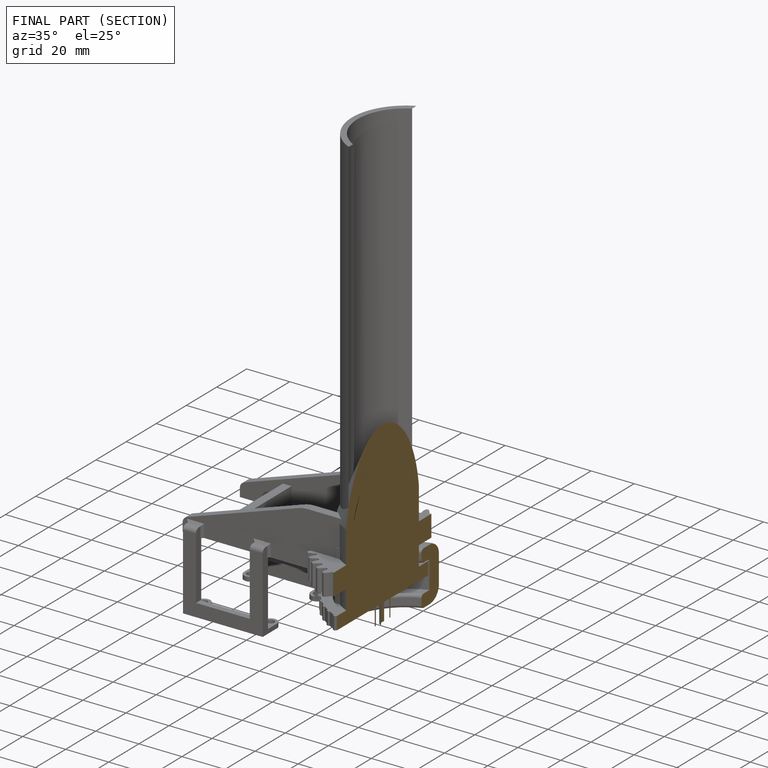
[diagram: finished part — half-section view (interior)]
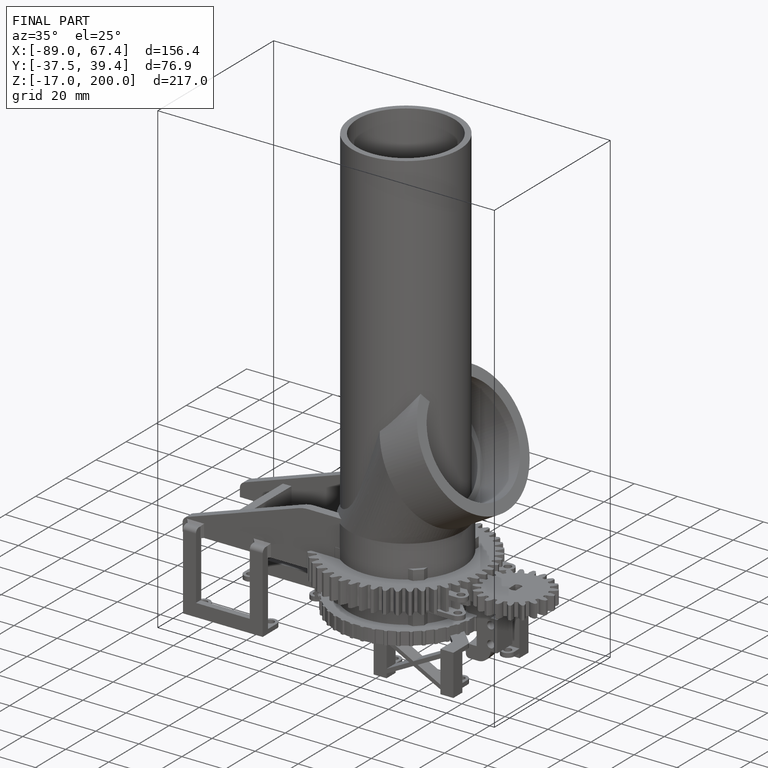
[diagram: finished part — iso view with bounding-box wireframe]
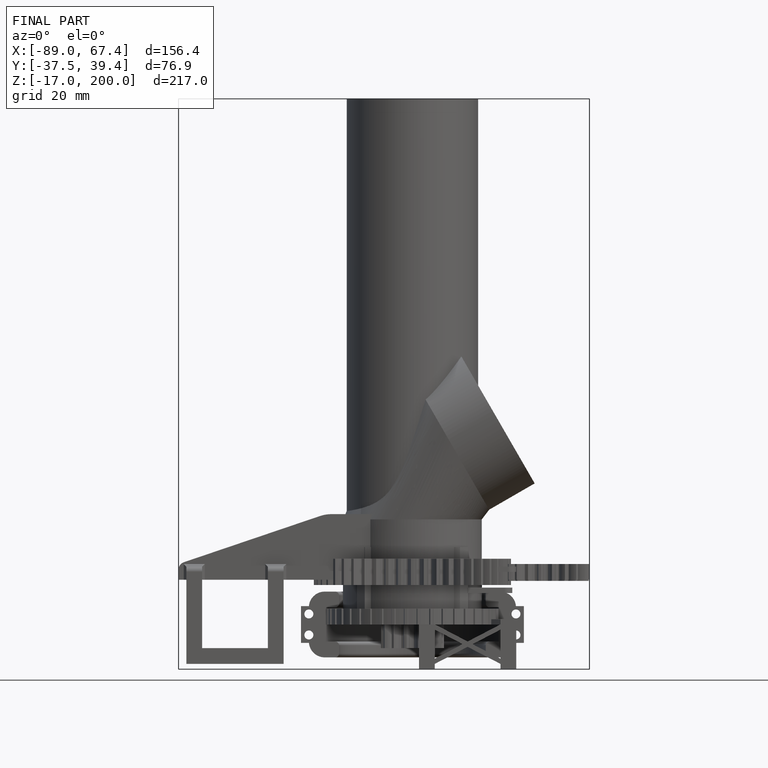
[diagram: finished part — front view with bounding-box wireframe]
